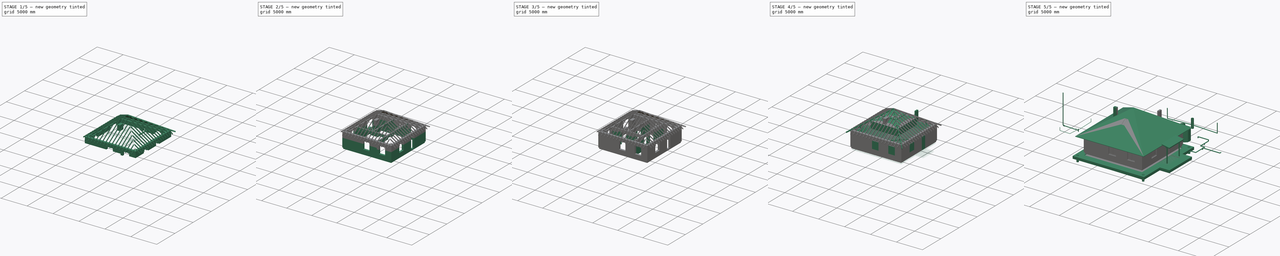
[diagram: build sequence overview — one tinted view per stage of 5, left to right]
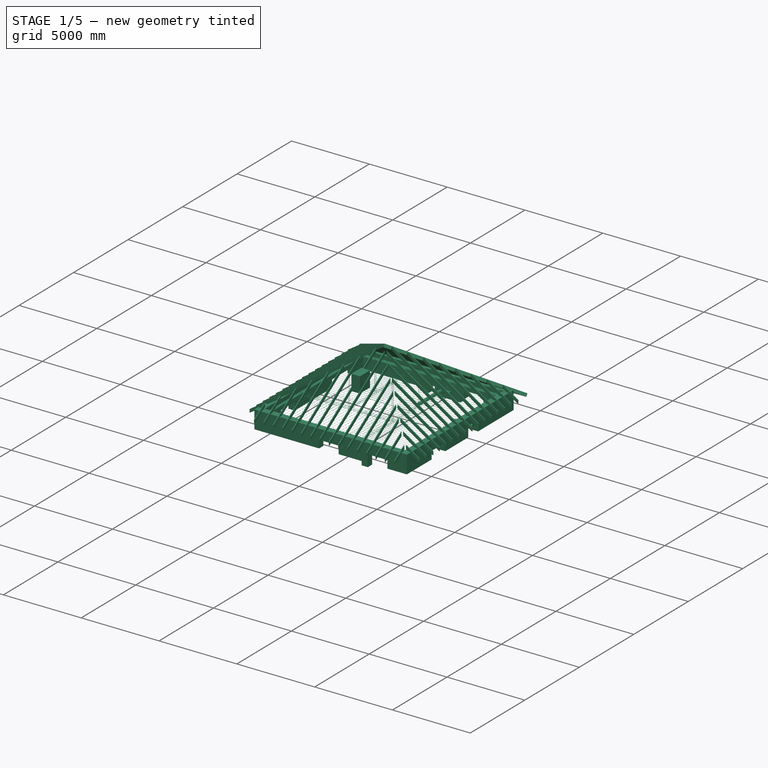
[diagram: stage 1 of 5 — iso view after this stage's code; geometry added in this stage tinted green]
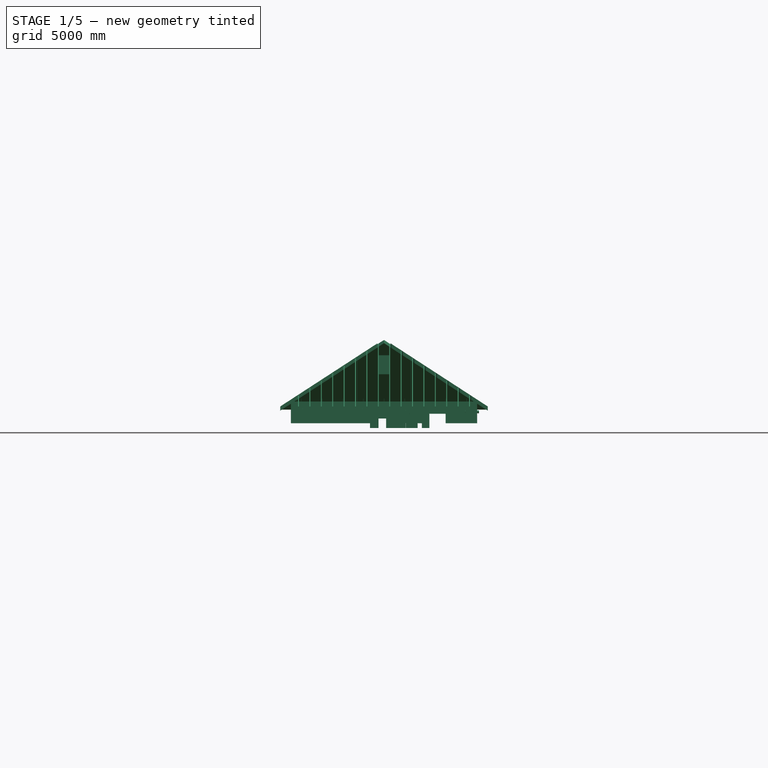
[diagram: stage 1 of 5 — front view after this stage's code; geometry added in this stage tinted green]
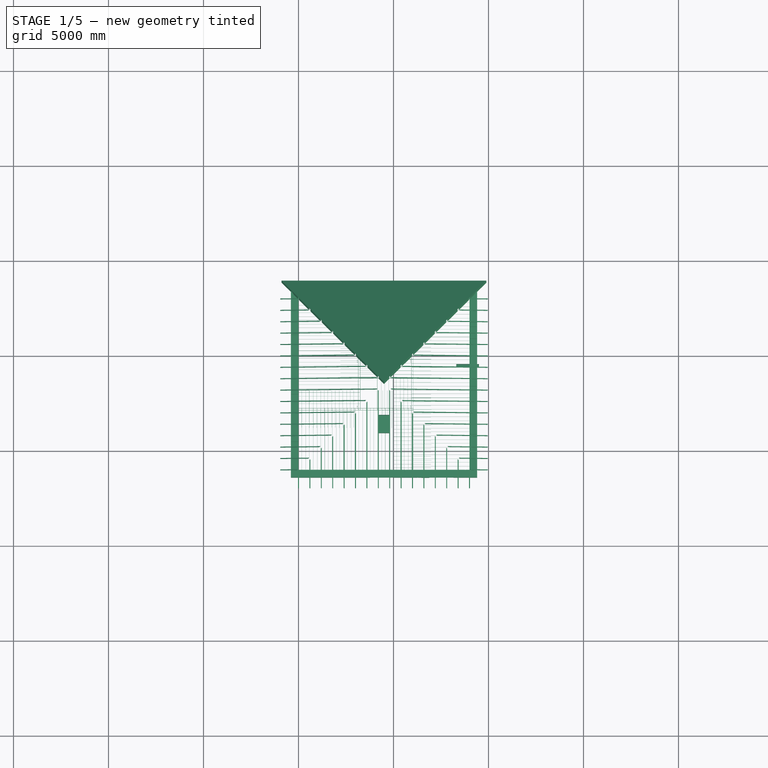
[diagram: stage 1 of 5 — top view after this stage's code; geometry added in this stage tinted green]
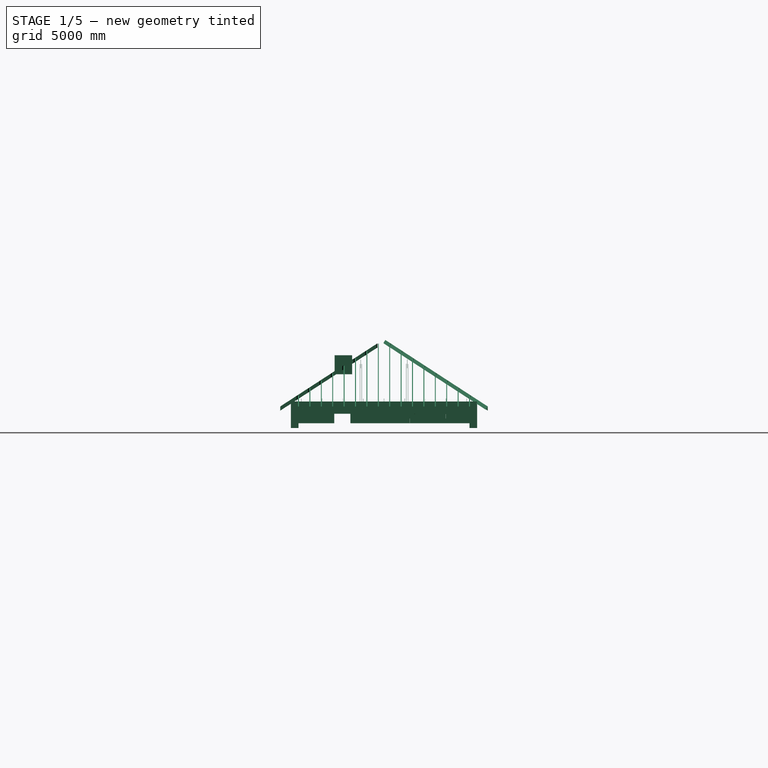
[diagram: stage 1 of 5 — right view after this stage's code; geometry added in this stage tinted green]
FCSTD DOCUMENT  (FreeCAD 0.18.4R)
Label: aeroc_D400_b400_9800x9800_v95_03_02_20
License: All rights reserved
LicenseURL: http://en.wikipedia.org/wiki/All_rights_reserved
objects: Part::FeaturePython×652, Part::Box×394, Part::Part2DObjectPython×371, Sketcher::SketchObject×145, App::GeometryPython×66, Part::Extrusion×45, App::DocumentObjectGroup×30, App::FeaturePython×10, Part::Mirroring×9, Part::MultiFuse×8, Part::Feature×3, Part::Loft×2, Part::Fuse×1, Part::Cylinder×1, Part::Fillet×1
note: 1698 computed .brp shape members not serialized (recipe doc carries the construction recipe); baked Part::Feature solids carry a one-line shape summary decoded from their .brp

FEATURE [Part::Box] Box3258  label="D400 400 добор 039"
  AttacherType = Attacher::AttachEngine3D
  Height = 250
  Length = 398.34
  Placement = pos=(6493.26,-6400,1570) rot=(0,0,-1;0rad)
  Width = 400
FEATURE [Part::Box] Box3259  label="D400 400x625 067"
  AttacherType = Attacher::AttachEngine3D
  Height = 250
  Length = 625
  Placement = pos=(9400,-2868.36,1820) rot=(0,0,1;1.5708rad)
  Width = 400
FEATURE [Part::Box] Box3260  label="D400 400x625 068"
  AttacherType = Attacher::AttachEngine3D
  Height = 250
  Length = 625
  Placement = pos=(5013.38,-6400,1820) rot=(0,0,1;0rad)
  Width = 400
FEATURE [Part::Box] Box3261  label="D400 400x625 069"
  AttacherType = Attacher::AttachEngine3D
  Height = 250
  Length = 625
  Placement = pos=(8373.24,3000,1820) rot=(0,0,1;0rad)
  Width = 400
FEATURE [Part::Box] Box3262  label="D400 400x625 070"
  AttacherType = Attacher::AttachEngine3D
  Height = 250
  Length = 625
  Placement = pos=(-3.3541e-12,-6400,1820) rot=(0,0,1;1.5708rad)
  Width = 400
FEATURE [Part::Box] Box3263  label="D400 400x625 071"
  AttacherType = Attacher::AttachEngine3D
  Height = 250
  Length = 625
  Placement = pos=(-3.3541e-12,-6400,1820) rot=(0,0,1;0rad)
  Width = 400
FEATURE [Part::FeaturePython] Array111  # Draft array (typed FeaturePython)
  Angle = 360
  ArrayType = 0
  Axis = (0,0,1)
  Base = -> Box3260
  Center = (0,0,0)
  Fuse = false
  IntervalAxis = (0,0,0)
  IntervalX = (626.66,0,0)
  IntervalY = (0,1,0)
  IntervalZ = (0,0,1)
  NumberPolar = 1
  NumberX = 3
  NumberY = 1
  NumberZ = 1
FEATURE [Part::FeaturePython] Array116  # Draft array (typed FeaturePython)
  Angle = 360
  ArrayType = 0
  Axis = (0,0,1)
  Base = -> Box3262
  Center = (0,0,0)
  Fuse = false
  IntervalAxis = (0,0,0)
  IntervalX = (1,0,0)
  IntervalY = (0,626.66,0)
  IntervalZ = (0,0,1)
  NumberPolar = 1
  NumberX = 1
  NumberY = 3
  NumberZ = 1
FEATURE [Part::FeaturePython] Array117  # Draft array (typed FeaturePython)
  Angle = 360
  ArrayType = 0
  Axis = (0,0,1)
  Base = -> Box3263
  Center = (0,0,0)
  Fuse = false
  IntervalAxis = (0,0,0)
  IntervalX = (626.66,0,0)
  IntervalY = (0,1,0)
  IntervalZ = (0,0,1)
  NumberPolar = 1
  NumberX = 6
  NumberY = 1
  NumberZ = 1
FEATURE [Part::Box] Box3264  label="D400 400x625 072"
  AttacherType = Attacher::AttachEngine3D
  Height = 250
  Length = 625
  Placement = pos=(-3.8661e-12,-3266.7,1820) rot=(0,0,1;1.5708rad)
  Width = 400
FEATURE [Part::FeaturePython] Array113  # Draft array (typed FeaturePython)
  Angle = 360
  ArrayType = 0
  Axis = (0,0,1)
  Base = -> Box3264
  Center = (0,0,0)
  Fuse = false
  IntervalAxis = (0,0,0)
  IntervalX = (1,0,0)
  IntervalY = (0,626.66,0)
  IntervalZ = (0,0,1)
  NumberPolar = 1
  NumberX = 1
  NumberY = 5
  NumberZ = 1
FEATURE [Part::Box] Box3265  label="D400 400 добор 040"
  AttacherType = Attacher::AttachEngine3D
  Height = 250
  Length = 283.34
  Placement = pos=(-3.7521e-12,-133.4,1820) rot=(0,0,1;1.5708rad)
  Width = 400
FEATURE [Part::Box] Box3266  label="D400 400x625 073"
  AttacherType = Attacher::AttachEngine3D
  Height = 250
  Length = 625
  Placement = pos=(8775,-6400,1820) rot=(0,0,1;0rad)
  Width = 400
FEATURE [Part::FeaturePython] Array110  # Draft array (typed FeaturePython)
  Angle = 360
  ArrayType = 0
  Axis = (0,0,1)
  Base = -> Box3266
  Center = (0,0,0)
  Fuse = false
  IntervalAxis = (0,0,0)
  IntervalX = (-626.66,0,0)
  IntervalY = (0,1,0)
  IntervalZ = (0,0,1)
  NumberPolar = 1
  NumberX = 2
  NumberY = 1
  NumberZ = 1
FEATURE [Part::Box] Box3267  label="D400 400x625 074"
  AttacherType = Attacher::AttachEngine3D
  Height = 250
  Length = 625
  Placement = pos=(-400,3000,1820) rot=(0,0,1;0rad)
  Width = 400
FEATURE [Part::FeaturePython] Array118  # Draft array (typed FeaturePython)
  Angle = 360
  ArrayType = 0
  Axis = (0,0,1)
  Base = -> Box3261
  Center = (0,0,0)
  Fuse = false
  IntervalAxis = (0,0,0)
  IntervalX = (-626.66,0,0)
  IntervalY = (0,1,0)
  IntervalZ = (0,0,1)
  NumberPolar = 1
  NumberX = 2
  NumberY = 1
  NumberZ = 1
FEATURE [Part::Box] Box3268  label="D400 400x625 075"
  AttacherType = Attacher::AttachEngine3D
  Height = 250
  Length = 625
  Placement = pos=(-1.4211e-12,2375,1820) rot=(0,0,1;1.5708rad)
  Width = 400
FEATURE [Part::FeaturePython] Array112  # Draft array (typed FeaturePython)
  Angle = 360
  ArrayType = 0
  Axis = (0,0,1)
  Base = -> Box3268
  Center = (0,0,0)
  Fuse = false
  IntervalAxis = (0,0,0)
  IntervalX = (1,0,0)
  IntervalY = (0,-626.66,0)
  IntervalZ = (0,0,1)
  NumberPolar = 1
  NumberX = 1
  NumberY = 1
  NumberZ = 1
FEATURE [Part::Box] Box3269  label="D400 400 добор 041"
  AttacherType = Attacher::AttachEngine3D
  Height = 250
  Length = 226.66
  Placement = pos=(9400,-988.38,1820) rot=(0,0,1;1.5708rad)
  Width = 400
FEATURE [Part::Box] Box3270  label="D400 400 добор 042"
  AttacherType = Attacher::AttachEngine3D
  Height = 250
  Length = 131.68
  Placement = pos=(9000,266.7,1820) rot=(0,0,-1;1.5708rad)
  Width = 400
FEATURE [Part::FeaturePython] Array119  # Draft array (typed FeaturePython)
  Angle = 360
  ArrayType = 0
  Axis = (0,0,1)
  Base = -> Box3259
  Center = (0,0,0)
  Fuse = false
  IntervalAxis = (0,0,0)
  IntervalX = (1,0,0)
  IntervalY = (0,626.66,0)
  IntervalZ = (0,0,1)
  NumberPolar = 1
  NumberX = 1
  NumberY = 3
  NumberZ = 1
FEATURE [Part::Box] Box3271  label="D400 400x625 076"
  AttacherType = Attacher::AttachEngine3D
  Height = 250
  Length = 625
  Placement = pos=(9400,2775,1820) rot=(0,0,1;1.5708rad)
  Width = 400
FEATURE [Part::FeaturePython] Array115  # Draft array (typed FeaturePython)
  Angle = 360
  ArrayType = 0
  Axis = (0,0,1)
  Base = -> Box3271
  Center = (0,0,0)
  Fuse = false
  IntervalAxis = (0,0,0)
  IntervalX = (1,0,0)
  IntervalY = (0,-626.66,0)
  IntervalZ = (0,0,1)
  NumberPolar = 1
  NumberX = 1
  NumberY = 5
  NumberZ = 1
FEATURE [Part::FeaturePython] Array120  # Draft array (typed FeaturePython)
  Angle = 360
  ArrayType = 0
  Axis = (0,0,1)
  Base = -> Box3267
  Center = (0,0,0)
  Fuse = false
  IntervalAxis = (0,0,0)
  IntervalX = (626.66,0,0)
  IntervalY = (0,1,0)
  IntervalZ = (0,0,1)
  NumberPolar = 1
  NumberX = 7
  NumberY = 1
  NumberZ = 1
FEATURE [Part::Box] Box3272  label="D400 400 добор 043"
  AttacherType = Attacher::AttachEngine3D
  Height = 250
  Length = 225
  Placement = pos=(-400,2373.34,1820) rot=(0,0,-1;1.5708rad)
  Width = 400
FEATURE [Part::Box] Box3273  label="D400 400x625 077"
  AttacherType = Attacher::AttachEngine3D
  Height = 250
  Length = 625
  Placement = pos=(9400,-6000,1820) rot=(0,0,1;1.5708rad)
  Width = 400
FEATURE [Part::FeaturePython] Array114  # Draft array (typed FeaturePython)
  Angle = 360
  ArrayType = 0
  Axis = (0,0,1)
  Base = -> Box3273
  Center = (0,0,0)
  Fuse = false
  IntervalAxis = (0,0,0)
  IntervalX = (1,0,0)
  IntervalY = (0,626.66,0)
  IntervalZ = (0,0,1)
  NumberPolar = 1
  NumberX = 1
  NumberY = 3
  NumberZ = 1
FEATURE [Part::Box] Box3274  label="D400 400x625 078"
  AttacherType = Attacher::AttachEngine3D
  Height = 250
  Length = 625
  Placement = pos=(-5.12e-13,-6000,2070) rot=(0,0,1;1.5708rad)
  Width = 400
FEATURE [Part::Box] Box3275  label="D400 400x625 079"
  AttacherType = Attacher::AttachEngine3D
  Height = 250
  Length = 625
  Placement = pos=(-1.3642e-12,2775,2070) rot=(0,0,1;1.5708rad)
  Width = 400
FEATURE [Part::FeaturePython] Array121  # Draft array (typed FeaturePython)
  Angle = 360
  ArrayType = 0
  Axis = (0,0,1)
  Base = -> Box3275
  Center = (0,0,0)
  Fuse = false
  IntervalAxis = (0,0,0)
  IntervalX = (1,0,0)
  IntervalY = (0,-626.66,0)
  IntervalZ = (0,0,1)
  NumberPolar = 1
  NumberX = 1
  NumberY = 2
  NumberZ = 1
FEATURE [Part::Box] Box3276  label="D400 400x625 080"
  AttacherType = Attacher::AttachEngine3D
  Height = 250
  Length = 625
  Placement = pos=(-400,-6400,2070) rot=(0,0,1;0rad)
  Width = 400
FEATURE [Part::FeaturePython] Array124  # Draft array (typed FeaturePython)
  Angle = 360
  ArrayType = 0
  Axis = (0,0,1)
  Base = -> Box3276
  Center = (0,0,0)
  Fuse = false
  IntervalAxis = (0,0,0)
  IntervalX = (626.66,0,0)
  IntervalY = (0,1,0)
  IntervalZ = (0,0,1)
  NumberPolar = 1
  NumberX = 6
  NumberY = 1
  NumberZ = 1
FEATURE [Part::Box] Box3277  label="D400 400x625 081"
  AttacherType = Attacher::AttachEngine3D
  Height = 250
  Length = 625
  Placement = pos=(9400,-6400,2070) rot=(0,0,1;1.5708rad)
  Width = 400
FEATURE [Part::FeaturePython] Array122  # Draft array (typed FeaturePython)
  Angle = 360
  ArrayType = 0
  Axis = (0,0,1)
  Base = -> Box3277
  Center = (0,0,0)
  Fuse = false
  IntervalAxis = (0,0,0)
  IntervalX = (1,0,0)
  IntervalY = (0,626.66,0)
  IntervalZ = (0,0,1)
  NumberPolar = 1
  NumberX = 1
  NumberY = 3
  NumberZ = 1
FEATURE [Part::Box] Box3278  label="D400 400 добор 044"
  AttacherType = Attacher::AttachEngine3D
  Height = 250
  Length = 358.34
  Placement = pos=(9000,493.36,2070) rot=(0,0,-1;1.5708rad)
  Width = 400
FEATURE [Part::FeaturePython] Array126  # Draft array (typed FeaturePython)
  Angle = 360
  ArrayType = 0
  Axis = (0,0,1)
  Base = -> Box3274
  Center = (0,0,0)
  Fuse = false
  IntervalAxis = (0,0,0)
  IntervalX = (1,0,0)
  IntervalY = (0,626.66,0)
  IntervalZ = (0,0,1)
  NumberPolar = 1
  NumberX = 1
  NumberY = 2
  NumberZ = 1
FEATURE [Part::Box] Box3279  label="D400 400x625 082"
  AttacherType = Attacher::AttachEngine3D
  Height = 250
  Length = 625
  Placement = pos=(8775,3000,2070) rot=(0,0,1;0rad)
  Width = 400
FEATURE [Part::FeaturePython] Array123  # Draft array (typed FeaturePython)
  Angle = 360
  ArrayType = 0
  Axis = (0,0,1)
  Base = -> Box3279
  Center = (0,0,0)
  Fuse = false
  IntervalAxis = (0,0,0)
  IntervalX = (-626.66,0,0)
  IntervalY = (0,1,0)
  IntervalZ = (0,0,1)
  NumberPolar = 1
  NumberX = 2
  NumberY = 1
  NumberZ = 1
FEATURE [Part::Box] Box3280  label="D400 400x625 083"
  AttacherType = Attacher::AttachEngine3D
  Height = 250
  Length = 625
  Placement = pos=(-1.3642e-12,2775,2070) rot=(0,0,1;1.5708rad)
  Width = 400
FEATURE [Part::FeaturePython] Array125  # Draft array (typed FeaturePython)
  Angle = 360
  ArrayType = 0
  Axis = (0,0,1)
  Base = -> Box3280
  Center = (0,0,0)
  Fuse = false
  IntervalAxis = (0,0,0)
  IntervalX = (1,0,0)
  IntervalY = (0,-626.66,0)
  IntervalZ = (0,0,1)
  NumberPolar = 1
  NumberX = 1
  NumberY = 4
  NumberZ = 1
  Placement = pos=(9400,-400,0) rot=(0,0,1;0rad)
FEATURE [Part::Box] Box3281  label="D400 400x625 084"
  AttacherType = Attacher::AttachEngine3D
  Height = 250
  Length = 625
  Placement = pos=(-1.024e-12,-2866.7,2070) rot=(0,0,1;1.5708rad)
  Width = 400
FEATURE [Part::FeaturePython] Array127  # Draft array (typed FeaturePython)
  Angle = 360
  ArrayType = 0
  Axis = (0,0,1)
  Base = -> Box3281
  Center = (0,0,0)
  Fuse = false
  IntervalAxis = (0,0,0)
  IntervalX = (1,0,0)
  IntervalY = (0,626.66,0)
  IntervalZ = (0,0,1)
  NumberPolar = 1
  NumberX = 1
  NumberY = 4
  NumberZ = 1
FEATURE [Part::Box] Box3282  label="D400 400 добор 045"
  AttacherType = Attacher::AttachEngine3D
  Height = 250
  Length = 510
  Placement = pos=(-2.3878e-12,-360.06,2070) rot=(0,0,1;1.5708rad)
  Width = 400
FEATURE [Part::Box] Box3283  label="D400 400 добор 046"
  AttacherType = Attacher::AttachEngine3D
  Height = 250
  Length = 398.34
  Placement = pos=(-400,-2868.36,2070) rot=(0,0,-1;1.5708rad)
  Width = 400
FEATURE [Part::Box] Box3284  label="D400 400 добор 047"
  AttacherType = Attacher::AttachEngine3D
  Height = 250
  Length = 225
  Placement = pos=(-1.8759e-12,-4746.68,2070) rot=(0,0,1;1.5708rad)
  Width = 400
FEATURE [Part::Box] Box3285  label="D400 400 добор 048"
  AttacherType = Attacher::AttachEngine3D
  Height = 250
  Length = 398.34
  Placement = pos=(9400,-4520.02,2070) rot=(0,0,1;1.5708rad)
  Width = 400
FEATURE [Part::Box] Box3286  label="D400 400x625 085"
  AttacherType = Attacher::AttachEngine3D
  Height = 250
  Length = 625
  Placement = pos=(9400,-2640.04,2070) rot=(0,0,1;1.5708rad)
  Width = 400
FEATURE [Part::FeaturePython] Array128  # Draft array (typed FeaturePython)
  Angle = 360
  ArrayType = 0
  Axis = (0,0,1)
  Base = -> Box3286
  Center = (0,0,0)
  Fuse = false
  IntervalAxis = (0,0,0)
  IntervalX = (1,0,0)
  IntervalY = (0,626.66,0)
  IntervalZ = (0,0,1)
  NumberPolar = 1
  NumberX = 1
  NumberY = 3
  NumberZ = 1
FEATURE [Part::Box] Box3287  label="D400 400 добор 049"
  AttacherType = Attacher::AttachEngine3D
  Height = 250
  Length = 226.66
  Placement = pos=(9400,-2868.36,2070) rot=(0,0,1;1.5708rad)
  Width = 400
FEATURE [Part::Box] Box3288  label="D400 400x625 086"
  AttacherType = Attacher::AttachEngine3D
  Height = 250
  Length = 625
  Placement = pos=(1.76,3000,2070) rot=(0,0,1;0rad)
  Width = 400
FEATURE [Part::FeaturePython] Array129  # Draft array (typed FeaturePython)
  Angle = 360
  ArrayType = 0
  Axis = (0,0,1)
  Base = -> Box3288
  Center = (0,0,0)
  Fuse = false
  IntervalAxis = (0,0,0)
  IntervalX = (626.66,0,0)
  IntervalY = (0,1,0)
  IntervalZ = (0,0,1)
  NumberPolar = 1
  NumberX = 10
  NumberY = 1
  NumberZ = 1
FEATURE [Part::Box] Box3289  label="D400 400 добор 050"
  AttacherType = Attacher::AttachEngine3D
  Height = 250
  Length = 223.24
  Placement = pos=(6268.36,3000,2070) rot=(0,0,-1;0rad)
  Width = 400
FEATURE [Part::Box] Box3290  label="D400 400 добор 051"
  AttacherType = Attacher::AttachEngine3D
  Height = 250
  Length = 400
  Placement = pos=(8146.58,3400,2070) rot=(0,0,1;3.14159rad)
  Width = 400
FEATURE [Part::Box] Box3291  label="D400 400 добор 052"
  AttacherType = Attacher::AttachEngine3D
  Height = 250
  Length = 398.34
  Placement = pos=(3359.96,-6400,2070) rot=(0,0,-1;0rad)
  Width = 400
FEATURE [Part::Box] Box3292  label="D400 400x625 087"
  AttacherType = Attacher::AttachEngine3D
  Height = 250
  Length = 625
  Placement = pos=(5239.94,-6400,2070) rot=(0,0,1;0rad)
  Width = 400
FEATURE [Part::FeaturePython] Array130  # Draft array (typed FeaturePython)
  Angle = 360
  ArrayType = 0
  Axis = (0,0,1)
  Base = -> Box3292
  Center = (0,0,0)
  Fuse = false
  IntervalAxis = (0,0,0)
  IntervalX = (626.66,0,0)
  IntervalY = (0,1,0)
  IntervalZ = (0,0,1)
  NumberPolar = 1
  NumberX = 2
  NumberY = 1
  NumberZ = 1
FEATURE [Part::Box] Box3293  label="D400 400x625 088"
  AttacherType = Attacher::AttachEngine3D
  Height = 250
  Length = 625
  Placement = pos=(8373.24,-6400,2070) rot=(0,0,1;0rad)
  Width = 400
FEATURE [Part::FeaturePython] Array131  # Draft array (typed FeaturePython)
  Angle = 360
  ArrayType = 0
  Axis = (0,0,1)
  Base = -> Box3293
  Center = (0,0,0)
  Fuse = false
  IntervalAxis = (0,0,0)
  IntervalX = (-626.66,0,0)
  IntervalY = (0,1,0)
  IntervalZ = (0,0,1)
  NumberPolar = 1
  NumberX = 1
  NumberY = 1
  NumberZ = 1
FEATURE [Part::Box] Box3294  label="D400 400 добор 053"
  AttacherType = Attacher::AttachEngine3D
  Height = 250
  Length = 223.24
  Placement = pos=(5238.28,-6000,2070) rot=(0,0,1;3.14159rad)
  Width = 400
FEATURE [Part::Box] Box3295  label="D400 400 добор 054"
  AttacherType = Attacher::AttachEngine3D
  Height = 250
  Length = 223.24
  Placement = pos=(8371.58,-6000,2070) rot=(0,0,1;3.14159rad)
  Width = 400
FEATURE [Part::Box] Box3296  label="D400 400 добор 055"
  AttacherType = Attacher::AttachEngine3D
  Height = 250
  Length = 398.34
  Placement = pos=(6493.26,-6400,2070) rot=(0,0,-1;0rad)
  Width = 400
FEATURE [Part::Box] Box3297  label="D400 400x625 089"
  AttacherType = Attacher::AttachEngine3D
  Height = 250
  Length = 625
  Placement = pos=(5866.6,3000,1820) rot=(0,0,1;0rad)
  Width = 400
FEATURE [Part::FeaturePython] Array132  # Draft array (typed FeaturePython)
  Angle = 360
  ArrayType = 0
  Axis = (0,0,1)
  Base = -> Box3297
  Center = (0,0,0)
  Fuse = false
  IntervalAxis = (0,0,0)
  IntervalX = (-626.66,0,0)
  IntervalY = (0,1,0)
  IntervalZ = (0,0,1)
  NumberPolar = 1
  NumberX = 3
  NumberY = 1
  NumberZ = 1
FEATURE [Part::Box] Box3298  label="D400 400x625 090"
  AttacherType = Attacher::AttachEngine3D
  Height = 250
  Length = 625
  Placement = pos=(5641.7,3000,1570) rot=(0,0,1;0rad)
  Width = 400
FEATURE [Part::FeaturePython] Array133  # Draft array (typed FeaturePython)
  Angle = 360
  ArrayType = 0
  Axis = (0,0,1)
  Base = -> Box3298
  Center = (0,0,0)
  Fuse = false
  IntervalAxis = (0,0,0)
  IntervalX = (-626.66,0,0)
  IntervalY = (0,1,0)
  IntervalZ = (0,0,1)
  NumberPolar = 1
  NumberX = 2
  NumberY = 1
  NumberZ = 1
FEATURE [Part::Box] Box3299  label="D400 400 добор 056"
  AttacherType = Attacher::AttachEngine3D
  Height = 250
  Length = 223.24
  Placement = pos=(3986.62,3000,1820) rot=(0,0,-1;0rad)
  Width = 400
FEATURE [Part::Box] Box3300  label="D400 400 добор 057"
  AttacherType = Attacher::AttachEngine3D
  Height = 250
  Length = 400
  Placement = pos=(5013.28,3400,1570) rot=(0,0,1;3.14159rad)
  Width = 400
FEATURE [Part::Box] Box3301  label="D400 400 добор 058"
  AttacherType = Attacher::AttachEngine3D
  Height = 250
  Length = 448.14
  Placement = pos=(3761.72,3000,1570) rot=(0,0,1;0rad)
  Width = 400
FEATURE [Part::Box] Box3302  label="D400 400x625 091"
  AttacherType = Attacher::AttachEngine3D
  Height = 250
  Length = 625
  Placement = pos=(8775,-6400,2320) rot=(0,0,1;0rad)
  Width = 400
FEATURE [Part::FeaturePython] Array136  # Draft array (typed FeaturePython)
  Angle = 360
  ArrayType = 0
  Axis = (0,0,1)
  Base = -> Box3302
  Center = (0,0,0)
  Fuse = false
  IntervalAxis = (0,0,0)
  IntervalX = (-626.66,0,0)
  IntervalY = (0,1,0)
  IntervalZ = (0,0,1)
  NumberPolar = 1
  NumberX = 15
  NumberY = 1
  NumberZ = 1
FEATURE [Part::Box] Box3303  label="D400 400x625 092"
  AttacherType = Attacher::AttachEngine3D
  Height = 250
  Length = 625
  Placement = pos=(-400,3000,2320) rot=(0,0,1;0rad)
  Width = 400
FEATURE [Part::FeaturePython] Array137  # Draft array (typed FeaturePython)
  Angle = 360
  ArrayType = 0
  Axis = (0,0,1)
  Base = -> Box3303
  Center = (0,0,0)
  Fuse = false
  IntervalAxis = (0,0,0)
  IntervalX = (626.66,0,0)
  IntervalY = (0,1,0)
  IntervalZ = (0,0,1)
  NumberPolar = 1
  NumberX = 15
  NumberY = 1
  NumberZ = 1
FEATURE [Part::Box] Box3304  label="D400 400x625 093"
  AttacherType = Attacher::AttachEngine3D
  Height = 250
  Length = 625
  Placement = pos=(-1.933e-12,-6400,2320) rot=(0,0,1;1.5708rad)
  Width = 400
FEATURE [Part::FeaturePython] Array135  # Draft array (typed FeaturePython)
  Angle = 360
  ArrayType = 0
  Axis = (0,0,1)
  Base = -> Box3304
  Center = (0,0,0)
  Fuse = false
  IntervalAxis = (0,0,0)
  IntervalX = (1,0,0)
  IntervalY = (0,626.66,0)
  IntervalZ = (0,0,1)
  NumberPolar = 1
  NumberX = 1
  NumberY = 15
  NumberZ = 1
FEATURE [Part::Box] Box3305  label="D400 400x625 094"
  AttacherType = Attacher::AttachEngine3D
  Height = 250
  Length = 625
  Placement = pos=(9400,2775,2320) rot=(0,0,1;1.5708rad)
  Width = 400
FEATURE [Part::FeaturePython] Array134  # Draft array (typed FeaturePython)
  Angle = 360
  ArrayType = 0
  Axis = (0,0,1)
  Base = -> Box3305
  Center = (0,0,0)
  Fuse = false
  IntervalAxis = (0,0,0)
  IntervalX = (1,0,0)
  IntervalY = (0,-626.66,0)
  IntervalZ = (0,0,1)
  NumberPolar = 1
  NumberX = 1
  NumberY = 15
  NumberZ = 1
FEATURE [Part::Box] Box3307  label="D400 400x625 095"
  AttacherType = Attacher::AttachEngine3D
  Height = 250
  Length = 625
  Placement = pos=(-5.119e-13,-6400,2720) rot=(0,0,1;1.5708rad)
  Width = 400
FEATURE [Part::FeaturePython] Array138  # Draft array (typed FeaturePython)
  Angle = 360
  ArrayType = 0
  Axis = (0,0,1)
  Base = -> Box3307
  Center = (0,0,0)
  Fuse = false
  IntervalAxis = (0,0,0)
  IntervalX = (1,0,0)
  IntervalY = (0,626.66,0)
  IntervalZ = (0,0,1)
  NumberPolar = 1
  NumberX = 1
  NumberY = 15
  NumberZ = 1
FEATURE [Part::Box] Box3308  label="D400 400x625 096"
  AttacherType = Attacher::AttachEngine3D
  Height = 250
  Length = 625
  Placement = pos=(8775,-6400,2720) rot=(0,0,1;0rad)
  Width = 400
FEATURE [Part::Box] Box3310  label="D400 400x625 097"
  AttacherType = Attacher::AttachEngine3D
  Height = 250
  Length = 625
  Placement = pos=(9400,2775,2720) rot=(0,0,1;1.5708rad)
  Width = 400
FEATURE [Part::FeaturePython] Array140  # Draft array (typed FeaturePython)
  Angle = 360
  ArrayType = 0
  Axis = (0,0,1)
  Base = -> Box3310
  Center = (0,0,0)
  Fuse = false
  IntervalAxis = (0,0,0)
  IntervalX = (1,0,0)
  IntervalY = (0,-626.66,0)
  IntervalZ = (0,0,1)
  NumberPolar = 1
  NumberX = 1
  NumberY = 15
  NumberZ = 1
FEATURE [Part::Box] Box3311  label="D400 400x625 098"
  AttacherType = Attacher::AttachEngine3D
  Height = 250
  Length = 625
  Placement = pos=(-400,3000,2720) rot=(0,0,1;0rad)
  Width = 400
FEATURE [Part::FeaturePython] Array139  # Draft array (typed FeaturePython)
  Angle = 360
  ArrayType = 0
  Axis = (0,0,1)
  Base = -> Box3311
  Center = (0,0,0)
  Fuse = false
  IntervalAxis = (0,0,0)
  IntervalX = (626.66,0,0)
  IntervalY = (0,1,0)
  IntervalZ = (0,0,1)
  NumberPolar = 1
  NumberX = 15
  NumberY = 1
  NumberZ = 1
FEATURE [Part::FeaturePython] Array141  # Draft array (typed FeaturePython)
  Angle = 360
  ArrayType = 0
  Axis = (0,0,1)
  Base = -> Box3308
  Center = (0,0,0)
  Fuse = false
  IntervalAxis = (0,0,0)
  IntervalX = (-626.66,0,0)
  IntervalY = (0,1,0)
  IntervalZ = (0,0,1)
  NumberPolar = 1
  NumberX = 15
  NumberY = 1
  NumberZ = 1
FEATURE [Part::Box] Box3312  label="D400 400x625 099"
  AttacherType = Attacher::AttachEngine3D
  Height = 150
  Length = 625
  Placement = pos=(-275,-5998.24,2570) rot=(0,0,1;1.5708rad)
  Width = 125
FEATURE [Part::Box] Box3314  label="D400 400x625 101"
  AttacherType = Attacher::AttachEngine3D
  Height = 150
  Length = 625
  Placement = pos=(-400,-6400,2570) rot=(0,0,1;0rad)
  Width = 125
FEATURE [Part::FeaturePython] Array145  # Draft array (typed FeaturePython)
  Angle = 360
  ArrayType = 0
  Axis = (0,0,1)
  Base = -> Box3314
  Center = (0,0,0)
  Fuse = false
  IntervalAxis = (0,0,0)
  IntervalX = (626.66,0,0)
  IntervalY = (0,1,0)
  IntervalZ = (0,0,1)
  NumberPolar = 1
  NumberX = 15
  NumberY = 1
  NumberZ = 1
FEATURE [Part::Box] Box3315  label="D400 400x625 102"
  AttacherType = Attacher::AttachEngine3D
  Height = 150
  Length = 625
  Placement = pos=(9400,-6400,2570) rot=(0,0,1;1.5708rad)
  Width = 125
FEATURE [Part::FeaturePython] Array143  # Draft array (typed FeaturePython)
  Angle = 360
  ArrayType = 0
  Axis = (0,0,1)
  Base = -> Box3315
  Center = (0,0,0)
  Fuse = false
  IntervalAxis = (0,0,0)
  IntervalX = (1,0,0)
  IntervalY = (0,626.66,0)
  IntervalZ = (0,0,1)
  NumberPolar = 1
  NumberX = 1
  NumberY = 15
  NumberZ = 1
FEATURE [Part::FeaturePython] Array147  # Draft array (typed FeaturePython)
  Angle = 360
  ArrayType = 0
  Axis = (0,0,1)
  Base = -> Box3312
  Center = (0,0,0)
  Fuse = false
  IntervalAxis = (0,0,0)
  IntervalX = (1,0,0)
  IntervalY = (0,626.66,0)
  IntervalZ = (0,0,1)
  NumberPolar = 1
  NumberX = 1
  NumberY = 15
  NumberZ = 1
FEATURE [Part::Box] Box3317  label="D400 400x625 103"
  AttacherType = Attacher::AttachEngine3D
  Height = 150
  Length = 625
  Placement = pos=(8775,3275,2570) rot=(0,0,1;0rad)
  Width = 125
FEATURE [Part::FeaturePython] Array144  # Draft array (typed FeaturePython)
  Angle = 360
  ArrayType = 0
  Axis = (0,0,1)
  Base = -> Box3317
  Center = (0,0,0)
  Fuse = false
  IntervalAxis = (0,0,0)
  IntervalX = (-626.66,0,0)
  IntervalY = (0,1,0)
  IntervalZ = (0,0,1)
  NumberPolar = 1
  NumberX = 15
  NumberY = 1
  NumberZ = 1
FEATURE [Part::Box] Box3318  label="D400 400 добор 059"
  AttacherType = Attacher::AttachEngine3D
  Height = 150
  Length = 276.76
  Placement = pos=(8998.24,-6400,2570) rot=(0,0,1;0rad)
  Width = 125
FEATURE [Part::Box] Box3319  label="D400 400 добор 060"
  AttacherType = Attacher::AttachEngine3D
  Height = 150
  Length = 276.76
  Placement = pos=(9400,2998.24,2570) rot=(0,0,1;1.5708rad)
  Width = 125
FEATURE [Part::Box] Box3320  label="D400 400 добор 061"
  AttacherType = Attacher::AttachEngine3D
  Height = 150
  Length = 276.76
  Placement = pos=(-275,-6275,2570) rot=(0,0,1;1.5708rad)
  Width = 125
FEATURE [Part::Box] Box3321  label="D400 400 добор 062"
  AttacherType = Attacher::AttachEngine3D
  Height = 150
  Length = 276.76
  Placement = pos=(-275,3275,2570) rot=(0,0,1;0rad)
  Width = 125
FEATURE [App::DocumentObjectGroup] Group103  label="нар.канализация"
  Group = -> [Wire153,Wire131,Line402,Circle004,Circle005,Circle001,Circle,Wire130,Wire127,Wire129,Line353,Line394]
FEATURE [Part::Part2DObjectPython] Line704  # Draft 2D object (typed FeaturePython)
  ChamferSize = 0
  Closed = false
  End = (14400,8400,0)
  FilletRadius = 0
  Length = 7071.07
  MakeFace = true
  Placement = pos=(9400,3400,0) rot=(0,0,1;0rad)
  Points = (2) [(0,0,0),(5000,5000,0)]
  Start = (9400,3400,0)
  Subdivisions = 0
FEATURE [Sketcher::SketchObject] Sketch039  label="Колонна_с_ЖБ_ядром_002"
  MapMode = 5
  Placement = pos=(2900,-3025,0) rot=(0,0,1;0rad)
  sketch-geometry (5):
    g0: LineSegment StartX=0 StartY=0 StartZ=0 EndX=400 EndY=0 EndZ=0
    g1: LineSegment StartX=400 StartY=0 StartZ=0 EndX=400 EndY=625 EndZ=0
    g2: LineSegment StartX=400 StartY=625 StartZ=0 EndX=0 EndY=625 EndZ=0
    g3: LineSegment StartX=0 StartY=625 StartZ=0 EndX=0 EndY=0 EndZ=0
    g4: Circle CenterX=200 CenterY=312.5 CenterZ=0 NormalX=0 NormalY=0 NormalZ=1 AngleXU=0 Radius=80
  constraints (14):
    c: Coincident(g0,g1)
    c: Coincident(g1,g2)
    c: Coincident(g2,g3)
    c: Coincident(g3,g0)
    c: Horizontal(g0)
    c: Horizontal(g2)
    c: Vertical(g1)
    c: Vertical(g3)
    c: Coincident(g0,g-1)
    c: DistanceX(g2,g2) = 400
    c: DistanceY(g1,g1) = 625
    c: Radius(g4) = 80
    c: DistanceY(g4,g2) = 312.5
    c: DistanceX(g2,g4) = 200
FEATURE [Part::Extrusion] Extrude056  label="Колонна_с_ЖБ_ядром_001"
  Base = -> Sketch039
  Dir = (0,0,1)
  DirMode = 2
  FaceMakerClass = Part::FaceMakerBullseye
  LengthFwd = 2250
  LengthRev = 0
  Placement = pos=(0,0,2720) rot=(0,0,1;0rad)
  Solid = true
  Symmetric = false
FEATURE [Part::FeaturePython] Array  label="Колонны_с_ЖБ_ядром h2250"  # Draft array (typed FeaturePython)
  Angle = 360
  ArrayType = 0
  Axis = (0,0,1)
  Base = -> Extrude056
  Center = (0,0,0)
  Fuse = false
  IntervalAxis = (0,0,0)
  IntervalX = (2800,0,0)
  IntervalY = (0,2425,0)
  IntervalZ = (0,0,1)
  NumberPolar = 1
  NumberX = 2
  NumberY = 2
  NumberZ = 1
FEATURE [App::GeometryPython] BuildingPart076  label="наружные стены ряд1"  # Arch/BIM object (typed FeaturePython)
  Area = 0
  Group = -> [Array048,Array049,Array050,Array051,Box3178,Box3179,Box3180,Box3181]
  Height = 0
  IfcRole = 0
  LevelOffset = 0
FEATURE [App::GeometryPython] BuildingPart077  label="наружные стены ряд2"  # Arch/BIM object (typed FeaturePython)
  Area = 0
  Group = -> [Box3169,Array058,Array059,Array060,Array061,Array062,Array063]
  Height = 0
  IfcRole = 0
  LevelOffset = 0
FEATURE [App::GeometryPython] BuildingPart078  label="наружные стены ряд3"  # Arch/BIM object (typed FeaturePython)
  Area = 0
  Group = -> [Array052,Array053,Array054,Array055,Box3172,Array064,Box3174,Array065,Box3176,Box3177]
  Height = 0
  IfcRole = 0
  LevelOffset = 0
FEATURE [App::GeometryPython] BuildingPart079  label="наружные стены ряд4"  # Arch/BIM object (typed FeaturePython)
  Area = 0
  Group = -> [Array047,Array044,Array045,Array046,Array056,Array057,Box3164]
  Height = 0
  IfcRole = 0
  LevelOffset = 0
FEATURE [App::GeometryPython] BuildingPart080  label="наружные стены ряд5"  # Arch/BIM object (typed FeaturePython)
  Area = 0
  Group = -> [Array074,Array070,Array071,Array073,Array075,Array076,Box3191,Box3197,Box3198,Array078,Box3200,Array080,Array081,Array082,Array085]
  Height = 0
  IfcRole = 0
  LevelOffset = 0
FEATURE [App::GeometryPython] BuildingPart081  label="наружные стены ряд6"  # Arch/BIM object (typed FeaturePython)
  Area = 0
  Group = -> [Array069,Array066,Array067,Array068,Array072,Box3189,Array077,Array079,Box3202,Box3203,Box3204,Box3208,Array083,Box3210,Array084,Box3213,Box3214,Array086,Array087,Box3217,Box3218,Box3219,Box3220]
  Height = 0
  IfcRole = 0
  LevelOffset = 0
FEATURE [App::GeometryPython] BuildingPart082  label="наружные стены ряд7"  # Arch/BIM object (typed FeaturePython)
  Area = 0
  Group = -> [Array091,Array088,Array089,Array090,Array092,Array093,Box3224,Box3228,Box3229,Array094,Box3231,Array095,Array096,Array097,Array098]
  Height = 0
  IfcRole = 0
  LevelOffset = 0
FEATURE [App::GeometryPython] BuildingPart083  label="наружные стены ряд8"  # Arch/BIM object (typed FeaturePython)
  Area = 0
  Group = -> [Box3301,Array099,Array100,Array101,Array102,Array103,Box3240,Array104,Array105,Box3244,Box3245,Box3246,Box3247,Array106,Box3249,Array107,Box3251,Box3252,Box3253,Array108,Array109,Box3256,Box3257,Box3258,Array133,Box3300]
  Height = 0
  IfcRole = 0
  LevelOffset = 0
FEATURE [App::GeometryPython] BuildingPart084  label="наружные стены ряд9"  # Arch/BIM object (typed FeaturePython)
  Area = 0
  Group = -> [Box3299,Array110,Array111,Array112,Array113,Array114,Array115,Array116,Array117,Box3265,Array118,Box3269,Box3270,Array119,Array120,Box3272,Array132]
  Height = 0
  IfcRole = 0
  LevelOffset = 0
FEATURE [App::GeometryPython] BuildingPart085  label="наружные стены ряд10"  # Arch/BIM object (typed FeaturePython)
  Area = 0
  Group = -> [Box3296,Array121,Array122,Array123,Array124,Array125,Box3278,Array126,Array127,Box3282,Box3283,Box3284,Box3285,Array128,Box3287,Array129,Box3289,Box3290,Box3291,Array130,Array131,Box3294,Box3295]
  Height = 0
  IfcRole = 0
  LevelOffset = 0
FEATURE [App::GeometryPython] BuildingPart086  label="наружные стены ряд11"  # Arch/BIM object (typed FeaturePython)
  Area = 0
  Group = -> [Array137,Array134,Array135,Array136]
  Height = 0
  IfcRole = 0
  LevelOffset = 0
FEATURE [App::GeometryPython] BuildingPart087  label="наружные стены ряд перекрытия"  # Arch/BIM object (typed FeaturePython)
  Area = 0
  Group = -> [Array145,Array143,Array144,Array147,Box3318,Box3319,Box3320,Box3321]
  Height = 0
  IfcRole = 0
  LevelOffset = 0
FEATURE [App::GeometryPython] BuildingPart088  label="наружные стены ряд парапет"  # Arch/BIM object (typed FeaturePython)
  Area = 0
  Group = -> [Array140,Array138,Array139,Array141]
  Height = 0
  IfcRole = 0
  LevelOffset = 0
FEATURE [App::GeometryPython] BuildingPart089  label="внутр.стены ряд1"  # Arch/BIM object (typed FeaturePython)
  Area = 0
  Group = -> [Array149,Array151,Box3327,Box3329,Array152,Array153,Box3332,Box3333,Array154,Array155,Array156,Array157,Box3338,Box3339,Box3340,Box3341]
  Height = 0
  IfcRole = 0
  LevelOffset = 0
FEATURE [App::GeometryPython] BuildingPart090  label="внутр.стены ряд2"  # Arch/BIM object (typed FeaturePython)
  Area = 0
  Group = -> [Box3359,Array158,Array159,Box3344,Array160,Box3348,Array161,Box3349,Array162,Array163,Box3352,Box3353,Array164,Box3354,Box3355,Box3356,Array165,Box3358]
  Height = 0
  IfcRole = 0
  LevelOffset = 0
FEATURE [App::GeometryPython] BuildingPart091  label="внутр.стены ряд3"  # Arch/BIM object (typed FeaturePython)
  Area = 0
  Group = -> [Box3385,Array167,Array170,Box3366,Array172,Box3374,Array174,Box3376,Array176,Array177,Box3382,Box3383,Array178,Box3386,Box3390,Array181]
  Height = 0
  IfcRole = 0
  LevelOffset = 0
FEATURE [App::GeometryPython] BuildingPart092  label="внутр.стены ряд4"  # Arch/BIM object (typed FeaturePython)
  Area = 0
  Group = -> [Array180,Array166,Array168,Box3362,Array169,Box3363,Array171,Box3364,Box3365,Box3367,Box3370,Array173,Box3375,Array175,Array179,Box3388,Box3392,Box3393]
  Height = 0
  IfcRole = 0
  LevelOffset = 0
FEATURE [App::GeometryPython] BuildingPart093  label="внутр.стены ряд5"  # Arch/BIM object (typed FeaturePython)
  Area = 0
  Group = -> [Box3424,Box3398,Array183,Box3401,Box3402,Array185,Array186,Box3403,Box3407,Box3408,Array191,Box3415,Array192,Array193,Array194,Array195]
  Height = 0
  IfcRole = 0
  LevelOffset = 0
FEATURE [App::GeometryPython] BuildingPart094  label="внутр.стены ряд6"  # Arch/BIM object (typed FeaturePython)
  Area = 0
  Group = -> [Box3414,Box3395,Array182,Array184,Box3404,Array187,Box3405,Box3406,Array188,Array189,Box3412,Array190,Box3413,Box3416,Box3418,Array196,Box3426,Array197]
  Height = 0
  IfcRole = 0
  LevelOffset = 0
FEATURE [App::GeometryPython] BuildingPart095  label="внутр.стены ряд7"  # Arch/BIM object (typed FeaturePython)
  Area = 0
  Group = -> [Array206,Array201,Box3430,Box3432,Box3434,Array202,Box3440,Box3443,Box3447,Array207,Box3449,Array209,Box3452,Array210,Array211,Array213]
  Height = 0
  IfcRole = 0
  LevelOffset = 0
FEATURE [App::GeometryPython] BuildingPart096  label="внутр.стены ряд8"  # Arch/BIM object (typed FeaturePython)
  Area = 0
  Group = -> [Box3444,Box3438,Box3428,Array198,Array199,Array200,Box3437,Box3441,Array203,Array204,Array205,Box3445,Array208,Box3451,Box3453,Array212,Box3457,Box3460]
  Height = 0
  IfcRole = 0
  LevelOffset = 0
FEATURE [App::GeometryPython] BuildingPart097  label="внутр.стены ряд9"  # Arch/BIM object (typed FeaturePython)
  Area = 0
  Group = -> [Box3478,Box3464,Array214,Box3467,Box3470,Array218,Box3473,Array221,Array222,Array223,Box3480,Box3483,Array227,Array228,Array229,Box3495]
  Height = 0
  IfcRole = 0
  LevelOffset = 0
FEATURE [App::GeometryPython] BuildingPart098  label="внутр.стены ряд10"  # Arch/BIM object (typed FeaturePython)
  Area = 0
  Group = -> [Box3513,Box3465,Array215,Box3469,Array217,Array219,Box3475,Array225,Array226,Box3482,Box3492,Array238]
  Height = 0
  IfcRole = 0
  LevelOffset = 0
FEATURE [App::GeometryPython] BuildingPart099  label="внутр.стены ряд11"  # Arch/BIM object (typed FeaturePython)
  Area = 0
  Group = -> [Array234,Box3497,Box3507,Array235,Array236,Box3514]
  Height = 0
  IfcRole = 0
  LevelOffset = 0
FEATURE [App::GeometryPython] BuildingPart101  label="Армирование кладки"  # Arch/BIM object (typed FeaturePython)
  Area = 0
  Group = -> [BuildingPart072,BuildingPart073,BuildingPart075]
  Height = 0
  IfcRole = 0
  LevelOffset = 0
FEATURE [App::GeometryPython] BuildingPart102  label="Внутр.стены"  # Arch/BIM object (typed FeaturePython)
  Area = 0
  Group = -> [BuildingPart095,BuildingPart098,BuildingPart091,BuildingPart096,BuildingPart089,BuildingPart090,BuildingPart097,BuildingPart094,BuildingPart093,BuildingPart092,BuildingPart099]
  Height = 0
  IfcRole = 0
  LevelOffset = 0
FEATURE [App::GeometryPython] BuildingPart103  label="Наружные стены"  # Arch/BIM object (typed FeaturePython)
  Area = 0
  Group = -> [BuildingPart081,BuildingPart088,BuildingPart087,BuildingPart082,BuildingPart083,BuildingPart080,BuildingPart077,BuildingPart078,BuildingPart076,BuildingPart079,BuildingPart084,BuildingPart085,BuildingPart086]
  Height = 0
  IfcRole = 0
  LevelOffset = 0
FEATURE [App::GeometryPython] BuildingPart100  label="Порядовка кладки"  # Arch/BIM object (typed FeaturePython)
  Area = 0
  Group = -> [BuildingPart101,BuildingPart102,BuildingPart103]
  Height = 0
  IfcRole = 0
  LevelOffset = 0
FEATURE [Part::Part2DObjectPython] Rectangle904  label="профнастил Н114-600*13_003"  # Draft 2D object (typed FeaturePython)
  ChamferSize = 0
  Columns = 1
  FilletRadius = 0
  Height = 4246
  Length = 2700
  MakeFace = false
  Placement = pos=(3250,-1200,0) rot=(0,0,1;0rad)
  Rows = 1
FEATURE [Part::Part2DObjectPython] Rectangle905  label="профнастил Н114-600*13_004"  # Draft 2D object (typed FeaturePython)
  ChamferSize = 0
  Columns = 1
  FilletRadius = 0
  Height = 9046
  Length = 3000
  MakeFace = false
  Placement = pos=(6050,-6025,0) rot=(0,0,1;0rad)
  Rows = 1
FEATURE [Part::Part2DObjectPython] Rectangle906  label="профнастил Н114-600*13_005"  # Draft 2D object (typed FeaturePython)
  ChamferSize = 0
  Columns = 1
  FilletRadius = 0
  Height = 3200
  Length = 6046
  MakeFace = false
  Placement = pos=(-50,-6050,0) rot=(0,0,1;0rad)
  Rows = 1
FEATURE [Part::Part2DObjectPython] Rectangle907  label="профнастил Н114-600*13_001"  # Draft 2D object (typed FeaturePython)
  ChamferSize = 0
  Columns = 1
  FilletRadius = 0
  Height = 1575
  Length = 1846
  MakeFace = false
  Placement = pos=(4125,-2750,0) rot=(0,0,1;0rad)
  Rows = 1
FEATURE [Part::FeaturePython] Structure520  label="профнастил габарит армирования 001"  # Arch/BIM object (typed FeaturePython)
  Base = -> Rectangle904
  FaceMaker = 0
  Height = 114
  HorizontalArea = 11464200
  IfcRole = 0
  Length = 0
  MoveWithHost = false
  Nodes = (2) [(4600,923,0),(4600,923,114)]
  NodesOffset = 0
  Normal = (0,0,0)
  PerimeterLength = 13892
  Placement = pos=(0,0,2570) rot=(0,0,1;0rad)
  VerticalArea = 1583688
  Width = 100
FEATURE [Part::FeaturePython] Structure521  label="профнастил габарит армирования 002"  # Arch/BIM object (typed FeaturePython)
  Base = -> Rectangle669
  FaceMaker = 0
  Height = 114
  HorizontalArea = 18707200
  IfcRole = 0
  Length = 0
  MoveWithHost = false
  Nodes = (2) [(1550,173,0),(1550,173,114)]
  NodesOffset = 0
  Normal = (0,0,0)
  PerimeterLength = 18092
  Placement = pos=(0,0,2570) rot=(0,0,1;0rad)
  VerticalArea = 2062488
  Width = 100
FEATURE [Part::FeaturePython] Structure522  label="профнастил габарит армирования 003"  # Arch/BIM object (typed FeaturePython)
  Base = -> Rectangle905
  FaceMaker = 0
  Height = 114
  HorizontalArea = 27138000
  IfcRole = 0
  Length = 0
  MoveWithHost = false
  Nodes = (2) [(7550,-1502,0),(7550,-1502,114)]
  NodesOffset = 0
  Normal = (0,0,0)
  PerimeterLength = 24092
  Placement = pos=(0,0,2570) rot=(0,0,1;0rad)
  VerticalArea = 2746488
  Width = 100
FEATURE [Part::FeaturePython] Structure523  label="профнастил габарит армирования 004"  # Arch/BIM object (typed FeaturePython)
  Base = -> Rectangle906
  FaceMaker = 0
  Height = 114
  HorizontalArea = 1.93472e+07
  IfcRole = 0
  Length = 0
  MoveWithHost = false
  Nodes = (2) [(2973,-4450,0),(2973,-4450,114)]
  NodesOffset = 0
  Normal = (0,0,0)
  PerimeterLength = 18492
  Placement = pos=(0,0,2570) rot=(0,0,1;0rad)
  VerticalArea = 2.10809e+06
  Width = 100
FEATURE [Part::FeaturePython] Structure524  label="профнастил габарит армирования 005"  # Arch/BIM object (typed FeaturePython)
  Base = -> Rectangle907
  FaceMaker = 0
  Height = 114
  HorizontalArea = 2.90745e+06
  IfcRole = 0
  Length = 0
  MoveWithHost = false
  Nodes = (2) [(5048,-1962.5,0),(5048,-1962.5,114)]
  NodesOffset = 0
  Normal = (0,0,0)
  PerimeterLength = 6842
  Placement = pos=(0,0,2570) rot=(0,0,1;0rad)
  VerticalArea = 779988
  Width = 100
FEATURE [Sketcher::SketchObject] Sketch151
  MapMode = 5
  Placement = pos=(5996,0,2570) rot=(0.57735,0.57735,0.57735;2.0944rad)
  Support = -> [Structure523]
  sketch-geometry (1):
    g0: LineSegment StartX=-6200 StartY=20 StartZ=0 EndX=-2750 EndY=20 EndZ=0
FEATURE [Part::FeaturePython] Rebar124  label="стержень A-III D8 633"  # Arch/BIM object (typed FeaturePython)
  Amount = 29
  AmountCheck = true
  Base = -> Sketch151
  Cover = 20
  CoverAlong = Bottom Side
  Diameter = 8
  Direction = (0,0,0)
  Distance = 0
  FrontCover = 225
  HorizontalArea = 0
  Host = -> Structure523
  IfcRole = 109
  LeftBottomCover = -150
  Length = 3450
  MoveWithHost = false
  OffsetEnd = 225
  OffsetStart = 225
  Orientation = Horizontal
  PerimeterLength = 0
  PlacementList = 29 placements: arithmetic series from (-225,0,0) step (-199.857,0,0) to (-5821,0,0)
  RightTopCover = -100
  Rounding = 0
  Spacing = 199.857
  TotalLength = 100050
  TrueSpacing = 29
  VerticalArea = 0
FEATURE [Sketcher::SketchObject] Sketch152
  MapMode = 5
  Placement = pos=(5971,0,2570) rot=(0.57735,0.57735,0.57735;2.0944rad)
  Support = -> [Structure524]
  sketch-geometry (1):
    g0: LineSegment StartX=-2825 StartY=20 StartZ=0 EndX=-1150 EndY=20 EndZ=0
FEATURE [Part::FeaturePython] Rebar125  label="стержень A-III D8 634"  # Arch/BIM object (typed FeaturePython)
  Amount = 8
  AmountCheck = true
  Base = -> Sketch152
  Cover = 20
  CoverAlong = Bottom Side
  Diameter = 8
  Direction = (0,0,0)
  Distance = 0
  FrontCover = 225
  HorizontalArea = 0
  Host = -> Structure524
  IfcRole = 109
  LeftBottomCover = -75
  Length = 1675
  MoveWithHost = false
  OffsetEnd = 225
  OffsetStart = 225
  Orientation = Horizontal
  PerimeterLength = 0
  PlacementList = 8 placements: arithmetic series from (-225,0,0) step (-199.429,0,0) to (-1621,0,0)
  RightTopCover = -25
  Rounding = 0
  Spacing = 199.429
  TotalLength = 13400
  TrueSpacing = 8
  VerticalArea = 0
FEATURE [Sketcher::SketchObject] Sketch153
  MapMode = 5
  Placement = pos=(0,-1200,2570) rot=(1,0,0;1.5708rad)
  Support = -> [Structure520]
  sketch-geometry (1):
    g0: LineSegment StartX=3175 StartY=20 StartZ=0 EndX=6025 EndY=20 EndZ=0
FEATURE [Part::FeaturePython] Rebar126  label="стержень A-III D8 635"  # Arch/BIM object (typed FeaturePython)
  Amount = 20
  AmountCheck = true
  Base = -> Sketch153
  Cover = 20
  CoverAlong = Bottom Side
  Diameter = 8
  Direction = (0,0,0)
  Distance = 0
  FrontCover = 225
  HorizontalArea = 0
  Host = -> Structure520
  IfcRole = 109
  LeftBottomCover = -75
  Length = 2850
  MoveWithHost = false
  OffsetEnd = 225
  OffsetStart = 225
  Orientation = Horizontal
  PerimeterLength = 0
  PlacementList = 20 placements: arithmetic series from (0,225,-4.996e-14) step (0,199.789,-4.43622e-14) to (0,4021,-8.92841e-13)
  RightTopCover = -75
  Rounding = 0
  Spacing = 199.789
  TotalLength = 57000
  TrueSpacing = 20
  VerticalArea = 0
FEATURE [Sketcher::SketchObject] Sketch154
  MapMode = 5
  Placement = pos=(0,-1200,2570) rot=(1,0,0;1.5708rad)
  Support = -> [Structure520]
  sketch-geometry (1):
    g0: LineSegment StartX=3175 StartY=20 StartZ=0 EndX=6025 EndY=20 EndZ=0
FEATURE [Part::FeaturePython] Rebar127  label="стержень A-III D12 002"  # Arch/BIM object (typed FeaturePython)
  Amount = 1
  AmountCheck = true
  Base = -> Sketch154
  Cover = 20
  CoverAlong = Bottom Side
  Diameter = 12
  Direction = (0,0,0)
  Distance = 0
  FrontCover = 20
  HorizontalArea = 0
  Host = -> Structure520
  IfcRole = 109
  LeftBottomCover = -75
  Length = 2850
  MoveWithHost = false
  OffsetEnd = 20
  OffsetStart = 20
  Orientation = Horizontal
  PerimeterLength = 0
  PlacementList = 1 placements: [(0,20,-4.44089e-15)]
  RightTopCover = -75
  Rounding = 0
  Spacing = 0
  TotalLength = 2850
  TrueSpacing = 1
  VerticalArea = 0
FEATURE [Sketcher::SketchObject] Sketch155
  MapMode = 5
  Placement = pos=(0,-1200,2570) rot=(1,0,0;1.5708rad)
  Support = -> [Structure520]
  sketch-geometry (1):
    g0: LineSegment StartX=3175 StartY=20 StartZ=0 EndX=6025 EndY=20 EndZ=0
FEATURE [Part::FeaturePython] Rebar128  label="стержень A-III D12 001"  # Arch/BIM object (typed FeaturePython)
  Amount = 1
  AmountCheck = true
  Base = -> Sketch155
  Cover = 20
  CoverAlong = Bottom Side
  Diameter = 12
  Direction = (0,0,0)
  Distance = 0
  FrontCover = 35
  HorizontalArea = 0
  Host = -> Structure520
  IfcRole = 109
  LeftBottomCover = -75
  Length = 2850
  MoveWithHost = false
  OffsetEnd = 35
  OffsetStart = 35
  Orientation = Horizontal
  PerimeterLength = 0
  PlacementList = 1 placements: [(0,35,-7.77156e-15)]
  RightTopCover = -75
  Rounding = 0
  Spacing = 0
  TotalLength = 2850
  TrueSpacing = 1
  VerticalArea = 0
FEATURE [Sketcher::SketchObject] Sketch156
  MapMode = 5
  Placement = pos=(0,-2750,2570) rot=(1,0,0;1.5708rad)
  Support = -> [Structure521]
  sketch-geometry (1):
    g0: LineSegment StartX=-150 StartY=20 StartZ=0 EndX=3225 EndY=20 EndZ=0
FEATURE [Part::FeaturePython] Rebar129  label="стержень A-III D8 632"  # Arch/BIM object (typed FeaturePython)
  Amount = 28
  AmountCheck = true
  Base = -> Sketch156
  Cover = 20
  CoverAlong = Bottom Side
  Diameter = 8
  Direction = (0,0,0)
  Distance = 0
  FrontCover = 225
  HorizontalArea = 0
  Host = -> Structure521
  IfcRole = 109
  LeftBottomCover = -100
  Length = 3375
  MoveWithHost = false
  OffsetEnd = 225
  OffsetStart = 225
  Orientation = Horizontal
  PerimeterLength = 0
  PlacementList = 28 placements: arithmetic series from (0,225,-4.996e-14) step (0,199.852,-4.4376e-14) to (0,5621,-1.24811e-12)
  RightTopCover = -75
  Rounding = 0
  Spacing = 199.852
  TotalLength = 94500
  TrueSpacing = 28
  VerticalArea = 0
FEATURE [Sketcher::SketchObject] Sketch157
  MapMode = 5
  Placement = pos=(0,-6025,2570) rot=(1,0,0;1.5708rad)
  Support = -> [Structure522]
  sketch-geometry (1):
    g0: LineSegment StartX=5975 StartY=20 StartZ=0 EndX=9150 EndY=20 EndZ=0
FEATURE [Part::FeaturePython] Rebar130  label="стержень A-III D8 631"  # Arch/BIM object (typed FeaturePython)
  Amount = 44
  AmountCheck = true
  Base = -> Sketch157
  Cover = 20
  CoverAlong = Bottom Side
  Diameter = 8
  Direction = (0,0,0)
  Distance = 0
  FrontCover = 225
  HorizontalArea = 0
  Host = -> Structure522
  IfcRole = 109
  LeftBottomCover = -75
  Length = 3175
  MoveWithHost = false
  OffsetEnd = 225
  OffsetStart = 225
  Orientation = Horizontal
  PerimeterLength = 0
  PlacementList = 44 placements: arithmetic series from (0,225,-4.996e-14) step (0,199.907,-4.43883e-14) to (0,8821,-1.95866e-12)
  RightTopCover = -100
  Rounding = 0
  Spacing = 199.907
  TotalLength = 139700
  TrueSpacing = 44
  VerticalArea = 0
FEATURE [Part::Part2DObjectPython] Rectangle908  label="габарит_армирования_024"  # Draft 2D object (typed FeaturePython)
  ChamferSize = 0
  Columns = 1
  FilletRadius = 0
  Height = 9450
  Length = 225
  MakeFace = false
  Placement = pos=(-225,-6225,0) rot=(0,0,1;0rad)
  Rows = 1
FEATURE [Part::Part2DObjectPython] Rectangle909  label="габарит_армирования_020"  # Draft 2D object (typed FeaturePython)
  ChamferSize = 0
  Columns = 1
  FilletRadius = 0
  Height = 9450
  Length = 225
  MakeFace = false
  Placement = pos=(9000,-6225,0) rot=(0,0,1;0rad)
  Rows = 1
FEATURE [Part::Part2DObjectPython] Rectangle910  label="габарит_армирования_023"  # Draft 2D object (typed FeaturePython)
  ChamferSize = 0
  Columns = 1
  FilletRadius = 0
  Height = 9450
  Length = 200
  MakeFace = false
  Placement = pos=(5900,-6225,0) rot=(0,0,1;0rad)
  Rows = 1
FEATURE [Part::Part2DObjectPython] Rectangle911  label="габарит_армирования_022"  # Draft 2D object (typed FeaturePython)
  ChamferSize = 0
  Columns = 1
  FilletRadius = 0
  Height = 6125
  Length = 200
  MakeFace = false
  Placement = pos=(3100,-2900,0) rot=(0,0,1;0rad)
  Rows = 1
FEATURE [Part::Part2DObjectPython] Rectangle912  label="габарит_армирования_019"  # Draft 2D object (typed FeaturePython)
  ChamferSize = 0
  Columns = 1
  FilletRadius = 0
  Height = 200
  Length = 6325
  MakeFace = false
  Placement = pos=(-225,-2900,0) rot=(0,0,1;0rad)
  Rows = 1
FEATURE [Part::Part2DObjectPython] Rectangle913  label="габарит_армирования_001"  # Draft 2D object (typed FeaturePython)
  ChamferSize = 0
  Columns = 1
  FilletRadius = 0
  Height = 225
  Length = 9450
  MakeFace = false
  Placement = pos=(-225,-6225,0) rot=(0,0,1;0rad)
  Rows = 1
FEATURE [Part::Part2DObjectPython] Rectangle914  label="габарит_армирования_021"  # Draft 2D object (typed FeaturePython)
  ChamferSize = 0
  Columns = 1
  FilletRadius = 0
  Height = 225
  Length = 9450
  MakeFace = false
  Placement = pos=(-225,3000,0) rot=(0,0,1;0rad)
  Rows = 1
FEATURE [Part::Part2DObjectPython] Rectangle915  label="габарит_армирования_верх_001"  # Draft 2D object (typed FeaturePython)
  ChamferSize = 0
  Columns = 1
  FilletRadius = 0
  Height = 4200
  Length = 2000
  MakeFace = false
  Placement = pos=(2200,-1200,0) rot=(0,0,1;0rad)
  Rows = 1
FEATURE [Part::Part2DObjectPython] Rectangle916  label="габарит_армирования_верх_002"  # Draft 2D object (typed FeaturePython)
  ChamferSize = 0
  Columns = 1
  FilletRadius = 0
  Height = 9000
  Length = 2000
  MakeFace = false
  Placement = pos=(5000,-6000,0) rot=(0,0,1;0rad)
  Rows = 1
FEATURE [Part::Part2DObjectPython] Rectangle917  label="габарит_армирования_верх_003"  # Draft 2D object (typed FeaturePython)
  ChamferSize = 0
  Columns = 1
  FilletRadius = 0
  Height = 2000
  Length = 3100
  MakeFace = false
  Placement = pos=(0,-3800,0) rot=(0,0,1;0rad)
  Rows = 1
FEATURE [Part::Part2DObjectPython] Rectangle918  label="габарит_армирования_верх_004"  # Draft 2D object (typed FeaturePython)
  ChamferSize = 0
  Columns = 1
  FilletRadius = 0
  Height = 2000
  Length = 900
  MakeFace = false
  Placement = pos=(4100,-3800,0) rot=(0,0,1;0rad)
  Rows = 1
FEATURE [Part::FeaturePython] Structure525  label="зона_армирования_верхн._001"  # Arch/BIM object (typed FeaturePython)
  Base = -> Rectangle915
  FaceMaker = 0
  Height = 50
  HorizontalArea = 8.4e+06
  IfcRole = 0
  Length = 0
  MoveWithHost = false
  Nodes = (2) [(3200,900,0),(3200,900,-50)]
  NodesOffset = 0
  Normal = (0,0,-1)
  PerimeterLength = 12400
  Placement = pos=(0,0,2720) rot=(0,0,1;0rad)
  VerticalArea = 620000
  Width = 100
FEATURE [Part::FeaturePython] Structure526  label="зона_армирования_верхн._003"  # Arch/BIM object (typed FeaturePython)
  Base = -> Rectangle916
  FaceMaker = 0
  Height = 50
  HorizontalArea = 1.8e+07
  IfcRole = 0
  Length = 0
  MoveWithHost = false
  Nodes = (2) [(6000,-1500,0),(6000,-1500,-50)]
  NodesOffset = 0
  Normal = (0,0,-1)
  PerimeterLength = 22000
  Placement = pos=(0,0,2720) rot=(0,0,1;0rad)
  VerticalArea = 1100000
  Width = 100
FEATURE [Part::FeaturePython] Structure527  label="зона_армирования_верхн._002"  # Arch/BIM object (typed FeaturePython)
  Base = -> Rectangle918
  FaceMaker = 0
  Height = 50
  HorizontalArea = 1.8e+06
  IfcRole = 0
  Length = 0
  MoveWithHost = false
  Nodes = (2) [(4550,-2800,0),(4550,-2800,-50)]
  NodesOffset = 0
  Normal = (0,0,-1)
  PerimeterLength = 5800
  Placement = pos=(0,0,2720) rot=(0,0,1;0rad)
  VerticalArea = 290000
  Width = 100
FEATURE [Part::FeaturePython] Structure528  label="зона_армирования_верхн._004"  # Arch/BIM object (typed FeaturePython)
  Base = -> Rectangle917
  FaceMaker = 0
  Height = 50
  HorizontalArea = 6.2e+06
  IfcRole = 0
  Length = 0
  MoveWithHost = false
  Nodes = (2) [(1550,-2800,0),(1550,-2800,-50)]
  NodesOffset = 0
  Normal = (0,0,-1)
  PerimeterLength = 10200
  Placement = pos=(0,0,2720) rot=(0,0,1;0rad)
  VerticalArea = 510000
  Width = 100
FEATURE [Sketcher::SketchObject] Sketch158
  MapMode = 5
  Placement = pos=(0,-6000,2720) rot=(1,0,0;1.5708rad)
  Support = -> [Structure526]
  sketch-geometry (1):
    g0: LineSegment StartX=5020 StartY=-30 StartZ=0 EndX=6980 EndY=-30 EndZ=0
FEATURE [Part::FeaturePython] Rebar131  label="стержень A-III D8 664"  # Arch/BIM object (typed FeaturePython)
  Amount = 44
  AmountCheck = false
  Base = -> Sketch158
  Cover = 20
  CoverAlong = Bottom Side
  Diameter = 8
  Direction = (0,0,0)
  Distance = 0
  FrontCover = 100
  HorizontalArea = 0
  Host = -> Structure526
  IfcRole = 109
  LeftBottomCover = 20
  Length = 1960
  MoveWithHost = false
  OffsetEnd = 100
  OffsetStart = 100
  Orientation = Horizontal
  PerimeterLength = 0
  PlacementList = 44 placements: arithmetic series from (0,100,-2.22045e-14) step (0,204.651,-4.54417e-14) to (0,8900,-1.9762e-12)
  RightTopCover = 20
  Rounding = 0
  Spacing = 204.651
  TotalLength = 86240
  TrueSpacing = 200
  VerticalArea = 0
FEATURE [Sketcher::SketchObject] Sketch159
  MapMode = 5
  Placement = pos=(5000,0,2720) rot=(0.57735,0.57735,0.57735;2.0944rad)
  Support = -> [Structure527]
  sketch-geometry (1):
    g0: LineSegment StartX=-3780 StartY=-30 StartZ=0 EndX=-1820 EndY=-30 EndZ=0
FEATURE [Part::FeaturePython] Rebar132  label="стержень A-III D8 665"  # Arch/BIM object (typed FeaturePython)
  Amount = 4
  AmountCheck = false
  Base = -> Sketch159
  Cover = 20
  CoverAlong = Bottom Side
  Diameter = 8
  Direction = (0,0,0)
  Distance = 0
  FrontCover = 100
  HorizontalArea = 0
  Host = -> Structure527
  IfcRole = 109
  LeftBottomCover = 20
  Length = 1960
  MoveWithHost = false
  OffsetEnd = 100
  OffsetStart = 100
  Orientation = Horizontal
  PerimeterLength = 0
  PlacementList = 4 placements: arithmetic series from (-100,0,0) step (-233.333,0,0) to (-800,0,0)
  RightTopCover = 20
  Rounding = 0
  Spacing = 233.333
  TotalLength = 7840
  TrueSpacing = 200
  VerticalArea = 0
FEATURE [Sketcher::SketchObject] Sketch160
  MapMode = 5
  Placement = pos=(0,-1200,2720) rot=(1,0,0;1.5708rad)
  Support = -> [Structure525]
  sketch-geometry (1):
    g0: LineSegment StartX=2220 StartY=-30 StartZ=0 EndX=4180 EndY=-30 EndZ=0
FEATURE [Part::FeaturePython] Rebar133  label="стержень A-III D8 663"  # Arch/BIM object (typed FeaturePython)
  Amount = 20
  AmountCheck = false
  Base = -> Sketch160
  Cover = 20
  CoverAlong = Bottom Side
  Diameter = 8
  Direction = (0,0,0)
  Distance = 0
  FrontCover = 100
  HorizontalArea = 0
  Host = -> Structure525
  IfcRole = 109
  LeftBottomCover = 20
  Length = 1960
  MoveWithHost = false
  OffsetEnd = 100
  OffsetStart = 100
  Orientation = Horizontal
  PerimeterLength = 0
  PlacementList = 20 placements: arithmetic series from (0,100,-2.22045e-14) step (0,210.526,-4.67462e-14) to (0,4100,-9.10383e-13)
  RightTopCover = 20
  Rounding = 0
  Spacing = 210.526
  TotalLength = 39200
  TrueSpacing = 200
  VerticalArea = 0
FEATURE [Sketcher::SketchObject] Sketch161
  MapMode = 5
  Placement = pos=(3100,0,2720) rot=(0.57735,0.57735,0.57735;2.0944rad)
  Support = -> [Structure528]
  sketch-geometry (1):
    g0: LineSegment StartX=-3780 StartY=-30 StartZ=0 EndX=-1820 EndY=-30 EndZ=0
FEATURE [Part::FeaturePython] Rebar134  label="стержень A-III D8 666"  # Arch/BIM object (typed FeaturePython)
  Amount = 15
  AmountCheck = true
  Base = -> Sketch161
  Cover = 20
  CoverAlong = Bottom Side
  Diameter = 8
  Direction = (0,0,0)
  Distance = 0
  FrontCover = 180
  HorizontalArea = 0
  Host = -> Structure528
  IfcRole = 109
  LeftBottomCover = 20
  Length = 1960
  MoveWithHost = false
  OffsetEnd = 180
  OffsetStart = 180
  Orientation = Horizontal
  PerimeterLength = 0
  PlacementList = 15 placements: arithmetic series from (-180,0,0) step (-195.714,0,0) to (-2920,0,0)
  RightTopCover = 20
  Rounding = 0
  Spacing = 195.714
  TotalLength = 29400
  TrueSpacing = 15
  VerticalArea = 0
FEATURE [Part::FeaturePython] Structure529  label="зона_армирования_перекрытия_001"  # Arch/BIM object (typed FeaturePython)
  Base = -> Rectangle913
  FaceMaker = 0
  Height = 150
  HorizontalArea = 2126250
  IfcRole = 0
  Length = 0
  MoveWithHost = false
  Nodes = (2) [(4500,-6112.5,0),(4500,-6112.5,150)]
  NodesOffset = 0
  Normal = (0,0,0)
  PerimeterLength = 19350
  Placement = pos=(0,0,2570) rot=(0,0,1;0rad)
  VerticalArea = 2902500
  Width = 100
FEATURE [Part::FeaturePython] Structure530  label="зона_армирования_перекрытия_005"  # Arch/BIM object (typed FeaturePython)
  Base = -> Rectangle912
  FaceMaker = 0
  Height = 150
  HorizontalArea = 1265000
  IfcRole = 0
  Length = 0
  MoveWithHost = false
  Nodes = (2) [(2937.5,-2800,0),(2937.5,-2800,150)]
  NodesOffset = 0
  Normal = (0,0,0)
  PerimeterLength = 13050
  Placement = pos=(0,0,2570) rot=(0,0,1;0rad)
  VerticalArea = 1957500
  Width = 100
FEATURE [Part::FeaturePython] Structure531  label="зона_армирования_перекрытия_003"  # Arch/BIM object (typed FeaturePython)
  Base = -> Rectangle909
  FaceMaker = 0
  Height = 150
  HorizontalArea = 2.12625e+06
  IfcRole = 0
  Length = 0
  MoveWithHost = false
  Nodes = (2) [(9112.5,-1500,0),(9112.5,-1500,150)]
  NodesOffset = 0
  Normal = (0,0,0)
  PerimeterLength = 19350
  Placement = pos=(0,0,2570) rot=(0,0,1;0rad)
  VerticalArea = 2902500
  Width = 100
FEATURE [Part::FeaturePython] Structure532  label="зона_армирования_перекрытия_007"  # Arch/BIM object (typed FeaturePython)
  Base = -> Rectangle914
  FaceMaker = 0
  Height = 150
  HorizontalArea = 2126250
  IfcRole = 0
  Length = 0
  MoveWithHost = false
  Nodes = (2) [(4500,3112.5,0),(4500,3112.5,150)]
  NodesOffset = 0
  Normal = (0,0,0)
  PerimeterLength = 19350
  Placement = pos=(0,0,2570) rot=(0,0,1;0rad)
  VerticalArea = 2902500
  Width = 100
FEATURE [Part::FeaturePython] Structure533  label="зона_армирования_перекрытия_002"  # Arch/BIM object (typed FeaturePython)
  Base = -> Rectangle911
  FaceMaker = 0
  Height = 150
  HorizontalArea = 1.225e+06
  IfcRole = 0
  Length = 0
  MoveWithHost = false
  Nodes = (2) [(3200,162.5,0),(3200,162.5,150)]
  NodesOffset = 0
  Normal = (0,0,0)
  PerimeterLength = 12650
  Placement = pos=(0,0,2570) rot=(0,0,1;0rad)
  VerticalArea = 1897500
  Width = 100
FEATURE [Part::FeaturePython] Structure534  label="зона_армирования_перекрытия_006"  # Arch/BIM object (typed FeaturePython)
  Base = -> Rectangle910
  FaceMaker = 0
  Height = 150
  HorizontalArea = 1.89e+06
  IfcRole = 0
  Length = 0
  MoveWithHost = false
  Nodes = (2) [(6000,-1500,0),(6000,-1500,150)]
  NodesOffset = 0
  Normal = (0,0,0)
  PerimeterLength = 19300
  Placement = pos=(0,0,2570) rot=(0,0,1;0rad)
  VerticalArea = 2.895e+06
  Width = 100
FEATURE [Part::FeaturePython] Structure535  label="зона_армирования_перекрытия_004"  # Arch/BIM object (typed FeaturePython)
  Base = -> Rectangle908
  FaceMaker = 0
  Height = 150
  HorizontalArea = 2.12625e+06
  IfcRole = 0
  Length = 0
  MoveWithHost = false
  Nodes = (2) [(-112.5,-1500,0),(-112.5,-1500,150)]
  NodesOffset = 0
  Normal = (0,0,0)
  PerimeterLength = 19350
  Placement = pos=(0,0,2570) rot=(0,0,1;0rad)
  VerticalArea = 2.9025e+06
  Width = 100
FEATURE [Part::Part2DObjectPython] Rectangle919  label="габарит_армирования_025"  # Draft 2D object (typed FeaturePython)
  ChamferSize = 0
  Columns = 1
  FilletRadius = 0
  Height = 1700
  Length = 100
  MakeFace = false
  Placement = pos=(4100,-2900,0) rot=(0,0,1;0rad)
  Rows = 1
FEATURE [App::DocumentObjectGroup] Group072  label="перекрытие"
  Group = -> [Wire201,Wire202,Rectangle781,Rectangle779,Rectangle780,Rectangle782,Rectangle904,Rectangle905,Rectangle906,Rectangle907,Rectangle669,Wire208,Wire207,Wire206,Rectangle913,Rectangle908,Rectangle909,Rectangle914,Rectangle911,Rectangle910,Rectangle912,Rectangle915,Rectangle917,Rectangle918,Rectangle916,Rectangle919]
FEATURE [Part::FeaturePython] Structure537  label="зона_армирования_перекрытия_009"  # Arch/BIM object (typed FeaturePython)
  Base = -> Rectangle919
  FaceMaker = 0
  Height = 150
  HorizontalArea = 170000
  IfcRole = 0
  Length = 0
  MoveWithHost = false
  Nodes = (2) [(4150,-2050,0),(4150,-2050,150)]
  NodesOffset = 0
  Normal = (0,0,0)
  PerimeterLength = 3600
  Placement = pos=(0,0,2570) rot=(0,0,1;0rad)
  VerticalArea = 540000
  Width = 100
FEATURE [Sketcher::SketchObject] Sketch162
  MapMode = 5
  Placement = pos=(9225,0,2570) rot=(0.57735,0.57735,0.57735;2.0944rad)
  Support = -> [Structure531]
  sketch-geometry (1):
    g0: LineSegment StartX=-6175 StartY=20 StartZ=0 EndX=3175 EndY=20 EndZ=0
FEATURE [Part::FeaturePython] Rebar135  label="стержень A-III D12 726"  # Arch/BIM object (typed FeaturePython)
  Amount = 2
  AmountCheck = true
  Base = -> Sketch162
  Cover = 20
  CoverAlong = Bottom Side
  Diameter = 12
  Direction = (0,0,0)
  Distance = 0
  FrontCover = 50
  HorizontalArea = 0
  Host = -> Structure531
  IfcRole = 109
  LeftBottomCover = 50
  Length = 9350
  MoveWithHost = false
  OffsetEnd = 50
  OffsetStart = 50
  Orientation = Horizontal
  PerimeterLength = 0
  PlacementList = 2 placements: [(-50,0,0),(-175,0,0)]
  RightTopCover = 50
  Rounding = 0
  Spacing = 125
  TotalLength = 18700
  TrueSpacing = 2
  VerticalArea = 0
FEATURE [Sketcher::SketchObject] Sketch163
  MapMode = 5
  Placement = pos=(6100,1.83e-13,2570) rot=(0.57735,0.57735,0.57735;2.0944rad)
  Support = -> [Structure534]
  sketch-geometry (1):
    g0: LineSegment StartX=-6175 StartY=20 StartZ=0 EndX=3175 EndY=20 EndZ=0
FEATURE [Part::FeaturePython] Rebar136  label="стержень A-III D12 725"  # Arch/BIM object (typed FeaturePython)
  Amount = 2
  AmountCheck = true
  Base = -> Sketch163
  Cover = 20
  CoverAlong = Bottom Side
  Diameter = 12
  Direction = (0,0,0)
  Distance = 0
  FrontCover = 50
  HorizontalArea = 0
  Host = -> Structure534
  IfcRole = 109
  LeftBottomCover = 50
  Length = 9350
  MoveWithHost = false
  OffsetEnd = 50
  OffsetStart = 50
  Orientation = Horizontal
  PerimeterLength = 0
  PlacementList = 2 placements: [(-50,0,0),(-150,0,0)]
  RightTopCover = 50
  Rounding = 0
  Spacing = 100
  TotalLength = 18700
  TrueSpacing = 2
  VerticalArea = 0
FEATURE [Sketcher::SketchObject] Sketch164
  MapMode = 5
  Placement = pos=(3300,9.9e-14,2570) rot=(0.57735,0.57735,0.57735;2.0944rad)
  Support = -> [Structure533]
  sketch-geometry (1):
    g0: LineSegment StartX=-2850 StartY=20 StartZ=0 EndX=3175 EndY=20 EndZ=0
FEATURE [Part::FeaturePython] Rebar137  label="стержень A-III D12 724"  # Arch/BIM object (typed FeaturePython)
  Amount = 2
  AmountCheck = true
  Base = -> Sketch164
  Cover = 20
  CoverAlong = Bottom Side
  Diameter = 12
  Direction = (0,0,0)
  Distance = 0
  FrontCover = 50
  HorizontalArea = 0
  Host = -> Structure533
  IfcRole = 109
  LeftBottomCover = 50
  Length = 6025
  MoveWithHost = false
  OffsetEnd = 50
  OffsetStart = 50
  Orientation = Horizontal
  PerimeterLength = 0
  PlacementList = 2 placements: [(-50,0,0),(-150,0,0)]
  RightTopCover = 50
  Rounding = 0
  Spacing = 100
  TotalLength = 12050
  TrueSpacing = 2
  VerticalArea = 0
FEATURE [Sketcher::SketchObject] Sketch165
  MapMode = 5
  Placement = pos=(-8.811e-13,0,2570) rot=(0.57735,0.57735,0.57735;2.0944rad)
  Support = -> [Structure535]
  sketch-geometry (1):
    g0: LineSegment StartX=-6175 StartY=20 StartZ=0 EndX=3175 EndY=20 EndZ=0
FEATURE [Part::FeaturePython] Rebar138  label="стержень A-III D12 722"  # Arch/BIM object (typed FeaturePython)
  Amount = 2
  AmountCheck = true
  Base = -> Sketch165
  Cover = 20
  CoverAlong = Bottom Side
  Diameter = 12
  Direction = (0,0,0)
  Distance = 0
  FrontCover = 50
  HorizontalArea = 0
  Host = -> Structure535
  IfcRole = 109
  LeftBottomCover = 50
  Length = 9350
  MoveWithHost = false
  OffsetEnd = 50
  OffsetStart = 50
  Orientation = Horizontal
  PerimeterLength = 0
  PlacementList = 2 placements: [(-50,0,0),(-175,0,0)]
  RightTopCover = 50
  Rounding = 0
  Spacing = 125
  TotalLength = 18700
  TrueSpacing = 2
  VerticalArea = 0
FEATURE [Sketcher::SketchObject] Sketch166
  MapMode = 5
  Placement = pos=(4200,1.26e-13,2570) rot=(0.57735,0.57735,0.57735;2.0944rad)
  Support = -> [Structure537]
  sketch-geometry (1):
    g0: LineSegment StartX=-2850 StartY=20 StartZ=0 EndX=-1150 EndY=20 EndZ=0
FEATURE [Part::FeaturePython] Rebar139  label="стержень A-III D12 727"  # Arch/BIM object (typed FeaturePython)
  Amount = 1
  AmountCheck = true
  Base = -> Sketch166
  Cover = 20
  CoverAlong = Bottom Side
  Diameter = 12
  Direction = (0,0,0)
  Distance = 0
  FrontCover = 50
  HorizontalArea = 0
  Host = -> Structure537
  IfcRole = 109
  LeftBottomCover = 50
  Length = 1700
  MoveWithHost = false
  OffsetEnd = 50
  OffsetStart = 50
  Orientation = Horizontal
  PerimeterLength = 0
  PlacementList = 1 placements: [(-50,0,0)]
  RightTopCover = -50
  Rounding = 0
  Spacing = 0
  TotalLength = 1700
  TrueSpacing = 1
  VerticalArea = 0
FEATURE [Sketcher::SketchObject] Sketch167
  MapMode = 5
  Placement = pos=(-8.811e-13,0,2570) rot=(0.57735,0.57735,0.57735;2.0944rad)
  Support = -> [Structure535]
  sketch-geometry (1):
    g0: LineSegment StartX=-6175 StartY=130 StartZ=0 EndX=3175 EndY=130 EndZ=0
FEATURE [Part::FeaturePython] Rebar140  label="стержень A-III D8 694"  # Arch/BIM object (typed FeaturePython)
  Amount = 2
  AmountCheck = true
  Base = -> Sketch167
  Cover = 20
  CoverAlong = Top Side
  Diameter = 8
  Direction = (0,0,0)
  Distance = 0
  FrontCover = 50
  HorizontalArea = 0
  Host = -> Structure535
  IfcRole = 109
  LeftBottomCover = 50
  Length = 9350
  MoveWithHost = false
  OffsetEnd = 50
  OffsetStart = 50
  Orientation = Horizontal
  PerimeterLength = 0
  PlacementList = 2 placements: [(-50,0,0),(-175,0,0)]
  RightTopCover = 50
  Rounding = 0
  Spacing = 125
  TotalLength = 18700
  TrueSpacing = 2
  VerticalArea = 0
FEATURE [Sketcher::SketchObject] Sketch168
  MapMode = 5
  Placement = pos=(3300,9.9e-14,2570) rot=(0.57735,0.57735,0.57735;2.0944rad)
  Support = -> [Structure533]
  sketch-geometry (1):
    g0: LineSegment StartX=-2850 StartY=130 StartZ=0 EndX=3175 EndY=130 EndZ=0
FEATURE [Part::FeaturePython] Rebar141  label="стержень A-III D8 695"  # Arch/BIM object (typed FeaturePython)
  Amount = 2
  AmountCheck = true
  Base = -> Sketch168
  Cover = 20
  CoverAlong = Top Side
  Diameter = 8
  Direction = (0,0,0)
  Distance = 0
  FrontCover = 50
  HorizontalArea = 0
  Host = -> Structure533
  IfcRole = 109
  LeftBottomCover = 50
  Length = 6025
  MoveWithHost = false
  OffsetEnd = 50
  OffsetStart = 50
  Orientation = Horizontal
  PerimeterLength = 0
  PlacementList = 2 placements: [(-50,0,0),(-150,0,0)]
  RightTopCover = 50
  Rounding = 0
  Spacing = 100
  TotalLength = 12050
  TrueSpacing = 2
  VerticalArea = 0
FEATURE [Sketcher::SketchObject] Sketch169
  MapMode = 5
  Placement = pos=(4200,1.26e-13,2570) rot=(0.57735,0.57735,0.57735;2.0944rad)
  Support = -> [Structure537]
  sketch-geometry (1):
    g0: LineSegment StartX=-2850 StartY=130 StartZ=0 EndX=-1050 EndY=130 EndZ=0
FEATURE [Part::FeaturePython] Rebar142  label="стержень A-III D8 698"  # Arch/BIM object (typed FeaturePython)
  Amount = 1
  AmountCheck = true
  Base = -> Sketch169
  Cover = 20
  CoverAlong = Top Side
  Diameter = 8
  Direction = (0,0,0)
  Distance = 0
  FrontCover = 50
  HorizontalArea = 0
  Host = -> Structure537
  IfcRole = 109
  LeftBottomCover = 50
  Length = 1800
  MoveWithHost = false
  OffsetEnd = 50
  OffsetStart = 50
  Orientation = Horizontal
  PerimeterLength = 0
  PlacementList = 1 placements: [(-50,0,0)]
  RightTopCover = -150
  Rounding = 0
  Spacing = 0
  TotalLength = 1800
  TrueSpacing = 1
  VerticalArea = 0
FEATURE [Sketcher::SketchObject] Sketch170
  MapMode = 5
  Placement = pos=(6100,1.83e-13,2570) rot=(0.57735,0.57735,0.57735;2.0944rad)
  Support = -> [Structure534]
  sketch-geometry (1):
    g0: LineSegment StartX=-6175 StartY=130 StartZ=0 EndX=3175 EndY=130 EndZ=0
FEATURE [Part::FeaturePython] Rebar143  label="стержень A-III D8 696"  # Arch/BIM object (typed FeaturePython)
  Amount = 2
  AmountCheck = true
  Base = -> Sketch170
  Cover = 20
  CoverAlong = Top Side
  Diameter = 8
  Direction = (0,0,0)
  Distance = 0
  FrontCover = 50
  HorizontalArea = 0
  Host = -> Structure534
  IfcRole = 109
  LeftBottomCover = 50
  Length = 9350
  MoveWithHost = false
  OffsetEnd = 50
  OffsetStart = 50
  Orientation = Horizontal
  PerimeterLength = 0
  PlacementList = 2 placements: [(-50,0,0),(-150,0,0)]
  RightTopCover = 50
  Rounding = 0
  Spacing = 100
  TotalLength = 18700
  TrueSpacing = 2
  VerticalArea = 0
FEATURE [Sketcher::SketchObject] Sketch171
  MapMode = 5
  Placement = pos=(9225,0,2570) rot=(0.57735,0.57735,0.57735;2.0944rad)
  Support = -> [Structure531]
  sketch-geometry (1):
    g0: LineSegment StartX=-6175 StartY=130 StartZ=0 EndX=3175 EndY=130 EndZ=0
FEATURE [Part::FeaturePython] Rebar144  label="стержень A-III D8 697"  # Arch/BIM object (typed FeaturePython)
  Amount = 2
  AmountCheck = true
  Base = -> Sketch171
  Cover = 20
  CoverAlong = Top Side
  Diameter = 8
  Direction = (0,0,0)
  Distance = 0
  FrontCover = 50
  HorizontalArea = 0
  Host = -> Structure531
  IfcRole = 109
  LeftBottomCover = 50
  Length = 9350
  MoveWithHost = false
  OffsetEnd = 50
  OffsetStart = 50
  Orientation = Horizontal
  PerimeterLength = 0
  PlacementList = 2 placements: [(-50,0,0),(-175,0,0)]
  RightTopCover = 50
  Rounding = 0
  Spacing = 125
  TotalLength = 18700
  TrueSpacing = 2
  VerticalArea = 0
FEATURE [Sketcher::SketchObject] Sketch173
  MapMode = 5
  Placement = pos=(0,-6225,2570) rot=(1,0,0;1.5708rad)
  Support = -> [Structure529]
  sketch-geometry (1):
    g0: LineSegment StartX=-175 StartY=20 StartZ=0 EndX=9175 EndY=20 EndZ=0
FEATURE [Part::FeaturePython] Rebar145  label="стержень A-III D12 729"  # Arch/BIM object (typed FeaturePython)
  Amount = 2
  AmountCheck = true
  Base = -> Sketch173
  Cover = 20
  CoverAlong = Bottom Side
  Diameter = 12
  Direction = (0,0,0)
  Distance = 0
  FrontCover = 50
  HorizontalArea = 0
  Host = -> Structure529
  IfcRole = 109
  LeftBottomCover = 50
  Length = 9350
  MoveWithHost = false
  OffsetEnd = 50
  OffsetStart = 50
  Orientation = Horizontal
  PerimeterLength = 0
  PlacementList = 2 placements: [(0,50,-1.11022e-14),(0,175,-3.88578e-14)]
  RightTopCover = 50
  Rounding = 0
  Spacing = 125
  TotalLength = 18700
  TrueSpacing = 2
  VerticalArea = 0
FEATURE [Sketcher::SketchObject] Sketch175
  MapMode = 5
  Placement = pos=(8.7e-14,-2900,2570) rot=(1,0,0;1.5708rad)
  Support = -> [Structure530]
  sketch-geometry (1):
    g0: LineSegment StartX=-175 StartY=20 StartZ=0 EndX=6050 EndY=20 EndZ=0
FEATURE [Part::FeaturePython] Rebar147  label="стержень A-III D12 728"  # Arch/BIM object (typed FeaturePython)
  Amount = 2
  AmountCheck = true
  Base = -> Sketch175
  Cover = 20
  CoverAlong = Bottom Side
  Diameter = 12
  Direction = (0,0,0)
  Distance = 0
  FrontCover = 50
  HorizontalArea = 0
  Host = -> Structure530
  IfcRole = 109
  LeftBottomCover = 50
  Length = 6225
  MoveWithHost = false
  OffsetEnd = 50
  OffsetStart = 50
  Orientation = Horizontal
  PerimeterLength = 0
  PlacementList = 2 placements: [(-1.53081e-15,50,-1.11022e-14),(-4.59243e-15,150,-3.33067e-14)]
  RightTopCover = 50
  Rounding = 0
  Spacing = 100
  TotalLength = 12450
  TrueSpacing = 2
  VerticalArea = 0
FEATURE [Sketcher::SketchObject] Sketch176
  MapMode = 5
  Placement = pos=(8.7e-14,-2900,2570) rot=(1,0,0;1.5708rad)
  Support = -> [Structure530]
  sketch-geometry (1):
    g0: LineSegment StartX=-175 StartY=130 StartZ=0 EndX=6050 EndY=130 EndZ=0
FEATURE [Part::FeaturePython] Rebar148  label="стержень A-III D8 700"  # Arch/BIM object (typed FeaturePython)
  Amount = 2
  AmountCheck = true
  Base = -> Sketch176
  Cover = 20
  CoverAlong = Top Side
  Diameter = 8
  Direction = (0,0,0)
  Distance = 0
  FrontCover = 50
  HorizontalArea = 0
  Host = -> Structure530
  IfcRole = 109
  LeftBottomCover = 50
  Length = 6225
  MoveWithHost = false
  OffsetEnd = 50
  OffsetStart = 50
  Orientation = Horizontal
  PerimeterLength = 0
  PlacementList = 2 placements: [(-1.53081e-15,50,-1.11022e-14),(-4.59243e-15,150,-3.33067e-14)]
  RightTopCover = 50
  Rounding = 0
  Spacing = 100
  TotalLength = 12450
  TrueSpacing = 2
  VerticalArea = 0
FEATURE [Sketcher::SketchObject] Sketch177
  MapMode = 5
  Placement = pos=(0,3000,2570) rot=(1,0,0;1.5708rad)
  Support = -> [Structure532]
  sketch-geometry (1):
    g0: LineSegment StartX=-175 StartY=20 StartZ=0 EndX=9175 EndY=20 EndZ=0
FEATURE [Part::FeaturePython] Rebar149  label="стержень A-III D12 723"  # Arch/BIM object (typed FeaturePython)
  Amount = 2
  AmountCheck = true
  Base = -> Sketch177
  Cover = 20
  CoverAlong = Bottom Side
  Diameter = 12
  Direction = (0,0,0)
  Distance = 0
  FrontCover = 50
  HorizontalArea = 0
  Host = -> Structure532
  IfcRole = 109
  LeftBottomCover = 50
  Length = 9350
  MoveWithHost = false
  OffsetEnd = 50
  OffsetStart = 50
  Orientation = Horizontal
  PerimeterLength = 0
  PlacementList = 2 placements: [(0,50,-1.11022e-14),(0,175,-3.88578e-14)]
  RightTopCover = 50
  Rounding = 0
  Spacing = 125
  TotalLength = 18700
  TrueSpacing = 2
  VerticalArea = 0
FEATURE [Sketcher::SketchObject] Sketch178
  MapMode = 5
  Placement = pos=(0,3000,2570) rot=(1,0,0;1.5708rad)
  Support = -> [Structure532]
  sketch-geometry (1):
    g0: LineSegment StartX=-175 StartY=130 StartZ=0 EndX=9175 EndY=130 EndZ=0
FEATURE [Part::FeaturePython] Rebar150  label="стержень A-III D8 701"  # Arch/BIM object (typed FeaturePython)
  Amount = 2
  AmountCheck = true
  Base = -> Sketch178
  Cover = 20
  CoverAlong = Top Side
  Diameter = 8
  Direction = (0,0,0)
  Distance = 0
  FrontCover = 50
  HorizontalArea = 0
  Host = -> Structure532
  IfcRole = 109
  LeftBottomCover = 50
  Length = 9350
  MoveWithHost = false
  OffsetEnd = 50
  OffsetStart = 50
  Orientation = Horizontal
  PerimeterLength = 0
  PlacementList = 2 placements: [(0,50,-1.11022e-14),(0,175,-3.88578e-14)]
  RightTopCover = 50
  Rounding = 0
  Spacing = 125
  TotalLength = 18700
  TrueSpacing = 2
  VerticalArea = 0
FEATURE [Sketcher::SketchObject] Sketch179
  MapMode = 5
  Placement = pos=(0,-6225,2570) rot=(1,0,0;1.5708rad)
  Support = -> [Structure529]
  sketch-geometry (1):
    g0: LineSegment StartX=-175 StartY=130 StartZ=0 EndX=9175 EndY=130 EndZ=0
FEATURE [Part::FeaturePython] Rebar151  label="стержень A-III D8 702"  # Arch/BIM object (typed FeaturePython)
  Amount = 2
  AmountCheck = true
  Base = -> Sketch179
  Cover = 20
  CoverAlong = Top Side
  Diameter = 8
  Direction = (0,0,0)
  Distance = 0
  FrontCover = 50
  HorizontalArea = 0
  Host = -> Structure529
  IfcRole = 109
  LeftBottomCover = 50
  Length = 9350
  MoveWithHost = false
  OffsetEnd = 50
  OffsetStart = 50
  Orientation = Horizontal
  PerimeterLength = 0
  PlacementList = 2 placements: [(0,50,-1.11022e-14),(0,175,-3.88578e-14)]
  RightTopCover = 50
  Rounding = 0
  Spacing = 125
  TotalLength = 18700
  TrueSpacing = 2
  VerticalArea = 0
FEATURE [Sketcher::SketchObject] Sketch180
  MapMode = 5
  Placement = pos=(0,-6225,2570) rot=(1,0,0;1.5708rad)
  Support = -> [Structure531]
  sketch-geometry (1):
    g0: LineSegment StartX=9100 StartY=20 StartZ=0 EndX=9100 EndY=550 EndZ=0
FEATURE [Part::FeaturePython] Rebar152  label="Анкер M12 9шт. 002"  # Arch/BIM object (typed FeaturePython)
  Amount = 9
  AmountCheck = true
  Base = -> Sketch180
  Cover = 100
  CoverAlong = Left Side
  Diameter = 12
  Direction = (0,0,0)
  Distance = 0
  FrontCover = 375
  HorizontalArea = 0
  Host = -> Structure531
  IfcRole = 109
  LeftBottomCover = 20
  Length = 530
  MoveWithHost = false
  OffsetEnd = 375
  OffsetStart = 375
  Orientation = Vertical
  PerimeterLength = 0
  PlacementList = 9 placements: arithmetic series from (0,375,-8.32667e-14) step (0,1087.5,-2.41474e-13) to (0,9075,-2.01505e-12)
  RightTopCover = -400
  Rounding = 0
  Spacing = 1087.5
  TotalLength = 4770
  TrueSpacing = 9
  VerticalArea = 0
FEATURE [Sketcher::SketchObject] Sketch181
  MapMode = 5
  Placement = pos=(9225,0,2570) rot=(0.57735,0.57735,0.57735;2.0944rad)
  Support = -> [Structure529]
  sketch-geometry (1):
    g0: LineSegment StartX=-6100 StartY=20 StartZ=0 EndX=-6100 EndY=550 EndZ=0
FEATURE [Part::FeaturePython] Rebar153  label="Анкер M12 9шт. 001"  # Arch/BIM object (typed FeaturePython)
  Amount = 9
  AmountCheck = true
  Base = -> Sketch181
  Cover = 100
  CoverAlong = Right Side
  Diameter = 12
  Direction = (0,0,0)
  Distance = 0
  FrontCover = 375
  HorizontalArea = 0
  Host = -> Structure529
  IfcRole = 109
  LeftBottomCover = 20
  Length = 530
  MoveWithHost = false
  OffsetEnd = 375
  OffsetStart = 375
  Orientation = Vertical
  PerimeterLength = 0
  PlacementList = 9 placements: arithmetic series from (-375,0,0) step (-1087.5,0,0) to (-9075,0,0)
  RightTopCover = -400
  Rounding = 0
  Spacing = 1087.5
  TotalLength = 4770
  TrueSpacing = 9
  VerticalArea = 0
FEATURE [Sketcher::SketchObject] Sketch182
  MapMode = 5
  Placement = pos=(0,-6225,2570) rot=(1,0,0;1.5708rad)
  Support = -> [Structure535]
  sketch-geometry (1):
    g0: LineSegment StartX=-100 StartY=20 StartZ=0 EndX=-100 EndY=550 EndZ=0
FEATURE [Part::FeaturePython] Rebar154  label="Анкер M12 9шт. 004"  # Arch/BIM object (typed FeaturePython)
  Amount = 9
  AmountCheck = true
  Base = -> Sketch182
  Cover = 100
  CoverAlong = Right Side
  Diameter = 12
  Direction = (0,0,0)
  Distance = 0
  FrontCover = 375
  HorizontalArea = 0
  Host = -> Structure535
  IfcRole = 109
  LeftBottomCover = 20
  Length = 530
  MoveWithHost = false
  OffsetEnd = 375
  OffsetStart = 375
  Orientation = Vertical
  PerimeterLength = 0
  PlacementList = 9 placements: arithmetic series from (0,375,-8.32667e-14) step (0,1087.5,-2.41474e-13) to (0,9075,-2.01505e-12)
  RightTopCover = -400
  Rounding = 0
  Spacing = 1087.5
  TotalLength = 4770
  TrueSpacing = 9
  VerticalArea = 0
FEATURE [Sketcher::SketchObject] Sketch183
  MapMode = 5
  Placement = pos=(9225,0,2570) rot=(0.57735,0.57735,0.57735;2.0944rad)
  Support = -> [Structure532]
  sketch-geometry (1):
    g0: LineSegment StartX=3100 StartY=20 StartZ=0 EndX=3100 EndY=550 EndZ=0
FEATURE [Part::FeaturePython] Rebar155  label="Анкер M12 9шт. 003"  # Arch/BIM object (typed FeaturePython)
  Amount = 9
  AmountCheck = true
  Base = -> Sketch183
  Cover = 100
  CoverAlong = Left Side
  Diameter = 12
  Direction = (0,0,0)
  Distance = 0
  FrontCover = 375
  HorizontalArea = 0
  Host = -> Structure532
  IfcRole = 109
  LeftBottomCover = 20
  Length = 530
  MoveWithHost = false
  OffsetEnd = 375
  OffsetStart = 375
  Orientation = Vertical
  PerimeterLength = 0
  PlacementList = 9 placements: arithmetic series from (-375,0,0) step (-1087.5,0,0) to (-9075,0,0)
  RightTopCover = -400
  Rounding = 0
  Spacing = 1087.5
  TotalLength = 4770
  TrueSpacing = 9
  VerticalArea = 0
FEATURE [Sketcher::SketchObject] Sketch184
  MapMode = 5
  Placement = pos=(0,-3025,0) rot=(1,0,0;1.5708rad)
  Support = -> [Array]
  sketch-geometry (1):
    g0: LineSegment StartX=3100 StartY=2570 StartZ=0 EndX=3100 EndY=4950 EndZ=0
FEATURE [Part::FeaturePython] Rebar156  label="стержень A-III D12 x2 001"  # Arch/BIM object (typed FeaturePython)
  Amount = 2
  AmountCheck = true
  Base = -> Sketch184
  Cover = 200
  CoverAlong = Right Side
  Diameter = 12
  Direction = (0,0,0)
  Distance = 0
  FrontCover = 360
  HorizontalArea = 0
  Host = -> Array
  IfcRole = 109
  LeftBottomCover = -150
  Length = 2380
  MoveWithHost = false
  OffsetEnd = 360
  OffsetStart = 360
  Orientation = Vertical
  PerimeterLength = 0
  PlacementList = 2 placements: [(0,360,-7.99361e-14),(0,2690,-5.973e-13)]
  RightTopCover = 20
  Rounding = 0
  Spacing = 2330
  TotalLength = 4760
  TrueSpacing = 2
  VerticalArea = 0
FEATURE [Sketcher::SketchObject] Sketch185
  MapMode = 5
  Placement = pos=(0,-3025,0) rot=(1,0,0;1.5708rad)
  Support = -> [Array]
  sketch-geometry (1):
    g0: LineSegment StartX=3100 StartY=2570 StartZ=0 EndX=3100 EndY=4950 EndZ=0
FEATURE [Part::FeaturePython] Rebar157  label="стержень A-III D12 x2 010"  # Arch/BIM object (typed FeaturePython)
  Amount = 2
  AmountCheck = true
  Base = -> Sketch185
  Cover = 200
  CoverAlong = Right Side
  Diameter = 12
  Direction = (0,0,0)
  Distance = 0
  FrontCover = 260
  HorizontalArea = 0
  Host = -> Array
  IfcRole = 109
  LeftBottomCover = -150
  Length = 2380
  MoveWithHost = false
  OffsetEnd = 260
  OffsetStart = 260
  Orientation = Vertical
  PerimeterLength = 0
  PlacementList = 2 placements: [(0,260,-5.77316e-14),(0,2790,-6.19504e-13)]
  RightTopCover = 20
  Rounding = 0
  Spacing = 2530
  TotalLength = 4760
  TrueSpacing = 2
  VerticalArea = 0
FEATURE [Sketcher::SketchObject] Sketch186
  MapMode = 5
  Placement = pos=(0,-3025,0) rot=(1,0,0;1.5708rad)
  Support = -> [Array]
  sketch-geometry (1):
    g0: LineSegment StartX=5900 StartY=2570 StartZ=0 EndX=5900 EndY=4950 EndZ=0
FEATURE [Part::FeaturePython] Rebar158  label="стержень A-III D12 x2 011"  # Arch/BIM object (typed FeaturePython)
  Amount = 2
  AmountCheck = true
  Base = -> Sketch186
  Cover = 200
  CoverAlong = Right Side
  Diameter = 12
  Direction = (0,0,0)
  Distance = 0
  FrontCover = 260
  HorizontalArea = 0
  Host = -> Array
  IfcRole = 109
  LeftBottomCover = -150
  Length = 2380
  MoveWithHost = false
  OffsetEnd = 260
  OffsetStart = 260
  Orientation = Vertical
  PerimeterLength = 0
  PlacementList = 2 placements: [(0,260,-5.77316e-14),(0,2790,-6.19504e-13)]
  RightTopCover = 20
  Rounding = 0
  Spacing = 2530
  TotalLength = 4760
  TrueSpacing = 2
  VerticalArea = 0
FEATURE [Sketcher::SketchObject] Sketch187
  MapMode = 5
  Placement = pos=(0,-3025,0) rot=(1,0,0;1.5708rad)
  Support = -> [Array]
  sketch-geometry (1):
    g0: LineSegment StartX=5900 StartY=2570 StartZ=0 EndX=5900 EndY=4950 EndZ=0
FEATURE [Part::FeaturePython] Rebar159  label="стержень A-III D12 x2 012"  # Arch/BIM object (typed FeaturePython)
  Amount = 2
  AmountCheck = true
  Base = -> Sketch187
  Cover = 200
  CoverAlong = Right Side
  Diameter = 12
  Direction = (0,0,0)
  Distance = 0
  FrontCover = 360
  HorizontalArea = 0
  Host = -> Array
  IfcRole = 109
  LeftBottomCover = -150
  Length = 2380
  MoveWithHost = false
  OffsetEnd = 360
  OffsetStart = 360
  Orientation = Vertical
  PerimeterLength = 0
  PlacementList = 2 placements: [(0,360,-7.99361e-14),(0,2690,-5.973e-13)]
  RightTopCover = 20
  Rounding = 0
  Spacing = 2330
  TotalLength = 4760
  TrueSpacing = 2
  VerticalArea = 0
FEATURE [Sketcher::SketchObject] Sketch188
  MapMode = 5
  Placement = pos=(0,-3025,0) rot=(1,0,0;1.5708rad)
  Support = -> [Array]
  sketch-geometry (1):
    g0: LineSegment StartX=3100 StartY=4720 StartZ=0 EndX=3100 EndY=5170 EndZ=0
FEATURE [Part::FeaturePython] Rebar160  label="Анкер M12 2шт. 001"  # Arch/BIM object (typed FeaturePython)
  Amount = 2
  AmountCheck = true
  Base = -> Sketch188
  Cover = 200
  CoverAlong = Right Side
  Diameter = 12
  Direction = (0,0,0)
  Distance = 0
  FrontCover = 310
  HorizontalArea = 0
  Host = -> Array
  IfcRole = 109
  LeftBottomCover = 2000
  Length = 450
  MoveWithHost = false
  OffsetEnd = 310
  OffsetStart = 310
  Orientation = Vertical
  PerimeterLength = 0
  PlacementList = 2 placements: [(0,310,-6.88338e-14),(0,2740,-6.08402e-13)]
  RightTopCover = -200
  Rounding = 0
  Spacing = 2430
  TotalLength = 900
  TrueSpacing = 2
  VerticalArea = 0
FEATURE [Sketcher::SketchObject] Sketch189
  MapMode = 5
  Placement = pos=(0,-3025,0) rot=(1,0,0;1.5708rad)
  Support = -> [Array]
  sketch-geometry (1):
    g0: LineSegment StartX=5900 StartY=4720 StartZ=0 EndX=5900 EndY=5170 EndZ=0
FEATURE [Part::FeaturePython] Rebar161  label="Анкер M12 2шт. 002"  # Arch/BIM object (typed FeaturePython)
  Amount = 2
  AmountCheck = true
  Base = -> Sketch189
  Cover = 200
  CoverAlong = Right Side
  Diameter = 12
  Direction = (0,0,0)
  Distance = 0
  FrontCover = 310
  HorizontalArea = 0
  Host = -> Array
  IfcRole = 109
  LeftBottomCover = 2000
  Length = 450
  MoveWithHost = false
  OffsetEnd = 310
  OffsetStart = 310
  Orientation = Vertical
  PerimeterLength = 0
  PlacementList = 2 placements: [(0,310,-6.88338e-14),(0,2740,-6.08402e-13)]
  RightTopCover = -200
  Rounding = 0
  Spacing = 2430
  TotalLength = 900
  TrueSpacing = 2
  VerticalArea = 0
FEATURE [App::GeometryPython] BuildingPart105  label="Армирование колонн"  # Arch/BIM object (typed FeaturePython)
  Area = 0
  Group = -> [Rebar156,Rebar157,Rebar161,Rebar160,Rebar158,Rebar159]
  Height = 0
  IfcRole = 0
  LevelOffset = 0
FEATURE [App::GeometryPython] BuildingPart104  label="Армирование плиты перекрытия"  # Arch/BIM object (typed FeaturePython)
  Area = 0
  Group = -> [Structure525,Structure527,Structure526,Structure528,Structure520,Structure521,Structure522,Structure523,Structure524,Structure529,Structure530,Structure531,Structure532,Structure533,Structure534,Structure535,Structure537,BuildingPart105]
  Height = 0
  IfcRole = 0
  LevelOffset = 0
FEATURE [App::GeometryPython] BuildingPart035  label="Перекрытие_чердачное"  # Arch/BIM object (typed FeaturePython)
  Area = 0
  Group = -> [Wall078,Structure361,Structure362,Wall091,Structure360,Wall094,BuildingPart074,BuildingPart104]
  Height = 0
  IfcRole = 0
  LevelOffset = 0
FEATURE [App::GeometryPython] BuildingPart042  label="Мансарда"  # Arch/BIM object (typed FeaturePython)
  Area = 0
  Group = -> [BuildingPart035,Wall088,Loft001,Extrude055,Wall097,Array]
  Height = 0
  IfcRole = 15
  LevelOffset = 0
FEATURE [Part::Part2DObjectPython] Wire209  label="скат_кровли_01"  # Draft 2D object (typed FeaturePython)
  ChamferSize = 0
  Closed = true
  End = (10000,4000,2748.09)
  FilletRadius = 0
  Length = 28118.1
  MakeFace = false
  Placement = pos=(4500,-1500,6319.83) rot=(0,0,1;0rad)
  Points = (3) [(0,0,0),(-5500,5500,-3571.74),(5500,5500,-3571.74)]
  Start = (4500,-1500,6319.83)
  Subdivisions = 0
FEATURE [Part::Part2DObjectPython] Rectangle921  label="стропило_вальм_001"  # Draft 2D object (typed FeaturePython)
  ChamferSize = 0
  Columns = 1
  FilletRadius = 0
  Height = 5300
  Length = 50
  MakeFace = true
  Placement = pos=(4175,-1300,0) rot=(0,0,1;0rad)
  Rows = 1
FEATURE [Part::FeaturePython] Array243  label="стропила_массив_01"  # Draft array (typed FeaturePython)
  Angle = 360
  ArrayType = 0
  Axis = (0,0,1)
  Base = -> Rectangle921
  Center = (0,0,0)
  Fuse = false
  IntervalAxis = (0,0,0)
  IntervalX = (-600,0,0)
  IntervalY = (0,1,0)
  IntervalZ = (0,0,1)
  NumberPolar = 1
  NumberX = 16
  NumberY = 1
  NumberZ = 1
  Placement = pos=(4800,0,0) rot=(0,0,1;0rad)
FEATURE [Part::FeaturePython] Structure539  label="стропила_массив_02"  # Arch/BIM object (typed FeaturePython)
  Base = -> Array243
  FaceMaker = 0
  Height = 3800
  HorizontalArea = 0
  IfcRole = 0
  Length = 0
  MoveWithHost = false
  NodesOffset = 0
  Normal = (0,0,0)
  PerimeterLength = 0
  Placement = pos=(0,0,2500) rot=(0,0,1;0rad)
  VerticalArea = 0
  Width = 100
FEATURE [Part::Part2DObjectPython] Wire210  label="скат_кровли"  # Draft 2D object (typed FeaturePython)
  ChamferSize = 0
  Closed = true
  End = (9891.95,3962.66,2705.34)
  FilletRadius = 0
  Length = 27565.7
  MakeFace = false
  Placement = pos=(4500,-1429.29,6206.91) rot=(0,0,1;0rad)
  Points = (3) [(0,0,0),(-5391.95,5391.95,-3501.57),(5391.95,5391.95,-3501.57)]
  Start = (4500,-1429.29,6206.91)
  Subdivisions = 0
FEATURE [Part::FeaturePython] Structure538  label="скат_объём"  # Arch/BIM object (typed FeaturePython)
  Base = -> Wire210
  FaceMaker = 0
  Height = 200
  HorizontalArea = 2.78984e+07
  IfcRole = 0
  Length = 0
  MoveWithHost = false
  Nodes = (2) [(4500,2165.34,3872.53),(4500,2165.34,3672.53)]
  NodesOffset = 0
  Normal = (0,0,0)
  PerimeterLength = 0
  Subtractions = -> [Structure539]
  VerticalArea = 0
  Width = 100
FEATURE [Part::Part2DObjectPython] Wire212  label="стропило_вальм._контур_001"  # Draft 2D object (typed FeaturePython)
  ChamferSize = 0
  Closed = true
  End = (25,3045.71,3300.81)
  FilletRadius = 0
  Length = 2254.86
  MakeFace = true
  Placement = pos=(-25,3095.71,3268.34) rot=(0,0,1;0rad)
  Points = (4) [(0,0,0),(-2.02505e-13,866.948,-563.003),(50,866.948,-563.003),(50,-50,32.4704)]
  Start = (-25,3095.71,3268.34)
  Subdivisions = 0
FEATURE [Part::Part2DObjectPython] Wire213  label="стропило_вальм._контур_077"  # Draft 2D object (typed FeaturePython)
  ChamferSize = 0
  Closed = true
  End = (625,2445.71,3690.46)
  FilletRadius = 0
  Length = 3685.7
  MakeFace = true
  Placement = pos=(575,2495.71,3657.99) rot=(0,0,1;0rad)
  Points = (4) [(0,0,0),(-2.27374e-13,1466.95,-952.647),(50,1466.95,-952.647),(50,-50,32.4704)]
  Start = (575,2495.71,3657.99)
  Subdivisions = 0
FEATURE [Part::Part2DObjectPython] Wire214  label="стропило_вальм._контур_089"  # Draft 2D object (typed FeaturePython)
  ChamferSize = 0
  Closed = true
  End = (1225,1845.71,4080.1)
  FilletRadius = 0
  Length = 5116.53
  MakeFace = true
  Placement = pos=(1175,1895.71,4047.63) rot=(0,0,1;0rad)
  Points = (4) [(0,0,0),(2.27374e-13,2066.95,-1342.29),(50,2066.95,-1342.29),(50,-50,32.4704)]
  Start = (1175,1895.71,4047.63)
  Subdivisions = 0
FEATURE [Part::Part2DObjectPython] Wire215  label="стропило_вальм._контур_078"  # Draft 2D object (typed FeaturePython)
  ChamferSize = 0
  Closed = true
  End = (1825,1245.71,4469.75)
  FilletRadius = 0
  Length = 6547.37
  MakeFace = true
  Placement = pos=(1775,1295.71,4437.28) rot=(0,0,1;0rad)
  Points = (4) [(0,0,0),(2.27374e-13,2666.95,-1731.94),(50,2666.95,-1731.94),(50,-50,32.4704)]
  Start = (1775,1295.71,4437.28)
  Subdivisions = 0
FEATURE [Part::Part2DObjectPython] Wire216  label="стропило_вальм._контур_090"  # Draft 2D object (typed FeaturePython)
  ChamferSize = 0
  Closed = true
  End = (2425,645.711,4859.39)
  FilletRadius = 0
  Length = 7978.21
  MakeFace = true
  Placement = pos=(2375,695.711,4826.92) rot=(0,0,1;0rad)
  Points = (4) [(0,0,0),(0,3266.95,-2121.58),(50,3266.95,-2121.58),(50,-50,32.4704)]
  Start = (2375,695.711,4826.92)
  Subdivisions = 0
FEATURE [Part::Part2DObjectPython] Wire217  label="стропило_вальм._контур_088"  # Draft 2D object (typed FeaturePython)
  ChamferSize = 0
  Closed = true
  End = (3025,45.7107,5249.04)
  FilletRadius = 0
  Length = 9409.04
  MakeFace = true
  Placement = pos=(2975,95.7107,5216.57) rot=(0,0,1;0rad)
  Points = (4) [(0,0,0),(0,3866.95,-2511.23),(50,3866.95,-2511.23),(50,-50,32.4704)]
  Start = (2975,95.7107,5216.57)
  Subdivisions = 0
FEATURE [Part::Part2DObjectPython] Wire218  label="стропило_вальм._контур_091"  # Draft 2D object (typed FeaturePython)
  ChamferSize = 0
  Closed = true
  End = (3625,-554.289,5638.68)
  FilletRadius = 0
  Length = 10839.9
  MakeFace = true
  Placement = pos=(3575,-504.289,5606.21) rot=(0,0,1;0rad)
  Points = (4) [(0,0,0),(0,4466.95,-2900.87),(50,4466.95,-2900.87),(50,-50,32.4704)]
  Start = (3575,-504.289,5606.21)
  Subdivisions = 0
FEATURE [Part::Part2DObjectPython] Wire219  label="стропило_вальм._контур_079"  # Draft 2D object (typed FeaturePython)
  ChamferSize = 0
  Closed = true
  End = (4225,-1154.29,6028.32)
  FilletRadius = 0
  Length = 12270.7
  MakeFace = true
  Placement = pos=(4175,-1104.29,5995.85) rot=(0,0,1;0rad)
  Points = (4) [(0,0,0),(0,5066.95,-3290.51),(50,5066.95,-3290.51),(50,-50,32.4704)]
  Start = (4175,-1104.29,5995.85)
  Subdivisions = 0
FEATURE [Part::Part2DObjectPython] Wire220  label="стропило_вальм._контур_082"  # Draft 2D object (typed FeaturePython)
  ChamferSize = 0
  Closed = true
  End = (4825,-1104.29,5995.85)
  FilletRadius = 0
  Length = 12270.7
  MakeFace = true
  Placement = pos=(4775,-1154.29,6028.32) rot=(0,0,1;0rad)
  Points = (4) [(0,0,0),(0,5116.95,-3322.98),(50,5116.95,-3322.98),(50,50,-32.4704)]
  Start = (4775,-1154.29,6028.32)
  Subdivisions = 0
FEATURE [Part::Part2DObjectPython] Wire221  label="стропило_вальм._контур_083"  # Draft 2D object (typed FeaturePython)
  ChamferSize = 0
  Closed = true
  End = (5375,-554.289,5638.68)
  FilletRadius = 0
  Length = 10839.9
  MakeFace = true
  Placement = pos=(5375,3962.66,2705.34) rot=(0,0,1;0rad)
  Points = (4) [(0,0,0),(50,0,0),(50,-4466.95,2900.87),(0,-4516.95,2933.34)]
  Start = (5375,3962.66,2705.34)
  Subdivisions = 0
FEATURE [Part::Part2DObjectPython] Wire222  label="стропило_вальм._контур_086"  # Draft 2D object (typed FeaturePython)
  ChamferSize = 0
  Closed = true
  End = (5975,45.7107,5249.04)
  FilletRadius = 0
  Length = 9409.04
  MakeFace = true
  Placement = pos=(5975,3962.66,2705.34) rot=(0,0,1;0rad)
  Points = (4) [(0,0,0),(50,0,0),(50,-3866.95,2511.23),(0,-3916.95,2543.7)]
  Start = (5975,3962.66,2705.34)
  Subdivisions = 0
FEATURE [Part::Part2DObjectPython] Wire223  label="стропило_вальм._контур_084"  # Draft 2D object (typed FeaturePython)
  ChamferSize = 0
  Closed = true
  End = (6575,645.711,4859.39)
  FilletRadius = 0
  Length = 7978.21
  MakeFace = true
  Placement = pos=(6575,3962.66,2705.34) rot=(0,0,1;0rad)
  Points = (4) [(0,0,0),(50,0,0),(50,-3266.95,2121.58),(0,-3316.95,2154.05)]
  Start = (6575,3962.66,2705.34)
  Subdivisions = 0
FEATURE [Part::Part2DObjectPython] Wire224  label="стропило_вальм._контур_087"  # Draft 2D object (typed FeaturePython)
  ChamferSize = 0
  Closed = true
  End = (7175,1245.71,4469.75)
  FilletRadius = 0
  Length = 6547.37
  MakeFace = true
  Placement = pos=(7175,3962.66,2705.34) rot=(0,0,1;0rad)
  Points = (4) [(0,0,0),(50,0,0),(50,-2666.95,1731.94),(0,-2716.95,1764.41)]
  Start = (7175,3962.66,2705.34)
  Subdivisions = 0
FEATURE [Part::Part2DObjectPython] Wire225  label="стропило_вальм._контур_081"  # Draft 2D object (typed FeaturePython)
  ChamferSize = 0
  Closed = true
  End = (7775,1845.71,4080.1)
  FilletRadius = 0
  Length = 5116.53
  MakeFace = true
  Placement = pos=(7775,3962.66,2705.34) rot=(0,0,1;0rad)
  Points = (4) [(0,0,0),(50,0,0),(50,-2066.95,1342.29),(0,-2116.95,1374.76)]
  Start = (7775,3962.66,2705.34)
  Subdivisions = 0
FEATURE [Part::Part2DObjectPython] Wire226  label="стропило_вальм._контур_085"  # Draft 2D object (typed FeaturePython)
  ChamferSize = 0
  Closed = true
  End = (8375,2445.71,3690.46)
  FilletRadius = 0
  Length = 3685.7
  MakeFace = true
  Placement = pos=(8375,3962.66,2705.34) rot=(0,0,1;0rad)
  Points = (4) [(0,0,0),(50,0,0),(50,-1466.95,952.647),(0,-1516.95,985.117)]
  Start = (8375,3962.66,2705.34)
  Subdivisions = 0
FEATURE [Part::Part2DObjectPython] Wire227  label="стропило_вальм._контур_080"  # Draft 2D object (typed FeaturePython)
  ChamferSize = 0
  Closed = true
  End = (8975,3045.71,3300.81)
  FilletRadius = 0
  Length = 2254.86
  MakeFace = true
  Placement = pos=(8975,3962.66,2705.34) rot=(0,0,1;0rad)
  Points = (4) [(0,0,0),(50,0,0),(50,-866.948,563.003),(0,-916.948,595.473)]
  Start = (8975,3962.66,2705.34)
  Subdivisions = 0
FEATURE [App::DocumentObjectGroup] Group  label="стропило_вальм._скат"
  Group = -> [Wire212,Wire218,Wire216,Wire214,Wire217,Wire219,Wire213,Wire215,Wire220,Wire221,Wire222,Wire223,Wire224,Wire225,Wire226,Wire227]
FEATURE [App::DocumentObjectGroup] Group070  label="стр.система вальмовая"
  Group = -> [Line626,Rectangle676,Rectangle675,Line678,Line676,Rectangle777,Wire209,Array243,Group]
FEATURE [Part::Extrusion] Extrude057  label="стропило_вальм. 001"
  Base = -> Wire212
  Dir = (0,0,-1)
  DirMode = 0
  FaceMakerClass = Part::FaceMakerBullseye
  LengthFwd = 220
  LengthRev = 0
  Solid = true
  Symmetric = false
FEATURE [Part::Extrusion] Extrude058  label="стропило_вальм. 102"
  Base = -> Wire213
  Dir = (0,0,-1)
  DirMode = 0
  FaceMakerClass = Part::FaceMakerBullseye
  LengthFwd = 220
  LengthRev = 0
  Solid = true
  Symmetric = false
FEATURE [Part::Extrusion] Extrude059  label="стропило_вальм. 097"
  Base = -> Wire214
  Dir = (0,0,-1)
  DirMode = 0
  FaceMakerClass = Part::FaceMakerBullseye
  LengthFwd = 220
  LengthRev = 0
  Solid = true
  Symmetric = false
FEATURE [Part::Extrusion] Extrude060  label="стропило_вальм. 121"
  Base = -> Wire215
  Dir = (0,0,-1)
  DirMode = 0
  FaceMakerClass = Part::FaceMakerBullseye
  LengthFwd = 220
  LengthRev = 0
  Solid = true
  Symmetric = false
FEATURE [Part::Extrusion] Extrude061  label="стропило_вальм. 109"
  Base = -> Wire216
  Dir = (0,0,-1)
  DirMode = 0
  FaceMakerClass = Part::FaceMakerBullseye
  LengthFwd = 220
  LengthRev = 0
  Solid = true
  Symmetric = false
FEATURE [Part::Extrusion] Extrude062  label="стропило_вальм. 104"
  Base = -> Wire217
  Dir = (0,0,-1)
  DirMode = 0
  FaceMakerClass = Part::FaceMakerBullseye
  LengthFwd = 220
  LengthRev = 0
  Solid = true
  Symmetric = false
FEATURE [Part::Extrusion] Extrude063  label="стропило_вальм. 106"
  Base = -> Wire218
  Dir = (0,0,-1)
  DirMode = 0
  FaceMakerClass = Part::FaceMakerBullseye
  LengthFwd = 220
  LengthRev = 0
  Solid = true
  Symmetric = false
FEATURE [Part::Extrusion] Extrude064  label="стропило_вальм. 101"
  Base = -> Wire219
  Dir = (0,0,-1)
  DirMode = 0
  FaceMakerClass = Part::FaceMakerBullseye
  LengthFwd = 220
  LengthRev = 0
  Solid = true
  Symmetric = false
FEATURE [Part::Extrusion] Extrude065  label="стропило_вальм. 096"
  Base = -> Wire220
  Dir = (0,0,-1)
  DirMode = 0
  FaceMakerClass = Part::FaceMakerBullseye
  LengthFwd = 220
  LengthRev = 0
  Solid = true
  Symmetric = false
FEATURE [Part::Extrusion] Extrude066  label="стропило_вальм. 100"
  Base = -> Wire221
  Dir = (0,0,-1)
  DirMode = 0
  FaceMakerClass = Part::FaceMakerBullseye
  LengthFwd = 220
  LengthRev = 0
  Solid = true
  Symmetric = false
FEATURE [Part::Extrusion] Extrude067  label="стропило_вальм. 123"
  Base = -> Wire222
  Dir = (0,0,-1)
  DirMode = 0
  FaceMakerClass = Part::FaceMakerBullseye
  LengthFwd = 220
  LengthRev = 0
  Solid = true
  Symmetric = false
FEATURE [Part::Extrusion] Extrude068  label="стропило_вальм. 095"
  Base = -> Wire223
  Dir = (0,0,-1)
  DirMode = 0
  FaceMakerClass = Part::FaceMakerBullseye
  LengthFwd = 220
  LengthRev = 0
  Solid = true
  Symmetric = false
FEATURE [Part::Extrusion] Extrude069  label="стропило_вальм. 124"
  Base = -> Wire224
  Dir = (0,0,-1)
  DirMode = 0
  FaceMakerClass = Part::FaceMakerBullseye
  LengthFwd = 220
  LengthRev = 0
  Solid = true
  Symmetric = false
FEATURE [Part::Extrusion] Extrude070  label="стропило_вальм. 098"
  Base = -> Wire225
  Dir = (0,0,-1)
  DirMode = 0
  FaceMakerClass = Part::FaceMakerBullseye
  LengthFwd = 220
  LengthRev = 0
  Solid = true
  Symmetric = false
FEATURE [Part::Extrusion] Extrude071  label="стропило_вальм. 119"
  Base = -> Wire226
  Dir = (0,0,-1)
  DirMode = 0
  FaceMakerClass = Part::FaceMakerBullseye
  LengthFwd = 220
  LengthRev = 0
  Solid = true
  Symmetric = false
FEATURE [Part::Extrusion] Extrude072  label="стропило_вальм. 110"
  Base = -> Wire227
  Dir = (0,0,-1)
  DirMode = 0
  FaceMakerClass = Part::FaceMakerBullseye
  LengthFwd = 220
  LengthRev = 0
  Solid = true
  Symmetric = false
FEATURE [Part::Extrusion] Extrude073  label="стропило_вальм. 105"
  Base = -> Wire212
  Dir = (0,0,-1)
  DirMode = 0
  FaceMakerClass = Part::FaceMakerBullseye
  LengthFwd = 220
  LengthRev = 0
  Solid = true
  Symmetric = false
FEATURE [Part::Extrusion] Extrude074  label="стропило_вальм. 114"
  Base = -> Wire213
  Dir = (0,0,-1)
  DirMode = 0
  FaceMakerClass = Part::FaceMakerBullseye
  LengthFwd = 220
  LengthRev = 0
  Solid = true
  Symmetric = false
FEATURE [Part::Extrusion] Extrude075  label="стропило_вальм. 099"
  Base = -> Wire214
  Dir = (0,0,-1)
  DirMode = 0
  FaceMakerClass = Part::FaceMakerBullseye
  LengthFwd = 220
  LengthRev = 0
  Solid = true
  Symmetric = false
FEATURE [Part::Extrusion] Extrude076  label="стропило_вальм. 116"
  Base = -> Wire215
  Dir = (0,0,-1)
  DirMode = 0
  FaceMakerClass = Part::FaceMakerBullseye
  LengthFwd = 220
  LengthRev = 0
  Solid = true
  Symmetric = false
FEATURE [Part::Extrusion] Extrude077  label="стропило_вальм. 108"
  Base = -> Wire216
  Dir = (0,0,-1)
  DirMode = 0
  FaceMakerClass = Part::FaceMakerBullseye
  LengthFwd = 220
  LengthRev = 0
  Solid = true
  Symmetric = false
FEATURE [Part::Extrusion] Extrude078  label="стропило_вальм. 117"
  Base = -> Wire217
  Dir = (0,0,-1)
  DirMode = 0
  FaceMakerClass = Part::FaceMakerBullseye
  LengthFwd = 220
  LengthRev = 0
  Solid = true
  Symmetric = false
FEATURE [Part::Extrusion] Extrude079  label="стропило_вальм. 122"
  Base = -> Wire218
  Dir = (0,0,-1)
  DirMode = 0
  FaceMakerClass = Part::FaceMakerBullseye
  LengthFwd = 220
  LengthRev = 0
  Solid = true
  Symmetric = false
FEATURE [Part::Extrusion] Extrude080  label="стропило_вальм. 112"
  Base = -> Wire219
  Dir = (0,0,-1)
  DirMode = 0
  FaceMakerClass = Part::FaceMakerBullseye
  LengthFwd = 220
  LengthRev = 0
  Solid = true
  Symmetric = false
FEATURE [Part::Extrusion] Extrude081  label="стропило_вальм. 107"
  Base = -> Wire220
  Dir = (0,0,-1)
  DirMode = 0
  FaceMakerClass = Part::FaceMakerBullseye
  LengthFwd = 220
  LengthRev = 0
  Solid = true
  Symmetric = false
FEATURE [Part::Extrusion] Extrude082  label="стропило_вальм. 118"
  Base = -> Wire221
  Dir = (0,0,-1)
  DirMode = 0
  FaceMakerClass = Part::FaceMakerBullseye
  LengthFwd = 220
  LengthRev = 0
  Solid = true
  Symmetric = false
FEATURE [Part::Extrusion] Extrude083  label="стропило_вальм. 094"
  Base = -> Wire222
  Dir = (0,0,-1)
  DirMode = 0
  FaceMakerClass = Part::FaceMakerBullseye
  LengthFwd = 220
  LengthRev = 0
  Solid = true
  Symmetric = false
FEATURE [Part::Extrusion] Extrude084  label="стропило_вальм. 113"
  Base = -> Wire223
  Dir = (0,0,-1)
  DirMode = 0
  FaceMakerClass = Part::FaceMakerBullseye
  LengthFwd = 220
  LengthRev = 0
  Solid = true
  Symmetric = false
FEATURE [Part::Extrusion] Extrude085  label="стропило_вальм. 115"
  Base = -> Wire224
  Dir = (0,0,-1)
  DirMode = 0
  FaceMakerClass = Part::FaceMakerBullseye
  LengthFwd = 220
  LengthRev = 0
  Solid = true
  Symmetric = false
FEATURE [Part::Extrusion] Extrude086  label="стропило_вальм. 111"
  Base = -> Wire225
  Dir = (0,0,-1)
  DirMode = 0
  FaceMakerClass = Part::FaceMakerBullseye
  LengthFwd = 220
  LengthRev = 0
  Solid = true
  Symmetric = false
FEATURE [Part::Extrusion] Extrude087  label="стропило_вальм. 103"
  Base = -> Wire226
  Dir = (0,0,-1)
  DirMode = 0
  FaceMakerClass = Part::FaceMakerBullseye
  LengthFwd = 220
  LengthRev = 0
  Solid = true
  Symmetric = false
FEATURE [Part::Extrusion] Extrude088  label="стропило_вальм. 120"
  Base = -> Wire227
  Dir = (0,0,-1)
  DirMode = 0
  FaceMakerClass = Part::FaceMakerBullseye
  LengthFwd = 220
  LengthRev = 0
  Solid = true
  Symmetric = false
FEATURE [Part::FeaturePython] Array244  # Draft array (typed FeaturePython)
  Angle = 360
  ArrayType = 1
  Axis = (0,0,1)
  Base = -> Extrude057
  Center = (4500,-1500,0)
  Fuse = false
  IntervalAxis = (0,0,0)
  IntervalX = (1,0,0)
  IntervalY = (0,1,0)
  IntervalZ = (0,0,1)
  NumberPolar = 4
  NumberX = 1
  NumberY = 1
  NumberZ = 1
FEATURE [Part::FeaturePython] Array245  # Draft array (typed FeaturePython)
  Angle = 360
  ArrayType = 1
  Axis = (0,0,1)
  Base = -> Extrude058
  Center = (4500,-1500,0)
  Fuse = false
  IntervalAxis = (0,0,0)
  IntervalX = (1,0,0)
  IntervalY = (0,1,0)
  IntervalZ = (0,0,1)
  NumberPolar = 4
  NumberX = 1
  NumberY = 1
  NumberZ = 1
FEATURE [Part::FeaturePython] Array246  # Draft array (typed FeaturePython)
  Angle = 360
  ArrayType = 1
  Axis = (0,0,1)
  Base = -> Extrude059
  Center = (4500,-1500,0)
  Fuse = false
  IntervalAxis = (0,0,0)
  IntervalX = (1,0,0)
  IntervalY = (0,1,0)
  IntervalZ = (0,0,1)
  NumberPolar = 4
  NumberX = 1
  NumberY = 1
  NumberZ = 1
FEATURE [Part::FeaturePython] Array247  # Draft array (typed FeaturePython)
  Angle = 360
  ArrayType = 1
  Axis = (0,0,1)
  Base = -> Extrude060
  Center = (4500,-1500,0)
  Fuse = false
  IntervalAxis = (0,0,0)
  IntervalX = (1,0,0)
  IntervalY = (0,1,0)
  IntervalZ = (0,0,1)
  NumberPolar = 4
  NumberX = 1
  NumberY = 1
  NumberZ = 1
FEATURE [Part::FeaturePython] Array248  # Draft array (typed FeaturePython)
  Angle = 360
  ArrayType = 1
  Axis = (0,0,1)
  Base = -> Extrude061
  Center = (4500,-1500,0)
  Fuse = false
  IntervalAxis = (0,0,0)
  IntervalX = (1,0,0)
  IntervalY = (0,1,0)
  IntervalZ = (0,0,1)
  NumberPolar = 4
  NumberX = 1
  NumberY = 1
  NumberZ = 1
FEATURE [Part::FeaturePython] Array249  # Draft array (typed FeaturePython)
  Angle = 360
  ArrayType = 1
  Axis = (0,0,1)
  Base = -> Extrude062
  Center = (4500,-1500,0)
  Fuse = false
  IntervalAxis = (0,0,0)
  IntervalX = (1,0,0)
  IntervalY = (0,1,0)
  IntervalZ = (0,0,1)
  NumberPolar = 4
  NumberX = 1
  NumberY = 1
  NumberZ = 1
FEATURE [Part::FeaturePython] Array250  # Draft array (typed FeaturePython)
  Angle = 360
  ArrayType = 1
  Axis = (0,0,1)
  Base = -> Extrude063
  Center = (4500,-1500,0)
  Fuse = false
  IntervalAxis = (0,0,0)
  IntervalX = (1,0,0)
  IntervalY = (0,1,0)
  IntervalZ = (0,0,1)
  NumberPolar = 4
  NumberX = 1
  NumberY = 1
  NumberZ = 1
FEATURE [Part::FeaturePython] Array251  # Draft array (typed FeaturePython)
  Angle = 360
  ArrayType = 1
  Axis = (0,0,1)
  Base = -> Extrude064
  Center = (4500,-1500,0)
  Fuse = false
  IntervalAxis = (0,0,0)
  IntervalX = (1,0,0)
  IntervalY = (0,1,0)
  IntervalZ = (0,0,1)
  NumberPolar = 4
  NumberX = 1
  NumberY = 1
  NumberZ = 1
FEATURE [Part::FeaturePython] Array252  # Draft array (typed FeaturePython)
  Angle = 360
  ArrayType = 1
  Axis = (0,0,1)
  Base = -> Extrude065
  Center = (4500,-1500,0)
  Fuse = false
  IntervalAxis = (0,0,0)
  IntervalX = (1,0,0)
  IntervalY = (0,1,0)
  IntervalZ = (0,0,1)
  NumberPolar = 4
  NumberX = 1
  NumberY = 1
  NumberZ = 1
FEATURE [Part::FeaturePython] Array253  # Draft array (typed FeaturePython)
  Angle = 360
  ArrayType = 1
  Axis = (0,0,1)
  Base = -> Extrude066
  Center = (4500,-1500,0)
  Fuse = false
  IntervalAxis = (0,0,0)
  IntervalX = (1,0,0)
  IntervalY = (0,1,0)
  IntervalZ = (0,0,1)
  NumberPolar = 4
  NumberX = 1
  NumberY = 1
  NumberZ = 1
FEATURE [Part::FeaturePython] Array254  # Draft array (typed FeaturePython)
  Angle = 360
  ArrayType = 1
  Axis = (0,0,1)
  Base = -> Extrude067
  Center = (4500,-1500,0)
  Fuse = false
  IntervalAxis = (0,0,0)
  IntervalX = (1,0,0)
  IntervalY = (0,1,0)
  IntervalZ = (0,0,1)
  NumberPolar = 4
  NumberX = 1
  NumberY = 1
  NumberZ = 1
FEATURE [Part::FeaturePython] Array255  # Draft array (typed FeaturePython)
  Angle = 360
  ArrayType = 1
  Axis = (0,0,1)
  Base = -> Extrude068
  Center = (4500,-1500,0)
  Fuse = false
  IntervalAxis = (0,0,0)
  IntervalX = (1,0,0)
  IntervalY = (0,1,0)
  IntervalZ = (0,0,1)
  NumberPolar = 4
  NumberX = 1
  NumberY = 1
  NumberZ = 1
FEATURE [Part::FeaturePython] Array256  # Draft array (typed FeaturePython)
  Angle = 360
  ArrayType = 1
  Axis = (0,0,1)
  Base = -> Extrude069
  Center = (4500,-1500,0)
  Fuse = false
  IntervalAxis = (0,0,0)
  IntervalX = (1,0,0)
  IntervalY = (0,1,0)
  IntervalZ = (0,0,1)
  NumberPolar = 4
  NumberX = 1
  NumberY = 1
  NumberZ = 1
FEATURE [Part::FeaturePython] Array257  # Draft array (typed FeaturePython)
  Angle = 360
  ArrayType = 1
  Axis = (0,0,1)
  Base = -> Extrude070
  Center = (4500,-1500,0)
  Fuse = false
  IntervalAxis = (0,0,0)
  IntervalX = (1,0,0)
  IntervalY = (0,1,0)
  IntervalZ = (0,0,1)
  NumberPolar = 4
  NumberX = 1
  NumberY = 1
  NumberZ = 1
FEATURE [Part::FeaturePython] Array258  # Draft array (typed FeaturePython)
  Angle = 360
  ArrayType = 1
  Axis = (0,0,1)
  Base = -> Extrude071
  Center = (4500,-1500,0)
  Fuse = false
  IntervalAxis = (0,0,0)
  IntervalX = (1,0,0)
  IntervalY = (0,1,0)
  IntervalZ = (0,0,1)
  NumberPolar = 4
  NumberX = 1
  NumberY = 1
  NumberZ = 1
FEATURE [Part::FeaturePython] Array259  # Draft array (typed FeaturePython)
  Angle = 360
  ArrayType = 1
  Axis = (0,0,1)
  Base = -> Extrude072
  Center = (4500,-1500,0)
  Fuse = false
  IntervalAxis = (0,0,0)
  IntervalX = (1,0,0)
  IntervalY = (0,1,0)
  IntervalZ = (0,0,1)
  NumberPolar = 4
  NumberX = 1
  NumberY = 1
  NumberZ = 1
FEATURE [Part::FeaturePython] Array260  # Draft array (typed FeaturePython)
  Angle = 360
  ArrayType = 1
  Axis = (0,0,1)
  Base = -> Extrude073
  Center = (4500,-1500,0)
  Fuse = false
  IntervalAxis = (0,0,0)
  IntervalX = (1,0,0)
  IntervalY = (0,1,0)
  IntervalZ = (0,0,1)
  NumberPolar = 4
  NumberX = 1
  NumberY = 1
  NumberZ = 1
FEATURE [Part::FeaturePython] Array261  # Draft array (typed FeaturePython)
  Angle = 360
  ArrayType = 1
  Axis = (0,0,1)
  Base = -> Extrude074
  Center = (4500,-1500,0)
  Fuse = false
  IntervalAxis = (0,0,0)
  IntervalX = (1,0,0)
  IntervalY = (0,1,0)
  IntervalZ = (0,0,1)
  NumberPolar = 4
  NumberX = 1
  NumberY = 1
  NumberZ = 1
FEATURE [Part::FeaturePython] Array262  # Draft array (typed FeaturePython)
  Angle = 360
  ArrayType = 1
  Axis = (0,0,1)
  Base = -> Extrude075
  Center = (4500,-1500,0)
  Fuse = false
  IntervalAxis = (0,0,0)
  IntervalX = (1,0,0)
  IntervalY = (0,1,0)
  IntervalZ = (0,0,1)
  NumberPolar = 4
  NumberX = 1
  NumberY = 1
  NumberZ = 1
FEATURE [Part::FeaturePython] Array263  # Draft array (typed FeaturePython)
  Angle = 360
  ArrayType = 1
  Axis = (0,0,1)
  Base = -> Extrude076
  Center = (4500,-1500,0)
  Fuse = false
  IntervalAxis = (0,0,0)
  IntervalX = (1,0,0)
  IntervalY = (0,1,0)
  IntervalZ = (0,0,1)
  NumberPolar = 4
  NumberX = 1
  NumberY = 1
  NumberZ = 1
FEATURE [Part::FeaturePython] Array264  # Draft array (typed FeaturePython)
  Angle = 360
  ArrayType = 1
  Axis = (0,0,1)
  Base = -> Extrude077
  Center = (4500,-1500,0)
  Fuse = false
  IntervalAxis = (0,0,0)
  IntervalX = (1,0,0)
  IntervalY = (0,1,0)
  IntervalZ = (0,0,1)
  NumberPolar = 4
  NumberX = 1
  NumberY = 1
  NumberZ = 1
FEATURE [Part::FeaturePython] Array265  # Draft array (typed FeaturePython)
  Angle = 360
  ArrayType = 1
  Axis = (0,0,1)
  Base = -> Extrude078
  Center = (4500,-1500,0)
  Fuse = false
  IntervalAxis = (0,0,0)
  IntervalX = (1,0,0)
  IntervalY = (0,1,0)
  IntervalZ = (0,0,1)
  NumberPolar = 4
  NumberX = 1
  NumberY = 1
  NumberZ = 1
FEATURE [Part::FeaturePython] Array266  # Draft array (typed FeaturePython)
  Angle = 360
  ArrayType = 1
  Axis = (0,0,1)
  Base = -> Extrude079
  Center = (4500,-1500,0)
  Fuse = false
  IntervalAxis = (0,0,0)
  IntervalX = (1,0,0)
  IntervalY = (0,1,0)
  IntervalZ = (0,0,1)
  NumberPolar = 4
  NumberX = 1
  NumberY = 1
  NumberZ = 1
FEATURE [Part::FeaturePython] Array267  # Draft array (typed FeaturePython)
  Angle = 360
  ArrayType = 1
  Axis = (0,0,1)
  Base = -> Extrude080
  Center = (4500,-1500,0)
  Fuse = false
  IntervalAxis = (0,0,0)
  IntervalX = (1,0,0)
  IntervalY = (0,1,0)
  IntervalZ = (0,0,1)
  NumberPolar = 4
  NumberX = 1
  NumberY = 1
  NumberZ = 1
FEATURE [Part::FeaturePython] Array268  # Draft array (typed FeaturePython)
  Angle = 360
  ArrayType = 1
  Axis = (0,0,1)
  Base = -> Extrude081
  Center = (4500,-1500,0)
  Fuse = false
  IntervalAxis = (0,0,0)
  IntervalX = (1,0,0)
  IntervalY = (0,1,0)
  IntervalZ = (0,0,1)
  NumberPolar = 4
  NumberX = 1
  NumberY = 1
  NumberZ = 1
FEATURE [Part::FeaturePython] Array269  # Draft array (typed FeaturePython)
  Angle = 360
  ArrayType = 1
  Axis = (0,0,1)
  Base = -> Extrude082
  Center = (4500,-1500,0)
  Fuse = false
  IntervalAxis = (0,0,0)
  IntervalX = (1,0,0)
  IntervalY = (0,1,0)
  IntervalZ = (0,0,1)
  NumberPolar = 4
  NumberX = 1
  NumberY = 1
  NumberZ = 1
FEATURE [Part::FeaturePython] Array270  # Draft array (typed FeaturePython)
  Angle = 360
  ArrayType = 1
  Axis = (0,0,1)
  Base = -> Extrude083
  Center = (4500,-1500,0)
  Fuse = false
  IntervalAxis = (0,0,0)
  IntervalX = (1,0,0)
  IntervalY = (0,1,0)
  IntervalZ = (0,0,1)
  NumberPolar = 4
  NumberX = 1
  NumberY = 1
  NumberZ = 1
FEATURE [Part::FeaturePython] Array271  # Draft array (typed FeaturePython)
  Angle = 360
  ArrayType = 1
  Axis = (0,0,1)
  Base = -> Extrude084
  Center = (4500,-1500,0)
  Fuse = false
  IntervalAxis = (0,0,0)
  IntervalX = (1,0,0)
  IntervalY = (0,1,0)
  IntervalZ = (0,0,1)
  NumberPolar = 4
  NumberX = 1
  NumberY = 1
  NumberZ = 1
FEATURE [Part::FeaturePython] Array272  # Draft array (typed FeaturePython)
  Angle = 360
  ArrayType = 1
  Axis = (0,0,1)
  Base = -> Extrude085
  Center = (4500,-1500,0)
  Fuse = false
  IntervalAxis = (0,0,0)
  IntervalX = (1,0,0)
  IntervalY = (0,1,0)
  IntervalZ = (0,0,1)
  NumberPolar = 4
  NumberX = 1
  NumberY = 1
  NumberZ = 1
FEATURE [Part::FeaturePython] Array273  # Draft array (typed FeaturePython)
  Angle = 360
  ArrayType = 1
  Axis = (0,0,1)
  Base = -> Extrude086
  Center = (4500,-1500,0)
  Fuse = false
  IntervalAxis = (0,0,0)
  IntervalX = (1,0,0)
  IntervalY = (0,1,0)
  IntervalZ = (0,0,1)
  NumberPolar = 4
  NumberX = 1
  NumberY = 1
  NumberZ = 1
FEATURE [Part::FeaturePython] Array274  # Draft array (typed FeaturePython)
  Angle = 360
  ArrayType = 1
  Axis = (0,0,1)
  Base = -> Extrude087
  Center = (4500,-1500,0)
  Fuse = false
  IntervalAxis = (0,0,0)
  IntervalX = (1,0,0)
  IntervalY = (0,1,0)
  IntervalZ = (0,0,1)
  NumberPolar = 4
  NumberX = 1
  NumberY = 1
  NumberZ = 1
FEATURE [Part::FeaturePython] Array275  # Draft array (typed FeaturePython)
  Angle = 360
  ArrayType = 1
  Axis = (0,0,1)
  Base = -> Extrude088
  Center = (4500,-1500,0)
  Fuse = false
  IntervalAxis = (0,0,0)
  IntervalX = (1,0,0)
  IntervalY = (0,1,0)
  IntervalZ = (0,0,1)
  NumberPolar = 4
  NumberX = 1
  NumberY = 1
  NumberZ = 1
FEATURE [App::GeometryPython] BuildingPart106  label="стропила_вальмовые"  # Arch/BIM object (typed FeaturePython)
  Area = 0
  Group = -> [Array244,Array245,Array246,Array247,Array248,Array249,Array250,Array251,Array252,Array253,Array254,Array255,Array256,Array257,Array258,Array259,Array260,Array261,Array262,Array263,Array264,Array265,Array266,Array267,Array268,Array269,Array270,Array271,Array272,Array273,Array274,Array275]
  Height = 0
  IfcRole = 0
  LevelOffset = 0
FEATURE [Part::Part2DObjectPython] Wire228  label="подающий воздуховод 055"  # Draft 2D object (typed FeaturePython)
  ChamferSize = 0
  Closed = false
  End = (5600,100,0)
  FilletRadius = 0
  Length = 2700
  MakeFace = false
  Placement = pos=(16200,-2600,0) rot=(0,0,1;3.14159rad)
  Points = (3) [(10000,-4800,0),(10600,-4800,0),(10600,-2700,0)]
  Start = (6200,2200,0)
  Subdivisions = 0
FEATURE [Part::FeaturePython] Pipe072  label="подающий воздуховод 054"  # Arch/BIM object (typed FeaturePython)
  Base = -> Wire228
  Diameter = 200
  HorizontalArea = 0
  IfcRole = 98
  Length = 2700
  MoveWithHost = false
  OffsetEnd = 0
  OffsetStart = 0
  PerimeterLength = 0
  Placement = pos=(0,0,2400) rot=(0,0,1;0rad)
  VerticalArea = 0
FEATURE [Sketcher::SketchObject] Sketch190
  Placement = pos=(4225,-4100,4592.9) rot=(1,0,0;0.575959rad)
  sketch-geometry (16):
    g0: LineSegment StartX=0 StartY=0 StartZ=0 EndX=550 EndY=0 EndZ=0
    g1: LineSegment StartX=550 StartY=0 StartZ=0 EndX=550 EndY=1100 EndZ=0
    g2: LineSegment StartX=550 StartY=1100 StartZ=0 EndX=0 EndY=1100 EndZ=0
    g3: LineSegment StartX=0 StartY=1100 StartZ=0 EndX=0 EndY=0 EndZ=0
    g4: LineSegment StartX=50 StartY=50 StartZ=0 EndX=500 EndY=50 EndZ=0
    g5: LineSegment StartX=500 StartY=50 StartZ=0 EndX=500 EndY=1050 EndZ=0
    g6: LineSegment StartX=500 StartY=1050 StartZ=0 EndX=50 EndY=1050 EndZ=0
    g7: LineSegment StartX=50 StartY=1050 StartZ=0 EndX=50 EndY=50 EndZ=0
    g8: LineSegment StartX=55 StartY=55 StartZ=0 EndX=495 EndY=55 EndZ=0
    g9: LineSegment StartX=495 StartY=55 StartZ=0 EndX=495 EndY=1045 EndZ=0
    g10: LineSegment StartX=495 StartY=1045 StartZ=0 EndX=55 EndY=1045 EndZ=0
    g11: LineSegment StartX=55 StartY=1045 StartZ=0 EndX=55 EndY=55 EndZ=0
    g12: LineSegment StartX=105 StartY=105 StartZ=0 EndX=445 EndY=105 EndZ=0
    g13: LineSegment StartX=445 StartY=105 StartZ=0 EndX=445 EndY=995 EndZ=0
    g14: LineSegment StartX=445 StartY=995 StartZ=0 EndX=105 EndY=995 EndZ=0
    g15: LineSegment StartX=105 StartY=995 StartZ=0 EndX=105 EndY=105 EndZ=0
  constraints (47):
    c: Coincident(g0,g1)
    c: Coincident(g1,g2)
    c: Coincident(g2,g3)
    c: Coincident(g3,g0)
    c: Horizontal(g0)
    c: Horizontal(g2)
    c: Vertical(g1)
    c: Vertical(g3)
    c: Coincident(g4,g5)
    c: Coincident(g5,g6)
    c: Coincident(g6,g7)
    c: Coincident(g7,g4)
    c: Horizontal(g4)
    c: Horizontal(g6)
    c: Vertical(g5)
    c: Vertical(g7)
    c: DistanceY(g1) = 1100  'Height'
    c: DistanceX(g0) = 550  'Width'
    c: DistanceY(g6,g2) = 50  'Frame1'
    c: DistanceX(g2,g6) = 50  'Frame2'
    c: DistanceX(g4,g0) = 50  'Frame3'
    c: DistanceY(g0,g4) = 50  'Frame4'
    c: Coincident(g0,g-1)
    c: Coincident(g8,g9)
    c: Coincident(g9,g10)
    c: Coincident(g10,g11)
    c: Coincident(g11,g8)
    c: Horizontal(g8)
    c: Horizontal(g10)
    c: Vertical(g9)
    c: Vertical(g11)
    c: Coincident(g12,g13)
    c: Coincident(g13,g14)
    c: Coincident(g14,g15)
    c: Coincident(g15,g12)
    c: Horizontal(g12)
    c: Horizontal(g14)
    c: Vertical(g13)
    c: Vertical(g15)
    c: DistanceX(g8,g12) = 50  'Frame5'
    c: DistanceY(g8,g12) = 50  'Frame6'
    c: DistanceX(g14,g10) = 50  'Frame8'
    c: DistanceY(g14,g10) = 50  'Frame7'
    c: DistanceX(g4,g8) = 5
    c: DistanceY(g4,g8) = 5
    c: DistanceX(g10,g6) = 5
    c: DistanceY(g10,g6) = 5
FEATURE [Part::FeaturePython] Window011  label="мансардное_окно"  # Arch/BIM object (typed FeaturePython)
  Area = 605000
  Base = -> Sketch190
  Frame = 50
  Height = 1100
  HoleDepth = 0
  HoleWire = 0
  HorizontalArea = 0
  IfcRole = 160
  LouvreSpacing = 0
  LouvreWidth = 0
  MoveWithHost = true
  Normal = (0,0.544639,-0.838671)
  Opening = 0
  PerimeterLength = 0
  Preset = 2
  SymbolElevation = false
  SymbolPlan = false
  VerticalArea = 0
  Width = 550
  WindowParts = OuterFrame | Frame | Wire0,Wire1 | 0.0+V | 0.00+V | InnerFrame | Frame | Wire2,Wire3 | 0.00+V | 0.0+V | InnerGlass | Glass panel | Wire3 | 5.0 | 25.0+V
FEATURE [Part::Part2DObjectPython] Rectangle924  label="проём_манс_окна_001"  # Draft 2D object (typed FeaturePython)
  ChamferSize = 0
  Columns = 1
  FilletRadius = 0
  Height = 922.538
  Length = 550
  MakeFace = false
  Placement = pos=(4225,-4100,0) rot=(0,0,1;0rad)
  Rows = 1
FEATURE [Part::FeaturePython] Structure540  label="проём_мансардного окна"  # Arch/BIM object (typed FeaturePython)
  Base = -> Rectangle924
  FaceMaker = 0
  Height = 1000
  HorizontalArea = 507396
  IfcRole = 0
  Length = 0
  MoveWithHost = false
  Nodes = (2) [(3838.98,5661.82,0),(3838.98,5661.82,500)]
  NodesOffset = 0
  Normal = (0,0,1)
  PerimeterLength = 2945.08
  Placement = pos=(0,0,4400) rot=(0,0,1;0rad)
  VerticalArea = 2.94508e+06
  Width = 100
FEATURE [App::GeometryPython] BuildingPart036  label="Кровля"  # Arch/BIM object (typed FeaturePython)
  Area = 0
  Group = -> [Roof002,Pipe065,Pipe071,Pipe070,mirror,mirror001,mirror002,mirror003,mirror004,mirror005,mirror006,mirror007,mirror008,BuildingPart106,Structure538,Window011]
  Height = 0
  IfcRole = 0
  LevelOffset = 0
FEATURE [App::GeometryPython] BuildingPart  label="проёмы"  # Arch/BIM object (typed FeaturePython)
  Area = 0
  Group = -> [Structure188,Structure192,Structure193,Structure194,Structure195,Structure196,Structure177,Structure178,Structure293,Structure364,Structure363,Wall089,Wall090,Structure365,Structure368,Structure366,Structure367,Structure371,Structure372,Structure369,Structure370,Structure383,Structure386,Structure387,Structure388,Structure389,Structure390,Structure391,Structure392,Structure393,Structure385,+1 more]
  Height = 0
  IfcRole = 0
  LevelOffset = 0
  Placement = pos=(-50,0,0) rot=(0,0,1;0rad)
FEATURE [Part::Part2DObjectPython] Rectangle925  label="сервисная зона рекуператора"  # Draft 2D object (typed FeaturePython)
  ChamferSize = 0
  Columns = 1
  FilletRadius = 0
  Height = 700
  Length = 800
  MakeFace = false
  Placement = pos=(8900,-600,0) rot=(0,0,1;1.5708rad)
  Rows = 1
FEATURE [Part::Part2DObjectPython] Wire229  label="приточная вентиляция 004"  # Draft 2D object (typed FeaturePython)
  ChamferSize = 0
  Closed = false
  End = (9500,-500,0)
  FilletRadius = 0
  Length = 1200
  MakeFace = true
  Placement = pos=(9220,-4710,250) rot=(0,0,1;0rad)
  Points = (3) [(-920,4210,-250),(-320,4210,-250),(280,4210,-250)]
  Start = (8300,-500,0)
  Subdivisions = 0
FEATURE [App::DocumentObjectGroup] Group066  label="Отопление_и_вентиляция"
  Group = -> [Rectangle518,Rectangle519,Rectangle520,Wire142,Line462,Wire143,Wire145,Wire144,Line448,Line451,Wire149,Wire150,Rectangle523,Wire158,Line555,Line553,Line445,Line554,Wire171,Wire170,Line560,Line561,Wire,Wire228,Rectangle925,Wire229]
FEATURE [App::DocumentObjectGroup] Group067  label="инж.системы"
  Group = -> [Group066,Group071,Group103]
FEATURE [Part::FeaturePython] Pipe073  label="приточная вентиляция 003"  # Arch/BIM object (typed FeaturePython)
  Base = -> Wire229
  Diameter = 150
  HorizontalArea = 0
  IfcRole = 98
  Length = 1200
  MoveWithHost = false
  OffsetEnd = 0
  OffsetStart = 0
  PerimeterLength = 0
  Placement = pos=(0,0,2425) rot=(0,0,1;0rad)
  VerticalArea = 0
FEATURE [App::GeometryPython] BuildingPart055  label="Отопление и вентиляция"  # Arch/BIM object (typed FeaturePython)
  Area = 0
  Group = -> [Pipe032,Pipe038,Pipe039,Pipe037,Pipe034,Pipe036,Pipe033,Structure260,Structure261,Pipe040,Pipe035,Pipe041,Pipe042,Pipe043,Pipe044,Structure262,Pipe051,Pipe052,Pipe053,Pipe054,Pipe055,Pipe056,Pipe072,Pipe073]
  Height = 0
  IfcRole = 0
  LevelOffset = 0
FEATURE [App::GeometryPython] BuildingPart062  label="Инженерные системы"  # Arch/BIM object (typed FeaturePython)
  Area = 0
  Group = -> [BuildingPart060,BuildingPart051,BuildingPart055,BuildingPart061]
  Height = 0
  IfcRole = 0
  LevelOffset = 0
FEATURE [App::GeometryPython] BuildingPart045  label="строение"  # Arch/BIM object (typed FeaturePython)
  Area = 0
  BuildingType = 0
  Group = -> [BuildingPart044,BuildingPart042,BuildingPart028,BuildingPart036,BuildingPart046,BuildingPart062,BuildingPart070]
  Height = 0
  IfcRole = 11
  LevelOffset = 0
note: 10 file-system paths scrubbed to <path> (originals preserved in the JSON sidecar)
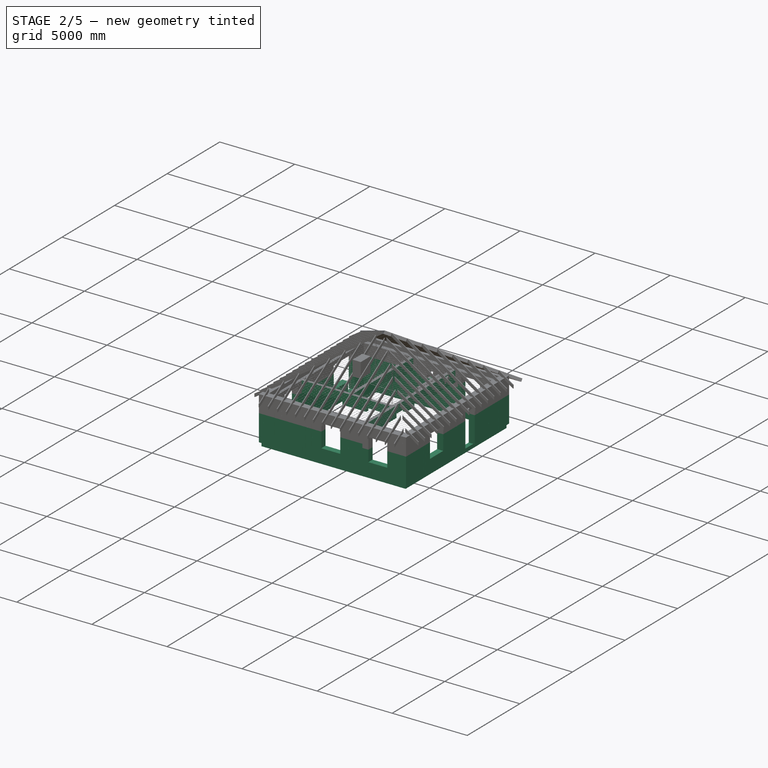
[diagram: stage 2 of 5 — iso view after this stage's code; geometry added in this stage tinted green]
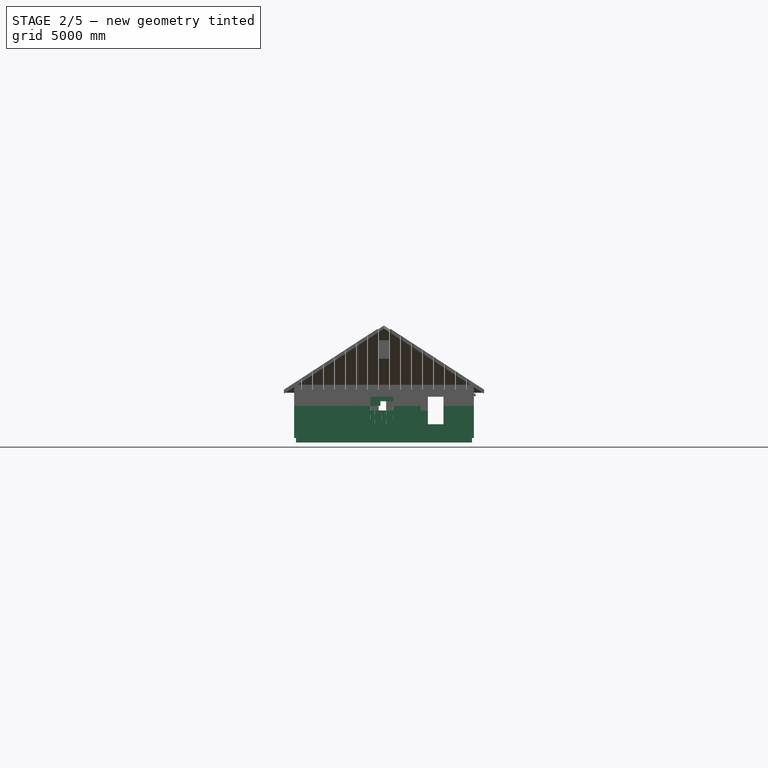
[diagram: stage 2 of 5 — front view after this stage's code; geometry added in this stage tinted green]
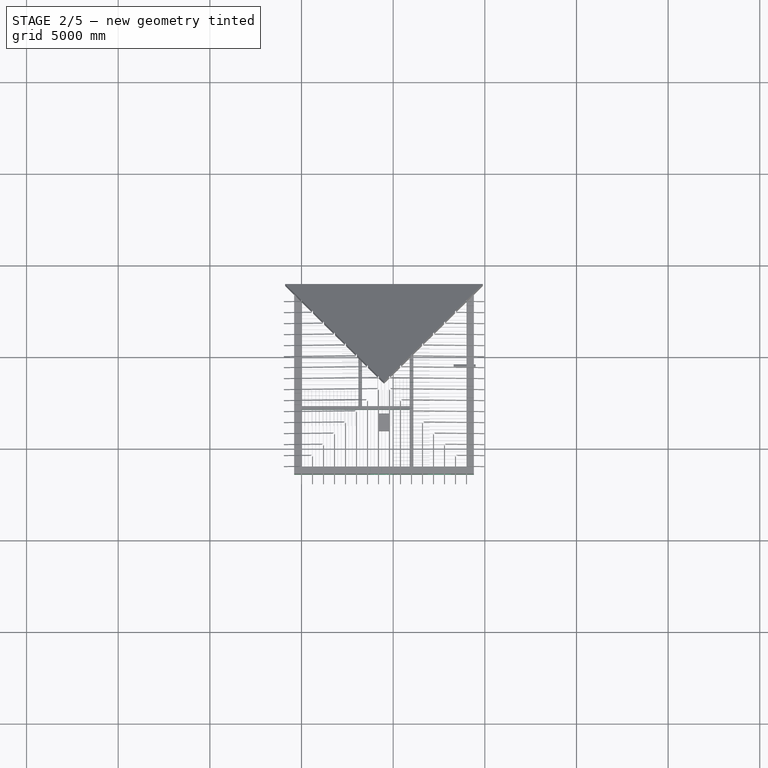
[diagram: stage 2 of 5 — top view after this stage's code; geometry added in this stage tinted green]
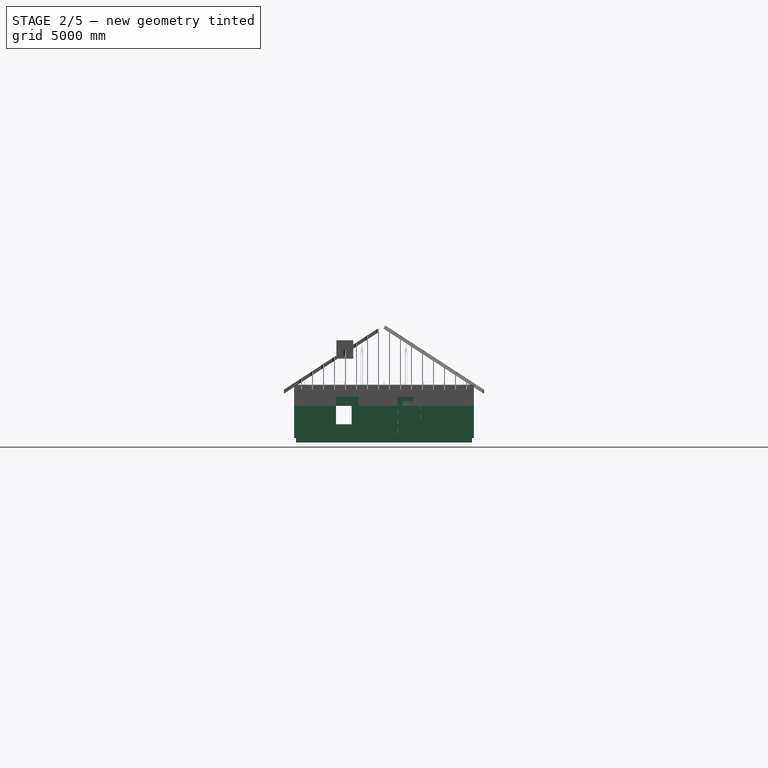
[diagram: stage 2 of 5 — right view after this stage's code; geometry added in this stage tinted green]
FEATURE [Part::Box] Box  label="D400 400x625 001"
  AttacherType = Attacher::AttachEngine3D
  Height = 250
  Length = 625
  Placement = pos=(-400,-6400,570) rot=(0,0,1;0rad)
  Width = 400
FEATURE [Part::FeaturePython] Array047  # Draft array (typed FeaturePython)
  Angle = 360
  ArrayType = 0
  Axis = (0,0,1)
  Base = -> Box
  Center = (0,0,0)
  Fuse = false
  IntervalAxis = (0,0,0)
  IntervalX = (626.66,0,0)
  IntervalY = (0,1,0)
  IntervalZ = (0,0,1)
  NumberPolar = 1
  NumberX = 15
  NumberY = 1
  NumberZ = 1
FEATURE [Part::Box] Box3151  label="D400 400x625 002"
  AttacherType = Attacher::AttachEngine3D
  Height = 250
  Length = 625
  Placement = pos=(8775,3000,570) rot=(0,0,1;0rad)
  Width = 400
FEATURE [Part::FeaturePython] Array046  # Draft array (typed FeaturePython)
  Angle = 360
  ArrayType = 0
  Axis = (0,0,1)
  Base = -> Box3151
  Center = (0,0,0)
  Fuse = false
  IntervalAxis = (0,0,0)
  IntervalX = (-626.66,0,0)
  IntervalY = (0,1,0)
  IntervalZ = (0,0,1)
  NumberPolar = 1
  NumberX = 15
  NumberY = 1
  NumberZ = 1
FEATURE [Part::Box] Box3152  label="D400 400x625 003"
  AttacherType = Attacher::AttachEngine3D
  Height = 250
  Length = 625
  Placement = pos=(-1.3642e-12,2775,570) rot=(0,0,1;1.5708rad)
  Width = 400
FEATURE [Part::FeaturePython] Array044  # Draft array (typed FeaturePython)
  Angle = 360
  ArrayType = 0
  Axis = (0,0,1)
  Base = -> Box3152
  Center = (0,0,0)
  Fuse = false
  IntervalAxis = (0,0,0)
  IntervalX = (1,0,0)
  IntervalY = (0,-626.66,0)
  IntervalZ = (0,0,1)
  NumberPolar = 1
  NumberX = 1
  NumberY = 2
  NumberZ = 1
FEATURE [Part::Box] Box3153  label="D400 400x625 004"
  AttacherType = Attacher::AttachEngine3D
  Height = 250
  Length = 625
  Placement = pos=(9400,-6400,570) rot=(0,0,1;1.5708rad)
  Width = 400
FEATURE [Part::FeaturePython] Array045  # Draft array (typed FeaturePython)
  Angle = 360
  ArrayType = 0
  Axis = (0,0,1)
  Base = -> Box3153
  Center = (0,0,0)
  Fuse = false
  IntervalAxis = (0,0,0)
  IntervalX = (1,0,0)
  IntervalY = (0,626.66,0)
  IntervalZ = (0,0,1)
  NumberPolar = 1
  NumberX = 1
  NumberY = 9
  NumberZ = 1
FEATURE [Part::Box] Box3154  label="D500 300x625 003"
  AttacherType = Attacher::AttachEngine3D
  Height = 250
  Length = 625
  Placement = pos=(8675,-6300,-180) rot=(0,0,1;0rad)
  Width = 300
FEATURE [Part::FeaturePython] Array050  # Draft array (typed FeaturePython)
  Angle = 360
  ArrayType = 0
  Axis = (0,0,1)
  Base = -> Box3154
  Center = (0,0,0)
  Fuse = false
  IntervalAxis = (0,0,0)
  IntervalX = (-626.66,0,0)
  IntervalY = (0,1,0)
  IntervalZ = (0,0,1)
  NumberPolar = 1
  NumberX = 14
  NumberY = 1
  NumberZ = 1
FEATURE [Part::Box] Box3155  label="D500 300x625 004"
  AttacherType = Attacher::AttachEngine3D
  Height = 250
  Length = 625
  Placement = pos=(-300,3000,-180) rot=(0,0,1;0rad)
  Width = 300
FEATURE [Part::FeaturePython] Array051  # Draft array (typed FeaturePython)
  Angle = 360
  ArrayType = 0
  Axis = (0,0,1)
  Base = -> Box3155
  Center = (0,0,0)
  Fuse = false
  IntervalAxis = (0,0,0)
  IntervalX = (626.66,0,0)
  IntervalY = (0,1,0)
  IntervalZ = (0,0,1)
  NumberPolar = 1
  NumberX = 14
  NumberY = 1
  NumberZ = 1
FEATURE [Part::Box] Box3156  label="D500 300x625 001"
  AttacherType = Attacher::AttachEngine3D
  Height = 250
  Length = 625
  Placement = pos=(9300,2675,-180) rot=(0,0,1;1.5708rad)
  Width = 300
FEATURE [Part::FeaturePython] Array048  # Draft array (typed FeaturePython)
  Angle = 360
  ArrayType = 0
  Axis = (0,0,1)
  Base = -> Box3156
  Center = (0,0,0)
  Fuse = false
  IntervalAxis = (0,0,0)
  IntervalX = (1,0,0)
  IntervalY = (0,-626.66,0)
  IntervalZ = (0,0,1)
  NumberPolar = 1
  NumberX = 1
  NumberY = 14
  NumberZ = 1
FEATURE [Part::Box] Box3157  label="D500 300x625 002"
  AttacherType = Attacher::AttachEngine3D
  Height = 250
  Length = 625
  Placement = pos=(-2.324e-12,-6300,-180) rot=(0,0,1;1.5708rad)
  Width = 300
FEATURE [Part::FeaturePython] Array049  # Draft array (typed FeaturePython)
  Angle = 360
  ArrayType = 0
  Axis = (0,0,1)
  Base = -> Box3157
  Center = (0,0,0)
  Fuse = false
  IntervalAxis = (0,0,0)
  IntervalX = (1,0,0)
  IntervalY = (0,626.66,0)
  IntervalZ = (0,0,1)
  NumberPolar = 1
  NumberX = 1
  NumberY = 14
  NumberZ = 1
FEATURE [Part::Box] Box3158  label="D400 400x625 009"
  AttacherType = Attacher::AttachEngine3D
  Height = 250
  Length = 625
  Placement = pos=(8775,-6400,320) rot=(0,0,1;0rad)
  Width = 400
FEATURE [Part::FeaturePython] Array054  # Draft array (typed FeaturePython)
  Angle = 360
  ArrayType = 0
  Axis = (0,0,1)
  Base = -> Box3158
  Center = (0,0,0)
  Fuse = false
  IntervalAxis = (0,0,0)
  IntervalX = (-626.66,0,0)
  IntervalY = (0,1,0)
  IntervalZ = (0,0,1)
  NumberPolar = 1
  NumberX = 15
  NumberY = 1
  NumberZ = 1
FEATURE [Part::Box] Box3159  label="D400 400x625 010"
  AttacherType = Attacher::AttachEngine3D
  Height = 250
  Length = 625
  Placement = pos=(-400,3000,320) rot=(0,0,1;0rad)
  Width = 400
FEATURE [Part::FeaturePython] Array055  # Draft array (typed FeaturePython)
  Angle = 360
  ArrayType = 0
  Axis = (0,0,1)
  Base = -> Box3159
  Center = (0,0,0)
  Fuse = false
  IntervalAxis = (0,0,0)
  IntervalX = (626.66,0,0)
  IntervalY = (0,1,0)
  IntervalZ = (0,0,1)
  NumberPolar = 1
  NumberX = 15
  NumberY = 1
  NumberZ = 1
FEATURE [Part::Box] Box3160  label="D400 400x625 011"
  AttacherType = Attacher::AttachEngine3D
  Height = 250
  Length = 625
  Placement = pos=(-1.933e-12,-6400,320) rot=(0,0,1;1.5708rad)
  Width = 400
FEATURE [Part::FeaturePython] Array053  # Draft array (typed FeaturePython)
  Angle = 360
  ArrayType = 0
  Axis = (0,0,1)
  Base = -> Box3160
  Center = (0,0,0)
  Fuse = false
  IntervalAxis = (0,0,0)
  IntervalX = (1,0,0)
  IntervalY = (0,626.66,0)
  IntervalZ = (0,0,1)
  NumberPolar = 1
  NumberX = 1
  NumberY = 12
  NumberZ = 1
FEATURE [Part::Box] Box3161  label="D400 400x625 012"
  AttacherType = Attacher::AttachEngine3D
  Height = 250
  Length = 625
  Placement = pos=(9400,2775,320) rot=(0,0,1;1.5708rad)
  Width = 400
FEATURE [Part::FeaturePython] Array052  # Draft array (typed FeaturePython)
  Angle = 360
  ArrayType = 0
  Axis = (0,0,1)
  Base = -> Box3161
  Center = (0,0,0)
  Fuse = false
  IntervalAxis = (0,0,0)
  IntervalX = (1,0,0)
  IntervalY = (0,-626.66,0)
  IntervalZ = (0,0,1)
  NumberPolar = 1
  NumberX = 1
  NumberY = 5
  NumberZ = 1
FEATURE [Part::Box] Box3162  label="D400 400x625 013"
  AttacherType = Attacher::AttachEngine3D
  Height = 250
  Length = 625
  Placement = pos=(-5.12e-13,-6000,570) rot=(0,0,1;1.5708rad)
  Width = 400
FEATURE [Part::FeaturePython] Array056  # Draft array (typed FeaturePython)
  Angle = 360
  ArrayType = 0
  Axis = (0,0,1)
  Base = -> Box3162
  Center = (0,0,0)
  Fuse = false
  IntervalAxis = (0,0,0)
  IntervalX = (1,0,0)
  IntervalY = (0,626.66,0)
  IntervalZ = (0,0,1)
  NumberPolar = 1
  NumberX = 1
  NumberY = 12
  NumberZ = 1
FEATURE [Part::Box] Box3163  label="D400 400x625 014"
  AttacherType = Attacher::AttachEngine3D
  Height = 250
  Length = 625
  Placement = pos=(-1.3642e-12,2775,570) rot=(0,0,1;1.5708rad)
  Width = 400
FEATURE [Part::FeaturePython] Array057  # Draft array (typed FeaturePython)
  Angle = 360
  ArrayType = 0
  Axis = (0,0,1)
  Base = -> Box3163
  Center = (0,0,0)
  Fuse = false
  IntervalAxis = (0,0,0)
  IntervalX = (1,0,0)
  IntervalY = (0,-626.66,0)
  IntervalZ = (0,0,1)
  NumberPolar = 1
  NumberX = 1
  NumberY = 4
  NumberZ = 1
  Placement = pos=(9400,-400,0) rot=(0,0,1;0rad)
FEATURE [Part::Box] Box3164  label="D400 400 добор 001"
  AttacherType = Attacher::AttachEngine3D
  Height = 250
  Length = 358.34
  Placement = pos=(9000,493.36,570) rot=(0,0,-1;1.5708rad)
  Width = 400
FEATURE [Part::Box] Box3165  label="D400 400x625 015"
  AttacherType = Attacher::AttachEngine3D
  Height = 250
  Length = 625
  Placement = pos=(-5.12e-13,-6000,70) rot=(0,0,1;1.5708rad)
  Width = 400
FEATURE [Part::Box] Box3166  label="D400 400x625 016"
  AttacherType = Attacher::AttachEngine3D
  Height = 250
  Length = 625
  Placement = pos=(-1.3642e-12,2775,70) rot=(0,0,1;1.5708rad)
  Width = 400
FEATURE [Part::FeaturePython] Array058  # Draft array (typed FeaturePython)
  Angle = 360
  ArrayType = 0
  Axis = (0,0,1)
  Base = -> Box3166
  Center = (0,0,0)
  Fuse = false
  IntervalAxis = (0,0,0)
  IntervalX = (1,0,0)
  IntervalY = (0,-626.66,0)
  IntervalZ = (0,0,1)
  NumberPolar = 1
  NumberX = 1
  NumberY = 2
  NumberZ = 1
FEATURE [Part::Box] Box3167  label="D400 400x625 017"
  AttacherType = Attacher::AttachEngine3D
  Height = 250
  Length = 625
  Placement = pos=(-400,-6400,70) rot=(0,0,1;0rad)
  Width = 400
FEATURE [Part::FeaturePython] Array061  # Draft array (typed FeaturePython)
  Angle = 360
  ArrayType = 0
  Axis = (0,0,1)
  Base = -> Box3167
  Center = (0,0,0)
  Fuse = false
  IntervalAxis = (0,0,0)
  IntervalX = (626.66,0,0)
  IntervalY = (0,1,0)
  IntervalZ = (0,0,1)
  NumberPolar = 1
  NumberX = 15
  NumberY = 1
  NumberZ = 1
FEATURE [Part::Box] Box3168  label="D400 400x625 018"
  AttacherType = Attacher::AttachEngine3D
  Height = 250
  Length = 625
  Placement = pos=(9400,-6400,70) rot=(0,0,1;1.5708rad)
  Width = 400
FEATURE [Part::FeaturePython] Array059  # Draft array (typed FeaturePython)
  Angle = 360
  ArrayType = 0
  Axis = (0,0,1)
  Base = -> Box3168
  Center = (0,0,0)
  Fuse = false
  IntervalAxis = (0,0,0)
  IntervalX = (1,0,0)
  IntervalY = (0,626.66,0)
  IntervalZ = (0,0,1)
  NumberPolar = 1
  NumberX = 1
  NumberY = 9
  NumberZ = 1
FEATURE [Part::Box] Box3169  label="D400 400 добор 002"
  AttacherType = Attacher::AttachEngine3D
  Height = 250
  Length = 358.34
  Placement = pos=(9000,493.36,70) rot=(0,0,-1;1.5708rad)
  Width = 400
FEATURE [Part::FeaturePython] Array063  # Draft array (typed FeaturePython)
  Angle = 360
  ArrayType = 0
  Axis = (0,0,1)
  Base = -> Box3165
  Center = (0,0,0)
  Fuse = false
  IntervalAxis = (0,0,0)
  IntervalX = (1,0,0)
  IntervalY = (0,626.66,0)
  IntervalZ = (0,0,1)
  NumberPolar = 1
  NumberX = 1
  NumberY = 12
  NumberZ = 1
FEATURE [Part::Box] Box3170  label="D400 400x625 019"
  AttacherType = Attacher::AttachEngine3D
  Height = 250
  Length = 625
  Placement = pos=(8775,3000,70) rot=(0,0,1;0rad)
  Width = 400
FEATURE [Part::FeaturePython] Array060  # Draft array (typed FeaturePython)
  Angle = 360
  ArrayType = 0
  Axis = (0,0,1)
  Base = -> Box3170
  Center = (0,0,0)
  Fuse = false
  IntervalAxis = (0,0,0)
  IntervalX = (-626.66,0,0)
  IntervalY = (0,1,0)
  IntervalZ = (0,0,1)
  NumberPolar = 1
  NumberX = 15
  NumberY = 1
  NumberZ = 1
FEATURE [Part::Box] Box3171  label="D400 400x625 020"
  AttacherType = Attacher::AttachEngine3D
  Height = 250
  Length = 625
  Placement = pos=(-1.3642e-12,2775,70) rot=(0,0,1;1.5708rad)
  Width = 400
FEATURE [Part::FeaturePython] Array062  # Draft array (typed FeaturePython)
  Angle = 360
  ArrayType = 0
  Axis = (0,0,1)
  Base = -> Box3171
  Center = (0,0,0)
  Fuse = false
  IntervalAxis = (0,0,0)
  IntervalX = (1,0,0)
  IntervalY = (0,-626.66,0)
  IntervalZ = (0,0,1)
  NumberPolar = 1
  NumberX = 1
  NumberY = 4
  NumberZ = 1
  Placement = pos=(9400,-400,0) rot=(0,0,1;0rad)
FEATURE [Part::Box] Box3172  label="D400 400 добор 003"
  AttacherType = Attacher::AttachEngine3D
  Height = 250
  Length = 131.68
  Placement = pos=(9000,266.7,320) rot=(0,0,-1;1.5708rad)
  Width = 400
FEATURE [Part::Box] Box3173  label="D400 400x625 021"
  AttacherType = Attacher::AttachEngine3D
  Height = 250
  Length = 625
  Placement = pos=(9400,-6000,320) rot=(0,0,1;1.5708rad)
  Width = 400
FEATURE [Part::FeaturePython] Array064  # Draft array (typed FeaturePython)
  Angle = 360
  ArrayType = 0
  Axis = (0,0,1)
  Base = -> Box3173
  Center = (0,0,0)
  Fuse = false
  IntervalAxis = (0,0,0)
  IntervalX = (1,0,0)
  IntervalY = (0,626.66,0)
  IntervalZ = (0,0,1)
  NumberPolar = 1
  NumberX = 1
  NumberY = 8
  NumberZ = 1
FEATURE [Part::Box] Box3174  label="D400 400 добор 004"
  AttacherType = Attacher::AttachEngine3D
  Height = 250
  Length = 225
  Placement = pos=(9400,-986.72,320) rot=(0,0,1;1.5708rad)
  Width = 400
FEATURE [Part::Box] Box3175  label="D400 400x625 022"
  AttacherType = Attacher::AttachEngine3D
  Height = 250
  Length = 625
  Placement = pos=(0,2375,320) rot=(0,0,1;1.5708rad)
  Width = 400
FEATURE [Part::FeaturePython] Array065  # Draft array (typed FeaturePython)
  Angle = 360
  ArrayType = 0
  Axis = (0,0,1)
  Base = -> Box3175
  Center = (0,0,0)
  Fuse = false
  IntervalAxis = (0,0,0)
  IntervalX = (1,0,0)
  IntervalY = (0,-626.66,0)
  IntervalZ = (0,0,1)
  NumberPolar = 1
  NumberX = 1
  NumberY = 1
  NumberZ = 1
FEATURE [Part::Box] Box3176  label="D400 400 добор 005"
  AttacherType = Attacher::AttachEngine3D
  Height = 250
  Length = 398.34
  Placement = pos=(-5.12e-13,1119.92,320) rot=(0,0,1;1.5708rad)
  Width = 400
FEATURE [Part::Box] Box3177  label="D400 400 добор 006"
  AttacherType = Attacher::AttachEngine3D
  Height = 250
  Length = 225
  Placement = pos=(-400,2373.34,320) rot=(0,0,-1;1.5708rad)
  Width = 400
FEATURE [Part::Box] Box3178  label="D500 300 добор 001"
  AttacherType = Attacher::AttachEngine3D
  Height = 250
  Length = 528.42
  Placement = pos=(9000,-5471.58,-180) rot=(0,0,-1;1.5708rad)
  Width = 300
FEATURE [Part::Box] Box3179  label="D500 300 добор 002"
  AttacherType = Attacher::AttachEngine3D
  Height = 250
  Length = 528.42
  Placement = pos=(-300,3000,-180) rot=(0,0,-1;1.5708rad)
  Width = 300
FEATURE [Part::Box] Box3180  label="D500 300 добор 003"
  AttacherType = Attacher::AttachEngine3D
  Height = 250
  Length = 528.42
  Placement = pos=(8471.58,3000,-180) rot=(0,0,-1;0rad)
  Width = 300
FEATURE [Part::Box] Box3181  label="D500 300 добор 004"
  AttacherType = Attacher::AttachEngine3D
  Height = 250
  Length = 528.42
  Placement = pos=(0,-6300,-180) rot=(0,0,-1;0rad)
  Width = 300
FEATURE [Part::Box] Box3182  label="D400 400x625 023"
  AttacherType = Attacher::AttachEngine3D
  Height = 250
  Length = 625
  Placement = pos=(-5.12e-13,-6000,1070) rot=(0,0,1;1.5708rad)
  Width = 400
FEATURE [Part::Box] Box3183  label="D400 400x625 024"
  AttacherType = Attacher::AttachEngine3D
  Height = 250
  Length = 625
  Placement = pos=(-1.3642e-12,2775,1070) rot=(0,0,1;1.5708rad)
  Width = 400
FEATURE [Part::FeaturePython] Array066  # Draft array (typed FeaturePython)
  Angle = 360
  ArrayType = 0
  Axis = (0,0,1)
  Base = -> Box3183
  Center = (0,0,0)
  Fuse = false
  IntervalAxis = (0,0,0)
  IntervalX = (1,0,0)
  IntervalY = (0,-626.66,0)
  IntervalZ = (0,0,1)
  NumberPolar = 1
  NumberX = 1
  NumberY = 2
  NumberZ = 1
FEATURE [Part::Box] Box3184  label="D400 400x625 025"
  AttacherType = Attacher::AttachEngine3D
  Height = 250
  Length = 625
  Placement = pos=(-400,-6400,1070) rot=(0,0,1;0rad)
  Width = 400
FEATURE [Part::FeaturePython] Array069  # Draft array (typed FeaturePython)
  Angle = 360
  ArrayType = 0
  Axis = (0,0,1)
  Base = -> Box3184
  Center = (0,0,0)
  Fuse = false
  IntervalAxis = (0,0,0)
  IntervalX = (626.66,0,0)
  IntervalY = (0,1,0)
  IntervalZ = (0,0,1)
  NumberPolar = 1
  NumberX = 6
  NumberY = 1
  NumberZ = 1
FEATURE [Part::Box] Box3185  label="D400 400x625 026"
  AttacherType = Attacher::AttachEngine3D
  Height = 250
  Length = 625
  Placement = pos=(-1.933e-12,-6400,820) rot=(0,0,1;1.5708rad)
  Width = 400
FEATURE [Part::FeaturePython] Array071  # Draft array (typed FeaturePython)
  Angle = 360
  ArrayType = 0
  Axis = (0,0,1)
  Base = -> Box3185
  Center = (0,0,0)
  Fuse = false
  IntervalAxis = (0,0,0)
  IntervalX = (1,0,0)
  IntervalY = (0,626.66,0)
  IntervalZ = (0,0,1)
  NumberPolar = 1
  NumberX = 1
  NumberY = 3
  NumberZ = 1
FEATURE [Part::Box] Box3186  label="D400 400x625 027"
  AttacherType = Attacher::AttachEngine3D
  Height = 250
  Length = 625
  Placement = pos=(9400,2775,820) rot=(0,0,1;1.5708rad)
  Width = 400
FEATURE [Part::FeaturePython] Array074  # Draft array (typed FeaturePython)
  Angle = 360
  ArrayType = 0
  Axis = (0,0,1)
  Base = -> Box3186
  Center = (0,0,0)
  Fuse = false
  IntervalAxis = (0,0,0)
  IntervalX = (1,0,0)
  IntervalY = (0,-626.66,0)
  IntervalZ = (0,0,1)
  NumberPolar = 1
  NumberX = 1
  NumberY = 5
  NumberZ = 1
FEATURE [Part::Box] Box3187  label="D400 400x625 028"
  AttacherType = Attacher::AttachEngine3D
  Height = 250
  Length = 625
  Placement = pos=(9400,-6400,1070) rot=(0,0,1;1.5708rad)
  Width = 400
FEATURE [Part::FeaturePython] Array067  # Draft array (typed FeaturePython)
  Angle = 360
  ArrayType = 0
  Axis = (0,0,1)
  Base = -> Box3187
  Center = (0,0,0)
  Fuse = false
  IntervalAxis = (0,0,0)
  IntervalX = (1,0,0)
  IntervalY = (0,626.66,0)
  IntervalZ = (0,0,1)
  NumberPolar = 1
  NumberX = 1
  NumberY = 3
  NumberZ = 1
FEATURE [Part::Box] Box3188  label="D400 400x625 029"
  AttacherType = Attacher::AttachEngine3D
  Height = 250
  Length = 625
  Placement = pos=(-400,3000,820) rot=(0,0,1;0rad)
  Width = 400
FEATURE [Part::FeaturePython] Array070  # Draft array (typed FeaturePython)
  Angle = 360
  ArrayType = 0
  Axis = (0,0,1)
  Base = -> Box3188
  Center = (0,0,0)
  Fuse = false
  IntervalAxis = (0,0,0)
  IntervalX = (626.66,0,0)
  IntervalY = (0,1,0)
  IntervalZ = (0,0,1)
  NumberPolar = 1
  NumberX = 11
  NumberY = 1
  NumberZ = 1
FEATURE [Part::Box] Box3189  label="D400 400 добор 007"
  AttacherType = Attacher::AttachEngine3D
  Height = 250
  Length = 358.34
  Placement = pos=(9000,493.36,1070) rot=(0,0,-1;1.5708rad)
  Width = 400
FEATURE [Part::Box] Box3191  label="D400 400 добор 009"
  AttacherType = Attacher::AttachEngine3D
  Height = 250
  Length = 225
  Placement = pos=(-400,2373.34,820) rot=(0,0,-1;1.5708rad)
  Width = 400
FEATURE [Part::FeaturePython] Array077  # Draft array (typed FeaturePython)
  Angle = 360
  ArrayType = 0
  Axis = (0,0,1)
  Base = -> Box3182
  Center = (0,0,0)
  Fuse = false
  IntervalAxis = (0,0,0)
  IntervalX = (1,0,0)
  IntervalY = (0,626.66,0)
  IntervalZ = (0,0,1)
  NumberPolar = 1
  NumberX = 1
  NumberY = 2
  NumberZ = 1
FEATURE [Part::Box] Box3192  label="D400 400x625 030"
  AttacherType = Attacher::AttachEngine3D
  Height = 250
  Length = 625
  Placement = pos=(8775,-6400,820) rot=(0,0,1;0rad)
  Width = 400
FEATURE [Part::FeaturePython] Array073  # Draft array (typed FeaturePython)
  Angle = 360
  ArrayType = 0
  Axis = (0,0,1)
  Base = -> Box3192
  Center = (0,0,0)
  Fuse = false
  IntervalAxis = (0,0,0)
  IntervalX = (-626.66,0,0)
  IntervalY = (0,1,0)
  IntervalZ = (0,0,1)
  NumberPolar = 1
  NumberX = 2
  NumberY = 1
  NumberZ = 1
FEATURE [Part::Box] Box3193  label="D400 400x625 031"
  AttacherType = Attacher::AttachEngine3D
  Height = 250
  Length = 625
  Placement = pos=(8775,3000,1070) rot=(0,0,1;0rad)
  Width = 400
FEATURE [Part::FeaturePython] Array068  # Draft array (typed FeaturePython)
  Angle = 360
  ArrayType = 0
  Axis = (0,0,1)
  Base = -> Box3193
  Center = (0,0,0)
  Fuse = false
  IntervalAxis = (0,0,0)
  IntervalX = (-626.66,0,0)
  IntervalY = (0,1,0)
  IntervalZ = (0,0,1)
  NumberPolar = 1
  NumberX = 2
  NumberY = 1
  NumberZ = 1
FEATURE [Part::Box] Box3194  label="D400 400x625 032"
  AttacherType = Attacher::AttachEngine3D
  Height = 250
  Length = 625
  Placement = pos=(9400,-6000,820) rot=(0,0,1;1.5708rad)
  Width = 400
FEATURE [Part::FeaturePython] Array075  # Draft array (typed FeaturePython)
  Angle = 360
  ArrayType = 0
  Axis = (0,0,1)
  Base = -> Box3194
  Center = (0,0,0)
  Fuse = false
  IntervalAxis = (0,0,0)
  IntervalX = (1,0,0)
  IntervalY = (0,626.66,0)
  IntervalZ = (0,0,1)
  NumberPolar = 1
  NumberX = 1
  NumberY = 3
  NumberZ = 1
FEATURE [Part::Box] Box3195  label="D400 400x625 033"
  AttacherType = Attacher::AttachEngine3D
  Height = 250
  Length = 625
  Placement = pos=(0,2375,820) rot=(0,0,1;1.5708rad)
  Width = 400
FEATURE [Part::FeaturePython] Array076  # Draft array (typed FeaturePython)
  Angle = 360
  ArrayType = 0
  Axis = (0,0,1)
  Base = -> Box3195
  Center = (0,0,0)
  Fuse = false
  IntervalAxis = (0,0,0)
  IntervalX = (1,0,0)
  IntervalY = (0,-626.66,0)
  IntervalZ = (0,0,1)
  NumberPolar = 1
  NumberX = 1
  NumberY = 1
  NumberZ = 1
FEATURE [Part::Box] Box3196  label="D400 400x625 034"
  AttacherType = Attacher::AttachEngine3D
  Height = 250
  Length = 625
  Placement = pos=(-1.3642e-12,2775,1070) rot=(0,0,1;1.5708rad)
  Width = 400
FEATURE [Part::FeaturePython] Array072  # Draft array (typed FeaturePython)
  Angle = 360
  ArrayType = 0
  Axis = (0,0,1)
  Base = -> Box3196
  Center = (0,0,0)
  Fuse = false
  IntervalAxis = (0,0,0)
  IntervalX = (1,0,0)
  IntervalY = (0,-626.66,0)
  IntervalZ = (0,0,1)
  NumberPolar = 1
  NumberX = 1
  NumberY = 4
  NumberZ = 1
  Placement = pos=(9400,-400,0) rot=(0,0,1;0rad)
FEATURE [Part::Box] Box3197  label="D400 400 добор 010"
  AttacherType = Attacher::AttachEngine3D
  Height = 250
  Length = 131.68
  Placement = pos=(9000,266.7,820) rot=(0,0,-1;1.5708rad)
  Width = 400
FEATURE [Part::Box] Box3198  label="D400 400 добор 011"
  AttacherType = Attacher::AttachEngine3D
  Height = 250
  Length = 226.66
  Placement = pos=(9400,-988.38,820) rot=(0,0,1;1.5708rad)
  Width = 400
FEATURE [Part::Box] Box3199  label="D400 400x625 035"
  AttacherType = Attacher::AttachEngine3D
  Height = 250
  Length = 625
  Placement = pos=(-2.445e-12,-3266.7,820) rot=(0,0,1;1.5708rad)
  Width = 400
FEATURE [Part::FeaturePython] Array078  # Draft array (typed FeaturePython)
  Angle = 360
  ArrayType = 0
  Axis = (0,0,1)
  Base = -> Box3199
  Center = (0,0,0)
  Fuse = false
  IntervalAxis = (0,0,0)
  IntervalX = (1,0,0)
  IntervalY = (0,626.66,0)
  IntervalZ = (0,0,1)
  NumberPolar = 1
  NumberX = 1
  NumberY = 5
  NumberZ = 1
FEATURE [Part::Box] Box3200  label="D400 400 добор 012"
  AttacherType = Attacher::AttachEngine3D
  Height = 250
  Length = 283.34
  Placement = pos=(-2.331e-12,-133.4,820) rot=(0,0,1;1.5708rad)
  Width = 400
FEATURE [Part::Box] Box3201  label="D400 400x625 036"
  AttacherType = Attacher::AttachEngine3D
  Height = 250
  Length = 625
  Placement = pos=(-1.024e-12,-2866.7,1070) rot=(0,0,1;1.5708rad)
  Width = 400
FEATURE [Part::FeaturePython] Array079  # Draft array (typed FeaturePython)
  Angle = 360
  ArrayType = 0
  Axis = (0,0,1)
  Base = -> Box3201
  Center = (0,0,0)
  Fuse = false
  IntervalAxis = (0,0,0)
  IntervalX = (1,0,0)
  IntervalY = (0,626.66,0)
  IntervalZ = (0,0,1)
  NumberPolar = 1
  NumberX = 1
  NumberY = 4
  NumberZ = 1
FEATURE [Part::Box] Box3202  label="D400 400 добор 013"
  AttacherType = Attacher::AttachEngine3D
  Height = 250
  Length = 510
  Placement = pos=(-2.3878e-12,-360.06,1070) rot=(0,0,1;1.5708rad)
  Width = 400
FEATURE [Part::Box] Box3203  label="D400 400 добор 014"
  AttacherType = Attacher::AttachEngine3D
  Height = 250
  Length = 398.34
  Placement = pos=(-400,-2868.36,1070) rot=(0,0,-1;1.5708rad)
  Width = 400
FEATURE [Part::Box] Box3204  label="D400 400 добор 015"
  AttacherType = Attacher::AttachEngine3D
  Height = 250
  Length = 225
  Placement = pos=(-1.8759e-12,-4746.68,1070) rot=(0,0,1;1.5708rad)
  Width = 400
FEATURE [Part::Box] Box3205  label="D400 400x625 037"
  AttacherType = Attacher::AttachEngine3D
  Height = 250
  Length = 625
  Placement = pos=(-1.933e-12,-6400,820) rot=(0,0,1;0rad)
  Width = 400
FEATURE [Part::FeaturePython] Array080  # Draft array (typed FeaturePython)
  Angle = 360
  ArrayType = 0
  Axis = (0,0,1)
  Base = -> Box3205
  Center = (0,0,0)
  Fuse = false
  IntervalAxis = (0,0,0)
  IntervalX = (626.66,0,0)
  IntervalY = (0,1,0)
  IntervalZ = (0,0,1)
  NumberPolar = 1
  NumberX = 6
  NumberY = 1
  NumberZ = 1
FEATURE [Part::Box] Box3206  label="D400 400x625 038"
  AttacherType = Attacher::AttachEngine3D
  Height = 250
  Length = 625
  Placement = pos=(5013.38,-6400,820) rot=(0,0,1;0rad)
  Width = 400
FEATURE [Part::FeaturePython] Array081  # Draft array (typed FeaturePython)
  Angle = 360
  ArrayType = 0
  Axis = (0,0,1)
  Base = -> Box3206
  Center = (0,0,0)
  Fuse = false
  IntervalAxis = (0,0,0)
  IntervalX = (626.66,0,0)
  IntervalY = (0,1,0)
  IntervalZ = (0,0,1)
  NumberPolar = 1
  NumberX = 3
  NumberY = 1
  NumberZ = 1
FEATURE [Part::Box] Box3207  label="D400 400x625 039"
  AttacherType = Attacher::AttachEngine3D
  Height = 250
  Length = 625
  Placement = pos=(9400,-2868.36,820) rot=(0,0,1;1.5708rad)
  Width = 400
FEATURE [Part::FeaturePython] Array082  # Draft array (typed FeaturePython)
  Angle = 360
  ArrayType = 0
  Axis = (0,0,1)
  Base = -> Box3207
  Center = (0,0,0)
  Fuse = false
  IntervalAxis = (0,0,0)
  IntervalX = (1,0,0)
  IntervalY = (0,626.66,0)
  IntervalZ = (0,0,1)
  NumberPolar = 1
  NumberX = 1
  NumberY = 3
  NumberZ = 1
FEATURE [Part::Box] Box3208  label="D400 400 добор 016"
  AttacherType = Attacher::AttachEngine3D
  Height = 250
  Length = 398.34
  Placement = pos=(9400,-4520.02,1070) rot=(0,0,1;1.5708rad)
  Width = 400
FEATURE [Part::Box] Box3209  label="D400 400x625 040"
  AttacherType = Attacher::AttachEngine3D
  Height = 250
  Length = 625
  Placement = pos=(9400,-2640.04,1070) rot=(0,0,1;1.5708rad)
  Width = 400
FEATURE [Part::FeaturePython] Array083  # Draft array (typed FeaturePython)
  Angle = 360
  ArrayType = 0
  Axis = (0,0,1)
  Base = -> Box3209
  Center = (0,0,0)
  Fuse = false
  IntervalAxis = (0,0,0)
  IntervalX = (1,0,0)
  IntervalY = (0,626.66,0)
  IntervalZ = (0,0,1)
  NumberPolar = 1
  NumberX = 1
  NumberY = 3
  NumberZ = 1
FEATURE [Part::Box] Box3210  label="D400 400 добор 017"
  AttacherType = Attacher::AttachEngine3D
  Height = 250
  Length = 226.66
  Placement = pos=(9400,-2868.36,1070) rot=(0,0,1;1.5708rad)
  Width = 400
FEATURE [Part::Box] Box3211  label="D400 400x625 041"
  AttacherType = Attacher::AttachEngine3D
  Height = 250
  Length = 625
  Placement = pos=(1.76,3000,1070) rot=(0,0,1;0rad)
  Width = 400
FEATURE [Part::FeaturePython] Array084  # Draft array (typed FeaturePython)
  Angle = 360
  ArrayType = 0
  Axis = (0,0,1)
  Base = -> Box3211
  Center = (0,0,0)
  Fuse = false
  IntervalAxis = (0,0,0)
  IntervalX = (626.66,0,0)
  IntervalY = (0,1,0)
  IntervalZ = (0,0,1)
  NumberPolar = 1
  NumberX = 10
  NumberY = 1
  NumberZ = 1
FEATURE [Part::Box] Box3212  label="D400 400x625 042"
  AttacherType = Attacher::AttachEngine3D
  Height = 250
  Length = 625
  Placement = pos=(8373.24,3000,820) rot=(0,0,1;0rad)
  Width = 400
FEATURE [Part::FeaturePython] Array085  # Draft array (typed FeaturePython)
  Angle = 360
  ArrayType = 0
  Axis = (0,0,1)
  Base = -> Box3212
  Center = (0,0,0)
  Fuse = false
  IntervalAxis = (0,0,0)
  IntervalX = (-626.66,0,0)
  IntervalY = (0,1,0)
  IntervalZ = (0,0,1)
  NumberPolar = 1
  NumberX = 2
  NumberY = 1
  NumberZ = 1
FEATURE [Part::Box] Box3213  label="D400 400 добор 018"
  AttacherType = Attacher::AttachEngine3D
  Height = 250
  Length = 223.24
  Placement = pos=(6268.36,3000,1070) rot=(0,0,-1;0rad)
  Width = 400
FEATURE [Part::Box] Box3214  label="D400 400 добор 019"
  AttacherType = Attacher::AttachEngine3D
  Height = 250
  Length = 400
  Placement = pos=(8146.58,3400,1070) rot=(0,0,1;3.14159rad)
  Width = 400
FEATURE [Part::Box] Box3215  label="D400 400x625 043"
  AttacherType = Attacher::AttachEngine3D
  Height = 250
  Length = 625
  Placement = pos=(5239.94,-6400,1070) rot=(0,0,1;0rad)
  Width = 400
FEATURE [Part::FeaturePython] Array086  # Draft array (typed FeaturePython)
  Angle = 360
  ArrayType = 0
  Axis = (0,0,1)
  Base = -> Box3215
  Center = (0,0,0)
  Fuse = false
  IntervalAxis = (0,0,0)
  IntervalX = (626.66,0,0)
  IntervalY = (0,1,0)
  IntervalZ = (0,0,1)
  NumberPolar = 1
  NumberX = 2
  NumberY = 1
  NumberZ = 1
FEATURE [Part::Box] Box3216  label="D400 400x625 044"
  AttacherType = Attacher::AttachEngine3D
  Height = 250
  Length = 625
  Placement = pos=(8373.24,-6400,1070) rot=(0,0,1;0rad)
  Width = 400
FEATURE [Part::FeaturePython] Array087  # Draft array (typed FeaturePython)
  Angle = 360
  ArrayType = 0
  Axis = (0,0,1)
  Base = -> Box3216
  Center = (0,0,0)
  Fuse = false
  IntervalAxis = (0,0,0)
  IntervalX = (-626.66,0,0)
  IntervalY = (0,1,0)
  IntervalZ = (0,0,1)
  NumberPolar = 1
  NumberX = 1
  NumberY = 1
  NumberZ = 1
FEATURE [Part::Box] Box3217  label="D400 400 добор 020"
  AttacherType = Attacher::AttachEngine3D
  Height = 250
  Length = 398.34
  Placement = pos=(3359.96,-6400,1070) rot=(0,0,-1;0rad)
  Width = 400
FEATURE [Part::Box] Box3218  label="D400 400 добор 021"
  AttacherType = Attacher::AttachEngine3D
  Height = 250
  Length = 223.24
  Placement = pos=(5238.28,-6000,1070) rot=(0,0,1;3.14159rad)
  Width = 400
FEATURE [Part::Box] Box3219  label="D400 400 добор 022"
  AttacherType = Attacher::AttachEngine3D
  Height = 250
  Length = 398.34
  Placement = pos=(6493.26,-6400,1070) rot=(0,0,-1;0rad)
  Width = 400
FEATURE [Part::Box] Box3220  label="D400 400 добор 023"
  AttacherType = Attacher::AttachEngine3D
  Height = 250
  Length = 223.24
  Placement = pos=(8371.58,-6000,1070) rot=(0,0,1;3.14159rad)
  Width = 400
FEATURE [Part::Box] Box3221  label="D400 400x625 045"
  AttacherType = Attacher::AttachEngine3D
  Height = 250
  Length = 625
  Placement = pos=(-3.3541e-12,-6400,1320) rot=(0,0,1;1.5708rad)
  Width = 400
FEATURE [Part::FeaturePython] Array089  # Draft array (typed FeaturePython)
  Angle = 360
  ArrayType = 0
  Axis = (0,0,1)
  Base = -> Box3221
  Center = (0,0,0)
  Fuse = false
  IntervalAxis = (0,0,0)
  IntervalX = (1,0,0)
  IntervalY = (0,626.66,0)
  IntervalZ = (0,0,1)
  NumberPolar = 1
  NumberX = 1
  NumberY = 3
  NumberZ = 1
FEATURE [Part::Box] Box3222  label="D400 400x625 046"
  AttacherType = Attacher::AttachEngine3D
  Height = 250
  Length = 625
  Placement = pos=(9400,2775,1320) rot=(0,0,1;1.5708rad)
  Width = 400
FEATURE [Part::FeaturePython] Array091  # Draft array (typed FeaturePython)
  Angle = 360
  ArrayType = 0
  Axis = (0,0,1)
  Base = -> Box3222
  Center = (0,0,0)
  Fuse = false
  IntervalAxis = (0,0,0)
  IntervalX = (1,0,0)
  IntervalY = (0,-626.66,0)
  IntervalZ = (0,0,1)
  NumberPolar = 1
  NumberX = 1
  NumberY = 5
  NumberZ = 1
FEATURE [Part::Box] Box3223  label="D400 400x625 047"
  AttacherType = Attacher::AttachEngine3D
  Height = 250
  Length = 625
  Placement = pos=(-400,3000,1320) rot=(0,0,1;0rad)
  Width = 400
FEATURE [Part::FeaturePython] Array088  # Draft array (typed FeaturePython)
  Angle = 360
  ArrayType = 0
  Axis = (0,0,1)
  Base = -> Box3223
  Center = (0,0,0)
  Fuse = false
  IntervalAxis = (0,0,0)
  IntervalX = (626.66,0,0)
  IntervalY = (0,1,0)
  IntervalZ = (0,0,1)
  NumberPolar = 1
  NumberX = 11
  NumberY = 1
  NumberZ = 1
FEATURE [Part::Box] Box3224  label="D400 400 добор 024"
  AttacherType = Attacher::AttachEngine3D
  Height = 250
  Length = 225
  Placement = pos=(-400,2373.34,1320) rot=(0,0,-1;1.5708rad)
  Width = 400
FEATURE [Part::Box] Box3225  label="D400 400x625 048"
  AttacherType = Attacher::AttachEngine3D
  Height = 250
  Length = 625
  Placement = pos=(8775,-6400,1320) rot=(0,0,1;0rad)
  Width = 400
FEATURE [Part::FeaturePython] Array090  # Draft array (typed FeaturePython)
  Angle = 360
  ArrayType = 0
  Axis = (0,0,1)
  Base = -> Box3225
  Center = (0,0,0)
  Fuse = false
  IntervalAxis = (0,0,0)
  IntervalX = (-626.66,0,0)
  IntervalY = (0,1,0)
  IntervalZ = (0,0,1)
  NumberPolar = 1
  NumberX = 2
  NumberY = 1
  NumberZ = 1
FEATURE [Part::Box] Box3226  label="D400 400x625 049"
  AttacherType = Attacher::AttachEngine3D
  Height = 250
  Length = 625
  Placement = pos=(9400,-6000,1320) rot=(0,0,1;1.5708rad)
  Width = 400
FEATURE [Part::FeaturePython] Array092  # Draft array (typed FeaturePython)
  Angle = 360
  ArrayType = 0
  Axis = (0,0,1)
  Base = -> Box3226
  Center = (0,0,0)
  Fuse = false
  IntervalAxis = (0,0,0)
  IntervalX = (1,0,0)
  IntervalY = (0,626.66,0)
  IntervalZ = (0,0,1)
  NumberPolar = 1
  NumberX = 1
  NumberY = 3
  NumberZ = 1
FEATURE [Part::Box] Box3227  label="D400 400x625 050"
  AttacherType = Attacher::AttachEngine3D
  Height = 250
  Length = 625
  Placement = pos=(-1.4211e-12,2375,1320) rot=(0,0,1;1.5708rad)
  Width = 400
FEATURE [Part::FeaturePython] Array093  # Draft array (typed FeaturePython)
  Angle = 360
  ArrayType = 0
  Axis = (0,0,1)
  Base = -> Box3227
  Center = (0,0,0)
  Fuse = false
  IntervalAxis = (0,0,0)
  IntervalX = (1,0,0)
  IntervalY = (0,-626.66,0)
  IntervalZ = (0,0,1)
  NumberPolar = 1
  NumberX = 1
  NumberY = 1
  NumberZ = 1
FEATURE [Part::Box] Box3228  label="D400 400 добор 025"
  AttacherType = Attacher::AttachEngine3D
  Height = 250
  Length = 131.68
  Placement = pos=(9000,266.7,1320) rot=(0,0,-1;1.5708rad)
  Width = 400
FEATURE [Part::Box] Box3229  label="D400 400 добор 026"
  AttacherType = Attacher::AttachEngine3D
  Height = 250
  Length = 226.66
  Placement = pos=(9400,-988.38,1320) rot=(0,0,1;1.5708rad)
  Width = 400
FEATURE [Part::Box] Box3230  label="D400 400x625 051"
  AttacherType = Attacher::AttachEngine3D
  Height = 250
  Length = 625
  Placement = pos=(-3.8661e-12,-3266.7,1320) rot=(0,0,1;1.5708rad)
  Width = 400
FEATURE [Part::FeaturePython] Array094  # Draft array (typed FeaturePython)
  Angle = 360
  ArrayType = 0
  Axis = (0,0,1)
  Base = -> Box3230
  Center = (0,0,0)
  Fuse = false
  IntervalAxis = (0,0,0)
  IntervalX = (1,0,0)
  IntervalY = (0,626.66,0)
  IntervalZ = (0,0,1)
  NumberPolar = 1
  NumberX = 1
  NumberY = 5
  NumberZ = 1
FEATURE [Part::Box] Box3231  label="D400 400 добор 027"
  AttacherType = Attacher::AttachEngine3D
  Height = 250
  Length = 283.34
  Placement = pos=(-3.7521e-12,-133.4,1320) rot=(0,0,1;1.5708rad)
  Width = 400
FEATURE [Part::Box] Box3232  label="D400 400x625 052"
  AttacherType = Attacher::AttachEngine3D
  Height = 250
  Length = 625
  Placement = pos=(-3.3541e-12,-6400,1320) rot=(0,0,1;0rad)
  Width = 400
FEATURE [Part::FeaturePython] Array095  # Draft array (typed FeaturePython)
  Angle = 360
  ArrayType = 0
  Axis = (0,0,1)
  Base = -> Box3232
  Center = (0,0,0)
  Fuse = false
  IntervalAxis = (0,0,0)
  IntervalX = (626.66,0,0)
  IntervalY = (0,1,0)
  IntervalZ = (0,0,1)
  NumberPolar = 1
  NumberX = 6
  NumberY = 1
  NumberZ = 1
FEATURE [Part::Box] Box3233  label="D400 400x625 053"
  AttacherType = Attacher::AttachEngine3D
  Height = 250
  Length = 625
  Placement = pos=(5013.38,-6400,1320) rot=(0,0,1;0rad)
  Width = 400
FEATURE [Part::FeaturePython] Array096  # Draft array (typed FeaturePython)
  Angle = 360
  ArrayType = 0
  Axis = (0,0,1)
  Base = -> Box3233
  Center = (0,0,0)
  Fuse = false
  IntervalAxis = (0,0,0)
  IntervalX = (626.66,0,0)
  IntervalY = (0,1,0)
  IntervalZ = (0,0,1)
  NumberPolar = 1
  NumberX = 3
  NumberY = 1
  NumberZ = 1
FEATURE [Part::Box] Box3234  label="D400 400x625 054"
  AttacherType = Attacher::AttachEngine3D
  Height = 250
  Length = 625
  Placement = pos=(9400,-2868.36,1320) rot=(0,0,1;1.5708rad)
  Width = 400
FEATURE [Part::FeaturePython] Array097  # Draft array (typed FeaturePython)
  Angle = 360
  ArrayType = 0
  Axis = (0,0,1)
  Base = -> Box3234
  Center = (0,0,0)
  Fuse = false
  IntervalAxis = (0,0,0)
  IntervalX = (1,0,0)
  IntervalY = (0,626.66,0)
  IntervalZ = (0,0,1)
  NumberPolar = 1
  NumberX = 1
  NumberY = 3
  NumberZ = 1
FEATURE [Part::Box] Box3235  label="D400 400x625 055"
  AttacherType = Attacher::AttachEngine3D
  Height = 250
  Length = 625
  Placement = pos=(8373.24,3000,1320) rot=(0,0,1;0rad)
  Width = 400
FEATURE [Part::FeaturePython] Array098  # Draft array (typed FeaturePython)
  Angle = 360
  ArrayType = 0
  Axis = (0,0,1)
  Base = -> Box3235
  Center = (0,0,0)
  Fuse = false
  IntervalAxis = (0,0,0)
  IntervalX = (-626.66,0,0)
  IntervalY = (0,1,0)
  IntervalZ = (0,0,1)
  NumberPolar = 1
  NumberX = 2
  NumberY = 1
  NumberZ = 1
FEATURE [Part::Box] Box3236  label="D400 400x625 056"
  AttacherType = Attacher::AttachEngine3D
  Height = 250
  Length = 625
  Placement = pos=(-5.12e-13,-6000,1570) rot=(0,0,1;1.5708rad)
  Width = 400
FEATURE [Part::Box] Box3237  label="D400 400x625 057"
  AttacherType = Attacher::AttachEngine3D
  Height = 250
  Length = 625
  Placement = pos=(-1.3642e-12,2775,1570) rot=(0,0,1;1.5708rad)
  Width = 400
FEATURE [Part::FeaturePython] Array099  # Draft array (typed FeaturePython)
  Angle = 360
  ArrayType = 0
  Axis = (0,0,1)
  Base = -> Box3237
  Center = (0,0,0)
  Fuse = false
  IntervalAxis = (0,0,0)
  IntervalX = (1,0,0)
  IntervalY = (0,-626.66,0)
  IntervalZ = (0,0,1)
  NumberPolar = 1
  NumberX = 1
  NumberY = 2
  NumberZ = 1
FEATURE [Part::Box] Box3238  label="D400 400x625 058"
  AttacherType = Attacher::AttachEngine3D
  Height = 250
  Length = 625
  Placement = pos=(-400,-6400,1570) rot=(0,0,1;0rad)
  Width = 400
FEATURE [Part::FeaturePython] Array102  # Draft array (typed FeaturePython)
  Angle = 360
  ArrayType = 0
  Axis = (0,0,1)
  Base = -> Box3238
  Center = (0,0,0)
  Fuse = false
  IntervalAxis = (0,0,0)
  IntervalX = (626.66,0,0)
  IntervalY = (0,1,0)
  IntervalZ = (0,0,1)
  NumberPolar = 1
  NumberX = 6
  NumberY = 1
  NumberZ = 1
FEATURE [Part::Box] Box3239  label="D400 400x625 059"
  AttacherType = Attacher::AttachEngine3D
  Height = 250
  Length = 625
  Placement = pos=(9400,-6400,1570) rot=(0,0,1;1.5708rad)
  Width = 400
FEATURE [Part::FeaturePython] Array100  # Draft array (typed FeaturePython)
  Angle = 360
  ArrayType = 0
  Axis = (0,0,1)
  Base = -> Box3239
  Center = (0,0,0)
  Fuse = false
  IntervalAxis = (0,0,0)
  IntervalX = (1,0,0)
  IntervalY = (0,626.66,0)
  IntervalZ = (0,0,1)
  NumberPolar = 1
  NumberX = 1
  NumberY = 3
  NumberZ = 1
FEATURE [Part::Box] Box3240  label="D400 400 добор 028"
  AttacherType = Attacher::AttachEngine3D
  Height = 250
  Length = 358.34
  Placement = pos=(9000,493.36,1570) rot=(0,0,-1;1.5708rad)
  Width = 400
FEATURE [Part::FeaturePython] Array104  # Draft array (typed FeaturePython)
  Angle = 360
  ArrayType = 0
  Axis = (0,0,1)
  Base = -> Box3236
  Center = (0,0,0)
  Fuse = false
  IntervalAxis = (0,0,0)
  IntervalX = (1,0,0)
  IntervalY = (0,626.66,0)
  IntervalZ = (0,0,1)
  NumberPolar = 1
  NumberX = 1
  NumberY = 2
  NumberZ = 1
FEATURE [Part::Box] Box3241  label="D400 400x625 060"
  AttacherType = Attacher::AttachEngine3D
  Height = 250
  Length = 625
  Placement = pos=(8775,3000,1570) rot=(0,0,1;0rad)
  Width = 400
FEATURE [Part::FeaturePython] Array101  # Draft array (typed FeaturePython)
  Angle = 360
  ArrayType = 0
  Axis = (0,0,1)
  Base = -> Box3241
  Center = (0,0,0)
  Fuse = false
  IntervalAxis = (0,0,0)
  IntervalX = (-626.66,0,0)
  IntervalY = (0,1,0)
  IntervalZ = (0,0,1)
  NumberPolar = 1
  NumberX = 2
  NumberY = 1
  NumberZ = 1
FEATURE [Part::Box] Box3242  label="D400 400x625 061"
  AttacherType = Attacher::AttachEngine3D
  Height = 250
  Length = 625
  Placement = pos=(-1.3642e-12,2775,1570) rot=(0,0,1;1.5708rad)
  Width = 400
FEATURE [Part::FeaturePython] Array103  # Draft array (typed FeaturePython)
  Angle = 360
  ArrayType = 0
  Axis = (0,0,1)
  Base = -> Box3242
  Center = (0,0,0)
  Fuse = false
  IntervalAxis = (0,0,0)
  IntervalX = (1,0,0)
  IntervalY = (0,-626.66,0)
  IntervalZ = (0,0,1)
  NumberPolar = 1
  NumberX = 1
  NumberY = 4
  NumberZ = 1
  Placement = pos=(9400,-400,0) rot=(0,0,1;0rad)
FEATURE [Part::Box] Box3243  label="D400 400x625 062"
  AttacherType = Attacher::AttachEngine3D
  Height = 250
  Length = 625
  Placement = pos=(-1.024e-12,-2866.7,1570) rot=(0,0,1;1.5708rad)
  Width = 400
FEATURE [Part::FeaturePython] Array105  # Draft array (typed FeaturePython)
  Angle = 360
  ArrayType = 0
  Axis = (0,0,1)
  Base = -> Box3243
  Center = (0,0,0)
  Fuse = false
  IntervalAxis = (0,0,0)
  IntervalX = (1,0,0)
  IntervalY = (0,626.66,0)
  IntervalZ = (0,0,1)
  NumberPolar = 1
  NumberX = 1
  NumberY = 4
  NumberZ = 1
FEATURE [Part::Box] Box3244  label="D400 400 добор 029"
  AttacherType = Attacher::AttachEngine3D
  Height = 250
  Length = 510
  Placement = pos=(-2.3878e-12,-360.06,1570) rot=(0,0,1;1.5708rad)
  Width = 400
FEATURE [Part::Box] Box3245  label="D400 400 добор 030"
  AttacherType = Attacher::AttachEngine3D
  Height = 250
  Length = 398.34
  Placement = pos=(-400,-2868.36,1570) rot=(0,0,-1;1.5708rad)
  Width = 400
FEATURE [Part::Box] Box3246  label="D400 400 добор 031"
  AttacherType = Attacher::AttachEngine3D
  Height = 250
  Length = 225
  Placement = pos=(-1.8759e-12,-4746.68,1570) rot=(0,0,1;1.5708rad)
  Width = 400
FEATURE [Part::Box] Box3247  label="D400 400 добор 032"
  AttacherType = Attacher::AttachEngine3D
  Height = 250
  Length = 398.34
  Placement = pos=(9400,-4520.02,1570) rot=(0,0,1;1.5708rad)
  Width = 400
FEATURE [Part::Box] Box3248  label="D400 400x625 063"
  AttacherType = Attacher::AttachEngine3D
  Height = 250
  Length = 625
  Placement = pos=(9400,-2640.04,1570) rot=(0,0,1;1.5708rad)
  Width = 400
FEATURE [Part::FeaturePython] Array106  # Draft array (typed FeaturePython)
  Angle = 360
  ArrayType = 0
  Axis = (0,0,1)
  Base = -> Box3248
  Center = (0,0,0)
  Fuse = false
  IntervalAxis = (0,0,0)
  IntervalX = (1,0,0)
  IntervalY = (0,626.66,0)
  IntervalZ = (0,0,1)
  NumberPolar = 1
  NumberX = 1
  NumberY = 3
  NumberZ = 1
FEATURE [Part::Box] Box3249  label="D400 400 добор 033"
  AttacherType = Attacher::AttachEngine3D
  Height = 250
  Length = 226.66
  Placement = pos=(9400,-2868.36,1570) rot=(0,0,1;1.5708rad)
  Width = 400
FEATURE [Part::Box] Box3250  label="D400 400x625 064"
  AttacherType = Attacher::AttachEngine3D
  Height = 250
  Length = 625
  Placement = pos=(1.76,3000,1570) rot=(0,0,1;0rad)
  Width = 400
FEATURE [Part::FeaturePython] Array107  # Draft array (typed FeaturePython)
  Angle = 360
  ArrayType = 0
  Axis = (0,0,1)
  Base = -> Box3250
  Center = (0,0,0)
  Fuse = false
  IntervalAxis = (0,0,0)
  IntervalX = (626.66,0,0)
  IntervalY = (0,1,0)
  IntervalZ = (0,0,1)
  NumberPolar = 1
  NumberX = 6
  NumberY = 1
  NumberZ = 1
FEATURE [Part::Box] Box3251  label="D400 400 добор 034"
  AttacherType = Attacher::AttachEngine3D
  Height = 250
  Length = 223.24
  Placement = pos=(6268.36,3000,1570) rot=(0,0,-1;0rad)
  Width = 400
FEATURE [Part::Box] Box3252  label="D400 400 добор 035"
  AttacherType = Attacher::AttachEngine3D
  Height = 250
  Length = 400
  Placement = pos=(8146.58,3400,1570) rot=(0,0,1;3.14159rad)
  Width = 400
FEATURE [Part::Box] Box3253  label="D400 400 добор 036"
  AttacherType = Attacher::AttachEngine3D
  Height = 250
  Length = 398.34
  Placement = pos=(3359.96,-6400,1570) rot=(0,0,-1;0rad)
  Width = 400
FEATURE [Part::Box] Box3254  label="D400 400x625 065"
  AttacherType = Attacher::AttachEngine3D
  Height = 250
  Length = 625
  Placement = pos=(5239.94,-6400,1570) rot=(0,0,1;0rad)
  Width = 400
FEATURE [Part::FeaturePython] Array108  # Draft array (typed FeaturePython)
  Angle = 360
  ArrayType = 0
  Axis = (0,0,1)
  Base = -> Box3254
  Center = (0,0,0)
  Fuse = false
  IntervalAxis = (0,0,0)
  IntervalX = (626.66,0,0)
  IntervalY = (0,1,0)
  IntervalZ = (0,0,1)
  NumberPolar = 1
  NumberX = 2
  NumberY = 1
  NumberZ = 1
FEATURE [Part::Box] Box3255  label="D400 400x625 066"
  AttacherType = Attacher::AttachEngine3D
  Height = 250
  Length = 625
  Placement = pos=(8373.24,-6400,1570) rot=(0,0,1;0rad)
  Width = 400
FEATURE [Part::FeaturePython] Array109  # Draft array (typed FeaturePython)
  Angle = 360
  ArrayType = 0
  Axis = (0,0,1)
  Base = -> Box3255
  Center = (0,0,0)
  Fuse = false
  IntervalAxis = (0,0,0)
  IntervalX = (-626.66,0,0)
  IntervalY = (0,1,0)
  IntervalZ = (0,0,1)
  NumberPolar = 1
  NumberX = 1
  NumberY = 1
  NumberZ = 1
FEATURE [Part::Box] Box3256  label="D400 400 добор 037"
  AttacherType = Attacher::AttachEngine3D
  Height = 250
  Length = 223.24
  Placement = pos=(5238.28,-6000,1570) rot=(0,0,1;3.14159rad)
  Width = 400
FEATURE [Part::Box] Box3257  label="D400 400 добор 038"
  AttacherType = Attacher::AttachEngine3D
  Height = 250
  Length = 223.24
  Placement = pos=(8371.58,-6000,1570) rot=(0,0,1;3.14159rad)
  Width = 400
FEATURE [Part::Box] Box3462  label="D500 200x625 077"
  AttacherType = Attacher::AttachEngine3D
  Height = 250
  Length = 625
  Placement = pos=(5475,-2900,2070) rot=(0,0,1;0rad)
  Width = 200
FEATURE [Part::Box] Box3465  label="D500 200 добор 086"
  AttacherType = Attacher::AttachEngine3D
  Height = 250
  Length = 295.02
  Placement = pos=(3300,-2900,2070) rot=(0,0,-1;0rad)
  Width = 200
FEATURE [Part::Box] Box3466  label="D500 200x625 078"
  AttacherType = Attacher::AttachEngine3D
  Height = 250
  Length = 625
  Placement = pos=(3675,-2900,1820) rot=(0,0,1;0rad)
  Width = 200
FEATURE [Part::Box] Box3467  label="D500 200 добор 087"
  AttacherType = Attacher::AttachEngine3D
  Height = 250
  Length = 175
  Placement = pos=(5900,-1525,1820) rot=(0,0,-1;1.5708rad)
  Width = 200
FEATURE [Part::Box] Box3468  label="D500 200x625 079"
  AttacherType = Attacher::AttachEngine3D
  Height = 250
  Length = 625
  Placement = pos=(5200,-2900,1820) rot=(0,0,1;0rad)
  Width = 200
FEATURE [Part::Box] Box3469  label="D500 200 добор 088"
  AttacherType = Attacher::AttachEngine3D
  Height = 250
  Length = 261.72
  Placement = pos=(3100,3000,2070) rot=(0,0,-1;1.5708rad)
  Width = 200
FEATURE [Part::Box] Box3470  label="D500 200 добор 089"
  AttacherType = Attacher::AttachEngine3D
  Height = 250
  Length = 268.36
  Placement = pos=(5900,-5731.64,1820) rot=(0,0,-1;1.5708rad)
  Width = 200
FEATURE [Part::FeaturePython] Array217  # Draft array (typed FeaturePython)
  Angle = 360
  ArrayType = 0
  Axis = (0,0,1)
  Base = -> Box3462
  Center = (0,0,0)
  Fuse = false
  IntervalAxis = (0,0,0)
  IntervalX = (-626.66,0,0)
  IntervalY = (0,1,0)
  IntervalZ = (0,0,1)
  NumberPolar = 1
  NumberX = 4
  NumberY = 1
  NumberZ = 1
FEATURE [Part::FeaturePython] Array218  # Draft array (typed FeaturePython)
  Angle = 360
  ArrayType = 0
  Axis = (0,0,1)
  Base = -> Box3468
  Center = (0,0,0)
  Fuse = false
  IntervalAxis = (0,0,0)
  IntervalX = (626.66,0,0)
  IntervalY = (0,1,0)
  IntervalZ = (0,0,1)
  NumberPolar = 1
  NumberX = 1
  NumberY = 1
  NumberZ = 1
FEATURE [Part::Box] Box3471  label="D500 200x625 080"
  AttacherType = Attacher::AttachEngine3D
  Height = 250
  Length = 625
  Placement = pos=(3300,-2900,2070) rot=(0,0,1;1.5708rad)
  Width = 200
FEATURE [Part::Box] Box3473  label="D500 200 добор 091"
  AttacherType = Attacher::AttachEngine3D
  Height = 250
  Length = 438.34
  Placement = pos=(-6.821e-13,-2900,1820) rot=(0,0,-1;0rad)
  Width = 200
FEATURE [Part::Box] Box3475  label="D500 200 добор 092"
  AttacherType = Attacher::AttachEngine3D
  Height = 250
  Length = 595.02
  Placement = pos=(-9.09e-13,-2900,2070) rot=(0,0,1;0rad)
  Width = 200
FEATURE [Part::Box] Box3476  label="D500 200x625 082"
  AttacherType = Attacher::AttachEngine3D
  Height = 250
  Length = 625
  Placement = pos=(6100,2375,1820) rot=(0,0,1;1.5708rad)
  Width = 200
FEATURE [Part::Box] Box3478  label="D500 200 добор 093"
  AttacherType = Attacher::AttachEngine3D
  Height = 250
  Length = 338.34
  Placement = pos=(3048.34,-2700,1820) rot=(0,0,1;3.14159rad)
  Width = 200
FEATURE [Part::Box] Box3480  label="D500 200 добор 094"
  AttacherType = Attacher::AttachEngine3D
  Height = 250
  Length = 421.68
  Placement = pos=(3100,1121.68,1820) rot=(0,0,-1;1.5708rad)
  Width = 200
FEATURE [Part::Box] Box3481  label="D500 200x625 085"
  AttacherType = Attacher::AttachEngine3D
  Height = 250
  Length = 625
  Placement = pos=(6100,-2700,2070) rot=(0,0,1;1.5708rad)
  Width = 200
FEATURE [Part::FeaturePython] Array215  # Draft array (typed FeaturePython)
  Angle = 360
  ArrayType = 0
  Axis = (0,0,1)
  Base = -> Box3481
  Center = (0,0,0)
  Fuse = false
  IntervalAxis = (0,0,0)
  IntervalX = (1,0,0)
  IntervalY = (0,626.66,0)
  IntervalZ = (0,0,1)
  NumberPolar = 1
  NumberX = 1
  NumberY = 2
  NumberZ = 1
FEATURE [Part::FeaturePython] Array226  # Draft array (typed FeaturePython)
  Angle = 360
  ArrayType = 0
  Axis = (0,0,1)
  Base = -> Box3471
  Center = (0,0,0)
  Fuse = false
  IntervalAxis = (0,0,0)
  IntervalX = (1,0,0)
  IntervalY = (0,626.66,0)
  IntervalZ = (0,0,1)
  NumberPolar = 1
  NumberX = 1
  NumberY = 9
  NumberZ = 1
FEATURE [Part::Box] Box3482  label="D500 200 добор 095"
  AttacherType = Attacher::AttachEngine3D
  Height = 250
  Length = 595.02
  Placement = pos=(6100,-3495.02,2070) rot=(0,0,1;1.5708rad)
  Width = 200
FEATURE [Part::Box] Box3483  label="D500 200 добор 096"
  AttacherType = Attacher::AttachEngine3D
  Height = 250
  Length = 321.68
  Placement = pos=(3100,-500,1820) rot=(0,0,-1;1.5708rad)
  Width = 200
FEATURE [Part::Box] Box3485  label="D500 200x625 086"
  AttacherType = Attacher::AttachEngine3D
  Height = 250
  Length = 625
  Placement = pos=(2475,-2900,2070) rot=(0,0,1;0rad)
  Width = 200
FEATURE [Part::FeaturePython] Array225  # Draft array (typed FeaturePython)
  Angle = 360
  ArrayType = 0
  Axis = (0,0,1)
  Base = -> Box3485
  Center = (0,0,0)
  Fuse = false
  IntervalAxis = (0,0,0)
  IntervalX = (-626.66,0,0)
  IntervalY = (0,1,0)
  IntervalZ = (0,0,1)
  NumberPolar = 1
  NumberX = 4
  NumberY = 1
  NumberZ = 1
FEATURE [Part::Box] Box3486  label="D500 200x625 087"
  AttacherType = Attacher::AttachEngine3D
  Height = 250
  Length = 625
  Placement = pos=(6100,-3225,1820) rot=(0,0,1;1.5708rad)
  Width = 200
FEATURE [Part::FeaturePython] Array227  # Draft array (typed FeaturePython)
  Angle = 360
  ArrayType = 0
  Axis = (0,0,1)
  Base = -> Box3486
  Center = (0,0,0)
  Fuse = false
  IntervalAxis = (0,0,0)
  IntervalX = (1,0,0)
  IntervalY = (0,-626.66,0)
  IntervalZ = (0,0,1)
  NumberPolar = 1
  NumberX = 1
  NumberY = 5
  NumberZ = 1
FEATURE [Part::FeaturePython] Array228  # Draft array (typed FeaturePython)
  Angle = 360
  ArrayType = 0
  Axis = (0,0,1)
  Base = -> Box3476
  Center = (0,0,0)
  Fuse = false
  IntervalAxis = (0,0,0)
  IntervalX = (1,0,0)
  IntervalY = (0,-626.66,0)
  IntervalZ = (0,0,1)
  NumberPolar = 1
  NumberX = 1
  NumberY = 4
  NumberZ = 1
FEATURE [Part::FeaturePython] Array229  # Draft array (typed FeaturePython)
  Angle = 360
  ArrayType = 0
  Axis = (0,0,1)
  Base = -> Box3466
  Center = (0,0,0)
  Fuse = false
  IntervalAxis = (0,0,0)
  IntervalX = (-626.66,0,0)
  IntervalY = (0,1,0)
  IntervalZ = (0,0,1)
  NumberPolar = 1
  NumberX = 2
  NumberY = 1
  NumberZ = 1
FEATURE [Part::Box] Box3488  label="D500 200x625 088"
  AttacherType = Attacher::AttachEngine3D
  Height = 250
  Length = 625
  Placement = pos=(438.34,-2900,1820) rot=(0,0,1;0rad)
  Width = 200
FEATURE [Part::Box] Box3489  label="D500 200x625 089"
  AttacherType = Attacher::AttachEngine3D
  Height = 250
  Length = 625
  Placement = pos=(3300,2375,1820) rot=(0,0,1;1.5708rad)
  Width = 200
FEATURE [Part::FeaturePython] Array223  # Draft array (typed FeaturePython)
  Angle = 360
  ArrayType = 0
  Axis = (0,0,1)
  Base = -> Box3489
  Center = (0,0,0)
  Fuse = false
  IntervalAxis = (0,0,0)
  IntervalX = (1,0,0)
  IntervalY = (0,-626.66,0)
  IntervalZ = (0,0,1)
  NumberPolar = 1
  NumberX = 1
  NumberY = 3
  NumberZ = 1
FEATURE [Part::Box] Box3490  label="D500 200x625 090"
  AttacherType = Attacher::AttachEngine3D
  Height = 250
  Length = 625
  Placement = pos=(6100,-1525,1820) rot=(0,0,1;1.5708rad)
  Width = 200
FEATURE [Part::FeaturePython] Array221  # Draft array (typed FeaturePython)
  Angle = 360
  ArrayType = 0
  Axis = (0,0,1)
  Base = -> Box3490
  Center = (0,0,0)
  Fuse = false
  IntervalAxis = (0,0,0)
  IntervalX = (1,0,0)
  IntervalY = (0,-626.66,0)
  IntervalZ = (0,0,1)
  NumberPolar = 1
  NumberX = 1
  NumberY = 1
  NumberZ = 1
FEATURE [Part::Box] Box3492  label="D500 200 добор 100"
  AttacherType = Attacher::AttachEngine3D
  Height = 250
  Length = 300
  Placement = pos=(5900,-1148.34,2070) rot=(0,0,-1;1.5708rad)
  Width = 200
FEATURE [Part::Box] Box3493  label="D500 200x625 091"
  AttacherType = Attacher::AttachEngine3D
  Height = 250
  Length = 625
  Placement = pos=(6100,-6000,2070) rot=(0,0,1;1.5708rad)
  Width = 200
FEATURE [Part::FeaturePython] Array219  # Draft array (typed FeaturePython)
  Angle = 360
  ArrayType = 0
  Axis = (0,0,1)
  Base = -> Box3493
  Center = (0,0,0)
  Fuse = false
  IntervalAxis = (0,0,0)
  IntervalX = (1,0,0)
  IntervalY = (0,626.66,0)
  IntervalZ = (0,0,1)
  NumberPolar = 1
  NumberX = 1
  NumberY = 4
  NumberZ = 1
FEATURE [Part::Box] Box3494  label="D500 200x625 092"
  AttacherType = Attacher::AttachEngine3D
  Height = 250
  Length = 625
  Placement = pos=(3300,-2700,1820) rot=(0,0,1;1.5708rad)
  Width = 200
FEATURE [Part::FeaturePython] Array222  # Draft array (typed FeaturePython)
  Angle = 360
  ArrayType = 0
  Axis = (0,0,1)
  Base = -> Box3494
  Center = (0,0,0)
  Fuse = false
  IntervalAxis = (0,0,0)
  IntervalX = (1,0,0)
  IntervalY = (0,626.66,0)
  IntervalZ = (0,0,1)
  NumberPolar = 1
  NumberX = 1
  NumberY = 3
  NumberZ = 1
FEATURE [Part::Box] Box3495  label="D500 200 добор 101"
  AttacherType = Attacher::AttachEngine3D
  Height = 250
  Length = 75
  Placement = pos=(5825,-2900,1820) rot=(0,0,-1;0rad)
  Width = 200
FEATURE [Part::Box] Box3496  label="D500 200x625 093"
  AttacherType = Attacher::AttachEngine3D
  Height = 250
  Length = 625
  Placement = pos=(5275,-2900,2320) rot=(0,0,1;0rad)
  Width = 200
FEATURE [Part::Box] Box3497  label="D500 200 добор 102"
  AttacherType = Attacher::AttachEngine3D
  Height = 250
  Length = 228.42
  Placement = pos=(5900,-5771.58,2320) rot=(0,0,-1;1.5708rad)
  Width = 200
FEATURE [Part::Box] Box3501  label="D500 200x625 097"
  AttacherType = Attacher::AttachEngine3D
  Height = 250
  Length = 625
  Placement = pos=(6100,2375,2320) rot=(0,0,1;1.5708rad)
  Width = 200
FEATURE [Part::FeaturePython] Array234  # Draft array (typed FeaturePython)
  Angle = 360
  ArrayType = 0
  Axis = (0,0,1)
  Base = -> Box3501
  Center = (0,0,0)
  Fuse = false
  IntervalAxis = (0,0,0)
  IntervalX = (1,0,0)
  IntervalY = (0,-626.66,0)
  IntervalZ = (0,0,1)
  NumberPolar = 1
  NumberX = 1
  NumberY = 14
  NumberZ = 1
FEATURE [Part::Box] Box3506  label="D500 200x625 098"
  AttacherType = Attacher::AttachEngine3D
  Height = 250
  Length = 625
  Placement = pos=(3300,2375,2320) rot=(0,0,1;1.5708rad)
  Width = 200
FEATURE [Part::Box] Box3507  label="D500 200 добор 107"
  AttacherType = Attacher::AttachEngine3D
  Height = 250
  Length = 261.72
  Placement = pos=(-6.821e-13,-2900,2320) rot=(0,0,-1;0rad)
  Width = 200
FEATURE [Part::FeaturePython] Array235  # Draft array (typed FeaturePython)
  Angle = 360
  ArrayType = 0
  Axis = (0,0,1)
  Base = -> Box3496
  Center = (0,0,0)
  Fuse = false
  IntervalAxis = (0,0,0)
  IntervalX = (-626.66,0,0)
  IntervalY = (0,1,0)
  IntervalZ = (0,0,1)
  NumberPolar = 1
  NumberX = 9
  NumberY = 1
  NumberZ = 1
FEATURE [Part::FeaturePython] Array236  # Draft array (typed FeaturePython)
  Angle = 360
  ArrayType = 0
  Axis = (0,0,1)
  Base = -> Box3506
  Center = (0,0,0)
  Fuse = false
  IntervalAxis = (0,0,0)
  IntervalX = (1,0,0)
  IntervalY = (0,-626.66,0)
  IntervalZ = (0,0,1)
  NumberPolar = 1
  NumberX = 1
  NumberY = 9
  NumberZ = 1
FEATURE [Part::Box] Box3512  label="D500 200x625 101"
  AttacherType = Attacher::AttachEngine3D
  Height = 250
  Length = 625
  Placement = pos=(6100,-1148.34,2070) rot=(0,0,1;1.5708rad)
  Width = 200
FEATURE [Part::FeaturePython] Array238  # Draft array (typed FeaturePython)
  Angle = 360
  ArrayType = 0
  Axis = (0,0,1)
  Base = -> Box3512
  Center = (0,0,0)
  Fuse = false
  IntervalAxis = (0,0,0)
  IntervalX = (1,0,0)
  IntervalY = (0,626.66,0)
  IntervalZ = (0,0,1)
  NumberPolar = 1
  NumberX = 1
  NumberY = 6
  NumberZ = 1
FEATURE [Part::Box] Box3513  label="D500 200 добор 110"
  AttacherType = Attacher::AttachEngine3D
  Height = 250
  Length = 390.04
  Placement = pos=(5900,3000,2070) rot=(0,0,-1;1.5708rad)
  Width = 200
FEATURE [Part::Box] Box3514  label="D500 200 добор 111"
  AttacherType = Attacher::AttachEngine3D
  Height = 250
  Length = 61.72
  Placement = pos=(3100,-2638.28,2320) rot=(0,0,-1;1.5708rad)
  Width = 200
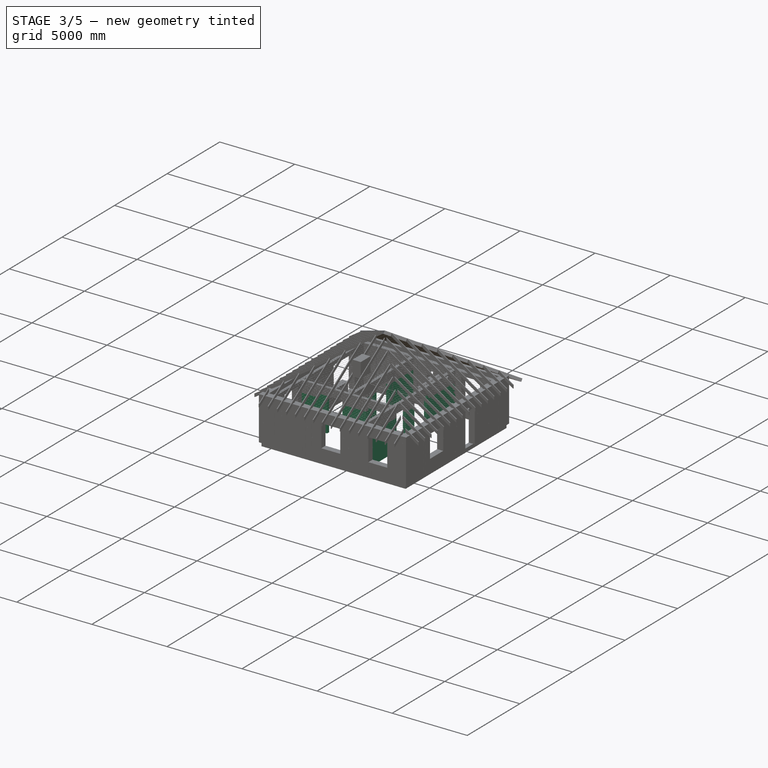
[diagram: stage 3 of 5 — iso view after this stage's code; geometry added in this stage tinted green]
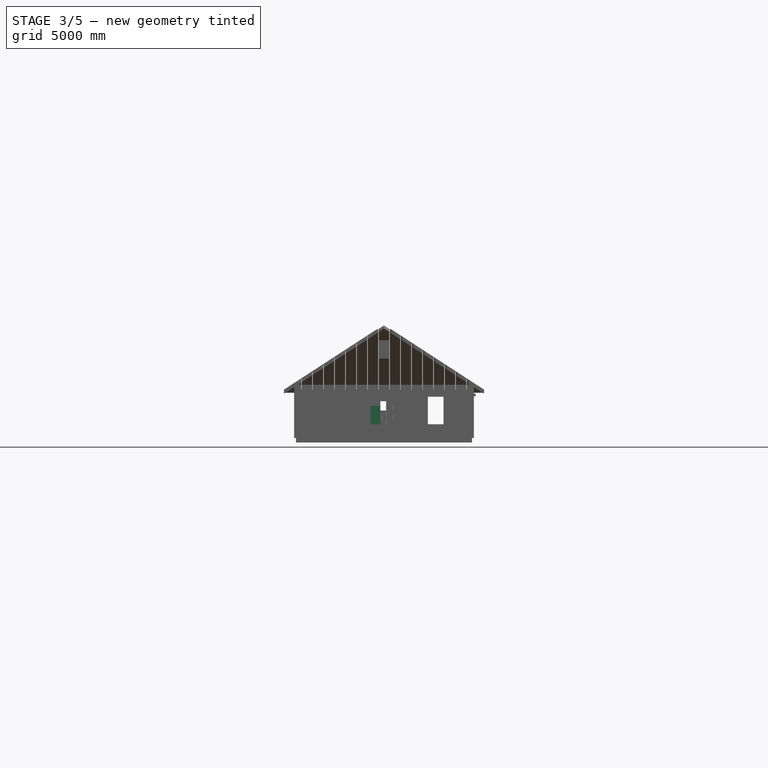
[diagram: stage 3 of 5 — front view after this stage's code; geometry added in this stage tinted green]
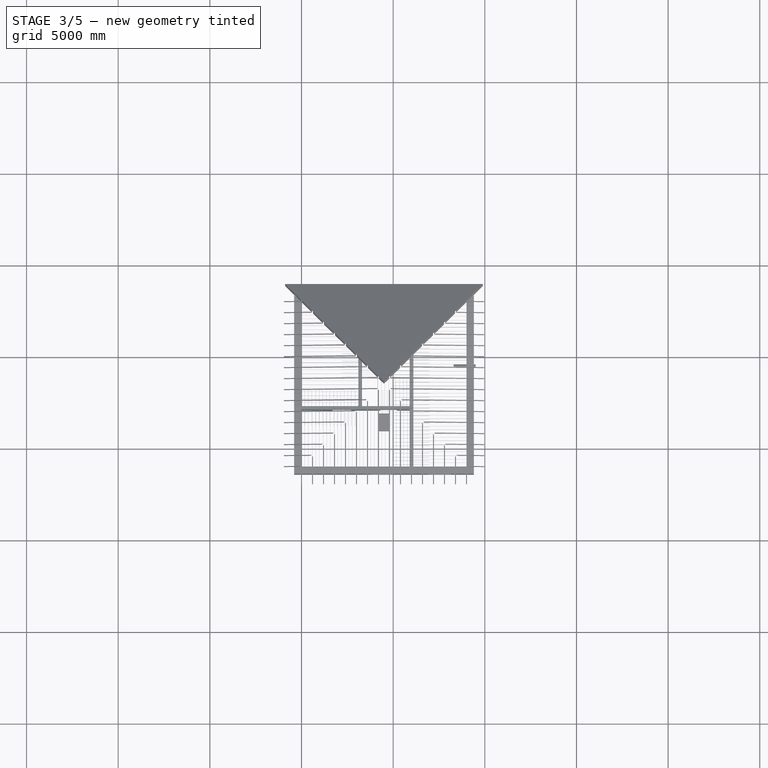
[diagram: stage 3 of 5 — top view after this stage's code; geometry added in this stage tinted green]
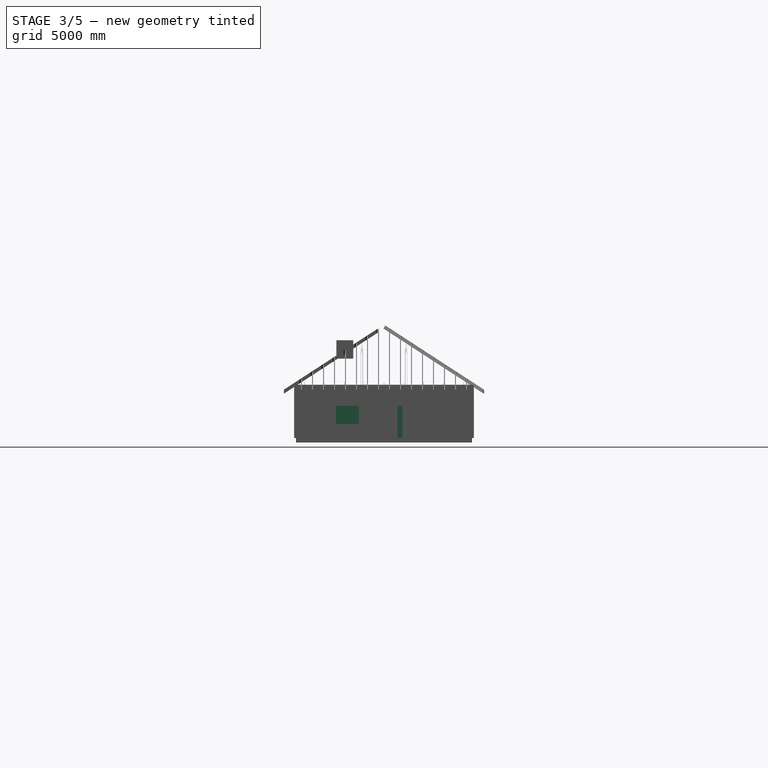
[diagram: stage 3 of 5 — right view after this stage's code; geometry added in this stage tinted green]
FEATURE [Part::Box] Box3323  label="D500 200x625 001"
  AttacherType = Attacher::AttachEngine3D
  Height = 250
  Length = 625
  Placement = pos=(438.34,-2900,-180) rot=(0,0,1;0rad)
  Width = 200
FEATURE [Part::FeaturePython] Array151  # Draft array (typed FeaturePython)
  Angle = 360
  ArrayType = 0
  Axis = (0,0,1)
  Base = -> Box3323
  Center = (0,0,0)
  Fuse = false
  IntervalAxis = (0,0,0)
  IntervalX = (626.66,0,0)
  IntervalY = (0,1,0)
  IntervalZ = (0,0,1)
  NumberPolar = 1
  NumberX = 2
  NumberY = 1
  NumberZ = 1
FEATURE [Part::Box] Box3325  label="D500 200x625 014"
  AttacherType = Attacher::AttachEngine3D
  Height = 250
  Length = 625
  Placement = pos=(6100,2375,-180) rot=(0,0,1;1.5708rad)
  Width = 200
FEATURE [Part::FeaturePython] Array149  # Draft array (typed FeaturePython)
  Angle = 360
  ArrayType = 0
  Axis = (0,0,1)
  Base = -> Box3325
  Center = (0,0,0)
  Fuse = false
  IntervalAxis = (0,0,0)
  IntervalX = (1,0,0)
  IntervalY = (0,-626.66,0)
  IntervalZ = (0,0,1)
  NumberPolar = 1
  NumberX = 1
  NumberY = 4
  NumberZ = 1
FEATURE [Part::Box] Box3327  label="D500 200 добор 012"
  AttacherType = Attacher::AttachEngine3D
  Height = 250
  Length = 421.68
  Placement = pos=(3100,1121.68,-180) rot=(0,0,-1;1.5708rad)
  Width = 200
FEATURE [Part::Box] Box3329  label="D500 200 добор 013"
  AttacherType = Attacher::AttachEngine3D
  Height = 250
  Length = 75
  Placement = pos=(5825,-2900,-180) rot=(0,0,-1;0rad)
  Width = 200
FEATURE [Part::Box] Box3330  label="D500 200x625 015"
  AttacherType = Attacher::AttachEngine3D
  Height = 250
  Length = 625
  Placement = pos=(3300,-2700,-180) rot=(0,0,1;1.5708rad)
  Width = 200
FEATURE [Part::FeaturePython] Array152  # Draft array (typed FeaturePython)
  Angle = 360
  ArrayType = 0
  Axis = (0,0,1)
  Base = -> Box3330
  Center = (0,0,0)
  Fuse = false
  IntervalAxis = (0,0,0)
  IntervalX = (1,0,0)
  IntervalY = (0,626.66,0)
  IntervalZ = (0,0,1)
  NumberPolar = 1
  NumberX = 1
  NumberY = 3
  NumberZ = 1
FEATURE [Part::Box] Box3331  label="D500 200x625 016"
  AttacherType = Attacher::AttachEngine3D
  Height = 250
  Length = 625
  Placement = pos=(3300,2375,-180) rot=(0,0,1;1.5708rad)
  Width = 200
FEATURE [Part::FeaturePython] Array153  # Draft array (typed FeaturePython)
  Angle = 360
  ArrayType = 0
  Axis = (0,0,1)
  Base = -> Box3331
  Center = (0,0,0)
  Fuse = false
  IntervalAxis = (0,0,0)
  IntervalX = (1,0,0)
  IntervalY = (0,-626.66,0)
  IntervalZ = (0,0,1)
  NumberPolar = 1
  NumberX = 1
  NumberY = 3
  NumberZ = 1
FEATURE [Part::Box] Box3332  label="D500 200 добор 014"
  AttacherType = Attacher::AttachEngine3D
  Height = 250
  Length = 321.68
  Placement = pos=(3100,-500,-180) rot=(0,0,-1;1.5708rad)
  Width = 200
FEATURE [Part::Box] Box3333  label="D500 200 добор 015"
  AttacherType = Attacher::AttachEngine3D
  Height = 250
  Length = 195.02
  Placement = pos=(5900,495.02,-180) rot=(0,0,-1;1.5708rad)
  Width = 200
FEATURE [Part::Box] Box3334  label="D500 200x625 017"
  AttacherType = Attacher::AttachEngine3D
  Height = 250
  Length = 625
  Placement = pos=(6100,-1525,-180) rot=(0,0,1;1.5708rad)
  Width = 200
FEATURE [Part::FeaturePython] Array154  # Draft array (typed FeaturePython)
  Angle = 360
  ArrayType = 0
  Axis = (0,0,1)
  Base = -> Box3334
  Center = (0,0,0)
  Fuse = false
  IntervalAxis = (0,0,0)
  IntervalX = (1,0,0)
  IntervalY = (0,-626.66,0)
  IntervalZ = (0,0,1)
  NumberPolar = 1
  NumberX = 1
  NumberY = 1
  NumberZ = 1
FEATURE [Part::Box] Box3335  label="D500 200x625 018"
  AttacherType = Attacher::AttachEngine3D
  Height = 250
  Length = 625
  Placement = pos=(6100,-3225,-180) rot=(0,0,1;1.5708rad)
  Width = 200
FEATURE [Part::FeaturePython] Array155  # Draft array (typed FeaturePython)
  Angle = 360
  ArrayType = 0
  Axis = (0,0,1)
  Base = -> Box3335
  Center = (0,0,0)
  Fuse = false
  IntervalAxis = (0,0,0)
  IntervalX = (1,0,0)
  IntervalY = (0,-626.66,0)
  IntervalZ = (0,0,1)
  NumberPolar = 1
  NumberX = 1
  NumberY = 5
  NumberZ = 1
FEATURE [Part::Box] Box3336  label="D500 200x625 019"
  AttacherType = Attacher::AttachEngine3D
  Height = 250
  Length = 625
  Placement = pos=(5200,-2900,-180) rot=(0,0,1;0rad)
  Width = 200
FEATURE [Part::FeaturePython] Array156  # Draft array (typed FeaturePython)
  Angle = 360
  ArrayType = 0
  Axis = (0,0,1)
  Base = -> Box3336
  Center = (0,0,0)
  Fuse = false
  IntervalAxis = (0,0,0)
  IntervalX = (626.66,0,0)
  IntervalY = (0,1,0)
  IntervalZ = (0,0,1)
  NumberPolar = 1
  NumberX = 1
  NumberY = 1
  NumberZ = 1
FEATURE [Part::Box] Box3337  label="D500 200x625 020"
  AttacherType = Attacher::AttachEngine3D
  Height = 250
  Length = 625
  Placement = pos=(3675,-2900,-180) rot=(0,0,1;0rad)
  Width = 200
FEATURE [Part::FeaturePython] Array157  # Draft array (typed FeaturePython)
  Angle = 360
  ArrayType = 0
  Axis = (0,0,1)
  Base = -> Box3337
  Center = (0,0,0)
  Fuse = false
  IntervalAxis = (0,0,0)
  IntervalX = (-626.66,0,0)
  IntervalY = (0,1,0)
  IntervalZ = (0,0,1)
  NumberPolar = 1
  NumberX = 2
  NumberY = 1
  NumberZ = 1
FEATURE [Part::Box] Box3338  label="D500 200 добор 016"
  AttacherType = Attacher::AttachEngine3D
  Height = 250
  Length = 175
  Placement = pos=(5900,-1525,-180) rot=(0,0,-1;1.5708rad)
  Width = 200
FEATURE [Part::Box] Box3339  label="D500 200 добор 017"
  AttacherType = Attacher::AttachEngine3D
  Height = 250
  Length = 268.36
  Placement = pos=(5900,-5731.64,-180) rot=(0,0,-1;1.5708rad)
  Width = 200
FEATURE [Part::Box] Box3340  label="D500 200 добор 018"
  AttacherType = Attacher::AttachEngine3D
  Height = 250
  Length = 438.34
  Placement = pos=(-6.821e-13,-2900,-180) rot=(0,0,-1;0rad)
  Width = 200
FEATURE [Part::Box] Box3341  label="D500 200 добор 019"
  AttacherType = Attacher::AttachEngine3D
  Height = 250
  Length = 338.34
  Placement = pos=(3048.34,-2700,-180) rot=(0,0,1;3.14159rad)
  Width = 200
FEATURE [Part::Box] Box3342  label="D500 200x625 021"
  AttacherType = Attacher::AttachEngine3D
  Height = 250
  Length = 625
  Placement = pos=(6100,-6000,70) rot=(0,0,1;1.5708rad)
  Width = 200
FEATURE [Part::Box] Box3343  label="D500 200x625 022"
  AttacherType = Attacher::AttachEngine3D
  Height = 250
  Length = 625
  Placement = pos=(6100,300,70) rot=(0,0,1;1.5708rad)
  Width = 200
FEATURE [Part::Box] Box3344  label="D500 200 добор 020"
  AttacherType = Attacher::AttachEngine3D
  Height = 250
  Length = 421.68
  Placement = pos=(3100,3000,70) rot=(0,0,-1;1.5708rad)
  Width = 200
FEATURE [Part::Box] Box3345  label="D500 200x625 023"
  AttacherType = Attacher::AttachEngine3D
  Height = 250
  Length = 625
  Placement = pos=(626.66,-2900,70) rot=(0,0,1;0rad)
  Width = 200
FEATURE [Part::FeaturePython] Array159  # Draft array (typed FeaturePython)
  Angle = 360
  ArrayType = 0
  Axis = (0,0,1)
  Base = -> Box3345
  Center = (0,0,0)
  Fuse = false
  IntervalAxis = (0,0,0)
  IntervalX = (-626.66,0,0)
  IntervalY = (0,1,0)
  IntervalZ = (0,0,1)
  NumberPolar = 1
  NumberX = 2
  NumberY = 1
  NumberZ = 1
FEATURE [Part::FeaturePython] Array160  # Draft array (typed FeaturePython)
  Angle = 360
  ArrayType = 0
  Axis = (0,0,1)
  Base = -> Box3343
  Center = (0,0,0)
  Fuse = false
  IntervalAxis = (0,0,0)
  IntervalX = (1,0,0)
  IntervalY = (0,626.66,0)
  IntervalZ = (0,0,1)
  NumberPolar = 1
  NumberX = 1
  NumberY = 4
  NumberZ = 1
FEATURE [Part::Box] Box3346  label="D500 200x625 024"
  AttacherType = Attacher::AttachEngine3D
  Height = 250
  Length = 625
  Placement = pos=(5475,-2900,70) rot=(0,0,1;0rad)
  Width = 200
FEATURE [Part::FeaturePython] Array158  # Draft array (typed FeaturePython)
  Angle = 360
  ArrayType = 0
  Axis = (0,0,1)
  Base = -> Box3346
  Center = (0,0,0)
  Fuse = false
  IntervalAxis = (0,0,0)
  IntervalX = (-626.66,0,0)
  IntervalY = (0,1,0)
  IntervalZ = (0,0,1)
  NumberPolar = 1
  NumberX = 1
  NumberY = 1
  NumberZ = 1
FEATURE [Part::Box] Box3347  label="D500 200x625 025"
  AttacherType = Attacher::AttachEngine3D
  Height = 250
  Length = 625
  Placement = pos=(3300,-2900,70) rot=(0,0,1;1.5708rad)
  Width = 200
FEATURE [Part::Box] Box3348  label="D500 200 добор 021"
  AttacherType = Attacher::AttachEngine3D
  Height = 250
  Length = 275
  Placement = pos=(5200,-2900,70) rot=(0,0,-1;0rad)
  Width = 200
FEATURE [Part::FeaturePython] Array161  # Draft array (typed FeaturePython)
  Angle = 360
  ArrayType = 0
  Axis = (0,0,1)
  Base = -> Box3347
  Center = (0,0,0)
  Fuse = false
  IntervalAxis = (0,0,0)
  IntervalX = (1,0,0)
  IntervalY = (0,626.66,0)
  IntervalZ = (0,0,1)
  NumberPolar = 1
  NumberX = 1
  NumberY = 3
  NumberZ = 1
FEATURE [Part::Box] Box3349  label="D500 200 добор 022"
  AttacherType = Attacher::AttachEngine3D
  Height = 250
  Length = 175
  Placement = pos=(5900,-900,70) rot=(0,0,-1;1.5708rad)
  Width = 200
FEATURE [Part::Box] Box3350  label="D500 200x625 026"
  AttacherType = Attacher::AttachEngine3D
  Height = 250
  Length = 625
  Placement = pos=(6100,-1700,70) rot=(0,0,1;1.5708rad)
  Width = 200
FEATURE [Part::Box] Box3351  label="D500 200x625 027"
  AttacherType = Attacher::AttachEngine3D
  Height = 250
  Length = 625
  Placement = pos=(3300,700,70) rot=(0,0,1;1.5708rad)
  Width = 200
FEATURE [Part::FeaturePython] Array162  # Draft array (typed FeaturePython)
  Angle = 360
  ArrayType = 0
  Axis = (0,0,1)
  Base = -> Box3350
  Center = (0,0,0)
  Fuse = false
  IntervalAxis = (0,0,0)
  IntervalX = (1,0,0)
  IntervalY = (0,626.66,0)
  IntervalZ = (0,0,1)
  NumberPolar = 1
  NumberX = 1
  NumberY = 1
  NumberZ = 1
FEATURE [Part::Box] Box3352  label="D500 200 добор 023"
  AttacherType = Attacher::AttachEngine3D
  Height = 250
  Length = 195.02
  Placement = pos=(5900,3000,70) rot=(0,0,-1;1.5708rad)
  Width = 200
FEATURE [Part::Box] Box3353  label="D500 200 добор 024"
  AttacherType = Attacher::AttachEngine3D
  Height = 250
  Length = 595.02
  Placement = pos=(6100,-3495.02,70) rot=(0,0,1;1.5708rad)
  Width = 200
FEATURE [Part::FeaturePython] Array164  # Draft array (typed FeaturePython)
  Angle = 360
  ArrayType = 0
  Axis = (0,0,1)
  Base = -> Box3342
  Center = (0,0,0)
  Fuse = false
  IntervalAxis = (0,0,0)
  IntervalX = (1,0,0)
  IntervalY = (0,626.66,0)
  IntervalZ = (0,0,1)
  NumberPolar = 1
  NumberX = 1
  NumberY = 4
  NumberZ = 1
FEATURE [Part::Box] Box3354  label="D500 200 добор 025"
  AttacherType = Attacher::AttachEngine3D
  Height = 250
  Length = 390
  Placement = pos=(3100,-2700,70) rot=(0,0,1;3.14159rad)
  Width = 200
FEATURE [Part::Box] Box3355  label="D500 200 добор 026"
  AttacherType = Attacher::AttachEngine3D
  Height = 250
  Length = 521.68
  Placement = pos=(3300,-1021.68,70) rot=(0,0,1;1.5708rad)
  Width = 200
FEATURE [Part::Box] Box3356  label="D500 200 добор 027"
  AttacherType = Attacher::AttachEngine3D
  Height = 250
  Length = 438.34
  Placement = pos=(1251.66,-2900,70) rot=(0,0,-1;0rad)
  Width = 200
FEATURE [Part::Box] Box3357  label="D500 200x625 028"
  AttacherType = Attacher::AttachEngine3D
  Height = 250
  Length = 625
  Placement = pos=(3300,-2900,70) rot=(0,0,1;0rad)
  Width = 200
FEATURE [Part::FeaturePython] Array163  # Draft array (typed FeaturePython)
  Angle = 360
  ArrayType = 0
  Axis = (0,0,1)
  Base = -> Box3357
  Center = (0,0,0)
  Fuse = false
  IntervalAxis = (0,0,0)
  IntervalX = (626.66,0,0)
  IntervalY = (0,1,0)
  IntervalZ = (0,0,1)
  NumberPolar = 1
  NumberX = 1
  NumberY = 1
  NumberZ = 1
FEATURE [Part::FeaturePython] Array165  # Draft array (typed FeaturePython)
  Angle = 360
  ArrayType = 0
  Axis = (0,0,1)
  Base = -> Box3351
  Center = (0,0,0)
  Fuse = false
  IntervalAxis = (0,0,0)
  IntervalX = (1,0,0)
  IntervalY = (0,626.66,0)
  IntervalZ = (0,0,1)
  NumberPolar = 1
  NumberX = 1
  NumberY = 3
  NumberZ = 1
FEATURE [Part::Box] Box3358  label="D500 200 добор 028"
  AttacherType = Attacher::AttachEngine3D
  Height = 250
  Length = 100
  Placement = pos=(6100,-2700,70) rot=(0,0,1;1.5708rad)
  Width = 200
FEATURE [Part::Box] Box3359  label="D500 200 добор 029"
  AttacherType = Attacher::AttachEngine3D
  Height = 250
  Length = 375
  Placement = pos=(3925,-2900,70) rot=(0,0,1;0rad)
  Width = 200
FEATURE [Part::Box] Box3360  label="D500 200x625 029"
  AttacherType = Attacher::AttachEngine3D
  Height = 250
  Length = 625
  Placement = pos=(6100,-3225,320) rot=(0,0,1;1.5708rad)
  Width = 200
FEATURE [Part::Box] Box3361  label="D500 200x625 030"
  AttacherType = Attacher::AttachEngine3D
  Height = 250
  Length = 625
  Placement = pos=(6100,2375,320) rot=(0,0,1;1.5708rad)
  Width = 200
FEATURE [Part::Box] Box3362  label="D500 200 добор 030"
  AttacherType = Attacher::AttachEngine3D
  Height = 250
  Length = 100
  Placement = pos=(6100,-2700,570) rot=(0,0,1;1.5708rad)
  Width = 200
FEATURE [Part::Box] Box3363  label="D500 200 добор 031"
  AttacherType = Attacher::AttachEngine3D
  Height = 250
  Length = 275
  Placement = pos=(5200,-2900,570) rot=(0,0,-1;0rad)
  Width = 200
FEATURE [Part::Box] Box3364  label="D500 200 добор 032"
  AttacherType = Attacher::AttachEngine3D
  Height = 250
  Length = 421.68
  Placement = pos=(3100,3000,570) rot=(0,0,-1;1.5708rad)
  Width = 200
FEATURE [Part::Box] Box3365  label="D500 200 добор 033"
  AttacherType = Attacher::AttachEngine3D
  Height = 250
  Length = 438.34
  Placement = pos=(1251.66,-2900,570) rot=(0,0,1;0rad)
  Width = 200
FEATURE [Part::Box] Box3366  label="D500 200 добор 034"
  AttacherType = Attacher::AttachEngine3D
  Height = 250
  Length = 421.68
  Placement = pos=(3100,1121.68,320) rot=(0,0,-1;1.5708rad)
  Width = 200
FEATURE [Part::Box] Box3367  label="D500 200 добор 035"
  AttacherType = Attacher::AttachEngine3D
  Height = 250
  Length = 521.68
  Placement = pos=(3300,-1021.68,570) rot=(0,0,1;1.5708rad)
  Width = 200
FEATURE [Part::Box] Box3368  label="D500 200x625 031"
  AttacherType = Attacher::AttachEngine3D
  Height = 250
  Length = 625
  Placement = pos=(438.34,-2900,320) rot=(0,0,1;0rad)
  Width = 200
FEATURE [Part::FeaturePython] Array170  # Draft array (typed FeaturePython)
  Angle = 360
  ArrayType = 0
  Axis = (0,0,1)
  Base = -> Box3368
  Center = (0,0,0)
  Fuse = false
  IntervalAxis = (0,0,0)
  IntervalX = (626.66,0,0)
  IntervalY = (0,1,0)
  IntervalZ = (0,0,1)
  NumberPolar = 1
  NumberX = 2
  NumberY = 1
  NumberZ = 1
FEATURE [Part::FeaturePython] Array172  # Draft array (typed FeaturePython)
  Angle = 360
  ArrayType = 0
  Axis = (0,0,1)
  Base = -> Box3361
  Center = (0,0,0)
  Fuse = false
  IntervalAxis = (0,0,0)
  IntervalX = (1,0,0)
  IntervalY = (0,-626.66,0)
  IntervalZ = (0,0,1)
  NumberPolar = 1
  NumberX = 1
  NumberY = 4
  NumberZ = 1
FEATURE [Part::Box] Box3369  label="D500 200x625 032"
  AttacherType = Attacher::AttachEngine3D
  Height = 250
  Length = 625
  Placement = pos=(3300,700,570) rot=(0,0,1;1.5708rad)
  Width = 200
FEATURE [Part::FeaturePython] Array168  # Draft array (typed FeaturePython)
  Angle = 360
  ArrayType = 0
  Axis = (0,0,1)
  Base = -> Box3369
  Center = (0,0,0)
  Fuse = false
  IntervalAxis = (0,0,0)
  IntervalX = (1,0,0)
  IntervalY = (0,626.66,0)
  IntervalZ = (0,0,1)
  NumberPolar = 1
  NumberX = 1
  NumberY = 3
  NumberZ = 1
FEATURE [Part::Box] Box3370  label="D500 200 добор 036"
  AttacherType = Attacher::AttachEngine3D
  Height = 250
  Length = 595.02
  Placement = pos=(6100,-3495.02,570) rot=(0,0,1;1.5708rad)
  Width = 200
FEATURE [Part::Box] Box3371  label="D500 200x625 033"
  AttacherType = Attacher::AttachEngine3D
  Height = 250
  Length = 625
  Placement = pos=(3300,-2900,570) rot=(0,0,1;1.5708rad)
  Width = 200
FEATURE [Part::Box] Box3372  label="D500 200x625 034"
  AttacherType = Attacher::AttachEngine3D
  Height = 250
  Length = 625
  Placement = pos=(5200,-2900,320) rot=(0,0,1;0rad)
  Width = 200
FEATURE [Part::FeaturePython] Array167  # Draft array (typed FeaturePython)
  Angle = 360
  ArrayType = 0
  Axis = (0,0,1)
  Base = -> Box3372
  Center = (0,0,0)
  Fuse = false
  IntervalAxis = (0,0,0)
  IntervalX = (626.66,0,0)
  IntervalY = (0,1,0)
  IntervalZ = (0,0,1)
  NumberPolar = 1
  NumberX = 1
  NumberY = 1
  NumberZ = 1
FEATURE [Part::Box] Box3373  label="D500 200x625 035"
  AttacherType = Attacher::AttachEngine3D
  Height = 250
  Length = 625
  Placement = pos=(3300,-2700,320) rot=(0,0,1;1.5708rad)
  Width = 200
FEATURE [Part::Box] Box3374  label="D500 200 добор 037"
  AttacherType = Attacher::AttachEngine3D
  Height = 250
  Length = 75
  Placement = pos=(5825,-2900,320) rot=(0,0,-1;0rad)
  Width = 200
FEATURE [Part::FeaturePython] Array174  # Draft array (typed FeaturePython)
  Angle = 360
  ArrayType = 0
  Axis = (0,0,1)
  Base = -> Box3373
  Center = (0,0,0)
  Fuse = false
  IntervalAxis = (0,0,0)
  IntervalX = (1,0,0)
  IntervalY = (0,626.66,0)
  IntervalZ = (0,0,1)
  NumberPolar = 1
  NumberX = 1
  NumberY = 3
  NumberZ = 1
FEATURE [Part::Box] Box3375  label="D500 200 добор 038"
  AttacherType = Attacher::AttachEngine3D
  Height = 250
  Length = 195.02
  Placement = pos=(5900,3000,570) rot=(0,0,-1;1.5708rad)
  Width = 200
FEATURE [Part::Box] Box3376  label="D500 200 добор 039"
  AttacherType = Attacher::AttachEngine3D
  Height = 250
  Length = 175
  Placement = pos=(5900,-1525,320) rot=(0,0,-1;1.5708rad)
  Width = 200
FEATURE [Part::Box] Box3377  label="D500 200x625 036"
  AttacherType = Attacher::AttachEngine3D
  Height = 250
  Length = 625
  Placement = pos=(6100,-1525,320) rot=(0,0,1;1.5708rad)
  Width = 200
FEATURE [Part::Box] Box3378  label="D500 200x625 037"
  AttacherType = Attacher::AttachEngine3D
  Height = 250
  Length = 625
  Placement = pos=(5475,-2900,570) rot=(0,0,1;0rad)
  Width = 200
FEATURE [Part::FeaturePython] Array173  # Draft array (typed FeaturePython)
  Angle = 360
  ArrayType = 0
  Axis = (0,0,1)
  Base = -> Box3378
  Center = (0,0,0)
  Fuse = false
  IntervalAxis = (0,0,0)
  IntervalX = (-626.66,0,0)
  IntervalY = (0,1,0)
  IntervalZ = (0,0,1)
  NumberPolar = 1
  NumberX = 1
  NumberY = 1
  NumberZ = 1
FEATURE [Part::Box] Box3379  label="D500 200x625 038"
  AttacherType = Attacher::AttachEngine3D
  Height = 250
  Length = 625
  Placement = pos=(3300,-2900,570) rot=(0,0,1;0rad)
  Width = 200
FEATURE [Part::FeaturePython] Array171  # Draft array (typed FeaturePython)
  Angle = 360
  ArrayType = 0
  Axis = (0,0,1)
  Base = -> Box3379
  Center = (0,0,0)
  Fuse = false
  IntervalAxis = (0,0,0)
  IntervalX = (626.66,0,0)
  IntervalY = (0,1,0)
  IntervalZ = (0,0,1)
  NumberPolar = 1
  NumberX = 1
  NumberY = 1
  NumberZ = 1
FEATURE [Part::FeaturePython] Array175  # Draft array (typed FeaturePython)
  Angle = 360
  ArrayType = 0
  Axis = (0,0,1)
  Base = -> Box3371
  Center = (0,0,0)
  Fuse = false
  IntervalAxis = (0,0,0)
  IntervalX = (1,0,0)
  IntervalY = (0,626.66,0)
  IntervalZ = (0,0,1)
  NumberPolar = 1
  NumberX = 1
  NumberY = 3
  NumberZ = 1
FEATURE [Part::Box] Box3380  label="D500 200x625 039"
  AttacherType = Attacher::AttachEngine3D
  Height = 250
  Length = 625
  Placement = pos=(3300,2375,320) rot=(0,0,1;1.5708rad)
  Width = 200
FEATURE [Part::Box] Box3381  label="D500 200x625 040"
  AttacherType = Attacher::AttachEngine3D
  Height = 250
  Length = 625
  Placement = pos=(6100,300,570) rot=(0,0,1;1.5708rad)
  Width = 200
FEATURE [Part::FeaturePython] Array176  # Draft array (typed FeaturePython)
  Angle = 360
  ArrayType = 0
  Axis = (0,0,1)
  Base = -> Box3377
  Center = (0,0,0)
  Fuse = false
  IntervalAxis = (0,0,0)
  IntervalX = (1,0,0)
  IntervalY = (0,-626.66,0)
  IntervalZ = (0,0,1)
  NumberPolar = 1
  NumberX = 1
  NumberY = 1
  NumberZ = 1
FEATURE [Part::Box] Box3382  label="D500 200 добор 040"
  AttacherType = Attacher::AttachEngine3D
  Height = 250
  Length = 195.02
  Placement = pos=(5900,495.02,320) rot=(0,0,-1;1.5708rad)
  Width = 200
FEATURE [Part::Box] Box3383  label="D500 200 добор 041"
  AttacherType = Attacher::AttachEngine3D
  Height = 250
  Length = 268.36
  Placement = pos=(5900,-5731.64,320) rot=(0,0,-1;1.5708rad)
  Width = 200
FEATURE [Part::FeaturePython] Array178  # Draft array (typed FeaturePython)
  Angle = 360
  ArrayType = 0
  Axis = (0,0,1)
  Base = -> Box3360
  Center = (0,0,0)
  Fuse = false
  IntervalAxis = (0,0,0)
  IntervalX = (1,0,0)
  IntervalY = (0,-626.66,0)
  IntervalZ = (0,0,1)
  NumberPolar = 1
  NumberX = 1
  NumberY = 5
  NumberZ = 1
FEATURE [Part::Box] Box3384  label="D500 200x625 041"
  AttacherType = Attacher::AttachEngine3D
  Height = 250
  Length = 625
  Placement = pos=(6100,-6000,570) rot=(0,0,1;1.5708rad)
  Width = 200
FEATURE [Part::FeaturePython] Array169  # Draft array (typed FeaturePython)
  Angle = 360
  ArrayType = 0
  Axis = (0,0,1)
  Base = -> Box3384
  Center = (0,0,0)
  Fuse = false
  IntervalAxis = (0,0,0)
  IntervalX = (1,0,0)
  IntervalY = (0,626.66,0)
  IntervalZ = (0,0,1)
  NumberPolar = 1
  NumberX = 1
  NumberY = 4
  NumberZ = 1
FEATURE [Part::Box] Box3385  label="D500 200 добор 042"
  AttacherType = Attacher::AttachEngine3D
  Height = 250
  Length = 338.34
  Placement = pos=(3048.34,-2700,320) rot=(0,0,1;3.14159rad)
  Width = 200
FEATURE [Part::Box] Box3386  label="D500 200 добор 043"
  AttacherType = Attacher::AttachEngine3D
  Height = 250
  Length = 321.68
  Placement = pos=(3100,-500,320) rot=(0,0,-1;1.5708rad)
  Width = 200
FEATURE [Part::Box] Box3387  label="D500 200x625 042"
  AttacherType = Attacher::AttachEngine3D
  Height = 250
  Length = 625
  Placement = pos=(626.66,-2900,570) rot=(0,0,1;0rad)
  Width = 200
FEATURE [Part::FeaturePython] Array166  # Draft array (typed FeaturePython)
  Angle = 360
  ArrayType = 0
  Axis = (0,0,1)
  Base = -> Box3387
  Center = (0,0,0)
  Fuse = false
  IntervalAxis = (0,0,0)
  IntervalX = (-626.66,0,0)
  IntervalY = (0,1,0)
  IntervalZ = (0,0,1)
  NumberPolar = 1
  NumberX = 2
  NumberY = 1
  NumberZ = 1
FEATURE [Part::Box] Box3388  label="D500 200 добор 044"
  AttacherType = Attacher::AttachEngine3D
  Height = 250
  Length = 175
  Placement = pos=(5900,-900,570) rot=(0,0,-1;1.5708rad)
  Width = 200
FEATURE [Part::Box] Box3389  label="D500 200x625 043"
  AttacherType = Attacher::AttachEngine3D
  Height = 250
  Length = 625
  Placement = pos=(6100,-1700,570) rot=(0,0,1;1.5708rad)
  Width = 200
FEATURE [Part::FeaturePython] Array179  # Draft array (typed FeaturePython)
  Angle = 360
  ArrayType = 0
  Axis = (0,0,1)
  Base = -> Box3389
  Center = (0,0,0)
  Fuse = false
  IntervalAxis = (0,0,0)
  IntervalX = (1,0,0)
  IntervalY = (0,626.66,0)
  IntervalZ = (0,0,1)
  NumberPolar = 1
  NumberX = 1
  NumberY = 1
  NumberZ = 1
FEATURE [Part::Box] Box3390  label="D500 200 добор 045"
  AttacherType = Attacher::AttachEngine3D
  Height = 250
  Length = 438.34
  Placement = pos=(-6.821e-13,-2900,320) rot=(0,0,-1;0rad)
  Width = 200
FEATURE [Part::Box] Box3391  label="D500 200x625 044"
  AttacherType = Attacher::AttachEngine3D
  Height = 250
  Length = 625
  Placement = pos=(3675,-2900,320) rot=(0,0,1;0rad)
  Width = 200
FEATURE [Part::FeaturePython] Array177  # Draft array (typed FeaturePython)
  Angle = 360
  ArrayType = 0
  Axis = (0,0,1)
  Base = -> Box3391
  Center = (0,0,0)
  Fuse = false
  IntervalAxis = (0,0,0)
  IntervalX = (-626.66,0,0)
  IntervalY = (0,1,0)
  IntervalZ = (0,0,1)
  NumberPolar = 1
  NumberX = 2
  NumberY = 1
  NumberZ = 1
FEATURE [Part::Box] Box3392  label="D500 200 добор 046"
  AttacherType = Attacher::AttachEngine3D
  Height = 250
  Length = 390
  Placement = pos=(3100,-2700,570) rot=(0,0,1;3.14159rad)
  Width = 200
FEATURE [Part::FeaturePython] Array180  # Draft array (typed FeaturePython)
  Angle = 360
  ArrayType = 0
  Axis = (0,0,1)
  Base = -> Box3381
  Center = (0,0,0)
  Fuse = false
  IntervalAxis = (0,0,0)
  IntervalX = (1,0,0)
  IntervalY = (0,626.66,0)
  IntervalZ = (0,0,1)
  NumberPolar = 1
  NumberX = 1
  NumberY = 4
  NumberZ = 1
FEATURE [Part::FeaturePython] Array181  # Draft array (typed FeaturePython)
  Angle = 360
  ArrayType = 0
  Axis = (0,0,1)
  Base = -> Box3380
  Center = (0,0,0)
  Fuse = false
  IntervalAxis = (0,0,0)
  IntervalX = (1,0,0)
  IntervalY = (0,-626.66,0)
  IntervalZ = (0,0,1)
  NumberPolar = 1
  NumberX = 1
  NumberY = 3
  NumberZ = 1
FEATURE [Part::Box] Box3393  label="D500 200 добор 047"
  AttacherType = Attacher::AttachEngine3D
  Height = 250
  Length = 375
  Placement = pos=(3925,-2900,570) rot=(0,0,1;0rad)
  Width = 200
FEATURE [Part::Box] Box3394  label="D500 200x625 045"
  AttacherType = Attacher::AttachEngine3D
  Height = 250
  Length = 625
  Placement = pos=(6100,-1525,820) rot=(0,0,1;1.5708rad)
  Width = 200
FEATURE [Part::Box] Box3395  label="D500 200 добор 048"
  AttacherType = Attacher::AttachEngine3D
  Height = 250
  Length = 275
  Placement = pos=(5200,-2900,1070) rot=(0,0,-1;0rad)
  Width = 200
FEATURE [Part::Box] Box3396  label="D500 200x625 046"
  AttacherType = Attacher::AttachEngine3D
  Height = 250
  Length = 625
  Placement = pos=(5475,-2900,1070) rot=(0,0,1;0rad)
  Width = 200
FEATURE [Part::Box] Box3397  label="D500 200x625 047"
  AttacherType = Attacher::AttachEngine3D
  Height = 250
  Length = 625
  Placement = pos=(3675,-2900,820) rot=(0,0,1;0rad)
  Width = 200
FEATURE [Part::Box] Box3398  label="D500 200 добор 049"
  AttacherType = Attacher::AttachEngine3D
  Height = 250
  Length = 438.34
  Placement = pos=(-6.821e-13,-2900,820) rot=(0,0,-1;0rad)
  Width = 200
FEATURE [Part::Box] Box3399  label="D500 200x625 048"
  AttacherType = Attacher::AttachEngine3D
  Height = 250
  Length = 625
  Placement = pos=(3300,-2900,1070) rot=(0,0,1;0rad)
  Width = 200
FEATURE [Part::Box] Box3400  label="D500 200x625 049"
  AttacherType = Attacher::AttachEngine3D
  Height = 250
  Length = 625
  Placement = pos=(6100,-1700,1070) rot=(0,0,1;1.5708rad)
  Width = 200
FEATURE [Part::Box] Box3401  label="D500 200 добор 050"
  AttacherType = Attacher::AttachEngine3D
  Height = 250
  Length = 175
  Placement = pos=(5900,-1525,820) rot=(0,0,-1;1.5708rad)
  Width = 200
FEATURE [Part::Box] Box3402  label="D500 200 добор 051"
  AttacherType = Attacher::AttachEngine3D
  Height = 250
  Length = 75
  Placement = pos=(5825,-2900,820) rot=(0,0,-1;0rad)
  Width = 200
FEATURE [Part::Box] Box3403  label="D500 200 добор 052"
  AttacherType = Attacher::AttachEngine3D
  Height = 250
  Length = 268.36
  Placement = pos=(5900,-5731.64,820) rot=(0,0,-1;1.5708rad)
  Width = 200
FEATURE [Part::Box] Box3404  label="D500 200 добор 053"
  AttacherType = Attacher::AttachEngine3D
  Height = 250
  Length = 521.68
  Placement = pos=(3300,-1021.68,1070) rot=(0,0,1;1.5708rad)
  Width = 200
FEATURE [Part::FeaturePython] Array187  # Draft array (typed FeaturePython)
  Angle = 360
  ArrayType = 0
  Axis = (0,0,1)
  Base = -> Box3396
  Center = (0,0,0)
  Fuse = false
  IntervalAxis = (0,0,0)
  IntervalX = (-626.66,0,0)
  IntervalY = (0,1,0)
  IntervalZ = (0,0,1)
  NumberPolar = 1
  NumberX = 1
  NumberY = 1
  NumberZ = 1
FEATURE [Part::Box] Box3405  label="D500 200 добор 054"
  AttacherType = Attacher::AttachEngine3D
  Height = 250
  Length = 390
  Placement = pos=(3100,-2700,1070) rot=(0,0,1;3.14159rad)
  Width = 200
FEATURE [Part::Box] Box3406  label="D500 200 добор 055"
  AttacherType = Attacher::AttachEngine3D
  Height = 250
  Length = 195.02
  Placement = pos=(5900,3000,1070) rot=(0,0,-1;1.5708rad)
  Width = 200
FEATURE [Part::Box] Box3407  label="D500 200 добор 056"
  AttacherType = Attacher::AttachEngine3D
  Height = 250
  Length = 195.02
  Placement = pos=(5900,495.02,820) rot=(0,0,-1;1.5708rad)
  Width = 200
FEATURE [Part::Box] Box3408  label="D500 200 добор 057"
  AttacherType = Attacher::AttachEngine3D
  Height = 250
  Length = 421.68
  Placement = pos=(3100,1121.68,820) rot=(0,0,-1;1.5708rad)
  Width = 200
FEATURE [Part::Box] Box3409  label="D500 200x625 050"
  AttacherType = Attacher::AttachEngine3D
  Height = 250
  Length = 625
  Placement = pos=(5200,-2900,820) rot=(0,0,1;0rad)
  Width = 200
FEATURE [Part::FeaturePython] Array186  # Draft array (typed FeaturePython)
  Angle = 360
  ArrayType = 0
  Axis = (0,0,1)
  Base = -> Box3409
  Center = (0,0,0)
  Fuse = false
  IntervalAxis = (0,0,0)
  IntervalX = (626.66,0,0)
  IntervalY = (0,1,0)
  IntervalZ = (0,0,1)
  NumberPolar = 1
  NumberX = 1
  NumberY = 1
  NumberZ = 1
FEATURE [Part::FeaturePython] Array189  # Draft array (typed FeaturePython)
  Angle = 360
  ArrayType = 0
  Axis = (0,0,1)
  Base = -> Box3400
  Center = (0,0,0)
  Fuse = false
  IntervalAxis = (0,0,0)
  IntervalX = (1,0,0)
  IntervalY = (0,626.66,0)
  IntervalZ = (0,0,1)
  NumberPolar = 1
  NumberX = 1
  NumberY = 1
  NumberZ = 1
FEATURE [Part::Box] Box3410  label="D500 200x625 051"
  AttacherType = Attacher::AttachEngine3D
  Height = 250
  Length = 625
  Placement = pos=(626.66,-2900,1070) rot=(0,0,1;0rad)
  Width = 200
FEATURE [Part::Box] Box3411  label="D500 200x625 052"
  AttacherType = Attacher::AttachEngine3D
  Height = 250
  Length = 625
  Placement = pos=(6100,-3225,820) rot=(0,0,1;1.5708rad)
  Width = 200
FEATURE [Part::FeaturePython] Array183  # Draft array (typed FeaturePython)
  Angle = 360
  ArrayType = 0
  Axis = (0,0,1)
  Base = -> Box3411
  Center = (0,0,0)
  Fuse = false
  IntervalAxis = (0,0,0)
  IntervalX = (1,0,0)
  IntervalY = (0,-626.66,0)
  IntervalZ = (0,0,1)
  NumberPolar = 1
  NumberX = 1
  NumberY = 5
  NumberZ = 1
FEATURE [Part::Box] Box3412  label="D500 200 добор 058"
  AttacherType = Attacher::AttachEngine3D
  Height = 250
  Length = 175
  Placement = pos=(5900,-900,1070) rot=(0,0,-1;1.5708rad)
  Width = 200
FEATURE [Part::FeaturePython] Array190  # Draft array (typed FeaturePython)
  Angle = 360
  ArrayType = 0
  Axis = (0,0,1)
  Base = -> Box3399
  Center = (0,0,0)
  Fuse = false
  IntervalAxis = (0,0,0)
  IntervalX = (626.66,0,0)
  IntervalY = (0,1,0)
  IntervalZ = (0,0,1)
  NumberPolar = 1
  NumberX = 1
  NumberY = 1
  NumberZ = 1
FEATURE [Part::Box] Box3413  label="D500 200 добор 059"
  AttacherType = Attacher::AttachEngine3D
  Height = 250
  Length = 595.02
  Placement = pos=(6100,-3495.02,1070) rot=(0,0,1;1.5708rad)
  Width = 200
FEATURE [Part::Box] Box3414  label="D500 200 добор 060"
  AttacherType = Attacher::AttachEngine3D
  Height = 250
  Length = 375
  Placement = pos=(3925,-2900,1070) rot=(0,0,1;0rad)
  Width = 200
FEATURE [Part::Box] Box3415  label="D500 200 добор 061"
  AttacherType = Attacher::AttachEngine3D
  Height = 250
  Length = 321.68
  Placement = pos=(3100,-500,820) rot=(0,0,-1;1.5708rad)
  Width = 200
FEATURE [Part::Box] Box3416  label="D500 200 добор 062"
  AttacherType = Attacher::AttachEngine3D
  Height = 250
  Length = 100
  Placement = pos=(6100,-2700,1070) rot=(0,0,1;1.5708rad)
  Width = 200
FEATURE [Part::Box] Box3417  label="D500 200x625 053"
  AttacherType = Attacher::AttachEngine3D
  Height = 250
  Length = 625
  Placement = pos=(6100,2375,820) rot=(0,0,1;1.5708rad)
  Width = 200
FEATURE [Part::Box] Box3418  label="D500 200 добор 063"
  AttacherType = Attacher::AttachEngine3D
  Height = 250
  Length = 421.68
  Placement = pos=(3100,3000,1070) rot=(0,0,-1;1.5708rad)
  Width = 200
FEATURE [Part::FeaturePython] Array193  # Draft array (typed FeaturePython)
  Angle = 360
  ArrayType = 0
  Axis = (0,0,1)
  Base = -> Box3417
  Center = (0,0,0)
  Fuse = false
  IntervalAxis = (0,0,0)
  IntervalX = (1,0,0)
  IntervalY = (0,-626.66,0)
  IntervalZ = (0,0,1)
  NumberPolar = 1
  NumberX = 1
  NumberY = 4
  NumberZ = 1
FEATURE [Part::Box] Box3419  label="D500 200x625 054"
  AttacherType = Attacher::AttachEngine3D
  Height = 250
  Length = 625
  Placement = pos=(6100,300,1070) rot=(0,0,1;1.5708rad)
  Width = 200
FEATURE [Part::Box] Box3420  label="D500 200x625 055"
  AttacherType = Attacher::AttachEngine3D
  Height = 250
  Length = 625
  Placement = pos=(3300,700,1070) rot=(0,0,1;1.5708rad)
  Width = 200
FEATURE [Part::FeaturePython] Array182  # Draft array (typed FeaturePython)
  Angle = 360
  ArrayType = 0
  Axis = (0,0,1)
  Base = -> Box3420
  Center = (0,0,0)
  Fuse = false
  IntervalAxis = (0,0,0)
  IntervalX = (1,0,0)
  IntervalY = (0,626.66,0)
  IntervalZ = (0,0,1)
  NumberPolar = 1
  NumberX = 1
  NumberY = 3
  NumberZ = 1
FEATURE [Part::Box] Box3421  label="D500 200x625 056"
  AttacherType = Attacher::AttachEngine3D
  Height = 250
  Length = 625
  Placement = pos=(3300,-2900,1070) rot=(0,0,1;1.5708rad)
  Width = 200
FEATURE [Part::FeaturePython] Array188  # Draft array (typed FeaturePython)
  Angle = 360
  ArrayType = 0
  Axis = (0,0,1)
  Base = -> Box3421
  Center = (0,0,0)
  Fuse = false
  IntervalAxis = (0,0,0)
  IntervalX = (1,0,0)
  IntervalY = (0,626.66,0)
  IntervalZ = (0,0,1)
  NumberPolar = 1
  NumberX = 1
  NumberY = 3
  NumberZ = 1
FEATURE [Part::FeaturePython] Array194  # Draft array (typed FeaturePython)
  Angle = 360
  ArrayType = 0
  Axis = (0,0,1)
  Base = -> Box3397
  Center = (0,0,0)
  Fuse = false
  IntervalAxis = (0,0,0)
  IntervalX = (-626.66,0,0)
  IntervalY = (0,1,0)
  IntervalZ = (0,0,1)
  NumberPolar = 1
  NumberX = 2
  NumberY = 1
  NumberZ = 1
FEATURE [Part::Box] Box3422  label="D500 200x625 057"
  AttacherType = Attacher::AttachEngine3D
  Height = 250
  Length = 625
  Placement = pos=(438.34,-2900,820) rot=(0,0,1;0rad)
  Width = 200
FEATURE [Part::FeaturePython] Array185  # Draft array (typed FeaturePython)
  Angle = 360
  ArrayType = 0
  Axis = (0,0,1)
  Base = -> Box3422
  Center = (0,0,0)
  Fuse = false
  IntervalAxis = (0,0,0)
  IntervalX = (626.66,0,0)
  IntervalY = (0,1,0)
  IntervalZ = (0,0,1)
  NumberPolar = 1
  NumberX = 2
  NumberY = 1
  NumberZ = 1
FEATURE [Part::Box] Box3423  label="D500 200x625 058"
  AttacherType = Attacher::AttachEngine3D
  Height = 250
  Length = 625
  Placement = pos=(3300,-2700,820) rot=(0,0,1;1.5708rad)
  Width = 200
FEATURE [Part::FeaturePython] Array191  # Draft array (typed FeaturePython)
  Angle = 360
  ArrayType = 0
  Axis = (0,0,1)
  Base = -> Box3423
  Center = (0,0,0)
  Fuse = false
  IntervalAxis = (0,0,0)
  IntervalX = (1,0,0)
  IntervalY = (0,626.66,0)
  IntervalZ = (0,0,1)
  NumberPolar = 1
  NumberX = 1
  NumberY = 3
  NumberZ = 1
FEATURE [Part::FeaturePython] Array195  # Draft array (typed FeaturePython)
  Angle = 360
  ArrayType = 0
  Axis = (0,0,1)
  Base = -> Box3394
  Center = (0,0,0)
  Fuse = false
  IntervalAxis = (0,0,0)
  IntervalX = (1,0,0)
  IntervalY = (0,-626.66,0)
  IntervalZ = (0,0,1)
  NumberPolar = 1
  NumberX = 1
  NumberY = 1
  NumberZ = 1
FEATURE [Part::Box] Box3424  label="D500 200 добор 064"
  AttacherType = Attacher::AttachEngine3D
  Height = 250
  Length = 338.34
  Placement = pos=(3048.34,-2700,820) rot=(0,0,1;3.14159rad)
  Width = 200
FEATURE [Part::FeaturePython] Array196  # Draft array (typed FeaturePython)
  Angle = 360
  ArrayType = 0
  Axis = (0,0,1)
  Base = -> Box3419
  Center = (0,0,0)
  Fuse = false
  IntervalAxis = (0,0,0)
  IntervalX = (1,0,0)
  IntervalY = (0,626.66,0)
  IntervalZ = (0,0,1)
  NumberPolar = 1
  NumberX = 1
  NumberY = 4
  NumberZ = 1
FEATURE [Part::Box] Box3425  label="D500 200x625 059"
  AttacherType = Attacher::AttachEngine3D
  Height = 250
  Length = 625
  Placement = pos=(3300,2375,820) rot=(0,0,1;1.5708rad)
  Width = 200
FEATURE [Part::FeaturePython] Array192  # Draft array (typed FeaturePython)
  Angle = 360
  ArrayType = 0
  Axis = (0,0,1)
  Base = -> Box3425
  Center = (0,0,0)
  Fuse = false
  IntervalAxis = (0,0,0)
  IntervalX = (1,0,0)
  IntervalY = (0,-626.66,0)
  IntervalZ = (0,0,1)
  NumberPolar = 1
  NumberX = 1
  NumberY = 3
  NumberZ = 1
FEATURE [Part::Box] Box3426  label="D500 200 добор 065"
  AttacherType = Attacher::AttachEngine3D
  Height = 250
  Length = 438.34
  Placement = pos=(1251.66,-2900,1070) rot=(0,0,1;0rad)
  Width = 200
FEATURE [Part::Box] Box3427  label="D500 200x625 060"
  AttacherType = Attacher::AttachEngine3D
  Height = 250
  Length = 625
  Placement = pos=(6100,-6000,1070) rot=(0,0,1;1.5708rad)
  Width = 200
FEATURE [Part::FeaturePython] Array184  # Draft array (typed FeaturePython)
  Angle = 360
  ArrayType = 0
  Axis = (0,0,1)
  Base = -> Box3427
  Center = (0,0,0)
  Fuse = false
  IntervalAxis = (0,0,0)
  IntervalX = (1,0,0)
  IntervalY = (0,626.66,0)
  IntervalZ = (0,0,1)
  NumberPolar = 1
  NumberX = 1
  NumberY = 4
  NumberZ = 1
FEATURE [Part::FeaturePython] Array197  # Draft array (typed FeaturePython)
  Angle = 360
  ArrayType = 0
  Axis = (0,0,1)
  Base = -> Box3410
  Center = (0,0,0)
  Fuse = false
  IntervalAxis = (0,0,0)
  IntervalX = (-626.66,0,0)
  IntervalY = (0,1,0)
  IntervalZ = (0,0,1)
  NumberPolar = 1
  NumberX = 2
  NumberY = 1
  NumberZ = 1
FEATURE [Part::Box] Box3428  label="D500 200 добор 066"
  AttacherType = Attacher::AttachEngine3D
  Height = 250
  Length = 438.34
  Placement = pos=(1251.66,-2900,1570) rot=(0,0,1;0rad)
  Width = 200
FEATURE [Part::Box] Box3429  label="D500 200x625 061"
  AttacherType = Attacher::AttachEngine3D
  Height = 250
  Length = 625
  Placement = pos=(626.66,-2900,1570) rot=(0,0,1;0rad)
  Width = 200
FEATURE [Part::Box] Box3430  label="D500 200 добор 067"
  AttacherType = Attacher::AttachEngine3D
  Height = 250
  Length = 195.02
  Placement = pos=(5900,495.02,1320) rot=(0,0,-1;1.5708rad)
  Width = 200
FEATURE [Part::Box] Box3431  label="D500 200x625 062"
  AttacherType = Attacher::AttachEngine3D
  Height = 250
  Length = 625
  Placement = pos=(6100,-6000,1570) rot=(0,0,1;1.5708rad)
  Width = 200
FEATURE [Part::Box] Box3432  label="D500 200 добор 068"
  AttacherType = Attacher::AttachEngine3D
  Height = 250
  Length = 321.68
  Placement = pos=(3100,-500,1320) rot=(0,0,-1;1.5708rad)
  Width = 200
FEATURE [Part::Box] Box3433  label="D500 200x625 063"
  AttacherType = Attacher::AttachEngine3D
  Height = 250
  Length = 625
  Placement = pos=(3675,-2900,1320) rot=(0,0,1;0rad)
  Width = 200
FEATURE [Part::FeaturePython] Array198  # Draft array (typed FeaturePython)
  Angle = 360
  ArrayType = 0
  Axis = (0,0,1)
  Base = -> Box3431
  Center = (0,0,0)
  Fuse = false
  IntervalAxis = (0,0,0)
  IntervalX = (1,0,0)
  IntervalY = (0,626.66,0)
  IntervalZ = (0,0,1)
  NumberPolar = 1
  NumberX = 1
  NumberY = 4
  NumberZ = 1
FEATURE [Part::FeaturePython] Array199  # Draft array (typed FeaturePython)
  Angle = 360
  ArrayType = 0
  Axis = (0,0,1)
  Base = -> Box3429
  Center = (0,0,0)
  Fuse = false
  IntervalAxis = (0,0,0)
  IntervalX = (-626.66,0,0)
  IntervalY = (0,1,0)
  IntervalZ = (0,0,1)
  NumberPolar = 1
  NumberX = 2
  NumberY = 1
  NumberZ = 1
FEATURE [Part::Box] Box3434  label="D500 200 добор 069"
  AttacherType = Attacher::AttachEngine3D
  Height = 250
  Length = 268.36
  Placement = pos=(5900,-5731.64,1320) rot=(0,0,-1;1.5708rad)
  Width = 200
FEATURE [Part::Box] Box3435  label="D500 200x625 064"
  AttacherType = Attacher::AttachEngine3D
  Height = 250
  Length = 625
  Placement = pos=(3300,-2900,1570) rot=(0,0,1;0rad)
  Width = 200
FEATURE [Part::Box] Box3436  label="D500 200x625 065"
  AttacherType = Attacher::AttachEngine3D
  Height = 250
  Length = 625
  Placement = pos=(3300,-2700,1320) rot=(0,0,1;1.5708rad)
  Width = 200
FEATURE [Part::Box] Box3437  label="D500 200 добор 070"
  AttacherType = Attacher::AttachEngine3D
  Height = 250
  Length = 175
  Placement = pos=(5900,-900,1570) rot=(0,0,-1;1.5708rad)
  Width = 200
FEATURE [Part::Box] Box3438  label="D500 200 добор 071"
  AttacherType = Attacher::AttachEngine3D
  Height = 250
  Length = 521.68
  Placement = pos=(3300,-1021.68,1570) rot=(0,0,1;1.5708rad)
  Width = 200
FEATURE [Part::Box] Box3439  label="D500 200x625 066"
  AttacherType = Attacher::AttachEngine3D
  Height = 250
  Length = 625
  Placement = pos=(5475,-2900,1570) rot=(0,0,1;0rad)
  Width = 200
FEATURE [Part::FeaturePython] Array201  # Draft array (typed FeaturePython)
  Angle = 360
  ArrayType = 0
  Axis = (0,0,1)
  Base = -> Box3436
  Center = (0,0,0)
  Fuse = false
  IntervalAxis = (0,0,0)
  IntervalX = (1,0,0)
  IntervalY = (0,626.66,0)
  IntervalZ = (0,0,1)
  NumberPolar = 1
  NumberX = 1
  NumberY = 3
  NumberZ = 1
FEATURE [Part::Box] Box3440  label="D500 200 добор 072"
  AttacherType = Attacher::AttachEngine3D
  Height = 250
  Length = 338.34
  Placement = pos=(3048.34,-2700,1320) rot=(0,0,1;3.14159rad)
  Width = 200
FEATURE [Part::Box] Box3441  label="D500 200 добор 073"
  AttacherType = Attacher::AttachEngine3D
  Height = 250
  Length = 421.68
  Placement = pos=(3100,3000,1570) rot=(0,0,-1;1.5708rad)
  Width = 200
FEATURE [Part::Box] Box3442  label="D500 200x625 067"
  AttacherType = Attacher::AttachEngine3D
  Height = 250
  Length = 625
  Placement = pos=(6100,-3225,1320) rot=(0,0,1;1.5708rad)
  Width = 200
FEATURE [Part::Box] Box3443  label="D500 200 добор 074"
  AttacherType = Attacher::AttachEngine3D
  Height = 250
  Length = 75
  Placement = pos=(5825,-2900,1320) rot=(0,0,-1;0rad)
  Width = 200
FEATURE [Part::Box] Box3444  label="D500 200 добор 075"
  AttacherType = Attacher::AttachEngine3D
  Height = 250
  Length = 375
  Placement = pos=(3925,-2900,1570) rot=(0,0,1;0rad)
  Width = 200
FEATURE [Part::Box] Box3445  label="D500 200 добор 076"
  AttacherType = Attacher::AttachEngine3D
  Height = 250
  Length = 275
  Placement = pos=(5200,-2900,1570) rot=(0,0,-1;0rad)
  Width = 200
FEATURE [Part::Box] Box3446  label="D500 200x625 068"
  AttacherType = Attacher::AttachEngine3D
  Height = 250
  Length = 625
  Placement = pos=(6100,300,1570) rot=(0,0,1;1.5708rad)
  Width = 200
FEATURE [Part::FeaturePython] Array204  # Draft array (typed FeaturePython)
  Angle = 360
  ArrayType = 0
  Axis = (0,0,1)
  Base = -> Box3446
  Center = (0,0,0)
  Fuse = false
  IntervalAxis = (0,0,0)
  IntervalX = (1,0,0)
  IntervalY = (0,626.66,0)
  IntervalZ = (0,0,1)
  NumberPolar = 1
  NumberX = 1
  NumberY = 4
  NumberZ = 1
FEATURE [Part::Box] Box3447  label="D500 200 добор 077"
  AttacherType = Attacher::AttachEngine3D
  Height = 250
  Length = 175
  Placement = pos=(5900,-1525,1320) rot=(0,0,-1;1.5708rad)
  Width = 200
FEATURE [Part::Box] Box3448  label="D500 200x625 069"
  AttacherType = Attacher::AttachEngine3D
  Height = 250
  Length = 625
  Placement = pos=(3300,700,1570) rot=(0,0,1;1.5708rad)
  Width = 200
FEATURE [Part::FeaturePython] Array205  # Draft array (typed FeaturePython)
  Angle = 360
  ArrayType = 0
  Axis = (0,0,1)
  Base = -> Box3448
  Center = (0,0,0)
  Fuse = false
  IntervalAxis = (0,0,0)
  IntervalX = (1,0,0)
  IntervalY = (0,626.66,0)
  IntervalZ = (0,0,1)
  NumberPolar = 1
  NumberX = 1
  NumberY = 3
  NumberZ = 1
FEATURE [Part::Box] Box3449  label="D500 200 добор 078"
  AttacherType = Attacher::AttachEngine3D
  Height = 250
  Length = 438.34
  Placement = pos=(-6.821e-13,-2900,1320) rot=(0,0,-1;0rad)
  Width = 200
FEATURE [Part::FeaturePython] Array208  # Draft array (typed FeaturePython)
  Angle = 360
  ArrayType = 0
  Axis = (0,0,1)
  Base = -> Box3435
  Center = (0,0,0)
  Fuse = false
  IntervalAxis = (0,0,0)
  IntervalX = (626.66,0,0)
  IntervalY = (0,1,0)
  IntervalZ = (0,0,1)
  NumberPolar = 1
  NumberX = 1
  NumberY = 1
  NumberZ = 1
FEATURE [Part::FeaturePython] Array209  # Draft array (typed FeaturePython)
  Angle = 360
  ArrayType = 0
  Axis = (0,0,1)
  Base = -> Box3442
  Center = (0,0,0)
  Fuse = false
  IntervalAxis = (0,0,0)
  IntervalX = (1,0,0)
  IntervalY = (0,-626.66,0)
  IntervalZ = (0,0,1)
  NumberPolar = 1
  NumberX = 1
  NumberY = 5
  NumberZ = 1
FEATURE [Part::Box] Box3450  label="D500 200x625 070"
  AttacherType = Attacher::AttachEngine3D
  Height = 250
  Length = 625
  Placement = pos=(5200,-2900,1320) rot=(0,0,1;0rad)
  Width = 200
FEATURE [Part::Box] Box3451  label="D500 200 добор 079"
  AttacherType = Attacher::AttachEngine3D
  Height = 250
  Length = 595.02
  Placement = pos=(6100,-3495.02,1570) rot=(0,0,1;1.5708rad)
  Width = 200
FEATURE [Part::Box] Box3452  label="D500 200 добор 080"
  AttacherType = Attacher::AttachEngine3D
  Height = 250
  Length = 421.68
  Placement = pos=(3100,1121.68,1320) rot=(0,0,-1;1.5708rad)
  Width = 200
FEATURE [Part::Box] Box3453  label="D500 200 добор 081"
  AttacherType = Attacher::AttachEngine3D
  Height = 250
  Length = 195.02
  Placement = pos=(5900,3000,1570) rot=(0,0,-1;1.5708rad)
  Width = 200
FEATURE [Part::FeaturePython] Array211  # Draft array (typed FeaturePython)
  Angle = 360
  ArrayType = 0
  Axis = (0,0,1)
  Base = -> Box3433
  Center = (0,0,0)
  Fuse = false
  IntervalAxis = (0,0,0)
  IntervalX = (-626.66,0,0)
  IntervalY = (0,1,0)
  IntervalZ = (0,0,1)
  NumberPolar = 1
  NumberX = 2
  NumberY = 1
  NumberZ = 1
FEATURE [Part::Box] Box3454  label="D500 200x625 071"
  AttacherType = Attacher::AttachEngine3D
  Height = 250
  Length = 625
  Placement = pos=(3300,2375,1320) rot=(0,0,1;1.5708rad)
  Width = 200
FEATURE [Part::FeaturePython] Array210  # Draft array (typed FeaturePython)
  Angle = 360
  ArrayType = 0
  Axis = (0,0,1)
  Base = -> Box3454
  Center = (0,0,0)
  Fuse = false
  IntervalAxis = (0,0,0)
  IntervalX = (1,0,0)
  IntervalY = (0,-626.66,0)
  IntervalZ = (0,0,1)
  NumberPolar = 1
  NumberX = 1
  NumberY = 3
  NumberZ = 1
FEATURE [Part::Box] Box3455  label="D500 200x625 072"
  AttacherType = Attacher::AttachEngine3D
  Height = 250
  Length = 625
  Placement = pos=(438.34,-2900,1320) rot=(0,0,1;0rad)
  Width = 200
FEATURE [Part::FeaturePython] Array202  # Draft array (typed FeaturePython)
  Angle = 360
  ArrayType = 0
  Axis = (0,0,1)
  Base = -> Box3455
  Center = (0,0,0)
  Fuse = false
  IntervalAxis = (0,0,0)
  IntervalX = (626.66,0,0)
  IntervalY = (0,1,0)
  IntervalZ = (0,0,1)
  NumberPolar = 1
  NumberX = 2
  NumberY = 1
  NumberZ = 1
FEATURE [Part::Box] Box3456  label="D500 200x625 073"
  AttacherType = Attacher::AttachEngine3D
  Height = 250
  Length = 625
  Placement = pos=(3300,-2900,1570) rot=(0,0,1;1.5708rad)
  Width = 200
FEATURE [Part::FeaturePython] Array203  # Draft array (typed FeaturePython)
  Angle = 360
  ArrayType = 0
  Axis = (0,0,1)
  Base = -> Box3456
  Center = (0,0,0)
  Fuse = false
  IntervalAxis = (0,0,0)
  IntervalX = (1,0,0)
  IntervalY = (0,626.66,0)
  IntervalZ = (0,0,1)
  NumberPolar = 1
  NumberX = 1
  NumberY = 3
  NumberZ = 1
FEATURE [Part::FeaturePython] Array212  # Draft array (typed FeaturePython)
  Angle = 360
  ArrayType = 0
  Axis = (0,0,1)
  Base = -> Box3439
  Center = (0,0,0)
  Fuse = false
  IntervalAxis = (0,0,0)
  IntervalX = (-626.66,0,0)
  IntervalY = (0,1,0)
  IntervalZ = (0,0,1)
  NumberPolar = 1
  NumberX = 1
  NumberY = 1
  NumberZ = 1
FEATURE [Part::Box] Box3457  label="D500 200 добор 082"
  AttacherType = Attacher::AttachEngine3D
  Height = 250
  Length = 390
  Placement = pos=(3100,-2700,1570) rot=(0,0,1;3.14159rad)
  Width = 200
FEATURE [Part::Box] Box3458  label="D500 200x625 074"
  AttacherType = Attacher::AttachEngine3D
  Height = 250
  Length = 625
  Placement = pos=(6100,-1525,1320) rot=(0,0,1;1.5708rad)
  Width = 200
FEATURE [Part::FeaturePython] Array207  # Draft array (typed FeaturePython)
  Angle = 360
  ArrayType = 0
  Axis = (0,0,1)
  Base = -> Box3458
  Center = (0,0,0)
  Fuse = false
  IntervalAxis = (0,0,0)
  IntervalX = (1,0,0)
  IntervalY = (0,-626.66,0)
  IntervalZ = (0,0,1)
  NumberPolar = 1
  NumberX = 1
  NumberY = 1
  NumberZ = 1
FEATURE [Part::Box] Box3459  label="D500 200x625 075"
  AttacherType = Attacher::AttachEngine3D
  Height = 250
  Length = 625
  Placement = pos=(6100,-1700,1570) rot=(0,0,1;1.5708rad)
  Width = 200
FEATURE [Part::FeaturePython] Array200  # Draft array (typed FeaturePython)
  Angle = 360
  ArrayType = 0
  Axis = (0,0,1)
  Base = -> Box3459
  Center = (0,0,0)
  Fuse = false
  IntervalAxis = (0,0,0)
  IntervalX = (1,0,0)
  IntervalY = (0,626.66,0)
  IntervalZ = (0,0,1)
  NumberPolar = 1
  NumberX = 1
  NumberY = 1
  NumberZ = 1
FEATURE [Part::FeaturePython] Array213  # Draft array (typed FeaturePython)
  Angle = 360
  ArrayType = 0
  Axis = (0,0,1)
  Base = -> Box3450
  Center = (0,0,0)
  Fuse = false
  IntervalAxis = (0,0,0)
  IntervalX = (626.66,0,0)
  IntervalY = (0,1,0)
  IntervalZ = (0,0,1)
  NumberPolar = 1
  NumberX = 1
  NumberY = 1
  NumberZ = 1
FEATURE [Part::Box] Box3460  label="D500 200 добор 083"
  AttacherType = Attacher::AttachEngine3D
  Height = 250
  Length = 100
  Placement = pos=(6100,-2700,1570) rot=(0,0,1;1.5708rad)
  Width = 200
FEATURE [Part::Box] Box3461  label="D500 200x625 076"
  AttacherType = Attacher::AttachEngine3D
  Height = 250
  Length = 625
  Placement = pos=(6100,2375,1320) rot=(0,0,1;1.5708rad)
  Width = 200
FEATURE [Part::FeaturePython] Array206  # Draft array (typed FeaturePython)
  Angle = 360
  ArrayType = 0
  Axis = (0,0,1)
  Base = -> Box3461
  Center = (0,0,0)
  Fuse = false
  IntervalAxis = (0,0,0)
  IntervalX = (1,0,0)
  IntervalY = (0,-626.66,0)
  IntervalZ = (0,0,1)
  NumberPolar = 1
  NumberX = 1
  NumberY = 4
  NumberZ = 1
FEATURE [Part::Box] Box3464  label="D500 200 добор 085"
  AttacherType = Attacher::AttachEngine3D
  Height = 250
  Length = 195.02
  Placement = pos=(5900,495.02,1820) rot=(0,0,-1;1.5708rad)
  Width = 200
FEATURE [Part::FeaturePython] Array214  # Draft array (typed FeaturePython)
  Angle = 360
  ArrayType = 0
  Axis = (0,0,1)
  Base = -> Box3488
  Center = (0,0,0)
  Fuse = false
  IntervalAxis = (0,0,0)
  IntervalX = (626.66,0,0)
  IntervalY = (0,1,0)
  IntervalZ = (0,0,1)
  NumberPolar = 1
  NumberX = 2
  NumberY = 1
  NumberZ = 1
FEATURE [Part::FeaturePython] Structure500  label="штраба_ряд_7_079"  # Arch/BIM object (typed FeaturePython)
  Base = -> Rectangle897
  FaceMaker = 0
  Height = 25
  HorizontalArea = 37500
  IfcRole = 0
  Length = 0
  MoveWithHost = false
  Nodes = (2) [(5950,-6327.5,0),(5950,-6327.5,-25)]
  NodesOffset = 0
  Normal = (0,0,-1)
  PerimeterLength = 3050
  Placement = pos=(0,0,1570) rot=(0,0,1;0rad)
  VerticalArea = 76250
  Width = 100
FEATURE [Part::FeaturePython] Structure501  label="штраба_ряд_7_088"  # Arch/BIM object (typed FeaturePython)
  Base = -> Rectangle878
  FaceMaker = 0
  Height = 25
  HorizontalArea = 63500
  IfcRole = 0
  Length = 0
  MoveWithHost = false
  Nodes = (2) [(3237.5,2070,0),(3237.5,2070,-25)]
  NodesOffset = 0
  Normal = (0,0,-1)
  PerimeterLength = 5130
  Placement = pos=(0,0,1570) rot=(0,0,1;0rad)
  VerticalArea = 128250
  Width = 100
FEATURE [Part::FeaturePython] Structure502  label="штраба_ряд_7_076"  # Arch/BIM object (typed FeaturePython)
  Base = -> Rectangle895
  FaceMaker = 0
  Height = 25
  HorizontalArea = 27125
  IfcRole = 0
  Length = 0
  MoveWithHost = false
  Nodes = (2) [(8542.5,3072.5,0),(8542.5,3072.5,-25)]
  NodesOffset = 0
  Normal = (0,0,-1)
  PerimeterLength = 2220
  Placement = pos=(0,0,1570) rot=(0,0,1;0rad)
  VerticalArea = 55500
  Width = 100
FEATURE [Part::FeaturePython] Structure503  label="штраба_ряд_7_103"  # Arch/BIM object (typed FeaturePython)
  Base = -> Rectangle875
  FaceMaker = 0
  Height = 25
  HorizontalArea = 18750
  IfcRole = 0
  Length = 0
  MoveWithHost = false
  Nodes = (2) [(5675,-2762.5,0),(5675,-2762.5,-25)]
  NodesOffset = 0
  Normal = (0,0,-1)
  PerimeterLength = 1550
  Placement = pos=(0,0,1570) rot=(0,0,1;0rad)
  VerticalArea = 38750
  Width = 100
FEATURE [Part::FeaturePython] Structure504  label="штраба_ряд_7_081"  # Arch/BIM object (typed FeaturePython)
  Base = -> Rectangle874
  FaceMaker = 0
  Height = 25
  HorizontalArea = 73500
  IfcRole = 0
  Length = 0
  MoveWithHost = false
  Nodes = (2) [(6037.5,1870,0),(6037.5,1870,-25)]
  NodesOffset = 0
  Normal = (0,0,-1)
  PerimeterLength = 5930
  Placement = pos=(0,0,1570) rot=(0,0,1;0rad)
  VerticalArea = 148250
  Width = 100
FEATURE [Part::FeaturePython] Structure505  label="штраба_ряд_7_099"  # Arch/BIM object (typed FeaturePython)
  Base = -> Rectangle887
  FaceMaker = 0
  Height = 25
  HorizontalArea = 159625
  IfcRole = 0
  Length = 0
  MoveWithHost = false
  Nodes = (2) [(3107.5,3072.5,0),(3107.5,3072.5,-25)]
  NodesOffset = 0
  Normal = (0,0,-1)
  PerimeterLength = 12820
  Placement = pos=(0,0,1570) rot=(0,0,1;0rad)
  VerticalArea = 320500
  Width = 100
FEATURE [Part::FeaturePython] Structure506  label="штраба_ряд_7_090"  # Arch/BIM object (typed FeaturePython)
  Base = -> Rectangle894
  FaceMaker = 0
  Height = 25
  HorizontalArea = 33500
  IfcRole = 0
  Length = 0
  MoveWithHost = false
  Nodes = (2) [(8670,3327.5,0),(8670,3327.5,-25)]
  NodesOffset = 0
  Normal = (0,0,-1)
  PerimeterLength = 2730
  Placement = pos=(0,0,1570) rot=(0,0,1;0rad)
  VerticalArea = 68250
  Width = 100
FEATURE [Part::FeaturePython] Structure507  label="штраба_ряд_7_095"  # Arch/BIM object (typed FeaturePython)
  Base = -> Rectangle885
  FaceMaker = 0
  Height = 25
  HorizontalArea = 35000
  IfcRole = 0
  Length = 0
  MoveWithHost = false
  Nodes = (2) [(3500,-2837.5,0),(3500,-2837.5,-25)]
  NodesOffset = 0
  Normal = (0,0,-1)
  PerimeterLength = 2850
  Placement = pos=(0,0,1570) rot=(0,0,1;0rad)
  VerticalArea = 71250
  Width = 100
FEATURE [Part::FeaturePython] Structure508  label="штраба_ряд_7_102"  # Arch/BIM object (typed FeaturePython)
  Base = -> Rectangle898
  FaceMaker = 0
  Height = 25
  HorizontalArea = 23500
  IfcRole = 0
  Length = 0
  MoveWithHost = false
  Nodes = (2) [(8870,-6327.5,0),(8870,-6327.5,-25)]
  NodesOffset = 0
  Normal = (0,0,-1)
  PerimeterLength = 1930
  Placement = pos=(0,0,1570) rot=(0,0,1;0rad)
  VerticalArea = 48250
  Width = 100
FEATURE [Part::FeaturePython] Structure509  label="штраба_ряд_7_075"  # Arch/BIM object (typed FeaturePython)
  Base = -> Rectangle869
  FaceMaker = 0
  Height = 25
  HorizontalArea = 26000
  IfcRole = 0
  Length = 0
  MoveWithHost = false
  Nodes = (2) [(-327.5,2820,0),(-327.5,2820,-25)]
  NodesOffset = 0
  Normal = (0,0,-1)
  PerimeterLength = 2130
  Placement = pos=(0,0,1570) rot=(0,0,1;0rad)
  VerticalArea = 53250
  Width = 100
FEATURE [Part::FeaturePython] Structure510  label="штраба_ряд_7_096"  # Arch/BIM object (typed FeaturePython)
  Base = -> Rectangle890
  FaceMaker = 0
  Height = 25
  HorizontalArea = 54375
  IfcRole = 0
  Length = 0
  MoveWithHost = false
  Nodes = (2) [(3237.5,-1687.5,0),(3237.5,-1687.5,-25)]
  NodesOffset = 0
  Normal = (0,0,-1)
  PerimeterLength = 4400
  Placement = pos=(0,0,1570) rot=(0,0,1;0rad)
  VerticalArea = 110000
  Width = 100
FEATURE [Part::FeaturePython] Structure511  label="штраба_ряд_7_105"  # Arch/BIM object (typed FeaturePython)
  Base = -> Rectangle883
  FaceMaker = 0
  Height = 25
  HorizontalArea = 81500
  IfcRole = 0
  Length = 0
  MoveWithHost = false
  Nodes = (2) [(5962.5,-4455,0),(5962.5,-4455,-25)]
  NodesOffset = 0
  Normal = (0,0,-1)
  PerimeterLength = 6570
  Placement = pos=(0,0,1570) rot=(0,0,1;0rad)
  VerticalArea = 164250
  Width = 100
FEATURE [Part::FeaturePython] Structure512  label="штраба_ряд_7_082"  # Arch/BIM object (typed FeaturePython)
  Base = -> Rectangle900
  FaceMaker = 0
  Height = 25
  HorizontalArea = 45000
  IfcRole = 0
  Length = 0
  MoveWithHost = false
  Nodes = (2) [(9072.5,-1800,0),(9072.5,-1800,-25)]
  NodesOffset = 0
  Normal = (0,0,-1)
  PerimeterLength = 3650
  Placement = pos=(0,0,1570) rot=(0,0,1;0rad)
  VerticalArea = 91250
  Width = 100
FEATURE [Part::FeaturePython] Structure513  label="штраба_ряд_7_080"  # Arch/BIM object (typed FeaturePython)
  Base = -> Rectangle884
  FaceMaker = 0
  Height = 25
  HorizontalArea = 67125
  IfcRole = 0
  Length = 0
  MoveWithHost = false
  Nodes = (2) [(5962.5,1742.5,0),(5962.5,1742.5,-25)]
  NodesOffset = 0
  Normal = (0,0,-1)
  PerimeterLength = 5420
  Placement = pos=(0,0,1570) rot=(0,0,1;0rad)
  VerticalArea = 135500
  Width = 100
FEATURE [Part::FeaturePython] Structure514  label="штраба_ряд_7_074"  # Arch/BIM object (typed FeaturePython)
  Base = -> Rectangle876
  FaceMaker = 0
  Height = 25
  HorizontalArea = 69625
  IfcRole = 0
  Length = 0
  MoveWithHost = false
  Nodes = (2) [(9072.5,1692.5,0),(9072.5,1692.5,-25)]
  NodesOffset = 0
  Normal = (0,0,-1)
  PerimeterLength = 5620
  Placement = pos=(0,0,1570) rot=(0,0,1;0rad)
  VerticalArea = 140500
  Width = 100
FEATURE [Part::FeaturePython] Structure515  label="штраба_ряд_7_094"  # Arch/BIM object (typed FeaturePython)
  Base = -> Rectangle891
  FaceMaker = 0
  Height = 25
  HorizontalArea = 56250
  IfcRole = 0
  Length = 0
  MoveWithHost = false
  Nodes = (2) [(3162.5,-1725,0),(3162.5,-1725,-25)]
  NodesOffset = 0
  Normal = (0,0,-1)
  PerimeterLength = 4550
  Placement = pos=(0,0,1570) rot=(0,0,1;0rad)
  VerticalArea = 113750
  Width = 100
FEATURE [Part::FeaturePython] Structure516  label="штраба_ряд_7_084"  # Arch/BIM object (typed FeaturePython)
  Base = -> Rectangle888
  FaceMaker = 0
  Height = 25
  HorizontalArea = 35000
  IfcRole = 0
  Length = 0
  MoveWithHost = false
  Nodes = (2) [(3500,-2762.5,0),(3500,-2762.5,-25)]
  NodesOffset = 0
  Normal = (0,0,-1)
  PerimeterLength = 2850
  Placement = pos=(0,0,1570) rot=(0,0,1;0rad)
  VerticalArea = 71250
  Width = 100
FEATURE [Part::FeaturePython] Structure517  label="штраба_ряд_7_097"  # Arch/BIM object (typed FeaturePython)
  Base = -> Rectangle880
  FaceMaker = 0
  Height = 25
  HorizontalArea = 92125
  IfcRole = 0
  Length = 0
  MoveWithHost = false
  Nodes = (2) [(1757.5,-6072.5,0),(1757.5,-6072.5,-25)]
  NodesOffset = 0
  Normal = (0,0,-1)
  PerimeterLength = 7420
  Placement = pos=(0,0,1570) rot=(0,0,1;0rad)
  VerticalArea = 185500
  Width = 100
FEATURE [Part::FeaturePython] Structure518  label="штраба_ряд_7_078"  # Arch/BIM object (typed FeaturePython)
  Base = -> Rectangle889
  FaceMaker = 0
  Height = 25
  HorizontalArea = 44625
  IfcRole = 0
  Length = 0
  MoveWithHost = false
  Nodes = (2) [(9072.5,-5192.5,0),(9072.5,-5192.5,-25)]
  NodesOffset = 0
  Normal = (0,0,-1)
  PerimeterLength = 3620
  Placement = pos=(0,0,1570) rot=(0,0,1;0rad)
  VerticalArea = 90500
  Width = 100
FEATURE [Part::FeaturePython] Structure519  label="штраба_ряд_7_077"  # Arch/BIM object (typed FeaturePython)
  Base = -> Rectangle881
  FaceMaker = 0
  Height = 25
  HorizontalArea = 16875
  IfcRole = 0
  Length = 0
  MoveWithHost = false
  Nodes = (2) [(5637.5,-2837.5,0),(5637.5,-2837.5,-25)]
  NodesOffset = 0
  Normal = (0,0,-1)
  PerimeterLength = 1400
  Placement = pos=(0,0,1570) rot=(0,0,1;0rad)
  VerticalArea = 35000
  Width = 100
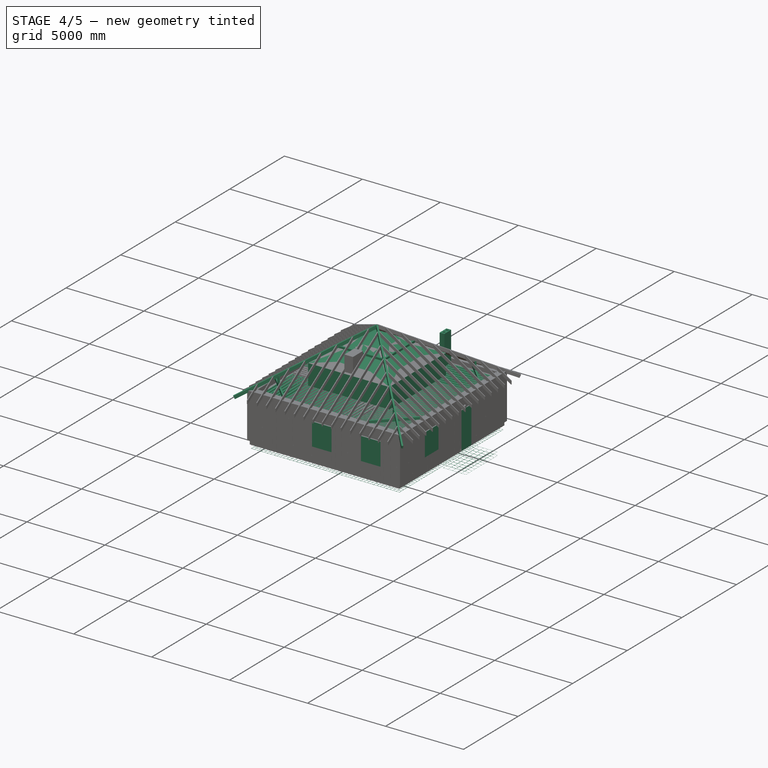
[diagram: stage 4 of 5 — iso view after this stage's code; geometry added in this stage tinted green]
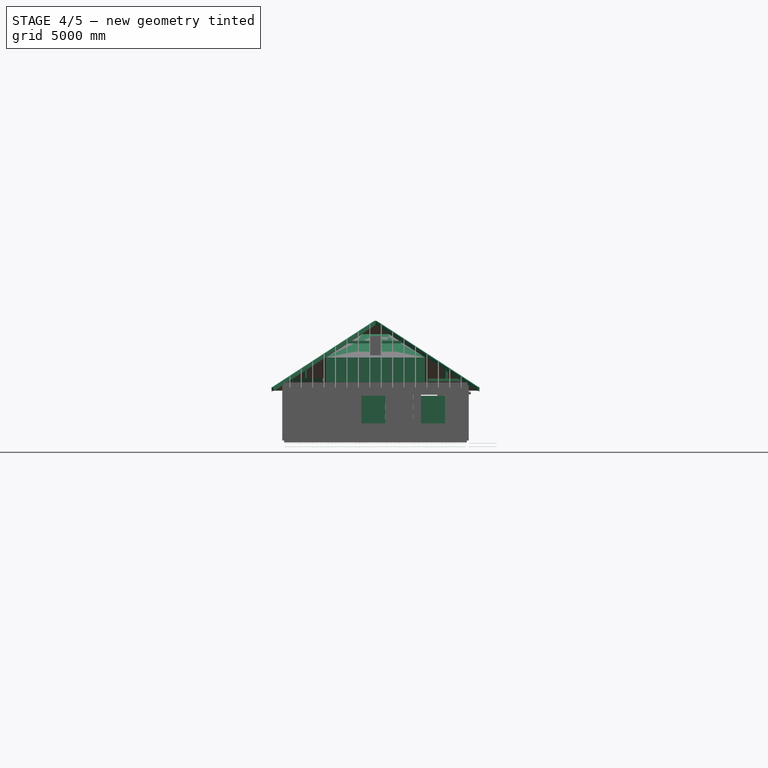
[diagram: stage 4 of 5 — front view after this stage's code; geometry added in this stage tinted green]
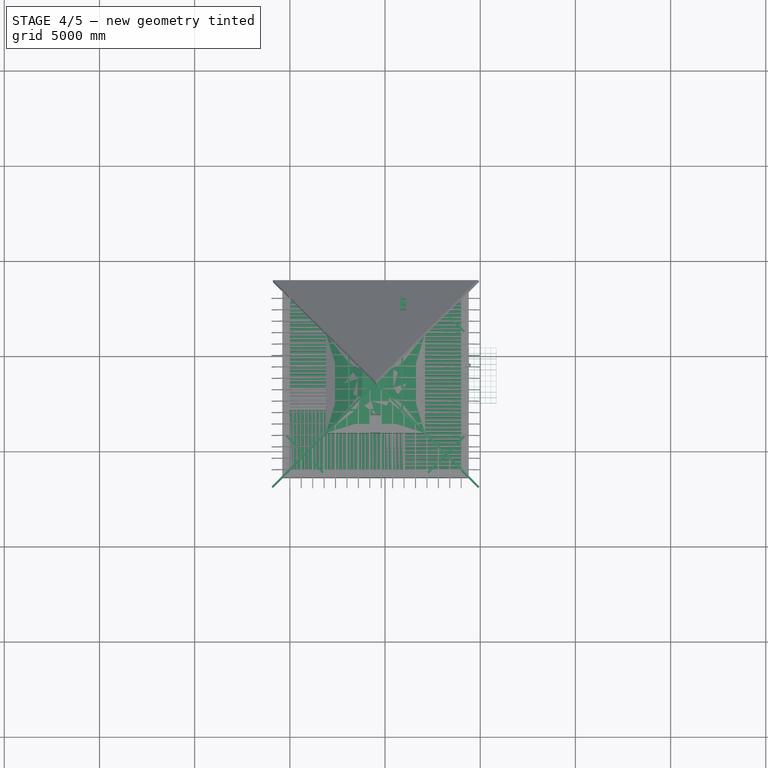
[diagram: stage 4 of 5 — top view after this stage's code; geometry added in this stage tinted green]
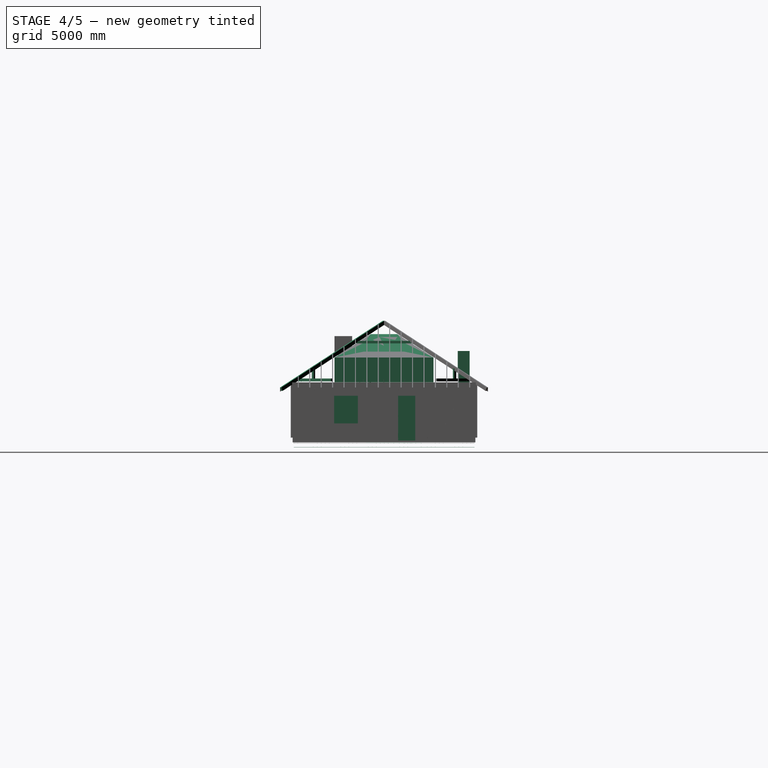
[diagram: stage 4 of 5 — right view after this stage's code; geometry added in this stage tinted green]
FEATURE [Part::Part2DObjectPython] Rectangle482  label="плита_крыльца_001"  # Draft 2D object (typed FeaturePython)
  ChamferSize = 0
  Columns = 1
  FilletRadius = 0
  Height = 3000
  Length = 1550
  MakeFace = false
  Placement = pos=(9350,-2500,0) rot=(0,0,1;0rad)
  Rows = 1
FEATURE [Part::Part2DObjectPython] Rectangle483  label="подушка_крыльца_002"  # Draft 2D object (typed FeaturePython)
  ChamferSize = 0
  Columns = 1
  FilletRadius = 0
  Height = 1600
  Length = 5400
  MakeFace = false
  Placement = pos=(12100,-3700,0) rot=(0,0,1;1.5708rad)
  Rows = 1
FEATURE [Part::FeaturePython] Structure237  label="фундамент_плита_крыльца h0.3"  # Arch/BIM object (typed FeaturePython)
  Base = -> Rectangle482
  FaceMaker = 0
  Height = 300
  HorizontalArea = 4.65e+06
  IfcRole = 0
  Length = 0
  MoveWithHost = false
  Nodes = (2) [(3875,3875,0),(3875,3875,350)]
  NodesOffset = 0
  Normal = (0,0,-1)
  PerimeterLength = 9100
  Placement = pos=(0,0,-180) rot=(0,0,1;0rad)
  VerticalArea = 2730000
  Width = 100
FEATURE [Part::Part2DObjectPython] Rectangle669  label="профнастил Н114-600*13_002"  # Draft 2D object (typed FeaturePython)
  ChamferSize = 0
  Columns = 1
  FilletRadius = 0
  Height = 5846
  Length = 3200
  MakeFace = false
  Placement = pos=(-50,-2750,0) rot=(0,0,1;0rad)
  Rows = 1
FEATURE [Part::Part2DObjectPython] Wire201  label="профнастил Н114-600_профиль_01"  # Draft 2D object (typed FeaturePython)
  ChamferSize = 0
  Closed = false
  End = (596,-6050,2570)
  FilletRadius = 0
  Length = 1230.47
  MakeFace = true
  Placement = pos=(-50,-6050,2570) rot=(1,0,0;1.5708rad)
  Points = (14) [(0,0,0),(53,0,0),(71,114,0),(175,114,0),(193,0,0),(253,0,0),(271,114,0),(375,114,0),(393,0,0),(453,0,0),(471,114,0),(575,114,0),(593,0,0),(646,0,0)]
  Start = (-50,-6050,2570)
  Subdivisions = 0
FEATURE [Part::FeaturePython] Wall082  label="перекр. Н114-600 L3200"  # Arch/BIM object (typed FeaturePython)
  Align = 0
  Base = -> Wire201
  BlockHeight = 0
  BlockLength = 0
  CountBroken = 0
  CountEntire = 0
  Face = 0
  Height = 3200
  HorizontalArea = 0
  IfcRole = 156
  Joint = 0
  Length = 1230.47
  MakeBlocks = false
  MoveWithHost = false
  Normal = (0,1,0)
  OffsetFirst = 0
  OffsetSecond = 0
  PerimeterLength = 0
  VerticalArea = 0
  Width = 1
FEATURE [Part::FeaturePython] Array024  label="перекр. Н114-600 L3200*10"  # Draft array (typed FeaturePython)
  Angle = 360
  ArrayType = 0
  Axis = (0,0,1)
  Base = -> Wall082
  Center = (0,0,0)
  Fuse = false
  IntervalAxis = (0,0,0)
  IntervalX = (600,0,0)
  IntervalY = (0,1,0)
  IntervalZ = (0,0,1)
  NumberPolar = 1
  NumberX = 10
  NumberY = 1
  NumberZ = 1
FEATURE [Part::Part2DObjectPython] Wire202  label="профнастил Н114-600_профиль_002"  # Draft 2D object (typed FeaturePython)
  ChamferSize = 0
  Closed = false
  End = (-50,-2104,2570)
  FilletRadius = 0
  Length = 1230.47
  MakeFace = true
  Placement = pos=(-50,-2750,2570) rot=(0.57735,0.57735,0.57735;2.0944rad)
  Points = (14) [(0,0,0),(53,0,0),(71,114,0),(175,114,0),(193,0,0),(253,0,0),(271,114,0),(375,114,0),(393,0,0),(453,0,0),(471,114,0),(575,114,0),(593,0,0),+1 more]
  Start = (-50,-2750,2570)
  Subdivisions = 0
FEATURE [Part::FeaturePython] Wall083  label="перекр. Н114-600 L3200 001"  # Arch/BIM object (typed FeaturePython)
  Align = 0
  Base = -> Wire202
  BlockHeight = 0
  BlockLength = 0
  CountBroken = 0
  CountEntire = 0
  Face = 0
  Height = 3200
  HorizontalArea = 0
  IfcRole = 156
  Joint = 0
  Length = 1230.47
  MakeBlocks = false
  MoveWithHost = false
  Normal = (1,0,0)
  OffsetFirst = 0
  OffsetSecond = 0
  PerimeterLength = 0
  VerticalArea = 0
  Width = 1
FEATURE [Part::FeaturePython] Array025  label="перекр. Н114-600 L3200*9"  # Draft array (typed FeaturePython)
  Angle = 360
  ArrayType = 0
  Axis = (0,0,1)
  Base = -> Wall083
  Center = (0,0,0)
  Fuse = false
  IntervalAxis = (0,0,0)
  IntervalX = (0,0,0)
  IntervalY = (0,600,0)
  IntervalZ = (0,0,1)
  NumberPolar = 1
  NumberX = 1
  NumberY = 9
  NumberZ = 1
FEATURE [Part::Part2DObjectPython] Line676  label="подкос_123"  # Draft 2D object (typed FeaturePython)
  ChamferSize = 0
  Closed = false
  End = (1749.03,3160.16,3100.66)
  FilletRadius = 0
  Length = 2700
  MakeFace = false
  Placement = pos=(339.843,1150.97,6520.66) rot=(0,0,1;0rad)
  Points = (2) [(-500,100,-3420),(1409.19,2009.19,-3420)]
  Start = (-160.157,1250.97,3100.66)
  Subdivisions = 0
FEATURE [Part::Part2DObjectPython] Line678  label="подкос_124"  # Draft 2D object (typed FeaturePython)
  ChamferSize = 0
  Closed = false
  End = (794.437,2205.56,3700.66)
  FilletRadius = 0
  Length = 600
  MakeFace = false
  Placement = pos=(794.437,2205.56,3100.66) rot=(0,0,1;0rad)
  Points = (2) [(0,0,0),(0,0,600)]
  Start = (794.437,2205.56,3100.66)
  Subdivisions = 0
FEATURE [Part::Part2DObjectPython] Rectangle675  label="брус_сечение_004"  # Draft 2D object (typed FeaturePython)
  ChamferSize = 0
  Columns = 1
  FilletRadius = 0
  Height = 150
  Length = 100
  MakeFace = false
  Placement = pos=(670.693,2223.24,3100.66) rot=(0,0,-1;0.785398rad)
  Rows = 1
FEATURE [Part::FeaturePython] Pipe070  label="подкос_117"  # Arch/BIM object (typed FeaturePython)
  Base = -> Line676
  Diameter = 50
  HorizontalArea = 0
  IfcRole = 98
  Length = 2700
  MoveWithHost = false
  OffsetEnd = 0
  OffsetStart = 0
  PerimeterLength = 0
  Profile = -> Rectangle675
  VerticalArea = 0
FEATURE [Part::FeaturePython] Pipe071  label="подкос_118"  # Arch/BIM object (typed FeaturePython)
  Base = -> Line678
  Diameter = 50
  HorizontalArea = 0
  IfcRole = 98
  Length = 600
  MoveWithHost = false
  OffsetEnd = 0
  OffsetStart = 0
  PerimeterLength = 0
  Profile = -> Rectangle675
  VerticalArea = 0
FEATURE [Part::Part2DObjectPython] Rectangle676  label="накосное стропило сечение"  # Draft 2D object (typed FeaturePython)
  ChamferSize = 0
  Columns = 1
  FilletRadius = 0
  Height = 200
  Length = 100
  MakeFace = false
  Placement = pos=(-968.981,3898.27,2827) rot=(0,0,1;0.785398rad)
  Rows = 1
FEATURE [Part::FeaturePython] Pipe065  label="накосное стропило 01"  # Arch/BIM object (typed FeaturePython)
  Base = -> Line626
  Diameter = 50
  HorizontalArea = 0
  IfcRole = 98
  Length = 8400
  MoveWithHost = false
  OffsetEnd = 0
  OffsetStart = 0
  PerimeterLength = 0
  Placement = pos=(0,0,-200) rot=(0,0,1;0rad)
  Profile = -> Rectangle676
  VerticalArea = 0
FEATURE [Part::Part2DObjectPython] Rectangle693  label="холл"  # Draft 2D object (typed FeaturePython)
  ChamferSize = 0
  Columns = 1
  FilletRadius = 0
  Height = 3600
  Length = 2600
  MakeFace = false
  Placement = pos=(5900,900,0) rot=(0,0,1;3.14159rad)
  Rows = 1
FEATURE [Part::Part2DObjectPython] Rectangle694  label="спальня #003"  # Draft 2D object (typed FeaturePython)
  ChamferSize = 0
  Columns = 1
  FilletRadius = 0
  Height = 3100
  Length = 5900
  MakeFace = false
  Placement = pos=(5900,-2900,0) rot=(0,0,1;3.14159rad)
  Rows = 1
FEATURE [Part::Part2DObjectPython] Rectangle695  label="кухня-гостиная002"  # Draft 2D object (typed FeaturePython)
  ChamferSize = 0
  Columns = 1
  FilletRadius = 0
  Height = 5700
  Length = 3100
  MakeFace = false
  Placement = pos=(-1.65e-13,-2700,0) rot=(0,0,1;0rad)
  Rows = 1
FEATURE [Part::Part2DObjectPython] Rectangle696  label="спальня #004"  # Draft 2D object (typed FeaturePython)
  ChamferSize = 0
  Columns = 1
  FilletRadius = 0
  Height = 5000
  Length = 2900
  MakeFace = false
  Placement = pos=(6100,-6000,0) rot=(0,0,1;0rad)
  Rows = 1
FEATURE [Part::Part2DObjectPython] Rectangle697  label="ванная"  # Draft 2D object (typed FeaturePython)
  ChamferSize = 0
  Columns = 1
  FilletRadius = 0
  Height = 2000
  Length = 1600
  MakeFace = false
  Placement = pos=(3300,1000,0) rot=(0,0,1;0rad)
  Rows = 1
FEATURE [Part::Part2DObjectPython] Rectangle698  label="тамбур001"  # Draft 2D object (typed FeaturePython)
  ChamferSize = 0
  Columns = 1
  FilletRadius = 0
  Height = 1600
  Length = 1700
  MakeFace = false
  Placement = pos=(7300,-900,0) rot=(0,0,1;0rad)
  Rows = 1
FEATURE [Part::Part2DObjectPython] Rectangle699  label="кабинет002"  # Draft 2D object (typed FeaturePython)
  ChamferSize = 0
  Columns = 1
  FilletRadius = 0
  Height = 2200
  Length = 2900
  MakeFace = false
  Placement = pos=(6100,800,0) rot=(0,0,1;0rad)
  Rows = 1
FEATURE [Part::Part2DObjectPython] ShapeString009  label="надпись 010"  # Draft 2D object (typed FeaturePython)
  FontFile = <path>
  Placement = pos=(1213.46,-635.329,0) rot=(0,0,1;0rad)
  Size = 100
  String = кухня-гостиная 17.7 м2
  Tracking = 0
FEATURE [Part::Part2DObjectPython] ShapeString010  label="надпись 011"  # Draft 2D object (typed FeaturePython)
  FontFile = <path>
  Placement = pos=(2770.91,-3551.97,0) rot=(0,0,1;0rad)
  Size = 100
  String = спальня 18.3 м2
  Tracking = 0
FEATURE [Part::Part2DObjectPython] ShapeString011  label="надпись 012"  # Draft 2D object (typed FeaturePython)
  FontFile = <path>
  Placement = pos=(7022.89,-5027.18,0) rot=(0,0,1;0rad)
  Size = 100
  String = спальня 14.5 м2
  Tracking = 0
FEATURE [Part::Part2DObjectPython] ShapeString012  label="надпись 013"  # Draft 2D object (typed FeaturePython)
  FontFile = <path>
  Placement = pos=(4127.95,1428.06,0) rot=(0,0,1;0rad)
  Size = 100
  String = С/У 3.2 м2
  Tracking = 0
FEATURE [Part::Part2DObjectPython] ShapeString013  label="надпись 014"  # Draft 2D object (typed FeaturePython)
  FontFile = <path>
  Placement = pos=(6976.82,1368.45,0) rot=(0,0,1;0rad)
  Size = 100
  String = кабинет 6.4 м2
  Tracking = 0
FEATURE [Part::Part2DObjectPython] ShapeString014  label="надпись 015"  # Draft 2D object (typed FeaturePython)
  FontFile = <path>
  Placement = pos=(6179.37,-494.607,0) rot=(0,0,1;0rad)
  Size = 100
  String = коридор 1.7 м2
  Tracking = 0
FEATURE [Part::Part2DObjectPython] ShapeString015  label="надпись 016"  # Draft 2D object (typed FeaturePython)
  FontFile = <path>
  Placement = pos=(7783,-469.686,0) rot=(0,0,1;0rad)
  Size = 100
  String = тамбур 2.7 м2
  Tracking = 0
FEATURE [Part::Part2DObjectPython] ShapeString016  label="надпись 017"  # Draft 2D object (typed FeaturePython)
  FontFile = <path>
  Placement = pos=(4211.42,-573.376,0) rot=(0,0,1;0rad)
  Size = 100
  String = Всего внутри стен: 81 м2
  Tracking = 0
FEATURE [Part::Part2DObjectPython] ShapeString017  label="надпись 018"  # Draft 2D object (typed FeaturePython)
  FontFile = <path>
  Placement = pos=(4667.05,-1139.36,0) rot=(0,0,1;0rad)
  Size = 100
  String = холл 9.4 м2
  Tracking = 0
FEATURE [Part::Part2DObjectPython] Rectangle700  label="прощадь по ГБ стене внешн.001"  # Draft 2D object (typed FeaturePython)
  ChamferSize = 0
  Columns = 1
  FilletRadius = 0
  Height = 9800
  Length = 9800
  MakeFace = false
  Placement = pos=(-400,-6400,0) rot=(0,0,1;0rad)
  Rows = 1
FEATURE [Part::Part2DObjectPython] Wire204  label="граница_участка002"  # Draft 2D object (typed FeaturePython)
  ChamferSize = 0
  Closed = true
  End = (20957.4,-17581,0)
  FilletRadius = 0
  Length = 112210
  MakeFace = false
  Placement = pos=(-7042.62,-16681,0) rot=(0,0,1;0rad)
  Points = (8) [(0,-100,0),(0,25200,0),(16300,23621.4,0),(16300,27085.6,0),(21200,27084.5,0),(21200,23146.9,0),(28000,22488.3,0),(28000,-900,0)]
  Start = (-7042.62,-16781,0)
  Subdivisions = 0
FEATURE [Part::Part2DObjectPython] Rectangle701  label="граница_участка003"  # Draft 2D object (typed FeaturePython)
  ChamferSize = 0
  Columns = 1
  FilletRadius = 0
  Height = 25200
  Length = 28000
  MakeFace = false
  Placement = pos=(-7042.62,-16681,0) rot=(0,0,1;0rad)
  Rows = 1
FEATURE [Part::Part2DObjectPython] Rectangle702  label="баня_старая001"  # Draft 2D object (typed FeaturePython)
  ChamferSize = 0
  Columns = 1
  FilletRadius = 0
  Height = 4400
  Length = 2300
  MakeFace = true
  Placement = pos=(-7042.62,-15281,0) rot=(0,0,1;0rad)
  Rows = 1
FEATURE [Part::Part2DObjectPython] Rectangle703  label="площадка001"  # Draft 2D object (typed FeaturePython)
  ChamferSize = 0
  Columns = 1
  FilletRadius = 0
  Height = 3000
  Length = 3000
  MakeFace = true
  Placement = pos=(357.376,-11694.7,0) rot=(0,0,1;0rad)
  Rows = 1
FEATURE [Part::Part2DObjectPython] Rectangle704  label="дом001"  # Draft 2D object (typed FeaturePython)
  ChamferSize = 0
  Columns = 1
  FilletRadius = 0
  Height = 6700
  Length = 7900
  MakeFace = true
  Placement = pos=(4457.38,-5794.74,0) rot=(0,0,1;0rad)
  Rows = 1
FEATURE [Part::Part2DObjectPython] Rectangle705  label="гараж001"  # Draft 2D object (typed FeaturePython)
  ChamferSize = 0
  Columns = 1
  FilletRadius = 0
  Height = 8000
  Length = 3300
  MakeFace = true
  Placement = pos=(12357.4,-7094.74,0) rot=(0,0,1;0rad)
  Rows = 1
FEATURE [Part::Part2DObjectPython] Rectangle706  label="крыльцо002"  # Draft 2D object (typed FeaturePython)
  ChamferSize = 0
  Columns = 1
  FilletRadius = 0
  Height = 3100
  Length = 4900
  MakeFace = true
  Placement = pos=(5957.38,-8894.74,0) rot=(0,0,1;0rad)
  Rows = 1
FEATURE [App::DocumentObjectGroup] Group075  label="участок"
  Group = -> [Wire204,Rectangle701,Rectangle702,Rectangle703,Rectangle704,Rectangle705,Rectangle706]
FEATURE [Part::Part2DObjectPython] Rectangle707  label="туалет"  # Draft 2D object (typed FeaturePython)
  ChamferSize = 0
  Columns = 1
  FilletRadius = 0
  Height = 2000
  Length = 900
  MakeFace = false
  Placement = pos=(5000,1000,0) rot=(0,0,1;0rad)
  Rows = 1
FEATURE [Part::Part2DObjectPython] Rectangle708  # Draft 2D object (typed FeaturePython)
  ChamferSize = 0
  Columns = 1
  FilletRadius = 0
  Height = 50
  Length = 100
  MakeFace = true
  Placement = pos=(4800,900,0) rot=(0,0,1;1.5708rad)
  Rows = 1
FEATURE [Part::Part2DObjectPython] ShapeString018  label="надпись 019"  # Draft 2D object (typed FeaturePython)
  FontFile = <path>
  Placement = pos=(5126.01,1431.03,0) rot=(0,0,1;0rad)
  Size = 100
  String = С/У 1.8 м2
  Tracking = 0
FEATURE [Part::Part2DObjectPython] Rectangle709  # Draft 2D object (typed FeaturePython)
  ChamferSize = 0
  Columns = 1
  FilletRadius = 0
  Height = 50
  Length = 100
  MakeFace = true
  Placement = pos=(7100,700,0) rot=(0,0,1;1.5708rad)
  Rows = 1
FEATURE [Part::Part2DObjectPython] Rectangle710  # Draft 2D object (typed FeaturePython)
  ChamferSize = 0
  Columns = 1
  FilletRadius = 0
  Height = 50
  Length = 100
  MakeFace = true
  Placement = pos=(6250,700,0) rot=(0,0,1;1.5708rad)
  Rows = 1
FEATURE [Part::Part2DObjectPython] Line573  # Draft 2D object (typed FeaturePython)
  ChamferSize = 0
  Closed = false
  End = (7100,750,0)
  FilletRadius = 0
  Length = 900
  MakeFace = true
  Placement = pos=(6200,750,0) rot=(0,0,1;1.5708rad)
  Points = (2) [(0,0,0),(-4.54747e-13,-900,0)]
  Start = (6200,750,0)
  Subdivisions = 0
FEATURE [Part::Part2DObjectPython] Line  # Draft 2D object (typed FeaturePython)
  ChamferSize = 0
  Closed = false
  End = (4100,950,0)
  FilletRadius = 0
  Length = 700
  MakeFace = true
  Placement = pos=(4700,950,0) rot=(0,0,1;1.5708rad)
  Points = (2) [(0,-100,0),(0,600,0)]
  Start = (4800,950,0)
  Subdivisions = 0
FEATURE [Part::Part2DObjectPython] Rectangle713  label="Rectangle705"  # Draft 2D object (typed FeaturePython)
  ChamferSize = 0
  Columns = 1
  FilletRadius = 0
  Height = 50
  Length = 100
  MakeFace = true
  Placement = pos=(4150,900,0) rot=(0,0,1;1.5708rad)
  Rows = 1
FEATURE [Part::Part2DObjectPython] Rectangle714  label="Rectangle713"  # Draft 2D object (typed FeaturePython)
  ChamferSize = 0
  Columns = 1
  FilletRadius = 0
  Height = 50
  Length = 100
  MakeFace = true
  Placement = pos=(5800,900,0) rot=(0,0,1;1.5708rad)
  Rows = 1
FEATURE [Part::Part2DObjectPython] Line581  # Draft 2D object (typed FeaturePython)
  ChamferSize = 0
  Closed = false
  End = (5100,950,0)
  FilletRadius = 0
  Length = 700
  MakeFace = true
  Placement = pos=(5800,950,0) rot=(0,0,1;1.5708rad)
  Points = (2) [(0,0,0),(2.27374e-13,700,0)]
  Start = (5800,950,0)
  Subdivisions = 0
FEATURE [Part::Part2DObjectPython] Rectangle715  label="Rectangle714"  # Draft 2D object (typed FeaturePython)
  ChamferSize = 0
  Columns = 1
  FilletRadius = 0
  Height = 50
  Length = 100
  MakeFace = true
  Placement = pos=(5150,900,0) rot=(0,0,1;1.5708rad)
  Rows = 1
FEATURE [Part::Part2DObjectPython] Rectangle716  label="коридор"  # Draft 2D object (typed FeaturePython)
  ChamferSize = 0
  Columns = 1
  FilletRadius = 0
  Height = 1600
  Length = 1100
  MakeFace = false
  Placement = pos=(6100,-900,0) rot=(0,0,1;0rad)
  Rows = 1
FEATURE [App::DocumentObjectGroup] Group074  label="План_помещений"
  Group = -> [Rectangle692,Rectangle693,ShapeString010,Rectangle694,Rectangle695,Rectangle696,Rectangle697,Rectangle698,Rectangle699,ShapeString013,ShapeString014,ShapeString009,ShapeString011,ShapeString012,ShapeString015,ShapeString016,ShapeString017,Rectangle700,Rectangle707,ShapeString018,Rectangle716]
FEATURE [Part::Part2DObjectPython] Rectangle717  label="Rectangle715"  # Draft 2D object (typed FeaturePython)
  ChamferSize = 0
  Columns = 1
  FilletRadius = 0
  Height = 50
  Length = 200
  MakeFace = true
  Placement = pos=(5200,-2900,0) rot=(0,0,1;1.5708rad)
  Rows = 1
FEATURE [Part::Part2DObjectPython] Line582  # Draft 2D object (typed FeaturePython)
  ChamferSize = 0
  Closed = false
  End = (5200,-2800,0)
  FilletRadius = 0
  Length = 900
  MakeFace = true
  Placement = pos=(4300,-2800,0) rot=(0,0,1;1.5708rad)
  Points = (2) [(0,0,0),(5.45697e-12,-900,0)]
  Start = (4300,-2800,0)
  Subdivisions = 0
FEATURE [Part::Part2DObjectPython] Rectangle718  label="Rectangle716"  # Draft 2D object (typed FeaturePython)
  ChamferSize = 0
  Columns = 1
  FilletRadius = 0
  Height = 50
  Length = 200
  MakeFace = true
  Placement = pos=(4350,-2900,0) rot=(0,0,1;1.5708rad)
  Rows = 1
FEATURE [Part::Part2DObjectPython] Rectangle719  label="шкаф"  # Draft 2D object (typed FeaturePython)
  ChamferSize = 0
  Columns = 1
  FilletRadius = 0
  Height = 600
  Length = 2100
  MakeFace = true
  Placement = pos=(6000,-6000,0) rot=(0,0,1;1.5708rad)
  Rows = 1
FEATURE [Part::Part2DObjectPython] Rectangle720  label="лестница_площадь"  # Draft 2D object (typed FeaturePython)
  ChamferSize = 0
  Columns = 1
  FilletRadius = 0
  Height = 800
  Length = 2100
  MakeFace = true
  Placement = pos=(4100,-2700,0) rot=(0,0,1;1.5708rad)
  Rows = 1
FEATURE [Part::Part2DObjectPython] Rectangle721  label="шкаф001"  # Draft 2D object (typed FeaturePython)
  ChamferSize = 0
  Columns = 1
  FilletRadius = 0
  Height = 1500
  Length = 600
  MakeFace = true
  Placement = pos=(9000,-1500,0) rot=(0,0,1;1.5708rad)
  Rows = 1
FEATURE [Part::Part2DObjectPython] Rectangle722  label="шкаф002"  # Draft 2D object (typed FeaturePython)
  ChamferSize = 0
  Columns = 1
  FilletRadius = 0
  Height = 1150
  Length = 600
  MakeFace = true
  Placement = pos=(7400,-1500,0) rot=(0,0,1;1.5708rad)
  Rows = 1
FEATURE [Part::Part2DObjectPython] Rectangle723  label="шкаф003"  # Draft 2D object (typed FeaturePython)
  ChamferSize = 0
  Columns = 1
  FilletRadius = 0
  Height = 1800
  Length = 600
  MakeFace = true
  Placement = pos=(9000,-2200,0) rot=(0,0,1;1.5708rad)
  Rows = 1
FEATURE [Part::Part2DObjectPython] Rectangle724  label="Rectangle721"  # Draft 2D object (typed FeaturePython)
  ChamferSize = 0
  Columns = 1
  FilletRadius = 0
  Height = 100
  Length = 50
  MakeFace = true
  Placement = pos=(7300,-800,0) rot=(0,0,1;1.5708rad)
  Rows = 1
FEATURE [Part::Part2DObjectPython] Line583  # Draft 2D object (typed FeaturePython)
  ChamferSize = 0
  Closed = false
  End = (7250,200,0)
  FilletRadius = 0
  Length = 1000
  MakeFace = true
  Placement = pos=(7250,-800,0) rot=(0,0,1;3.14159rad)
  Points = (2) [(-9.09495e-13,0,0),(0,-1000,0)]
  Start = (7250,-800,0)
  Subdivisions = 0
FEATURE [Part::Part2DObjectPython] Rectangle725  label="Rectangle722"  # Draft 2D object (typed FeaturePython)
  ChamferSize = 0
  Columns = 1
  FilletRadius = 0
  Height = 100
  Length = 50
  MakeFace = true
  Placement = pos=(7300,150,0) rot=(0,0,1;1.5708rad)
  Rows = 1
FEATURE [Part::Part2DObjectPython] Rectangle727  label="Rectangle723"  # Draft 2D object (typed FeaturePython)
  ChamferSize = 0
  Columns = 1
  FilletRadius = 0
  Height = 100
  Length = 50
  MakeFace = true
  Placement = pos=(9300,-810,0) rot=(0,0,1;1.5708rad)
  Rows = 1
FEATURE [Part::Part2DObjectPython] Line584  # Draft 2D object (typed FeaturePython)
  ChamferSize = 0
  Closed = false
  End = (9250,190,0)
  FilletRadius = 0
  Length = 1000
  MakeFace = true
  Placement = pos=(9250,-810,0) rot=(0,0,1;3.14159rad)
  Points = (2) [(-1.81899e-12,0,0),(1.81899e-12,-1000,0)]
  Start = (9250,-810,0)
  Subdivisions = 0
FEATURE [Part::Part2DObjectPython] Rectangle728  label="Rectangle724"  # Draft 2D object (typed FeaturePython)
  ChamferSize = 0
  Columns = 1
  FilletRadius = 0
  Height = 100
  Length = 50
  MakeFace = true
  Placement = pos=(9300,140,0) rot=(0,0,1;1.5708rad)
  Rows = 1
FEATURE [Part::Part2DObjectPython] Rectangle731  label="блок_001"  # Draft 2D object (typed FeaturePython)
  ChamferSize = 0
  Columns = 1
  FilletRadius = 0
  Height = 400
  Length = 625
  MakeFace = true
  Placement = pos=(-400,-6400,0) rot=(0,0,1;0rad)
  Rows = 1
FEATURE [Part::Part2DObjectPython] Rectangle732  label="блок_022"  # Draft 2D object (typed FeaturePython)
  ChamferSize = 0
  Columns = 1
  FilletRadius = 0
  Height = 625
  Length = 400
  MakeFace = true
  Placement = pos=(-400,2775,0) rot=(0,0,1;0rad)
  Rows = 1
FEATURE [Part::Part2DObjectPython] Rectangle733  label="блок_023"  # Draft 2D object (typed FeaturePython)
  ChamferSize = 0
  Columns = 1
  FilletRadius = 0
  Height = 400
  Length = 625
  MakeFace = true
  Placement = pos=(8775,3000,0) rot=(0,0,1;0rad)
  Rows = 1
FEATURE [Part::Part2DObjectPython] Rectangle734  label="блок_024"  # Draft 2D object (typed FeaturePython)
  ChamferSize = 0
  Columns = 1
  FilletRadius = 0
  Height = 625
  Length = 400
  MakeFace = true
  Placement = pos=(9000,-6400,0) rot=(0,0,1;0rad)
  Rows = 1
FEATURE [Part::Part2DObjectPython] Rectangle737  label="плита и цоколь"  # Draft 2D object (typed FeaturePython)
  ChamferSize = 0
  Columns = 1
  FilletRadius = 0
  Height = 9600
  Length = 9600
  MakeFace = false
  Placement = pos=(-300,-6300,0) rot=(0,0,1;0rad)
  Rows = 1
FEATURE [Part::FeaturePython] Structure130  label="фундамент_плита h0.3"  # Arch/BIM object (typed FeaturePython)
  Base = -> Rectangle737
  FaceMaker = 0
  Height = 300
  HorizontalArea = 92160000
  IfcRole = 0
  Length = 0
  MoveWithHost = false
  Nodes = (2) [(3875,3875,0),(3875,3875,350)]
  NodesOffset = 0
  Normal = (0,0,-1)
  PerimeterLength = 38400
  Placement = pos=(0,0,-180) rot=(0,0,1;0rad)
  VerticalArea = 11520000
  Width = 100
FEATURE [Part::FeaturePython] Structure380  label="пол в помещениях _026"  # Arch/BIM object (typed FeaturePython)
  Base = -> Rectangle698
  FaceMaker = 0
  Height = 180
  HorizontalArea = 2.72e+06
  IfcRole = 0
  Length = 0
  MoveWithHost = false
  Nodes = (2) [(8150,-100,0),(8150,-100,180)]
  NodesOffset = 0
  Normal = (0,0,0)
  PerimeterLength = 6600
  Placement = pos=(0,0,-180) rot=(0,0,1;0rad)
  VerticalArea = 1188000
  Width = 100
FEATURE [Part::FeaturePython] Structure381  label="пол в помещениях _030"  # Arch/BIM object (typed FeaturePython)
  Base = -> Rectangle696
  FaceMaker = 0
  Height = 180
  HorizontalArea = 14500000
  IfcRole = 0
  Length = 0
  MoveWithHost = false
  Nodes = (2) [(7550,-3500,0),(7550,-3500,180)]
  NodesOffset = 0
  Normal = (0,0,0)
  PerimeterLength = 15800
  Placement = pos=(0,0,-180) rot=(0,0,1;0rad)
  VerticalArea = 2844000
  Width = 100
FEATURE [Part::FeaturePython] Structure382  label="пол в помещениях _027"  # Arch/BIM object (typed FeaturePython)
  Base = -> Rectangle694
  FaceMaker = 0
  Height = 180
  HorizontalArea = 18290000
  IfcRole = 0
  Length = 0
  MoveWithHost = false
  Nodes = (2) [(2950,-4450,0),(2950,-4450,180)]
  NodesOffset = 0
  Normal = (0,0,0)
  PerimeterLength = 18000
  Placement = pos=(0,0,-180) rot=(0,0,1;0rad)
  VerticalArea = 3240000
  Width = 100
FEATURE [Sketcher::SketchObject] Sketch037
  Placement = pos=(9400,-2817.89,820) rot=(0.57735,-0.57735,-0.57735;2.0944rad)
  sketch-geometry (24):
    g0: LineSegment StartX=0 StartY=0 StartZ=0 EndX=1350 EndY=0 EndZ=0
    g1: LineSegment StartX=1350 StartY=0 StartZ=0 EndX=1350 EndY=1500 EndZ=0
    g2: LineSegment StartX=1350 StartY=1500 StartZ=0 EndX=0 EndY=1500 EndZ=0
    g3: LineSegment StartX=0 StartY=1500 StartZ=0 EndX=0 EndY=0 EndZ=0
    g4: LineSegment StartX=55 StartY=55 StartZ=0 EndX=1295 EndY=55 EndZ=0
    g5: LineSegment StartX=1295 StartY=55 StartZ=0 EndX=1295 EndY=1445 EndZ=0
    g6: LineSegment StartX=1295 StartY=1445 StartZ=0 EndX=55 EndY=1445 EndZ=0
    g7: LineSegment StartX=55 StartY=1445 StartZ=0 EndX=55 EndY=55 EndZ=0
    g8: LineSegment StartX=59.4 StartY=59.4 StartZ=0 EndX=672.8 EndY=59.4 EndZ=0
    g9: LineSegment StartX=672.8 StartY=59.4 StartZ=0 EndX=672.8 EndY=1440.6 EndZ=0
    g10: LineSegment StartX=672.8 StartY=1440.6 StartZ=0 EndX=59.4 EndY=1440.6 EndZ=0
    g11: LineSegment StartX=59.4 StartY=1440.6 StartZ=0 EndX=59.4 EndY=59.4 EndZ=0
    g12: LineSegment StartX=114.4 StartY=114.4 StartZ=0 EndX=617.8 EndY=114.4 EndZ=0
    g13: LineSegment StartX=617.8 StartY=114.4 StartZ=0 EndX=617.8 EndY=1385.6 EndZ=0
    g14: LineSegment StartX=617.8 StartY=1385.6 StartZ=0 EndX=114.4 EndY=1385.6 EndZ=0
    g15: LineSegment StartX=114.4 StartY=1385.6 StartZ=0 EndX=114.4 EndY=114.4 EndZ=0
    g16: LineSegment StartX=677.2 StartY=59.4 StartZ=0 EndX=1290.6 EndY=59.4 EndZ=0
    g17: LineSegment StartX=1290.6 StartY=59.4 StartZ=0 EndX=1290.6 EndY=1440.6 EndZ=0
    g18: LineSegment StartX=1290.6 StartY=1440.6 StartZ=0 EndX=677.2 EndY=1440.6 EndZ=0
    g19: LineSegment StartX=677.2 StartY=1440.6 StartZ=0 EndX=677.2 EndY=59.4 EndZ=0
    g20: LineSegment StartX=732.2 StartY=114.4 StartZ=0 EndX=1235.6 EndY=114.4 EndZ=0
    g21: LineSegment StartX=1235.6 StartY=114.4 StartZ=0 EndX=1235.6 EndY=1385.6 EndZ=0
    g22: LineSegment StartX=1235.6 StartY=1385.6 StartZ=0 EndX=732.2 EndY=1385.6 EndZ=0
    g23: LineSegment StartX=732.2 StartY=1385.6 StartZ=0 EndX=732.2 EndY=114.4 EndZ=0
  constraints (71):
    c: Coincident(g0,g1)
    c: Coincident(g1,g2)
    c: Coincident(g2,g3)
    c: Coincident(g3,g0)
    c: Horizontal(g0)
    c: Horizontal(g2)
    c: Vertical(g1)
    c: Vertical(g3)
    c: Coincident(g4,g5)
    c: Coincident(g5,g6)
    c: Coincident(g6,g7)
    c: Coincident(g7,g4)
    c: Horizontal(g4)
    c: Horizontal(g6)
    c: Vertical(g5)
    c: Vertical(g7)
    c: DistanceY(g1) = 1500  'Height'
    c: DistanceX(g0) = 1350  'Width'
    c: DistanceY(g6,g2) = 55  'Frame1'
    c: DistanceX(g2,g6) = 55  'Frame2'
    c: DistanceX(g4,g0) = 55  'Frame3'
    c: DistanceY(g0,g4) = 55  'Frame4'
    c: Coincident(g0,g-1)
    c: Coincident(g8,g9)
    c: Coincident(g9,g10)
    c: Coincident(g10,g11)
    c: Coincident(g11,g8)
    c: Horizontal(g8)
    c: Horizontal(g10)
    c: Vertical(g9)
    c: Vertical(g11)
    c: Coincident(g12,g13)
    c: Coincident(g13,g14)
    c: Coincident(g14,g15)
    c: Coincident(g15,g12)
    c: Horizontal(g12)
    c: Horizontal(g14)
    c: Vertical(g13)
    c: Vertical(g15)
    c: Coincident(g16,g17)
    c: Coincident(g17,g18)
    c: Coincident(g18,g19)
    c: Coincident(g19,g16)
    c: Horizontal(g16)
    c: Horizontal(g18)
    c: Vertical(g17)
    c: Vertical(g19)
    c: Coincident(g20,g21)
    c: Coincident(g21,g22)
    c: Coincident(g22,g23)
    c: Coincident(g23,g20)
    c: Horizontal(g20)
    c: Horizontal(g22)
    c: Vertical(g21)
    c: Vertical(g23)
    c: DistanceY(g8,g12) = 55  'Frame5'
    c: DistanceX(g8,g12) = 55  'Frame6'
    c: DistanceX(g21,g17) = 55  'Frame7'
    c: DistanceY(g21,g17) = 55  'Frame8'
    c: DistanceX(g16,g20) = 55  'Frame9'
    c: DistanceX(g14,g10) = 55  'Frame10'
    c: Equal(g22,g14)
    c: DistanceY(g8,g16) = 0
    c: DistanceY(g10,g18) = 0
    c: DistanceX(g4,g8) = 4.4
    c: DistanceY(g4,g8) = 4.4
    c: DistanceX(g6,g18) = -4.4
    c: DistanceY(g6,g18) = -4.4
    c: DistanceX(g9,g19) = 4.4
    c: PointOnObject(g13,g22)
    c: PointOnObject(g20,g12)
FEATURE [Part::FeaturePython] Window009  label="окно_150х135_005"  # Arch/BIM object (typed FeaturePython)
  Area = 2025000
  Base = -> Sketch037
  Frame = 55
  Height = 1500
  HoleDepth = 0
  HoleWire = 0
  HorizontalArea = 0
  IfcRole = 160
  LouvreSpacing = 0
  LouvreWidth = 0
  MoveWithHost = true
  Normal = (-1,0,0)
  Offset = 100
  Opening = 0
  PerimeterLength = 0
  Preset = 3
  SymbolElevation = false
  SymbolPlan = false
  VerticalArea = 0
  Width = 1350
  WindowParts = <same value as first occurrence — deduplicated (x6 in doc)>
FEATURE [Part::Part2DObjectPython] Arc  # Draft 2D object (typed FeaturePython)
  FirstAngle = 180
  LastAngle = 279.824
  MakeFace = true
  Placement = pos=(5750,900,0) rot=(0,0,1;0rad)
  Radius = 600
FEATURE [Part::Part2DObjectPython] Arc026  # Draft 2D object (typed FeaturePython)
  FirstAngle = -175.915
  LastAngle = 0
  MakeFace = true
  Placement = pos=(4150,900,0) rot=(0,0,1;0rad)
  Radius = 600
FEATURE [Part::Part2DObjectPython] Rectangle757  label="кух.зона004"  # Draft 2D object (typed FeaturePython)
  ChamferSize = 0
  Columns = 1
  FilletRadius = 0
  Height = 1500
  Length = 700
  MakeFace = false
  Placement = pos=(2400,800,0) rot=(0,0,1;0rad)
  Rows = 1
FEATURE [Part::FeaturePython] Structure384  label="кух.зона 008"  # Arch/BIM object (typed FeaturePython)
  Base = -> Rectangle757
  FaceMaker = 0
  Height = 900
  HorizontalArea = 1.05e+06
  IfcRole = 0
  Length = 0
  MoveWithHost = false
  Nodes = (2) [(-4700,-6400,0),(-4700,-6400,800)]
  NodesOffset = 0
  Normal = (0,0,0)
  PerimeterLength = 4400
  VerticalArea = 3.96e+06
  Width = 100
FEATURE [Part::Box] Box3144  label="тумба под ТВ 90х26х45 002"
  AttacherType = Attacher::AttachEngine3D
  Height = 450
  Length = 900
  Placement = pos=(3060,-1900,0) rot=(0,0,1;1.5708rad)
  Width = 260
FEATURE [Part::Box] Box3145  label="ТВ 55" 002"
  AttacherType = Attacher::AttachEngine3D
  Height = 750
  Length = 1250
  Placement = pos=(2997,-2075,520) rot=(0,0,1;1.5708rad)
  Width = 90
FEATURE [Part::Box] Box3146  label="ножка037"
  AttacherType = Attacher::AttachEngine3D
  Height = 720
  Length = 40
  Placement = pos=(1460,1150,0) rot=(0,0,-1;1.5708rad)
  Width = 40
FEATURE [Part::Box] Box3147  label="ножка038"
  AttacherType = Attacher::AttachEngine3D
  Height = 720
  Length = 40
  Placement = pos=(1460,440,0) rot=(0,0,-1;1.5708rad)
  Width = 40
FEATURE [Part::Box] Box3148  label="ножка039"
  AttacherType = Attacher::AttachEngine3D
  Height = 720
  Length = 40
  Placement = pos=(-1.71e-13,440,0) rot=(0,0,-1;1.5708rad)
  Width = 40
FEATURE [Part::Box] Box3149  label="ножка040"
  AttacherType = Attacher::AttachEngine3D
  Height = 720
  Length = 40
  Placement = pos=(0.00175781,1150.01,0) rot=(0,0,-1;1.5708rad)
  Width = 40
FEATURE [Part::Box] Box3150  label="столешница006"
  AttacherType = Attacher::AttachEngine3D
  Height = 30
  Length = 750
  Placement = pos=(-1.71e-13,1150,720) rot=(0,0,-1;1.5708rad)
  Width = 1500
FEATURE [Part::MultiFuse] Fusion011  label="стол обед"
  Shapes = -> [Box3149,Box3146,Box3147,Box3148,Box3150]
FEATURE [App::GeometryPython] BuildingPart063  label="обед.стол со стульями"  # Arch/BIM object (typed FeaturePython)
  Area = 0
  Group = -> [Fusion003,Fusion004,Fusion008,Fusion009,Fusion011]
  Height = 0
  IfcRole = 0
  LevelOffset = 0
FEATURE [App::DocumentObjectGroup] Group015  label="кухня-гостиная"
  Group = -> [Structure,Structure185,BuildingPart065,Box3111,Array021,Rectangle554,Loft,BuildingPart063,Structure286,Box3142,Structure384,Box3145,Box3144]
FEATURE [Sketcher::SketchObject] Sketch038
  Placement = pos=(-400,1450,820) rot=(0.57735,-0.57735,-0.57735;2.0944rad)
  sketch-geometry (24):
    g0: LineSegment StartX=0 StartY=0 StartZ=0 EndX=1350 EndY=0 EndZ=0
    g1: LineSegment StartX=1350 StartY=0 StartZ=0 EndX=1350 EndY=1500 EndZ=0
    g2: LineSegment StartX=1350 StartY=1500 StartZ=0 EndX=0 EndY=1500 EndZ=0
    g3: LineSegment StartX=0 StartY=1500 StartZ=0 EndX=0 EndY=0 EndZ=0
    g4: LineSegment StartX=55 StartY=55 StartZ=0 EndX=1295 EndY=55 EndZ=0
    g5: LineSegment StartX=1295 StartY=55 StartZ=0 EndX=1295 EndY=1445 EndZ=0
    g6: LineSegment StartX=1295 StartY=1445 StartZ=0 EndX=55 EndY=1445 EndZ=0
    g7: LineSegment StartX=55 StartY=1445 StartZ=0 EndX=55 EndY=55 EndZ=0
    g8: LineSegment StartX=59.4 StartY=59.4 StartZ=0 EndX=672.8 EndY=59.4 EndZ=0
    g9: LineSegment StartX=672.8 StartY=59.4 StartZ=0 EndX=672.8 EndY=1440.6 EndZ=0
    g10: LineSegment StartX=672.8 StartY=1440.6 StartZ=0 EndX=59.4 EndY=1440.6 EndZ=0
    g11: LineSegment StartX=59.4 StartY=1440.6 StartZ=0 EndX=59.4 EndY=59.4 EndZ=0
    g12: LineSegment StartX=114.4 StartY=114.4 StartZ=0 EndX=617.8 EndY=114.4 EndZ=0
    g13: LineSegment StartX=617.8 StartY=114.4 StartZ=0 EndX=617.8 EndY=1385.6 EndZ=0
    g14: LineSegment StartX=617.8 StartY=1385.6 StartZ=0 EndX=114.4 EndY=1385.6 EndZ=0
    g15: LineSegment StartX=114.4 StartY=1385.6 StartZ=0 EndX=114.4 EndY=114.4 EndZ=0
    g16: LineSegment StartX=677.2 StartY=59.4 StartZ=0 EndX=1290.6 EndY=59.4 EndZ=0
    g17: LineSegment StartX=1290.6 StartY=59.4 StartZ=0 EndX=1290.6 EndY=1440.6 EndZ=0
    g18: LineSegment StartX=1290.6 StartY=1440.6 StartZ=0 EndX=677.2 EndY=1440.6 EndZ=0
    g19: LineSegment StartX=677.2 StartY=1440.6 StartZ=0 EndX=677.2 EndY=59.4 EndZ=0
    g20: LineSegment StartX=732.2 StartY=114.4 StartZ=0 EndX=1235.6 EndY=114.4 EndZ=0
    g21: LineSegment StartX=1235.6 StartY=114.4 StartZ=0 EndX=1235.6 EndY=1385.6 EndZ=0
    g22: LineSegment StartX=1235.6 StartY=1385.6 StartZ=0 EndX=732.2 EndY=1385.6 EndZ=0
    g23: LineSegment StartX=732.2 StartY=1385.6 StartZ=0 EndX=732.2 EndY=114.4 EndZ=0
  constraints (71):
    c: Coincident(g0,g1)
    c: Coincident(g1,g2)
    c: Coincident(g2,g3)
    c: Coincident(g3,g0)
    c: Horizontal(g0)
    c: Horizontal(g2)
    c: Vertical(g1)
    c: Vertical(g3)
    c: Coincident(g4,g5)
    c: Coincident(g5,g6)
    c: Coincident(g6,g7)
    c: Coincident(g7,g4)
    c: Horizontal(g4)
    c: Horizontal(g6)
    c: Vertical(g5)
    c: Vertical(g7)
    c: DistanceY(g1) = 1500  'Height'
    c: DistanceX(g0) = 1350  'Width'
    c: DistanceY(g6,g2) = 55  'Frame1'
    c: DistanceX(g2,g6) = 55  'Frame2'
    c: DistanceX(g4,g0) = 55  'Frame3'
    c: DistanceY(g0,g4) = 55  'Frame4'
    c: Coincident(g0,g-1)
    c: Coincident(g8,g9)
    c: Coincident(g9,g10)
    c: Coincident(g10,g11)
    c: Coincident(g11,g8)
    c: Horizontal(g8)
    c: Horizontal(g10)
    c: Vertical(g9)
    c: Vertical(g11)
    c: Coincident(g12,g13)
    c: Coincident(g13,g14)
    c: Coincident(g14,g15)
    c: Coincident(g15,g12)
    c: Horizontal(g12)
    c: Horizontal(g14)
    c: Vertical(g13)
    c: Vertical(g15)
    c: Coincident(g16,g17)
    c: Coincident(g17,g18)
    c: Coincident(g18,g19)
    c: Coincident(g19,g16)
    c: Horizontal(g16)
    c: Horizontal(g18)
    c: Vertical(g17)
    c: Vertical(g19)
    c: Coincident(g20,g21)
    c: Coincident(g21,g22)
    c: Coincident(g22,g23)
    c: Coincident(g23,g20)
    c: Horizontal(g20)
    c: Horizontal(g22)
    c: Vertical(g21)
    c: Vertical(g23)
    c: DistanceY(g8,g12) = 55  'Frame5'
    c: DistanceX(g8,g12) = 55  'Frame6'
    c: DistanceX(g21,g17) = 55  'Frame7'
    c: DistanceY(g21,g17) = 55  'Frame8'
    c: DistanceX(g16,g20) = 55  'Frame9'
    c: DistanceX(g14,g10) = 55  'Frame10'
    c: Equal(g22,g14)
    c: DistanceY(g8,g16) = 0
    c: DistanceY(g10,g18) = 0
    c: DistanceX(g4,g8) = 4.4
    c: DistanceY(g4,g8) = 4.4
    c: DistanceX(g6,g18) = -4.4
    c: DistanceY(g6,g18) = -4.4
    c: DistanceX(g9,g19) = 4.4
    c: PointOnObject(g13,g22)
    c: PointOnObject(g20,g12)
FEATURE [Part::FeaturePython] Window010  label="окно_150х135_006"  # Arch/BIM object (typed FeaturePython)
  Area = 2025000
  Base = -> Sketch038
  Frame = 55
  Height = 1500
  HoleDepth = 0
  HoleWire = 0
  HorizontalArea = 0
  IfcRole = 160
  LouvreSpacing = 0
  LouvreWidth = 0
  MoveWithHost = true
  Normal = (1,0,0)
  Offset = 100
  Opening = 0
  PerimeterLength = 0
  Preset = 3
  SymbolElevation = false
  SymbolPlan = false
  VerticalArea = 0
  Width = 1350
  WindowParts = <same value as first occurrence — deduplicated (x6 in doc)>
FEATURE [App::GeometryPython] BuildingPart069  label="Окна и двери"  # Arch/BIM object (typed FeaturePython)
  Area = 0
  Group = -> [Window,Window004,Window003,Window005,Window006,Window007,Window008,Window009,Window010]
  Height = 0
  IfcRole = 0
  LevelOffset = 0
FEATURE [Part::Part2DObjectPython] Line681  # Draft 2D object (typed FeaturePython)
  ChamferSize = 0
  Closed = false
  End = (10000,4000,2500)
  FilletRadius = 0
  Length = 15556.3
  MakeFace = true
  Placement = pos=(-1000,-7000,2500) rot=(0,0,1;0rad)
  Points = (2) [(0,0,0),(11000,11000,0)]
  Start = (-1000,-7000,2500)
  Subdivisions = 0
FEATURE [Part::Part2DObjectPython] Line682  # Draft 2D object (typed FeaturePython)
  ChamferSize = 0
  Closed = false
  End = (10000,-1500,2500)
  FilletRadius = 0
  Length = 11000
  MakeFace = true
  Placement = pos=(-1000,-1500,2500) rot=(0,0,1;0rad)
  Points = (2) [(0,0,0),(11000,-2.27374e-13,0)]
  Start = (-1000,-1500,2500)
  Subdivisions = 0
FEATURE [Part::Part2DObjectPython] Line683  # Draft 2D object (typed FeaturePython)
  ChamferSize = 0
  Closed = false
  End = (4500,-7000,2500)
  FilletRadius = 0
  Length = 11000
  MakeFace = true
  Placement = pos=(4500,4000,2500) rot=(0,0,1;0rad)
  Points = (2) [(0,0,0),(0,-11000,0)]
  Start = (4500,4000,2500)
  Subdivisions = 0
FEATURE [Part::Mirroring] mirror  label="Mirror of накосное стропило 01"
  Base = (-1000,-7000,2500)
  Normal = (0.707107,-0.707107,0)
  Source = -> Pipe065
FEATURE [Part::Mirroring] mirror001  label="Mirror of подкос_118"
  Base = (-1000,-7000,2500)
  Normal = (0.707107,-0.707107,0)
  Source = -> Pipe071
FEATURE [Part::Mirroring] mirror002  label="Mirror of подкос_117"
  Base = (-1000,-7000,2500)
  Normal = (0.707107,-0.707107,0)
  Source = -> Pipe070
FEATURE [Part::Mirroring] mirror003  label="Mirror of накосное стропило 002"
  Base = (4500,4000,2500)
  Normal = (-1,0,0)
  Source = -> Pipe065
FEATURE [Part::Mirroring] mirror004  label="Mirror of подкос_119"
  Base = (4500,4000,2500)
  Normal = (-1,0,0)
  Source = -> Pipe071
FEATURE [Part::Mirroring] mirror005  label="Mirror of подкос_120"
  Base = (4500,4000,2500)
  Normal = (-1,0,0)
  Source = -> Pipe070
FEATURE [Part::Mirroring] mirror006  label="Mirror of накосное стропило 003"
  Base = (-1000,-1500,2500)
  Normal = (0,-1,0)
  Source = -> Pipe065
FEATURE [Part::Mirroring] mirror007  label="Mirror of подкос_121"
  Base = (-1000,-1500,2500)
  Normal = (0,-1,0)
  Source = -> Pipe071
FEATURE [Part::Mirroring] mirror008  label="Mirror of подкос_122"
  Base = (-1000,-1500,2500)
  Normal = (0,-1,0)
  Source = -> Pipe070
FEATURE [Part::Part2DObjectPython] Rectangle758  label="проём_двери_вх_четв. 001"  # Draft 2D object (typed FeaturePython)
  ChamferSize = 0
  Columns = 1
  FilletRadius = 0
  Height = 100
  Length = 900
  MakeFace = true
  Placement = pos=(9300,140,0) rot=(0,0,-1;1.5708rad)
  Rows = 1
FEATURE [Part::Part2DObjectPython] Rectangle759  label="проём_четв. 006"  # Draft 2D object (typed FeaturePython)
  ChamferSize = 0
  Columns = 1
  FilletRadius = 0
  Height = 1250
  Length = 100
  MakeFace = true
  Placement = pos=(5010,-6400,0) rot=(0,0,1;1.5708rad)
  Rows = 1
FEATURE [Part::Part2DObjectPython] Rectangle760  label="проём_четв. 005"  # Draft 2D object (typed FeaturePython)
  ChamferSize = 0
  Columns = 1
  FilletRadius = 0
  Height = 100
  Length = 1250
  MakeFace = true
  Placement = pos=(7750,3400,0) rot=(0,0,1;3.14159rad)
  Rows = 1
FEATURE [Part::Part2DObjectPython] Rectangle761  label="проём_четв. 003"  # Draft 2D object (typed FeaturePython)
  ChamferSize = 0
  Columns = 1
  FilletRadius = 0
  Height = 100
  Length = 400
  MakeFace = true
  Placement = pos=(4210,3300,0) rot=(0,0,1;0rad)
  Rows = 1
FEATURE [Part::Part2DObjectPython] Rectangle762  label="проём_четв. 004"  # Draft 2D object (typed FeaturePython)
  ChamferSize = 0
  Columns = 1
  FilletRadius = 0
  Height = 100
  Length = 1250
  MakeFace = true
  Placement = pos=(-400,-3270,0) rot=(0,0,-1;1.5708rad)
  Rows = 1
FEATURE [Part::FeaturePython] Structure385  label="дверь_входная_четв. 001"  # Arch/BIM object (typed FeaturePython)
  Base = -> Rectangle758
  FaceMaker = 0
  Height = 2350
  HorizontalArea = 90000
  IfcRole = 0
  Length = 0
  MoveWithHost = false
  Nodes = (2) [(-4225,7937.5,0),(-4225,7937.5,2250)]
  NodesOffset = 0
  Normal = (0,0,0)
  PerimeterLength = 2000
  Placement = pos=(0,0,-80) rot=(0,0,1;0rad)
  VerticalArea = 4.7e+06
  Width = 100
FEATURE [Part::FeaturePython] Structure386  label="окно_бол_четв. 001"  # Arch/BIM object (typed FeaturePython)
  Base = -> Rectangle759
  FaceMaker = 0
  Height = 1450
  HorizontalArea = 125000
  IfcRole = 0
  Length = 0
  MoveWithHost = false
  Nodes = (2) [(1187.5,6500,0),(1187.5,6500,1500)]
  NodesOffset = 0
  Normal = (0,0,0)
  PerimeterLength = 2700
  Placement = pos=(0,0,820) rot=(0,0,1;0rad)
  VerticalArea = 3915000
  Width = 100
FEATURE [Part::FeaturePython] Structure387  label="окно_бол_четв. 002"  # Arch/BIM object (typed FeaturePython)
  Base = -> Rectangle760
  FaceMaker = 0
  Height = 1450
  HorizontalArea = 125000
  IfcRole = 0
  Length = 0
  MoveWithHost = false
  Nodes = (2) [(-2125,-187.5,0),(-2125,-187.5,1500)]
  NodesOffset = 0
  Normal = (0,0,0)
  PerimeterLength = 2700
  Placement = pos=(0,0,820) rot=(0,0,1;0rad)
  VerticalArea = 3915000
  Width = 100
FEATURE [Part::FeaturePython] Structure388  label="окно_бол_четв. 003"  # Arch/BIM object (typed FeaturePython)
  Base = -> Rectangle762
  FaceMaker = 0
  Height = 1450
  HorizontalArea = 125000
  IfcRole = 0
  Length = 0
  MoveWithHost = false
  Nodes = (2) [(7937.5,-2125,0),(7937.5,-2125,1500)]
  NodesOffset = 0
  Normal = (0,0,0)
  PerimeterLength = 2700
  Placement = pos=(0,0,820) rot=(0,0,1;0rad)
  VerticalArea = 3915000
  Width = 100
FEATURE [Part::FeaturePython] Structure389  label="окно_мал_четв. 001"  # Arch/BIM object (typed FeaturePython)
  Base = -> Rectangle761
  FaceMaker = 0
  Height = 450
  HorizontalArea = 40000
  IfcRole = 0
  Length = 0
  MoveWithHost = false
  Nodes = (2) [(-187.5,2950,0),(-187.5,2950,500)]
  NodesOffset = 0
  Normal = (0,0,0)
  PerimeterLength = 1000
  Placement = pos=(0,0,1570) rot=(0,0,1;0rad)
  VerticalArea = 450000
  Width = 100
FEATURE [Part::Part2DObjectPython] Rectangle763  label="проём_четв. 002"  # Draft 2D object (typed FeaturePython)
  ChamferSize = 0
  Columns = 1
  FilletRadius = 0
  Height = 1250
  Length = 100
  MakeFace = true
  Placement = pos=(8150,-6400,0) rot=(0,0,1;1.5708rad)
  Rows = 1
FEATURE [Part::Part2DObjectPython] Rectangle764  label="проём_двери_на_террасу_четв. 001"  # Draft 2D object (typed FeaturePython)
  ChamferSize = 0
  Columns = 1
  FilletRadius = 0
  Height = 650
  Length = 100
  MakeFace = true
  Placement = pos=(-400,1500,0) rot=(0,0,1;0rad)
  Rows = 1
FEATURE [Part::Part2DObjectPython] Rectangle765  label="стена под окном на террасу_четв. 001"  # Draft 2D object (typed FeaturePython)
  ChamferSize = 0
  Columns = 1
  FilletRadius = 0
  Height = 2000
  Length = 100
  MakeFace = true
  Placement = pos=(-400,150,0) rot=(0,0,1;0rad)
  Rows = 1
FEATURE [Part::FeaturePython] Structure390  label="окно_на_террасу_четв. 001"  # Arch/BIM object (typed FeaturePython)
  Base = -> Rectangle765
  FaceMaker = 0
  Height = 1450
  HorizontalArea = 200000
  IfcRole = 0
  Length = 0
  MoveWithHost = false
  Nodes = (2) [(5700,7937.5,0),(5700,7937.5,1500)]
  NodesOffset = 0
  Normal = (0,0,0)
  PerimeterLength = 4200
  Placement = pos=(0,0,820) rot=(0,0,1;0rad)
  VerticalArea = 6.09e+06
  Width = 100
FEATURE [Part::FeaturePython] Structure391  label="дверь_на_террасу_четв. 001"  # Arch/BIM object (typed FeaturePython)
  Base = -> Rectangle764
  FaceMaker = 0
  Height = 900
  HorizontalArea = 65000
  IfcRole = 0
  Length = 0
  MoveWithHost = false
  Nodes = (2) [(6562.5,7937.5,0),(6562.5,7937.5,2500)]
  NodesOffset = 0
  Normal = (0,0,0)
  PerimeterLength = 1500
  Placement = pos=(0,0,-80) rot=(0,0,1;0rad)
  VerticalArea = 1350000
  Width = 100
FEATURE [App::GeometryPython] BuildingPart070  label="Фундамент"  # Arch/BIM object (typed FeaturePython)
  Area = 0
  Group = -> [Structure130,Structure237,Wall069,Wall077]
  Height = 0
  IfcRole = 0
  LevelOffset = 0
FEATURE [Part::FeaturePython] Structure392  label="окно_бол_четв. 004"  # Arch/BIM object (typed FeaturePython)
  Base = -> Rectangle763
  FaceMaker = 0
  Height = 1450
  HorizontalArea = 125000
  IfcRole = 0
  Length = 0
  MoveWithHost = false
  Nodes = (2) [(1187.5,6500,0),(1187.5,6500,1500)]
  NodesOffset = 0
  Normal = (0,0,0)
  PerimeterLength = 2700
  Placement = pos=(0,0,820) rot=(0,0,1;0rad)
  VerticalArea = 3915000
  Width = 100
FEATURE [Part::Part2DObjectPython] Rectangle766  label="проём_четв. 001"  # Draft 2D object (typed FeaturePython)
  ChamferSize = 0
  Columns = 1
  FilletRadius = 0
  Height = 100
  Length = 1250
  MakeFace = true
  Placement = pos=(9400,-4120,0) rot=(0,0,1;1.5708rad)
  Rows = 1
FEATURE [Part::FeaturePython] Structure393  label="окно_бол_четв. 005"  # Arch/BIM object (typed FeaturePython)
  Base = -> Rectangle766
  FaceMaker = 0
  Height = 1450
  HorizontalArea = 125000
  IfcRole = 0
  Length = 0
  MoveWithHost = false
  Nodes = (2) [(-2125,-187.5,0),(-2125,-187.5,1500)]
  NodesOffset = 0
  Normal = (0,0,0)
  PerimeterLength = 2700
  Placement = pos=(0,0,820) rot=(0,0,1;0rad)
  VerticalArea = 3915000
  Width = 100
FEATURE [Part::Part2DObjectPython] Rectangle767  label="Rectangle756"  # Draft 2D object (typed FeaturePython)
  ChamferSize = 0
  Columns = 1
  FilletRadius = 0
  Height = 50
  Length = 200
  MakeFace = true
  Placement = pos=(6100,-2550,0) rot=(0,0,1;3.14159rad)
  Rows = 1
FEATURE [Part::Part2DObjectPython] Line686  # Draft 2D object (typed FeaturePython)
  ChamferSize = 0
  Closed = false
  End = (6000,-1700,0)
  FilletRadius = 0
  Length = 900
  MakeFace = true
  Placement = pos=(6000,-2600,0) rot=(0,0,1;3.14159rad)
  Points = (2) [(0,0,0),(5.45697e-12,-900,0)]
  Start = (6000,-2600,0)
  Subdivisions = 0
FEATURE [Part::Part2DObjectPython] Rectangle768  label="Rectangle757"  # Draft 2D object (typed FeaturePython)
  ChamferSize = 0
  Columns = 1
  FilletRadius = 0
  Height = 50
  Length = 200
  MakeFace = true
  Placement = pos=(6100,-1700,0) rot=(0,0,1;3.14159rad)
  Rows = 1
FEATURE [Part::Part2DObjectPython] Arc029  # Draft 2D object (typed FeaturePython)
  FirstAngle = 180
  LastAngle = 273.366
  MakeFace = false
  Placement = pos=(6100,-1750,0) rot=(0,0,1;1.5708rad)
  Radius = 800
FEATURE [Part::Part2DObjectPython] Arc030  # Draft 2D object (typed FeaturePython)
  FirstAngle = 90
  LastAngle = 183.18
  MakeFace = true
  Placement = pos=(7200,-750,0) rot=(0,0,1;0rad)
  Radius = 900
FEATURE [Part::Part2DObjectPython] Rectangle770  # Draft 2D object (typed FeaturePython)
  ChamferSize = 0
  Columns = 1
  FilletRadius = 0
  Height = 950
  Length = 2100
  MakeFace = false
  Placement = pos=(8970.87,822.283,0) rot=(0,0,1;1.5708rad)
  Rows = 1
FEATURE [Part::FeaturePython] Structure397  label="Structure031"  # Arch/BIM object (typed FeaturePython)
  Base = -> Rectangle770
  FaceMaker = 0
  Height = 400
  HorizontalArea = 1.995e+06
  IfcRole = 0
  Length = 0
  MoveWithHost = false
  Nodes = (2) [(906.577,7240.7,0),(906.577,7240.7,400)]
  NodesOffset = 0
  Normal = (0,0,0)
  PerimeterLength = 6100
  VerticalArea = 2440000
  Width = 100
FEATURE [Part::Part2DObjectPython] Rectangle772  # Draft 2D object (typed FeaturePython)
  ChamferSize = 0
  Columns = 1
  FilletRadius = 100
  Height = 750
  Length = 400
  MakeFace = false
  Placement = pos=(8870.87,900,0) rot=(0,0,1;1.5708rad)
  Rows = 1
FEATURE [Part::FeaturePython] Structure395  label="Structure029"  # Arch/BIM object (typed FeaturePython)
  Base = -> Rectangle772
  FaceMaker = 0
  Height = 200
  HorizontalArea = 291416
  IfcRole = 0
  Length = 0
  MoveWithHost = false
  Nodes = (2) [(156.577,7240.7,0),(156.577,7240.7,200)]
  NodesOffset = 0
  Normal = (0,0,0)
  PerimeterLength = 2128.32
  Placement = pos=(0,0,400) rot=(0,0,1;0rad)
  VerticalArea = 425664
  Width = 100
FEATURE [App::GeometryPython] BuildingPart071  label="козетка"  # Arch/BIM object (typed FeaturePython)
  Area = 0
  Group = -> [Structure395,Structure397]
  Height = 0
  IfcRole = 0
  LevelOffset = 0
FEATURE [App::DocumentObjectGroup] ____________002  label="кабинет"
  Group = -> [Equipment010,BuildingPart071]
FEATURE [App::DocumentObjectGroup] Group006  label="мебель"
  Group = -> [Group015,Group039,Group069,____________002]
FEATURE [App::DocumentObjectGroup] Group029  label="Оборудование"
  Group = -> [Group009,Group006]
FEATURE [Part::Part2DObjectPython] Line688  # Draft 2D object (typed FeaturePython)
  ChamferSize = 0
  Closed = false
  End = (4040,-2700,3570)
  FilletRadius = 0
  Length = 3227.88
  MakeFace = true
  Points = (2) [(4040,-650,1076.67),(4040,-2700,3570)]
  Start = (4040,-650,1076.67)
  Subdivisions = 0
FEATURE [Part::FeaturePython] Rail  # Arch/BIM object (typed FeaturePython)
  Base = -> Line688
  Diameter = 50
  HorizontalArea = 0
  IfcRole = 98
  Length = 3227.88
  MoveWithHost = false
  OffsetEnd = 0
  OffsetStart = 0
  PerimeterLength = 0
  VerticalArea = 0
FEATURE [Part::Part2DObjectPython] Line689  # Draft 2D object (typed FeaturePython)
  ChamferSize = 0
  Closed = false
  End = (3360,-650,1076.67)
  FilletRadius = 0
  Length = 3227.88
  MakeFace = true
  Points = (2) [(3360,-2700,3570),(3360,-650,1076.67)]
  Start = (3360,-2700,3570)
  Subdivisions = 0
FEATURE [Part::FeaturePython] Rail001  # Arch/BIM object (typed FeaturePython)
  Base = -> Line689
  Diameter = 50
  HorizontalArea = 0
  IfcRole = 98
  Length = 3227.88
  MoveWithHost = false
  OffsetEnd = 0
  OffsetStart = 0
  PerimeterLength = 0
  VerticalArea = 0
FEATURE [Part::FeaturePython] Stairs001  label="лестница чердачная"  # Arch/BIM object (typed FeaturePython)
  AbsTop = (3300,-650,2720)
  Additions = -> [Rail,Rail001]
  Align = 1
  Base = -> Line568
  BlondelRatio = 0
  Flight = 0
  Height = 3000
  HorizontalArea = 0
  IfcRole = 124
  LandingDepth = 0
  Landings = 0
  Length = 4500
  MoveWithHost = false
  Nosing = 30
  NumberOfSteps = 12
  OutlineLeft = (2) [(4040,-650,1076.67),(4040,-2700,3570)]
  OutlineLeftAll = (2) [(4040,-650,1076.67),(4040,-2700,3570)]
  OutlineRight = (2) [(3360,-2700,3570),(3360,-650,1076.67)]
  OutlineRightAll = (2) [(3360,-2700,3570),(3360,-650,1076.67)]
  OutlineWireLeft = Line688
  OutlineWireRight = Line689
  PerimeterLength = 0
  RailingHeightLeft = 900
  RailingHeightRight = 900
  RailingOffsetLeft = 60
  RailingOffsetRight = 60
  RiserHeight = 226.667
  RiserHeightEnforce = 0
  StringerOverlap = 200
  StringerWidth = 50
  Structure = 3
  StructureOffset = 0
  StructureThickness = 200
  TreadDepth = 309.637
  TreadDepthEnforce = 0
  TreadThickness = 50
  VerticalArea = 0
  Width = 800
  Winders = 0
FEATURE [Part::Part2DObjectPython] Rectangle773  label="помещение мансарды потолок"  # Draft 2D object (typed FeaturePython)
  ChamferSize = 0
  Columns = 1
  FilletRadius = 0
  Height = 1400
  Length = 1400
  MakeFace = false
  Placement = pos=(3800,-2200,5510) rot=(0,0,1;0rad)
  Rows = 1
FEATURE [Part::Part2DObjectPython] Rectangle774  label="помещение мансарды площадь"  # Draft 2D object (typed FeaturePython)
  ChamferSize = 0
  Columns = 1
  FilletRadius = 0
  Height = 5200
  Length = 5200
  MakeFace = false
  Placement = pos=(1900,-4100,2980) rot=(0,0,1;0rad)
  Rows = 1
FEATURE [Part::Part2DObjectPython] Rectangle775  label="помещение мансарды площадь 002"  # Draft 2D object (typed FeaturePython)
  ChamferSize = 0
  Columns = 1
  FilletRadius = 0
  Height = 5200
  Length = 5200
  MakeFace = false
  Placement = pos=(1900,-4100,4280) rot=(0,0,1;0rad)
  Rows = 1
FEATURE [Part::Loft] Loft001  label="помещение мансарды"
  Closed = false
  MaxDegree = 5
  Ruled = true
  Sections = -> [Rectangle773,Rectangle775,Rectangle774]
  Solid = true
FEATURE [Sketcher::SketchObject] Sketch  label="Вент-стояк_001"
  MapMode = 5
  Placement = pos=(5800,2375,0) rot=(0,0,1;0rad)
  sketch-geometry (6):
    g0: LineSegment StartX=0 StartY=0 StartZ=0 EndX=300 EndY=0 EndZ=0
    g1: LineSegment StartX=300 StartY=0 StartZ=0 EndX=300 EndY=625 EndZ=0
    g2: LineSegment StartX=300 StartY=625 StartZ=0 EndX=0 EndY=625 EndZ=0
    g3: LineSegment StartX=0 StartY=625 StartZ=0 EndX=0 EndY=0 EndZ=0
    g4: Circle CenterX=150 CenterY=475 CenterZ=0 NormalX=0 NormalY=0 NormalZ=1 AngleXU=0 Radius=80
    g5: Circle CenterX=150 CenterY=175 CenterZ=0 NormalX=0 NormalY=0 NormalZ=1 AngleXU=0 Radius=80
  constraints (17):
    c: Coincident(g0,g1)
    c: Coincident(g1,g2)
    c: Coincident(g2,g3)
    c: Coincident(g3,g0)
    c: Horizontal(g0)
    c: Horizontal(g2)
    c: Vertical(g1)
    c: Vertical(g3)
    c: Coincident(g0,g-1)
    c: DistanceX(g2,g2) = 300
    c: DistanceY(g1,g1) = 625
    c: Radius(g4) = 80
    c: Equal(g4,g5)
    c: DistanceY(g4,g2) = 150
    c: DistanceX(g2,g4) = 150
    c: DistanceX(g2,g5) = 150
    c: DistanceY(g5,g4) = 300
FEATURE [App::DocumentObjectGroup] Group037  label="стены и перегородки"
  Group = -> [Wire062,Rectangle377,Rectangle372,Rectangle367,Rectangle365,Rectangle364,Rectangle362,Rectangle363,Rectangle375,Rectangle374,Rectangle382,Rectangle395,Wire100,Rectangle541,Rectangle563,Rectangle381,Rectangle586,Rectangle605,Rectangle606,Rectangle604,Wire203,Rectangle,Rectangle749,Rectangle746,Rectangle713,Line,Rectangle708,Rectangle715,Line581,Rectangle714,Rectangle710,Line573,Arc023,Rectangle709,+31 more]
FEATURE [Part::Extrusion] Extrude  label="Вент-стояк_01"
  Base = -> Sketch
  Dir = (0,0,1)
  DirMode = 2
  FaceMakerClass = Part::FaceMakerBullseye
  LengthFwd = 2750
  LengthRev = 0
  Placement = pos=(0,0,-180) rot=(0,0,1;0rad)
  Solid = true
  Symmetric = false
FEATURE [App::GeometryPython] BuildingPart033  label="перегородки"  # Arch/BIM object (typed FeaturePython)
  Area = 0
  Group = -> [Wall032,Wall071,Extrude]
  Height = 0
  IfcRole = 0
  LevelOffset = 0
FEATURE [App::GeometryPython] BuildingPart044  label="1й Этаж"  # Arch/BIM object (typed FeaturePython)
  Area = 0
  Group = -> [BuildingPart034,BuildingPart033,BuildingPart068,BuildingPart069,Wall053,Wall085,Wall086,Wall093,Wall092,Wall084,Wall096,Extrude,Stairs001]
  Height = 0
  IfcRole = 15
  LevelOffset = 0
FEATURE [Part::Extrusion] Extrude055  label="Вент-труба"
  Base = -> Sketch
  Dir = (0,0,1)
  DirMode = 2
  FaceMakerClass = Part::FaceMakerBullseye
  LengthFwd = 1900
  LengthRev = 0
  Placement = pos=(0,0,2720) rot=(0,0,1;0rad)
  Solid = true
  Symmetric = false
FEATURE [Part::Part2DObjectPython] Rectangle777  label="прогон"  # Draft 2D object (typed FeaturePython)
  ChamferSize = 0
  Columns = 1
  FilletRadius = 0
  Height = 2600
  Length = 2600
  MakeFace = false
  Placement = pos=(3200,-2800,0) rot=(0,0,1;0rad)
  Rows = 1
FEATURE [Part::FeaturePython] Wall097  label="прогон 150х100"  # Arch/BIM object (typed FeaturePython)
  Align = 0
  Base = -> Rectangle777
  BlockHeight = 0
  BlockLength = 0
  CountBroken = 0
  CountEntire = 0
  Face = 0
  Height = 150
  HorizontalArea = 1120000
  IfcRole = 156
  Joint = 0
  Length = 10400
  MakeBlocks = false
  MoveWithHost = false
  Normal = (0,0,0)
  Offset = 50
  OffsetFirst = 0
  OffsetSecond = 0
  PerimeterLength = 11600
  Placement = pos=(0,0,5000) rot=(0,0,1;0rad)
  VerticalArea = 3360000
  Width = 100
FEATURE [Part::FeaturePython] Structure402  label="проём в теплоизоляции под лестн.001"  # Arch/BIM object (typed FeaturePython)
  Base = -> Rectangle783
  FaceMaker = 0
  Height = 250
  HorizontalArea = 1600000
  IfcRole = 0
  Length = 0
  MoveWithHost = false
  Nodes = (2) [(5450,5550,0),(5450,5550,500)]
  NodesOffset = 0
  Normal = (0,0,0)
  PerimeterLength = 5600
  Placement = pos=(0,0,2720) rot=(0,0,1;0rad)
  VerticalArea = 1.4e+06
  Width = 100
FEATURE [Sketcher::SketchObject] Sketch040
  MapMode = 5
  Placement = pos=(10900,0,-180) rot=(0.57735,0.57735,0.57735;2.0944rad)
  Support = -> [Structure237]
  sketch-geometry (1):
    g0: LineSegment StartX=-2450 StartY=-250 StartZ=0 EndX=450 EndY=-250 EndZ=0
FEATURE [Part::FeaturePython] Rebar  label="A-III D8 шаг 250 _001"  # Arch/BIM object (typed FeaturePython)
  Amount = 6
  AmountCheck = false
  Base = -> Sketch040
  Cover = 50
  CoverAlong = Bottom Side
  Diameter = 8
  Direction = (0,0,0)
  Distance = 0
  FrontCover = 50
  HorizontalArea = 0
  Host = -> Structure237
  IfcRole = 109
  LeftBottomCover = 50
  Length = 2900
  MoveWithHost = false
  OffsetEnd = 50
  OffsetStart = 50
  Orientation = Horizontal
  PerimeterLength = 0
  PlacementList = 6 placements: arithmetic series from (-50,0,0) step (-290,0,0) to (-1500,0,0)
  RightTopCover = 50
  Rounding = 0
  Spacing = 290
  TotalLength = 17400
  TrueSpacing = 250
  VerticalArea = 0
FEATURE [Sketcher::SketchObject] Sketch041
  MapMode = 5
  Placement = pos=(0,-2500,-180) rot=(1,0,0;1.5708rad)
  Support = -> [Structure237]
  sketch-geometry (1):
    g0: LineSegment StartX=9400 StartY=-238 StartZ=0 EndX=10850 EndY=-238 EndZ=0
FEATURE [Part::FeaturePython] Rebar001  label="A-III D8 шаг 250 _004"  # Arch/BIM object (typed FeaturePython)
  Amount = 11
  AmountCheck = false
  Base = -> Sketch041
  Cover = 62
  CoverAlong = Bottom Side
  Diameter = 8
  Direction = (0,0,0)
  Distance = 0
  FrontCover = 50
  HorizontalArea = 0
  Host = -> Structure237
  IfcRole = 109
  LeftBottomCover = 50
  Length = 1450
  MoveWithHost = false
  OffsetEnd = 50
  OffsetStart = 50
  Orientation = Horizontal
  PerimeterLength = 0
  PlacementList = 11 placements: arithmetic series from (0,50,-1.11022e-14) step (0,290,-6.43929e-14) to (0,2950,-6.55032e-13)
  RightTopCover = 50
  Rounding = 0
  Spacing = 290
  TotalLength = 15950
  TrueSpacing = 250
  VerticalArea = 0
FEATURE [Sketcher::SketchObject] Sketch042
  MapMode = 5
  Placement = pos=(0,-2500,-180) rot=(1,0,0;1.5708rad)
  Support = -> [Structure237]
  sketch-geometry (1):
    g0: LineSegment StartX=9400 StartY=-42 StartZ=0 EndX=10850 EndY=-42 EndZ=0
FEATURE [Part::FeaturePython] Rebar002  label="A-III D8 шаг 250 _003"  # Arch/BIM object (typed FeaturePython)
  Amount = 11
  AmountCheck = false
  Base = -> Sketch042
  Cover = 42
  CoverAlong = Top Side
  Diameter = 8
  Direction = (0,0,0)
  Distance = 0
  FrontCover = 50
  HorizontalArea = 0
  Host = -> Structure237
  IfcRole = 109
  LeftBottomCover = 50
  Length = 1450
  MoveWithHost = false
  OffsetEnd = 50
  OffsetStart = 50
  Orientation = Horizontal
  PerimeterLength = 0
  PlacementList = 11 placements: arithmetic series from (0,50,-1.11022e-14) step (0,290,-6.43929e-14) to (0,2950,-6.55032e-13)
  RightTopCover = 50
  Rounding = 0
  Spacing = 290
  TotalLength = 15950
  TrueSpacing = 250
  VerticalArea = 0
FEATURE [Sketcher::SketchObject] Sketch043
  MapMode = 5
  Placement = pos=(10900,0,-180) rot=(0.57735,0.57735,0.57735;2.0944rad)
  Support = -> [Structure237]
  sketch-geometry (1):
    g0: LineSegment StartX=-2450 StartY=-30 StartZ=0 EndX=450 EndY=-30 EndZ=0
FEATURE [Part::FeaturePython] Rebar003  label="A-III D8 шаг 250 _002"  # Arch/BIM object (typed FeaturePython)
  Amount = 6
  AmountCheck = false
  Base = -> Sketch043
  Cover = 30
  CoverAlong = Top Side
  Diameter = 8
  Direction = (0,0,0)
  Distance = 0
  FrontCover = 50
  HorizontalArea = 0
  Host = -> Structure237
  IfcRole = 109
  LeftBottomCover = 50
  Length = 2900
  MoveWithHost = false
  OffsetEnd = 50
  OffsetStart = 50
  Orientation = Horizontal
  PerimeterLength = 0
  PlacementList = 6 placements: arithmetic series from (-50,0,0) step (-290,0,0) to (-1500,0,0)
  RightTopCover = 50
  Rounding = 0
  Spacing = 290
  TotalLength = 17400
  TrueSpacing = 250
  VerticalArea = 0
FEATURE [Sketcher::SketchObject] Sketch044
  MapMode = 5
  Placement = pos=(9300,0,-180) rot=(0.57735,0.57735,0.57735;2.0944rad)
  Support = -> [Structure130]
  sketch-geometry (1):
    g0: LineSegment StartX=-6250 StartY=-250 StartZ=0 EndX=3250 EndY=-250 EndZ=0
FEATURE [Part::FeaturePython] Rebar004  label="A-III D12 шаг 200 _001"  # Arch/BIM object (typed FeaturePython)
  Amount = 47
  AmountCheck = false
  Base = -> Sketch044
  Cover = 50
  CoverAlong = Bottom Side
  Diameter = 12
  Direction = (0,0,0)
  Distance = 0
  FrontCover = 50
  HorizontalArea = 0
  Host = -> Structure130
  IfcRole = 109
  LeftBottomCover = 50
  Length = 9500
  MoveWithHost = false
  OffsetEnd = 50
  OffsetStart = 50
  Orientation = Horizontal
  PerimeterLength = 0
  PlacementList = 47 placements: arithmetic series from (-50,0,0) step (-206.522,0,0) to (-9550,0,0)
  RightTopCover = 50
  Rounding = 0
  Spacing = 206.522
  TotalLength = 446500
  TrueSpacing = 200
  VerticalArea = 0
FEATURE [Sketcher::SketchObject] Sketch045
  MapMode = 5
  Placement = pos=(0,-6300,-180) rot=(1,0,0;1.5708rad)
  Support = -> [Structure130]
  sketch-geometry (1):
    g0: LineSegment StartX=-250 StartY=-238 StartZ=0 EndX=9250 EndY=-238 EndZ=0
FEATURE [Part::FeaturePython] Rebar005  label="A-III D12 шаг 200 _004"  # Arch/BIM object (typed FeaturePython)
  Amount = 47
  AmountCheck = false
  Base = -> Sketch045
  Cover = 62
  CoverAlong = Bottom Side
  Diameter = 12
  Direction = (0,0,0)
  Distance = 0
  FrontCover = 50
  HorizontalArea = 0
  Host = -> Structure130
  IfcRole = 109
  LeftBottomCover = 50
  Length = 9500
  MoveWithHost = false
  OffsetEnd = 50
  OffsetStart = 50
  Orientation = Horizontal
  PerimeterLength = 0
  PlacementList = 47 placements: arithmetic series from (0,50,-1.11022e-14) step (0,206.522,-4.5857e-14) to (0,9550,-2.12053e-12)
  RightTopCover = 50
  Rounding = 0
  Spacing = 206.522
  TotalLength = 446500
  TrueSpacing = 200
  VerticalArea = 0
FEATURE [Sketcher::SketchObject] Sketch046
  MapMode = 5
  Placement = pos=(9300,0,-180) rot=(0.57735,0.57735,0.57735;2.0944rad)
  Support = -> [Structure130]
  sketch-geometry (1):
    g0: LineSegment StartX=-6250 StartY=-30 StartZ=0 EndX=3250 EndY=-30 EndZ=0
FEATURE [Part::FeaturePython] Rebar006  label="A-III D12 шаг 200 _002"  # Arch/BIM object (typed FeaturePython)
  Amount = 47
  AmountCheck = false
  Base = -> Sketch046
  Cover = 30
  CoverAlong = Top Side
  Diameter = 12
  Direction = (0,0,0)
  Distance = 0
  FrontCover = 50
  HorizontalArea = 0
  Host = -> Structure130
  IfcRole = 109
  LeftBottomCover = 50
  Length = 9500
  MoveWithHost = false
  OffsetEnd = 50
  OffsetStart = 50
  Orientation = Horizontal
  PerimeterLength = 0
  PlacementList = 47 placements: arithmetic series from (-50,0,0) step (-206.522,0,0) to (-9550,0,0)
  RightTopCover = 50
  Rounding = 0
  Spacing = 206.522
  TotalLength = 446500
  TrueSpacing = 200
  VerticalArea = 0
FEATURE [Sketcher::SketchObject] Sketch047
  MapMode = 5
  Placement = pos=(0,-6300,-180) rot=(1,0,0;1.5708rad)
  Support = -> [Structure130]
  sketch-geometry (1):
    g0: LineSegment StartX=-250 StartY=-42 StartZ=0 EndX=9250 EndY=-42 EndZ=0
FEATURE [Part::FeaturePython] Rebar007  label="A-III D12 шаг 200 _003"  # Arch/BIM object (typed FeaturePython)
  Amount = 47
  AmountCheck = false
  Base = -> Sketch047
  Cover = 42
  CoverAlong = Top Side
  Diameter = 12
  Direction = (0,0,0)
  Distance = 0
  FrontCover = 50
  HorizontalArea = 0
  Host = -> Structure130
  IfcRole = 109
  LeftBottomCover = 50
  Length = 9500
  MoveWithHost = false
  OffsetEnd = 50
  OffsetStart = 50
  Orientation = Horizontal
  PerimeterLength = 0
  PlacementList = 47 placements: arithmetic series from (0,50,-1.11022e-14) step (0,206.522,-4.5857e-14) to (0,9550,-2.12053e-12)
  RightTopCover = 50
  Rounding = 0
  Spacing = 206.522
  TotalLength = 446500
  TrueSpacing = 200
  VerticalArea = 0
FEATURE [Part::Part2DObjectPython] Rectangle812  label="штраба_25x25_001"  # Draft 2D object (typed FeaturePython)
  ChamferSize = 0
  Columns = 1
  FilletRadius = 0
  Height = 7540
  Length = 25
  MakeFace = false
  Placement = pos=(-240,-6240,0) rot=(0,0,1;0rad)
  Rows = 1
FEATURE [Part::Part2DObjectPython] Rectangle813  label="штраба_25x25_003"  # Draft 2D object (typed FeaturePython)
  ChamferSize = 0
  Columns = 1
  FilletRadius = 0
  Height = 7385
  Length = 25
  MakeFace = false
  Placement = pos=(-85,-6085,0) rot=(0,0,1;0rad)
  Rows = 1
FEATURE [Part::Part2DObjectPython] Rectangle814  label="штраба_25x25_004"  # Draft 2D object (typed FeaturePython)
  ChamferSize = 0
  Columns = 1
  FilletRadius = 0
  Height = 5185
  Length = 25
  MakeFace = false
  Placement = pos=(9060,-6085,0) rot=(0,0,1;0rad)
  Rows = 1
FEATURE [Part::Part2DObjectPython] Rectangle815  label="штраба_25x25_005"  # Draft 2D object (typed FeaturePython)
  ChamferSize = 0
  Columns = 1
  FilletRadius = 0
  Height = 5340
  Length = 25
  MakeFace = false
  Placement = pos=(9215,-6240,0) rot=(0,0,1;0rad)
  Rows = 1
FEATURE [Part::Part2DObjectPython] Rectangle817  label="штраба_25x25_007"  # Draft 2D object (typed FeaturePython)
  ChamferSize = 0
  Columns = 1
  FilletRadius = 0
  Height = 25
  Length = 9480
  MakeFace = false
  Placement = pos=(-240,3215,0) rot=(0,0,1;0rad)
  Rows = 1
FEATURE [Part::Part2DObjectPython] Rectangle818  label="штраба_25x25_008"  # Draft 2D object (typed FeaturePython)
  ChamferSize = 0
  Columns = 1
  FilletRadius = 0
  Height = 25
  Length = 9170
  MakeFace = false
  Placement = pos=(-85,3060,0) rot=(0,0,1;0rad)
  Rows = 1
FEATURE [Part::Part2DObjectPython] Rectangle819  label="штраба_25x25_009"  # Draft 2D object (typed FeaturePython)
  ChamferSize = 0
  Columns = 1
  FilletRadius = 0
  Height = 940
  Length = 25
  MakeFace = false
  Placement = pos=(-240,2300,0) rot=(0,0,1;0rad)
  Rows = 1
FEATURE [Part::Part2DObjectPython] Rectangle820  label="штраба_25x25_010"  # Draft 2D object (typed FeaturePython)
  ChamferSize = 0
  Columns = 1
  FilletRadius = 0
  Height = 785
  Length = 25
  MakeFace = false
  Placement = pos=(-85,2300,0) rot=(0,0,1;0rad)
  Rows = 1
FEATURE [Part::Part2DObjectPython] Rectangle821  label="штраба_25x25_011"  # Draft 2D object (typed FeaturePython)
  ChamferSize = 0
  Columns = 1
  FilletRadius = 0
  Height = 2785
  Length = 25
  MakeFace = false
  Placement = pos=(9060,300,0) rot=(0,0,1;0rad)
  Rows = 1
FEATURE [Part::Part2DObjectPython] Rectangle822  label="штраба_25x25_012"  # Draft 2D object (typed FeaturePython)
  ChamferSize = 0
  Columns = 1
  FilletRadius = 0
  Height = 2940
  Length = 25
  MakeFace = false
  Placement = pos=(9215,300,0) rot=(0,0,1;0rad)
  Rows = 1
FEATURE [Part::Part2DObjectPython] Rectangle823  label="штраба_25x25_013"  # Draft 2D object (typed FeaturePython)
  ChamferSize = 0
  Columns = 1
  FilletRadius = 0
  Height = 25
  Length = 9480
  MakeFace = false
  Placement = pos=(-240,-6240,0) rot=(0,0,1;0rad)
  Rows = 1
FEATURE [Part::Part2DObjectPython] Rectangle824  label="штраба_25x25_014"  # Draft 2D object (typed FeaturePython)
  ChamferSize = 0
  Columns = 1
  FilletRadius = 0
  Height = 25
  Length = 9170
  MakeFace = false
  Placement = pos=(-85,-6085,0) rot=(0,0,1;0rad)
  Rows = 1
FEATURE [Part::Part2DObjectPython] Rectangle825  label="штраба_25x25_015"  # Draft 2D object (typed FeaturePython)
  ChamferSize = 0
  Columns = 1
  FilletRadius = 0
  Height = 2440
  Length = 25
  MakeFace = false
  Placement = pos=(3225,800,0) rot=(0,0,1;0rad)
  Rows = 1
FEATURE [Part::Part2DObjectPython] Rectangle826  label="штраба_25x25_016"  # Draft 2D object (typed FeaturePython)
  ChamferSize = 0
  Columns = 1
  FilletRadius = 0
  Height = 2285
  Length = 25
  MakeFace = false
  Placement = pos=(3150,800,0) rot=(0,0,1;0rad)
  Rows = 1
FEATURE [Part::Part2DObjectPython] Rectangle827  label="штраба_25x25_017"  # Draft 2D object (typed FeaturePython)
  ChamferSize = 0
  Columns = 1
  FilletRadius = 0
  Height = 2840
  Length = 25
  MakeFace = false
  Placement = pos=(6025,400,0) rot=(0,0,1;0rad)
  Rows = 1
FEATURE [Part::Part2DObjectPython] Rectangle828  label="штраба_25x25_018"  # Draft 2D object (typed FeaturePython)
  ChamferSize = 0
  Columns = 1
  FilletRadius = 0
  Height = 2685
  Length = 25
  MakeFace = false
  Placement = pos=(5950,400,0) rot=(0,0,1;0rad)
  Rows = 1
FEATURE [Part::Part2DObjectPython] Rectangle829  label="штраба_25x25_019"  # Draft 2D object (typed FeaturePython)
  ChamferSize = 0
  Columns = 1
  FilletRadius = 0
  Height = 3260
  Length = 25
  MakeFace = false
  Placement = pos=(5950,-6085,0) rot=(0,0,1;0rad)
  Rows = 1
FEATURE [Part::Part2DObjectPython] Rectangle830  label="штраба_25x25_020"  # Draft 2D object (typed FeaturePython)
  ChamferSize = 0
  Columns = 1
  FilletRadius = 0
  Height = 3490
  Length = 25
  MakeFace = false
  Placement = pos=(6025,-6240,0) rot=(0,0,1;0rad)
  Rows = 1
FEATURE [Part::Part2DObjectPython] Rectangle831  label="штраба_25x25_021"  # Draft 2D object (typed FeaturePython)
  ChamferSize = 0
  Columns = 1
  FilletRadius = 0
  Height = 25
  Length = 1840
  MakeFace = false
  Placement = pos=(-240,-2850,0) rot=(0,0,1;0rad)
  Rows = 1
FEATURE [Part::Part2DObjectPython] Rectangle832  label="штраба_25x25_022"  # Draft 2D object (typed FeaturePython)
  ChamferSize = 0
  Columns = 1
  FilletRadius = 0
  Height = 25
  Length = 1685
  MakeFace = false
  Placement = pos=(-85,-2775,0) rot=(0,0,1;0rad)
  Rows = 1
FEATURE [Part::Part2DObjectPython] Rectangle833  label="штраба_25x25_023"  # Draft 2D object (typed FeaturePython)
  ChamferSize = 0
  Columns = 1
  FilletRadius = 0
  Height = 25
  Length = 1400
  MakeFace = false
  Placement = pos=(2800,-2775,0) rot=(0,0,1;0rad)
  Rows = 1
FEATURE [Part::Part2DObjectPython] Rectangle835  label="штраба_25x25_025"  # Draft 2D object (typed FeaturePython)
  ChamferSize = 0
  Columns = 1
  FilletRadius = 0
  Height = 25
  Length = 1400
  MakeFace = false
  Placement = pos=(2800,-2850,0) rot=(0,0,1;0rad)
  Rows = 1
FEATURE [Part::Part2DObjectPython] Rectangle836  label="штраба_25x25_026"  # Draft 2D object (typed FeaturePython)
  ChamferSize = 0
  Columns = 1
  FilletRadius = 0
  Height = 25
  Length = 675
  MakeFace = false
  Placement = pos=(5300,-2850,0) rot=(0,0,1;0rad)
  Rows = 1
FEATURE [Part::Part2DObjectPython] Rectangle837  label="штраба_25x25_027"  # Draft 2D object (typed FeaturePython)
  ChamferSize = 0
  Columns = 1
  FilletRadius = 0
  Height = 25
  Length = 750
  MakeFace = false
  Placement = pos=(5300,-2775,0) rot=(0,0,1;0rad)
  Rows = 1
FEATURE [Part::Part2DObjectPython] Rectangle838  label="штраба_25x25_028"  # Draft 2D object (typed FeaturePython)
  ChamferSize = 0
  Columns = 1
  FilletRadius = 0
  Height = 2250
  Length = 25
  MakeFace = false
  Placement = pos=(3150,-2850,0) rot=(0,0,1;0rad)
  Rows = 1
FEATURE [Part::Part2DObjectPython] Rectangle839  label="штраба_25x25_029"  # Draft 2D object (typed FeaturePython)
  ChamferSize = 0
  Columns = 1
  FilletRadius = 0
  Height = 2175
  Length = 25
  MakeFace = false
  Placement = pos=(3225,-2775,0) rot=(0,0,1;0rad)
  Rows = 1
FEATURE [Part::FeaturePython] Structure432  label="штраба_ряд_1_001"  # Arch/BIM object (typed FeaturePython)
  Base = -> Rectangle812
  FaceMaker = 0
  Height = 25
  HorizontalArea = 188500
  IfcRole = 0
  Length = 0
  MoveWithHost = false
  Nodes = (2) [(-227.5,-2470,0),(-227.5,-2470,-25)]
  NodesOffset = 0
  Normal = (0,0,-1)
  PerimeterLength = 15130
  Placement = pos=(0,0,70) rot=(0,0,1;0rad)
  VerticalArea = 378250
  Width = 100
FEATURE [Part::FeaturePython] Structure433  label="штраба_ряд_1_015"  # Arch/BIM object (typed FeaturePython)
  Base = -> Rectangle826
  FaceMaker = 0
  Height = 25
  HorizontalArea = 57125
  IfcRole = 0
  Length = 0
  MoveWithHost = false
  Nodes = (2) [(3162.5,1942.5,0),(3162.5,1942.5,-25)]
  NodesOffset = 0
  Normal = (0,0,-1)
  PerimeterLength = 4620
  Placement = pos=(0,0,70) rot=(0,0,1;0rad)
  VerticalArea = 115500
  Width = 100
FEATURE [Part::FeaturePython] Structure434  label="штраба_ряд_1_017"  # Arch/BIM object (typed FeaturePython)
  Base = -> Rectangle818
  FaceMaker = 0
  Height = 25
  HorizontalArea = 229250
  IfcRole = 0
  Length = 0
  MoveWithHost = false
  Nodes = (2) [(4500,3072.5,0),(4500,3072.5,-25)]
  NodesOffset = 0
  Normal = (0,0,-1)
  PerimeterLength = 18390
  Placement = pos=(0,0,70) rot=(0,0,1;0rad)
  VerticalArea = 459750
  Width = 100
FEATURE [Part::FeaturePython] Structure435  label="штраба_ряд_1_016"  # Arch/BIM object (typed FeaturePython)
  Base = -> Rectangle817
  FaceMaker = 0
  Height = 25
  HorizontalArea = 237000
  IfcRole = 0
  Length = 0
  MoveWithHost = false
  Nodes = (2) [(4500,3227.5,0),(4500,3227.5,-25)]
  NodesOffset = 0
  Normal = (0,0,-1)
  PerimeterLength = 19010
  Placement = pos=(0,0,70) rot=(0,0,1;0rad)
  VerticalArea = 475250
  Width = 100
FEATURE [Part::FeaturePython] Structure436  label="штраба_ряд_1_005"  # Arch/BIM object (typed FeaturePython)
  Base = -> Rectangle815
  FaceMaker = 0
  Height = 25
  HorizontalArea = 133500
  IfcRole = 0
  Length = 0
  MoveWithHost = false
  Nodes = (2) [(9227.5,-3570,0),(9227.5,-3570,-25)]
  NodesOffset = 0
  Normal = (0,0,-1)
  PerimeterLength = 10730
  Placement = pos=(0,0,70) rot=(0,0,1;0rad)
  VerticalArea = 268250
  Width = 100
FEATURE [Part::FeaturePython] Structure437  label="штраба_ряд_1_006"  # Arch/BIM object (typed FeaturePython)
  Base = -> Rectangle813
  FaceMaker = 0
  Height = 25
  HorizontalArea = 184625
  IfcRole = 0
  Length = 0
  MoveWithHost = false
  Nodes = (2) [(-72.5,-2392.5,0),(-72.5,-2392.5,-25)]
  NodesOffset = 0
  Normal = (0,0,-1)
  PerimeterLength = 14820
  Placement = pos=(0,0,70) rot=(0,0,1;0rad)
  VerticalArea = 370500
  Width = 100
FEATURE [Part::FeaturePython] Structure438  label="штраба_ряд_1_004"  # Arch/BIM object (typed FeaturePython)
  Base = -> Rectangle830
  FaceMaker = 0
  Height = 25
  HorizontalArea = 87250
  IfcRole = 0
  Length = 0
  MoveWithHost = false
  Nodes = (2) [(6037.5,-4495,0),(6037.5,-4495,-25)]
  NodesOffset = 0
  Normal = (0,0,-1)
  PerimeterLength = 7030
  Placement = pos=(0,0,70) rot=(0,0,1;0rad)
  VerticalArea = 175750
  Width = 100
FEATURE [Part::FeaturePython] Structure439  label="штраба_ряд_1_012"  # Arch/BIM object (typed FeaturePython)
  Base = -> Rectangle827
  FaceMaker = 0
  Height = 25
  HorizontalArea = 71000
  IfcRole = 0
  Length = 0
  MoveWithHost = false
  Nodes = (2) [(6037.5,1820,0),(6037.5,1820,-25)]
  NodesOffset = 0
  Normal = (0,0,-1)
  PerimeterLength = 5730
  Placement = pos=(0,0,70) rot=(0,0,1;0rad)
  VerticalArea = 143250
  Width = 100
FEATURE [Part::FeaturePython] Structure440  label="штраба_ряд_1_026"  # Arch/BIM object (typed FeaturePython)
  Base = -> Rectangle814
  FaceMaker = 0
  Height = 25
  HorizontalArea = 129625
  IfcRole = 0
  Length = 0
  MoveWithHost = false
  Nodes = (2) [(9072.5,-3492.5,0),(9072.5,-3492.5,-25)]
  NodesOffset = 0
  Normal = (0,0,-1)
  PerimeterLength = 10420
  Placement = pos=(0,0,70) rot=(0,0,1;0rad)
  VerticalArea = 260500
  Width = 100
FEATURE [Part::FeaturePython] Structure441  label="штраба_ряд_1_022"  # Arch/BIM object (typed FeaturePython)
  Base = -> Rectangle828
  FaceMaker = 0
  Height = 25
  HorizontalArea = 67125
  IfcRole = 0
  Length = 0
  MoveWithHost = false
  Nodes = (2) [(5962.5,1742.5,0),(5962.5,1742.5,-25)]
  NodesOffset = 0
  Normal = (0,0,-1)
  PerimeterLength = 5420
  Placement = pos=(0,0,70) rot=(0,0,1;0rad)
  VerticalArea = 135500
  Width = 100
FEATURE [Part::FeaturePython] Structure442  label="штраба_ряд_1_021"  # Arch/BIM object (typed FeaturePython)
  Base = -> Rectangle819
  FaceMaker = 0
  Height = 25
  HorizontalArea = 23500
  IfcRole = 0
  Length = 0
  MoveWithHost = false
  Nodes = (2) [(-227.5,2770,0),(-227.5,2770,-25)]
  NodesOffset = 0
  Normal = (0,0,-1)
  PerimeterLength = 1930
  Placement = pos=(0,0,70) rot=(0,0,1;0rad)
  VerticalArea = 48250
  Width = 100
FEATURE [Part::FeaturePython] Structure443  label="штраба_ряд_1_007"  # Arch/BIM object (typed FeaturePython)
  Base = -> Rectangle829
  FaceMaker = 0
  Height = 25
  HorizontalArea = 81500
  IfcRole = 0
  Length = 0
  MoveWithHost = false
  Nodes = (2) [(5962.5,-4455,0),(5962.5,-4455,-25)]
  NodesOffset = 0
  Normal = (0,0,-1)
  PerimeterLength = 6570
  Placement = pos=(0,0,70) rot=(0,0,1;0rad)
  VerticalArea = 164250
  Width = 100
FEATURE [Part::FeaturePython] Structure444  label="штраба_ряд_1_020"  # Arch/BIM object (typed FeaturePython)
  Base = -> Rectangle831
  FaceMaker = 0
  Height = 25
  HorizontalArea = 46000
  IfcRole = 0
  Length = 0
  MoveWithHost = false
  Nodes = (2) [(680,-2837.5,0),(680,-2837.5,-25)]
  NodesOffset = 0
  Normal = (0,0,-1)
  PerimeterLength = 3730
  Placement = pos=(0,0,70) rot=(0,0,1;0rad)
  VerticalArea = 93250
  Width = 100
FEATURE [Part::FeaturePython] Structure445  label="штраба_ряд_1_023"  # Arch/BIM object (typed FeaturePython)
  Base = -> Rectangle825
  FaceMaker = 0
  Height = 25
  HorizontalArea = 61000
  IfcRole = 0
  Length = 0
  MoveWithHost = false
  Nodes = (2) [(3237.5,2020,0),(3237.5,2020,-25)]
  NodesOffset = 0
  Normal = (0,0,-1)
  PerimeterLength = 4930
  Placement = pos=(0,0,70) rot=(0,0,1;0rad)
  VerticalArea = 123250
  Width = 100
FEATURE [Part::FeaturePython] Structure446  label="штраба_ряд_1_025"  # Arch/BIM object (typed FeaturePython)
  Base = -> Rectangle835
  FaceMaker = 0
  Height = 25
  HorizontalArea = 35000
  IfcRole = 0
  Length = 0
  MoveWithHost = false
  Nodes = (2) [(3500,-2837.5,0),(3500,-2837.5,-25)]
  NodesOffset = 0
  Normal = (0,0,-1)
  PerimeterLength = 2850
  Placement = pos=(0,0,70) rot=(0,0,1;0rad)
  VerticalArea = 71250
  Width = 100
FEATURE [Part::FeaturePython] Structure447  label="штраба_ряд_1_003"  # Arch/BIM object (typed FeaturePython)
  Base = -> Rectangle820
  FaceMaker = 0
  Height = 25
  HorizontalArea = 19625
  IfcRole = 0
  Length = 0
  MoveWithHost = false
  Nodes = (2) [(-72.5,2692.5,0),(-72.5,2692.5,-25)]
  NodesOffset = 0
  Normal = (0,0,-1)
  PerimeterLength = 1620
  Placement = pos=(0,0,70) rot=(0,0,1;0rad)
  VerticalArea = 40500
  Width = 100
FEATURE [Part::FeaturePython] Structure448  label="штраба_ряд_1_010"  # Arch/BIM object (typed FeaturePython)
  Base = -> Rectangle822
  FaceMaker = 0
  Height = 25
  HorizontalArea = 73500
  IfcRole = 0
  Length = 0
  MoveWithHost = false
  Nodes = (2) [(9227.5,1770,0),(9227.5,1770,-25)]
  NodesOffset = 0
  Normal = (0,0,-1)
  PerimeterLength = 5930
  Placement = pos=(0,0,70) rot=(0,0,1;0rad)
  VerticalArea = 148250
  Width = 100
FEATURE [Part::FeaturePython] Structure449  label="штраба_ряд_1_013"  # Arch/BIM object (typed FeaturePython)
  Base = -> Rectangle821
  FaceMaker = 0
  Height = 25
  HorizontalArea = 69625
  IfcRole = 0
  Length = 0
  MoveWithHost = false
  Nodes = (2) [(9072.5,1692.5,0),(9072.5,1692.5,-25)]
  NodesOffset = 0
  Normal = (0,0,-1)
  PerimeterLength = 5620
  Placement = pos=(0,0,70) rot=(0,0,1;0rad)
  VerticalArea = 140500
  Width = 100
FEATURE [Part::FeaturePython] Structure450  label="штраба_ряд_1_024"  # Arch/BIM object (typed FeaturePython)
  Base = -> Rectangle823
  FaceMaker = 0
  Height = 25
  HorizontalArea = 237000
  IfcRole = 0
  Length = 0
  MoveWithHost = false
  Nodes = (2) [(4500,-6227.5,0),(4500,-6227.5,-25)]
  NodesOffset = 0
  Normal = (0,0,-1)
  PerimeterLength = 19010
  Placement = pos=(0,0,70) rot=(0,0,1;0rad)
  VerticalArea = 475250
  Width = 100
FEATURE [Part::FeaturePython] Structure451  label="штраба_ряд_1_011"  # Arch/BIM object (typed FeaturePython)
  Base = -> Rectangle824
  FaceMaker = 0
  Height = 25
  HorizontalArea = 229250
  IfcRole = 0
  Length = 0
  MoveWithHost = false
  Nodes = (2) [(4500,-6072.5,0),(4500,-6072.5,-25)]
  NodesOffset = 0
  Normal = (0,0,-1)
  PerimeterLength = 18390
  Placement = pos=(0,0,70) rot=(0,0,1;0rad)
  VerticalArea = 459750
  Width = 100
FEATURE [Part::FeaturePython] Structure452  label="штраба_ряд_1_019"  # Arch/BIM object (typed FeaturePython)
  Base = -> Rectangle832
  FaceMaker = 0
  Height = 25
  HorizontalArea = 42125
  IfcRole = 0
  Length = 0
  MoveWithHost = false
  Nodes = (2) [(757.5,-2762.5,0),(757.5,-2762.5,-25)]
  NodesOffset = 0
  Normal = (0,0,-1)
  PerimeterLength = 3420
  Placement = pos=(0,0,70) rot=(0,0,1;0rad)
  VerticalArea = 85500
  Width = 100
FEATURE [Part::FeaturePython] Structure453  label="штраба_ряд_1_018"  # Arch/BIM object (typed FeaturePython)
  Base = -> Rectangle833
  FaceMaker = 0
  Height = 25
  HorizontalArea = 35000
  IfcRole = 0
  Length = 0
  MoveWithHost = false
  Nodes = (2) [(3500,-2762.5,0),(3500,-2762.5,-25)]
  NodesOffset = 0
  Normal = (0,0,-1)
  PerimeterLength = 2850
  Placement = pos=(0,0,70) rot=(0,0,1;0rad)
  VerticalArea = 71250
  Width = 100
FEATURE [Part::FeaturePython] Structure454  label="штраба_ряд_1_014"  # Arch/BIM object (typed FeaturePython)
  Base = -> Rectangle836
  FaceMaker = 0
  Height = 25
  HorizontalArea = 16875
  IfcRole = 0
  Length = 0
  MoveWithHost = false
  Nodes = (2) [(5637.5,-2837.5,0),(5637.5,-2837.5,-25)]
  NodesOffset = 0
  Normal = (0,0,-1)
  PerimeterLength = 1400
  Placement = pos=(0,0,70) rot=(0,0,1;0rad)
  VerticalArea = 35000
  Width = 100
FEATURE [Part::FeaturePython] Structure455  label="штраба_ряд_1_008"  # Arch/BIM object (typed FeaturePython)
  Base = -> Rectangle837
  FaceMaker = 0
  Height = 25
  HorizontalArea = 18750
  IfcRole = 0
  Length = 0
  MoveWithHost = false
  Nodes = (2) [(5675,-2762.5,0),(5675,-2762.5,-25)]
  NodesOffset = 0
  Normal = (0,0,-1)
  PerimeterLength = 1550
  Placement = pos=(0,0,70) rot=(0,0,1;0rad)
  VerticalArea = 38750
  Width = 100
FEATURE [Part::FeaturePython] Structure456  label="штраба_ряд_1_009"  # Arch/BIM object (typed FeaturePython)
  Base = -> Rectangle839
  FaceMaker = 0
  Height = 25
  HorizontalArea = 54375
  IfcRole = 0
  Length = 0
  MoveWithHost = false
  Nodes = (2) [(3237.5,-1687.5,0),(3237.5,-1687.5,-25)]
  NodesOffset = 0
  Normal = (0,0,-1)
  PerimeterLength = 4400
  Placement = pos=(0,0,70) rot=(0,0,1;0rad)
  VerticalArea = 110000
  Width = 100
FEATURE [Part::FeaturePython] Structure457  label="штраба_ряд_1_002"  # Arch/BIM object (typed FeaturePython)
  Base = -> Rectangle838
  FaceMaker = 0
  Height = 25
  HorizontalArea = 56250
  IfcRole = 0
  Length = 0
  MoveWithHost = false
  Nodes = (2) [(3162.5,-1725,0),(3162.5,-1725,-25)]
  NodesOffset = 0
  Normal = (0,0,-1)
  PerimeterLength = 4550
  Placement = pos=(0,0,70) rot=(0,0,1;0rad)
  VerticalArea = 113750
  Width = 100
FEATURE [Sketcher::SketchObject] Sketch062
  MapMode = 5
  Placement = pos=(-215,0,70) rot=(0.57735,0.57735,0.57735;2.0944rad)
  Support = -> [Structure442]
  sketch-geometry (1):
    g0: LineSegment StartX=2312 StartY=-13 StartZ=0 EndX=3228 EndY=-13 EndZ=0
FEATURE [Part::FeaturePython] Rebar036  label="стержень A-III D8 011"  # Arch/BIM object (typed FeaturePython)
  Amount = 1
  AmountCheck = true
  Base = -> Sketch062
  Cover = 12
  CoverAlong = Bottom Side
  Diameter = 8
  Direction = (0,0,0)
  Distance = 0
  FrontCover = 12
  HorizontalArea = 0
  Host = -> Structure442
  IfcRole = 109
  LeftBottomCover = 12
  Length = 916
  MoveWithHost = false
  OffsetEnd = 12
  OffsetStart = 12
  Orientation = Horizontal
  PerimeterLength = 0
  PlacementList = 1 placements: [(-12,0,0)]
  RightTopCover = 12
  Rounding = 0
  Spacing = 0
  TotalLength = 916
  TrueSpacing = 1
  VerticalArea = 0
FEATURE [Sketcher::SketchObject] Sketch063
  MapMode = 5
  Placement = pos=(-60,0,70) rot=(0.57735,0.57735,0.57735;2.0944rad)
  Support = -> [Structure447]
  sketch-geometry (1):
    g0: LineSegment StartX=2312 StartY=-13 StartZ=0 EndX=3073 EndY=-13 EndZ=0
FEATURE [Part::FeaturePython] Rebar037  label="стержень A-III D8 016"  # Arch/BIM object (typed FeaturePython)
  Amount = 1
  AmountCheck = true
  Base = -> Sketch063
  Cover = 12
  CoverAlong = Bottom Side
  Diameter = 8
  Direction = (0,0,0)
  Distance = 0
  FrontCover = 12
  HorizontalArea = 0
  Host = -> Structure447
  IfcRole = 109
  LeftBottomCover = 12
  Length = 761
  MoveWithHost = false
  OffsetEnd = 12
  OffsetStart = 12
  Orientation = Horizontal
  PerimeterLength = 0
  PlacementList = 1 placements: [(-12,0,0)]
  RightTopCover = 12
  Rounding = 0
  Spacing = 0
  TotalLength = 761
  TrueSpacing = 1
  VerticalArea = 0
FEATURE [Sketcher::SketchObject] Sketch064
  MapMode = 5
  Placement = pos=(-215,0,70) rot=(0.57735,0.57735,0.57735;2.0944rad)
  Support = -> [Structure432]
  sketch-geometry (1):
    g0: LineSegment StartX=-6228 StartY=-13 StartZ=0 EndX=1288 EndY=-13 EndZ=0
FEATURE [Part::FeaturePython] Rebar038  label="стержень A-III D8 001"  # Arch/BIM object (typed FeaturePython)
  Amount = 1
  AmountCheck = true
  Base = -> Sketch064
  Cover = 12
  CoverAlong = Bottom Side
  Diameter = 8
  Direction = (0,0,0)
  Distance = 0
  FrontCover = 12
  HorizontalArea = 0
  Host = -> Structure432
  IfcRole = 109
  LeftBottomCover = 12
  Length = 7516
  MoveWithHost = false
  OffsetEnd = 12
  OffsetStart = 12
  Orientation = Horizontal
  PerimeterLength = 0
  PlacementList = 1 placements: [(-12,0,0)]
  RightTopCover = 12
  Rounding = 0
  Spacing = 0
  TotalLength = 7516
  TrueSpacing = 1
  VerticalArea = 0
FEATURE [Sketcher::SketchObject] Sketch065
  MapMode = 5
  Placement = pos=(-60,0,70) rot=(0.57735,0.57735,0.57735;2.0944rad)
  Support = -> [Structure437]
  sketch-geometry (1):
    g0: LineSegment StartX=-6073 StartY=-13 StartZ=0 EndX=1288 EndY=-13 EndZ=0
FEATURE [Part::FeaturePython] Rebar039  label="стержень A-III D8 006"  # Arch/BIM object (typed FeaturePython)
  Amount = 1
  AmountCheck = true
  Base = -> Sketch065
  Cover = 12
  CoverAlong = Bottom Side
  Diameter = 8
  Direction = (0,0,0)
  Distance = 0
  FrontCover = 12
  HorizontalArea = 0
  Host = -> Structure437
  IfcRole = 109
  LeftBottomCover = 12
  Length = 7361
  MoveWithHost = false
  OffsetEnd = 12
  OffsetStart = 12
  Orientation = Horizontal
  PerimeterLength = 0
  PlacementList = 1 placements: [(-12,0,0)]
  RightTopCover = 12
  Rounding = 0
  Spacing = 0
  TotalLength = 7361
  TrueSpacing = 1
  VerticalArea = 0
FEATURE [Sketcher::SketchObject] Sketch066
  MapMode = 5
  Placement = pos=(3175,0,70) rot=(0.57735,0.57735,0.57735;2.0944rad)
  Support = -> [Structure457]
  sketch-geometry (1):
    g0: LineSegment StartX=-2838 StartY=-13 StartZ=0 EndX=-612 EndY=-13 EndZ=0
FEATURE [Part::FeaturePython] Rebar040  label="стержень A-III D8 026"  # Arch/BIM object (typed FeaturePython)
  Amount = 1
  AmountCheck = true
  Base = -> Sketch066
  Cover = 12
  CoverAlong = Bottom Side
  Diameter = 8
  Direction = (0,0,0)
  Distance = 0
  FrontCover = 12
  HorizontalArea = 0
  Host = -> Structure457
  IfcRole = 109
  LeftBottomCover = 12
  Length = 2226
  MoveWithHost = false
  OffsetEnd = 12
  OffsetStart = 12
  Orientation = Horizontal
  PerimeterLength = 0
  PlacementList = 1 placements: [(-12,0,0)]
  RightTopCover = 12
  Rounding = 0
  Spacing = 0
  TotalLength = 2226
  TrueSpacing = 1
  VerticalArea = 0
FEATURE [Sketcher::SketchObject] Sketch067
  MapMode = 5
  Placement = pos=(3250,0,70) rot=(0.57735,0.57735,0.57735;2.0944rad)
  Support = -> [Structure456]
  sketch-geometry (1):
    g0: LineSegment StartX=-2763 StartY=-13 StartZ=0 EndX=-612 EndY=-13 EndZ=0
FEATURE [Part::FeaturePython] Rebar041  label="стержень A-III D8 025"  # Arch/BIM object (typed FeaturePython)
  Amount = 1
  AmountCheck = true
  Base = -> Sketch067
  Cover = 12
  CoverAlong = Bottom Side
  Diameter = 8
  Direction = (0,0,0)
  Distance = 0
  FrontCover = 12
  HorizontalArea = 0
  Host = -> Structure456
  IfcRole = 109
  LeftBottomCover = 12
  Length = 2151
  MoveWithHost = false
  OffsetEnd = 12
  OffsetStart = 12
  Orientation = Horizontal
  PerimeterLength = 0
  PlacementList = 1 placements: [(-12,0,0)]
  RightTopCover = 12
  Rounding = 0
  Spacing = 0
  TotalLength = 2151
  TrueSpacing = 1
  VerticalArea = 0
FEATURE [Sketcher::SketchObject] Sketch068
  MapMode = 5
  Placement = pos=(3175,0,70) rot=(0.57735,0.57735,0.57735;2.0944rad)
  Support = -> [Structure433]
  sketch-geometry (1):
    g0: LineSegment StartX=812 StartY=-13 StartZ=0 EndX=3073 EndY=-13 EndZ=0
FEATURE [Part::FeaturePython] Rebar042  label="стержень A-III D8 002"  # Arch/BIM object (typed FeaturePython)
  Amount = 1
  AmountCheck = true
  Base = -> Sketch068
  Cover = 12
  CoverAlong = Bottom Side
  Diameter = 8
  Direction = (0,0,0)
  Distance = 0
  FrontCover = 12
  HorizontalArea = 0
  Host = -> Structure433
  IfcRole = 109
  LeftBottomCover = 12
  Length = 2261
  MoveWithHost = false
  OffsetEnd = 12
  OffsetStart = 12
  Orientation = Horizontal
  PerimeterLength = 0
  PlacementList = 1 placements: [(-12,0,0)]
  RightTopCover = 12
  Rounding = 0
  Spacing = 0
  TotalLength = 2261
  TrueSpacing = 1
  VerticalArea = 0
FEATURE [Sketcher::SketchObject] Sketch069
  MapMode = 5
  Placement = pos=(3250,0,70) rot=(0.57735,0.57735,0.57735;2.0944rad)
  Support = -> [Structure445]
  sketch-geometry (1):
    g0: LineSegment StartX=812 StartY=-13 StartZ=0 EndX=3228 EndY=-13 EndZ=0
FEATURE [Part::FeaturePython] Rebar043  label="стержень A-III D8 014"  # Arch/BIM object (typed FeaturePython)
  Amount = 1
  AmountCheck = true
  Base = -> Sketch069
  Cover = 12
  CoverAlong = Bottom Side
  Diameter = 8
  Direction = (0,0,0)
  Distance = 0
  FrontCover = 12
  HorizontalArea = 0
  Host = -> Structure445
  IfcRole = 109
  LeftBottomCover = 12
  Length = 2416
  MoveWithHost = false
  OffsetEnd = 12
  OffsetStart = 12
  Orientation = Horizontal
  PerimeterLength = 0
  PlacementList = 1 placements: [(-12,0,0)]
  RightTopCover = 12
  Rounding = 0
  Spacing = 0
  TotalLength = 2416
  TrueSpacing = 1
  VerticalArea = 0
FEATURE [Sketcher::SketchObject] Sketch070
  MapMode = 5
  Placement = pos=(5975,0,70) rot=(0.57735,0.57735,0.57735;2.0944rad)
  Support = -> [Structure441]
  sketch-geometry (1):
    g0: LineSegment StartX=412 StartY=-13 StartZ=0 EndX=3073 EndY=-13 EndZ=0
FEATURE [Part::FeaturePython] Rebar044  label="стержень A-III D8 010"  # Arch/BIM object (typed FeaturePython)
  Amount = 1
  AmountCheck = true
  Base = -> Sketch070
  Cover = 12
  CoverAlong = Bottom Side
  Diameter = 8
  Direction = (0,0,0)
  Distance = 0
  FrontCover = 12
  HorizontalArea = 0
  Host = -> Structure441
  IfcRole = 109
  LeftBottomCover = 12
  Length = 2661
  MoveWithHost = false
  OffsetEnd = 12
  OffsetStart = 12
  Orientation = Horizontal
  PerimeterLength = 0
  PlacementList = 1 placements: [(-12,0,0)]
  RightTopCover = 12
  Rounding = 0
  Spacing = 0
  TotalLength = 2661
  TrueSpacing = 1
  VerticalArea = 0
FEATURE [Sketcher::SketchObject] Sketch071
  MapMode = 5
  Placement = pos=(6050,0,70) rot=(0.57735,0.57735,0.57735;2.0944rad)
  Support = -> [Structure439]
  sketch-geometry (1):
    g0: LineSegment StartX=412 StartY=-13 StartZ=0 EndX=3228 EndY=-13 EndZ=0
FEATURE [Part::FeaturePython] Rebar045  label="стержень A-III D8 008"  # Arch/BIM object (typed FeaturePython)
  Amount = 1
  AmountCheck = true
  Base = -> Sketch071
  Cover = 12
  CoverAlong = Bottom Side
  Diameter = 8
  Direction = (0,0,0)
  Distance = 0
  FrontCover = 12
  HorizontalArea = 0
  Host = -> Structure439
  IfcRole = 109
  LeftBottomCover = 12
  Length = 2816
  MoveWithHost = false
  OffsetEnd = 12
  OffsetStart = 12
  Orientation = Horizontal
  PerimeterLength = 0
  PlacementList = 1 placements: [(-12,0,0)]
  RightTopCover = 12
  Rounding = 0
  Spacing = 0
  TotalLength = 2816
  TrueSpacing = 1
  VerticalArea = 0
FEATURE [Sketcher::SketchObject] Sketch072
  MapMode = 5
  Placement = pos=(5975,0,70) rot=(0.57735,0.57735,0.57735;2.0944rad)
  Support = -> [Structure443]
  sketch-geometry (1):
    g0: LineSegment StartX=-6073 StartY=-13 StartZ=0 EndX=-2837 EndY=-13 EndZ=0
FEATURE [Part::FeaturePython] Rebar046  label="стержень A-III D8 012"  # Arch/BIM object (typed FeaturePython)
  Amount = 1
  AmountCheck = true
  Base = -> Sketch072
  Cover = 12
  CoverAlong = Bottom Side
  Diameter = 8
  Direction = (0,0,0)
  Distance = 0
  FrontCover = 12
  HorizontalArea = 0
  Host = -> Structure443
  IfcRole = 109
  LeftBottomCover = 12
  Length = 3236
  MoveWithHost = false
  OffsetEnd = 12
  OffsetStart = 12
  Orientation = Horizontal
  PerimeterLength = 0
  PlacementList = 1 placements: [(-12,0,0)]
  RightTopCover = 12
  Rounding = 0
  Spacing = 0
  TotalLength = 3236
  TrueSpacing = 1
  VerticalArea = 0
FEATURE [Sketcher::SketchObject] Sketch073
  MapMode = 5
  Placement = pos=(6050,0,70) rot=(0.57735,0.57735,0.57735;2.0944rad)
  Support = -> [Structure438]
  sketch-geometry (1):
    g0: LineSegment StartX=-6228 StartY=-13 StartZ=0 EndX=-2762 EndY=-13 EndZ=0
FEATURE [Part::FeaturePython] Rebar047  label="стержень A-III D8 007"  # Arch/BIM object (typed FeaturePython)
  Amount = 1
  AmountCheck = true
  Base = -> Sketch073
  Cover = 12
  CoverAlong = Bottom Side
  Diameter = 8
  Direction = (0,0,0)
  Distance = 0
  FrontCover = 12
  HorizontalArea = 0
  Host = -> Structure438
  IfcRole = 109
  LeftBottomCover = 12
  Length = 3466
  MoveWithHost = false
  OffsetEnd = 12
  OffsetStart = 12
  Orientation = Horizontal
  PerimeterLength = 0
  PlacementList = 1 placements: [(-12,0,0)]
  RightTopCover = 12
  Rounding = 0
  Spacing = 0
  TotalLength = 3466
  TrueSpacing = 1
  VerticalArea = 0
FEATURE [Sketcher::SketchObject] Sketch074
  MapMode = 5
  Placement = pos=(9085,0,70) rot=(0.57735,0.57735,0.57735;2.0944rad)
  Support = -> [Structure449]
  sketch-geometry (1):
    g0: LineSegment StartX=312 StartY=-13 StartZ=0 EndX=3073 EndY=-13 EndZ=0
FEATURE [Part::FeaturePython] Rebar048  label="стержень A-III D8 018"  # Arch/BIM object (typed FeaturePython)
  Amount = 1
  AmountCheck = true
  Base = -> Sketch074
  Cover = 12
  CoverAlong = Bottom Side
  Diameter = 8
  Direction = (0,0,0)
  Distance = 0
  FrontCover = 12
  HorizontalArea = 0
  Host = -> Structure449
  IfcRole = 109
  LeftBottomCover = 12
  Length = 2761
  MoveWithHost = false
  OffsetEnd = 12
  OffsetStart = 12
  Orientation = Horizontal
  PerimeterLength = 0
  PlacementList = 1 placements: [(-12,0,0)]
  RightTopCover = 12
  Rounding = 0
  Spacing = 0
  TotalLength = 2761
  TrueSpacing = 1
  VerticalArea = 0
FEATURE [Sketcher::SketchObject] Sketch075
  MapMode = 5
  Placement = pos=(9240,0,70) rot=(0.57735,0.57735,0.57735;2.0944rad)
  Support = -> [Structure448]
  sketch-geometry (1):
    g0: LineSegment StartX=312 StartY=-13 StartZ=0 EndX=3228 EndY=-13 EndZ=0
FEATURE [Part::FeaturePython] Rebar049  label="стержень A-III D8 017"  # Arch/BIM object (typed FeaturePython)
  Amount = 1
  AmountCheck = true
  Base = -> Sketch075
  Cover = 12
  CoverAlong = Bottom Side
  Diameter = 8
  Direction = (0,0,0)
  Distance = 0
  FrontCover = 12
  HorizontalArea = 0
  Host = -> Structure448
  IfcRole = 109
  LeftBottomCover = 12
  Length = 2916
  MoveWithHost = false
  OffsetEnd = 12
  OffsetStart = 12
  Orientation = Horizontal
  PerimeterLength = 0
  PlacementList = 1 placements: [(-12,0,0)]
  RightTopCover = 12
  Rounding = 0
  Spacing = 0
  TotalLength = 2916
  TrueSpacing = 1
  VerticalArea = 0
FEATURE [Sketcher::SketchObject] Sketch076
  MapMode = 5
  Placement = pos=(9085,0,70) rot=(0.57735,0.57735,0.57735;2.0944rad)
  Support = -> [Structure440]
  sketch-geometry (1):
    g0: LineSegment StartX=-6073 StartY=-13 StartZ=0 EndX=-912 EndY=-13 EndZ=0
FEATURE [Part::FeaturePython] Rebar050  label="стержень A-III D8 009"  # Arch/BIM object (typed FeaturePython)
  Amount = 1
  AmountCheck = true
  Base = -> Sketch076
  Cover = 12
  CoverAlong = Bottom Side
  Diameter = 8
  Direction = (0,0,0)
  Distance = 0
  FrontCover = 12
  HorizontalArea = 0
  Host = -> Structure440
  IfcRole = 109
  LeftBottomCover = 12
  Length = 5161
  MoveWithHost = false
  OffsetEnd = 12
  OffsetStart = 12
  Orientation = Horizontal
  PerimeterLength = 0
  PlacementList = 1 placements: [(-12,0,0)]
  RightTopCover = 12
  Rounding = 0
  Spacing = 0
  TotalLength = 5161
  TrueSpacing = 1
  VerticalArea = 0
FEATURE [Sketcher::SketchObject] Sketch077
  MapMode = 5
  Placement = pos=(9240,0,70) rot=(0.57735,0.57735,0.57735;2.0944rad)
  Support = -> [Structure436]
  sketch-geometry (1):
    g0: LineSegment StartX=-6228 StartY=-13 StartZ=0 EndX=-912 EndY=-13 EndZ=0
FEATURE [Part::FeaturePython] Rebar051  label="стержень A-III D8 005"  # Arch/BIM object (typed FeaturePython)
  Amount = 1
  AmountCheck = true
  Base = -> Sketch077
  Cover = 12
  CoverAlong = Bottom Side
  Diameter = 8
  Direction = (0,0,0)
  Distance = 0
  FrontCover = 12
  HorizontalArea = 0
  Host = -> Structure436
  IfcRole = 109
  LeftBottomCover = 12
  Length = 5316
  MoveWithHost = false
  OffsetEnd = 12
  OffsetStart = 12
  Orientation = Horizontal
  PerimeterLength = 0
  PlacementList = 1 placements: [(-12,0,0)]
  RightTopCover = 12
  Rounding = 0
  Spacing = 0
  TotalLength = 5316
  TrueSpacing = 1
  VerticalArea = 0
FEATURE [Sketcher::SketchObject] Sketch078
  MapMode = 5
  Placement = pos=(0,3215,70) rot=(1,0,0;1.5708rad)
  Support = -> [Structure435]
  sketch-geometry (1):
    g0: LineSegment StartX=-228 StartY=-13 StartZ=0 EndX=9228 EndY=-13 EndZ=0
FEATURE [Part::FeaturePython] Rebar052  label="стержень A-III D8 004"  # Arch/BIM object (typed FeaturePython)
  Amount = 1
  AmountCheck = true
  Base = -> Sketch078
  Cover = 12
  CoverAlong = Bottom Side
  Diameter = 8
  Direction = (0,0,0)
  Distance = 0
  FrontCover = 12
  HorizontalArea = 0
  Host = -> Structure435
  IfcRole = 109
  LeftBottomCover = 12
  Length = 9456
  MoveWithHost = false
  OffsetEnd = 12
  OffsetStart = 12
  Orientation = Horizontal
  PerimeterLength = 0
  PlacementList = 1 placements: [(0,12,-2.66454e-15)]
  RightTopCover = 12
  Rounding = 0
  Spacing = 0
  TotalLength = 9456
  TrueSpacing = 1
  VerticalArea = 0
FEATURE [Sketcher::SketchObject] Sketch079
  MapMode = 5
  Placement = pos=(0,3060,70) rot=(1,0,0;1.5708rad)
  Support = -> [Structure434]
  sketch-geometry (1):
    g0: LineSegment StartX=-73 StartY=-13 StartZ=0 EndX=9073 EndY=-13 EndZ=0
FEATURE [Part::FeaturePython] Rebar053  label="стержень A-III D8 003"  # Arch/BIM object (typed FeaturePython)
  Amount = 1
  AmountCheck = true
  Base = -> Sketch079
  Cover = 12
  CoverAlong = Bottom Side
  Diameter = 8
  Direction = (0,0,0)
  Distance = 0
  FrontCover = 12
  HorizontalArea = 0
  Host = -> Structure434
  IfcRole = 109
  LeftBottomCover = 12
  Length = 9146
  MoveWithHost = false
  OffsetEnd = 12
  OffsetStart = 12
  Orientation = Horizontal
  PerimeterLength = 0
  PlacementList = 1 placements: [(0,12,-2.66454e-15)]
  RightTopCover = 12
  Rounding = 0
  Spacing = 0
  TotalLength = 9146
  TrueSpacing = 1
  VerticalArea = 0
FEATURE [Sketcher::SketchObject] Sketch080
  MapMode = 5
  Placement = pos=(0,-6085,70) rot=(1,0,0;1.5708rad)
  Support = -> [Structure451]
  sketch-geometry (1):
    g0: LineSegment StartX=-73 StartY=-13 StartZ=0 EndX=9073 EndY=-13 EndZ=0
FEATURE [Part::FeaturePython] Rebar054  label="стержень A-III D8 020"  # Arch/BIM object (typed FeaturePython)
  Amount = 1
  AmountCheck = true
  Base = -> Sketch080
  Cover = 12
  CoverAlong = Bottom Side
  Diameter = 8
  Direction = (0,0,0)
  Distance = 0
  FrontCover = 12
  HorizontalArea = 0
  Host = -> Structure451
  IfcRole = 109
  LeftBottomCover = 12
  Length = 9146
  MoveWithHost = false
  OffsetEnd = 12
  OffsetStart = 12
  Orientation = Horizontal
  PerimeterLength = 0
  PlacementList = 1 placements: [(0,12,-2.66454e-15)]
  RightTopCover = 12
  Rounding = 0
  Spacing = 0
  TotalLength = 9146
  TrueSpacing = 1
  VerticalArea = 0
FEATURE [Sketcher::SketchObject] Sketch081
  MapMode = 5
  Placement = pos=(0,-6240,70) rot=(1,0,0;1.5708rad)
  Support = -> [Structure450]
  sketch-geometry (1):
    g0: LineSegment StartX=-228 StartY=-13 StartZ=0 EndX=9228 EndY=-13 EndZ=0
FEATURE [Part::FeaturePython] Rebar055  label="стержень A-III D8 019"  # Arch/BIM object (typed FeaturePython)
  Amount = 1
  AmountCheck = true
  Base = -> Sketch081
  Cover = 12
  CoverAlong = Bottom Side
  Diameter = 8
  Direction = (0,0,0)
  Distance = 0
  FrontCover = 12
  HorizontalArea = 0
  Host = -> Structure450
  IfcRole = 109
  LeftBottomCover = 12
  Length = 9456
  MoveWithHost = false
  OffsetEnd = 12
  OffsetStart = 12
  Orientation = Horizontal
  PerimeterLength = 0
  PlacementList = 1 placements: [(0,12,-2.66454e-15)]
  RightTopCover = 12
  Rounding = 0
  Spacing = 0
  TotalLength = 9456
  TrueSpacing = 1
  VerticalArea = 0
FEATURE [Sketcher::SketchObject] Sketch082
  MapMode = 5
  Placement = pos=(0,-2775,70) rot=(1,0,0;1.5708rad)
  Support = -> [Structure455]
  sketch-geometry (1):
    g0: LineSegment StartX=5312 StartY=-13 StartZ=0 EndX=6038 EndY=-13 EndZ=0
FEATURE [Part::FeaturePython] Rebar056  label="стержень A-III D8 024"  # Arch/BIM object (typed FeaturePython)
  Amount = 1
  AmountCheck = true
  Base = -> Sketch082
  Cover = 12
  CoverAlong = Bottom Side
  Diameter = 8
  Direction = (0,0,0)
  Distance = 0
  FrontCover = 12
  HorizontalArea = 0
  Host = -> Structure455
  IfcRole = 109
  LeftBottomCover = 12
  Length = 726
  MoveWithHost = false
  OffsetEnd = 12
  OffsetStart = 12
  Orientation = Horizontal
  PerimeterLength = 0
  PlacementList = 1 placements: [(0,12,-2.66454e-15)]
  RightTopCover = 12
  Rounding = 0
  Spacing = 0
  TotalLength = 726
  TrueSpacing = 1
  VerticalArea = 0
FEATURE [Sketcher::SketchObject] Sketch083
  MapMode = 5
  Placement = pos=(0,-2850,70) rot=(1,0,0;1.5708rad)
  Support = -> [Structure454]
  sketch-geometry (1):
    g0: LineSegment StartX=5312 StartY=-13 StartZ=0 EndX=5963 EndY=-13 EndZ=0
FEATURE [Part::FeaturePython] Rebar057  label="стержень A-III D8 023"  # Arch/BIM object (typed FeaturePython)
  Amount = 1
  AmountCheck = true
  Base = -> Sketch083
  Cover = 12
  CoverAlong = Bottom Side
  Diameter = 8
  Direction = (0,0,0)
  Distance = 0
  FrontCover = 12
  HorizontalArea = 0
  Host = -> Structure454
  IfcRole = 109
  LeftBottomCover = 12
  Length = 651
  MoveWithHost = false
  OffsetEnd = 12
  OffsetStart = 12
  Orientation = Horizontal
  PerimeterLength = 0
  PlacementList = 1 placements: [(0,12,-2.66454e-15)]
  RightTopCover = 12
  Rounding = 0
  Spacing = 0
  TotalLength = 651
  TrueSpacing = 1
  VerticalArea = 0
FEATURE [Sketcher::SketchObject] Sketch084
  MapMode = 5
  Placement = pos=(0,-2775,70) rot=(1,0,0;1.5708rad)
  Support = -> [Structure453]
  sketch-geometry (1):
    g0: LineSegment StartX=2812 StartY=-13 StartZ=0 EndX=4188 EndY=-13 EndZ=0
FEATURE [Part::FeaturePython] Rebar058  label="стержень A-III D8 022"  # Arch/BIM object (typed FeaturePython)
  Amount = 1
  AmountCheck = true
  Base = -> Sketch084
  Cover = 12
  CoverAlong = Bottom Side
  Diameter = 8
  Direction = (0,0,0)
  Distance = 0
  FrontCover = 12
  HorizontalArea = 0
  Host = -> Structure453
  IfcRole = 109
  LeftBottomCover = 12
  Length = 1376
  MoveWithHost = false
  OffsetEnd = 12
  OffsetStart = 12
  Orientation = Horizontal
  PerimeterLength = 0
  PlacementList = 1 placements: [(0,12,-2.66454e-15)]
  RightTopCover = 12
  Rounding = 0
  Spacing = 0
  TotalLength = 1376
  TrueSpacing = 1
  VerticalArea = 0
FEATURE [Sketcher::SketchObject] Sketch085
  MapMode = 5
  Placement = pos=(0,-2850,70) rot=(1,0,0;1.5708rad)
  Support = -> [Structure446]
  sketch-geometry (1):
    g0: LineSegment StartX=2812 StartY=-13 StartZ=0 EndX=4188 EndY=-13 EndZ=0
FEATURE [Part::FeaturePython] Rebar059  label="стержень A-III D8 015"  # Arch/BIM object (typed FeaturePython)
  Amount = 1
  AmountCheck = true
  Base = -> Sketch085
  Cover = 12
  CoverAlong = Bottom Side
  Diameter = 8
  Direction = (0,0,0)
  Distance = 0
  FrontCover = 12
  HorizontalArea = 0
  Host = -> Structure446
  IfcRole = 109
  LeftBottomCover = 12
  Length = 1376
  MoveWithHost = false
  OffsetEnd = 12
  OffsetStart = 12
  Orientation = Horizontal
  PerimeterLength = 0
  PlacementList = 1 placements: [(0,12,-2.66454e-15)]
  RightTopCover = 12
  Rounding = 0
  Spacing = 0
  TotalLength = 1376
  TrueSpacing = 1
  VerticalArea = 0
FEATURE [Sketcher::SketchObject] Sketch086
  MapMode = 5
  Placement = pos=(0,-2775,70) rot=(1,0,0;1.5708rad)
  Support = -> [Structure452]
  sketch-geometry (1):
    g0: LineSegment StartX=-73 StartY=-13 StartZ=0 EndX=1588 EndY=-13 EndZ=0
FEATURE [Part::FeaturePython] Rebar060  label="стержень A-III D8 021"  # Arch/BIM object (typed FeaturePython)
  Amount = 1
  AmountCheck = true
  Base = -> Sketch086
  Cover = 12
  CoverAlong = Bottom Side
  Diameter = 8
  Direction = (0,0,0)
  Distance = 0
  FrontCover = 12
  HorizontalArea = 0
  Host = -> Structure452
  IfcRole = 109
  LeftBottomCover = 12
  Length = 1661
  MoveWithHost = false
  OffsetEnd = 12
  OffsetStart = 12
  Orientation = Horizontal
  PerimeterLength = 0
  PlacementList = 1 placements: [(0,12,-2.66454e-15)]
  RightTopCover = 12
  Rounding = 0
  Spacing = 0
  TotalLength = 1661
  TrueSpacing = 1
  VerticalArea = 0
FEATURE [Sketcher::SketchObject] Sketch087
  MapMode = 5
  Placement = pos=(0,-2850,70) rot=(1,0,0;1.5708rad)
  Support = -> [Structure444]
  sketch-geometry (1):
    g0: LineSegment StartX=-228 StartY=-13 StartZ=0 EndX=1588 EndY=-13 EndZ=0
FEATURE [Part::FeaturePython] Rebar061  label="стержень A-III D8 013"  # Arch/BIM object (typed FeaturePython)
  Amount = 1
  AmountCheck = true
  Base = -> Sketch087
  Cover = 12
  CoverAlong = Bottom Side
  Diameter = 8
  Direction = (0,0,0)
  Distance = 0
  FrontCover = 12
  HorizontalArea = 0
  Host = -> Structure444
  IfcRole = 109
  LeftBottomCover = 12
  Length = 1816
  MoveWithHost = false
  OffsetEnd = 12
  OffsetStart = 12
  Orientation = Horizontal
  PerimeterLength = 0
  PlacementList = 1 placements: [(0,12,-2.66454e-15)]
  RightTopCover = 12
  Rounding = 0
  Spacing = 0
  TotalLength = 1816
  TrueSpacing = 1
  VerticalArea = 0
FEATURE [App::GeometryPython] BuildingPart072  label="Армирование кладки ряд 1"  # Arch/BIM object (typed FeaturePython)
  Area = 0
  Group = -> [Structure457,Structure456,Structure455,Structure454,Structure453,Structure452,Structure451,Structure450,Structure449,Structure448,Structure447,Structure446,Structure445,Structure444,Structure443,Structure442,Structure441,Structure440,Structure439,Structure438,Structure437,Structure436,Structure435,Structure434,Structure433,Structure432]
  Height = 0
  IfcRole = 0
  LevelOffset = 0
FEATURE [Part::Part2DObjectPython] Rectangle840  label="штраба_25x25_030"  # Draft 2D object (typed FeaturePython)
  ChamferSize = 0
  Columns = 1
  FilletRadius = 0
  Height = 25
  Length = 9680
  MakeFace = false
  Placement = pos=(-340,3315,0) rot=(0,0,1;0rad)
  Rows = 1
FEATURE [Part::Part2DObjectPython] Rectangle841  label="штраба_25x25_031"  # Draft 2D object (typed FeaturePython)
  ChamferSize = 0
  Columns = 1
  FilletRadius = 0
  Height = 3040
  Length = 25
  MakeFace = false
  Placement = pos=(9315,300,0) rot=(0,0,1;0rad)
  Rows = 1
FEATURE [Part::Part2DObjectPython] Rectangle842  label="штраба_25x25_032"  # Draft 2D object (typed FeaturePython)
  ChamferSize = 0
  Columns = 1
  FilletRadius = 0
  Height = 1040
  Length = 25
  MakeFace = false
  Placement = pos=(-340,2300,0) rot=(0,0,1;0rad)
  Rows = 1
FEATURE [Part::Part2DObjectPython] Rectangle843  label="штраба_25x25_033"  # Draft 2D object (typed FeaturePython)
  ChamferSize = 0
  Columns = 1
  FilletRadius = 0
  Height = 7640
  Length = 25
  MakeFace = false
  Placement = pos=(-340,-6340,0) rot=(0,0,1;0rad)
  Rows = 1
FEATURE [Part::Part2DObjectPython] Rectangle844  label="штраба_25x25_034"  # Draft 2D object (typed FeaturePython)
  ChamferSize = 0
  Columns = 1
  FilletRadius = 0
  Height = 25
  Length = 9680
  MakeFace = false
  Placement = pos=(-340,-6340,0) rot=(0,0,1;0rad)
  Rows = 1
FEATURE [Part::Part2DObjectPython] Rectangle845  label="штраба_25x25_035"  # Draft 2D object (typed FeaturePython)
  ChamferSize = 0
  Columns = 1
  FilletRadius = 0
  Height = 5440
  Length = 25
  MakeFace = false
  Placement = pos=(9315,-6340,0) rot=(0,0,1;0rad)
  Rows = 1
FEATURE [App::DocumentObjectGroup] Group107  label="ряд_1"
  Group = -> [Rectangle813,Rectangle814,Rectangle818,Rectangle820,Rectangle821,Rectangle824,Rectangle825,Rectangle826,Rectangle827,Rectangle828,Rectangle829,Rectangle830,Rectangle831,Rectangle832,Rectangle833,Rectangle835,Rectangle836,Rectangle837,Rectangle838,Rectangle839,Rectangle812,Rectangle819,Rectangle817,Rectangle823,Rectangle815,Rectangle822]
FEATURE [Part::Part2DObjectPython] Rectangle846  label="штраба_25x25_036"  # Draft 2D object (typed FeaturePython)
  ChamferSize = 0
  Columns = 1
  FilletRadius = 0
  Height = 7385
  Length = 25
  MakeFace = false
  Placement = pos=(-85,-6085,0) rot=(0,0,1;0rad)
  Rows = 1
FEATURE [Part::Part2DObjectPython] Rectangle847  label="штраба_25x25_037"  # Draft 2D object (typed FeaturePython)
  ChamferSize = 0
  Columns = 1
  FilletRadius = 0
  Height = 5185
  Length = 25
  MakeFace = false
  Placement = pos=(9060,-6085,0) rot=(0,0,1;0rad)
  Rows = 1
FEATURE [Part::Part2DObjectPython] Rectangle848  label="штраба_25x25_038"  # Draft 2D object (typed FeaturePython)
  ChamferSize = 0
  Columns = 1
  FilletRadius = 0
  Height = 25
  Length = 9170
  MakeFace = false
  Placement = pos=(-85,3060,0) rot=(0,0,1;0rad)
  Rows = 1
FEATURE [Part::Part2DObjectPython] Rectangle849  label="штраба_25x25_039"  # Draft 2D object (typed FeaturePython)
  ChamferSize = 0
  Columns = 1
  FilletRadius = 0
  Height = 785
  Length = 25
  MakeFace = false
  Placement = pos=(-85,2300,0) rot=(0,0,1;0rad)
  Rows = 1
FEATURE [Part::Part2DObjectPython] Rectangle850  label="штраба_25x25_040"  # Draft 2D object (typed FeaturePython)
  ChamferSize = 0
  Columns = 1
  FilletRadius = 0
  Height = 2785
  Length = 25
  MakeFace = false
  Placement = pos=(9060,300,0) rot=(0,0,1;0rad)
  Rows = 1
FEATURE [Part::Part2DObjectPython] Rectangle851  label="штраба_25x25_041"  # Draft 2D object (typed FeaturePython)
  ChamferSize = 0
  Columns = 1
  FilletRadius = 0
  Height = 25
  Length = 9170
  MakeFace = false
  Placement = pos=(-85,-6085,0) rot=(0,0,1;0rad)
  Rows = 1
FEATURE [Part::Part2DObjectPython] Rectangle852  label="штраба_25x25_042"  # Draft 2D object (typed FeaturePython)
  ChamferSize = 0
  Columns = 1
  FilletRadius = 0
  Height = 2540
  Length = 25
  MakeFace = false
  Placement = pos=(3225,800,0) rot=(0,0,1;0rad)
  Rows = 1
FEATURE [Part::Part2DObjectPython] Rectangle853  label="штраба_25x25_043"  # Draft 2D object (typed FeaturePython)
  ChamferSize = 0
  Columns = 1
  FilletRadius = 0
  Height = 2285
  Length = 25
  MakeFace = false
  Placement = pos=(3150,800,0) rot=(0,0,1;0rad)
  Rows = 1
FEATURE [Part::Part2DObjectPython] Rectangle854  label="штраба_25x25_044"  # Draft 2D object (typed FeaturePython)
  ChamferSize = 0
  Columns = 1
  FilletRadius = 0
  Height = 2940
  Length = 25
  MakeFace = false
  Placement = pos=(6025,400,0) rot=(0,0,1;0rad)
  Rows = 1
FEATURE [Part::Part2DObjectPython] Rectangle855  label="штраба_25x25_045"  # Draft 2D object (typed FeaturePython)
  ChamferSize = 0
  Columns = 1
  FilletRadius = 0
  Height = 2685
  Length = 25
  MakeFace = false
  Placement = pos=(5950,400,0) rot=(0,0,1;0rad)
  Rows = 1
FEATURE [Part::Part2DObjectPython] Rectangle856  label="штраба_25x25_046"  # Draft 2D object (typed FeaturePython)
  ChamferSize = 0
  Columns = 1
  FilletRadius = 0
  Height = 3260
  Length = 25
  MakeFace = false
  Placement = pos=(5950,-6085,0) rot=(0,0,1;0rad)
  Rows = 1
FEATURE [Part::Part2DObjectPython] Rectangle857  label="штраба_25x25_047"  # Draft 2D object (typed FeaturePython)
  ChamferSize = 0
  Columns = 1
  FilletRadius = 0
  Height = 3590
  Length = 25
  MakeFace = false
  Placement = pos=(6025,-6340,0) rot=(0,0,1;0rad)
  Rows = 1
FEATURE [Part::Part2DObjectPython] Rectangle858  label="штраба_25x25_048"  # Draft 2D object (typed FeaturePython)
  ChamferSize = 0
  Columns = 1
  FilletRadius = 0
  Height = 25
  Length = 1940
  MakeFace = false
  Placement = pos=(-340,-2850,0) rot=(0,0,1;0rad)
  Rows = 1
FEATURE [Part::Part2DObjectPython] Rectangle859  label="штраба_25x25_049"  # Draft 2D object (typed FeaturePython)
  ChamferSize = 0
  Columns = 1
  FilletRadius = 0
  Height = 25
  Length = 1685
  MakeFace = false
  Placement = pos=(-85,-2775,0) rot=(0,0,1;0rad)
  Rows = 1
FEATURE [Part::Part2DObjectPython] Rectangle860  label="штраба_25x25_050"  # Draft 2D object (typed FeaturePython)
  ChamferSize = 0
  Columns = 1
  FilletRadius = 0
  Height = 25
  Length = 1400
  MakeFace = false
  Placement = pos=(2800,-2775,0) rot=(0,0,1;0rad)
  Rows = 1
FEATURE [Part::Part2DObjectPython] Rectangle861  label="штраба_25x25_051"  # Draft 2D object (typed FeaturePython)
  ChamferSize = 0
  Columns = 1
  FilletRadius = 0
  Height = 25
  Length = 1400
  MakeFace = false
  Placement = pos=(2800,-2850,0) rot=(0,0,1;0rad)
  Rows = 1
FEATURE [Part::Part2DObjectPython] Rectangle862  label="штраба_25x25_052"  # Draft 2D object (typed FeaturePython)
  ChamferSize = 0
  Columns = 1
  FilletRadius = 0
  Height = 25
  Length = 675
  MakeFace = false
  Placement = pos=(5300,-2850,0) rot=(0,0,1;0rad)
  Rows = 1
FEATURE [Part::Part2DObjectPython] Rectangle863  label="штраба_25x25_053"  # Draft 2D object (typed FeaturePython)
  ChamferSize = 0
  Columns = 1
  FilletRadius = 0
  Height = 25
  Length = 750
  MakeFace = false
  Placement = pos=(5300,-2775,0) rot=(0,0,1;0rad)
  Rows = 1
FEATURE [Part::Part2DObjectPython] Rectangle864  label="штраба_25x25_054"  # Draft 2D object (typed FeaturePython)
  ChamferSize = 0
  Columns = 1
  FilletRadius = 0
  Height = 2250
  Length = 25
  MakeFace = false
  Placement = pos=(3150,-2850,0) rot=(0,0,1;0rad)
  Rows = 1
FEATURE [Part::Part2DObjectPython] Rectangle865  label="штраба_25x25_055"  # Draft 2D object (typed FeaturePython)
  ChamferSize = 0
  Columns = 1
  FilletRadius = 0
  Height = 2175
  Length = 25
  MakeFace = false
  Placement = pos=(3225,-2775,0) rot=(0,0,1;0rad)
  Rows = 1
FEATURE [App::DocumentObjectGroup] Group108  label="ряд_4"
  Group = -> [Rectangle843,Rectangle844,Rectangle845,Rectangle841,Rectangle842,Rectangle840,Rectangle849,Rectangle846,Rectangle854,Rectangle863,Rectangle850,Rectangle858,Rectangle852,Rectangle853,Rectangle851,Rectangle862,Rectangle857,Rectangle856,Rectangle855,Rectangle861,Rectangle859,Rectangle848,Rectangle860,Rectangle847,Rectangle865,Rectangle864]
FEATURE [Part::FeaturePython] Structure458  label="штраба_ряд_4_001"  # Arch/BIM object (typed FeaturePython)
  Base = -> Rectangle843
  FaceMaker = 0
  Height = 25
  HorizontalArea = 191000
  IfcRole = 0
  Length = 0
  MoveWithHost = false
  Nodes = (2) [(-327.5,-2520,0),(-327.5,-2520,-25)]
  NodesOffset = 0
  Normal = (0,0,-1)
  PerimeterLength = 15330
  Placement = pos=(0,0,820) rot=(0,0,1;0rad)
  VerticalArea = 383250
  Width = 100
FEATURE [Part::FeaturePython] Structure459  label="штраба_ряд_4_058"  # Arch/BIM object (typed FeaturePython)
  Base = -> Rectangle840
  FaceMaker = 0
  Height = 25
  HorizontalArea = 242000
  IfcRole = 0
  Length = 0
  MoveWithHost = false
  Nodes = (2) [(4500,3327.5,0),(4500,3327.5,-25)]
  NodesOffset = 0
  Normal = (0,0,-1)
  PerimeterLength = 19410
  Placement = pos=(0,0,820) rot=(0,0,1;0rad)
  VerticalArea = 485250
  Width = 100
FEATURE [Part::FeaturePython] Structure460  label="штраба_ряд_4_057"  # Arch/BIM object (typed FeaturePython)
  Base = -> Rectangle841
  FaceMaker = 0
  Height = 25
  HorizontalArea = 76000
  IfcRole = 0
  Length = 0
  MoveWithHost = false
  Nodes = (2) [(9327.5,1820,0),(9327.5,1820,-25)]
  NodesOffset = 0
  Normal = (0,0,-1)
  PerimeterLength = 6130
  Placement = pos=(0,0,820) rot=(0,0,1;0rad)
  VerticalArea = 153250
  Width = 100
FEATURE [Part::FeaturePython] Structure461  label="штраба_ряд_4_062"  # Arch/BIM object (typed FeaturePython)
  Base = -> Rectangle842
  FaceMaker = 0
  Height = 25
  HorizontalArea = 26000
  IfcRole = 0
  Length = 0
  MoveWithHost = false
  Nodes = (2) [(-327.5,2820,0),(-327.5,2820,-25)]
  NodesOffset = 0
  Normal = (0,0,-1)
  PerimeterLength = 2130
  Placement = pos=(0,0,820) rot=(0,0,1;0rad)
  VerticalArea = 53250
  Width = 100
FEATURE [Part::FeaturePython] Structure462  label="штраба_ряд_4_061"  # Arch/BIM object (typed FeaturePython)
  Base = -> Rectangle844
  FaceMaker = 0
  Height = 25
  HorizontalArea = 242000
  IfcRole = 0
  Length = 0
  MoveWithHost = false
  Nodes = (2) [(4500,-6327.5,0),(4500,-6327.5,-25)]
  NodesOffset = 0
  Normal = (0,0,-1)
  PerimeterLength = 19410
  Placement = pos=(0,0,820) rot=(0,0,1;0rad)
  VerticalArea = 485250
  Width = 100
FEATURE [Part::FeaturePython] Structure463  label="штраба_ряд_4_060"  # Arch/BIM object (typed FeaturePython)
  Base = -> Rectangle845
  FaceMaker = 0
  Height = 25
  HorizontalArea = 136000
  IfcRole = 0
  Length = 0
  MoveWithHost = false
  Nodes = (2) [(9327.5,-3620,0),(9327.5,-3620,-25)]
  NodesOffset = 0
  Normal = (0,0,-1)
  PerimeterLength = 10930
  Placement = pos=(0,0,820) rot=(0,0,1;0rad)
  VerticalArea = 273250
  Width = 100
FEATURE [Part::FeaturePython] Structure464  label="штраба_ряд_4_067"  # Arch/BIM object (typed FeaturePython)
  Base = -> Rectangle849
  FaceMaker = 0
  Height = 25
  HorizontalArea = 19625
  IfcRole = 0
  Length = 0
  MoveWithHost = false
  Nodes = (2) [(-72.5,2692.5,0),(-72.5,2692.5,-25)]
  NodesOffset = 0
  Normal = (0,0,-1)
  PerimeterLength = 1620
  Placement = pos=(0,0,820) rot=(0,0,1;0rad)
  VerticalArea = 40500
  Width = 100
FEATURE [Part::FeaturePython] Structure465  label="штраба_ряд_4_068"  # Arch/BIM object (typed FeaturePython)
  Base = -> Rectangle846
  FaceMaker = 0
  Height = 25
  HorizontalArea = 184625
  IfcRole = 0
  Length = 0
  MoveWithHost = false
  Nodes = (2) [(-72.5,-2392.5,0),(-72.5,-2392.5,-25)]
  NodesOffset = 0
  Normal = (0,0,-1)
  PerimeterLength = 14820
  Placement = pos=(0,0,820) rot=(0,0,1;0rad)
  VerticalArea = 370500
  Width = 100
FEATURE [Part::FeaturePython] Structure466  label="штраба_ряд_4_063"  # Arch/BIM object (typed FeaturePython)
  Base = -> Rectangle854
  FaceMaker = 0
  Height = 25
  HorizontalArea = 73500
  IfcRole = 0
  Length = 0
  MoveWithHost = false
  Nodes = (2) [(6037.5,1870,0),(6037.5,1870,-25)]
  NodesOffset = 0
  Normal = (0,0,-1)
  PerimeterLength = 5930
  Placement = pos=(0,0,820) rot=(0,0,1;0rad)
  VerticalArea = 148250
  Width = 100
FEATURE [Part::FeaturePython] Structure467  label="штраба_ряд_4_065"  # Arch/BIM object (typed FeaturePython)
  Base = -> Rectangle863
  FaceMaker = 0
  Height = 25
  HorizontalArea = 18750
  IfcRole = 0
  Length = 0
  MoveWithHost = false
  Nodes = (2) [(5675,-2762.5,0),(5675,-2762.5,-25)]
  NodesOffset = 0
  Normal = (0,0,-1)
  PerimeterLength = 1550
  Placement = pos=(0,0,820) rot=(0,0,1;0rad)
  VerticalArea = 38750
  Width = 100
FEATURE [Part::FeaturePython] Structure468  label="штраба_ряд_4_059"  # Arch/BIM object (typed FeaturePython)
  Base = -> Rectangle850
  FaceMaker = 0
  Height = 25
  HorizontalArea = 69625
  IfcRole = 0
  Length = 0
  MoveWithHost = false
  Nodes = (2) [(9072.5,1692.5,0),(9072.5,1692.5,-25)]
  NodesOffset = 0
  Normal = (0,0,-1)
  PerimeterLength = 5620
  Placement = pos=(0,0,820) rot=(0,0,1;0rad)
  VerticalArea = 140500
  Width = 100
FEATURE [Part::FeaturePython] Structure469  label="штраба_ряд_4_064"  # Arch/BIM object (typed FeaturePython)
  Base = -> Rectangle858
  FaceMaker = 0
  Height = 25
  HorizontalArea = 48500
  IfcRole = 0
  Length = 0
  MoveWithHost = false
  Nodes = (2) [(630,-2837.5,0),(630,-2837.5,-25)]
  NodesOffset = 0
  Normal = (0,0,-1)
  PerimeterLength = 3930
  Placement = pos=(0,0,820) rot=(0,0,1;0rad)
  VerticalArea = 98250
  Width = 100
FEATURE [Part::FeaturePython] Structure470  label="штраба_ряд_4_066"  # Arch/BIM object (typed FeaturePython)
  Base = -> Rectangle852
  FaceMaker = 0
  Height = 25
  HorizontalArea = 63500
  IfcRole = 0
  Length = 0
  MoveWithHost = false
  Nodes = (2) [(3237.5,2070,0),(3237.5,2070,-25)]
  NodesOffset = 0
  Normal = (0,0,-1)
  PerimeterLength = 5130
  Placement = pos=(0,0,820) rot=(0,0,1;0rad)
  VerticalArea = 128250
  Width = 100
FEATURE [Part::FeaturePython] Structure471  label="штраба_ряд_4_070"  # Arch/BIM object (typed FeaturePython)
  Base = -> Rectangle853
  FaceMaker = 0
  Height = 25
  HorizontalArea = 57125
  IfcRole = 0
  Length = 0
  MoveWithHost = false
  Nodes = (2) [(3162.5,1942.5,0),(3162.5,1942.5,-25)]
  NodesOffset = 0
  Normal = (0,0,-1)
  PerimeterLength = 4620
  Placement = pos=(0,0,820) rot=(0,0,1;0rad)
  VerticalArea = 115500
  Width = 100
FEATURE [Part::FeaturePython] Structure472  label="штраба_ряд_4_069"  # Arch/BIM object (typed FeaturePython)
  Base = -> Rectangle851
  FaceMaker = 0
  Height = 25
  HorizontalArea = 229250
  IfcRole = 0
  Length = 0
  MoveWithHost = false
  Nodes = (2) [(4500,-6072.5,0),(4500,-6072.5,-25)]
  NodesOffset = 0
  Normal = (0,0,-1)
  PerimeterLength = 18390
  Placement = pos=(0,0,820) rot=(0,0,1;0rad)
  VerticalArea = 459750
  Width = 100
FEATURE [Part::FeaturePython] Structure473  label="штраба_ряд_4_071"  # Arch/BIM object (typed FeaturePython)
  Base = -> Rectangle862
  FaceMaker = 0
  Height = 25
  HorizontalArea = 16875
  IfcRole = 0
  Length = 0
  MoveWithHost = false
  Nodes = (2) [(5637.5,-2837.5,0),(5637.5,-2837.5,-25)]
  NodesOffset = 0
  Normal = (0,0,-1)
  PerimeterLength = 1400
  Placement = pos=(0,0,820) rot=(0,0,1;0rad)
  VerticalArea = 35000
  Width = 100
FEATURE [Part::FeaturePython] Structure474  label="штраба_ряд_4_072"  # Arch/BIM object (typed FeaturePython)
  Base = -> Rectangle857
  FaceMaker = 0
  Height = 25
  HorizontalArea = 89750
  IfcRole = 0
  Length = 0
  MoveWithHost = false
  Nodes = (2) [(6037.5,-4545,0),(6037.5,-4545,-25)]
  NodesOffset = 0
  Normal = (0,0,-1)
  PerimeterLength = 7230
  Placement = pos=(0,0,820) rot=(0,0,1;0rad)
  VerticalArea = 180750
  Width = 100
FEATURE [Part::FeaturePython] Structure475  label="штраба_ряд_4_073"  # Arch/BIM object (typed FeaturePython)
  Base = -> Rectangle856
  FaceMaker = 0
  Height = 25
  HorizontalArea = 81500
  IfcRole = 0
  Length = 0
  MoveWithHost = false
  Nodes = (2) [(5962.5,-4455,0),(5962.5,-4455,-25)]
  NodesOffset = 0
  Normal = (0,0,-1)
  PerimeterLength = 6570
  Placement = pos=(0,0,820) rot=(0,0,1;0rad)
  VerticalArea = 164250
  Width = 100
FEATURE [Part::FeaturePython] Structure476  label="штраба_ряд_4_074"  # Arch/BIM object (typed FeaturePython)
  Base = -> Rectangle855
  FaceMaker = 0
  Height = 25
  HorizontalArea = 67125
  IfcRole = 0
  Length = 0
  MoveWithHost = false
  Nodes = (2) [(5962.5,1742.5,0),(5962.5,1742.5,-25)]
  NodesOffset = 0
  Normal = (0,0,-1)
  PerimeterLength = 5420
  Placement = pos=(0,0,820) rot=(0,0,1;0rad)
  VerticalArea = 135500
  Width = 100
FEATURE [Part::FeaturePython] Structure477  label="штраба_ряд_4_075"  # Arch/BIM object (typed FeaturePython)
  Base = -> Rectangle861
  FaceMaker = 0
  Height = 25
  HorizontalArea = 35000
  IfcRole = 0
  Length = 0
  MoveWithHost = false
  Nodes = (2) [(3500,-2837.5,0),(3500,-2837.5,-25)]
  NodesOffset = 0
  Normal = (0,0,-1)
  PerimeterLength = 2850
  Placement = pos=(0,0,820) rot=(0,0,1;0rad)
  VerticalArea = 71250
  Width = 100
FEATURE [Part::FeaturePython] Structure478  label="штраба_ряд_4_076"  # Arch/BIM object (typed FeaturePython)
  Base = -> Rectangle859
  FaceMaker = 0
  Height = 25
  HorizontalArea = 42125
  IfcRole = 0
  Length = 0
  MoveWithHost = false
  Nodes = (2) [(757.5,-2762.5,0),(757.5,-2762.5,-25)]
  NodesOffset = 0
  Normal = (0,0,-1)
  PerimeterLength = 3420
  Placement = pos=(0,0,820) rot=(0,0,1;0rad)
  VerticalArea = 85500
  Width = 100
FEATURE [Part::FeaturePython] Structure479  label="штраба_ряд_4_077"  # Arch/BIM object (typed FeaturePython)
  Base = -> Rectangle848
  FaceMaker = 0
  Height = 25
  HorizontalArea = 229250
  IfcRole = 0
  Length = 0
  MoveWithHost = false
  Nodes = (2) [(4500,3072.5,0),(4500,3072.5,-25)]
  NodesOffset = 0
  Normal = (0,0,-1)
  PerimeterLength = 18390
  Placement = pos=(0,0,820) rot=(0,0,1;0rad)
  VerticalArea = 459750
  Width = 100
FEATURE [Part::FeaturePython] Structure480  label="штраба_ряд_4_078"  # Arch/BIM object (typed FeaturePython)
  Base = -> Rectangle860
  FaceMaker = 0
  Height = 25
  HorizontalArea = 35000
  IfcRole = 0
  Length = 0
  MoveWithHost = false
  Nodes = (2) [(3500,-2762.5,0),(3500,-2762.5,-25)]
  NodesOffset = 0
  Normal = (0,0,-1)
  PerimeterLength = 2850
  Placement = pos=(0,0,820) rot=(0,0,1;0rad)
  VerticalArea = 71250
  Width = 100
FEATURE [Part::FeaturePython] Structure481  label="штраба_ряд_4_079"  # Arch/BIM object (typed FeaturePython)
  Base = -> Rectangle847
  FaceMaker = 0
  Height = 25
  HorizontalArea = 129625
  IfcRole = 0
  Length = 0
  MoveWithHost = false
  Nodes = (2) [(9072.5,-3492.5,0),(9072.5,-3492.5,-25)]
  NodesOffset = 0
  Normal = (0,0,-1)
  PerimeterLength = 10420
  Placement = pos=(0,0,820) rot=(0,0,1;0rad)
  VerticalArea = 260500
  Width = 100
FEATURE [Part::FeaturePython] Structure482  label="штраба_ряд_4_080"  # Arch/BIM object (typed FeaturePython)
  Base = -> Rectangle865
  FaceMaker = 0
  Height = 25
  HorizontalArea = 54375
  IfcRole = 0
  Length = 0
  MoveWithHost = false
  Nodes = (2) [(3237.5,-1687.5,0),(3237.5,-1687.5,-25)]
  NodesOffset = 0
  Normal = (0,0,-1)
  PerimeterLength = 4400
  Placement = pos=(0,0,820) rot=(0,0,1;0rad)
  VerticalArea = 110000
  Width = 100
FEATURE [Part::FeaturePython] Structure483  label="штраба_ряд_4_081"  # Arch/BIM object (typed FeaturePython)
  Base = -> Rectangle864
  FaceMaker = 0
  Height = 25
  HorizontalArea = 56250
  IfcRole = 0
  Length = 0
  MoveWithHost = false
  Nodes = (2) [(3162.5,-1725,0),(3162.5,-1725,-25)]
  NodesOffset = 0
  Normal = (0,0,-1)
  PerimeterLength = 4550
  Placement = pos=(0,0,820) rot=(0,0,1;0rad)
  VerticalArea = 113750
  Width = 100
FEATURE [App::GeometryPython] BuildingPart073  label="Армирование кладки ряд 4"  # Arch/BIM object (typed FeaturePython)
  Area = 0
  Group = -> [Structure458,Structure460,Structure459,Structure468,Structure463,Structure462,Structure461,Structure466,Structure469,Structure467,Structure470,Structure464,Structure465,Structure472,Structure471,Structure473,Structure474,Structure475,Structure476,Structure477,Structure478,Structure479,Structure480,Structure481,Structure482,Structure483]
  Height = 0
  IfcRole = 0
  LevelOffset = 0
FEATURE [Part::Part2DObjectPython] Line705  # Draft 2D object (typed FeaturePython)
  ChamferSize = 0
  Closed = false
  End = (-50,-2750,0)
  FilletRadius = 0
  Length = 70.7107
  MakeFace = true
  Placement = pos=(-1.65e-13,-2700,0) rot=(0,0,1;0rad)
  Points = (2) [(0,0,0),(-50,-50,0)]
  Start = (-1.65e-13,-2700,0)
  Subdivisions = 0
FEATURE [Part::Part2DObjectPython] Line706  # Draft 2D object (typed FeaturePython)
  ChamferSize = 0
  Closed = false
  End = (-50,-6050,0)
  FilletRadius = 0
  Length = 70.7107
  MakeFace = true
  Placement = pos=(0,-6000,0) rot=(0,0,1;0rad)
  Points = (2) [(0,0,0),(-50,-50,0)]
  Start = (0,-6000,0)
  Subdivisions = 0
FEATURE [Part::Part2DObjectPython] Line707  # Draft 2D object (typed FeaturePython)
  ChamferSize = 0
  Closed = false
  End = (-28,-6050,0)
  FilletRadius = 0
  Length = 22
  MakeFace = true
  Placement = pos=(-50,-6050,0) rot=(0,0,1;0rad)
  Points = (2) [(0,0,0),(22,0,0)]
  Start = (-50,-6050,0)
  Subdivisions = 0
FEATURE [Part::FeaturePython] Array239  label="перекр. Н114-600 L3200*1"  # Draft array (typed FeaturePython)
  Angle = 360
  ArrayType = 0
  Axis = (0,0,1)
  Base = -> Wall083
  Center = (0,0,0)
  Fuse = false
  IntervalAxis = (0,0,0)
  IntervalX = (0,0,0)
  IntervalY = (0,600,0)
  IntervalZ = (0,0,1)
  NumberPolar = 1
  NumberX = 1
  NumberY = 1
  NumberZ = 1
  Placement = pos=(0,5200,0) rot=(0,0,1;0rad)
FEATURE [Part::Part2DObjectPython] Wire206  label="профнастил Н114-600_профиль_003"  # Draft 2D object (typed FeaturePython)
  ChamferSize = 0
  Closed = false
  End = (9050,-5379,2570)
  FilletRadius = 0
  Length = 1230.47
  MakeFace = true
  Placement = pos=(9050,-6025,2570) rot=(0.57735,0.57735,0.57735;2.0944rad)
  Points = (14) [(0,0,0),(53,0,0),(71,114,0),(175,114,0),(193,0,0),(253,0,0),(271,114,0),(375,114,0),(393,0,0),(453,0,0),(471,114,0),(575,114,0),(593,0,0),+1 more]
  Start = (9050,-6025,2570)
  Subdivisions = 0
FEATURE [Part::FeaturePython] Wall098  label="перекр. Н114-600 L3000 002"  # Arch/BIM object (typed FeaturePython)
  Align = 0
  Base = -> Wire206
  BlockHeight = 0
  BlockLength = 0
  CountBroken = 0
  CountEntire = 0
  Face = 0
  Height = 3000
  HorizontalArea = 0
  IfcRole = 156
  Joint = 0
  Length = 1230.47
  MakeBlocks = false
  MoveWithHost = false
  Normal = (-1,0,0)
  OffsetFirst = 0
  OffsetSecond = 0
  PerimeterLength = 0
  VerticalArea = 0
  Width = 1
FEATURE [Part::FeaturePython] Array240  label="перекр. Н114-600 L3000*15"  # Draft array (typed FeaturePython)
  Angle = 360
  ArrayType = 0
  Axis = (0,0,1)
  Base = -> Wall098
  Center = (0,0,0)
  Fuse = false
  IntervalAxis = (0,0,0)
  IntervalX = (0,0,0)
  IntervalY = (0,600,0)
  IntervalZ = (0,0,1)
  NumberPolar = 1
  NumberX = 1
  NumberY = 15
  NumberZ = 1
FEATURE [Part::Part2DObjectPython] Line708  # Draft 2D object (typed FeaturePython)
  ChamferSize = 0
  Closed = false
  End = (9050,-6050,0)
  FilletRadius = 0
  Length = 70.7107
  MakeFace = true
  Placement = pos=(9000,-6000,0) rot=(0,0,1;0rad)
  Points = (2) [(0,0,0),(50,-50,0)]
  Start = (9000,-6000,0)
  Subdivisions = 0
FEATURE [Part::Part2DObjectPython] Wire207  label="профнастил Н114-600_профиль_004"  # Draft 2D object (typed FeaturePython)
  ChamferSize = 0
  Closed = false
  End = (5950,-554,2570)
  FilletRadius = 0
  Length = 1230.47
  MakeFace = true
  Placement = pos=(5950,-1200,2570) rot=(0.57735,0.57735,0.57735;2.0944rad)
  Points = (14) [(0,0,0),(53,0,0),(71,114,0),(175,114,0),(193,0,0),(253,0,0),(271,114,0),(375,114,0),(393,0,0),(453,0,0),(471,114,0),(575,114,0),(593,0,0),+1 more]
  Start = (5950,-1200,2570)
  Subdivisions = 0
FEATURE [Part::FeaturePython] Wall099  label="перекр. Н114-600 L2700 001"  # Arch/BIM object (typed FeaturePython)
  Align = 0
  Base = -> Wire207
  BlockHeight = 0
  BlockLength = 0
  CountBroken = 0
  CountEntire = 0
  Face = 0
  Height = 2700
  HorizontalArea = 0
  IfcRole = 156
  Joint = 0
  Length = 1230.47
  MakeBlocks = false
  MoveWithHost = false
  Normal = (-1,0,0)
  OffsetFirst = 0
  OffsetSecond = 0
  PerimeterLength = 0
  VerticalArea = 0
  Width = 1
FEATURE [Part::FeaturePython] Array241  label="перекр. Н114-600 L2700*6"  # Draft array (typed FeaturePython)
  Angle = 360
  ArrayType = 0
  Axis = (0,0,1)
  Base = -> Wall099
  Center = (0,0,0)
  Fuse = false
  IntervalAxis = (0,0,0)
  IntervalX = (0,0,0)
  IntervalY = (0,600,0)
  IntervalZ = (0,0,1)
  NumberPolar = 1
  NumberX = 1
  NumberY = 7
  NumberZ = 1
FEATURE [Part::Part2DObjectPython] Line711  # Draft 2D object (typed FeaturePython)
  ChamferSize = 0
  Closed = false
  End = (9050,-6050,0)
  FilletRadius = 0
  Length = 25
  MakeFace = true
  Placement = pos=(9050,-6025,0) rot=(0,0,1;0rad)
  Points = (2) [(0,0,0),(0,-25,0)]
  Start = (9050,-6025,0)
  Subdivisions = 0
FEATURE [Part::Part2DObjectPython] Wire208  label="профнастил Н114-600_профиль_005"  # Draft 2D object (typed FeaturePython)
  ChamferSize = 0
  Closed = false
  End = (4771,-2750,2570)
  FilletRadius = 0
  Length = 1230.47
  MakeFace = true
  Placement = pos=(4125,-2750,2570) rot=(1,0,0;1.5708rad)
  Points = (14) [(0,0,0),(53,0,0),(71,114,0),(175,114,0),(193,0,0),(253,0,0),(271,114,0),(375,114,0),(393,0,0),(453,0,0),(471,114,0),(575,114,0),(593,0,0),(646,0,0)]
  Start = (4125,-2750,2570)
  Subdivisions = 0
FEATURE [Part::FeaturePython] Wall100  label="перекр. Н114-600 L1575"  # Arch/BIM object (typed FeaturePython)
  Align = 0
  Base = -> Wire208
  BlockHeight = 0
  BlockLength = 0
  CountBroken = 0
  CountEntire = 0
  Face = 0
  Height = 1575
  HorizontalArea = 0
  IfcRole = 156
  Joint = 0
  Length = 1230.47
  MakeBlocks = false
  MoveWithHost = false
  Normal = (0,1,0)
  OffsetFirst = 0
  OffsetSecond = 0
  PerimeterLength = 0
  VerticalArea = 0
  Width = 1
FEATURE [Part::FeaturePython] Array242  label="перекр. Н114-600 L1575*3"  # Draft array (typed FeaturePython)
  Angle = 360
  ArrayType = 0
  Axis = (0,0,1)
  Base = -> Wall100
  Center = (0,0,0)
  Fuse = false
  IntervalAxis = (0,0,0)
  IntervalX = (600,0,0)
  IntervalY = (0,1,0)
  IntervalZ = (0,0,1)
  NumberPolar = 1
  NumberX = 3
  NumberY = 1
  NumberZ = 1
FEATURE [App::GeometryPython] BuildingPart074  label="профнастил Н114-600"  # Arch/BIM object (typed FeaturePython)
  Area = 0
  Group = -> [Array239,Array024,Array025,Array240,Array241,Array242]
  Height = 0
  IfcRole = 0
  LevelOffset = 0
FEATURE [Part::Part2DObjectPython] Line712  # Draft 2D object (typed FeaturePython)
  ChamferSize = 0
  Closed = false
  End = (4175,-2750,0)
  FilletRadius = 0
  Length = 70.7107
  MakeFace = true
  Placement = pos=(4225,-2700,0) rot=(0,0,1;0rad)
  Points = (2) [(0,0,0),(-50,-50,0)]
  Start = (4225,-2700,0)
  Subdivisions = 0
FEATURE [App::DocumentObjectGroup] Construction
  Group = -> [Rectangle398,Rectangle423,Rectangle425,Rectangle496,Rectangle504,Line436,Rectangle387,Rectangle416,Line568,Line681,Line682,Line683,Rectangle773,Rectangle774,Rectangle775,Line697,Line698,Line699,Line704,Line705,Line706,Line707,Line708,Line711,Line712]
FEATURE [Sketcher::SketchObject] Sketch088
  MapMode = 5
  Placement = pos=(-315,0,820) rot=(0.57735,0.57735,0.57735;2.0944rad)
  Support = -> [Structure458]
  sketch-geometry (1):
    g0: LineSegment StartX=-6328 StartY=-13 StartZ=0 EndX=1288 EndY=-13 EndZ=0
FEATURE [Part::FeaturePython] Rebar062  label="стержень A-III D8 255"  # Arch/BIM object (typed FeaturePython)
  Amount = 1
  AmountCheck = true
  Base = -> Sketch088
  Cover = 12
  CoverAlong = Bottom Side
  Diameter = 8
  Direction = (0,0,0)
  Distance = 0
  FrontCover = 12
  HorizontalArea = 0
  Host = -> Structure458
  IfcRole = 109
  LeftBottomCover = 12
  Length = 7616
  MoveWithHost = false
  OffsetEnd = 12
  OffsetStart = 12
  Orientation = Horizontal
  PerimeterLength = 0
  PlacementList = 1 placements: [(-12,0,0)]
  RightTopCover = 12
  Rounding = 0
  Spacing = 0
  TotalLength = 7616
  TrueSpacing = 1
  VerticalArea = 0
FEATURE [Sketcher::SketchObject] Sketch089
  MapMode = 5
  Placement = pos=(-60,0,820) rot=(0.57735,0.57735,0.57735;2.0944rad)
  Support = -> [Structure465]
  sketch-geometry (1):
    g0: LineSegment StartX=-6073 StartY=-13 StartZ=0 EndX=1288 EndY=-13 EndZ=0
FEATURE [Part::FeaturePython] Rebar063  label="стержень A-III D8 243"  # Arch/BIM object (typed FeaturePython)
  Amount = 1
  AmountCheck = true
  Base = -> Sketch089
  Cover = 12
  CoverAlong = Bottom Side
  Diameter = 8
  Direction = (0,0,0)
  Distance = 0
  FrontCover = 12
  HorizontalArea = 0
  Host = -> Structure465
  IfcRole = 109
  LeftBottomCover = 12
  Length = 7361
  MoveWithHost = false
  OffsetEnd = 12
  OffsetStart = 12
  Orientation = Horizontal
  PerimeterLength = 0
  PlacementList = 1 placements: [(-12,0,0)]
  RightTopCover = 12
  Rounding = 0
  Spacing = 0
  TotalLength = 7361
  TrueSpacing = 1
  VerticalArea = 0
FEATURE [Sketcher::SketchObject] Sketch090
  MapMode = 5
  Placement = pos=(-315,0,820) rot=(0.57735,0.57735,0.57735;2.0944rad)
  Support = -> [Structure461]
  sketch-geometry (1):
    g0: LineSegment StartX=2312 StartY=-13 StartZ=0 EndX=3328 EndY=-13 EndZ=0
FEATURE [Part::FeaturePython] Rebar064  label="стержень A-III D8 249"  # Arch/BIM object (typed FeaturePython)
  Amount = 1
  AmountCheck = true
  Base = -> Sketch090
  Cover = 12
  CoverAlong = Bottom Side
  Diameter = 8
  Direction = (0,0,0)
  Distance = 0
  FrontCover = 12
  HorizontalArea = 0
  Host = -> Structure461
  IfcRole = 109
  LeftBottomCover = 12
  Length = 1016
  MoveWithHost = false
  OffsetEnd = 12
  OffsetStart = 12
  Orientation = Horizontal
  PerimeterLength = 0
  PlacementList = 1 placements: [(-12,0,0)]
  RightTopCover = 12
  Rounding = 0
  Spacing = 0
  TotalLength = 1016
  TrueSpacing = 1
  VerticalArea = 0
FEATURE [Sketcher::SketchObject] Sketch091
  MapMode = 5
  Placement = pos=(-60,0,820) rot=(0.57735,0.57735,0.57735;2.0944rad)
  Support = -> [Structure464]
  sketch-geometry (1):
    g0: LineSegment StartX=2312 StartY=-13 StartZ=0 EndX=3073 EndY=-13 EndZ=0
FEATURE [Part::FeaturePython] Rebar065  label="стержень A-III D8 244"  # Arch/BIM object (typed FeaturePython)
  Amount = 1
  AmountCheck = true
  Base = -> Sketch091
  Cover = 12
  CoverAlong = Bottom Side
  Diameter = 8
  Direction = (0,0,0)
  Distance = 0
  FrontCover = 12
  HorizontalArea = 0
  Host = -> Structure464
  IfcRole = 109
  LeftBottomCover = 12
  Length = 761
  MoveWithHost = false
  OffsetEnd = 12
  OffsetStart = 12
  Orientation = Horizontal
  PerimeterLength = 0
  PlacementList = 1 placements: [(-12,0,0)]
  RightTopCover = 12
  Rounding = 0
  Spacing = 0
  TotalLength = 761
  TrueSpacing = 1
  VerticalArea = 0
FEATURE [Sketcher::SketchObject] Sketch092
  MapMode = 5
  Placement = pos=(3175,0,820) rot=(0.57735,0.57735,0.57735;2.0944rad)
  Support = -> [Structure471]
  sketch-geometry (1):
    g0: LineSegment StartX=812 StartY=-13 StartZ=0 EndX=3073 EndY=-13 EndZ=0
FEATURE [Part::FeaturePython] Rebar066  label="стержень A-III D8 241"  # Arch/BIM object (typed FeaturePython)
  Amount = 1
  AmountCheck = true
  Base = -> Sketch092
  Cover = 12
  CoverAlong = Bottom Side
  Diameter = 8
  Direction = (0,0,0)
  Distance = 0
  FrontCover = 12
  HorizontalArea = 0
  Host = -> Structure471
  IfcRole = 109
  LeftBottomCover = 12
  Length = 2261
  MoveWithHost = false
  OffsetEnd = 12
  OffsetStart = 12
  Orientation = Horizontal
  PerimeterLength = 0
  PlacementList = 1 placements: [(-12,0,0)]
  RightTopCover = 12
  Rounding = 0
  Spacing = 0
  TotalLength = 2261
  TrueSpacing = 1
  VerticalArea = 0
FEATURE [Sketcher::SketchObject] Sketch093
  MapMode = 5
  Placement = pos=(3250,0,820) rot=(0.57735,0.57735,0.57735;2.0944rad)
  Support = -> [Structure470]
  sketch-geometry (1):
    g0: LineSegment StartX=812 StartY=-13 StartZ=0 EndX=3328 EndY=-13 EndZ=0
FEATURE [Part::FeaturePython] Rebar067  label="стержень A-III D8 245"  # Arch/BIM object (typed FeaturePython)
  Amount = 1
  AmountCheck = true
  Base = -> Sketch093
  Cover = 12
  CoverAlong = Bottom Side
  Diameter = 8
  Direction = (0,0,0)
  Distance = 0
  FrontCover = 12
  HorizontalArea = 0
  Host = -> Structure470
  IfcRole = 109
  LeftBottomCover = 12
  Length = 2516
  MoveWithHost = false
  OffsetEnd = 12
  OffsetStart = 12
  Orientation = Horizontal
  PerimeterLength = 0
  PlacementList = 1 placements: [(-12,0,0)]
  RightTopCover = 12
  Rounding = 0
  Spacing = 0
  TotalLength = 2516
  TrueSpacing = 1
  VerticalArea = 0
FEATURE [Sketcher::SketchObject] Sketch094
  MapMode = 5
  Placement = pos=(3175,0,820) rot=(0.57735,0.57735,0.57735;2.0944rad)
  Support = -> [Structure483]
  sketch-geometry (1):
    g0: LineSegment StartX=-2838 StartY=-13 StartZ=0 EndX=-612 EndY=-13 EndZ=0
FEATURE [Part::FeaturePython] Rebar068  label="стержень A-III D8 230"  # Arch/BIM object (typed FeaturePython)
  Amount = 1
  AmountCheck = true
  Base = -> Sketch094
  Cover = 12
  CoverAlong = Bottom Side
  Diameter = 8
  Direction = (0,0,0)
  Distance = 0
  FrontCover = 12
  HorizontalArea = 0
  Host = -> Structure483
  IfcRole = 109
  LeftBottomCover = 12
  Length = 2226
  MoveWithHost = false
  OffsetEnd = 12
  OffsetStart = 12
  Orientation = Horizontal
  PerimeterLength = 0
  PlacementList = 1 placements: [(-12,0,0)]
  RightTopCover = 12
  Rounding = 0
  Spacing = 0
  TotalLength = 2226
  TrueSpacing = 1
  VerticalArea = 0
FEATURE [Sketcher::SketchObject] Sketch095
  MapMode = 5
  Placement = pos=(3250,0,820) rot=(0.57735,0.57735,0.57735;2.0944rad)
  Support = -> [Structure482]
  sketch-geometry (1):
    g0: LineSegment StartX=-2763 StartY=-13 StartZ=0 EndX=-612 EndY=-13 EndZ=0
FEATURE [Part::FeaturePython] Rebar069  label="стержень A-III D8 231"  # Arch/BIM object (typed FeaturePython)
  Amount = 1
  AmountCheck = true
  Base = -> Sketch095
  Cover = 12
  CoverAlong = Bottom Side
  Diameter = 8
  Direction = (0,0,0)
  Distance = 0
  FrontCover = 12
  HorizontalArea = 0
  Host = -> Structure482
  IfcRole = 109
  LeftBottomCover = 12
  Length = 2151
  MoveWithHost = false
  OffsetEnd = 12
  OffsetStart = 12
  Orientation = Horizontal
  PerimeterLength = 0
  PlacementList = 1 placements: [(-12,0,0)]
  RightTopCover = 12
  Rounding = 0
  Spacing = 0
  TotalLength = 2151
  TrueSpacing = 1
  VerticalArea = 0
FEATURE [Sketcher::SketchObject] Sketch096
  MapMode = 5
  Placement = pos=(5975,0,820) rot=(0.57735,0.57735,0.57735;2.0944rad)
  Support = -> [Structure476]
  sketch-geometry (1):
    g0: LineSegment StartX=412 StartY=-13 StartZ=0 EndX=3073 EndY=-13 EndZ=0
FEATURE [Part::FeaturePython] Rebar070  label="стержень A-III D8 237"  # Arch/BIM object (typed FeaturePython)
  Amount = 1
  AmountCheck = true
  Base = -> Sketch096
  Cover = 12
  CoverAlong = Bottom Side
  Diameter = 8
  Direction = (0,0,0)
  Distance = 0
  FrontCover = 12
  HorizontalArea = 0
  Host = -> Structure476
  IfcRole = 109
  LeftBottomCover = 12
  Length = 2661
  MoveWithHost = false
  OffsetEnd = 12
  OffsetStart = 12
  Orientation = Horizontal
  PerimeterLength = 0
  PlacementList = 1 placements: [(-12,0,0)]
  RightTopCover = 12
  Rounding = 0
  Spacing = 0
  TotalLength = 2661
  TrueSpacing = 1
  VerticalArea = 0
FEATURE [Sketcher::SketchObject] Sketch097
  MapMode = 5
  Placement = pos=(6050,0,820) rot=(0.57735,0.57735,0.57735;2.0944rad)
  Support = -> [Structure466]
  sketch-geometry (1):
    g0: LineSegment StartX=412 StartY=-13 StartZ=0 EndX=3328 EndY=-13 EndZ=0
FEATURE [Part::FeaturePython] Rebar071  label="стержень A-III D8 248"  # Arch/BIM object (typed FeaturePython)
  Amount = 1
  AmountCheck = true
  Base = -> Sketch097
  Cover = 12
  CoverAlong = Bottom Side
  Diameter = 8
  Direction = (0,0,0)
  Distance = 0
  FrontCover = 12
  HorizontalArea = 0
  Host = -> Structure466
  IfcRole = 109
  LeftBottomCover = 12
  Length = 2916
  MoveWithHost = false
  OffsetEnd = 12
  OffsetStart = 12
  Orientation = Horizontal
  PerimeterLength = 0
  PlacementList = 1 placements: [(-12,0,0)]
  RightTopCover = 12
  Rounding = 0
  Spacing = 0
  TotalLength = 2916
  TrueSpacing = 1
  VerticalArea = 0
FEATURE [Sketcher::SketchObject] Sketch098
  MapMode = 5
  Placement = pos=(5975,0,820) rot=(0.57735,0.57735,0.57735;2.0944rad)
  Support = -> [Structure475]
  sketch-geometry (1):
    g0: LineSegment StartX=-6073 StartY=-13 StartZ=0 EndX=-2837 EndY=-13 EndZ=0
FEATURE [Part::FeaturePython] Rebar072  label="стержень A-III D8 238"  # Arch/BIM object (typed FeaturePython)
  Amount = 1
  AmountCheck = true
  Base = -> Sketch098
  Cover = 12
  CoverAlong = Bottom Side
  Diameter = 8
  Direction = (0,0,0)
  Distance = 0
  FrontCover = 12
  HorizontalArea = 0
  Host = -> Structure475
  IfcRole = 109
  LeftBottomCover = 12
  Length = 3236
  MoveWithHost = false
  OffsetEnd = 12
  OffsetStart = 12
  Orientation = Horizontal
  PerimeterLength = 0
  PlacementList = 1 placements: [(-12,0,0)]
  RightTopCover = 12
  Rounding = 0
  Spacing = 0
  TotalLength = 3236
  TrueSpacing = 1
  VerticalArea = 0
FEATURE [Sketcher::SketchObject] Sketch099
  MapMode = 5
  Placement = pos=(6050,0,820) rot=(0.57735,0.57735,0.57735;2.0944rad)
  Support = -> [Structure474]
  sketch-geometry (1):
    g0: LineSegment StartX=-6328 StartY=-13 StartZ=0 EndX=-2762 EndY=-13 EndZ=0
FEATURE [Part::FeaturePython] Rebar073  label="стержень A-III D8 239"  # Arch/BIM object (typed FeaturePython)
  Amount = 1
  AmountCheck = true
  Base = -> Sketch099
  Cover = 12
  CoverAlong = Bottom Side
  Diameter = 8
  Direction = (0,0,0)
  Distance = 0
  FrontCover = 12
  HorizontalArea = 0
  Host = -> Structure474
  IfcRole = 109
  LeftBottomCover = 12
  Length = 3566
  MoveWithHost = false
  OffsetEnd = 12
  OffsetStart = 12
  Orientation = Horizontal
  PerimeterLength = 0
  PlacementList = 1 placements: [(-12,0,0)]
  RightTopCover = 12
  Rounding = 0
  Spacing = 0
  TotalLength = 3566
  TrueSpacing = 1
  VerticalArea = 0
FEATURE [Sketcher::SketchObject] Sketch100
  MapMode = 5
  Placement = pos=(9085,0,820) rot=(0.57735,0.57735,0.57735;2.0944rad)
  Support = -> [Structure481]
  sketch-geometry (1):
    g0: LineSegment StartX=-6073 StartY=-13 StartZ=0 EndX=-912 EndY=-13 EndZ=0
FEATURE [Part::FeaturePython] Rebar074  label="стержень A-III D8 232"  # Arch/BIM object (typed FeaturePython)
  Amount = 1
  AmountCheck = true
  Base = -> Sketch100
  Cover = 12
  CoverAlong = Bottom Side
  Diameter = 8
  Direction = (0,0,0)
  Distance = 0
  FrontCover = 12
  HorizontalArea = 0
  Host = -> Structure481
  IfcRole = 109
  LeftBottomCover = 12
  Length = 5161
  MoveWithHost = false
  OffsetEnd = 12
  OffsetStart = 12
  Orientation = Horizontal
  PerimeterLength = 0
  PlacementList = 1 placements: [(-12,0,0)]
  RightTopCover = 12
  Rounding = 0
  Spacing = 0
  TotalLength = 5161
  TrueSpacing = 1
  VerticalArea = 0
FEATURE [Sketcher::SketchObject] Sketch101
  MapMode = 5
  Placement = pos=(9340,0,820) rot=(0.57735,0.57735,0.57735;2.0944rad)
  Support = -> [Structure463]
  sketch-geometry (1):
    g0: LineSegment StartX=-6328 StartY=-13 StartZ=0 EndX=-912 EndY=-13 EndZ=0
FEATURE [Part::FeaturePython] Rebar075  label="стержень A-III D8 251"  # Arch/BIM object (typed FeaturePython)
  Amount = 1
  AmountCheck = true
  Base = -> Sketch101
  Cover = 12
  CoverAlong = Bottom Side
  Diameter = 8
  Direction = (0,0,0)
  Distance = 0
  FrontCover = 12
  HorizontalArea = 0
  Host = -> Structure463
  IfcRole = 109
  LeftBottomCover = 12
  Length = 5416
  MoveWithHost = false
  OffsetEnd = 12
  OffsetStart = 12
  Orientation = Horizontal
  PerimeterLength = 0
  PlacementList = 1 placements: [(-12,0,0)]
  RightTopCover = 12
  Rounding = 0
  Spacing = 0
  TotalLength = 5416
  TrueSpacing = 1
  VerticalArea = 0
FEATURE [Sketcher::SketchObject] Sketch102
  MapMode = 5
  Placement = pos=(9085,0,820) rot=(0.57735,0.57735,0.57735;2.0944rad)
  Support = -> [Structure468]
  sketch-geometry (1):
    g0: LineSegment StartX=312 StartY=-13 StartZ=0 EndX=3073 EndY=-13 EndZ=0
FEATURE [Part::FeaturePython] Rebar076  label="стержень A-III D8 252"  # Arch/BIM object (typed FeaturePython)
  Amount = 1
  AmountCheck = true
  Base = -> Sketch102
  Cover = 12
  CoverAlong = Bottom Side
  Diameter = 8
  Direction = (0,0,0)
  Distance = 0
  FrontCover = 12
  HorizontalArea = 0
  Host = -> Structure468
  IfcRole = 109
  LeftBottomCover = 12
  Length = 2761
  MoveWithHost = false
  OffsetEnd = 12
  OffsetStart = 12
  Orientation = Horizontal
  PerimeterLength = 0
  PlacementList = 1 placements: [(-12,0,0)]
  RightTopCover = 12
  Rounding = 0
  Spacing = 0
  TotalLength = 2761
  TrueSpacing = 1
  VerticalArea = 0
FEATURE [Sketcher::SketchObject] Sketch103
  MapMode = 5
  Placement = pos=(9340,0,820) rot=(0.57735,0.57735,0.57735;2.0944rad)
  Support = -> [Structure460]
  sketch-geometry (1):
    g0: LineSegment StartX=312 StartY=-13 StartZ=0 EndX=3328 EndY=-13 EndZ=0
FEATURE [Part::FeaturePython] Rebar077  label="стержень A-III D8 254"  # Arch/BIM object (typed FeaturePython)
  Amount = 1
  AmountCheck = true
  Base = -> Sketch103
  Cover = 12
  CoverAlong = Bottom Side
  Diameter = 8
  Direction = (0,0,0)
  Distance = 0
  FrontCover = 12
  HorizontalArea = 0
  Host = -> Structure460
  IfcRole = 109
  LeftBottomCover = 12
  Length = 3016
  MoveWithHost = false
  OffsetEnd = 12
  OffsetStart = 12
  Orientation = Horizontal
  PerimeterLength = 0
  PlacementList = 1 placements: [(-12,0,0)]
  RightTopCover = 12
  Rounding = 0
  Spacing = 0
  TotalLength = 3016
  TrueSpacing = 1
  VerticalArea = 0
FEATURE [Sketcher::SketchObject] Sketch104
  MapMode = 5
  Placement = pos=(0,3315,820) rot=(1,0,0;1.5708rad)
  Support = -> [Structure459]
  sketch-geometry (1):
    g0: LineSegment StartX=-328 StartY=-13 StartZ=0 EndX=9328 EndY=-13 EndZ=0
FEATURE [Part::FeaturePython] Rebar078  label="стержень A-III D8 253"  # Arch/BIM object (typed FeaturePython)
  Amount = 1
  AmountCheck = true
  Base = -> Sketch104
  Cover = 12
  CoverAlong = Bottom Side
  Diameter = 8
  Direction = (0,0,0)
  Distance = 0
  FrontCover = 12
  HorizontalArea = 0
  Host = -> Structure459
  IfcRole = 109
  LeftBottomCover = 12
  Length = 9656
  MoveWithHost = false
  OffsetEnd = 12
  OffsetStart = 12
  Orientation = Horizontal
  PerimeterLength = 0
  PlacementList = 1 placements: [(0,12,-2.66454e-15)]
  RightTopCover = 12
  Rounding = 0
  Spacing = 0
  TotalLength = 9656
  TrueSpacing = 1
  VerticalArea = 0
FEATURE [Sketcher::SketchObject] Sketch105
  MapMode = 5
  Placement = pos=(0,3060,820) rot=(1,0,0;1.5708rad)
  Support = -> [Structure479]
  sketch-geometry (1):
    g0: LineSegment StartX=-73 StartY=-13 StartZ=0 EndX=9073 EndY=-13 EndZ=0
FEATURE [Part::FeaturePython] Rebar079  label="стержень A-III D8 234"  # Arch/BIM object (typed FeaturePython)
  Amount = 1
  AmountCheck = true
  Base = -> Sketch105
  Cover = 12
  CoverAlong = Bottom Side
  Diameter = 8
  Direction = (0,0,0)
  Distance = 0
  FrontCover = 12
  HorizontalArea = 0
  Host = -> Structure479
  IfcRole = 109
  LeftBottomCover = 12
  Length = 9146
  MoveWithHost = false
  OffsetEnd = 12
  OffsetStart = 12
  Orientation = Horizontal
  PerimeterLength = 0
  PlacementList = 1 placements: [(0,12,-2.66454e-15)]
  RightTopCover = 12
  Rounding = 0
  Spacing = 0
  TotalLength = 9146
  TrueSpacing = 1
  VerticalArea = 0
FEATURE [Sketcher::SketchObject] Sketch106
  MapMode = 5
  Placement = pos=(0,-6085,820) rot=(1,0,0;1.5708rad)
  Support = -> [Structure472]
  sketch-geometry (1):
    g0: LineSegment StartX=-73 StartY=-13 StartZ=0 EndX=9073 EndY=-13 EndZ=0
FEATURE [Part::FeaturePython] Rebar080  label="стержень A-III D8 242"  # Arch/BIM object (typed FeaturePython)
  Amount = 1
  AmountCheck = true
  Base = -> Sketch106
  Cover = 12
  CoverAlong = Bottom Side
  Diameter = 8
  Direction = (0,0,0)
  Distance = 0
  FrontCover = 12
  HorizontalArea = 0
  Host = -> Structure472
  IfcRole = 109
  LeftBottomCover = 12
  Length = 9146
  MoveWithHost = false
  OffsetEnd = 12
  OffsetStart = 12
  Orientation = Horizontal
  PerimeterLength = 0
  PlacementList = 1 placements: [(0,12,-2.66454e-15)]
  RightTopCover = 12
  Rounding = 0
  Spacing = 0
  TotalLength = 9146
  TrueSpacing = 1
  VerticalArea = 0
FEATURE [Sketcher::SketchObject] Sketch107
  MapMode = 5
  Placement = pos=(0,-6340,820) rot=(1,0,0;1.5708rad)
  Support = -> [Structure462]
  sketch-geometry (1):
    g0: LineSegment StartX=-328 StartY=-13 StartZ=0 EndX=9328 EndY=-13 EndZ=0
FEATURE [Part::FeaturePython] Rebar081  label="стержень A-III D8 250"  # Arch/BIM object (typed FeaturePython)
  Amount = 1
  AmountCheck = true
  Base = -> Sketch107
  Cover = 12
  CoverAlong = Bottom Side
  Diameter = 8
  Direction = (0,0,0)
  Distance = 0
  FrontCover = 12
  HorizontalArea = 0
  Host = -> Structure462
  IfcRole = 109
  LeftBottomCover = 12
  Length = 9656
  MoveWithHost = false
  OffsetEnd = 12
  OffsetStart = 12
  Orientation = Horizontal
  PerimeterLength = 0
  PlacementList = 1 placements: [(0,12,-2.66454e-15)]
  RightTopCover = 12
  Rounding = 0
  Spacing = 0
  TotalLength = 9656
  TrueSpacing = 1
  VerticalArea = 0
FEATURE [Sketcher::SketchObject] Sketch108
  MapMode = 5
  Placement = pos=(0,-2775,820) rot=(1,0,0;1.5708rad)
  Support = -> [Structure478]
  sketch-geometry (1):
    g0: LineSegment StartX=-73 StartY=-13 StartZ=0 EndX=1588 EndY=-13 EndZ=0
FEATURE [Part::FeaturePython] Rebar082  label="стержень A-III D8 235"  # Arch/BIM object (typed FeaturePython)
  Amount = 1
  AmountCheck = true
  Base = -> Sketch108
  Cover = 12
  CoverAlong = Bottom Side
  Diameter = 8
  Direction = (0,0,0)
  Distance = 0
  FrontCover = 12
  HorizontalArea = 0
  Host = -> Structure478
  IfcRole = 109
  LeftBottomCover = 12
  Length = 1661
  MoveWithHost = false
  OffsetEnd = 12
  OffsetStart = 12
  Orientation = Horizontal
  PerimeterLength = 0
  PlacementList = 1 placements: [(0,12,-2.66454e-15)]
  RightTopCover = 12
  Rounding = 0
  Spacing = 0
  TotalLength = 1661
  TrueSpacing = 1
  VerticalArea = 0
FEATURE [Sketcher::SketchObject] Sketch109
  MapMode = 5
  Placement = pos=(0,-2850,820) rot=(1,0,0;1.5708rad)
  Support = -> [Structure469]
  sketch-geometry (1):
    g0: LineSegment StartX=-328 StartY=-13 StartZ=0 EndX=1588 EndY=-13 EndZ=0
FEATURE [Part::FeaturePython] Rebar083  label="стержень A-III D8 247"  # Arch/BIM object (typed FeaturePython)
  Amount = 1
  AmountCheck = true
  Base = -> Sketch109
  Cover = 12
  CoverAlong = Bottom Side
  Diameter = 8
  Direction = (0,0,0)
  Distance = 0
  FrontCover = 12
  HorizontalArea = 0
  Host = -> Structure469
  IfcRole = 109
  LeftBottomCover = 12
  Length = 1916
  MoveWithHost = false
  OffsetEnd = 12
  OffsetStart = 12
  Orientation = Horizontal
  PerimeterLength = 0
  PlacementList = 1 placements: [(0,12,-2.66454e-15)]
  RightTopCover = 12
  Rounding = 0
  Spacing = 0
  TotalLength = 1916
  TrueSpacing = 1
  VerticalArea = 0
FEATURE [Sketcher::SketchObject] Sketch110
  MapMode = 5
  Placement = pos=(0,-2775,820) rot=(1,0,0;1.5708rad)
  Support = -> [Structure480]
  sketch-geometry (1):
    g0: LineSegment StartX=2812 StartY=-13 StartZ=0 EndX=4188 EndY=-13 EndZ=0
FEATURE [Part::FeaturePython] Rebar084  label="стержень A-III D8 233"  # Arch/BIM object (typed FeaturePython)
  Amount = 1
  AmountCheck = true
  Base = -> Sketch110
  Cover = 12
  CoverAlong = Bottom Side
  Diameter = 8
  Direction = (0,0,0)
  Distance = 0
  FrontCover = 12
  HorizontalArea = 0
  Host = -> Structure480
  IfcRole = 109
  LeftBottomCover = 12
  Length = 1376
  MoveWithHost = false
  OffsetEnd = 12
  OffsetStart = 12
  Orientation = Horizontal
  PerimeterLength = 0
  PlacementList = 1 placements: [(0,12,-2.66454e-15)]
  RightTopCover = 12
  Rounding = 0
  Spacing = 0
  TotalLength = 1376
  TrueSpacing = 1
  VerticalArea = 0
FEATURE [Sketcher::SketchObject] Sketch111
  MapMode = 5
  Placement = pos=(0,-2850,820) rot=(1,0,0;1.5708rad)
  Support = -> [Structure477]
  sketch-geometry (1):
    g0: LineSegment StartX=2812 StartY=-13 StartZ=0 EndX=4188 EndY=-13 EndZ=0
FEATURE [Part::FeaturePython] Rebar085  label="стержень A-III D8 236"  # Arch/BIM object (typed FeaturePython)
  Amount = 1
  AmountCheck = true
  Base = -> Sketch111
  Cover = 12
  CoverAlong = Bottom Side
  Diameter = 8
  Direction = (0,0,0)
  Distance = 0
  FrontCover = 12
  HorizontalArea = 0
  Host = -> Structure477
  IfcRole = 109
  LeftBottomCover = 12
  Length = 1376
  MoveWithHost = false
  OffsetEnd = 12
  OffsetStart = 12
  Orientation = Horizontal
  PerimeterLength = 0
  PlacementList = 1 placements: [(0,12,-2.66454e-15)]
  RightTopCover = 12
  Rounding = 0
  Spacing = 0
  TotalLength = 1376
  TrueSpacing = 1
  VerticalArea = 0
FEATURE [Sketcher::SketchObject] Sketch112
  MapMode = 5
  Placement = pos=(0,-2775,820) rot=(1,0,0;1.5708rad)
  Support = -> [Structure467]
  sketch-geometry (1):
    g0: LineSegment StartX=5312 StartY=-13 StartZ=0 EndX=6038 EndY=-13 EndZ=0
FEATURE [Part::FeaturePython] Rebar086  label="стержень A-III D8 246"  # Arch/BIM object (typed FeaturePython)
  Amount = 1
  AmountCheck = true
  Base = -> Sketch112
  Cover = 12
  CoverAlong = Bottom Side
  Diameter = 8
  Direction = (0,0,0)
  Distance = 0
  FrontCover = 12
  HorizontalArea = 0
  Host = -> Structure467
  IfcRole = 109
  LeftBottomCover = 12
  Length = 726
  MoveWithHost = false
  OffsetEnd = 12
  OffsetStart = 12
  Orientation = Horizontal
  PerimeterLength = 0
  PlacementList = 1 placements: [(0,12,-2.66454e-15)]
  RightTopCover = 12
  Rounding = 0
  Spacing = 0
  TotalLength = 726
  TrueSpacing = 1
  VerticalArea = 0
FEATURE [Sketcher::SketchObject] Sketch113
  MapMode = 5
  Placement = pos=(0,-2850,820) rot=(1,0,0;1.5708rad)
  Support = -> [Structure473]
  sketch-geometry (1):
    g0: LineSegment StartX=5312 StartY=-13 StartZ=0 EndX=5963 EndY=-13 EndZ=0
FEATURE [Part::FeaturePython] Rebar087  label="стержень A-III D8 240"  # Arch/BIM object (typed FeaturePython)
  Amount = 1
  AmountCheck = true
  Base = -> Sketch113
  Cover = 12
  CoverAlong = Bottom Side
  Diameter = 8
  Direction = (0,0,0)
  Distance = 0
  FrontCover = 12
  HorizontalArea = 0
  Host = -> Structure473
  IfcRole = 109
  LeftBottomCover = 12
  Length = 651
  MoveWithHost = false
  OffsetEnd = 12
  OffsetStart = 12
  Orientation = Horizontal
  PerimeterLength = 0
  PlacementList = 1 placements: [(0,12,-2.66454e-15)]
  RightTopCover = 12
  Rounding = 0
  Spacing = 0
  TotalLength = 651
  TrueSpacing = 1
  VerticalArea = 0
FEATURE [Part::Part2DObjectPython] Rectangle866  label="штраба_25x25_056"  # Draft 2D object (typed FeaturePython)
  ChamferSize = 0
  Columns = 1
  FilletRadius = 0
  Height = 1640
  Length = 25
  MakeFace = false
  Placement = pos=(-340,-6340,0) rot=(0,0,1;0rad)
  Rows = 1
FEATURE [Part::Part2DObjectPython] Rectangle867  label="штраба_25x25_057"  # Draft 2D object (typed FeaturePython)
  ChamferSize = 0
  Columns = 1
  FilletRadius = 0
  Height = 25
  Length = 6640
  MakeFace = false
  Placement = pos=(-340,3315,0) rot=(0,0,1;0rad)
  Rows = 1
FEATURE [Part::Part2DObjectPython] Rectangle868  label="штраба_25x25_058"  # Draft 2D object (typed FeaturePython)
  ChamferSize = 0
  Columns = 1
  FilletRadius = 0
  Height = 3040
  Length = 25
  MakeFace = false
  Placement = pos=(9315,300,0) rot=(0,0,1;0rad)
  Rows = 1
FEATURE [Part::Part2DObjectPython] Rectangle869  label="штраба_25x25_059"  # Draft 2D object (typed FeaturePython)
  ChamferSize = 0
  Columns = 1
  FilletRadius = 0
  Height = 1040
  Length = 25
  MakeFace = false
  Placement = pos=(-340,2300,0) rot=(0,0,1;0rad)
  Rows = 1
FEATURE [Part::Part2DObjectPython] Rectangle870  label="штраба_25x25_060"  # Draft 2D object (typed FeaturePython)
  ChamferSize = 0
  Columns = 1
  FilletRadius = 0
  Height = 25
  Length = 3940
  MakeFace = false
  Placement = pos=(-340,-6340,0) rot=(0,0,1;0rad)
  Rows = 1
FEATURE [Part::Part2DObjectPython] Rectangle871  label="штраба_25x25_061"  # Draft 2D object (typed FeaturePython)
  ChamferSize = 0
  Columns = 1
  FilletRadius = 0
  Height = 2040
  Length = 25
  MakeFace = false
  Placement = pos=(9315,-6340,0) rot=(0,0,1;0rad)
  Rows = 1
FEATURE [Part::Part2DObjectPython] Rectangle872  label="штраба_25x25_062"  # Draft 2D object (typed FeaturePython)
  ChamferSize = 0
  Columns = 1
  FilletRadius = 0
  Height = 785
  Length = 25
  MakeFace = false
  Placement = pos=(-85,2300,0) rot=(0,0,1;0rad)
  Rows = 1
FEATURE [Part::Part2DObjectPython] Rectangle873  label="штраба_25x25_063"  # Draft 2D object (typed FeaturePython)
  ChamferSize = 0
  Columns = 1
  FilletRadius = 0
  Height = 1385
  Length = 25
  MakeFace = false
  Placement = pos=(-85,-6085,0) rot=(0,0,1;0rad)
  Rows = 1
FEATURE [Part::Part2DObjectPython] Rectangle874  label="штраба_25x25_064"  # Draft 2D object (typed FeaturePython)
  ChamferSize = 0
  Columns = 1
  FilletRadius = 0
  Height = 2940
  Length = 25
  MakeFace = false
  Placement = pos=(6025,400,0) rot=(0,0,1;0rad)
  Rows = 1
FEATURE [Part::Part2DObjectPython] Rectangle875  label="штраба_25x25_065"  # Draft 2D object (typed FeaturePython)
  ChamferSize = 0
  Columns = 1
  FilletRadius = 0
  Height = 25
  Length = 750
  MakeFace = false
  Placement = pos=(5300,-2775,0) rot=(0,0,1;0rad)
  Rows = 1
FEATURE [Part::Part2DObjectPython] Rectangle876  label="штраба_25x25_066"  # Draft 2D object (typed FeaturePython)
  ChamferSize = 0
  Columns = 1
  FilletRadius = 0
  Height = 2785
  Length = 25
  MakeFace = false
  Placement = pos=(9060,300,0) rot=(0,0,1;0rad)
  Rows = 1
FEATURE [Part::Part2DObjectPython] Rectangle877  label="штраба_25x25_067"  # Draft 2D object (typed FeaturePython)
  ChamferSize = 0
  Columns = 1
  FilletRadius = 0
  Height = 25
  Length = 1940
  MakeFace = false
  Placement = pos=(-340,-2850,0) rot=(0,0,1;0rad)
  Rows = 1
FEATURE [Part::Part2DObjectPython] Rectangle878  label="штраба_25x25_068"  # Draft 2D object (typed FeaturePython)
  ChamferSize = 0
  Columns = 1
  FilletRadius = 0
  Height = 2540
  Length = 25
  MakeFace = false
  Placement = pos=(3225,800,0) rot=(0,0,1;0rad)
  Rows = 1
FEATURE [Part::Part2DObjectPython] Rectangle879  label="штраба_25x25_069"  # Draft 2D object (typed FeaturePython)
  ChamferSize = 0
  Columns = 1
  FilletRadius = 0
  Height = 2285
  Length = 25
  MakeFace = false
  Placement = pos=(3150,800,0) rot=(0,0,1;0rad)
  Rows = 1
FEATURE [Part::Part2DObjectPython] Rectangle880  label="штраба_25x25_070"  # Draft 2D object (typed FeaturePython)
  ChamferSize = 0
  Columns = 1
  FilletRadius = 0
  Height = 25
  Length = 3685
  MakeFace = false
  Placement = pos=(-85,-6085,0) rot=(0,0,1;0rad)
  Rows = 1
FEATURE [Part::Part2DObjectPython] Rectangle881  label="штраба_25x25_071"  # Draft 2D object (typed FeaturePython)
  ChamferSize = 0
  Columns = 1
  FilletRadius = 0
  Height = 25
  Length = 675
  MakeFace = false
  Placement = pos=(5300,-2850,0) rot=(0,0,1;0rad)
  Rows = 1
FEATURE [Part::Part2DObjectPython] Rectangle882  label="штраба_25x25_072"  # Draft 2D object (typed FeaturePython)
  ChamferSize = 0
  Columns = 1
  FilletRadius = 0
  Height = 3590
  Length = 25
  MakeFace = false
  Placement = pos=(6025,-6340,0) rot=(0,0,1;0rad)
  Rows = 1
FEATURE [Part::Part2DObjectPython] Rectangle883  label="штраба_25x25_073"  # Draft 2D object (typed FeaturePython)
  ChamferSize = 0
  Columns = 1
  FilletRadius = 0
  Height = 3260
  Length = 25
  MakeFace = false
  Placement = pos=(5950,-6085,0) rot=(0,0,1;0rad)
  Rows = 1
FEATURE [Part::Part2DObjectPython] Rectangle884  label="штраба_25x25_074"  # Draft 2D object (typed FeaturePython)
  ChamferSize = 0
  Columns = 1
  FilletRadius = 0
  Height = 2685
  Length = 25
  MakeFace = false
  Placement = pos=(5950,400,0) rot=(0,0,1;0rad)
  Rows = 1
FEATURE [Part::Part2DObjectPython] Rectangle885  label="штраба_25x25_075"  # Draft 2D object (typed FeaturePython)
  ChamferSize = 0
  Columns = 1
  FilletRadius = 0
  Height = 25
  Length = 1400
  MakeFace = false
  Placement = pos=(2800,-2850,0) rot=(0,0,1;0rad)
  Rows = 1
FEATURE [Part::Part2DObjectPython] Rectangle886  label="штраба_25x25_076"  # Draft 2D object (typed FeaturePython)
  ChamferSize = 0
  Columns = 1
  FilletRadius = 0
  Height = 25
  Length = 1685
  MakeFace = false
  Placement = pos=(-85,-2775,0) rot=(0,0,1;0rad)
  Rows = 1
FEATURE [Part::Part2DObjectPython] Rectangle887  label="штраба_25x25_077"  # Draft 2D object (typed FeaturePython)
  ChamferSize = 0
  Columns = 1
  FilletRadius = 0
  Height = 25
  Length = 6385
  MakeFace = false
  Placement = pos=(-85,3060,0) rot=(0,0,1;0rad)
  Rows = 1
FEATURE [Part::Part2DObjectPython] Rectangle888  label="штраба_25x25_078"  # Draft 2D object (typed FeaturePython)
  ChamferSize = 0
  Columns = 1
  FilletRadius = 0
  Height = 25
  Length = 1400
  MakeFace = false
  Placement = pos=(2800,-2775,0) rot=(0,0,1;0rad)
  Rows = 1
FEATURE [Part::Part2DObjectPython] Rectangle889  label="штраба_25x25_079"  # Draft 2D object (typed FeaturePython)
  ChamferSize = 0
  Columns = 1
  FilletRadius = 0
  Height = 1785
  Length = 25
  MakeFace = false
  Placement = pos=(9060,-6085,0) rot=(0,0,1;0rad)
  Rows = 1
FEATURE [Part::Part2DObjectPython] Rectangle890  label="штраба_25x25_080"  # Draft 2D object (typed FeaturePython)
  ChamferSize = 0
  Columns = 1
  FilletRadius = 0
  Height = 2175
  Length = 25
  MakeFace = false
  Placement = pos=(3225,-2775,0) rot=(0,0,1;0rad)
  Rows = 1
FEATURE [Part::Part2DObjectPython] Rectangle891  label="штраба_25x25_081"  # Draft 2D object (typed FeaturePython)
  ChamferSize = 0
  Columns = 1
  FilletRadius = 0
  Height = 2250
  Length = 25
  MakeFace = false
  Placement = pos=(3150,-2850,0) rot=(0,0,1;0rad)
  Rows = 1
FEATURE [Part::Part2DObjectPython] Rectangle894  label="штраба_25x25_084"  # Draft 2D object (typed FeaturePython)
  ChamferSize = 0
  Columns = 1
  FilletRadius = 0
  Height = 25
  Length = 1340
  MakeFace = false
  Placement = pos=(8000,3315,0) rot=(0,0,1;0rad)
  Rows = 1
FEATURE [Part::Part2DObjectPython] Rectangle895  label="штраба_25x25_085"  # Draft 2D object (typed FeaturePython)
  ChamferSize = 0
  Columns = 1
  FilletRadius = 0
  Height = 25
  Length = 1085
  MakeFace = false
  Placement = pos=(8000,3060,0) rot=(0,0,1;0rad)
  Rows = 1
FEATURE [Part::Part2DObjectPython] Rectangle896  label="штраба_25x25_086"  # Draft 2D object (typed FeaturePython)
  ChamferSize = 0
  Columns = 1
  FilletRadius = 0
  Height = 25
  Length = 1500
  MakeFace = false
  Placement = pos=(5200,-6085,0) rot=(0,0,1;0rad)
  Rows = 1
FEATURE [Part::Part2DObjectPython] Rectangle897  label="штраба_25x25_087"  # Draft 2D object (typed FeaturePython)
  ChamferSize = 0
  Columns = 1
  FilletRadius = 0
  Height = 25
  Length = 1500
  MakeFace = false
  Placement = pos=(5200,-6340,0) rot=(0,0,1;0rad)
  Rows = 1
FEATURE [Part::Part2DObjectPython] Rectangle898  label="штраба_25x25_088"  # Draft 2D object (typed FeaturePython)
  ChamferSize = 0
  Columns = 1
  FilletRadius = 0
  Height = 25
  Length = 940
  MakeFace = false
  Placement = pos=(8400,-6340,0) rot=(0,0,1;0rad)
  Rows = 1
FEATURE [Part::Part2DObjectPython] Rectangle899  label="штраба_25x25_089"  # Draft 2D object (typed FeaturePython)
  ChamferSize = 0
  Columns = 1
  FilletRadius = 0
  Height = 25
  Length = 685
  MakeFace = false
  Placement = pos=(8400,-6085,0) rot=(0,0,1;0rad)
  Rows = 1
FEATURE [Part::Part2DObjectPython] Rectangle900  label="штраба_25x25_090"  # Draft 2D object (typed FeaturePython)
  ChamferSize = 0
  Columns = 1
  FilletRadius = 0
  Height = 1800
  Length = 25
  MakeFace = false
  Placement = pos=(9060,-2700,0) rot=(0,0,1;0rad)
  Rows = 1
FEATURE [Part::Part2DObjectPython] Rectangle901  label="штраба_25x25_091"  # Draft 2D object (typed FeaturePython)
  ChamferSize = 0
  Columns = 1
  FilletRadius = 0
  Height = 1800
  Length = 25
  MakeFace = false
  Placement = pos=(9315,-2700,0) rot=(0,0,1;0rad)
  Rows = 1
FEATURE [Part::Part2DObjectPython] Rectangle902  label="штраба_25x25_092"  # Draft 2D object (typed FeaturePython)
  ChamferSize = 0
  Columns = 1
  FilletRadius = 0
  Height = 3100
  Length = 25
  MakeFace = false
  Placement = pos=(-340,-3100,0) rot=(0,0,1;0rad)
  Rows = 1
FEATURE [Part::Part2DObjectPython] Rectangle903  label="штраба_25x25_093"  # Draft 2D object (typed FeaturePython)
  ChamferSize = 0
  Columns = 1
  FilletRadius = 0
  Height = 3100
  Length = 25
  MakeFace = false
  Placement = pos=(-85,-3100,0) rot=(0,0,1;0rad)
  Rows = 1
FEATURE [App::DocumentObjectGroup] Group109  label="ряд_7"
  Group = -> [Rectangle870,Rectangle868,Rectangle871,Rectangle877,Rectangle879,Rectangle866,Rectangle867,Rectangle872,Rectangle882,Rectangle886,Rectangle873,Rectangle878,Rectangle875,Rectangle874,Rectangle887,Rectangle885,Rectangle869,Rectangle890,Rectangle883,Rectangle884,Rectangle876,Rectangle891,Rectangle888,Rectangle880,Rectangle889,Rectangle881,Rectangle894,Rectangle895,Rectangle896,Rectangle897,+6 more]
FEATURE [App::DocumentObjectGroup] Group106  label="армирование кладки_"
  Group = -> [Group107,Group108,Group109]
FEATURE [App::DocumentObjectGroup] Group056  label="Основание и фундамент"
  Group = -> [Rectangle446,Wire096,Rectangle482,Rectangle483,Wire151,Wire152,Circle008,Circle009,Circle006,Circle007,Circle011,Circle012,Circle013,Circle014,Rectangle737,Group106]
FEATURE [Part::FeaturePython] Structure484  label="штраба_ряд_7_001"  # Arch/BIM object (typed FeaturePython)
  Base = -> Rectangle903
  FaceMaker = 0
  Height = 25
  HorizontalArea = 77500
  IfcRole = 0
  Length = 0
  MoveWithHost = false
  Nodes = (2) [(-72.5,-1550,0),(-72.5,-1550,-25)]
  NodesOffset = 0
  Normal = (0,0,-1)
  PerimeterLength = 6250
  Placement = pos=(0,0,1570) rot=(0,0,1;0rad)
  VerticalArea = 156250
  Width = 100
FEATURE [Part::FeaturePython] Structure485  label="штраба_ряд_7_098"  # Arch/BIM object (typed FeaturePython)
  Base = -> Rectangle902
  FaceMaker = 0
  Height = 25
  HorizontalArea = 77500
  IfcRole = 0
  Length = 0
  MoveWithHost = false
  Nodes = (2) [(-327.5,-1550,0),(-327.5,-1550,-25)]
  NodesOffset = 0
  Normal = (0,0,-1)
  PerimeterLength = 6250
  Placement = pos=(0,0,1570) rot=(0,0,1;0rad)
  VerticalArea = 156250
  Width = 100
FEATURE [Part::FeaturePython] Structure486  label="штраба_ряд_7_092"  # Arch/BIM object (typed FeaturePython)
  Base = -> Rectangle870
  FaceMaker = 0
  Height = 25
  HorizontalArea = 98500
  IfcRole = 0
  Length = 0
  MoveWithHost = false
  Nodes = (2) [(1630,-6327.5,0),(1630,-6327.5,-25)]
  NodesOffset = 0
  Normal = (0,0,-1)
  PerimeterLength = 7930
  Placement = pos=(0,0,1570) rot=(0,0,1;0rad)
  VerticalArea = 198250
  Width = 100
FEATURE [Part::FeaturePython] Structure487  label="штраба_ряд_7_089"  # Arch/BIM object (typed FeaturePython)
  Base = -> Rectangle868
  FaceMaker = 0
  Height = 25
  HorizontalArea = 76000
  IfcRole = 0
  Length = 0
  MoveWithHost = false
  Nodes = (2) [(9327.5,1820,0),(9327.5,1820,-25)]
  NodesOffset = 0
  Normal = (0,0,-1)
  PerimeterLength = 6130
  Placement = pos=(0,0,1570) rot=(0,0,1;0rad)
  VerticalArea = 153250
  Width = 100
FEATURE [Part::FeaturePython] Structure488  label="штраба_ряд_7_073"  # Arch/BIM object (typed FeaturePython)
  Base = -> Rectangle871
  FaceMaker = 0
  Height = 25
  HorizontalArea = 51000
  IfcRole = 0
  Length = 0
  MoveWithHost = false
  Nodes = (2) [(9327.5,-5320,0),(9327.5,-5320,-25)]
  NodesOffset = 0
  Normal = (0,0,-1)
  PerimeterLength = 4130
  Placement = pos=(0,0,1570) rot=(0,0,1;0rad)
  VerticalArea = 103250
  Width = 100
FEATURE [Part::FeaturePython] Structure489  label="штраба_ряд_7_086"  # Arch/BIM object (typed FeaturePython)
  Base = -> Rectangle899
  FaceMaker = 0
  Height = 25
  HorizontalArea = 17125
  IfcRole = 0
  Length = 0
  MoveWithHost = false
  Nodes = (2) [(8742.5,-6072.5,0),(8742.5,-6072.5,-25)]
  NodesOffset = 0
  Normal = (0,0,-1)
  PerimeterLength = 1420
  Placement = pos=(0,0,1570) rot=(0,0,1;0rad)
  VerticalArea = 35500
  Width = 100
FEATURE [Part::FeaturePython] Structure490  label="штраба_ряд_7_101"  # Arch/BIM object (typed FeaturePython)
  Base = -> Rectangle877
  FaceMaker = 0
  Height = 25
  HorizontalArea = 48500
  IfcRole = 0
  Length = 0
  MoveWithHost = false
  Nodes = (2) [(630,-2837.5,0),(630,-2837.5,-25)]
  NodesOffset = 0
  Normal = (0,0,-1)
  PerimeterLength = 3930
  Placement = pos=(0,0,1570) rot=(0,0,1;0rad)
  VerticalArea = 98250
  Width = 100
FEATURE [Part::FeaturePython] Structure491  label="штраба_ряд_7_100"  # Arch/BIM object (typed FeaturePython)
  Base = -> Rectangle879
  FaceMaker = 0
  Height = 25
  HorizontalArea = 57125
  IfcRole = 0
  Length = 0
  MoveWithHost = false
  Nodes = (2) [(3162.5,1942.5,0),(3162.5,1942.5,-25)]
  NodesOffset = 0
  Normal = (0,0,-1)
  PerimeterLength = 4620
  Placement = pos=(0,0,1570) rot=(0,0,1;0rad)
  VerticalArea = 115500
  Width = 100
FEATURE [Part::FeaturePython] Structure492  label="штраба_ряд_7_091"  # Arch/BIM object (typed FeaturePython)
  Base = -> Rectangle866
  FaceMaker = 0
  Height = 25
  HorizontalArea = 41000
  IfcRole = 0
  Length = 0
  MoveWithHost = false
  Nodes = (2) [(-327.5,-5520,0),(-327.5,-5520,-25)]
  NodesOffset = 0
  Normal = (0,0,-1)
  PerimeterLength = 3330
  Placement = pos=(0,0,1570) rot=(0,0,1;0rad)
  VerticalArea = 83250
  Width = 100
FEATURE [Part::FeaturePython] Structure493  label="штраба_ряд_7_083"  # Arch/BIM object (typed FeaturePython)
  Base = -> Rectangle867
  FaceMaker = 0
  Height = 25
  HorizontalArea = 166000
  IfcRole = 0
  Length = 0
  MoveWithHost = false
  Nodes = (2) [(2980,3327.5,0),(2980,3327.5,-25)]
  NodesOffset = 0
  Normal = (0,0,-1)
  PerimeterLength = 13330
  Placement = pos=(0,0,1570) rot=(0,0,1;0rad)
  VerticalArea = 333250
  Width = 100
FEATURE [Part::FeaturePython] Structure494  label="штраба_ряд_7_104"  # Arch/BIM object (typed FeaturePython)
  Base = -> Rectangle872
  FaceMaker = 0
  Height = 25
  HorizontalArea = 19625
  IfcRole = 0
  Length = 0
  MoveWithHost = false
  Nodes = (2) [(-72.5,2692.5,0),(-72.5,2692.5,-25)]
  NodesOffset = 0
  Normal = (0,0,-1)
  PerimeterLength = 1620
  Placement = pos=(0,0,1570) rot=(0,0,1;0rad)
  VerticalArea = 40500
  Width = 100
FEATURE [Part::FeaturePython] Structure495  label="штраба_ряд_7_106"  # Arch/BIM object (typed FeaturePython)
  Base = -> Rectangle896
  FaceMaker = 0
  Height = 25
  HorizontalArea = 37500
  IfcRole = 0
  Length = 0
  MoveWithHost = false
  Nodes = (2) [(5950,-6072.5,0),(5950,-6072.5,-25)]
  NodesOffset = 0
  Normal = (0,0,-1)
  PerimeterLength = 3050
  Placement = pos=(0,0,1570) rot=(0,0,1;0rad)
  VerticalArea = 76250
  Width = 100
FEATURE [Part::FeaturePython] Structure496  label="штраба_ряд_7_107"  # Arch/BIM object (typed FeaturePython)
  Base = -> Rectangle882
  FaceMaker = 0
  Height = 25
  HorizontalArea = 89750
  IfcRole = 0
  Length = 0
  MoveWithHost = false
  Nodes = (2) [(6037.5,-4545,0),(6037.5,-4545,-25)]
  NodesOffset = 0
  Normal = (0,0,-1)
  PerimeterLength = 7230
  Placement = pos=(0,0,1570) rot=(0,0,1;0rad)
  VerticalArea = 180750
  Width = 100
FEATURE [Part::FeaturePython] Structure497  label="штраба_ряд_7_093"  # Arch/BIM object (typed FeaturePython)
  Base = -> Rectangle886
  FaceMaker = 0
  Height = 25
  HorizontalArea = 42125
  IfcRole = 0
  Length = 0
  MoveWithHost = false
  Nodes = (2) [(757.5,-2762.5,0),(757.5,-2762.5,-25)]
  NodesOffset = 0
  Normal = (0,0,-1)
  PerimeterLength = 3420
  Placement = pos=(0,0,1570) rot=(0,0,1;0rad)
  VerticalArea = 85500
  Width = 100
FEATURE [Part::FeaturePython] Structure498  label="штраба_ряд_7_085"  # Arch/BIM object (typed FeaturePython)
  Base = -> Rectangle873
  FaceMaker = 0
  Height = 25
  HorizontalArea = 34625
  IfcRole = 0
  Length = 0
  MoveWithHost = false
  Nodes = (2) [(-72.5,-5392.5,0),(-72.5,-5392.5,-25)]
  NodesOffset = 0
  Normal = (0,0,-1)
  PerimeterLength = 2820
  Placement = pos=(0,0,1570) rot=(0,0,1;0rad)
  VerticalArea = 70500
  Width = 100
FEATURE [Part::FeaturePython] Structure499  label="штраба_ряд_7_087"  # Arch/BIM object (typed FeaturePython)
  Base = -> Rectangle901
  FaceMaker = 0
  Height = 25
  HorizontalArea = 45000
  IfcRole = 0
  Length = 0
  MoveWithHost = false
  Nodes = (2) [(9327.5,-1800,0),(9327.5,-1800,-25)]
  NodesOffset = 0
  Normal = (0,0,-1)
  PerimeterLength = 3650
  Placement = pos=(0,0,1570) rot=(0,0,1;0rad)
  VerticalArea = 91250
  Width = 100
FEATURE [App::GeometryPython] BuildingPart075  label="Армирование кладки ряд 7"  # Arch/BIM object (typed FeaturePython)
  Area = 0
  Group = -> [Structure484,Structure488,Structure514,Structure509,Structure502,Structure519,Structure518,Structure500,Structure513,Structure504,Structure512,Structure493,Structure516,Structure498,Structure489,Structure499,Structure501,Structure487,Structure506,Structure492,Structure486,Structure497,Structure515,Structure507,Structure510,Structure517,Structure485,Structure505,Structure491,Structure490,+6 more]
  Height = 0
  IfcRole = 0
  LevelOffset = 0
FEATURE [Sketcher::SketchObject] Sketch114
  MapMode = 5
  Placement = pos=(-60,0,1570) rot=(0.57735,0.57735,0.57735;2.0944rad)
  Support = -> [Structure498]
  sketch-geometry (1):
    g0: LineSegment StartX=-6073 StartY=-13 StartZ=0 EndX=-4712 EndY=-13 EndZ=0
FEATURE [Part::FeaturePython] Rebar088  label="стержень A-III D8 539"  # Arch/BIM object (typed FeaturePython)
  Amount = 1
  AmountCheck = true
  Base = -> Sketch114
  Cover = 12
  CoverAlong = Bottom Side
  Diameter = 8
  Direction = (0,0,0)
  Distance = 0
  FrontCover = 12
  HorizontalArea = 0
  Host = -> Structure498
  IfcRole = 109
  LeftBottomCover = 12
  Length = 1361
  MoveWithHost = false
  OffsetEnd = 12
  OffsetStart = 12
  Orientation = Horizontal
  PerimeterLength = 0
  PlacementList = 1 placements: [(-12,0,0)]
  RightTopCover = 12
  Rounding = 0
  Spacing = 0
  TotalLength = 1361
  TrueSpacing = 1
  VerticalArea = 0
FEATURE [Sketcher::SketchObject] Sketch115
  MapMode = 5
  Placement = pos=(-315,0,1570) rot=(0.57735,0.57735,0.57735;2.0944rad)
  Support = -> [Structure492]
  sketch-geometry (1):
    g0: LineSegment StartX=-6328 StartY=-13 StartZ=0 EndX=-4712 EndY=-13 EndZ=0
FEATURE [Part::FeaturePython] Rebar089  label="стержень A-III D8 540"  # Arch/BIM object (typed FeaturePython)
  Amount = 1
  AmountCheck = true
  Base = -> Sketch115
  Cover = 12
  CoverAlong = Bottom Side
  Diameter = 8
  Direction = (0,0,0)
  Distance = 0
  FrontCover = 12
  HorizontalArea = 0
  Host = -> Structure492
  IfcRole = 109
  LeftBottomCover = 12
  Length = 1616
  MoveWithHost = false
  OffsetEnd = 12
  OffsetStart = 12
  Orientation = Horizontal
  PerimeterLength = 0
  PlacementList = 1 placements: [(-12,0,0)]
  RightTopCover = 12
  Rounding = 0
  Spacing = 0
  TotalLength = 1616
  TrueSpacing = 1
  VerticalArea = 0
FEATURE [Sketcher::SketchObject] Sketch116
  MapMode = 5
  Placement = pos=(-315,0,1570) rot=(0.57735,0.57735,0.57735;2.0944rad)
  Support = -> [Structure485]
  sketch-geometry (1):
    g0: LineSegment StartX=-3088 StartY=-13 StartZ=0 EndX=-12 EndY=-13 EndZ=0
FEATURE [Part::FeaturePython] Rebar090  label="стержень A-III D8 541"  # Arch/BIM object (typed FeaturePython)
  Amount = 1
  AmountCheck = true
  Base = -> Sketch116
  Cover = 12
  CoverAlong = Bottom Side
  Diameter = 8
  Direction = (0,0,0)
  Distance = 0
  FrontCover = 12
  HorizontalArea = 0
  Host = -> Structure485
  IfcRole = 109
  LeftBottomCover = 12
  Length = 3076
  MoveWithHost = false
  OffsetEnd = 12
  OffsetStart = 12
  Orientation = Horizontal
  PerimeterLength = 0
  PlacementList = 1 placements: [(-12,0,0)]
  RightTopCover = 12
  Rounding = 0
  Spacing = 0
  TotalLength = 3076
  TrueSpacing = 1
  VerticalArea = 0
FEATURE [Sketcher::SketchObject] Sketch117
  MapMode = 5
  Placement = pos=(-60,0,1570) rot=(0.57735,0.57735,0.57735;2.0944rad)
  Support = -> [Structure484]
  sketch-geometry (1):
    g0: LineSegment StartX=-3088 StartY=-13 StartZ=0 EndX=-12 EndY=-13 EndZ=0
FEATURE [Part::FeaturePython] Rebar091  label="стержень A-III D8 542"  # Arch/BIM object (typed FeaturePython)
  Amount = 1
  AmountCheck = true
  Base = -> Sketch117
  Cover = 12
  CoverAlong = Bottom Side
  Diameter = 8
  Direction = (0,0,0)
  Distance = 0
  FrontCover = 12
  HorizontalArea = 0
  Host = -> Structure484
  IfcRole = 109
  LeftBottomCover = 12
  Length = 3076
  MoveWithHost = false
  OffsetEnd = 12
  OffsetStart = 12
  Orientation = Horizontal
  PerimeterLength = 0
  PlacementList = 1 placements: [(-12,0,0)]
  RightTopCover = 12
  Rounding = 0
  Spacing = 0
  TotalLength = 3076
  TrueSpacing = 1
  VerticalArea = 0
FEATURE [Sketcher::SketchObject] Sketch118
  MapMode = 5
  Placement = pos=(-315,0,1570) rot=(0.57735,0.57735,0.57735;2.0944rad)
  Support = -> [Structure509]
  sketch-geometry (1):
    g0: LineSegment StartX=2312 StartY=-13 StartZ=0 EndX=3328 EndY=-13 EndZ=0
FEATURE [Part::FeaturePython] Rebar092  label="стержень A-III D8 543"  # Arch/BIM object (typed FeaturePython)
  Amount = 1
  AmountCheck = true
  Base = -> Sketch118
  Cover = 12
  CoverAlong = Bottom Side
  Diameter = 8
  Direction = (0,0,0)
  Distance = 0
  FrontCover = 12
  HorizontalArea = 0
  Host = -> Structure509
  IfcRole = 109
  LeftBottomCover = 12
  Length = 1016
  MoveWithHost = false
  OffsetEnd = 12
  OffsetStart = 12
  Orientation = Horizontal
  PerimeterLength = 0
  PlacementList = 1 placements: [(-12,0,0)]
  RightTopCover = 12
  Rounding = 0
  Spacing = 0
  TotalLength = 1016
  TrueSpacing = 1
  VerticalArea = 0
FEATURE [Sketcher::SketchObject] Sketch119
  MapMode = 5
  Placement = pos=(-60,0,1570) rot=(0.57735,0.57735,0.57735;2.0944rad)
  Support = -> [Structure494]
  sketch-geometry (1):
    g0: LineSegment StartX=2312 StartY=-13 StartZ=0 EndX=3073 EndY=-13 EndZ=0
FEATURE [Part::FeaturePython] Rebar093  label="стержень A-III D8 544"  # Arch/BIM object (typed FeaturePython)
  Amount = 1
  AmountCheck = true
  Base = -> Sketch119
  Cover = 12
  CoverAlong = Bottom Side
  Diameter = 8
  Direction = (0,0,0)
  Distance = 0
  FrontCover = 12
  HorizontalArea = 0
  Host = -> Structure494
  IfcRole = 109
  LeftBottomCover = 12
  Length = 761
  MoveWithHost = false
  OffsetEnd = 12
  OffsetStart = 12
  Orientation = Horizontal
  PerimeterLength = 0
  PlacementList = 1 placements: [(-12,0,0)]
  RightTopCover = 12
  Rounding = 0
  Spacing = 0
  TotalLength = 761
  TrueSpacing = 1
  VerticalArea = 0
FEATURE [Sketcher::SketchObject] Sketch120
  MapMode = 5
  Placement = pos=(3175,0,1570) rot=(0.57735,0.57735,0.57735;2.0944rad)
  Support = -> [Structure491]
  sketch-geometry (1):
    g0: LineSegment StartX=812 StartY=-13 StartZ=0 EndX=3073 EndY=-13 EndZ=0
FEATURE [Part::FeaturePython] Rebar094  label="стержень A-III D8 545"  # Arch/BIM object (typed FeaturePython)
  Amount = 1
  AmountCheck = true
  Base = -> Sketch120
  Cover = 12
  CoverAlong = Bottom Side
  Diameter = 8
  Direction = (0,0,0)
  Distance = 0
  FrontCover = 12
  HorizontalArea = 0
  Host = -> Structure491
  IfcRole = 109
  LeftBottomCover = 12
  Length = 2261
  MoveWithHost = false
  OffsetEnd = 12
  OffsetStart = 12
  Orientation = Horizontal
  PerimeterLength = 0
  PlacementList = 1 placements: [(-12,0,0)]
  RightTopCover = 12
  Rounding = 0
  Spacing = 0
  TotalLength = 2261
  TrueSpacing = 1
  VerticalArea = 0
FEATURE [Sketcher::SketchObject] Sketch121
  MapMode = 5
  Placement = pos=(3250,0,1570) rot=(0.57735,0.57735,0.57735;2.0944rad)
  Support = -> [Structure501]
  sketch-geometry (1):
    g0: LineSegment StartX=812 StartY=-13 StartZ=0 EndX=3328 EndY=-13 EndZ=0
FEATURE [Part::FeaturePython] Rebar095  label="стержень A-III D8 546"  # Arch/BIM object (typed FeaturePython)
  Amount = 1
  AmountCheck = true
  Base = -> Sketch121
  Cover = 12
  CoverAlong = Bottom Side
  Diameter = 8
  Direction = (0,0,0)
  Distance = 0
  FrontCover = 12
  HorizontalArea = 0
  Host = -> Structure501
  IfcRole = 109
  LeftBottomCover = 12
  Length = 2516
  MoveWithHost = false
  OffsetEnd = 12
  OffsetStart = 12
  Orientation = Horizontal
  PerimeterLength = 0
  PlacementList = 1 placements: [(-12,0,0)]
  RightTopCover = 12
  Rounding = 0
  Spacing = 0
  TotalLength = 2516
  TrueSpacing = 1
  VerticalArea = 0
FEATURE [Sketcher::SketchObject] Sketch122
  MapMode = 5
  Placement = pos=(3175,0,1570) rot=(0.57735,0.57735,0.57735;2.0944rad)
  Support = -> [Structure515]
  sketch-geometry (1):
    g0: LineSegment StartX=-2838 StartY=-13 StartZ=0 EndX=-612 EndY=-13 EndZ=0
FEATURE [Part::FeaturePython] Rebar096  label="стержень A-III D8 547"  # Arch/BIM object (typed FeaturePython)
  Amount = 1
  AmountCheck = true
  Base = -> Sketch122
  Cover = 12
  CoverAlong = Bottom Side
  Diameter = 8
  Direction = (0,0,0)
  Distance = 0
  FrontCover = 12
  HorizontalArea = 0
  Host = -> Structure515
  IfcRole = 109
  LeftBottomCover = 12
  Length = 2226
  MoveWithHost = false
  OffsetEnd = 12
  OffsetStart = 12
  Orientation = Horizontal
  PerimeterLength = 0
  PlacementList = 1 placements: [(-12,0,0)]
  RightTopCover = 12
  Rounding = 0
  Spacing = 0
  TotalLength = 2226
  TrueSpacing = 1
  VerticalArea = 0
FEATURE [Sketcher::SketchObject] Sketch123
  MapMode = 5
  Placement = pos=(3250,0,1570) rot=(0.57735,0.57735,0.57735;2.0944rad)
  Support = -> [Structure510]
  sketch-geometry (1):
    g0: LineSegment StartX=-2763 StartY=-13 StartZ=0 EndX=-612 EndY=-13 EndZ=0
FEATURE [Part::FeaturePython] Rebar097  label="стержень A-III D8 548"  # Arch/BIM object (typed FeaturePython)
  Amount = 1
  AmountCheck = true
  Base = -> Sketch123
  Cover = 12
  CoverAlong = Bottom Side
  Diameter = 8
  Direction = (0,0,0)
  Distance = 0
  FrontCover = 12
  HorizontalArea = 0
  Host = -> Structure510
  IfcRole = 109
  LeftBottomCover = 12
  Length = 2151
  MoveWithHost = false
  OffsetEnd = 12
  OffsetStart = 12
  Orientation = Horizontal
  PerimeterLength = 0
  PlacementList = 1 placements: [(-12,0,0)]
  RightTopCover = 12
  Rounding = 0
  Spacing = 0
  TotalLength = 2151
  TrueSpacing = 1
  VerticalArea = 0
FEATURE [Sketcher::SketchObject] Sketch124
  MapMode = 5
  Placement = pos=(5975,0,1570) rot=(0.57735,0.57735,0.57735;2.0944rad)
  Support = -> [Structure511]
  sketch-geometry (1):
    g0: LineSegment StartX=-6073 StartY=-13 StartZ=0 EndX=-2837 EndY=-13 EndZ=0
FEATURE [Part::FeaturePython] Rebar098  label="стержень A-III D8 549"  # Arch/BIM object (typed FeaturePython)
  Amount = 1
  AmountCheck = true
  Base = -> Sketch124
  Cover = 12
  CoverAlong = Bottom Side
  Diameter = 8
  Direction = (0,0,0)
  Distance = 0
  FrontCover = 12
  HorizontalArea = 0
  Host = -> Structure511
  IfcRole = 109
  LeftBottomCover = 12
  Length = 3236
  MoveWithHost = false
  OffsetEnd = 12
  OffsetStart = 12
  Orientation = Horizontal
  PerimeterLength = 0
  PlacementList = 1 placements: [(-12,0,0)]
  RightTopCover = 12
  Rounding = 0
  Spacing = 0
  TotalLength = 3236
  TrueSpacing = 1
  VerticalArea = 0
FEATURE [Sketcher::SketchObject] Sketch125
  MapMode = 5
  Placement = pos=(6050,0,1570) rot=(0.57735,0.57735,0.57735;2.0944rad)
  Support = -> [Structure496]
  sketch-geometry (1):
    g0: LineSegment StartX=-6328 StartY=-13 StartZ=0 EndX=-2762 EndY=-13 EndZ=0
FEATURE [Part::FeaturePython] Rebar099  label="стержень A-III D8 550"  # Arch/BIM object (typed FeaturePython)
  Amount = 1
  AmountCheck = true
  Base = -> Sketch125
  Cover = 12
  CoverAlong = Bottom Side
  Diameter = 8
  Direction = (0,0,0)
  Distance = 0
  FrontCover = 12
  HorizontalArea = 0
  Host = -> Structure496
  IfcRole = 109
  LeftBottomCover = 12
  Length = 3566
  MoveWithHost = false
  OffsetEnd = 12
  OffsetStart = 12
  Orientation = Horizontal
  PerimeterLength = 0
  PlacementList = 1 placements: [(-12,0,0)]
  RightTopCover = 12
  Rounding = 0
  Spacing = 0
  TotalLength = 3566
  TrueSpacing = 1
  VerticalArea = 0
FEATURE [Sketcher::SketchObject] Sketch126
  MapMode = 5
  Placement = pos=(9085,0,1570) rot=(0.57735,0.57735,0.57735;2.0944rad)
  Support = -> [Structure518]
  sketch-geometry (1):
    g0: LineSegment StartX=-6073 StartY=-13 StartZ=0 EndX=-4312 EndY=-13 EndZ=0
FEATURE [Part::FeaturePython] Rebar100  label="стержень A-III D8 551"  # Arch/BIM object (typed FeaturePython)
  Amount = 1
  AmountCheck = true
  Base = -> Sketch126
  Cover = 12
  CoverAlong = Bottom Side
  Diameter = 8
  Direction = (0,0,0)
  Distance = 0
  FrontCover = 12
  HorizontalArea = 0
  Host = -> Structure518
  IfcRole = 109
  LeftBottomCover = 12
  Length = 1761
  MoveWithHost = false
  OffsetEnd = 12
  OffsetStart = 12
  Orientation = Horizontal
  PerimeterLength = 0
  PlacementList = 1 placements: [(-12,0,0)]
  RightTopCover = 12
  Rounding = 0
  Spacing = 0
  TotalLength = 1761
  TrueSpacing = 1
  VerticalArea = 0
FEATURE [Sketcher::SketchObject] Sketch127
  MapMode = 5
  Placement = pos=(9340,0,1570) rot=(0.57735,0.57735,0.57735;2.0944rad)
  Support = -> [Structure488]
  sketch-geometry (1):
    g0: LineSegment StartX=-6328 StartY=-13 StartZ=0 EndX=-4312 EndY=-13 EndZ=0
FEATURE [Part::FeaturePython] Rebar101  label="стержень A-III D8 552"  # Arch/BIM object (typed FeaturePython)
  Amount = 1
  AmountCheck = true
  Base = -> Sketch127
  Cover = 12
  CoverAlong = Bottom Side
  Diameter = 8
  Direction = (0,0,0)
  Distance = 0
  FrontCover = 12
  HorizontalArea = 0
  Host = -> Structure488
  IfcRole = 109
  LeftBottomCover = 12
  Length = 2016
  MoveWithHost = false
  OffsetEnd = 12
  OffsetStart = 12
  Orientation = Horizontal
  PerimeterLength = 0
  PlacementList = 1 placements: [(-12,0,0)]
  RightTopCover = 12
  Rounding = 0
  Spacing = 0
  TotalLength = 2016
  TrueSpacing = 1
  VerticalArea = 0
FEATURE [Sketcher::SketchObject] Sketch128
  MapMode = 5
  Placement = pos=(9085,0,1570) rot=(0.57735,0.57735,0.57735;2.0944rad)
  Support = -> [Structure512]
  sketch-geometry (1):
    g0: LineSegment StartX=-2688 StartY=-13 StartZ=0 EndX=-912 EndY=-13 EndZ=0
FEATURE [Part::FeaturePython] Rebar102  label="стержень A-III D8 553"  # Arch/BIM object (typed FeaturePython)
  Amount = 1
  AmountCheck = true
  Base = -> Sketch128
  Cover = 12
  CoverAlong = Bottom Side
  Diameter = 8
  Direction = (0,0,0)
  Distance = 0
  FrontCover = 12
  HorizontalArea = 0
  Host = -> Structure512
  IfcRole = 109
  LeftBottomCover = 12
  Length = 1776
  MoveWithHost = false
  OffsetEnd = 12
  OffsetStart = 12
  Orientation = Horizontal
  PerimeterLength = 0
  PlacementList = 1 placements: [(-12,0,0)]
  RightTopCover = 12
  Rounding = 0
  Spacing = 0
  TotalLength = 1776
  TrueSpacing = 1
  VerticalArea = 0
FEATURE [Sketcher::SketchObject] Sketch129
  MapMode = 5
  Placement = pos=(9340,0,1570) rot=(0.57735,0.57735,0.57735;2.0944rad)
  Support = -> [Structure499]
  sketch-geometry (1):
    g0: LineSegment StartX=-2688 StartY=-13 StartZ=0 EndX=-912 EndY=-13 EndZ=0
FEATURE [Part::FeaturePython] Rebar103  label="стержень A-III D8 554"  # Arch/BIM object (typed FeaturePython)
  Amount = 1
  AmountCheck = true
  Base = -> Sketch129
  Cover = 12
  CoverAlong = Bottom Side
  Diameter = 8
  Direction = (0,0,0)
  Distance = 0
  FrontCover = 12
  HorizontalArea = 0
  Host = -> Structure499
  IfcRole = 109
  LeftBottomCover = 12
  Length = 1776
  MoveWithHost = false
  OffsetEnd = 12
  OffsetStart = 12
  Orientation = Horizontal
  PerimeterLength = 0
  PlacementList = 1 placements: [(-12,0,0)]
  RightTopCover = 12
  Rounding = 0
  Spacing = 0
  TotalLength = 1776
  TrueSpacing = 1
  VerticalArea = 0
FEATURE [Sketcher::SketchObject] Sketch130
  MapMode = 5
  Placement = pos=(9085,0,1570) rot=(0.57735,0.57735,0.57735;2.0944rad)
  Support = -> [Structure514]
  sketch-geometry (1):
    g0: LineSegment StartX=312 StartY=-13 StartZ=0 EndX=3073 EndY=-13 EndZ=0
FEATURE [Part::FeaturePython] Rebar104  label="стержень A-III D8 555"  # Arch/BIM object (typed FeaturePython)
  Amount = 1
  AmountCheck = true
  Base = -> Sketch130
  Cover = 12
  CoverAlong = Bottom Side
  Diameter = 8
  Direction = (0,0,0)
  Distance = 0
  FrontCover = 12
  HorizontalArea = 0
  Host = -> Structure514
  IfcRole = 109
  LeftBottomCover = 12
  Length = 2761
  MoveWithHost = false
  OffsetEnd = 12
  OffsetStart = 12
  Orientation = Horizontal
  PerimeterLength = 0
  PlacementList = 1 placements: [(-12,0,0)]
  RightTopCover = 12
  Rounding = 0
  Spacing = 0
  TotalLength = 2761
  TrueSpacing = 1
  VerticalArea = 0
FEATURE [Sketcher::SketchObject] Sketch131
  MapMode = 5
  Placement = pos=(9340,0,1570) rot=(0.57735,0.57735,0.57735;2.0944rad)
  Support = -> [Structure487]
  sketch-geometry (1):
    g0: LineSegment StartX=312 StartY=-13 StartZ=0 EndX=3328 EndY=-13 EndZ=0
FEATURE [Part::FeaturePython] Rebar105  label="стержень A-III D8 556"  # Arch/BIM object (typed FeaturePython)
  Amount = 1
  AmountCheck = true
  Base = -> Sketch131
  Cover = 12
  CoverAlong = Bottom Side
  Diameter = 8
  Direction = (0,0,0)
  Distance = 0
  FrontCover = 12
  HorizontalArea = 0
  Host = -> Structure487
  IfcRole = 109
  LeftBottomCover = 12
  Length = 3016
  MoveWithHost = false
  OffsetEnd = 12
  OffsetStart = 12
  Orientation = Horizontal
  PerimeterLength = 0
  PlacementList = 1 placements: [(-12,0,0)]
  RightTopCover = 12
  Rounding = 0
  Spacing = 0
  TotalLength = 3016
  TrueSpacing = 1
  VerticalArea = 0
FEATURE [Sketcher::SketchObject] Sketch132
  MapMode = 5
  Placement = pos=(5975,0,1570) rot=(0.57735,0.57735,0.57735;2.0944rad)
  Support = -> [Structure513]
  sketch-geometry (1):
    g0: LineSegment StartX=412 StartY=-13 StartZ=0 EndX=3073 EndY=-13 EndZ=0
FEATURE [Part::FeaturePython] Rebar106  label="стержень A-III D8 557"  # Arch/BIM object (typed FeaturePython)
  Amount = 1
  AmountCheck = true
  Base = -> Sketch132
  Cover = 12
  CoverAlong = Bottom Side
  Diameter = 8
  Direction = (0,0,0)
  Distance = 0
  FrontCover = 12
  HorizontalArea = 0
  Host = -> Structure513
  IfcRole = 109
  LeftBottomCover = 12
  Length = 2661
  MoveWithHost = false
  OffsetEnd = 12
  OffsetStart = 12
  Orientation = Horizontal
  PerimeterLength = 0
  PlacementList = 1 placements: [(-12,0,0)]
  RightTopCover = 12
  Rounding = 0
  Spacing = 0
  TotalLength = 2661
  TrueSpacing = 1
  VerticalArea = 0
FEATURE [Sketcher::SketchObject] Sketch133
  MapMode = 5
  Placement = pos=(6050,0,1570) rot=(0.57735,0.57735,0.57735;2.0944rad)
  Support = -> [Structure504]
  sketch-geometry (1):
    g0: LineSegment StartX=412 StartY=-13 StartZ=0 EndX=3328 EndY=-13 EndZ=0
FEATURE [Part::FeaturePython] Rebar107  label="стержень A-III D8 558"  # Arch/BIM object (typed FeaturePython)
  Amount = 1
  AmountCheck = true
  Base = -> Sketch133
  Cover = 12
  CoverAlong = Bottom Side
  Diameter = 8
  Direction = (0,0,0)
  Distance = 0
  FrontCover = 12
  HorizontalArea = 0
  Host = -> Structure504
  IfcRole = 109
  LeftBottomCover = 12
  Length = 2916
  MoveWithHost = false
  OffsetEnd = 12
  OffsetStart = 12
  Orientation = Horizontal
  PerimeterLength = 0
  PlacementList = 1 placements: [(-12,0,0)]
  RightTopCover = 12
  Rounding = 0
  Spacing = 0
  TotalLength = 2916
  TrueSpacing = 1
  VerticalArea = 0
FEATURE [Sketcher::SketchObject] Sketch134
  MapMode = 5
  Placement = pos=(0,3315,1570) rot=(1,0,0;1.5708rad)
  Support = -> [Structure493]
  sketch-geometry (1):
    g0: LineSegment StartX=-328 StartY=-13 StartZ=0 EndX=6288 EndY=-13 EndZ=0
FEATURE [Part::FeaturePython] Rebar108  label="стержень A-III D8 559"  # Arch/BIM object (typed FeaturePython)
  Amount = 1
  AmountCheck = true
  Base = -> Sketch134
  Cover = 12
  CoverAlong = Bottom Side
  Diameter = 8
  Direction = (0,0,0)
  Distance = 0
  FrontCover = 12
  HorizontalArea = 0
  Host = -> Structure493
  IfcRole = 109
  LeftBottomCover = 12
  Length = 6616
  MoveWithHost = false
  OffsetEnd = 12
  OffsetStart = 12
  Orientation = Horizontal
  PerimeterLength = 0
  PlacementList = 1 placements: [(0,12,-2.66454e-15)]
  RightTopCover = 12
  Rounding = 0
  Spacing = 0
  TotalLength = 6616
  TrueSpacing = 1
  VerticalArea = 0
FEATURE [Sketcher::SketchObject] Sketch135
  MapMode = 5
  Placement = pos=(0,3060,1570) rot=(1,0,0;1.5708rad)
  Support = -> [Structure505]
  sketch-geometry (1):
    g0: LineSegment StartX=-73 StartY=-13 StartZ=0 EndX=6288 EndY=-13 EndZ=0
FEATURE [Part::FeaturePython] Rebar109  label="стержень A-III D8 560"  # Arch/BIM object (typed FeaturePython)
  Amount = 1
  AmountCheck = true
  Base = -> Sketch135
  Cover = 12
  CoverAlong = Bottom Side
  Diameter = 8
  Direction = (0,0,0)
  Distance = 0
  FrontCover = 12
  HorizontalArea = 0
  Host = -> Structure505
  IfcRole = 109
  LeftBottomCover = 12
  Length = 6361
  MoveWithHost = false
  OffsetEnd = 12
  OffsetStart = 12
  Orientation = Horizontal
  PerimeterLength = 0
  PlacementList = 1 placements: [(0,12,-2.66454e-15)]
  RightTopCover = 12
  Rounding = 0
  Spacing = 0
  TotalLength = 6361
  TrueSpacing = 1
  VerticalArea = 0
FEATURE [Sketcher::SketchObject] Sketch136
  MapMode = 5
  Placement = pos=(0,3315,1570) rot=(1,0,0;1.5708rad)
  Support = -> [Structure506]
  sketch-geometry (1):
    g0: LineSegment StartX=8012 StartY=-13 StartZ=0 EndX=9328 EndY=-13 EndZ=0
FEATURE [Part::FeaturePython] Rebar110  label="стержень A-III D8 561"  # Arch/BIM object (typed FeaturePython)
  Amount = 1
  AmountCheck = true
  Base = -> Sketch136
  Cover = 12
  CoverAlong = Bottom Side
  Diameter = 8
  Direction = (0,0,0)
  Distance = 0
  FrontCover = 12
  HorizontalArea = 0
  Host = -> Structure506
  IfcRole = 109
  LeftBottomCover = 12
  Length = 1316
  MoveWithHost = false
  OffsetEnd = 12
  OffsetStart = 12
  Orientation = Horizontal
  PerimeterLength = 0
  PlacementList = 1 placements: [(0,12,-2.66454e-15)]
  RightTopCover = 12
  Rounding = 0
  Spacing = 0
  TotalLength = 1316
  TrueSpacing = 1
  VerticalArea = 0
FEATURE [Sketcher::SketchObject] Sketch137
  MapMode = 5
  Placement = pos=(0,3060,1570) rot=(1,0,0;1.5708rad)
  Support = -> [Structure502]
  sketch-geometry (1):
    g0: LineSegment StartX=8012 StartY=-13 StartZ=0 EndX=9073 EndY=-13 EndZ=0
FEATURE [Part::FeaturePython] Rebar111  label="стержень A-III D8 562"  # Arch/BIM object (typed FeaturePython)
  Amount = 1
  AmountCheck = true
  Base = -> Sketch137
  Cover = 12
  CoverAlong = Bottom Side
  Diameter = 8
  Direction = (0,0,0)
  Distance = 0
  FrontCover = 12
  HorizontalArea = 0
  Host = -> Structure502
  IfcRole = 109
  LeftBottomCover = 12
  Length = 1061
  MoveWithHost = false
  OffsetEnd = 12
  OffsetStart = 12
  Orientation = Horizontal
  PerimeterLength = 0
  PlacementList = 1 placements: [(0,12,-2.66454e-15)]
  RightTopCover = 12
  Rounding = 0
  Spacing = 0
  TotalLength = 1061
  TrueSpacing = 1
  VerticalArea = 0
FEATURE [Sketcher::SketchObject] Sketch138
  MapMode = 5
  Placement = pos=(0,-2775,1570) rot=(1,0,0;1.5708rad)
  Support = -> [Structure497]
  sketch-geometry (1):
    g0: LineSegment StartX=-73 StartY=-13 StartZ=0 EndX=1588 EndY=-13 EndZ=0
FEATURE [Part::FeaturePython] Rebar112  label="стержень A-III D8 563"  # Arch/BIM object (typed FeaturePython)
  Amount = 1
  AmountCheck = true
  Base = -> Sketch138
  Cover = 12
  CoverAlong = Bottom Side
  Diameter = 8
  Direction = (0,0,0)
  Distance = 0
  FrontCover = 12
  HorizontalArea = 0
  Host = -> Structure497
  IfcRole = 109
  LeftBottomCover = 12
  Length = 1661
  MoveWithHost = false
  OffsetEnd = 12
  OffsetStart = 12
  Orientation = Horizontal
  PerimeterLength = 0
  PlacementList = 1 placements: [(0,12,-2.66454e-15)]
  RightTopCover = 12
  Rounding = 0
  Spacing = 0
  TotalLength = 1661
  TrueSpacing = 1
  VerticalArea = 0
FEATURE [Sketcher::SketchObject] Sketch139
  MapMode = 5
  Placement = pos=(0,-2850,1570) rot=(1,0,0;1.5708rad)
  Support = -> [Structure490]
  sketch-geometry (1):
    g0: LineSegment StartX=-328 StartY=-13 StartZ=0 EndX=1588 EndY=-13 EndZ=0
FEATURE [Part::FeaturePython] Rebar113  label="стержень A-III D8 564"  # Arch/BIM object (typed FeaturePython)
  Amount = 1
  AmountCheck = true
  Base = -> Sketch139
  Cover = 12
  CoverAlong = Bottom Side
  Diameter = 8
  Direction = (0,0,0)
  Distance = 0
  FrontCover = 12
  HorizontalArea = 0
  Host = -> Structure490
  IfcRole = 109
  LeftBottomCover = 12
  Length = 1916
  MoveWithHost = false
  OffsetEnd = 12
  OffsetStart = 12
  Orientation = Horizontal
  PerimeterLength = 0
  PlacementList = 1 placements: [(0,12,-2.66454e-15)]
  RightTopCover = 12
  Rounding = 0
  Spacing = 0
  TotalLength = 1916
  TrueSpacing = 1
  VerticalArea = 0
FEATURE [Sketcher::SketchObject] Sketch140
  MapMode = 5
  Placement = pos=(0,-2775,1570) rot=(1,0,0;1.5708rad)
  Support = -> [Structure516]
  sketch-geometry (1):
    g0: LineSegment StartX=2812 StartY=-13 StartZ=0 EndX=4188 EndY=-13 EndZ=0
FEATURE [Part::FeaturePython] Rebar114  label="стержень A-III D8 565"  # Arch/BIM object (typed FeaturePython)
  Amount = 1
  AmountCheck = true
  Base = -> Sketch140
  Cover = 12
  CoverAlong = Bottom Side
  Diameter = 8
  Direction = (0,0,0)
  Distance = 0
  FrontCover = 12
  HorizontalArea = 0
  Host = -> Structure516
  IfcRole = 109
  LeftBottomCover = 12
  Length = 1376
  MoveWithHost = false
  OffsetEnd = 12
  OffsetStart = 12
  Orientation = Horizontal
  PerimeterLength = 0
  PlacementList = 1 placements: [(0,12,-2.66454e-15)]
  RightTopCover = 12
  Rounding = 0
  Spacing = 0
  TotalLength = 1376
  TrueSpacing = 1
  VerticalArea = 0
FEATURE [Sketcher::SketchObject] Sketch141
  MapMode = 5
  Placement = pos=(0,-2850,1570) rot=(1,0,0;1.5708rad)
  Support = -> [Structure507]
  sketch-geometry (1):
    g0: LineSegment StartX=2812 StartY=-13 StartZ=0 EndX=4188 EndY=-13 EndZ=0
FEATURE [Part::FeaturePython] Rebar115  label="стержень A-III D8 566"  # Arch/BIM object (typed FeaturePython)
  Amount = 1
  AmountCheck = true
  Base = -> Sketch141
  Cover = 12
  CoverAlong = Bottom Side
  Diameter = 8
  Direction = (0,0,0)
  Distance = 0
  FrontCover = 12
  HorizontalArea = 0
  Host = -> Structure507
  IfcRole = 109
  LeftBottomCover = 12
  Length = 1376
  MoveWithHost = false
  OffsetEnd = 12
  OffsetStart = 12
  Orientation = Horizontal
  PerimeterLength = 0
  PlacementList = 1 placements: [(0,12,-2.66454e-15)]
  RightTopCover = 12
  Rounding = 0
  Spacing = 0
  TotalLength = 1376
  TrueSpacing = 1
  VerticalArea = 0
FEATURE [Sketcher::SketchObject] Sketch142
  MapMode = 5
  Placement = pos=(0,-2775,1570) rot=(1,0,0;1.5708rad)
  Support = -> [Structure503]
  sketch-geometry (1):
    g0: LineSegment StartX=5312 StartY=-13 StartZ=0 EndX=6038 EndY=-13 EndZ=0
FEATURE [Part::FeaturePython] Rebar116  label="стержень A-III D8 567"  # Arch/BIM object (typed FeaturePython)
  Amount = 1
  AmountCheck = true
  Base = -> Sketch142
  Cover = 12
  CoverAlong = Bottom Side
  Diameter = 8
  Direction = (0,0,0)
  Distance = 0
  FrontCover = 12
  HorizontalArea = 0
  Host = -> Structure503
  IfcRole = 109
  LeftBottomCover = 12
  Length = 726
  MoveWithHost = false
  OffsetEnd = 12
  OffsetStart = 12
  Orientation = Horizontal
  PerimeterLength = 0
  PlacementList = 1 placements: [(0,12,-2.66454e-15)]
  RightTopCover = 12
  Rounding = 0
  Spacing = 0
  TotalLength = 726
  TrueSpacing = 1
  VerticalArea = 0
FEATURE [Sketcher::SketchObject] Sketch143
  MapMode = 5
  Placement = pos=(0,-2850,1570) rot=(1,0,0;1.5708rad)
  Support = -> [Structure519]
  sketch-geometry (1):
    g0: LineSegment StartX=5312 StartY=-13 StartZ=0 EndX=5963 EndY=-13 EndZ=0
FEATURE [Part::FeaturePython] Rebar117  label="стержень A-III D8 568"  # Arch/BIM object (typed FeaturePython)
  Amount = 1
  AmountCheck = true
  Base = -> Sketch143
  Cover = 12
  CoverAlong = Bottom Side
  Diameter = 8
  Direction = (0,0,0)
  Distance = 0
  FrontCover = 12
  HorizontalArea = 0
  Host = -> Structure519
  IfcRole = 109
  LeftBottomCover = 12
  Length = 651
  MoveWithHost = false
  OffsetEnd = 12
  OffsetStart = 12
  Orientation = Horizontal
  PerimeterLength = 0
  PlacementList = 1 placements: [(0,12,-2.66454e-15)]
  RightTopCover = 12
  Rounding = 0
  Spacing = 0
  TotalLength = 651
  TrueSpacing = 1
  VerticalArea = 0
FEATURE [Sketcher::SketchObject] Sketch144
  MapMode = 5
  Placement = pos=(0,-6085,1570) rot=(1,0,0;1.5708rad)
  Support = -> [Structure517]
  sketch-geometry (1):
    g0: LineSegment StartX=-73 StartY=-13 StartZ=0 EndX=3588 EndY=-13 EndZ=0
FEATURE [Part::FeaturePython] Rebar118  label="стержень A-III D8 569"  # Arch/BIM object (typed FeaturePython)
  Amount = 1
  AmountCheck = true
  Base = -> Sketch144
  Cover = 12
  CoverAlong = Bottom Side
  Diameter = 8
  Direction = (0,0,0)
  Distance = 0
  FrontCover = 12
  HorizontalArea = 0
  Host = -> Structure517
  IfcRole = 109
  LeftBottomCover = 12
  Length = 3661
  MoveWithHost = false
  OffsetEnd = 12
  OffsetStart = 12
  Orientation = Horizontal
  PerimeterLength = 0
  PlacementList = 1 placements: [(0,12,-2.66454e-15)]
  RightTopCover = 12
  Rounding = 0
  Spacing = 0
  TotalLength = 3661
  TrueSpacing = 1
  VerticalArea = 0
FEATURE [Sketcher::SketchObject] Sketch145
  MapMode = 5
  Placement = pos=(0,-6340,1570) rot=(1,0,0;1.5708rad)
  Support = -> [Structure486]
  sketch-geometry (1):
    g0: LineSegment StartX=-328 StartY=-13 StartZ=0 EndX=3588 EndY=-13 EndZ=0
FEATURE [Part::FeaturePython] Rebar119  label="стержень A-III D8 570"  # Arch/BIM object (typed FeaturePython)
  Amount = 1
  AmountCheck = true
  Base = -> Sketch145
  Cover = 12
  CoverAlong = Bottom Side
  Diameter = 8
  Direction = (0,0,0)
  Distance = 0
  FrontCover = 12
  HorizontalArea = 0
  Host = -> Structure486
  IfcRole = 109
  LeftBottomCover = 12
  Length = 3916
  MoveWithHost = false
  OffsetEnd = 12
  OffsetStart = 12
  Orientation = Horizontal
  PerimeterLength = 0
  PlacementList = 1 placements: [(0,12,-2.66454e-15)]
  RightTopCover = 12
  Rounding = 0
  Spacing = 0
  TotalLength = 3916
  TrueSpacing = 1
  VerticalArea = 0
FEATURE [Sketcher::SketchObject] Sketch146
  MapMode = 5
  Placement = pos=(0,-6085,1570) rot=(1,0,0;1.5708rad)
  Support = -> [Structure495]
  sketch-geometry (1):
    g0: LineSegment StartX=5212 StartY=-13 StartZ=0 EndX=6688 EndY=-13 EndZ=0
FEATURE [Part::FeaturePython] Rebar120  label="стержень A-III D8 571"  # Arch/BIM object (typed FeaturePython)
  Amount = 1
  AmountCheck = true
  Base = -> Sketch146
  Cover = 12
  CoverAlong = Bottom Side
  Diameter = 8
  Direction = (0,0,0)
  Distance = 0
  FrontCover = 12
  HorizontalArea = 0
  Host = -> Structure495
  IfcRole = 109
  LeftBottomCover = 12
  Length = 1476
  MoveWithHost = false
  OffsetEnd = 12
  OffsetStart = 12
  Orientation = Horizontal
  PerimeterLength = 0
  PlacementList = 1 placements: [(0,12,-2.66454e-15)]
  RightTopCover = 12
  Rounding = 0
  Spacing = 0
  TotalLength = 1476
  TrueSpacing = 1
  VerticalArea = 0
FEATURE [Sketcher::SketchObject] Sketch147
  MapMode = 5
  Placement = pos=(0,-6340,1570) rot=(1,0,0;1.5708rad)
  Support = -> [Structure500]
  sketch-geometry (1):
    g0: LineSegment StartX=5212 StartY=-13 StartZ=0 EndX=6688 EndY=-13 EndZ=0
FEATURE [Part::FeaturePython] Rebar121  label="стержень A-III D8 572"  # Arch/BIM object (typed FeaturePython)
  Amount = 1
  AmountCheck = true
  Base = -> Sketch147
  Cover = 12
  CoverAlong = Bottom Side
  Diameter = 8
  Direction = (0,0,0)
  Distance = 0
  FrontCover = 12
  HorizontalArea = 0
  Host = -> Structure500
  IfcRole = 109
  LeftBottomCover = 12
  Length = 1476
  MoveWithHost = false
  OffsetEnd = 12
  OffsetStart = 12
  Orientation = Horizontal
  PerimeterLength = 0
  PlacementList = 1 placements: [(0,12,-2.66454e-15)]
  RightTopCover = 12
  Rounding = 0
  Spacing = 0
  TotalLength = 1476
  TrueSpacing = 1
  VerticalArea = 0
FEATURE [Sketcher::SketchObject] Sketch148
  MapMode = 5
  Placement = pos=(0,-6085,1570) rot=(1,0,0;1.5708rad)
  Support = -> [Structure489]
  sketch-geometry (1):
    g0: LineSegment StartX=8412 StartY=-13 StartZ=0 EndX=9073 EndY=-13 EndZ=0
FEATURE [Part::FeaturePython] Rebar122  label="стержень A-III D8 573"  # Arch/BIM object (typed FeaturePython)
  Amount = 1
  AmountCheck = true
  Base = -> Sketch148
  Cover = 12
  CoverAlong = Bottom Side
  Diameter = 8
  Direction = (0,0,0)
  Distance = 0
  FrontCover = 12
  HorizontalArea = 0
  Host = -> Structure489
  IfcRole = 109
  LeftBottomCover = 12
  Length = 661
  MoveWithHost = false
  OffsetEnd = 12
  OffsetStart = 12
  Orientation = Horizontal
  PerimeterLength = 0
  PlacementList = 1 placements: [(0,12,-2.66454e-15)]
  RightTopCover = 12
  Rounding = 0
  Spacing = 0
  TotalLength = 661
  TrueSpacing = 1
  VerticalArea = 0
FEATURE [Sketcher::SketchObject] Sketch149
  MapMode = 5
  Placement = pos=(0,-6340,1570) rot=(1,0,0;1.5708rad)
  Support = -> [Structure508]
  sketch-geometry (1):
    g0: LineSegment StartX=8412 StartY=-13 StartZ=0 EndX=9328 EndY=-13 EndZ=0
FEATURE [Part::FeaturePython] Rebar123  label="стержень A-III D8 574"  # Arch/BIM object (typed FeaturePython)
  Amount = 1
  AmountCheck = true
  Base = -> Sketch149
  Cover = 12
  CoverAlong = Bottom Side
  Diameter = 8
  Direction = (0,0,0)
  Distance = 0
  FrontCover = 12
  HorizontalArea = 0
  Host = -> Structure508
  IfcRole = 109
  LeftBottomCover = 12
  Length = 916
  MoveWithHost = false
  OffsetEnd = 12
  OffsetStart = 12
  Orientation = Horizontal
  PerimeterLength = 0
  PlacementList = 1 placements: [(0,12,-2.66454e-15)]
  RightTopCover = 12
  Rounding = 0
  Spacing = 0
  TotalLength = 916
  TrueSpacing = 1
  VerticalArea = 0
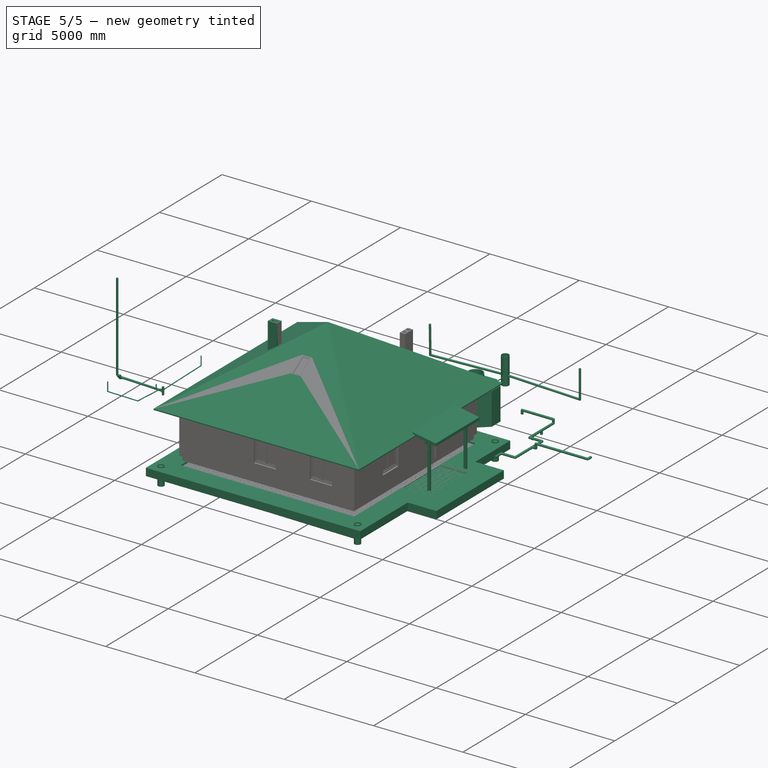
[diagram: stage 5 of 5 — iso view after this stage's code; geometry added in this stage tinted green]
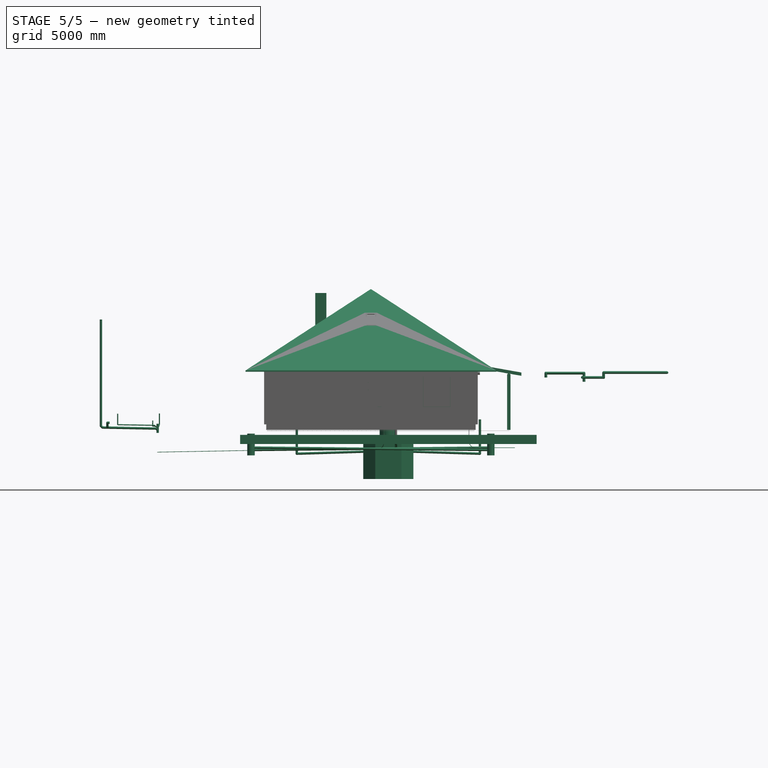
[diagram: stage 5 of 5 — front view after this stage's code; geometry added in this stage tinted green]
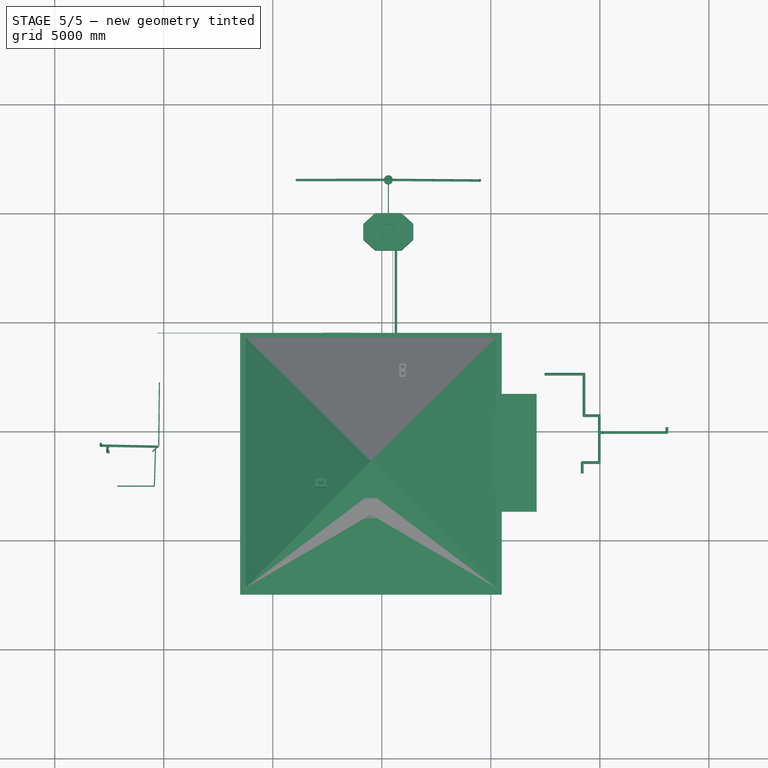
[diagram: stage 5 of 5 — top view after this stage's code; geometry added in this stage tinted green]
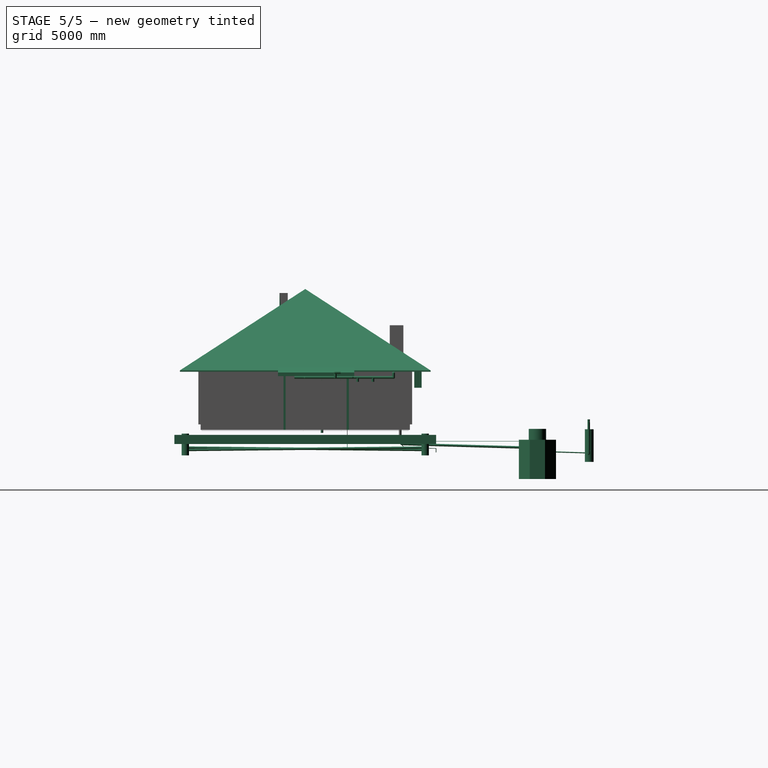
[diagram: stage 5 of 5 — right view after this stage's code; geometry added in this stage tinted green]
FEATURE [Part::Part2DObjectPython] Rectangle007  label="кровать_2_сп_005"  # Draft 2D object (typed FeaturePython)
  ChamferSize = 0
  Columns = 1
  FilletRadius = 25
  Height = 1700
  Length = 2100
  MakeFace = false
  Placement = pos=(6119.35,-2870.85,0) rot=(1,0,0;3.14159rad)
  Rows = 1
FEATURE [Part::Part2DObjectPython] Rectangle009  label="подушка_001"  # Draft 2D object (typed FeaturePython)
  ChamferSize = 0
  Columns = 1
  FilletRadius = 75
  Height = 600
  Length = 500
  MakeFace = false
  Placement = pos=(6163.48,-3086.15,0) rot=(1,0,0;3.14159rad)
  Rows = 1
FEATURE [Part::Feature] Face  label="Водогрей"
  Placement = pos=(8850,1400,1200) rot=(0,0,1;3.14159rad)
  shape: bbox 500 x 450 x 2e-07 mm, 1 faces, 0 solids (baked)
FEATURE [Part::Part2DObjectPython] Ellipse  # Draft 2D object (typed FeaturePython)
  FirstAngle = 0
  LastAngle = 0
  MajorRadius = 163.5
  MakeFace = false
  MinorRadius = 136.114
  Placement = pos=(5344.88,1910.6,400) rot=(0,0,-1;1.5708rad)
FEATURE [Part::Feature] Face002
  Placement = pos=(6849.32,-348.818,400) rot=(0,0,1;3.14159rad)
  shape: bbox 400 x 700 x 2e-07 mm, 1 faces, 0 solids (baked)
FEATURE [Part::Feature] Face001  label="умывальник"
  Placement = pos=(2900,-2400,600) rot=(0,0,1;1.5708rad)
  shape: bbox 353.2 x 600 x 2e-07 mm, 1 faces, 0 solids (baked)
FEATURE [Part::Part2DObjectPython] Ellipse001  # Draft 2D object (typed FeaturePython)
  FirstAngle = 0
  LastAngle = 0
  MajorRadius = 200.765
  MakeFace = false
  MinorRadius = 76.8815
  Placement = pos=(4723.12,1900.77,800) rot=(0,0,1;1.5708rad)
FEATURE [Part::Extrusion] Extrude034  label="подушка_005"
  Base = -> Rectangle009
  Dir = (0,0,1)
  DirMode = 0
  FaceMakerClass = Part::FaceMakerBullseye
  LengthFwd = 150
  LengthRev = 0
  Placement = pos=(0,0,300) rot=(0,0,1;0rad)
  Solid = true
  Symmetric = false
FEATURE [Part::Extrusion] Extrude037  label="кровать_15_сп_002"
  Base = -> Rectangle007
  Dir = (0,0,1)
  DirMode = 0
  FaceMakerClass = Part::FaceMakerBullseye
  LengthFwd = 300
  LengthRev = 0
  Solid = true
  Symmetric = false
FEATURE [Part::Extrusion] Extrude043  label="Водогрей001"
  Base = -> Face
  Dir = (0,0,1)
  DirMode = 0
  FaceMakerClass = Part::FaceMakerBullseye
  LengthFwd = 1100
  LengthRev = 0
  Solid = false
  Symmetric = false
FEATURE [Part::Extrusion] Extrude045  label="умывальник002"
  Base = -> Face001
  Dir = (0,0,1)
  DirMode = 0
  FaceMakerClass = Part::FaceMakerBullseye
  LengthFwd = 200
  LengthRev = 0
  Solid = false
  Symmetric = false
FEATURE [Part::Part2DObjectPython] DWire002  # Draft 2D object (typed FeaturePython)
  ChamferSize = 0
  Closed = true
  End = (5150,2350,400)
  FilletRadius = 0
  Length = 1202.35
  MakeFace = false
  Placement = pos=(6849.32,-348.818,-100) rot=(0,0,1;3.14159rad)
  Points = (4) [(1299.32,-2698.82,500),(1299.32,-2497.64,500),(1699.32,-2497.64,500),(1699.32,-2698.82,500)]
  Start = (5550,2350,400)
  Subdivisions = 0
FEATURE [Part::Extrusion] Extrude046  label="унитаз002"
  Base = -> Face002
  Dir = (0,0,-1)
  DirMode = 0
  FaceMakerClass = Part::FaceMakerBullseye
  LengthFwd = 400
  LengthRev = 0
  Solid = true
  Symmetric = false
FEATURE [Part::Extrusion] Extrude047  label="унитаз003"
  Base = -> DWire002
  Dir = (0,0,1)
  DirMode = 0
  FaceMakerClass = Part::FaceMakerBullseye
  LengthFwd = 350
  LengthRev = 0
  Solid = true
  Symmetric = false
FEATURE [Part::Fuse] Fusion002  label="унитаз001"
  Base = -> Extrude046
  Tool = -> Extrude047
FEATURE [App::DocumentObjectGroup] Group010  label="Унитаз"
  Group = -> [Ellipse,Face002,DWire002,Fusion002]
FEATURE [Part::Part2DObjectPython] Rectangle361  label="кух.зона"  # Draft 2D object (typed FeaturePython)
  ChamferSize = 0
  Columns = 1
  FilletRadius = 0
  Height = 2150
  Length = 700
  MakeFace = false
  Placement = pos=(3100,2300,0) rot=(0,0,1;1.5708rad)
  Rows = 1
FEATURE [Part::Part2DObjectPython] Rectangle362  label="проём_032"  # Draft 2D object (typed FeaturePython)
  ChamferSize = 0
  Columns = 1
  FilletRadius = 0
  Height = 100
  Length = 700
  MakeFace = true
  Placement = pos=(4800,1000,0) rot=(0,0,1;3.14159rad)
  Rows = 1
FEATURE [Part::Part2DObjectPython] Rectangle363  label="проём_033"  # Draft 2D object (typed FeaturePython)
  ChamferSize = 0
  Columns = 1
  FilletRadius = 0
  Height = 100
  Length = 700
  MakeFace = true
  Placement = pos=(5100,900,0) rot=(0,0,-1;0rad)
  Rows = 1
FEATURE [Part::Part2DObjectPython] Rectangle364  label="проём_034"  # Draft 2D object (typed FeaturePython)
  ChamferSize = 0
  Columns = 1
  FilletRadius = 0
  Height = 1000
  Length = 100
  MakeFace = true
  Placement = pos=(7200,-800,0) rot=(0,0,1;0rad)
  Rows = 1
FEATURE [Part::Part2DObjectPython] Rectangle365  label="проём_двери_входной"  # Draft 2D object (typed FeaturePython)
  ChamferSize = 0
  Columns = 1
  FilletRadius = 0
  Height = 300
  Length = 1000
  MakeFace = true
  Placement = pos=(9000,190,0) rot=(0,0,-1;1.5708rad)
  Rows = 1
FEATURE [Part::Part2DObjectPython] Rectangle367  label="проём_036"  # Draft 2D object (typed FeaturePython)
  ChamferSize = 0
  Columns = 1
  FilletRadius = 0
  Height = 1200
  Length = 200
  MakeFace = true
  Placement = pos=(3100,-500,0) rot=(0,0,1;0rad)
  Rows = 1
FEATURE [Part::Part2DObjectPython] Rectangle372  label="проём_058"  # Draft 2D object (typed FeaturePython)
  ChamferSize = 0
  Columns = 1
  FilletRadius = 0
  Height = 100
  Length = 900
  MakeFace = true
  Placement = pos=(6200,700,0) rot=(0,0,1;0rad)
  Rows = 1
FEATURE [Part::Part2DObjectPython] Rectangle374  label="проём_038"  # Draft 2D object (typed FeaturePython)
  ChamferSize = 0
  Columns = 1
  FilletRadius = 0
  Height = 1360
  Length = 300
  MakeFace = true
  Placement = pos=(5065,-6300,0) rot=(0,0,1;1.5708rad)
  Rows = 1
FEATURE [Part::Part2DObjectPython] Rectangle375  label="проём_039"  # Draft 2D object (typed FeaturePython)
  ChamferSize = 0
  Columns = 1
  FilletRadius = 0
  Height = 300
  Length = 1360
  MakeFace = true
  Placement = pos=(7805,3300,0) rot=(0,0,1;3.14159rad)
  Rows = 1
FEATURE [Part::Part2DObjectPython] Rectangle377  label="проём_001"  # Draft 2D object (typed FeaturePython)
  ChamferSize = 0
  Columns = 1
  FilletRadius = 0
  Height = 300
  Length = 510
  MakeFace = true
  Placement = pos=(4155,3000,0) rot=(0,0,1;0rad)
  Rows = 1
FEATURE [Part::Part2DObjectPython] Rectangle381  label="дымоход"  # Draft 2D object (typed FeaturePython)
  ChamferSize = 0
  Columns = 1
  FilletRadius = 0
  Height = 380
  Length = 510
  MakeFace = false
  Placement = pos=(2455,-2300,0) rot=(0,0,1;3.14159rad)
  Rows = 1
FEATURE [Part::Part2DObjectPython] Wire062  label="стена_068"  # Draft 2D object (typed FeaturePython)
  ChamferSize = 0
  Closed = true
  End = (9000,800,0)
  FilletRadius = 0
  Length = 15000
  MakeFace = true
  Placement = pos=(9175,2850,0) rot=(0,0,1;0rad)
  Points = (12) [(-175,-2150,0),(-1875,-2150,0),(-1875,-3750,0),(-175,-3750,0),(-175,-3850,0),(-3075,-3850,0),(-3075,-3750,0),(-1975,-3750,0),(-1975,-2150,0),+3 more]
  Start = (9000,700,0)
  Subdivisions = 0
FEATURE [Part::Part2DObjectPython] Rectangle382  label="проём_041"  # Draft 2D object (typed FeaturePython)
  ChamferSize = 0
  Columns = 1
  FilletRadius = 0
  Height = 200
  Length = 900
  MakeFace = true
  Placement = pos=(4300,-2900,0) rot=(0,0,1;0rad)
  Rows = 1
FEATURE [Part::Part2DObjectPython] Rectangle387  label="проём в плите под лестн. 001"  # Draft 2D object (typed FeaturePython)
  ChamferSize = 0
  Columns = 1
  FilletRadius = 0
  Height = 1400
  Length = 800
  MakeFace = false
  Placement = pos=(3300,-2700,0) rot=(0,0,1;0rad)
  Rows = 1
FEATURE [Part::FeaturePython] Structure177  label="проём в плите под лестн."  # Arch/BIM object (typed FeaturePython)
  Base = -> Rectangle387
  FaceMaker = 0
  Height = 400
  HorizontalArea = 1120000
  IfcRole = 0
  Length = 0
  MoveWithHost = false
  Nodes = (2) [(5450,5550,0),(5450,5550,500)]
  NodesOffset = 0
  Normal = (0,0,0)
  PerimeterLength = 4400
  Placement = pos=(0,0,2570) rot=(0,0,1;0rad)
  VerticalArea = 1760000
  Width = 100
FEATURE [Part::FeaturePython] Structure178  label="проём_дымохода"  # Arch/BIM object (typed FeaturePython)
  Base = -> Rectangle381
  FaceMaker = 0
  Height = 3000
  HorizontalArea = 193800
  IfcRole = 0
  Length = 0
  MoveWithHost = false
  Nodes = (2) [(3838.98,5661.82,0),(3838.98,5661.82,500)]
  NodesOffset = 0
  Normal = (0,0,0)
  PerimeterLength = 1780
  Placement = pos=(0,0,2570) rot=(0,0,1;0rad)
  VerticalArea = 5340000
  Width = 100
FEATURE [Part::Part2DObjectPython] Wire069  label="крыша_кромка"  # Draft 2D object (typed FeaturePython)
  ChamferSize = 0
  Closed = true
  End = (10000,4000,2450)
  FilletRadius = 0
  Length = 44000
  MakeFace = false
  Placement = pos=(-425,2800,2450) rot=(0,0,1;0rad)
  Points = (4) [(-575,1200,0),(-575,-9800,0),(10425,-9800,0),(10425,1200,0)]
  Start = (-1000,4000,2450)
  Subdivisions = 0
FEATURE [Part::Part2DObjectPython] Rectangle395  label="проём_045"  # Draft 2D object (typed FeaturePython)
  ChamferSize = 0
  Columns = 1
  FilletRadius = 0
  Height = 300
  Length = 1360
  MakeFace = true
  Placement = pos=(-300,-3215,0) rot=(0,0,-1;1.5708rad)
  Rows = 1
FEATURE [Part::Part2DObjectPython] Rectangle398  # Draft 2D object (typed FeaturePython)
  ChamferSize = 0
  Columns = 1
  FilletRadius = 0
  Height = 300
  Length = 0
  MakeFace = false
  Placement = pos=(6000,5700,0) rot=(0,0,1;0rad)
  Rows = 1
FEATURE [Part::Part2DObjectPython] Rectangle399  label="ванна_180х75_001"  # Draft 2D object (typed FeaturePython)
  ChamferSize = 0
  Columns = 1
  FilletRadius = 0
  Height = 750
  Length = 1800
  MakeFace = false
  Placement = pos=(4050,1200,0) rot=(0,0,1;1.5708rad)
  Rows = 1
FEATURE [Part::Part2DObjectPython] Ellipse002  # Draft 2D object (typed FeaturePython)
  FirstAngle = 0
  LastAngle = 0
  MajorRadius = 800
  MakeFace = false
  MinorRadius = 250
  Placement = pos=(3675,2100,650) rot=(0,0,1;1.5708rad)
FEATURE [Part::FeaturePython] Structure180  label="Ванна_003"  # Arch/BIM object (typed FeaturePython)
  Base = -> Ellipse002
  FaceMaker = 0
  Height = 400
  HorizontalArea = 628319
  IfcRole = 0
  Length = 0
  MoveWithHost = true
  Nodes = (2) [(3675,2100,650),(3675,2100,250)]
  NodesOffset = 0
  Normal = (0,0,-1)
  PerimeterLength = 3547.07
  VerticalArea = 1.4122e+06
  Width = 100
FEATURE [Part::FeaturePython] Structure179  label="Ванна_002"  # Arch/BIM object (typed FeaturePython)
  Base = -> Rectangle399
  FaceMaker = 0
  Height = 650
  HorizontalArea = 1.35e+06
  IfcRole = 0
  Length = 0
  MoveWithHost = false
  Nodes = (2) [(7375,2550,0),(7375,2550,650)]
  NodesOffset = 0
  Normal = (0,0,0)
  PerimeterLength = 1860
  Subtractions = -> [Structure180]
  VerticalArea = 4.7272e+06
  Width = 100
FEATURE [App::GeometryPython] BuildingPart037  label="Ванна"  # Arch/BIM object (typed FeaturePython)
  Area = 0
  Group = -> [Structure179]
  Height = 0
  IfcRole = 0
  LevelOffset = 0
FEATURE [Part::Part2DObjectPython] Rectangle403  label="кровать_2сп_002"  # Draft 2D object (typed FeaturePython)
  ChamferSize = 0
  Columns = 1
  FilletRadius = 25
  Height = 1700
  Length = 2100
  MakeFace = false
  Placement = pos=(1454.85,-5992.82,0) rot=(0.707107,0.707107,0;3.14159rad)
  Rows = 1
FEATURE [Part::Part2DObjectPython] Rectangle404  label="подушка_007"  # Draft 2D object (typed FeaturePython)
  ChamferSize = 0
  Columns = 1
  FilletRadius = 75
  Height = 700
  Length = 500
  MakeFace = false
  Placement = pos=(2354.85,-5892.82,0) rot=(0.707107,0.707107,0;3.14159rad)
  Rows = 1
FEATURE [Part::Part2DObjectPython] Rectangle405  label="подушка_008"  # Draft 2D object (typed FeaturePython)
  ChamferSize = 0
  Columns = 1
  FilletRadius = 75
  Height = 700
  Length = 500
  MakeFace = false
  Placement = pos=(1554.85,-5892.82,0) rot=(0.707107,0.707107,0;3.14159rad)
  Rows = 1
FEATURE [Part::Extrusion] Extrude051  label="подушка_009"
  Base = -> Rectangle404
  Dir = (0,0,1)
  DirMode = 0
  FaceMakerClass = Part::FaceMakerBullseye
  LengthFwd = 150
  LengthRev = 0
  Placement = pos=(0,0,300) rot=(0,0,1;0rad)
  Solid = true
  Symmetric = false
FEATURE [Part::Extrusion] Extrude052  label="подушка_010"
  Base = -> Rectangle405
  Dir = (0,0,1)
  DirMode = 0
  FaceMakerClass = Part::FaceMakerBullseye
  LengthFwd = 150
  LengthRev = 0
  Placement = pos=(0,0,300) rot=(0,0,1;0rad)
  Solid = true
  Symmetric = false
FEATURE [Part::Extrusion] Extrude053  label="кровать_2_сп_003"
  Base = -> Rectangle403
  Dir = (0,0,1)
  DirMode = 0
  FaceMakerClass = Part::FaceMakerBullseye
  LengthFwd = 300
  LengthRev = 0
  Solid = true
  Symmetric = false
FEATURE [App::DocumentObjectGroup] Group038  label="кровать_2_сп_004"
  Group = -> [Extrude053,Extrude051,Extrude052]
FEATURE [Part::FeaturePython] Structure185  label="кух.зона 002"  # Arch/BIM object (typed FeaturePython)
  Base = -> Rectangle361
  FaceMaker = 0
  Height = 900
  HorizontalArea = 1.505e+06
  IfcRole = 0
  Length = 0
  MoveWithHost = false
  Nodes = (2) [(-4700,-6400,0),(-4700,-6400,800)]
  NodesOffset = 0
  Normal = (0,0,0)
  PerimeterLength = 5700
  VerticalArea = 5.13e+06
  Width = 100
FEATURE [Part::FeaturePython] Structure188  label="дверь_входная"  # Arch/BIM object (typed FeaturePython)
  Base = -> Rectangle365
  FaceMaker = 0
  Height = 2400
  HorizontalArea = 300000
  IfcRole = 0
  Length = 0
  MoveWithHost = false
  Nodes = (2) [(-4225,7937.5,0),(-4225,7937.5,2250)]
  NodesOffset = 0
  Normal = (0,0,0)
  PerimeterLength = 2600
  Placement = pos=(0,0,-80) rot=(0,0,1;0rad)
  VerticalArea = 6.24e+06
  Width = 100
FEATURE [Part::FeaturePython] Structure192  label="окно_бол_001"  # Arch/BIM object (typed FeaturePython)
  Base = -> Rectangle374
  FaceMaker = 0
  Height = 1500
  HorizontalArea = 408000
  IfcRole = 0
  Length = 0
  MoveWithHost = false
  Nodes = (2) [(1187.5,6500,0),(1187.5,6500,1500)]
  NodesOffset = 0
  Normal = (0,0,0)
  PerimeterLength = 3320
  Placement = pos=(0,0,820) rot=(0,0,1;0rad)
  VerticalArea = 4980000
  Width = 100
FEATURE [Part::FeaturePython] Structure193  label="окно_бол_016"  # Arch/BIM object (typed FeaturePython)
  Base = -> Rectangle375
  FaceMaker = 0
  Height = 1500
  HorizontalArea = 408000
  IfcRole = 0
  Length = 0
  MoveWithHost = false
  Nodes = (2) [(-2125,-187.5,0),(-2125,-187.5,1500)]
  NodesOffset = 0
  Normal = (0,0,0)
  PerimeterLength = 3320
  Placement = pos=(0,0,820) rot=(0,0,1;0rad)
  VerticalArea = 4980000
  Width = 100
FEATURE [Part::FeaturePython] Structure194  label="окно_бол_015"  # Arch/BIM object (typed FeaturePython)
  Base = -> Rectangle395
  FaceMaker = 0
  Height = 1500
  HorizontalArea = 408000
  IfcRole = 0
  Length = 0
  MoveWithHost = false
  Nodes = (2) [(7937.5,-2125,0),(7937.5,-2125,1500)]
  NodesOffset = 0
  Normal = (0,0,0)
  PerimeterLength = 3320
  Placement = pos=(0,0,820) rot=(0,0,1;0rad)
  VerticalArea = 4980000
  Width = 100
FEATURE [Part::FeaturePython] Structure195  label="окно_мал_001"  # Arch/BIM object (typed FeaturePython)
  Base = -> Rectangle377
  FaceMaker = 0
  Height = 500
  HorizontalArea = 153000
  IfcRole = 0
  Length = 0
  MoveWithHost = false
  Nodes = (2) [(-187.5,2950,0),(-187.5,2950,500)]
  NodesOffset = 0
  Normal = (0,0,0)
  PerimeterLength = 1620
  Placement = pos=(0,0,1570) rot=(0,0,1;0rad)
  VerticalArea = 810000
  Width = 100
FEATURE [Part::Part2DObjectPython] Rectangle412  label="кух.зона002"  # Draft 2D object (typed FeaturePython)
  ChamferSize = 0
  Columns = 1
  FilletRadius = 0
  Height = 2150
  Length = 500
  MakeFace = false
  Placement = pos=(3100,2500,0) rot=(0,0,1;1.5708rad)
  Rows = 1
FEATURE [Part::FeaturePython] Structure  label="кух.зона 001"  # Arch/BIM object (typed FeaturePython)
  Base = -> Rectangle412
  FaceMaker = 0
  Height = 800
  HorizontalArea = 1.075e+06
  IfcRole = 0
  Length = 0
  MoveWithHost = false
  Nodes = (2) [(-4700,-6400,0),(-4700,-6400,800)]
  NodesOffset = 0
  Normal = (0,0,0)
  PerimeterLength = 5300
  Placement = pos=(0,0,1500) rot=(0,0,1;0rad)
  VerticalArea = 4.24e+06
  Width = 100
FEATURE [Part::Part2DObjectPython] Rectangle416  label="проём_в_утепл_лестн. 001"  # Draft 2D object (typed FeaturePython)
  ChamferSize = 0
  Columns = 1
  FilletRadius = 0
  Height = 1700
  Length = 1025
  MakeFace = false
  Placement = pos=(3837.5,700,3410) rot=(0,0,1;0rad)
  Rows = 1
FEATURE [Part::Part2DObjectPython] Rectangle423  # Draft 2D object (typed FeaturePython)
  ChamferSize = 0
  Columns = 1
  FilletRadius = 0
  Height = 150
  Length = 0
  MakeFace = false
  Placement = pos=(5575,8350,5466.07) rot=(0,0.707107,0.707107;3.14159rad)
  Rows = 1
FEATURE [Part::Part2DObjectPython] Rectangle425  # Draft 2D object (typed FeaturePython)
  ChamferSize = 0
  Columns = 1
  FilletRadius = 0
  Height = 2206.07
  Length = 0
  MakeFace = false
  Placement = pos=(2000,8350,3410) rot=(0,0.707107,0.707107;3.14159rad)
  Rows = 1
FEATURE [Part::Part2DObjectPython] Rectangle446  label="подушка"  # Draft 2D object (typed FeaturePython)
  ChamferSize = 0
  Columns = 1
  FilletRadius = 0
  Height = 12000
  Length = 12000
  MakeFace = false
  Placement = pos=(-1500,-7500,0) rot=(0,0,1;0rad)
  Rows = 1
FEATURE [Part::FeaturePython] Structure160  label="Подушка песок h0.3"  # Arch/BIM object (typed FeaturePython)
  Base = -> Rectangle446
  FaceMaker = 0
  Height = 300
  HorizontalArea = 144000000
  IfcRole = 0
  Length = 0
  MoveWithHost = false
  Nodes = (2) [(3875,3875,0),(3875,3875,350)]
  NodesOffset = 0
  Normal = (0,0,0)
  PerimeterLength = 48000
  Placement = pos=(0,0,-830) rot=(0,0,1;0rad)
  VerticalArea = 14400000
  Width = 100
FEATURE [Part::FeaturePython] Wall  label="дымоход002"  # Arch/BIM object (typed FeaturePython)
  Align = 1
  Base = -> Rectangle381
  BlockHeight = 65
  BlockLength = 250
  CountBroken = 262
  CountEntire = 0
  Face = 0
  Height = 4000
  HorizontalArea = 156000
  IfcRole = 156
  Joint = 5
  Length = 1780
  MakeBlocks = false
  MoveWithHost = false
  Normal = (0,0,0)
  OffsetFirst = 0
  OffsetSecond = 125
  PerimeterLength = 1780
  Placement = pos=(0,0,2100) rot=(0,0,1;0rad)
  VerticalArea = 10400000
  Width = 120
FEATURE [Part::FeaturePython] Structure239  label="Подушка_крыльца_песок h0.3"  # Arch/BIM object (typed FeaturePython)
  Base = -> Rectangle483
  FaceMaker = 0
  Height = 300
  HorizontalArea = 8.64e+06
  IfcRole = 0
  Length = 0
  MoveWithHost = false
  Nodes = (2) [(-2100,3200,0),(-2100,3200,-300)]
  NodesOffset = 0
  Normal = (0,0,-1)
  PerimeterLength = 14000
  Placement = pos=(0,0,-530) rot=(0,0,1;0rad)
  VerticalArea = 4.2e+06
  Width = 100
FEATURE [Part::Part2DObjectPython] Wire096  label="отмостка_утепл_контур"  # Draft 2D object (typed FeaturePython)
  ChamferSize = 0
  Closed = true
  End = (10500,-7500,0)
  FilletRadius = 0
  Length = 51200
  MakeFace = false
  Placement = pos=(8025,8475,0) rot=(0,0,-1;0rad)
  Points = (8) [(-9525,-15975,0),(-9525,-3975,0),(2475,-3975,0),(2475,-6775,0),(4075,-6775,0),(4075,-12175,0),(2475,-12175,0),(2475,-15975,0)]
  Start = (-1500,-7500,0)
  Subdivisions = 0
FEATURE [Part::FeaturePython] Wall068  label="Утепление отмостки 50мм ЭППС"  # Arch/BIM object (typed FeaturePython)
  Align = 0
  Base = -> Wire096
  BlockHeight = 0
  BlockLength = 0
  CountBroken = 0
  CountEntire = 0
  Face = 0
  Height = 50
  HorizontalArea = 5.568e+07
  IfcRole = 156
  Joint = 0
  Length = 51200
  MakeBlocks = false
  MoveWithHost = false
  Normal = (0,0,0)
  OffsetFirst = 0
  OffsetSecond = 0
  PerimeterLength = 51200
  Placement = pos=(0,0,-530) rot=(0,0,1;0rad)
  VerticalArea = 4640000
  Width = 1200
FEATURE [Part::FeaturePython] Structure242  label="Утепление плиты крыльца 50мм ЭППС"  # Arch/BIM object (typed FeaturePython)
  Base = -> Rectangle482
  FaceMaker = 0
  Height = 50
  HorizontalArea = 4.65e+06
  IfcRole = 0
  Length = 0
  MoveWithHost = false
  Nodes = (2) [(3900,-2150,0),(3900,-2150,50)]
  NodesOffset = 0
  Normal = (0,0,0)
  PerimeterLength = 9100
  Placement = pos=(0,0,-530) rot=(0,0,1;0rad)
  VerticalArea = 455000
  Width = 100
FEATURE [Part::FeaturePython] Structure243  label="прогон 012"  # Arch/BIM object (typed FeaturePython)
  FaceMaker = 0
  Height = 150
  HorizontalArea = 350000
  IfcRole = 8
  Length = 3500
  MoveWithHost = false
  Nodes = (2) [(0,0,2.77556e-16),(0,0,3500)]
  NodesOffset = 0
  Normal = (0,0,0)
  PerimeterLength = 7200
  Placement = pos=(10825,-2750,2360) rot=(0,0,1;1.5708rad)
  VerticalArea = 1080000
  Width = 100
FEATURE [Part::FeaturePython] Structure244  label="стойка 001"  # Arch/BIM object (typed FeaturePython)
  FaceMaker = 0
  Height = 2550
  HorizontalArea = 15000
  IfcRole = 8
  Length = 150
  MoveWithHost = false
  Nodes = (2) [(2.77556e-16,0,0),(2.77556e-16,0,2550)]
  NodesOffset = 0
  Normal = (0,0,0)
  PerimeterLength = 500
  Placement = pos=(10825,-2450,-180) rot=(0,0,1;0rad)
  VerticalArea = 1275000
  Width = 100
FEATURE [Part::FeaturePython] Structure245  label="стойка 002"  # Arch/BIM object (typed FeaturePython)
  FaceMaker = 0
  Height = 2550
  HorizontalArea = 15000
  IfcRole = 8
  Length = 150
  MoveWithHost = false
  Nodes = (2) [(2.77556e-16,0,0),(2.77556e-16,0,2550)]
  NodesOffset = 0
  Normal = (0,0,0)
  PerimeterLength = 500
  Placement = pos=(10825,450,-180) rot=(0,0,1;0rad)
  VerticalArea = 1275000
  Width = 100
FEATURE [Part::Part2DObjectPython] Wire100  label="перегородка_004"  # Draft 2D object (typed FeaturePython)
  ChamferSize = 0
  Closed = true
  End = (5000,3000,0)
  FilletRadius = 0
  Length = 9400
  MakeFace = true
  Placement = pos=(2200,4200,0) rot=(0,0,1;0rad)
  Points = (8) [(2800,-3200,0),(3700,-3200,0),(3700,-3300,0),(1100,-3300,0),(1100,-3200,0),(2700,-3200,0),(2700,-1200,0),(2800,-1200,0)]
  Start = (5000,1000,0)
  Subdivisions = 0
FEATURE [Part::Part2DObjectPython] Rectangle496  # Draft 2D object (typed FeaturePython)
  ChamferSize = 0
  Columns = 1
  FilletRadius = 0
  Height = 2500
  Length = 0
  MakeFace = false
  Placement = pos=(0,5700,0) rot=(0.57735,0.57735,0.57735;2.0944rad)
  Rows = 1
FEATURE [Part::Part2DObjectPython] Wire103  label="стояк_кан."  # Draft 2D object (typed FeaturePython)
  ChamferSize = 0
  Closed = true
  End = (-5282,-732,100)
  FilletRadius = 0
  Length = 300
  MakeFace = false
  Placement = pos=(-5282,-732,-200) rot=(0,0,1;0rad)
  Points = (2) [(0,0,0),(0,0,300)]
  Start = (-5282,-732,-200)
  Subdivisions = 0
FEATURE [Part::FeaturePython] Pipe  label="стояк канализационный D110"  # Arch/BIM object (typed FeaturePython)
  Base = -> Wire103
  Diameter = 110
  HorizontalArea = 0
  IfcRole = 98
  Length = 300
  MoveWithHost = false
  OffsetEnd = 0
  OffsetStart = 0
  PerimeterLength = 0
  VerticalArea = 0
FEATURE [Part::Part2DObjectPython] Rectangle504  # Draft 2D object (typed FeaturePython)
  ChamferSize = 0
  Columns = 1
  FilletRadius = 0
  Height = 0
  Length = 200
  MakeFace = false
  Placement = pos=(5450,7650,4250) rot=(0,0,1;0rad)
  Rows = 1
FEATURE [Part::Part2DObjectPython] Line353  # Draft 2D object (typed FeaturePython)
  ChamferSize = 0
  Closed = false
  End = (5649.18,2849.18,98.1939)
  FilletRadius = 0
  Length = 800
  MakeFace = false
  Placement = pos=(5649.18,2849.18,-701.806) rot=(0,0,1;0rad)
  Points = (2) [(0,0,0),(0,0,800)]
  Start = (5649.18,2849.18,-701.806)
  Subdivisions = 0
FEATURE [Part::FeaturePython] Pipe006  label="стояк D110 _001"  # Arch/BIM object (typed FeaturePython)
  Base = -> Line353
  Diameter = 110
  HorizontalArea = 0
  IfcRole = 98
  Length = 800
  MoveWithHost = false
  OffsetEnd = 0
  OffsetStart = 0
  PerimeterLength = 0
  VerticalArea = 0
FEATURE [Part::Part2DObjectPython] Wire118  # Draft 2D object (typed FeaturePython)
  ChamferSize = 0
  Closed = false
  End = (-5282,-732,-6.23453)
  FilletRadius = 0
  Length = 182
  MakeFace = false
  Placement = pos=(-5282,-732,-138.235) rot=(-0.477077,0.621449,0.621449;4.03188rad)
  Points = (3) [(-4.54747e-12,-50,-5.45697e-12),(0,41,9.10383e-15),(0,132,0)]
  Start = (-5282,-732,-188.235)
  Subdivisions = 0
FEATURE [Part::Part2DObjectPython] Wire119  # Draft 2D object (typed FeaturePython)
  ChamferSize = 0
  Closed = false
  End = (-5334,-784,-23.6954)
  FilletRadius = 0
  Length = 208
  MakeFace = false
  Placement = pos=(-5230,-680,-23.6954) rot=(-0.281085,0.678598,0.678598;3.68962rad)
  Points = (3) [(0,0,0),(73.5391,-73.5391,8.90914e-13),(147.078,1.39266e-12,4.6839e-11)]
  Start = (-5230,-680,-23.6954)
  Subdivisions = 0
FEATURE [Part::Part2DObjectPython] Rectangle506  # Draft 2D object (typed FeaturePython)
  ChamferSize = 0
  Columns = 1
  FilletRadius = 0
  Height = 600
  Length = 200
  MakeFace = false
  Placement = pos=(4700,1600,0) rot=(0,0,-1;0rad)
  Rows = 1
FEATURE [Part::FeaturePython] Structure250  label="короб_003"  # Arch/BIM object (typed FeaturePython)
  Base = -> Rectangle506
  FaceMaker = 0
  Height = 600
  HorizontalArea = 120000
  IfcRole = 0
  Length = 0
  MoveWithHost = false
  Nodes = (2) [(7650,6725,0),(7650,6725,200)]
  NodesOffset = 0
  Normal = (0,0,0)
  PerimeterLength = 1600
  VerticalArea = 960000
  Width = 100
FEATURE [App::DocumentObjectGroup] Group011  label="умывальник001"
  Group = -> [Face001,Ellipse001,Extrude045,Structure250]
FEATURE [Part::Part2DObjectPython] Wire127  # Draft 2D object (typed FeaturePython)
  ChamferSize = 0
  Closed = false
  End = (5649.18,2849.18,-701.806)
  FilletRadius = 0
  Length = 127.012
  MakeFace = true
  Placement = pos=(5649.18,2909.99,-803.63) rot=(0.678598,0.281085,0.678598;2.59356rad)
  Points = (4) [(0,0,0),(0,61,1.35447e-14),(0,86,1.90958e-14),(29,115,0)]
  Start = (5649.18,2909.99,-803.63)
  Subdivisions = 0
FEATURE [Part::Part2DObjectPython] Wire129  # Draft 2D object (typed FeaturePython)
  ChamferSize = 0
  Closed = false
  End = (5649.18,2909.99,-803.63)
  FilletRadius = 0
  Length = 127.012
  MakeFace = true
  Placement = pos=(5649.18,3024.99,-832.63) rot=(0.707107,0,0.707107;3.14159rad)
  Points = (4) [(0,0,0),(0,61,1.35447e-14),(0,86,1.90958e-14),(29,115,1.45519e-11)]
  Start = (5649.18,3024.99,-832.63)
  Subdivisions = 0
FEATURE [Part::FeaturePython] Pipe027  label="Отвод D110 (45) 002"  # Arch/BIM object (typed FeaturePython)
  Base = -> Wire129
  Diameter = 110
  HorizontalArea = 0
  IfcRole = 98
  Length = 127.012
  MoveWithHost = false
  OffsetEnd = 0
  OffsetStart = 0
  PerimeterLength = 0
  VerticalArea = 0
FEATURE [Part::FeaturePython] Pipe028  label="Отвод D110 (45) 001"  # Arch/BIM object (typed FeaturePython)
  Base = -> Wire127
  Diameter = 110
  HorizontalArea = 0
  IfcRole = 98
  Length = 127.012
  MoveWithHost = false
  OffsetEnd = 0
  OffsetStart = 0
  PerimeterLength = 0
  VerticalArea = 0
FEATURE [Part::Part2DObjectPython] Line394  # Draft 2D object (typed FeaturePython)
  ChamferSize = 0
  Closed = false
  End = (5649.18,8324.99,-982.63)
  FilletRadius = 0
  Length = 5302.12
  MakeFace = false
  Placement = pos=(5649.18,3024.99,-832.63) rot=(0,0,1;0rad)
  Points = (2) [(0,0,0),(-3.3518e-05,5300,-150)]
  Start = (5649.18,3024.99,-832.63)
  Subdivisions = 0
FEATURE [Part::FeaturePython] Pipe029  label="труба к септику D110"  # Arch/BIM object (typed FeaturePython)
  Base = -> Line394
  Diameter = 110
  HorizontalArea = 0
  IfcRole = 98
  Length = 5302.12
  MoveWithHost = false
  OffsetEnd = 0
  OffsetStart = 0
  PerimeterLength = 0
  VerticalArea = 0
FEATURE [Part::Part2DObjectPython] Circle  label="люк_нар."  # Draft 2D object (typed FeaturePython)
  FirstAngle = 0
  LastAngle = 0
  MakeFace = false
  Placement = pos=(5300,9149.18,-632.63) rot=(0,0,1;3.14159rad)
  Radius = 400
FEATURE [Part::Part2DObjectPython] Wire130  label="контур"  # Draft 2D object (typed FeaturePython)
  ChamferSize = 0
  Closed = true
  End = (6450,9499.18,-632.63)
  FilletRadius = 0
  Length = 6773.21
  MakeFace = false
  Placement = pos=(6450,8799.18,-632.63) rot=(0,0,1;3.14159rad)
  Points = (8) [(0,0,0),(550,500,0),(1750,500,0),(2300,0,0),(2300,-700,0),(1750,-1200,0),(550,-1200,0),(-1.18234e-11,-700,0)]
  Start = (6450,8799.18,-632.63)
  Subdivisions = 0
FEATURE [Part::Part2DObjectPython] Circle001  label="люк_внутр."  # Draft 2D object (typed FeaturePython)
  FirstAngle = 0
  LastAngle = 0
  MakeFace = false
  Placement = pos=(5300,9149.18,-632.63) rot=(0,0,1;3.14159rad)
  Radius = 350
FEATURE [Part::FeaturePython] Structure252  label="Structure003"  # Arch/BIM object (typed FeaturePython)
  Base = -> Wire130
  FaceMaker = 0
  Height = 100
  HorizontalArea = 3.36e+06
  IfcRole = 0
  Length = 0
  MoveWithHost = false
  Nodes = (2) [(5300,13950,-932.63),(5300,13950,-832.63)]
  NodesOffset = 0
  Normal = (0,0,1)
  PerimeterLength = 6773.21
  Placement = pos=(0,0,-1800) rot=(0,0,1;0rad)
  VerticalArea = 677321
  Width = 100
FEATURE [Part::FeaturePython] Wall073  label="Wall"  # Arch/BIM object (typed FeaturePython)
  Align = 1
  Base = -> Wire130
  BlockHeight = 0
  BlockLength = 0
  CountBroken = 0
  CountEntire = 0
  Face = 0
  Height = 1600
  HorizontalArea = 644162
  IfcRole = 156
  Joint = 0
  Length = 6773.21
  MakeBlocks = false
  MoveWithHost = false
  Normal = (0,0,-1)
  OffsetFirst = 0
  OffsetSecond = 0
  PerimeterLength = 6773.21
  Placement = pos=(0,0,-100) rot=(0,0,1;0rad)
  VerticalArea = 2.06132e+07
  Width = 100
FEATURE [Part::FeaturePython] Structure253  label="Structure004"  # Arch/BIM object (typed FeaturePython)
  Base = -> Circle001
  FaceMaker = 0
  Height = 600
  HorizontalArea = 384845
  IfcRole = 0
  Length = 0
  MoveWithHost = false
  Nodes = (2) [(13900,3799.18,-932.63),(13900,3799.18,-332.63)]
  NodesOffset = 0
  Normal = (0,0,0)
  PerimeterLength = 2199.11
  Placement = pos=(0,0,-100) rot=(0,0,1;0rad)
  VerticalArea = 1.31947e+06
  Width = 100
FEATURE [Part::FeaturePython] Structure251  label="Structure002"  # Arch/BIM object (typed FeaturePython)
  Base = -> Wire130
  FaceMaker = 0
  Height = 100
  HorizontalArea = 2.97515e+06
  IfcRole = 0
  Length = 0
  MoveWithHost = false
  Nodes = (2) [(5300,13950,-932.63),(5300,13950,-1032.63)]
  NodesOffset = 0
  Normal = (0,0,0)
  PerimeterLength = 6773.21
  Subtractions = -> [Structure253]
  VerticalArea = 897233
  Width = 100
FEATURE [Part::FeaturePython] Structure254  label="Structure005"  # Arch/BIM object (typed FeaturePython)
  Base = -> Circle
  FaceMaker = 0
  Height = 200
  HorizontalArea = 117810
  IfcRole = 0
  Length = 0
  MoveWithHost = false
  Nodes = (2) [(13900,3799.18,-932.63),(13900,3799.18,-732.63)]
  NodesOffset = 0
  Normal = (0,0,0)
  PerimeterLength = 2513.27
  Subtractions = -> [Structure253]
  VerticalArea = 942478
  Width = 100
FEATURE [Part::FeaturePython] Structure255  label="кольца проставочные"  # Arch/BIM object (typed FeaturePython)
  Base = -> Circle
  FaceMaker = 0
  Height = 300
  HorizontalArea = 117810
  IfcRole = 0
  Length = 0
  MoveWithHost = false
  Nodes = (2) [(13900,3799.18,-932.63),(13900,3799.18,-632.63)]
  NodesOffset = 0
  Normal = (0,0,0)
  PerimeterLength = 2513.27
  Placement = pos=(0,0,200) rot=(0,0,1;0rad)
  Subtractions = -> [Structure253]
  VerticalArea = 1.41372e+06
  Width = 100
FEATURE [App::GeometryPython] BuildingPart053  label="ЛОС Октагон-БИО"  # Arch/BIM object (typed FeaturePython)
  Area = 0
  Group = -> [Structure251,Structure252,Wall073,Structure254,Structure255]
  Height = 0
  IfcRole = 0
  LevelOffset = 0
FEATURE [Part::Part2DObjectPython] Circle004  # Draft 2D object (typed FeaturePython)
  FirstAngle = 0
  LastAngle = 0
  MakeFace = false
  Placement = pos=(5300,11524.2,300) rot=(0,0,1;0rad)
  Radius = 200
FEATURE [Part::Part2DObjectPython] Circle005  # Draft 2D object (typed FeaturePython)
  FirstAngle = 0
  LastAngle = 0
  MakeFace = false
  Placement = pos=(5300,11524.2,300) rot=(0,0,1;0rad)
  Radius = 174
FEATURE [Part::FeaturePython] Structure257  label="Structure007"  # Arch/BIM object (typed FeaturePython)
  Base = -> Circle005
  FaceMaker = 0
  Height = 1500
  HorizontalArea = 95114.9
  IfcRole = 0
  Length = 0
  MoveWithHost = false
  Nodes = (2) [(5300,11524.2,300),(5300,11524.2,-1200)]
  NodesOffset = 0
  Normal = (0,0,-1)
  PerimeterLength = 1093.27
  VerticalArea = 1.63991e+06
  Width = 100
FEATURE [Part::FeaturePython] Structure256  label="Structure006"  # Arch/BIM object (typed FeaturePython)
  Base = -> Circle004
  FaceMaker = 0
  Height = 1500
  HorizontalArea = 125664
  IfcRole = 0
  Length = 0
  MoveWithHost = false
  Nodes = (2) [(16275,3799.18,0),(16275,3799.18,-1500)]
  NodesOffset = 0
  Normal = (0,0,-1)
  PerimeterLength = 1256.64
  Placement = pos=(0,0,-450) rot=(0,0,1;0rad)
  Subtractions = -> [Structure257]
  VerticalArea = 3.03289e+06
  Width = 100
FEATURE [Part::FeaturePython] Structure258  label="Structure008"  # Arch/BIM object (typed FeaturePython)
  Base = -> Circle004
  FaceMaker = 0
  Height = 30
  HorizontalArea = 125664
  IfcRole = 0
  Length = 0
  MoveWithHost = false
  Nodes = (2) [(16275,3799.18,0),(16275,3799.18,30)]
  NodesOffset = 0
  Normal = (0,0,0)
  PerimeterLength = 1256.64
  Placement = pos=(0,0,-1950) rot=(0,0,1;0rad)
  VerticalArea = 37699.1
  Width = 100
FEATURE [App::GeometryPython] BuildingPart054  label="дренажный колодец D400 h1500 001"  # Arch/BIM object (typed FeaturePython)
  Area = 0
  Group = -> [Structure256,Structure258]
  Height = 0
  IfcRole = 0
  LevelOffset = 0
  Placement = pos=(0,0,1) rot=(0,0,1;0rad)
FEATURE [Part::Part2DObjectPython] Line402  # Draft 2D object (typed FeaturePython)
  ChamferSize = 0
  Closed = false
  End = (5300,11350.2,-1232.63)
  FilletRadius = 0
  Length = 1351.59
  MakeFace = false
  Placement = pos=(5300,9999.18,-1192.63) rot=(0,0,1;0rad)
  Points = (2) [(0,0,0),(9.09495e-13,1351,-40)]
  Start = (5300,9999.18,-1192.63)
  Subdivisions = 0
FEATURE [Part::FeaturePython] Pipe030  label="труба отводящяя D50"  # Arch/BIM object (typed FeaturePython)
  Base = -> Line402
  Diameter = 50
  HorizontalArea = 0
  IfcRole = 98
  Length = 1351.59
  MoveWithHost = false
  OffsetEnd = 0
  OffsetStart = 0
  PerimeterLength = 0
  VerticalArea = 0
FEATURE [Part::Part2DObjectPython] Wire131  # Draft 2D object (typed FeaturePython)
  ChamferSize = 0
  Closed = false
  End = (9500,11500,300)
  FilletRadius = 0
  Length = 11543.9
  MakeFace = false
  Placement = pos=(1100,11524.2,350) rot=(0,0,1;0rad)
  Points = (6) [(-5.45697e-12,-24.1817,-50),(-4.54747e-13,0,-1620),(4000,0,-1500),(4400,0,-1500),(8400,-24.18,-1620),(8400,-24.1817,-50)]
  Start = (1100,11500,300)
  Subdivisions = 0
FEATURE [Part::FeaturePython] Pipe031  label="Фильтрационная траншея"  # Arch/BIM object (typed FeaturePython)
  Base = -> Wire131
  Diameter = 110
  HorizontalArea = 0
  IfcRole = 98
  Length = 11543.9
  MoveWithHost = false
  OffsetEnd = 0
  OffsetStart = 0
  PerimeterLength = 0
  VerticalArea = 0
FEATURE [Part::FeaturePython] Point  # WARN: FeaturePython — macro-defined, semantics opaque (R4)
  X = 4500
  Y = -1500
  Z = 0
FEATURE [Part::Part2DObjectPython] Rectangle518  label="Внутренний блок сплит-системы_001"  # Draft 2D object (typed FeaturePython)
  ChamferSize = 0
  Columns = 1
  FilletRadius = 0
  Height = 700
  Length = 1000
  MakeFace = false
  Placement = pos=(5100,-400,0) rot=(0,0,1;1.5708rad)
  Rows = 1
FEATURE [Part::Part2DObjectPython] Rectangle519  label="Внешний блок сплит-системы_001"  # Draft 2D object (typed FeaturePython)
  ChamferSize = 0
  Columns = 1
  FilletRadius = 0
  Height = 880
  Length = 340
  MakeFace = false
  Placement = pos=(3080,3500,0) rot=(0,0,1;1.5708rad)
  Rows = 1
FEATURE [Part::Part2DObjectPython] Wire142  label="приёмный_воздуховод_001"  # Draft 2D object (typed FeaturePython)
  ChamferSize = 0
  Closed = false
  End = (3650,850,-2250)
  FilletRadius = 0
  Length = 4250
  MakeFace = true
  Placement = pos=(4887.5,675,0) rot=(0,0,1;0rad)
  Points = (5) [(-487.5,-575,0),(-1237.5,-575,0),(-1237.5,425,0),(-1237.5,425,-2250),(-1237.5,175,-2250)]
  Start = (4400,100,0)
  Subdivisions = 0
FEATURE [Part::Part2DObjectPython] Rectangle520  label="воздуховод_профиль_001"  # Draft 2D object (typed FeaturePython)
  ChamferSize = 0
  Columns = 1
  FilletRadius = 0
  Height = 200
  Length = 700
  MakeFace = true
  Placement = pos=(4400,-250,-200) rot=(0.57735,0.57735,0.57735;2.0944rad)
  Rows = 1
FEATURE [Part::FeaturePython] Pipe032  label="приёмный_воздуховод_002"  # Arch/BIM object (typed FeaturePython)
  Base = -> Wire142
  Diameter = 50
  HorizontalArea = 0
  IfcRole = 98
  Length = 4250
  MoveWithHost = false
  OffsetEnd = 0
  OffsetStart = 0
  PerimeterLength = 0
  Placement = pos=(0,0,2400) rot=(0,0,1;0rad)
  Profile = -> Rectangle520
  VerticalArea = 0
FEATURE [Part::Part2DObjectPython] Line436  # Draft 2D object (typed FeaturePython)
  ChamferSize = 0
  Closed = true
  End = (6900,3700,0)
  FilletRadius = 0
  Length = 0
  MakeFace = true
  Placement = pos=(6900,3700,0) rot=(0,0,1;0rad)
  Points = (2) [(0,0,0),(0,0,0)]
  Start = (6900,3700,0)
  Subdivisions = 0
FEATURE [Part::FeaturePython] Structure260  label="Внутренний блок сплит-системы"  # Arch/BIM object (typed FeaturePython)
  Base = -> Rectangle518
  FaceMaker = 0
  Height = 270
  HorizontalArea = 700000
  IfcRole = 0
  Length = 0
  MoveWithHost = false
  Nodes = (2) [(4282.5,3050,0),(4282.5,3050,270)]
  NodesOffset = 0
  Normal = (0,0,0)
  PerimeterLength = 3400
  Placement = pos=(0,0,2260) rot=(0,0,1;0rad)
  VerticalArea = 918000
  Width = 100
FEATURE [Part::Part2DObjectPython] Wire143  label="подающий воздуховод 039"  # Draft 2D object (typed FeaturePython)
  ChamferSize = 0
  Closed = false
  End = (5100,340,0)
  FilletRadius = 0
  Length = 7960
  MakeFace = true
  Placement = pos=(3265,2675,0) rot=(0,0,1;0rad)
  Points = (7) [(-3065,-75,0),(-3065,125,0),(1035,125,0),(1035,-1475,0),(2035,-1475,0),(2035,-2335,0),(1835,-2335,0)]
  Start = (200,2600,0)
  Subdivisions = 0
FEATURE [Part::Part2DObjectPython] Line445  label="подающий воздуховод 046"  # Draft 2D object (typed FeaturePython)
  ChamferSize = 0
  Closed = false
  End = (8700,-700,-200)
  FilletRadius = 0
  Length = 200
  MakeFace = true
  Placement = pos=(8700,-700,0) rot=(0,0,1;1.5708rad)
  Points = (2) [(0,0,0),(0,0,-200)]
  Start = (8700,-700,0)
  Subdivisions = 0
FEATURE [Part::FeaturePython] Pipe033  label="подающий воздуховод 001"  # Arch/BIM object (typed FeaturePython)
  Base = -> Wire143
  Diameter = 200
  HorizontalArea = 0
  IfcRole = 98
  Length = 7960
  MoveWithHost = false
  OffsetEnd = 0
  OffsetStart = 0
  PerimeterLength = 0
  Placement = pos=(0,0,2400) rot=(0,0,1;0rad)
  VerticalArea = 0
FEATURE [Part::FeaturePython] Pipe034  label="подающий воздуховод 019"  # Arch/BIM object (typed FeaturePython)
  Base = -> Line445
  Diameter = 200
  HorizontalArea = 0
  IfcRole = 98
  Length = 200
  MoveWithHost = false
  OffsetEnd = 0
  OffsetStart = 0
  PerimeterLength = 0
  Placement = pos=(0,0,2400) rot=(0,0,1;0rad)
  VerticalArea = 0
FEATURE [Part::Part2DObjectPython] Wire144  label="подающий воздуховод 043"  # Draft 2D object (typed FeaturePython)
  ChamferSize = 0
  Closed = false
  End = (5100,-150,0)
  FilletRadius = 0
  Length = 6350
  MakeFace = true
  Placement = pos=(-885,-1125,0) rot=(0,0,1;0rad)
  Points = (6) [(6385,-4575,0),(6585,-4575,0),(6585,-1375,0),(6185,-1375,0),(6185,975,0),(5985,975,0)]
  Start = (5500,-5700,0)
  Subdivisions = 0
FEATURE [Part::Part2DObjectPython] Line448  label="подающий воздуховод 044"  # Draft 2D object (typed FeaturePython)
  ChamferSize = 0
  Closed = false
  End = (5700,-4400,0)
  FilletRadius = 0
  Length = 500
  MakeFace = true
  Placement = pos=(18175,725,0) rot=(0,0,1;0rad)
  Points = (2) [(-11975,-5125,0),(-12475,-5125,0)]
  Start = (6200,-4400,0)
  Subdivisions = 0
FEATURE [Part::Part2DObjectPython] Line451  label="подающий воздуховод 045"  # Draft 2D object (typed FeaturePython)
  ChamferSize = 0
  Closed = false
  End = (5500,-3200,0)
  FilletRadius = 0
  Length = 200
  MakeFace = true
  Placement = pos=(5300,-2500,0) rot=(0,0,1;0rad)
  Points = (2) [(400,-700,0),(200,-700,0)]
  Start = (5700,-3200,0)
  Subdivisions = 0
FEATURE [Part::Part2DObjectPython] Wire145  label="подающий воздуховод 041"  # Draft 2D object (typed FeaturePython)
  ChamferSize = 0
  Closed = false
  End = (8700,-700,-200)
  FilletRadius = 0
  Length = 5600
  MakeFace = true
  Placement = pos=(5540,-75,0) rot=(0,0,1;0rad)
  Points = (6) [(-440,175,0),(60,175,0),(60,-1125,0),(3160,-1125,0),(3160,-625,0),(3160,-625,-200)]
  Start = (5100,100,0)
  Subdivisions = 0
FEATURE [Part::FeaturePython] Pipe035  label="подающий воздуховод 020"  # Arch/BIM object (typed FeaturePython)
  Base = -> Wire145
  Diameter = 200
  HorizontalArea = 0
  IfcRole = 98
  Length = 5600
  MoveWithHost = false
  OffsetEnd = 0
  OffsetStart = 0
  PerimeterLength = 0
  Placement = pos=(0,0,2400) rot=(0,0,1;0rad)
  VerticalArea = 0
FEATURE [Part::FeaturePython] Pipe037  label="подающий воздуховод 022"  # Arch/BIM object (typed FeaturePython)
  Base = -> Wire144
  Diameter = 200
  HorizontalArea = 0
  IfcRole = 98
  Length = 6350
  MoveWithHost = false
  OffsetEnd = 0
  OffsetStart = 0
  PerimeterLength = 0
  Placement = pos=(0,0,2400) rot=(0,0,1;0rad)
  VerticalArea = 0
FEATURE [Part::FeaturePython] Pipe038  label="подающий воздуховод 023"  # Arch/BIM object (typed FeaturePython)
  Base = -> Line448
  Diameter = 200
  HorizontalArea = 0
  IfcRole = 98
  Length = 500
  MoveWithHost = false
  OffsetEnd = 0
  OffsetStart = 0
  PerimeterLength = 0
  Placement = pos=(0,0,2400) rot=(0,0,1;0rad)
  VerticalArea = 0
FEATURE [Part::FeaturePython] Pipe039  label="подающий воздуховод 024"  # Arch/BIM object (typed FeaturePython)
  Base = -> Line451
  Diameter = 200
  HorizontalArea = 0
  IfcRole = 98
  Length = 200
  MoveWithHost = false
  OffsetEnd = 0
  OffsetStart = 0
  PerimeterLength = 0
  Placement = pos=(0,0,2400) rot=(0,0,1;0rad)
  VerticalArea = 0
FEATURE [Part::Part2DObjectPython] Line462  label="вытяжная вентиляция 004"  # Draft 2D object (typed FeaturePython)
  ChamferSize = 0
  Closed = false
  End = (7300,-500,0)
  FilletRadius = 0
  Length = 1000
  MakeFace = true
  Placement = pos=(8855,2765,0) rot=(0,0,1;0rad)
  Points = (3) [(-1355,-2465,0),(-1355,-3265,0),(-1555,-3265,0)]
  Start = (7500,300,0)
  Subdivisions = 0
FEATURE [Part::FeaturePython] Pipe041  label="вытяжная вентиляция 002"  # Arch/BIM object (typed FeaturePython)
  Base = -> Line462
  Diameter = 150
  HorizontalArea = 0
  IfcRole = 98
  Length = 1000
  MoveWithHost = false
  OffsetEnd = 0
  OffsetStart = 0
  PerimeterLength = 0
  Placement = pos=(0,0,2425) rot=(0,0,1;0rad)
  VerticalArea = 0
FEATURE [Part::FeaturePython] Structure261  label="Внешний блок сплит-системы"  # Arch/BIM object (typed FeaturePython)
  Base = -> Rectangle519
  FaceMaker = 0
  Height = 750
  HorizontalArea = 299200
  IfcRole = 0
  Length = 0
  MoveWithHost = false
  Nodes = (2) [(8350,3740,0),(8350,3740,750)]
  NodesOffset = 0
  Normal = (0,0,0)
  PerimeterLength = 2440
  Placement = pos=(0,0,1750) rot=(0,0,1;0rad)
  VerticalArea = 1830000
  Width = 100
FEATURE [Part::Part2DObjectPython] Wire149  label="трассы системы кондиционирования 002"  # Draft 2D object (typed FeaturePython)
  ChamferSize = 0
  Closed = false
  End = (3000,3600,-49.9963)
  FilletRadius = 0
  Length = 3782.74
  MakeFace = true
  Placement = pos=(4480,500,-50) rot=(0,0,1;3.14159rad)
  Points = (5) [(0,0,0),(0,0,50),(1080,-3100,50),(1480,-3100,50),(1480,-3100,0.0037117)]
  Start = (4480,500,-50)
  Subdivisions = 0
FEATURE [Part::FeaturePython] Pipe043  label="трассы сплит-системы 001"  # Arch/BIM object (typed FeaturePython)
  Base = -> Wire149
  Diameter = 25
  HorizontalArea = 0
  IfcRole = 98
  Length = 3782.74
  MoveWithHost = false
  OffsetEnd = 0
  OffsetStart = 0
  PerimeterLength = 0
  Placement = pos=(0,0,2550) rot=(0,0,1;0rad)
  VerticalArea = 0
FEATURE [Part::Part2DObjectPython] Wire150  label="трассы системы кондиционирования 001"  # Draft 2D object (typed FeaturePython)
  ChamferSize = 0
  Closed = false
  End = (3000,3700,-50)
  FilletRadius = 0
  Length = 3920.55
  MakeFace = true
  Placement = pos=(4530,500,-50) rot=(0,0,1;3.14159rad)
  Points = (5) [(0,0,0),(0,0,50),(1090,-3200,50),(1530,-3200,50),(1530,-3200,0)]
  Start = (4530,500,-50)
  Subdivisions = 0
FEATURE [Part::FeaturePython] Pipe044  label="трассы сплит-системы 002"  # Arch/BIM object (typed FeaturePython)
  Base = -> Wire150
  Diameter = 25
  HorizontalArea = 0
  IfcRole = 98
  Length = 3920.55
  MoveWithHost = false
  OffsetEnd = 0
  OffsetStart = 0
  PerimeterLength = 0
  Placement = pos=(0,0,2550) rot=(0,0,1;0rad)
  VerticalArea = 0
FEATURE [Part::Part2DObjectPython] Rectangle523  label="рекуператор LGH-25 контур"  # Draft 2D object (typed FeaturePython)
  ChamferSize = 0
  Columns = 1
  FilletRadius = 0
  Height = 800
  Length = 800
  MakeFace = false
  Placement = pos=(8200,-600,0) rot=(0,0,1;1.5708rad)
  Rows = 1
FEATURE [Part::FeaturePython] Structure262  label="рекуператор LGH-25"  # Arch/BIM object (typed FeaturePython)
  Base = -> Rectangle523
  FaceMaker = 0
  Height = 300
  HorizontalArea = 640000
  IfcRole = 0
  Length = 0
  MoveWithHost = false
  Nodes = (2) [(5475,7525,0),(5475,7525,500)]
  NodesOffset = 0
  Normal = (0,0,0)
  PerimeterLength = 3200
  Placement = pos=(0,0,2245) rot=(0,0,1;0rad)
  VerticalArea = 960000
  Width = 100
FEATURE [Part::Part2DObjectPython] Circle006  # Draft 2D object (typed FeaturePython)
  FirstAngle = 0
  LastAngle = 0
  MakeFace = false
  Placement = pos=(10000,4000,0) rot=(0,0,1;0rad)
  Radius = 170
FEATURE [Part::Part2DObjectPython] Circle007  # Draft 2D object (typed FeaturePython)
  FirstAngle = 0
  LastAngle = 0
  MakeFace = false
  Placement = pos=(10000,4000,0) rot=(0,0,1;0rad)
  Radius = 150
FEATURE [Part::FeaturePython] Structure264  label="Structure010"  # Arch/BIM object (typed FeaturePython)
  Base = -> Circle007
  FaceMaker = 0
  Height = 1500
  HorizontalArea = 70685.8
  IfcRole = 0
  Length = 0
  MoveWithHost = false
  Nodes = (2) [(10000,4000,0),(10000,4000,-1500)]
  NodesOffset = 0
  Normal = (0,0,-1)
  PerimeterLength = 942.478
  VerticalArea = 1.41372e+06
  Width = 100
FEATURE [Part::FeaturePython] Structure263  label="Structure009"  # Arch/BIM object (typed FeaturePython)
  Base = -> Circle006
  FaceMaker = 0
  Height = 1000
  HorizontalArea = 20106.2
  IfcRole = 0
  Length = 0
  MoveWithHost = false
  Nodes = (2) [(10000,4000,0),(10000,4000,-1000)]
  NodesOffset = 0
  Normal = (0,0,-1)
  PerimeterLength = 1068.14
  Placement = pos=(0,0,-350) rot=(0,0,1;0rad)
  Subtractions = -> [Structure264]
  VerticalArea = 2.01062e+06
  Width = 100
FEATURE [Part::FeaturePython] Structure265  label="Structure011"  # Arch/BIM object (typed FeaturePython)
  Base = -> Circle006
  FaceMaker = 0
  Height = 30
  HorizontalArea = 90792
  IfcRole = 0
  Length = 0
  MoveWithHost = false
  Nodes = (2) [(10000,4000,0),(10000,4000,30)]
  NodesOffset = 0
  Normal = (0,0,0)
  PerimeterLength = 1068.14
  Placement = pos=(0,0,-1350) rot=(0,0,1;0rad)
  VerticalArea = 32044.2
  Width = 100
FEATURE [App::GeometryPython] BuildingPart057  label="дренажный колодец D340 h1000 001"  # Arch/BIM object (typed FeaturePython)
  Area = 0
  Group = -> [Structure263,Structure265]
  Height = 0
  IfcRole = 0
  LevelOffset = 0
  Placement = pos=(0,50,1) rot=(0,0,1;0rad)
FEATURE [Part::Part2DObjectPython] Circle008  # Draft 2D object (typed FeaturePython)
  FirstAngle = 0
  LastAngle = 0
  MakeFace = false
  Placement = pos=(-1000,4000,0) rot=(0,0,1;0rad)
  Radius = 150
FEATURE [Part::FeaturePython] Structure266  label="Structure012"  # Arch/BIM object (typed FeaturePython)
  Base = -> Circle008
  FaceMaker = 0
  Height = 1500
  HorizontalArea = 70685.8
  IfcRole = 0
  Length = 0
  MoveWithHost = false
  Nodes = (2) [(-1225,8975,0),(-1225,8975,-1000)]
  NodesOffset = 0
  Normal = (0,0,-1)
  PerimeterLength = 942.478
  VerticalArea = 1.41372e+06
  Width = 100
FEATURE [Part::Part2DObjectPython] Circle009  # Draft 2D object (typed FeaturePython)
  FirstAngle = 0
  LastAngle = 0
  MakeFace = false
  Placement = pos=(-1000,4000,0) rot=(0,0,1;0rad)
  Radius = 170
FEATURE [Part::FeaturePython] Structure267  label="Structure013"  # Arch/BIM object (typed FeaturePython)
  Base = -> Circle009
  FaceMaker = 0
  Height = 1000
  HorizontalArea = 20106.2
  IfcRole = 0
  Length = 0
  MoveWithHost = false
  Nodes = (2) [(-1225,8975,0),(-1225,8975,-1000)]
  NodesOffset = 0
  Normal = (0,0,-1)
  PerimeterLength = 1068.14
  Placement = pos=(0,0,-350) rot=(0,0,1;0rad)
  Subtractions = -> [Structure266]
  VerticalArea = 2.01062e+06
  Width = 100
FEATURE [Part::FeaturePython] Structure268  label="Structure014"  # Arch/BIM object (typed FeaturePython)
  Base = -> Circle009
  FaceMaker = 0
  Height = 30
  HorizontalArea = 90792
  IfcRole = 0
  Length = 0
  MoveWithHost = false
  Nodes = (2) [(-1000,4000,0),(-1000,4000,30)]
  NodesOffset = 0
  Normal = (0,0,0)
  PerimeterLength = 1068.14
  Placement = pos=(0,0,-1350) rot=(0,0,1;0rad)
  VerticalArea = 32044.2
  Width = 100
FEATURE [App::GeometryPython] BuildingPart059  label="дренажный колодец D340 h1000 002"  # Arch/BIM object (typed FeaturePython)
  Area = 0
  Group = -> [Structure267,Structure268]
  Height = 0
  IfcRole = 0
  LevelOffset = 0
  Placement = pos=(0,50,1) rot=(0,0,1;0rad)
FEATURE [Part::Part2DObjectPython] Wire151  label="труба дренажная 003"  # Draft 2D object (typed FeaturePython)
  ChamferSize = 0
  Closed = false
  End = (-1000,3850,-1100)
  FilletRadius = 0
  Length = 21701.1
  MakeFace = false
  Placement = pos=(9200,-7000,-1100) rot=(0,0,1;0rad)
  Points = (3) [(650,0,0),(-10200,4.54747e-13,110),(-10200,10850,0)]
  Start = (9850,-7000,-1100)
  Subdivisions = 0
FEATURE [Part::Part2DObjectPython] Wire152  label="труба дренажная 002"  # Draft 2D object (typed FeaturePython)
  ChamferSize = 0
  Closed = false
  End = (10000,-6850,-1100)
  FilletRadius = 0
  Length = 21701.1
  MakeFace = false
  Placement = pos=(-200,4000,-1100) rot=(0,0,1;0rad)
  Points = (3) [(-650,-9.76563e-05,0),(10200,0,110),(10200,-10850,0)]
  Start = (-850,4000,-1100)
  Subdivisions = 0
FEATURE [Part::FeaturePython] Pipe046  label="труба дренажная D110 002"  # Arch/BIM object (typed FeaturePython)
  Base = -> Wire152
  Diameter = 110
  HorizontalArea = 0
  IfcRole = 98
  Length = 21701.1
  MoveWithHost = false
  OffsetEnd = 0
  OffsetStart = 0
  PerimeterLength = 0
  VerticalArea = 0
FEATURE [Part::FeaturePython] Pipe047  label="труба дренажная D110 001"  # Arch/BIM object (typed FeaturePython)
  Base = -> Wire151
  Diameter = 110
  HorizontalArea = 0
  IfcRole = 98
  Length = 21701.1
  MoveWithHost = false
  OffsetEnd = 0
  OffsetStart = 0
  PerimeterLength = 0
  VerticalArea = 0
FEATURE [Part::Part2DObjectPython] Wire153  label="Труба подачи воздуха к ЛОС ПНД 20мм 001"  # Draft 2D object (typed FeaturePython)
  ChamferSize = 0
  Closed = false
  End = (5499.18,2849.17,650)
  FilletRadius = 300
  Length = 6697.05
  MakeFace = false
  Placement = pos=(5499.18,8324.98,-700) rot=(0,0,1;0rad)
  Points = (4) [(0,0,0),(0,-5475.81,0),(0.00167414,-5475.81,1050),(0.00167414,-5475.81,1350)]
  Start = (5499.18,8324.98,-700)
  Subdivisions = 0
FEATURE [Part::FeaturePython] Pipe048  label="Труба подачи воздуха к ЛОС ПНД 20мм"  # Arch/BIM object (typed FeaturePython)
  Base = -> Wire153
  Diameter = 20
  HorizontalArea = 0
  IfcRole = 98
  Length = 6697.05
  MoveWithHost = false
  OffsetEnd = 0
  OffsetStart = 0
  PerimeterLength = 0
  VerticalArea = 0
FEATURE [App::GeometryPython] BuildingPart052  label="Наружная канализация"  # Arch/BIM object (typed FeaturePython)
  Area = 0
  Group = -> [Pipe029,Pipe006,Pipe027,Pipe028,BuildingPart053,BuildingPart054,Pipe030,Pipe031,Pipe048]
  Height = 0
  IfcRole = 0
  LevelOffset = 0
FEATURE [Part::Part2DObjectPython] Wire154  label="Водопровод ПНД 25мм 001"  # Draft 2D object (typed FeaturePython)
  ChamferSize = 0
  Closed = false
  End = (-5300,4500,-1200)
  FilletRadius = 300
  Length = 12435.6
  MakeFace = false
  Placement = pos=(5100,3050,300) rot=(0,0,1;0rad)
  Points = (4) [(0,-150,0),(0,-150,-1300),(-1000,1450,-1330),(-10400,1450,-1500)]
  Start = (5100,2900,300)
  Subdivisions = 0
FEATURE [Part::FeaturePython] Pipe049  label="Водопровод ПНД 25мм"  # Arch/BIM object (typed FeaturePython)
  Base = -> Wire154
  Diameter = 25
  HorizontalArea = 0
  IfcRole = 98
  Length = 12435.6
  MoveWithHost = false
  OffsetEnd = 0
  OffsetStart = 0
  PerimeterLength = 0
  VerticalArea = 0
FEATURE [Part::FeaturePython] Structure270  label="Щиток ЩРВ-24"  # Arch/BIM object (typed FeaturePython)
  FaceMaker = 0
  Height = 360
  HorizontalArea = 35750
  IfcRole = 0
  Length = 275
  MoveWithHost = false
  Nodes = (2) [(1.77636e-15,2.48044e-15,0),(1.77636e-15,2.48044e-15,360)]
  NodesOffset = 0
  Normal = (0,0,0)
  PerimeterLength = 810
  Placement = pos=(9065,462.5,1000) rot=(0,0,1;1.5708rad)
  VerticalArea = 291600
  Width = 130
FEATURE [Part::Part2DObjectPython] Wire157  label="Ввод кабеля ПНД 25мм 001"  # Draft 2D object (typed FeaturePython)
  ChamferSize = 0
  Closed = false
  End = (9000,425,1000)
  FilletRadius = 300
  Length = 3971.24
  MakeFace = false
  Placement = pos=(11300,503.403,-4060) rot=(0,0,1;0rad)
  Points = (3) [(-200,-78.4026,3060),(-2300,-78.4026,3060),(-2300,-78.4026,5060)]
  Start = (11100,425,-1000)
  Subdivisions = 0
FEATURE [Part::FeaturePython] Pipe050  label="Ввод кабеля ПНД 25мм"  # Arch/BIM object (typed FeaturePython)
  Base = -> Wire157
  Diameter = 25
  HorizontalArea = 0
  IfcRole = 98
  Length = 3971.24
  MoveWithHost = false
  OffsetEnd = 0
  OffsetStart = 0
  PerimeterLength = 0
  VerticalArea = 0
FEATURE [App::GeometryPython] BuildingPart060  label="Электрика"  # Arch/BIM object (typed FeaturePython)
  Area = 0
  Group = -> [Pipe050,Structure270]
  Height = 0
  IfcRole = 0
  LevelOffset = 0
FEATURE [Part::Part2DObjectPython] Wire158  label="приточная вентиляция 001"  # Draft 2D object (typed FeaturePython)
  ChamferSize = 0
  Closed = false
  End = (8100,300,0)
  FilletRadius = 0
  Length = 1000
  MakeFace = true
  Placement = pos=(9220,-4710,250) rot=(0,0,1;0rad)
  Points = (3) [(-920,4210,-250),(-1120,4210,-250),(-1120,5010,-250)]
  Start = (8300,-500,0)
  Subdivisions = 0
FEATURE [Part::FeaturePython] Pipe042  label="приточная вентиляция 002"  # Arch/BIM object (typed FeaturePython)
  Base = -> Wire158
  Diameter = 150
  HorizontalArea = 0
  IfcRole = 98
  Length = 1000
  MoveWithHost = false
  OffsetEnd = 0
  OffsetStart = 0
  PerimeterLength = 0
  Placement = pos=(0,0,2425) rot=(0,0,1;0rad)
  VerticalArea = 0
FEATURE [App::FeaturePython] Dimension016  # Draft dimension (typed FeaturePython)
  Diameter = false
  Dimline = (3768.08,6876.05,0)
  Direction = (0,0,0)
  Distance = 4200
  End = (-5.717e-13,7750,0)
  Normal = (0,0,1)
  Start = (-1.2471e-12,3550,0)
FEATURE [App::FeaturePython] Dimension017  # Draft dimension (typed FeaturePython)
  Diameter = false
  Dimline = (4568.08,3776.05,0)
  Direction = (0,0,0)
  Distance = 1400
  End = (4400,3550,0)
  Normal = (0,0,1)
  Start = (4400,4950,0)
FEATURE [App::FeaturePython] Dimension022  # Draft dimension (typed FeaturePython)
  Diameter = false
  Dimline = (1200,4500,0)
  Direction = (0,0,0)
  Distance = 4400
  End = (4400,5000,0)
  Normal = (0,0,1)
  Start = (-1.0139e-12,5000,0)
FEATURE [App::FeaturePython] Dimension023  # Draft dimension (typed FeaturePython)
  Diameter = false
  Dimline = (6649.59,-926.122,0)
  Direction = (0,0,0)
  Distance = 4300
  End = (7750,-1000,0)
  Normal = (0,0,1)
  Start = (7750,3300,0)
FEATURE [App::FeaturePython] Dimension024  # Draft dimension (typed FeaturePython)
  Diameter = false
  Dimline = (2300,2500,0)
  Direction = (0,0,0)
  Distance = 2800
  End = (2800,-1000,0)
  Normal = (0,0,1)
  Start = (-1.0672e-12,-1000,0)
FEATURE [App::FeaturePython] Dimension025  # Draft dimension (typed FeaturePython)
  Diameter = false
  Dimline = (3700,-100,0)
  Direction = (0,0,0)
  Distance = 1900
  End = (4800,-1000,0)
  Normal = (0,0,1)
  Start = (2900,-1000,0)
FEATURE [Part::Box] Box3070  label="сиденье001"
  AttacherType = Attacher::AttachEngine3D
  Height = 50
  Length = 520
  Placement = pos=(637.192,1032.22,400) rot=(0,0,1;1.5708rad)
  Width = 480
FEATURE [Part::Box] Box3071  label="ножка005"
  AttacherType = Attacher::AttachEngine3D
  Height = 400
  Length = 40
  Placement = pos=(197.192,1512.22,0) rot=(0,0,1;1.5708rad)
  Width = 40
FEATURE [Part::Box] Box3072  label="ножка006"
  AttacherType = Attacher::AttachEngine3D
  Height = 400
  Length = 40
  Placement = pos=(637.193,1032.21,0) rot=(0,0,1;1.5708rad)
  Width = 40
FEATURE [Part::Box] Box3073  label="ножка007"
  AttacherType = Attacher::AttachEngine3D
  Height = 400
  Length = 40
  Placement = pos=(637.192,1512.22,0) rot=(0,0,1;1.5708rad)
  Width = 40
FEATURE [Part::Box] Box3074  label="ножка008"
  AttacherType = Attacher::AttachEngine3D
  Height = 400
  Length = 40
  Placement = pos=(197.192,1032.22,0) rot=(0,0,1;1.5708rad)
  Width = 40
FEATURE [Part::Box] Box3075  label="спинка001"
  AttacherType = Attacher::AttachEngine3D
  Height = 510
  Length = 50
  Placement = pos=(637.192,1502.22,400) rot=(0,0,1;1.5708rad)
  Width = 480
FEATURE [Part::MultiFuse] Fusion003  label="стул001"
  Shapes = -> [Box3072,Box3073,Box3071,Box3070,Box3074,Box3075]
FEATURE [Part::Box] Box3076  label="ножка009"
  AttacherType = Attacher::AttachEngine3D
  Height = 400
  Length = 40
  Placement = pos=(157.191,470.016,0) rot=(0,0,-1;1.5708rad)
  Width = 40
FEATURE [Part::Box] Box3077  label="ножка010"
  AttacherType = Attacher::AttachEngine3D
  Height = 400
  Length = 40
  Placement = pos=(157.192,-10,0) rot=(0,0,-1;1.5708rad)
  Width = 40
FEATURE [Part::Box] Box3078  label="ножка011"
  AttacherType = Attacher::AttachEngine3D
  Height = 400
  Length = 40
  Placement = pos=(597.192,-10,0) rot=(0,0,-1;1.5708rad)
  Width = 40
FEATURE [Part::Box] Box3079  label="сиденье002"
  AttacherType = Attacher::AttachEngine3D
  Height = 50
  Length = 520
  Placement = pos=(157.192,470,400) rot=(0,0,-1;1.5708rad)
  Width = 480
FEATURE [Part::Box] Box3080  label="ножка012"
  AttacherType = Attacher::AttachEngine3D
  Height = 400
  Length = 40
  Placement = pos=(597.192,470,0) rot=(0,0,-1;1.5708rad)
  Width = 40
FEATURE [Part::Box] Box3081  label="спинка002"
  AttacherType = Attacher::AttachEngine3D
  Height = 510
  Length = 50
  Placement = pos=(157.192,9.09e-13,400) rot=(0,0,-1;1.5708rad)
  Width = 480
FEATURE [Part::MultiFuse] Fusion004  label="стул002"
  Shapes = -> [Box3076,Box3077,Box3078,Box3079,Box3080,Box3081]
FEATURE [Part::Part2DObjectPython] Rectangle541  label="проём_055"  # Draft 2D object (typed FeaturePython)
  ChamferSize = 0
  Columns = 1
  FilletRadius = 0
  Height = 1200
  Length = 200
  MakeFace = true
  Placement = pos=(5900,-900,0) rot=(0,0,-1;0rad)
  Rows = 1
FEATURE [App::FeaturePython] Dimension026  # Draft dimension (typed FeaturePython)
  Diameter = false
  Dimline = (7200,1900,0)
  Direction = (0,0,0)
  Distance = 2850
  End = (7750,3300,0)
  Normal = (0,0,1)
  Start = (4900,3300,0)
FEATURE [Part::Box] Box3082  label="ТВ 55" 001"
  AttacherType = Attacher::AttachEngine3D
  Height = 750
  Length = 1250
  Placement = pos=(2850,-3003,520) rot=(0,0,1;3.14159rad)
  Width = 90
FEATURE [Part::Box] Box3095  label="тумбочка 400х450 001"
  AttacherType = Attacher::AttachEngine3D
  Height = 650
  Length = 400
  Placement = pos=(3574.23,-5528.6,0) rot=(0,0,1;3.14159rad)
  Width = 450
FEATURE [Part::Box] Box3096  label="тумбочка 400х450 002"
  AttacherType = Attacher::AttachEngine3D
  Height = 650
  Length = 400
  Placement = pos=(1422.51,-5526.32,0) rot=(0,0,1;3.14159rad)
  Width = 450
FEATURE [Part::Box] Box3097  label="тумбочка 400х450 003"
  AttacherType = Attacher::AttachEngine3D
  Height = 650
  Length = 400
  Placement = pos=(6519.35,-4581.71,0) rot=(0,0,1;3.14159rad)
  Width = 450
FEATURE [Part::Box] Box3098  label="ножка017"
  AttacherType = Attacher::AttachEngine3D
  Height = 720
  Length = 40
  Placement = pos=(14.4111,-3224.2,0) rot=(0,0,1;0rad)
  Width = 40
FEATURE [Part::Box] Box3099  label="ножка018"
  AttacherType = Attacher::AttachEngine3D
  Height = 720
  Length = 40
  Placement = pos=(624.411,-3224.2,0) rot=(0,0,1;0rad)
  Width = 40
FEATURE [Part::Box] Box3100  label="ножка019"
  AttacherType = Attacher::AttachEngine3D
  Height = 720
  Length = 40
  Placement = pos=(624.411,-4584.2,0) rot=(0,0,1;0rad)
  Width = 40
FEATURE [Part::Box] Box3101  label="ножка020"
  AttacherType = Attacher::AttachEngine3D
  Height = 720
  Length = 40
  Placement = pos=(14.3977,-4584.2,0) rot=(0,0,1;0rad)
  Width = 40
FEATURE [Part::Box] Box3102  label="столешница003"
  AttacherType = Attacher::AttachEngine3D
  Height = 30
  Length = 650
  Placement = pos=(14.4111,-4584.2,720) rot=(0,0,1;0rad)
  Width = 1400
FEATURE [Part::MultiFuse] Fusion006
  Shapes = -> [Box3101,Box3098,Box3099,Box3100,Box3102]
FEATURE [Part::FeaturePython] Equipment008  label="стол письменный 002"  # Arch/BIM object (typed FeaturePython)
  Base = -> Fusion006
  EquipmentPower = 0
  HorizontalArea = 0
  IfcRole = 79
  MoveWithHost = false
  PerimeterLength = 0
  VerticalArea = 0
FEATURE [Part::Box] Box3103  label="ножка021"
  AttacherType = Attacher::AttachEngine3D
  Height = 720
  Length = 40
  Placement = pos=(8176.55,-5337.89,0) rot=(0,0,-1;1.5708rad)
  Width = 40
FEATURE [Part::Box] Box3104  label="ножка022"
  AttacherType = Attacher::AttachEngine3D
  Height = 720
  Length = 40
  Placement = pos=(8176.55,-5947.89,0) rot=(0,0,-1;1.5708rad)
  Width = 40
FEATURE [Part::Box] Box3105  label="ножка023"
  AttacherType = Attacher::AttachEngine3D
  Height = 720
  Length = 40
  Placement = pos=(6816.55,-5947.89,0) rot=(0,0,-1;1.5708rad)
  Width = 40
FEATURE [Part::Box] Box3106  label="ножка024"
  AttacherType = Attacher::AttachEngine3D
  Height = 720
  Length = 40
  Placement = pos=(6816.55,-5337.87,0) rot=(0,0,-1;1.5708rad)
  Width = 40
FEATURE [Part::Box] Box3107  label="столешница004"
  AttacherType = Attacher::AttachEngine3D
  Height = 30
  Length = 650
  Placement = pos=(6816.55,-5337.89,720) rot=(0,0,-1;1.5708rad)
  Width = 1400
FEATURE [Part::MultiFuse] Fusion007
  Shapes = -> [Box3106,Box3103,Box3104,Box3105,Box3107]
FEATURE [Part::FeaturePython] Equipment009  label="стол письменный 003"  # Arch/BIM object (typed FeaturePython)
  Base = -> Fusion007
  EquipmentPower = 0
  HorizontalArea = 0
  IfcRole = 79
  MoveWithHost = false
  PerimeterLength = 0
  VerticalArea = 0
FEATURE [Part::Part2DObjectPython] Rectangle542  label="подушка_011"  # Draft 2D object (typed FeaturePython)
  ChamferSize = 0
  Columns = 1
  FilletRadius = 75
  Height = 600
  Length = 500
  MakeFace = false
  Placement = pos=(6155.34,-3815.11,0) rot=(1,0,0;3.14159rad)
  Rows = 1
FEATURE [Part::Extrusion] Extrude054  label="подушка_012"
  Base = -> Rectangle542
  Dir = (0,0,1)
  DirMode = 0
  FaceMakerClass = Part::FaceMakerBullseye
  LengthFwd = 150
  LengthRev = 0
  Placement = pos=(0,0,300) rot=(0,0,1;0rad)
  Solid = true
  Symmetric = false
FEATURE [Part::Box] Box3108  label="тумба под ТВ 90х26х45 001"
  AttacherType = Attacher::AttachEngine3D
  Height = 450
  Length = 900
  Placement = pos=(2675,-2940,0) rot=(0,0,1;3.14159rad)
  Width = 260
FEATURE [App::FeaturePython] Dimension028  # Draft dimension (typed FeaturePython)
  Diameter = false
  Dimline = (4100,2500,0)
  Direction = (0,0,0)
  Distance = 1100
  End = (2800,2200,0)
  Normal = (0,0,1)
  Start = (2800,3300,0)
FEATURE [Part::Part2DObjectPython] Rectangle544  # Draft 2D object (typed FeaturePython)
  ChamferSize = 0
  Columns = 1
  FilletRadius = 0
  Height = 300
  Length = 1950
  MakeFace = false
  Placement = pos=(32.8945,-508.888,0) rot=(0,0,-1;1.5708rad)
  Rows = 1
FEATURE [Part::Part2DObjectPython] Rectangle545  # Draft 2D object (typed FeaturePython)
  ChamferSize = 0
  Columns = 1
  FilletRadius = 0
  Height = 950
  Length = 1950
  MakeFace = false
  Placement = pos=(32.8945,-508.888,0) rot=(0,0,-1;1.5708rad)
  Rows = 1
  Support = -> [Rectangle544]
FEATURE [Part::FeaturePython] Structure275  label="Structure018"  # Arch/BIM object (typed FeaturePython)
  Base = -> Rectangle544
  FaceMaker = 0
  Height = 400
  HorizontalArea = 585000
  IfcRole = 0
  Length = 0
  MoveWithHost = false
  Nodes = (2) [(182.895,-1383.89,0),(182.895,-1383.89,400)]
  NodesOffset = 0
  Normal = (0,0,0)
  PerimeterLength = 4500
  Placement = pos=(0,0,400) rot=(0,0,1;0rad)
  VerticalArea = 1800000
  Width = 100
FEATURE [Part::FeaturePython] Structure276  label="Structure019"  # Arch/BIM object (typed FeaturePython)
  Base = -> Rectangle545
  FaceMaker = 0
  Height = 400
  HorizontalArea = 1.8525e+06
  IfcRole = 0
  Length = 0
  MoveWithHost = false
  Nodes = (2) [(906.577,7240.7,0),(906.577,7240.7,400)]
  NodesOffset = 0
  Normal = (0,0,0)
  PerimeterLength = 5800
  VerticalArea = 2320000
  Width = 100
FEATURE [Part::Part2DObjectPython] Rectangle546  # Draft 2D object (typed FeaturePython)
  ChamferSize = 0
  Columns = 1
  FilletRadius = 0
  Height = 950
  Length = 250
  MakeFace = false
  Placement = pos=(32.8945,-508.888,0) rot=(0,0,-1;1.5708rad)
  Rows = 1
FEATURE [Part::FeaturePython] Structure277  label="Structure020"  # Arch/BIM object (typed FeaturePython)
  Base = -> Rectangle546
  FaceMaker = 0
  Height = 200
  HorizontalArea = 237500
  IfcRole = 0
  Length = 0
  MoveWithHost = false
  Nodes = (2) [(1656.58,7240.7,0),(1656.58,7240.7,200)]
  NodesOffset = 0
  Normal = (0,0,0)
  PerimeterLength = 2400
  Placement = pos=(0,0,400) rot=(0,0,1;0rad)
  VerticalArea = 480000
  Width = 100
FEATURE [Part::Part2DObjectPython] Rectangle547  # Draft 2D object (typed FeaturePython)
  ChamferSize = 0
  Columns = 1
  FilletRadius = 0
  Height = 950
  Length = 250
  MakeFace = false
  Placement = pos=(32.8945,-2208.89,0) rot=(0,0,-1;1.5708rad)
  Rows = 1
FEATURE [Part::FeaturePython] Structure278  label="Structure021"  # Arch/BIM object (typed FeaturePython)
  Base = -> Rectangle547
  FaceMaker = 0
  Height = 200
  HorizontalArea = 237500
  IfcRole = 0
  Length = 0
  MoveWithHost = false
  Nodes = (2) [(156.577,7240.7,0),(156.577,7240.7,200)]
  NodesOffset = 0
  Normal = (0,0,0)
  PerimeterLength = 2400
  Placement = pos=(0,0,400) rot=(0,0,1;0rad)
  VerticalArea = 480000
  Width = 100
FEATURE [App::GeometryPython] BuildingPart065  label="Диван "  # Arch/BIM object (typed FeaturePython)
  Area = 0
  Group = -> [Structure275,Structure278,Structure276,Structure277]
  Height = 0
  IfcRole = 0
  LevelOffset = 0
FEATURE [App::FeaturePython] Dimension032  # Draft dimension (typed FeaturePython)
  Diameter = false
  Dimline = (7643.46,4741.47,0)
  Direction = (0,0,0)
  Distance = 858.117
  End = (4275,5300,0)
  Normal = (0,0,1)
  Start = (3416.88,5300,0)
FEATURE [App::FeaturePython] Dimension033  # Draft dimension (typed FeaturePython)
  Diameter = false
  Dimline = (3600,5100,0)
  Direction = (0,0,0)
  Distance = 989.159
  End = (3500,7050,0)
  Normal = (0,0,1)
  Start = (3500,6060.84,0)
FEATURE [App::DocumentObjectGroup] Group068  label="размеры"
  Group = -> [Dimension016,Dimension017,Dimension022,Dimension023,Dimension024,Dimension025,Dimension026,Dimension028,Dimension032,Dimension033]
FEATURE [Part::Box] Box3111  label="холодильник 75 см"
  AttacherType = Attacher::AttachEngine3D
  Height = 1800
  Length = 950
  Placement = pos=(-4.55e-13,2250,0) rot=(0,0,1;0rad)
  Width = 750
FEATURE [Part::Part2DObjectPython] Rectangle554  label="мойка"  # Draft 2D object (typed FeaturePython)
  ChamferSize = 0
  Columns = 1
  FilletRadius = 150
  Height = 500
  Length = 600
  MakeFace = false
  Placement = pos=(2300,2902.37,901) rot=(0,0,1;3.14159rad)
  Rows = 1
FEATURE [Part::Part2DObjectPython] Circle010  # Draft 2D object (typed FeaturePython)
  FirstAngle = 0
  LastAngle = 0
  MakeFace = false
  Placement = pos=(2592.31,1200,901) rot=(0,0,1;0rad)
  Radius = 100
FEATURE [Part::FeaturePython] Array021  label="плита"  # Draft array (typed FeaturePython)
  Angle = 360
  ArrayType = 0
  Axis = (0,0,1)
  Base = -> Circle010
  Center = (0,0,0)
  Fuse = false
  IntervalAxis = (0,0,0)
  IntervalX = (300,0,0)
  IntervalY = (0,300,0)
  IntervalZ = (0,0,1)
  NumberPolar = 1
  NumberX = 2
  NumberY = 2
  NumberZ = 1
FEATURE [Part::Part2DObjectPython] Rectangle555  label="вытяжка осн бол"  # Draft 2D object (typed FeaturePython)
  ChamferSize = 0
  Columns = 1
  FilletRadius = 0
  Height = 700
  Length = 700
  MakeFace = false
  Placement = pos=(2400,1700,1700) rot=(0,0,-1;1.5708rad)
  Rows = 1
FEATURE [Part::Part2DObjectPython] Rectangle556  label="вытяжка осн мал"  # Draft 2D object (typed FeaturePython)
  ChamferSize = 0
  Columns = 1
  FilletRadius = 0
  Height = 200
  Length = 200
  MakeFace = false
  Placement = pos=(2850,1450,2300) rot=(0,0,-1;1.5708rad)
  Rows = 1
FEATURE [Part::Loft] Loft  label="вытяжка"
  Closed = false
  MaxDegree = 5
  Ruled = false
  Sections = -> [Rectangle555,Rectangle556]
  Solid = true
FEATURE [Part::Part2DObjectPython] Rectangle563  label="проём_056"  # Draft 2D object (typed FeaturePython)
  ChamferSize = 0
  Columns = 1
  FilletRadius = 0
  Height = 200
  Length = 1020
  MakeFace = true
  Placement = pos=(1690,-2900,0) rot=(0,0,1;0rad)
  Rows = 1
FEATURE [Part::Box] Box3116  label="шкаф 005"
  AttacherType = Attacher::AttachEngine3D
  Height = 2400
  Length = 3100
  Placement = pos=(5900,-6000,0) rot=(0,0,1;1.5708rad)
  Width = 600
FEATURE [Part::Box] Box3117  label="шкаф 120х45х240 006"
  AttacherType = Attacher::AttachEngine3D
  Height = 2400
  Length = 2900
  Placement = pos=(6100,-1600,0) rot=(0,0,-1;0rad)
  Width = 600
FEATURE [Part::Part2DObjectPython] Rectangle586  label="проём_057"  # Draft 2D object (typed FeaturePython)
  ChamferSize = 0
  Columns = 1
  FilletRadius = 0
  Height = 900
  Length = 200
  MakeFace = true
  Placement = pos=(5900,-2600,0) rot=(0,0,1;0rad)
  Rows = 1
FEATURE [Part::Box] Box3118  label="сиденье003"
  AttacherType = Attacher::AttachEngine3D
  Height = 50
  Length = 520
  Placement = pos=(800,470,400) rot=(0,0,-1;1.5708rad)
  Width = 480
FEATURE [Part::Box] Box3119  label="ножка025"
  AttacherType = Attacher::AttachEngine3D
  Height = 400
  Length = 40
  Placement = pos=(1240,-10,0) rot=(0,0,-1;1.5708rad)
  Width = 40
FEATURE [Part::Box] Box3120  label="ножка026"
  AttacherType = Attacher::AttachEngine3D
  Height = 400
  Length = 40
  Placement = pos=(799.999,470.016,0) rot=(0,0,-1;1.5708rad)
  Width = 40
FEATURE [Part::Box] Box3121  label="ножка027"
  AttacherType = Attacher::AttachEngine3D
  Height = 400
  Length = 40
  Placement = pos=(800,-10,0) rot=(0,0,-1;1.5708rad)
  Width = 40
FEATURE [Part::Box] Box3122  label="ножка028"
  AttacherType = Attacher::AttachEngine3D
  Height = 400
  Length = 40
  Placement = pos=(1240,470,0) rot=(0,0,-1;1.5708rad)
  Width = 40
FEATURE [Part::Box] Box3123  label="спинка003"
  AttacherType = Attacher::AttachEngine3D
  Height = 510
  Length = 50
  Placement = pos=(800,9.09e-13,400) rot=(0,0,-1;1.5708rad)
  Width = 480
FEATURE [Part::MultiFuse] Fusion008  label="стул003"
  Shapes = -> [Box3120,Box3121,Box3119,Box3118,Box3122,Box3123]
FEATURE [Part::Box] Box3124  label="сиденье004"
  AttacherType = Attacher::AttachEngine3D
  Height = 50
  Length = 520
  Placement = pos=(1300,1030,400) rot=(0,0,1;1.5708rad)
  Width = 480
FEATURE [Part::Box] Box3125  label="ножка029"
  AttacherType = Attacher::AttachEngine3D
  Height = 400
  Length = 40
  Placement = pos=(860,1510,0) rot=(0,0,1;1.5708rad)
  Width = 40
FEATURE [Part::Box] Box3126  label="ножка030"
  AttacherType = Attacher::AttachEngine3D
  Height = 400
  Length = 40
  Placement = pos=(1300,1029.98,0) rot=(0,0,1;1.5708rad)
  Width = 40
FEATURE [Part::Box] Box3127  label="ножка031"
  AttacherType = Attacher::AttachEngine3D
  Height = 400
  Length = 40
  Placement = pos=(1300,1510,0) rot=(0,0,1;1.5708rad)
  Width = 40
FEATURE [Part::Box] Box3128  label="ножка032"
  AttacherType = Attacher::AttachEngine3D
  Height = 400
  Length = 40
  Placement = pos=(860,1030,0) rot=(0,0,1;1.5708rad)
  Width = 40
FEATURE [Part::Box] Box3129  label="спинка004"
  AttacherType = Attacher::AttachEngine3D
  Height = 510
  Length = 50
  Placement = pos=(1300,1500,400) rot=(0,0,1;1.5708rad)
  Width = 480
FEATURE [Part::MultiFuse] Fusion009  label="стул004"
  Shapes = -> [Box3126,Box3127,Box3125,Box3124,Box3128,Box3129]
FEATURE [App::DocumentObjectGroup] ____________  label="спальня  побольше"
  Group = -> [Group038,Box3082,Box3108,Box3095,Box3096,Box3116,Equipment008]
FEATURE [App::DocumentObjectGroup] ____________001  label="спальня  поменьше"
  Group = -> [Box3097,Equipment009,Box3117,Extrude037,Extrude034,Extrude054]
FEATURE [App::DocumentObjectGroup] Group039  label="спальни"
  Group = -> [____________,____________001]
FEATURE [Part::Box] Box3131  label="стиральная_машина_60х60"
  AttacherType = Attacher::AttachEngine3D
  Height = 800
  Length = 600
  Placement = pos=(4700,2400,0) rot=(0,0,1;1.5708rad)
  Width = 600
FEATURE [App::DocumentObjectGroup] Group009  label="Сантехника"
  Group = -> [Face,Group010,Group011,Extrude043,BuildingPart037,Box3131]
FEATURE [Part::Box] Box3132  label="ножка033"
  AttacherType = Attacher::AttachEngine3D
  Height = 720
  Length = 40
  Placement = pos=(6464.2,2326.01,0) rot=(0,0,1;1.5708rad)
  Width = 40
FEATURE [Part::Box] Box3133  label="ножка034"
  AttacherType = Attacher::AttachEngine3D
  Height = 720
  Length = 40
  Placement = pos=(6464.2,2936.01,0) rot=(0,0,1;1.5708rad)
  Width = 40
FEATURE [Part::Box] Box3134  label="ножка035"
  AttacherType = Attacher::AttachEngine3D
  Height = 720
  Length = 40
  Placement = pos=(7824.2,2936.01,0) rot=(0,0,1;1.5708rad)
  Width = 40
FEATURE [Part::Box] Box3135  label="ножка036"
  AttacherType = Attacher::AttachEngine3D
  Height = 720
  Length = 40
  Placement = pos=(7824.2,2326,0) rot=(0,0,1;1.5708rad)
  Width = 40
FEATURE [Part::Box] Box3136  label="столешница005"
  AttacherType = Attacher::AttachEngine3D
  Height = 30
  Length = 650
  Placement = pos=(7824.2,2326.01,720) rot=(0,0,1;1.5708rad)
  Width = 1400
FEATURE [Part::MultiFuse] Fusion010
  Shapes = -> [Box3135,Box3132,Box3133,Box3134,Box3136]
FEATURE [Part::FeaturePython] Equipment010  label="стол письменный 004"  # Arch/BIM object (typed FeaturePython)
  Base = -> Fusion010
  EquipmentPower = 0
  HorizontalArea = 0
  IfcRole = 79
  MoveWithHost = false
  PerimeterLength = 0
  VerticalArea = 0
FEATURE [Part::Part2DObjectPython] Line553  label="подающий воздуховод 047"  # Draft 2D object (typed FeaturePython)
  ChamferSize = 0
  Closed = false
  End = (5600,1700,1.6769e-12)
  FilletRadius = 0
  Length = 200
  MakeFace = true
  Placement = pos=(5600,1700,50) rot=(0.57735,-0.57735,0.57735;4.18879rad)
  Points = (2) [(0,250,0),(0,50,0)]
  Start = (5600,1700,-200)
  Subdivisions = 0
FEATURE [Part::FeaturePython] Pipe051  label="подающий воздуховод 048"  # Arch/BIM object (typed FeaturePython)
  Base = -> Line553
  Diameter = 200
  HorizontalArea = 0
  IfcRole = 98
  Length = 200
  MoveWithHost = false
  OffsetEnd = 0
  OffsetStart = 0
  PerimeterLength = 0
  Placement = pos=(0,0,2400) rot=(0,0,1;0rad)
  VerticalArea = 0
FEATURE [Part::Part2DObjectPython] Line554  label="подающий воздуховод 049"  # Draft 2D object (typed FeaturePython)
  ChamferSize = 0
  Closed = false
  End = (7400,-1200,0)
  FilletRadius = 0
  Length = 200
  MakeFace = true
  Placement = pos=(24475,-600,0) rot=(0,0,1;0rad)
  Points = (2) [(-17075,-800,0),(-17075,-600,0)]
  Start = (7400,-1400,0)
  Subdivisions = 0
FEATURE [Part::FeaturePython] Pipe052  label="подающий воздуховод 050"  # Arch/BIM object (typed FeaturePython)
  Base = -> Line554
  Diameter = 200
  HorizontalArea = 0
  IfcRole = 98
  Length = 200
  MoveWithHost = false
  OffsetEnd = 0
  OffsetStart = 0
  PerimeterLength = 0
  Placement = pos=(0,0,2400) rot=(0,0,1;0rad)
  VerticalArea = 0
FEATURE [Part::Part2DObjectPython] Line555  label="подающий воздуховод 051"  # Draft 2D object (typed FeaturePython)
  ChamferSize = 0
  Closed = false
  End = (4300,2100,-200)
  FilletRadius = 0
  Length = 200
  MakeFace = true
  Placement = pos=(4300,2100,0) rot=(0,0,1;1.5708rad)
  Points = (2) [(0,0,0),(0,0,-200)]
  Start = (4300,2100,0)
  Subdivisions = 0
FEATURE [Part::FeaturePython] Pipe053  label="подающий воздуховод 052"  # Arch/BIM object (typed FeaturePython)
  Base = -> Line555
  Diameter = 200
  HorizontalArea = 0
  IfcRole = 98
  Length = 200
  MoveWithHost = false
  OffsetEnd = 0
  OffsetStart = 0
  PerimeterLength = 0
  Placement = pos=(0,0,2400) rot=(0,0,1;0rad)
  VerticalArea = 0
FEATURE [Part::Part2DObjectPython] Wire170  label="вытяжная вентиляция 005"  # Draft 2D object (typed FeaturePython)
  ChamferSize = 0
  Closed = false
  End = (14975,-125,-200)
  FilletRadius = 0
  Length = 3574.91
  MakeFace = true
  Placement = pos=(18075,225,100) rot=(0,0,1;1.5708rad)
  Points = (5) [(-100,0,-75),(-350,0,-75),(-350,2899.91,-75),(-350,2900,-300),(-350,3100,-300)]
  Start = (18075,125,25)
  Subdivisions = 0
FEATURE [Part::FeaturePython] Pipe040  label="вытяжная вентиляция 001"  # Arch/BIM object (typed FeaturePython)
  Base = -> Wire170
  Diameter = 125
  HorizontalArea = 0
  IfcRole = 98
  Length = 3574.91
  MoveWithHost = false
  OffsetEnd = 0
  OffsetStart = 0
  PerimeterLength = 0
  Placement = pos=(0,0,2425) rot=(0,0,1;0rad)
  VerticalArea = 0
FEATURE [Part::Part2DObjectPython] Wire171  label="вытяжная вентиляция 006"  # Draft 2D object (typed FeaturePython)
  ChamferSize = 0
  Closed = false
  End = (12525,2550,-200)
  FilletRadius = 0
  Length = 8179.99
  MakeFace = true
  Placement = pos=(14575,-1750,-200) rot=(0,0,1;1.5708rad)
  Points = (9) [(-249.995,380.006,0),(249.997,380.001,0),(250,-400,0),(2400,-400,0),(2400,300,0),(4300,300,0),(4300,300,200),(4300,2050,200),(4300,2050,0)]
  Start = (14195,-2000,-200)
  Subdivisions = 0
FEATURE [Part::FeaturePython] Pipe054  label="вытяжная вентиляция 007"  # Arch/BIM object (typed FeaturePython)
  Base = -> Wire171
  Diameter = 125
  HorizontalArea = 0
  IfcRole = 98
  Length = 8179.99
  MoveWithHost = false
  OffsetEnd = 0
  OffsetStart = 0
  PerimeterLength = 0
  Placement = pos=(0,0,2425) rot=(0,0,1;0rad)
  VerticalArea = 0
FEATURE [Part::Part2DObjectPython] Wire172  label="крыша_крыльца_001"  # Draft 2D object (typed FeaturePython)
  ChamferSize = 0
  Closed = true
  End = (9400,-2750,2300)
  FilletRadius = 0
  Length = 11000
  MakeFace = false
  Placement = pos=(11400,-2750,2300) rot=(0,0,1;1.5708rad)
  Points = (4) [(0,0,0),(3500,9.09495e-13,0),(3500,2000,0),(-9.09495e-13,2000,0)]
  Start = (11400,-2750,2300)
  Subdivisions = 0
FEATURE [Part::FeaturePython] Roof  label="крыша_крыльца_002"  # Arch/BIM object (typed FeaturePython)
  Angles = [10,90,90,90]
  Base = -> Wire172
  BorderLength = 11061.7
  Face = 0
  Flip = false
  Heights = [352.654,352.654,352.654,352.654]
  HorizontalArea = 7e+06
  IdRel = [0,0,0,0]
  IfcRole = 111
  MoveWithHost = false
  Overhang = [0,0,0,0]
  PerimeterLength = 11000
  RidgeLength = 0
  Runs = [2000,500,0,500]
  Thickness = [150,50,50,50]
  VerticalArea = 1.67545e+06
FEATURE [App::GeometryPython] BuildingPart046  label="крыльцо"  # Arch/BIM object (typed FeaturePython)
  Area = 0
  Group = -> [Structure243,Structure245,Structure244,Roof]
  Height = 0
  IfcRole = 0
  LevelOffset = 0
FEATURE [Part::Part2DObjectPython] Line560  label="вытяжная вентиляция 009"  # Draft 2D object (typed FeaturePython)
  ChamferSize = 0
  Closed = false
  End = (14275,1600,-200)
  FilletRadius = 0
  Length = 200
  MakeFace = true
  Placement = pos=(14275,1600,-150) rot=(0.57735,-0.57735,0.57735;4.18879rad)
  Points = (2) [(0,250,0),(0,50,0)]
  Start = (14275,1600,-400)
  Subdivisions = 0
FEATURE [Part::FeaturePython] Pipe055  label="вытяжная вентиляция 008"  # Arch/BIM object (typed FeaturePython)
  Base = -> Line560
  Diameter = 125
  HorizontalArea = 0
  IfcRole = 98
  Length = 200
  MoveWithHost = false
  OffsetEnd = 0
  OffsetStart = 0
  PerimeterLength = 0
  Placement = pos=(0,0,2425) rot=(0,0,1;0rad)
  VerticalArea = 0
FEATURE [Part::Part2DObjectPython] Line561  label="вытяжная вентиляция 011"  # Draft 2D object (typed FeaturePython)
  ChamferSize = 0
  Closed = false
  End = (14275,900,-200)
  FilletRadius = 0
  Length = 200
  MakeFace = true
  Placement = pos=(14275,900,-150) rot=(0.57735,-0.57735,0.57735;4.18879rad)
  Points = (2) [(0,250,0),(0,50,0)]
  Start = (14275,900,-400)
  Subdivisions = 0
FEATURE [Part::FeaturePython] Pipe056  label="вытяжная вентиляция 010"  # Arch/BIM object (typed FeaturePython)
  Base = -> Line561
  Diameter = 125
  HorizontalArea = 0
  IfcRole = 98
  Length = 200
  MoveWithHost = false
  OffsetEnd = 0
  OffsetStart = 0
  PerimeterLength = 0
  Placement = pos=(0,0,2425) rot=(0,0,1;0rad)
  VerticalArea = 0
FEATURE [Part::Part2DObjectPython] Rectangle603  label="кух.зона003"  # Draft 2D object (typed FeaturePython)
  ChamferSize = 0
  Columns = 1
  FilletRadius = 0
  Height = 500
  Length = 800
  MakeFace = false
  Placement = pos=(3100,1700,0) rot=(0,0,1;1.5708rad)
  Rows = 1
FEATURE [Part::FeaturePython] Structure286  label="кух.зона 007"  # Arch/BIM object (typed FeaturePython)
  Base = -> Rectangle603
  FaceMaker = 0
  Height = 800
  HorizontalArea = 400000
  IfcRole = 0
  Length = 0
  MoveWithHost = false
  Nodes = (2) [(-4700,-6400,0),(-4700,-6400,800)]
  NodesOffset = 0
  Normal = (0,0,0)
  PerimeterLength = 2600
  Placement = pos=(0,0,1500) rot=(0,0,1;0rad)
  VerticalArea = 2080000
  Width = 100
FEATURE [Part::Part2DObjectPython] Circle011  # Draft 2D object (typed FeaturePython)
  FirstAngle = 0
  LastAngle = 0
  MakeFace = false
  Placement = pos=(-1000,-7000,0) rot=(0,0,1;0rad)
  Radius = 170
FEATURE [Part::Part2DObjectPython] Circle012  # Draft 2D object (typed FeaturePython)
  FirstAngle = 0
  LastAngle = 0
  MakeFace = false
  Placement = pos=(-1000,-7000,0) rot=(0,0,1;0rad)
  Radius = 150
FEATURE [Part::FeaturePython] Structure288  label="Structure023"  # Arch/BIM object (typed FeaturePython)
  Base = -> Circle012
  FaceMaker = 0
  Height = 1500
  HorizontalArea = 70685.8
  IfcRole = 0
  Length = 0
  MoveWithHost = false
  Nodes = (2) [(-1000,-7000,0),(-1000,-7000,-1500)]
  NodesOffset = 0
  Normal = (0,0,-1)
  PerimeterLength = 942.478
  VerticalArea = 1.41372e+06
  Width = 100
FEATURE [Part::FeaturePython] Structure287  label="Structure022"  # Arch/BIM object (typed FeaturePython)
  Base = -> Circle011
  FaceMaker = 0
  Height = 1000
  HorizontalArea = 20106.2
  IfcRole = 0
  Length = 0
  MoveWithHost = false
  Nodes = (2) [(-1000,-7000,0),(-1000,-7000,-1000)]
  NodesOffset = 0
  Normal = (0,0,-1)
  PerimeterLength = 1068.14
  Placement = pos=(0,0,-350) rot=(0,0,1;0rad)
  Subtractions = -> [Structure288]
  VerticalArea = 2.01062e+06
  Width = 100
FEATURE [Part::FeaturePython] Structure289  label="Structure024"  # Arch/BIM object (typed FeaturePython)
  Base = -> Circle011
  FaceMaker = 0
  Height = 30
  HorizontalArea = 90792
  IfcRole = 0
  Length = 0
  MoveWithHost = false
  Nodes = (2) [(-1000,-7000,0),(-1000,-7000,30)]
  NodesOffset = 0
  Normal = (0,0,0)
  PerimeterLength = 1068.14
  Placement = pos=(0,0,-1350) rot=(0,0,1;0rad)
  VerticalArea = 32044.2
  Width = 100
FEATURE [App::GeometryPython] BuildingPart066  label="дренажный колодец D340 h1000 003"  # Arch/BIM object (typed FeaturePython)
  Area = 0
  Group = -> [Structure287,Structure289]
  Height = 0
  IfcRole = 0
  LevelOffset = 0
  Placement = pos=(0,50,1) rot=(0,0,1;0rad)
FEATURE [Part::Part2DObjectPython] Circle013  # Draft 2D object (typed FeaturePython)
  FirstAngle = 0
  LastAngle = 0
  MakeFace = false
  Placement = pos=(10000,-7000,0) rot=(0,0,1;0rad)
  Radius = 170
FEATURE [Part::Part2DObjectPython] Circle014  # Draft 2D object (typed FeaturePython)
  FirstAngle = 0
  LastAngle = 0
  MakeFace = false
  Placement = pos=(10000,-7000,0) rot=(0,0,1;0rad)
  Radius = 150
FEATURE [Part::FeaturePython] Structure291  label="Structure026"  # Arch/BIM object (typed FeaturePython)
  Base = -> Circle014
  FaceMaker = 0
  Height = 1500
  HorizontalArea = 70685.8
  IfcRole = 0
  Length = 0
  MoveWithHost = false
  Nodes = (2) [(10000,-7000,0),(10000,-7000,-1500)]
  NodesOffset = 0
  Normal = (0,0,-1)
  PerimeterLength = 942.478
  VerticalArea = 1.41372e+06
  Width = 100
FEATURE [Part::FeaturePython] Structure290  label="Structure025"  # Arch/BIM object (typed FeaturePython)
  Base = -> Circle013
  FaceMaker = 0
  Height = 1000
  HorizontalArea = 20106.2
  IfcRole = 0
  Length = 0
  MoveWithHost = false
  Nodes = (2) [(10000,-7000,0),(10000,-7000,-1000)]
  NodesOffset = 0
  Normal = (0,0,-1)
  PerimeterLength = 1068.14
  Placement = pos=(0,0,-350) rot=(0,0,1;0rad)
  Subtractions = -> [Structure291]
  VerticalArea = 2.01062e+06
  Width = 100
FEATURE [Part::FeaturePython] Structure292  label="Structure027"  # Arch/BIM object (typed FeaturePython)
  Base = -> Circle013
  FaceMaker = 0
  Height = 30
  HorizontalArea = 90792
  IfcRole = 0
  Length = 0
  MoveWithHost = false
  Nodes = (2) [(10000,-7000,0),(10000,-7000,30)]
  NodesOffset = 0
  Normal = (0,0,0)
  PerimeterLength = 1068.14
  Placement = pos=(0,0,-1350) rot=(0,0,1;0rad)
  VerticalArea = 32044.2
  Width = 100
FEATURE [App::GeometryPython] BuildingPart067  label="дренажный колодец D340 h1000 004"  # Arch/BIM object (typed FeaturePython)
  Area = 0
  Group = -> [Structure290,Structure292]
  Height = 0
  IfcRole = 0
  LevelOffset = 0
  Placement = pos=(0,50,1) rot=(0,0,1;0rad)
FEATURE [App::GeometryPython] BuildingPart058  label="Дренаж"  # Arch/BIM object (typed FeaturePython)
  Area = 0
  Group = -> [BuildingPart057,BuildingPart059,Pipe046,Pipe047,BuildingPart066,BuildingPart067]
  Height = 0
  IfcRole = 0
  LevelOffset = 0
  Placement = pos=(0,50,0) rot=(0,0,1;0rad)
FEATURE [Part::Box] Box3142  label="микроволновка"
  AttacherType = Attacher::AttachEngine3D
  Height = 300
  Length = 500
  Placement = pos=(3075,2400,1175) rot=(0,0,1;1.5708rad)
  Width = 350
FEATURE [Part::Part2DObjectPython] Rectangle604  label="камино-печь 4х2.5 кирпича Н.Золотарёв"  # Draft 2D object (typed FeaturePython)
  ChamferSize = 0
  Columns = 1
  FilletRadius = 30
  Height = 1020
  Length = 630
  MakeFace = true
  Placement = pos=(2710,-2930,0) rot=(0,0,1;1.5708rad)
  Rows = 1
FEATURE [Part::FeaturePython] Structure171  label=" печь"  # Arch/BIM object (typed FeaturePython)
  Base = -> Rectangle604
  FaceMaker = 0
  Height = 2100
  HorizontalArea = 641827
  IfcRole = 0
  Length = 0
  MoveWithHost = false
  Nodes = (2) [(2725,3165,0),(2725,3165,2100)]
  NodesOffset = 0
  Normal = (0,0,0)
  PerimeterLength = 3248.5
  VerticalArea = 6.82184e+06
  Width = 100
FEATURE [Part::FeaturePython] Structure173  label="фундамент печи"  # Arch/BIM object (typed FeaturePython)
  Base = -> Rectangle604
  FaceMaker = 0
  Height = 180
  HorizontalArea = 641827
  IfcRole = 0
  Length = 0
  MoveWithHost = false
  Nodes = (2) [(2725,3165,0),(2725,3165,-250)]
  NodesOffset = 0
  Normal = (0,0,-1)
  PerimeterLength = 3248.5
  VerticalArea = 584729
  Width = 100
FEATURE [App::GeometryPython] BuildingPart034  label="камино-печь 4х2.5 кирпича Н.Золотарёв001"  # Arch/BIM object (typed FeaturePython)
  Area = 0
  Group = -> [Structure173,Structure171,Wall]
  Height = 0
  IfcRole = 0
  LevelOffset = 0
FEATURE [Part::Part2DObjectPython] Rectangle605  label="проём_двери_на_террасу"  # Draft 2D object (typed FeaturePython)
  ChamferSize = 0
  Columns = 1
  FilletRadius = 0
  Height = 760
  Length = 300
  MakeFace = true
  Placement = pos=(-300,1445,0) rot=(0,0,1;0rad)
  Rows = 1
FEATURE [Part::Part2DObjectPython] Rectangle606  label="стена под окном на террасу"  # Draft 2D object (typed FeaturePython)
  ChamferSize = 0
  Columns = 1
  FilletRadius = 0
  Height = 2110
  Length = 300
  MakeFace = true
  Placement = pos=(-300,95,0) rot=(0,0,1;0rad)
  Rows = 1
FEATURE [Part::FeaturePython] Structure196  label="окно_на_террасу"  # Arch/BIM object (typed FeaturePython)
  Base = -> Rectangle606
  FaceMaker = 0
  Height = 1500
  HorizontalArea = 633000
  IfcRole = 0
  Length = 0
  MoveWithHost = false
  Nodes = (2) [(5700,7937.5,0),(5700,7937.5,1500)]
  NodesOffset = 0
  Normal = (0,0,0)
  PerimeterLength = 4820
  Placement = pos=(0,0,820) rot=(0,0,1;0rad)
  VerticalArea = 7230000
  Width = 100
FEATURE [Part::FeaturePython] Structure293  label="дверь_на_террасу"  # Arch/BIM object (typed FeaturePython)
  Base = -> Rectangle605
  FaceMaker = 0
  Height = 900
  HorizontalArea = 228000
  IfcRole = 0
  Length = 0
  MoveWithHost = false
  Nodes = (2) [(6562.5,7937.5,0),(6562.5,7937.5,2500)]
  NodesOffset = 0
  Normal = (0,0,0)
  PerimeterLength = 2120
  Placement = pos=(0,0,-80) rot=(0,0,1;0rad)
  VerticalArea = 1908000
  Width = 100
FEATURE [Part::FeaturePython] Wall078  label="теплоизол. трубы ГБ 150мм"  # Arch/BIM object (typed FeaturePython)
  Align = 0
  Base = -> Rectangle381
  BlockHeight = 0
  BlockLength = 0
  CountBroken = 0
  CountEntire = 0
  Face = 0
  Height = 250
  HorizontalArea = 238000
  IfcRole = 156
  Joint = 0
  Length = 1780
  MakeBlocks = false
  MoveWithHost = false
  Normal = (0,0,1)
  Offset = 25
  OffsetFirst = 0
  OffsetSecond = 0
  PerimeterLength = 2780
  Placement = pos=(0,0,2720) rot=(0,0,1;0rad)
  VerticalArea = 1190000
  Width = 100
FEATURE [Part::Part2DObjectPython] Line568  label="лестница line"  # Draft 2D object (typed FeaturePython)
  ChamferSize = 0
  Closed = false
  End = (3300,-2700,2720)
  FilletRadius = 0
  Length = 3406.01
  MakeFace = false
  Placement = pos=(3300,-350,0) rot=(0,0,1;3.14159rad)
  Points = (2) [(0,300,0),(0,2350,2720)]
  Start = (3300,-650,0)
  Subdivisions = 0
FEATURE [Part::Part2DObjectPython] Wire173  label="фановая d110 002"  # Draft 2D object (typed FeaturePython)
  ChamferSize = 100
  Closed = false
  End = (-7882,-682,4881.81)
  FilletRadius = 0
  Length = 7672.6
  MakeFace = false
  Placement = pos=(-5282,-732,-320) rot=(0,0,1;0rad)
  Points = (4) [(0,0,0),(0,9.09495e-13,201.806),(-2600,50,251.806),(-2600,50,5201.81)]
  Start = (-5282,-732,-320)
  Subdivisions = 0
FEATURE [Part::FeaturePython] Pipe057  label="фановая d110 001"  # Arch/BIM object (typed FeaturePython)
  Base = -> Wire173
  Diameter = 110
  HorizontalArea = 0
  IfcRole = 98
  Length = 7672.6
  MoveWithHost = false
  OffsetEnd = 0
  OffsetStart = 0
  PerimeterLength = 0
  VerticalArea = 0
FEATURE [Part::Part2DObjectPython] Wire174  label="фановая d110 004"  # Draft 2D object (typed FeaturePython)
  ChamferSize = 0
  Closed = false
  End = (-7482,-982,150)
  FilletRadius = 0
  Length = 636.897
  MakeFace = false
  Placement = pos=(-7391.04,-691.419,-77.613) rot=(0,0,1;0rad)
  Points = (6) [(0,0,0),(-99.96,1.9,1.9),(-190.957,-90.5808,27.613),(-190.957,-190.581,52.613),(-190.957,-290.581,227.613),(-90.9573,-290.581,227.613)]
  Start = (-7391.04,-691.419,-77.613)
  Subdivisions = 0
FEATURE [Part::FeaturePython] Pipe058  label="фановая d110 003"  # Arch/BIM object (typed FeaturePython)
  Base = -> Wire174
  Diameter = 110
  HorizontalArea = 0
  IfcRole = 98
  Length = 636.897
  MoveWithHost = false
  OffsetEnd = 0
  OffsetStart = 0
  PerimeterLength = 0
  VerticalArea = 0
FEATURE [Part::Part2DObjectPython] Wire175  label="фановая d50 002"  # Draft 2D object (typed FeaturePython)
  ChamferSize = 0
  Closed = false
  End = (-5200,2200,568.731)
  FilletRadius = 0
  Length = 3485.64
  MakeFace = false
  Placement = pos=(-5200,-650,18.731) rot=(0,0,1;0rad)
  Points = (4) [(-82,-82,-115.966),(-30,-30,-42.4264),(0,2850,50),(0,2850,550)]
  Start = (-5282,-732,-97.2345)
  Subdivisions = 0
FEATURE [Part::FeaturePython] Pipe059  label="фановая d50 001"  # Arch/BIM object (typed FeaturePython)
  Base = -> Wire175
  Diameter = 50
  HorizontalArea = 0
  IfcRole = 98
  Length = 3485.64
  MoveWithHost = false
  OffsetEnd = 0
  OffsetStart = 0
  PerimeterLength = 0
  VerticalArea = 0
FEATURE [Part::Part2DObjectPython] Wire176  label="фановая d50 006"  # Draft 2D object (typed FeaturePython)
  ChamferSize = 0
  Closed = false
  End = (-7112.62,-2542.38,560)
  FilletRadius = 0
  Length = 2180.88
  MakeFace = false
  Placement = pos=(-5375.31,-825.314,0) rot=(0,0,1;0rad)
  Points = (4) [(-56.6863,-1717.06,30),(-63.5169,-1717.06,30.1219),(-1737.3,-1717.06,60),(-1737.3,-1717.06,560)]
  Start = (-5432,-2542.38,30)
  Subdivisions = 0
FEATURE [Part::FeaturePython] Pipe060  label="фановая d50 003"  # Arch/BIM object (typed FeaturePython)
  Base = -> Wire176
  Diameter = 50
  HorizontalArea = 0
  IfcRole = 98
  Length = 2180.88
  MoveWithHost = false
  OffsetEnd = 0
  OffsetStart = 0
  PerimeterLength = 0
  VerticalArea = 0
FEATURE [Part::Cylinder] Cylinder001  label="гидроаккумулятор 001"
  Angle = 360
  AttacherType = Attacher::AttachEngine3D
  Height = 800
  Placement = pos=(5300,2780,300) rot=(0,0,1;3.14159rad)
  Radius = 200
FEATURE [Part::Fillet] Fillet  label="гидроаккумулятор"
  Base = -> Cylinder001
  Edges = 2 edges r=150: [Edge1,Edge3]
FEATURE [App::GeometryPython] BuildingPart061  label="Водоснабжение"  # Arch/BIM object (typed FeaturePython)
  Area = 0
  Group = -> [Pipe049,Fillet]
  Height = 0
  IfcRole = 0
  LevelOffset = 0
FEATURE [Part::Part2DObjectPython] Wire178  label="фановая d50 008"  # Draft 2D object (typed FeaturePython)
  ChamferSize = 0
  Closed = false
  End = (-5507,-957,250)
  FilletRadius = 0
  Length = 599.804
  MakeFace = true
  Placement = pos=(-5282,-732,-97.2345) rot=(0,0,1;0rad)
  Points = (4) [(0,0,0),(-52,-52,73.5391),(-225,-225,97.2345),(-225,-225,347.235)]
  Start = (-5282,-732,-97.2345)
  Subdivisions = 0
FEATURE [Part::FeaturePython] Pipe062  label="фановая d50 007"  # Arch/BIM object (typed FeaturePython)
  Base = -> Wire178
  Diameter = 50
  HorizontalArea = 0
  IfcRole = 98
  Length = 599.804
  MoveWithHost = false
  OffsetEnd = 0
  OffsetStart = 0
  PerimeterLength = 0
  VerticalArea = 0
FEATURE [Part::Part2DObjectPython] Wire179  label="фановая d50 010"  # Draft 2D object (typed FeaturePython)
  ChamferSize = 0
  Closed = false
  End = (-5377.9,-827.902,-17.6822)
  FilletRadius = 0
  Length = 3896.88
  MakeFace = true
  Placement = pos=(-7112.62,-2542.38,560) rot=(0,0,1;0rad)
  Points = (4) [(0,0,0),(0,-2.95586e-12,-500),(1680.62,-2.18064e-05,-530),(1734.71,1714.48,-577.682)]
  Start = (-7112.62,-2542.38,560)
  Subdivisions = 0
FEATURE [App::DocumentObjectGroup] Group071  label="канализация и водоснабжение"
  Group = -> [Wire173,Wire174,Wire175,Wire118,Wire119,Wire176,Wire178,Wire179,Wire103]
FEATURE [Part::FeaturePython] Pipe063  label="фановая d50 009"  # Arch/BIM object (typed FeaturePython)
  Base = -> Wire179
  Diameter = 50
  HorizontalArea = 0
  IfcRole = 98
  Length = 3896.88
  MoveWithHost = false
  OffsetEnd = 0
  OffsetStart = 0
  PerimeterLength = 0
  VerticalArea = 0
FEATURE [App::GeometryPython] BuildingPart056  label="Внутренняя канализация"  # Arch/BIM object (typed FeaturePython)
  Area = 0
  Group = -> [Pipe,Pipe057,Pipe058,Pipe059,Pipe060,Pipe062,Pipe063]
  Height = 0
  IfcRole = 0
  LevelOffset = 0
FEATURE [App::GeometryPython] BuildingPart051  label="Канализация"  # Arch/BIM object (typed FeaturePython)
  Area = 0
  Group = -> [BuildingPart052,BuildingPart056]
  Height = 0
  IfcRole = 0
  LevelOffset = 0
FEATURE [Part::Part2DObjectPython] Line626  label="накосное стропило line"  # Draft 2D object (typed FeaturePython)
  ChamferSize = 0
  Closed = false
  End = (4500,-1500,6319.83)
  FilletRadius = 0
  Length = 8400
  MakeFace = true
  Placement = pos=(-703.439,3778.44,3201.96) rot=(0,0,1;0rad)
  Points = (2) [(-194.356,119.356,-387.496),(5203.44,-5278.44,3117.87)]
  Start = (-897.795,3897.8,2814.46)
  Subdivisions = 0
FEATURE [Part::Part2DObjectPython] Wire200  label="отмостка_контур"  # Draft 2D object (typed FeaturePython)
  ChamferSize = 0
  Closed = true
  End = (9300,-6300,0)
  FilletRadius = 0
  Length = 41600
  MakeFace = false
  Placement = pos=(-1175,-5125,0) rot=(0,0,1;1.5708rad)
  Points = (8) [(-1175,-875,0),(8425,-875,0),(8425,-10475,0),(5625,-10475,0),(5625,-12075,0),(2625,-12075,0),(2625,-10475,0),(-1175,-10475,0)]
  Start = (-300,-6300,0)
  Subdivisions = 0
FEATURE [Sketcher::SketchObject] Sketch028
  Placement = pos=(4660,3400,1570) rot=(0,0.707107,0.707107;3.14159rad)
  sketch-geometry (16):
    g0: LineSegment StartX=0 StartY=0 StartZ=0 EndX=500 EndY=0 EndZ=0
    g1: LineSegment StartX=500 StartY=0 StartZ=0 EndX=500 EndY=500 EndZ=0
    g2: LineSegment StartX=500 StartY=500 StartZ=0 EndX=0 EndY=500 EndZ=0
    g3: LineSegment StartX=0 StartY=500 StartZ=0 EndX=0 EndY=0 EndZ=0
    g4: LineSegment StartX=55 StartY=55 StartZ=0 EndX=445 EndY=55 EndZ=0
    g5: LineSegment StartX=445 StartY=55 StartZ=0 EndX=445 EndY=445 EndZ=0
    g6: LineSegment StartX=445 StartY=445 StartZ=0 EndX=55 EndY=445 EndZ=0
    g7: LineSegment StartX=55 StartY=445 StartZ=0 EndX=55 EndY=55 EndZ=0
    g8: LineSegment StartX=57.5 StartY=57.5 StartZ=0 EndX=442.5 EndY=57.5 EndZ=0
    g9: LineSegment StartX=442.5 StartY=57.5 StartZ=0 EndX=442.5 EndY=442.5 EndZ=0
    g10: LineSegment StartX=442.5 StartY=442.5 StartZ=0 EndX=57.5 EndY=442.5 EndZ=0
    g11: LineSegment StartX=57.5 StartY=442.5 StartZ=0 EndX=57.5 EndY=57.5 EndZ=0
    g12: LineSegment StartX=112.5 StartY=112.5 StartZ=0 EndX=387.5 EndY=112.5 EndZ=0
    g13: LineSegment StartX=387.5 StartY=112.5 StartZ=0 EndX=387.5 EndY=387.5 EndZ=0
    g14: LineSegment StartX=387.5 StartY=387.5 StartZ=0 EndX=112.5 EndY=387.5 EndZ=0
    g15: LineSegment StartX=112.5 StartY=387.5 StartZ=0 EndX=112.5 EndY=112.5 EndZ=0
  constraints (47):
    c: Coincident(g0,g1)
    c: Coincident(g1,g2)
    c: Coincident(g2,g3)
    c: Coincident(g3,g0)
    c: Horizontal(g0)
    c: Horizontal(g2)
    c: Vertical(g1)
    c: Vertical(g3)
    c: Coincident(g4,g5)
    c: Coincident(g5,g6)
    c: Coincident(g6,g7)
    c: Coincident(g7,g4)
    c: Horizontal(g4)
    c: Horizontal(g6)
    c: Vertical(g5)
    c: Vertical(g7)
    c: DistanceY(g1) = 500  'Height'
    c: DistanceX(g0) = 500  'Width'
    c: DistanceY(g6,g2) = 55  'Frame1'
    c: DistanceX(g2,g6) = 55  'Frame2'
    c: DistanceX(g4,g0) = 55  'Frame3'
    c: DistanceY(g0,g4) = 55  'Frame4'
    c: Coincident(g0,g-1)
    c: Coincident(g8,g9)
    c: Coincident(g9,g10)
    c: Coincident(g10,g11)
    c: Coincident(g11,g8)
    c: Horizontal(g8)
    c: Horizontal(g10)
    c: Vertical(g9)
    c: Vertical(g11)
    c: Coincident(g12,g13)
    c: Coincident(g13,g14)
    c: Coincident(g14,g15)
    c: Coincident(g15,g12)
    c: Horizontal(g12)
    c: Horizontal(g14)
    c: Vertical(g13)
    c: Vertical(g15)
    c: DistanceX(g8,g12) = 55  'Frame5'
    c: DistanceY(g8,g12) = 55  'Frame6'
    c: DistanceX(g14,g10) = 55  'Frame8'
    c: DistanceY(g14,g10) = 55  'Frame7'
    c: DistanceX(g4,g8) = 2.5
    c: DistanceY(g4,g8) = 2.5
    c: DistanceX(g10,g6) = 2.5
    c: DistanceY(g10,g6) = 2.5
FEATURE [Part::FeaturePython] Window  label="окно_50х50"  # Arch/BIM object (typed FeaturePython)
  Area = 250000
  Base = -> Sketch028
  Frame = 55
  Height = 500
  HoleDepth = 0
  HoleWire = 0
  HorizontalArea = 0
  IfcRole = 160
  LouvreSpacing = 0
  LouvreWidth = 0
  MoveWithHost = true
  Normal = (0,-1,0)
  Offset = 100
  Opening = 0
  PerimeterLength = 0
  Preset = 2
  SymbolElevation = false
  SymbolPlan = false
  VerticalArea = 0
  Width = 500
  WindowParts = OuterFrame | Frame | Wire0,Wire1 | 50.0+V | 0.00+V | InnerFrame | Frame | Wire2,Wire3 | 50.0 | 25.0+V | InnerGlass | Glass panel | Wire3 | 5.0 | 50.0+V
FEATURE [Sketcher::SketchObject] Sketch031
  Placement = pos=(-400,2200,-80) rot=(0.57735,-0.57735,-0.57735;2.0944rad)
  sketch-geometry (16):
    g0: LineSegment StartX=0 StartY=0 StartZ=0 EndX=750 EndY=0 EndZ=0
    g1: LineSegment StartX=750 StartY=0 StartZ=0 EndX=750 EndY=2400 EndZ=0
    g2: LineSegment StartX=750 StartY=2400 StartZ=0 EndX=0 EndY=2400 EndZ=0
    g3: LineSegment StartX=0 StartY=2400 StartZ=0 EndX=0 EndY=0 EndZ=0
    g4: LineSegment StartX=55 StartY=3.6e-15 StartZ=0 EndX=695 EndY=3.6e-15 EndZ=0
    g5: LineSegment StartX=695 StartY=3.6e-15 StartZ=0 EndX=695 EndY=2345 EndZ=0
    g6: LineSegment StartX=695 StartY=2345 StartZ=0 EndX=55 EndY=2345 EndZ=0
    g7: LineSegment StartX=55 StartY=2345 StartZ=0 EndX=55 EndY=0 EndZ=0
    g8: LineSegment StartX=59.4 StartY=4.4 StartZ=0 EndX=690.6 EndY=4.4 EndZ=0
    g9: LineSegment StartX=690.6 StartY=4.4 StartZ=0 EndX=690.6 EndY=2340.6 EndZ=0
    g10: LineSegment StartX=690.6 StartY=2340.6 StartZ=0 EndX=59.4 EndY=2340.6 EndZ=0
    g11: LineSegment StartX=59.4 StartY=2340.6 StartZ=0 EndX=59.4 EndY=4.4 EndZ=0
    g12: LineSegment StartX=114.4 StartY=1014.4 StartZ=0 EndX=635.6 EndY=1014.4 EndZ=0
    g13: LineSegment StartX=635.6 StartY=1014.4 StartZ=0 EndX=635.6 EndY=2285.6 EndZ=0
    g14: LineSegment StartX=635.6 StartY=2285.6 StartZ=0 EndX=114.4 EndY=2285.6 EndZ=0
    g15: LineSegment StartX=114.4 StartY=2285.6 StartZ=0 EndX=114.4 EndY=1014.4 EndZ=0
  constraints (47):
    c: Coincident(g0,g1)
    c: Coincident(g1,g2)
    c: Coincident(g2,g3)
    c: Coincident(g3,g0)
    c: Horizontal(g0)
    c: Horizontal(g2)
    c: Vertical(g1)
    c: Vertical(g3)
    c: Coincident(g4,g5)
    c: Coincident(g5,g6)
    c: Coincident(g6,g7)
    c: Coincident(g7,g4)
    c: Horizontal(g4)
    c: Horizontal(g6)
    c: Vertical(g5)
    c: Vertical(g7)
    c: DistanceY(g1) = 2400  'Height'
    c: DistanceX(g0) = 750  'Width'
    c: DistanceY(g6,g2) = 55  'Frame1'
    c: DistanceX(g2,g6) = 55  'Frame2'
    c: DistanceX(g4,g0) = 55  'Frame3'
    c: DistanceY(g0,g4) = 0
    c: Coincident(g0,g-1)
    c: Coincident(g8,g9)
    c: Coincident(g9,g10)
    c: Coincident(g10,g11)
    c: Coincident(g11,g8)
    c: Horizontal(g8)
    c: Horizontal(g10)
    c: Vertical(g9)
    c: Vertical(g11)
    c: Coincident(g12,g13)
    c: Coincident(g13,g14)
    c: Coincident(g14,g15)
    c: Coincident(g15,g12)
    c: Horizontal(g12)
    c: Horizontal(g14)
    c: Vertical(g13)
    c: Vertical(g15)
    c: DistanceX(g8,g12) = 55  'Frame5'
    c: DistanceY(g8,g12) = 1010  'Frame6'
    c: DistanceX(g14,g10) = 55  'Frame8'
    c: DistanceY(g14,g10) = 55  'Frame7'
    c: DistanceX(g4,g8) = 4.4
    c: DistanceY(g4,g8) = 4.4
    c: DistanceX(g10,g6) = 4.4
    c: DistanceY(g10,g6) = 4.4
FEATURE [Part::FeaturePython] Window003  label="дверь_терраса"  # Arch/BIM object (typed FeaturePython)
  Area = 1800000
  Base = -> Sketch031
  Frame = 55
  Height = 2400
  HoleDepth = 0
  HoleWire = 0
  HorizontalArea = 0
  IfcRole = 42
  LouvreSpacing = 0
  LouvreWidth = 0
  MoveWithHost = true
  Normal = (1,0,0)
  Offset = 100
  Opening = 0
  PerimeterLength = 0
  Preset = 7
  SymbolElevation = false
  SymbolPlan = false
  VerticalArea = 0
  Width = 750
  WindowParts = OuterFrame | Frame | Wire0,Wire1 | 50.0+V | 0.00+V | InnerFrame | Frame | Wire2,Wire3 | 50.0 | 25.0+V | InnerGlass | Glass panel | Wire3 | 5.0 | 50.0+V
FEATURE [Sketcher::SketchObject] Sketch032
  Placement = pos=(5060,-6400,820) rot=(0,0.707107,0.707107;3.14159rad)
  sketch-geometry (24):
    g0: LineSegment StartX=0 StartY=0 StartZ=0 EndX=1350 EndY=0 EndZ=0
    g1: LineSegment StartX=1350 StartY=0 StartZ=0 EndX=1350 EndY=1500 EndZ=0
    g2: LineSegment StartX=1350 StartY=1500 StartZ=0 EndX=0 EndY=1500 EndZ=0
    g3: LineSegment StartX=0 StartY=1500 StartZ=0 EndX=0 EndY=0 EndZ=0
    g4: LineSegment StartX=55 StartY=55 StartZ=0 EndX=1295 EndY=55 EndZ=0
    g5: LineSegment StartX=1295 StartY=55 StartZ=0 EndX=1295 EndY=1445 EndZ=0
    g6: LineSegment StartX=1295 StartY=1445 StartZ=0 EndX=55 EndY=1445 EndZ=0
    g7: LineSegment StartX=55 StartY=1445 StartZ=0 EndX=55 EndY=55 EndZ=0
    g8: LineSegment StartX=59.4 StartY=59.4 StartZ=0 EndX=672.8 EndY=59.4 EndZ=0
    g9: LineSegment StartX=672.8 StartY=59.4 StartZ=0 EndX=672.8 EndY=1440.6 EndZ=0
    g10: LineSegment StartX=672.8 StartY=1440.6 StartZ=0 EndX=59.4 EndY=1440.6 EndZ=0
    g11: LineSegment StartX=59.4 StartY=1440.6 StartZ=0 EndX=59.4 EndY=59.4 EndZ=0
    g12: LineSegment StartX=114.4 StartY=114.4 StartZ=0 EndX=617.8 EndY=114.4 EndZ=0
    g13: LineSegment StartX=617.8 StartY=114.4 StartZ=0 EndX=617.8 EndY=1385.6 EndZ=0
    g14: LineSegment StartX=617.8 StartY=1385.6 StartZ=0 EndX=114.4 EndY=1385.6 EndZ=0
    g15: LineSegment StartX=114.4 StartY=1385.6 StartZ=0 EndX=114.4 EndY=114.4 EndZ=0
    g16: LineSegment StartX=677.2 StartY=59.4 StartZ=0 EndX=1290.6 EndY=59.4 EndZ=0
    g17: LineSegment StartX=1290.6 StartY=59.4 StartZ=0 EndX=1290.6 EndY=1440.6 EndZ=0
    g18: LineSegment StartX=1290.6 StartY=1440.6 StartZ=0 EndX=677.2 EndY=1440.6 EndZ=0
    g19: LineSegment StartX=677.2 StartY=1440.6 StartZ=0 EndX=677.2 EndY=59.4 EndZ=0
    g20: LineSegment StartX=732.2 StartY=114.4 StartZ=0 EndX=1235.6 EndY=114.4 EndZ=0
    g21: LineSegment StartX=1235.6 StartY=114.4 StartZ=0 EndX=1235.6 EndY=1385.6 EndZ=0
    g22: LineSegment StartX=1235.6 StartY=1385.6 StartZ=0 EndX=732.2 EndY=1385.6 EndZ=0
    g23: LineSegment StartX=732.2 StartY=1385.6 StartZ=0 EndX=732.2 EndY=114.4 EndZ=0
  constraints (71):
    c: Coincident(g0,g1)
    c: Coincident(g1,g2)
    c: Coincident(g2,g3)
    c: Coincident(g3,g0)
    c: Horizontal(g0)
    c: Horizontal(g2)
    c: Vertical(g1)
    c: Vertical(g3)
    c: Coincident(g4,g5)
    c: Coincident(g5,g6)
    c: Coincident(g6,g7)
    c: Coincident(g7,g4)
    c: Horizontal(g4)
    c: Horizontal(g6)
    c: Vertical(g5)
    c: Vertical(g7)
    c: DistanceY(g1) = 1500  'Height'
    c: DistanceX(g0) = 1350  'Width'
    c: DistanceY(g6,g2) = 55  'Frame1'
    c: DistanceX(g2,g6) = 55  'Frame2'
    c: DistanceX(g4,g0) = 55  'Frame3'
    c: DistanceY(g0,g4) = 55  'Frame4'
    c: Coincident(g0,g-1)
    c: Coincident(g8,g9)
    c: Coincident(g9,g10)
    c: Coincident(g10,g11)
    c: Coincident(g11,g8)
    c: Horizontal(g8)
    c: Horizontal(g10)
    c: Vertical(g9)
    c: Vertical(g11)
    c: Coincident(g12,g13)
    c: Coincident(g13,g14)
    c: Coincident(g14,g15)
    c: Coincident(g15,g12)
    c: Horizontal(g12)
    c: Horizontal(g14)
    c: Vertical(g13)
    c: Vertical(g15)
    c: Coincident(g16,g17)
    c: Coincident(g17,g18)
    c: Coincident(g18,g19)
    c: Coincident(g19,g16)
    c: Horizontal(g16)
    c: Horizontal(g18)
    c: Vertical(g17)
    c: Vertical(g19)
    c: Coincident(g20,g21)
    c: Coincident(g21,g22)
    c: Coincident(g22,g23)
    c: Coincident(g23,g20)
    c: Horizontal(g20)
    c: Horizontal(g22)
    c: Vertical(g21)
    c: Vertical(g23)
    c: DistanceY(g8,g12) = 55  'Frame5'
    c: DistanceX(g8,g12) = 55  'Frame6'
    c: DistanceX(g21,g17) = 55  'Frame7'
    c: DistanceY(g21,g17) = 55  'Frame8'
    c: DistanceX(g16,g20) = 55  'Frame9'
    c: DistanceX(g14,g10) = 55  'Frame10'
    c: Equal(g22,g14)
    c: DistanceY(g8,g16) = 0
    c: DistanceY(g10,g18) = 0
    c: DistanceX(g4,g8) = 4.4
    c: DistanceY(g4,g8) = 4.4
    c: DistanceX(g6,g18) = -4.4
    c: DistanceY(g6,g18) = -4.4
    c: DistanceX(g9,g19) = 4.4
    c: PointOnObject(g13,g22)
    c: PointOnObject(g20,g12)
FEATURE [Part::FeaturePython] Window004  label="окно_150х135_001"  # Arch/BIM object (typed FeaturePython)
  Area = 2025000
  Base = -> Sketch032
  Frame = 55
  Height = 1500
  HoleDepth = 0
  HoleWire = 0
  HorizontalArea = 0
  IfcRole = 160
  LouvreSpacing = 0
  LouvreWidth = 0
  MoveWithHost = true
  Normal = (0,1,0)
  Offset = 100
  Opening = 0
  PerimeterLength = 0
  Preset = 3
  SymbolElevation = false
  SymbolPlan = false
  VerticalArea = 0
  Width = 1350
  WindowParts = OuterFrame | Frame | Wire0,Wire1 | 50.0+V | 0.00+V | LeftFrame | Frame | Wire2,Wire3 | 50.0 | 25.0+V | LeftGlass | Glass panel | Wire3 | 5.0 | 50.0+V | RightFrame | Frame | Wire4,Wire5 | 50.0 | 25.0+V | RightGlass | Glass panel | Wire5 | 5.0 | 50.0+V
FEATURE [Sketcher::SketchObject] Sketch033
  Placement = pos=(6450,3400,820) rot=(1,0,0;1.5708rad)
  sketch-geometry (24):
    g0: LineSegment StartX=0 StartY=0 StartZ=0 EndX=1350 EndY=0 EndZ=0
    g1: LineSegment StartX=1350 StartY=0 StartZ=0 EndX=1350 EndY=1500 EndZ=0
    g2: LineSegment StartX=1350 StartY=1500 StartZ=0 EndX=0 EndY=1500 EndZ=0
    g3: LineSegment StartX=0 StartY=1500 StartZ=0 EndX=0 EndY=0 EndZ=0
    g4: LineSegment StartX=55 StartY=55 StartZ=0 EndX=1295 EndY=55 EndZ=0
    g5: LineSegment StartX=1295 StartY=55 StartZ=0 EndX=1295 EndY=1445 EndZ=0
    g6: LineSegment StartX=1295 StartY=1445 StartZ=0 EndX=55 EndY=1445 EndZ=0
    g7: LineSegment StartX=55 StartY=1445 StartZ=0 EndX=55 EndY=55 EndZ=0
    g8: LineSegment StartX=59.4 StartY=59.4 StartZ=0 EndX=672.8 EndY=59.4 EndZ=0
    g9: LineSegment StartX=672.8 StartY=59.4 StartZ=0 EndX=672.8 EndY=1440.6 EndZ=0
    g10: LineSegment StartX=672.8 StartY=1440.6 StartZ=0 EndX=59.4 EndY=1440.6 EndZ=0
    g11: LineSegment StartX=59.4 StartY=1440.6 StartZ=0 EndX=59.4 EndY=59.4 EndZ=0
    g12: LineSegment StartX=114.4 StartY=114.4 StartZ=0 EndX=617.8 EndY=114.4 EndZ=0
    g13: LineSegment StartX=617.8 StartY=114.4 StartZ=0 EndX=617.8 EndY=1385.6 EndZ=0
    g14: LineSegment StartX=617.8 StartY=1385.6 StartZ=0 EndX=114.4 EndY=1385.6 EndZ=0
    g15: LineSegment StartX=114.4 StartY=1385.6 StartZ=0 EndX=114.4 EndY=114.4 EndZ=0
    g16: LineSegment StartX=677.2 StartY=59.4 StartZ=0 EndX=1290.6 EndY=59.4 EndZ=0
    g17: LineSegment StartX=1290.6 StartY=59.4 StartZ=0 EndX=1290.6 EndY=1440.6 EndZ=0
    g18: LineSegment StartX=1290.6 StartY=1440.6 StartZ=0 EndX=677.2 EndY=1440.6 EndZ=0
    g19: LineSegment StartX=677.2 StartY=1440.6 StartZ=0 EndX=677.2 EndY=59.4 EndZ=0
    g20: LineSegment StartX=732.2 StartY=114.4 StartZ=0 EndX=1235.6 EndY=114.4 EndZ=0
    g21: LineSegment StartX=1235.6 StartY=114.4 StartZ=0 EndX=1235.6 EndY=1385.6 EndZ=0
    g22: LineSegment StartX=1235.6 StartY=1385.6 StartZ=0 EndX=732.2 EndY=1385.6 EndZ=0
    g23: LineSegment StartX=732.2 StartY=1385.6 StartZ=0 EndX=732.2 EndY=114.4 EndZ=0
  constraints (71):
    c: Coincident(g0,g1)
    c: Coincident(g1,g2)
    c: Coincident(g2,g3)
    c: Coincident(g3,g0)
    c: Horizontal(g0)
    c: Horizontal(g2)
    c: Vertical(g1)
    c: Vertical(g3)
    c: Coincident(g4,g5)
    c: Coincident(g5,g6)
    c: Coincident(g6,g7)
    c: Coincident(g7,g4)
    c: Horizontal(g4)
    c: Horizontal(g6)
    c: Vertical(g5)
    c: Vertical(g7)
    c: DistanceY(g1) = 1500  'Height'
    c: DistanceX(g0) = 1350  'Width'
    c: DistanceY(g6,g2) = 55  'Frame1'
    c: DistanceX(g2,g6) = 55  'Frame2'
    c: DistanceX(g4,g0) = 55  'Frame3'
    c: DistanceY(g0,g4) = 55  'Frame4'
    c: Coincident(g0,g-1)
    c: Coincident(g8,g9)
    c: Coincident(g9,g10)
    c: Coincident(g10,g11)
    c: Coincident(g11,g8)
    c: Horizontal(g8)
    c: Horizontal(g10)
    c: Vertical(g9)
    c: Vertical(g11)
    c: Coincident(g12,g13)
    c: Coincident(g13,g14)
    c: Coincident(g14,g15)
    c: Coincident(g15,g12)
    c: Horizontal(g12)
    c: Horizontal(g14)
    c: Vertical(g13)
    c: Vertical(g15)
    c: Coincident(g16,g17)
    c: Coincident(g17,g18)
    c: Coincident(g18,g19)
    c: Coincident(g19,g16)
    c: Horizontal(g16)
    c: Horizontal(g18)
    c: Vertical(g17)
    c: Vertical(g19)
    c: Coincident(g20,g21)
    c: Coincident(g21,g22)
    c: Coincident(g22,g23)
    c: Coincident(g23,g20)
    c: Horizontal(g20)
    c: Horizontal(g22)
    c: Vertical(g21)
    c: Vertical(g23)
    c: DistanceY(g8,g12) = 55  'Frame5'
    c: DistanceX(g8,g12) = 55  'Frame6'
    c: DistanceX(g21,g17) = 55  'Frame7'
    c: DistanceY(g21,g17) = 55  'Frame8'
    c: DistanceX(g16,g20) = 55  'Frame9'
    c: DistanceX(g14,g10) = 55  'Frame10'
    c: Equal(g22,g14)
    c: DistanceY(g8,g16) = 0
    c: DistanceY(g10,g18) = 0
    c: DistanceX(g4,g8) = 4.4
    c: DistanceY(g4,g8) = 4.4
    c: DistanceX(g6,g18) = -4.4
    c: DistanceY(g6,g18) = -4.4
    c: DistanceX(g9,g19) = 4.4
    c: PointOnObject(g13,g22)
    c: PointOnObject(g20,g12)
FEATURE [Part::FeaturePython] Window005  label="окно_150х135_002"  # Arch/BIM object (typed FeaturePython)
  Area = 2025000
  Base = -> Sketch033
  Frame = 55
  Height = 1500
  HoleDepth = 0
  HoleWire = 0
  HorizontalArea = 0
  IfcRole = 160
  LouvreSpacing = 0
  LouvreWidth = 0
  MoveWithHost = true
  Normal = (0,-1,0)
  Offset = 100
  Opening = 0
  PerimeterLength = 0
  Preset = 3
  SymbolElevation = false
  SymbolPlan = false
  VerticalArea = 0
  Width = 1350
  WindowParts = <same value as first occurrence — deduplicated (x6 in doc)>
FEATURE [Sketcher::SketchObject] Sketch034
  Placement = pos=(6850,-6400,820) rot=(1,0,0;1.5708rad)
  sketch-geometry (24):
    g0: LineSegment StartX=0 StartY=0 StartZ=0 EndX=1350 EndY=0 EndZ=0
    g1: LineSegment StartX=1350 StartY=0 StartZ=0 EndX=1350 EndY=1500 EndZ=0
    g2: LineSegment StartX=1350 StartY=1500 StartZ=0 EndX=0 EndY=1500 EndZ=0
    g3: LineSegment StartX=0 StartY=1500 StartZ=0 EndX=0 EndY=0 EndZ=0
    g4: LineSegment StartX=55 StartY=55 StartZ=0 EndX=1295 EndY=55 EndZ=0
    g5: LineSegment StartX=1295 StartY=55 StartZ=0 EndX=1295 EndY=1445 EndZ=0
    g6: LineSegment StartX=1295 StartY=1445 StartZ=0 EndX=55 EndY=1445 EndZ=0
    g7: LineSegment StartX=55 StartY=1445 StartZ=0 EndX=55 EndY=55 EndZ=0
    g8: LineSegment StartX=59.4 StartY=59.4 StartZ=0 EndX=672.8 EndY=59.4 EndZ=0
    g9: LineSegment StartX=672.8 StartY=59.4 StartZ=0 EndX=672.8 EndY=1440.6 EndZ=0
    g10: LineSegment StartX=672.8 StartY=1440.6 StartZ=0 EndX=59.4 EndY=1440.6 EndZ=0
    g11: LineSegment StartX=59.4 StartY=1440.6 StartZ=0 EndX=59.4 EndY=59.4 EndZ=0
    g12: LineSegment StartX=114.4 StartY=114.4 StartZ=0 EndX=617.8 EndY=114.4 EndZ=0
    g13: LineSegment StartX=617.8 StartY=114.4 StartZ=0 EndX=617.8 EndY=1385.6 EndZ=0
    g14: LineSegment StartX=617.8 StartY=1385.6 StartZ=0 EndX=114.4 EndY=1385.6 EndZ=0
    g15: LineSegment StartX=114.4 StartY=1385.6 StartZ=0 EndX=114.4 EndY=114.4 EndZ=0
    g16: LineSegment StartX=677.2 StartY=59.4 StartZ=0 EndX=1290.6 EndY=59.4 EndZ=0
    g17: LineSegment StartX=1290.6 StartY=59.4 StartZ=0 EndX=1290.6 EndY=1440.6 EndZ=0
    g18: LineSegment StartX=1290.6 StartY=1440.6 StartZ=0 EndX=677.2 EndY=1440.6 EndZ=0
    g19: LineSegment StartX=677.2 StartY=1440.6 StartZ=0 EndX=677.2 EndY=59.4 EndZ=0
    g20: LineSegment StartX=732.2 StartY=114.4 StartZ=0 EndX=1235.6 EndY=114.4 EndZ=0
    g21: LineSegment StartX=1235.6 StartY=114.4 StartZ=0 EndX=1235.6 EndY=1385.6 EndZ=0
    g22: LineSegment StartX=1235.6 StartY=1385.6 StartZ=0 EndX=732.2 EndY=1385.6 EndZ=0
    g23: LineSegment StartX=732.2 StartY=1385.6 StartZ=0 EndX=732.2 EndY=114.4 EndZ=0
  constraints (71):
    c: Coincident(g0,g1)
    c: Coincident(g1,g2)
    c: Coincident(g2,g3)
    c: Coincident(g3,g0)
    c: Horizontal(g0)
    c: Horizontal(g2)
    c: Vertical(g1)
    c: Vertical(g3)
    c: Coincident(g4,g5)
    c: Coincident(g5,g6)
    c: Coincident(g6,g7)
    c: Coincident(g7,g4)
    c: Horizontal(g4)
    c: Horizontal(g6)
    c: Vertical(g5)
    c: Vertical(g7)
    c: DistanceY(g1) = 1500  'Height'
    c: DistanceX(g0) = 1350  'Width'
    c: DistanceY(g6,g2) = 55  'Frame1'
    c: DistanceX(g2,g6) = 55  'Frame2'
    c: DistanceX(g4,g0) = 55  'Frame3'
    c: DistanceY(g0,g4) = 55  'Frame4'
    c: Coincident(g0,g-1)
    c: Coincident(g8,g9)
    c: Coincident(g9,g10)
    c: Coincident(g10,g11)
    c: Coincident(g11,g8)
    c: Horizontal(g8)
    c: Horizontal(g10)
    c: Vertical(g9)
    c: Vertical(g11)
    c: Coincident(g12,g13)
    c: Coincident(g13,g14)
    c: Coincident(g14,g15)
    c: Coincident(g15,g12)
    c: Horizontal(g12)
    c: Horizontal(g14)
    c: Vertical(g13)
    c: Vertical(g15)
    c: Coincident(g16,g17)
    c: Coincident(g17,g18)
    c: Coincident(g18,g19)
    c: Coincident(g19,g16)
    c: Horizontal(g16)
    c: Horizontal(g18)
    c: Vertical(g17)
    c: Vertical(g19)
    c: Coincident(g20,g21)
    c: Coincident(g21,g22)
    c: Coincident(g22,g23)
    c: Coincident(g23,g20)
    c: Horizontal(g20)
    c: Horizontal(g22)
    c: Vertical(g21)
    c: Vertical(g23)
    c: DistanceY(g8,g12) = 55  'Frame5'
    c: DistanceX(g8,g12) = 55  'Frame6'
    c: DistanceX(g21,g17) = 55  'Frame7'
    c: DistanceY(g21,g17) = 55  'Frame8'
    c: DistanceX(g16,g20) = 55  'Frame9'
    c: DistanceX(g14,g10) = 55  'Frame10'
    c: Equal(g22,g14)
    c: DistanceY(g8,g16) = 0
    c: DistanceY(g10,g18) = 0
    c: DistanceX(g4,g8) = 4.4
    c: DistanceY(g4,g8) = 4.4
    c: DistanceX(g6,g18) = -4.4
    c: DistanceY(g6,g18) = -4.4
    c: DistanceX(g9,g19) = 4.4
    c: PointOnObject(g13,g22)
    c: PointOnObject(g20,g12)
FEATURE [Part::FeaturePython] Window006  label="окно_150х135_003"  # Arch/BIM object (typed FeaturePython)
  Area = 2025000
  Base = -> Sketch034
  Frame = 55
  Height = 1500
  HoleDepth = 0
  HoleWire = 0
  HorizontalArea = 0
  IfcRole = 160
  LouvreSpacing = 0
  LouvreWidth = 0
  MoveWithHost = true
  Normal = (2e-16,1,-2e-16)
  Offset = 100
  Opening = 0
  PerimeterLength = 0
  Preset = 3
  SymbolElevation = false
  SymbolPlan = false
  VerticalArea = 0
  Width = 1350
  WindowParts = <same value as first occurrence — deduplicated (x6 in doc)>
FEATURE [Sketcher::SketchObject] Sketch035
  Placement = pos=(9400,190,-80) rot=(0.57735,-0.57735,-0.57735;2.0944rad)
  sketch-geometry (16):
    g0: LineSegment StartX=0 StartY=0 StartZ=0 EndX=1000 EndY=0 EndZ=0
    g1: LineSegment StartX=1000 StartY=0 StartZ=0 EndX=1000 EndY=2400 EndZ=0
    g2: LineSegment StartX=1000 StartY=2400 StartZ=0 EndX=0 EndY=2400 EndZ=0
    g3: LineSegment StartX=0 StartY=2400 StartZ=0 EndX=0 EndY=0 EndZ=0
    g4: LineSegment StartX=55 StartY=0 StartZ=0 EndX=945 EndY=0 EndZ=0
    g5: LineSegment StartX=945 StartY=0 StartZ=0 EndX=945 EndY=2345 EndZ=0
    g6: LineSegment StartX=945 StartY=2345 StartZ=0 EndX=55 EndY=2345 EndZ=0
    g7: LineSegment StartX=55 StartY=2345 StartZ=0 EndX=55 EndY=0 EndZ=0
    g8: LineSegment StartX=59.4 StartY=4.4 StartZ=0 EndX=940.6 EndY=4.4 EndZ=0
    g9: LineSegment StartX=940.6 StartY=4.4 StartZ=0 EndX=940.6 EndY=2340.6 EndZ=0
    g10: LineSegment StartX=940.6 StartY=2340.6 StartZ=0 EndX=59.4 EndY=2340.6 EndZ=0
    g11: LineSegment StartX=59.4 StartY=2340.6 StartZ=0 EndX=59.4 EndY=4.4 EndZ=0
    g12: LineSegment StartX=359.4 StartY=804.4 StartZ=0 EndX=640.6 EndY=804.4 EndZ=0
    g13: LineSegment StartX=640.6 StartY=804.4 StartZ=0 EndX=640.6 EndY=2040.6 EndZ=0
    g14: LineSegment StartX=640.6 StartY=2040.6 StartZ=0 EndX=359.4 EndY=2040.6 EndZ=0
    g15: LineSegment StartX=359.4 StartY=2040.6 StartZ=0 EndX=359.4 EndY=804.4 EndZ=0
  constraints (47):
    c: Coincident(g0,g1)
    c: Coincident(g1,g2)
    c: Coincident(g2,g3)
    c: Coincident(g3,g0)
    c: Horizontal(g0)
    c: Horizontal(g2)
    c: Vertical(g1)
    c: Vertical(g3)
    c: Coincident(g4,g5)
    c: Coincident(g5,g6)
    c: Coincident(g6,g7)
    c: Coincident(g7,g4)
    c: Horizontal(g4)
    c: Horizontal(g6)
    c: Vertical(g5)
    c: Vertical(g7)
    c: DistanceY(g1) = 2400  'Height'
    c: DistanceX(g0) = 1000  'Width'
    c: DistanceY(g6,g2) = 55  'Frame1'
    c: DistanceX(g2,g6) = 55  'Frame2'
    c: DistanceX(g4,g0) = 55  'Frame3'
    c: DistanceY(g0,g4) = 0
    c: Coincident(g0,g-1)
    c: Coincident(g8,g9)
    c: Coincident(g9,g10)
    c: Coincident(g10,g11)
    c: Coincident(g11,g8)
    c: Horizontal(g8)
    c: Horizontal(g10)
    c: Vertical(g9)
    c: Vertical(g11)
    c: Coincident(g12,g13)
    c: Coincident(g13,g14)
    c: Coincident(g14,g15)
    c: Coincident(g15,g12)
    c: Horizontal(g12)
    c: Horizontal(g14)
    c: Vertical(g13)
    c: Vertical(g15)
    c: DistanceX(g8,g12) = 300
    c: DistanceY(g8,g12) = 800
    c: DistanceX(g14,g10) = 300
    c: DistanceY(g14,g10) = 300
    c: DistanceX(g4,g8) = 4.4
    c: DistanceY(g4,g8) = 4.4
    c: DistanceX(g10,g6) = 4.4
    c: DistanceY(g10,g6) = 4.4
FEATURE [Part::FeaturePython] Window007  label="Дверь_входная"  # Arch/BIM object (typed FeaturePython)
  Area = 2400000
  Base = -> Sketch035
  Frame = 55
  Height = 2400
  HoleDepth = 0
  HoleWire = 0
  HorizontalArea = 0
  IfcRole = 42
  LouvreSpacing = 0
  LouvreWidth = 0
  MoveWithHost = true
  Normal = (-1,0,0)
  Offset = 100
  Opening = 0
  PerimeterLength = 0
  Preset = 7
  SymbolElevation = false
  SymbolPlan = false
  VerticalArea = 0
  Width = 1000
  WindowParts = OuterFrame | Frame | Wire0,Wire1 | 0.0+V | 0.00+V | InnerFrame | Frame | Wire2,Wire3 | 0.00+V | 0.0+V | InnerGlass | Glass panel | Wire3 | 10.0 | 50.0+V
FEATURE [Part::FeaturePython] Structure345  label="пол_в_проёме_001"  # Arch/BIM object (typed FeaturePython)
  Base = -> Rectangle362
  FaceMaker = 0
  Height = 180
  HorizontalArea = 70000
  IfcRole = 0
  Length = 0
  MoveWithHost = false
  Nodes = (2) [(-4400,-375,0),(-4400,-375,180)]
  NodesOffset = 0
  Normal = (0,0,0)
  PerimeterLength = 1600
  Placement = pos=(0,0,-180) rot=(0,0,1;0rad)
  VerticalArea = 288000
  Width = 100
FEATURE [Part::FeaturePython] Structure346  label="пол_в_проёме_007"  # Arch/BIM object (typed FeaturePython)
  Base = -> Rectangle367
  FaceMaker = 0
  Height = 180
  HorizontalArea = 240000
  IfcRole = 0
  Length = 0
  MoveWithHost = false
  Nodes = (2) [(3675,1250,0),(3675,1250,180)]
  NodesOffset = 0
  Normal = (0,0,0)
  PerimeterLength = 2800
  Placement = pos=(0,0,-180) rot=(0,0,1;0rad)
  VerticalArea = 504000
  Width = 100
FEATURE [Part::FeaturePython] Structure347  label="пол_в_проёме_004"  # Arch/BIM object (typed FeaturePython)
  Base = -> Rectangle364
  FaceMaker = 0
  Height = 180
  HorizontalArea = 100000
  IfcRole = 0
  Length = 0
  MoveWithHost = false
  Nodes = (2) [(7250,-300,0),(7250,-300,180)]
  NodesOffset = 0
  Normal = (0,0,0)
  PerimeterLength = 2200
  Placement = pos=(0,0,-180) rot=(0,0,1;0rad)
  VerticalArea = 396000
  Width = 100
FEATURE [Part::FeaturePython] Structure348  label="пол_в_проёме_002"  # Arch/BIM object (typed FeaturePython)
  Base = -> Rectangle382
  FaceMaker = 0
  Height = 180
  HorizontalArea = 180000
  IfcRole = 0
  Length = 0
  MoveWithHost = false
  Nodes = (2) [(4750,-2800,0),(4750,-2800,180)]
  NodesOffset = 0
  Normal = (0,0,0)
  PerimeterLength = 2200
  Placement = pos=(0,0,-180) rot=(0,0,1;0rad)
  VerticalArea = 396000
  Width = 100
FEATURE [Part::FeaturePython] Structure349  label="пол_в_проёме_003"  # Arch/BIM object (typed FeaturePython)
  Base = -> Rectangle586
  FaceMaker = 0
  Height = 180
  HorizontalArea = 180000
  IfcRole = 0
  Length = 0
  MoveWithHost = false
  Nodes = (2) [(6000,-2150,0),(6000,-2150,180)]
  NodesOffset = 0
  Normal = (0,0,0)
  PerimeterLength = 2200
  Placement = pos=(0,0,-180) rot=(0,0,1;0rad)
  VerticalArea = 396000
  Width = 100
FEATURE [Part::FeaturePython] Structure350  label="пол_в_проёме_006"  # Arch/BIM object (typed FeaturePython)
  Base = -> Rectangle541
  FaceMaker = 0
  Height = 180
  HorizontalArea = 240000
  IfcRole = 0
  Length = 0
  MoveWithHost = false
  Nodes = (2) [(6000,-300,0),(6000,-300,180)]
  NodesOffset = 0
  Normal = (0,0,0)
  PerimeterLength = 2800
  Placement = pos=(0,0,-180) rot=(0,0,1;0rad)
  VerticalArea = 504000
  Width = 100
FEATURE [Part::FeaturePython] Structure351  label="пол_в_проёме_005"  # Arch/BIM object (typed FeaturePython)
  Base = -> Rectangle363
  FaceMaker = 0
  Height = 180
  HorizontalArea = 70000
  IfcRole = 0
  Length = 0
  MoveWithHost = false
  Nodes = (2) [(5450,950,0),(5450,950,180)]
  NodesOffset = 0
  Normal = (0,0,0)
  PerimeterLength = 1600
  Placement = pos=(0,0,-180) rot=(0,0,1;0rad)
  VerticalArea = 288000
  Width = 100
FEATURE [Part::Part2DObjectPython] Wire203  label="короб воздуховода и стояк 01"  # Draft 2D object (typed FeaturePython)
  ChamferSize = 50
  Closed = false
  End = (4100,1000,0)
  FilletRadius = 0
  Length = 979.289
  MakeFace = false
  Placement = pos=(3600,-350,0) rot=(0,0,1;0rad)
  Points = (3) [(-300,1550,0),(500,1550,0),(500,1350,0)]
  Start = (3300,1200,0)
  Subdivisions = 0
FEATURE [Part::FeaturePython] Wall086  label="короб воздуховода и стояка"  # Arch/BIM object (typed FeaturePython)
  Align = 1
  Base = -> Wire203
  BlockHeight = 0
  BlockLength = 0
  CountBroken = 0
  CountEntire = 0
  Face = 0
  Height = 2570
  HorizontalArea = 14875.7
  IfcRole = 156
  Joint = 0
  Length = 979.289
  MakeBlocks = false
  MoveWithHost = false
  Normal = (0,0,0)
  OffsetFirst = 0
  OffsetSecond = 0
  PerimeterLength = 2013.43
  VerticalArea = 5.17452e+06
  Width = 15
FEATURE [Part::Part2DObjectPython] Rectangle  label="Стена D500 250x250 внутр. нес. 001"  # Draft 2D object (typed FeaturePython)
  ChamferSize = 0
  Columns = 1
  FilletRadius = 0
  Height = 200
  Length = 5900
  MakeFace = true
  Placement = pos=(-4.05e-13,-2900,0) rot=(0,0,1;0rad)
  Rows = 1
FEATURE [Part::FeaturePython] Structure363  label="проём для печи"  # Arch/BIM object (typed FeaturePython)
  Base = -> Rectangle563
  FaceMaker = 0
  Height = 2300
  HorizontalArea = 204000
  IfcRole = 0
  Length = 0
  MoveWithHost = false
  Nodes = (2) [(-4225,7937.5,0),(-4225,7937.5,2250)]
  NodesOffset = 0
  Normal = (0,0,0)
  PerimeterLength = 2440
  Placement = pos=(0,0,-180) rot=(0,0,1;0rad)
  VerticalArea = 5612000
  Width = 100
FEATURE [Part::FeaturePython] Structure364  label="проём двери вн. 001"  # Arch/BIM object (typed FeaturePython)
  Base = -> Rectangle382
  FaceMaker = 0
  Height = 2250
  HorizontalArea = 180000
  IfcRole = 0
  Length = 0
  MoveWithHost = false
  Nodes = (2) [(-4225,7937.5,0),(-4225,7937.5,2250)]
  NodesOffset = 0
  Normal = (0,0,0)
  PerimeterLength = 2200
  Placement = pos=(0,0,-180) rot=(0,0,1;0rad)
  VerticalArea = 4950000
  Width = 100
FEATURE [Part::FeaturePython] Wall053  label="Стена D500 250мм внутр. несущая 001"  # Arch/BIM object (typed FeaturePython)
  Align = 2
  Base = -> Rectangle
  BlockHeight = 0
  BlockLength = 0
  CountBroken = 0
  CountEntire = 0
  Face = 0
  Height = 2750
  HorizontalArea = 1.18e+06
  IfcRole = 156
  Joint = 0
  Length = 0
  MakeBlocks = false
  MoveWithHost = false
  Normal = (0,0,0)
  OffsetFirst = 0
  OffsetSecond = 0
  PerimeterLength = 12200
  Placement = pos=(1.819e-12,3.1832e-12,-180) rot=(0,0,1;0rad)
  Subtractions = -> [Structure363,Structure364]
  VerticalArea = 2.6628e+07
  Width = 250
FEATURE [Part::FeaturePython] Wall089  label="проём теплоизол. трубы"  # Arch/BIM object (typed FeaturePython)
  Align = 0
  Base = -> Rectangle381
  BlockHeight = 0
  BlockLength = 0
  CountBroken = 0
  CountEntire = 0
  Face = 0
  Height = 300
  HorizontalArea = 285000
  IfcRole = 156
  Joint = 0
  Length = 1780
  MakeBlocks = false
  MoveWithHost = false
  Normal = (0,0,1)
  OffsetFirst = 0
  OffsetSecond = 0
  PerimeterLength = 2780
  Placement = pos=(0,0,2720) rot=(0,0,1;0rad)
  VerticalArea = 1368000
  Width = 125
FEATURE [Part::Part2DObjectPython] Wire  label="подающий воздуховод 053"  # Draft 2D object (typed FeaturePython)
  ChamferSize = 0
  Closed = false
  End = (2500,2800,0)
  FilletRadius = 0
  Length = 200
  MakeFace = false
  Placement = pos=(5600,500,0) rot=(0,0,1;3.14159rad)
  Points = (2) [(3100,-2100,0),(3100,-2300,0)]
  Start = (2500,2600,0)
  Subdivisions = 0
FEATURE [Part::FeaturePython] Pipe036  label="подающий воздуховод 021"  # Arch/BIM object (typed FeaturePython)
  Base = -> Wire
  Diameter = 200
  HorizontalArea = 0
  IfcRole = 98
  Length = 200
  MoveWithHost = false
  OffsetEnd = 0
  OffsetStart = 0
  PerimeterLength = 0
  Placement = pos=(0,0,2400) rot=(0,0,1;0rad)
  VerticalArea = 0
FEATURE [Part::Box] Box3143  label="шкаф 170х45х220 003"
  AttacherType = Attacher::AttachEngine3D
  Height = 2200
  Length = 1700
  Placement = pos=(7300,250,0) rot=(0,0,1;0rad)
  Width = 450
FEATURE [App::DocumentObjectGroup] Group069  label="тамбур и прихожая"
  Group = -> [Box3143]
FEATURE [Part::Part2DObjectPython] Rectangle687  label="прощадь по перекрытию"  # Draft 2D object (typed FeaturePython)
  ChamferSize = 0
  Columns = 1
  FilletRadius = 0
  Height = 9450
  Length = 9450
  MakeFace = false
  Placement = pos=(-225,-6225,0) rot=(0,0,1;0rad)
  Rows = 1
FEATURE [Part::FeaturePython] Structure360  label="плита перекрытия по профнастилу габарит"  # Arch/BIM object (typed FeaturePython)
  Base = -> Rectangle687
  FaceMaker = 0
  Height = 150
  HorizontalArea = 87988700
  IfcRole = 0
  Length = 0
  MoveWithHost = false
  Nodes = (2) [(4500,-1500,0),(4500,-1500,150)]
  NodesOffset = 0
  Normal = (0,0,0)
  PerimeterLength = 37800
  Placement = pos=(0,0,2570) rot=(0,0,1;0rad)
  Subtractions = -> [Structure178,Structure177]
  VerticalArea = 6597000
  Width = 100
FEATURE [Part::Part2DObjectPython] Rectangle692  label="прощадь внутри стен"  # Draft 2D object (typed FeaturePython)
  ChamferSize = 0
  Columns = 1
  FilletRadius = 0
  Height = 9000
  Length = 9000
  MakeFace = false
  Placement = pos=(0,-6000,0) rot=(0,0,1;0rad)
  Rows = 1
FEATURE [Part::FeaturePython] Wall087  label="стена D300 400x250 под мауэрлат"  # Arch/BIM object (typed FeaturePython)
  Align = 0
  Base = -> Rectangle692
  BlockHeight = 0
  BlockLength = 0
  CountBroken = 0
  CountEntire = 0
  Face = 0
  Height = 250
  HorizontalArea = 15040000
  IfcRole = 156
  Joint = 0
  Length = 36000
  MakeBlocks = false
  MoveWithHost = false
  Normal = (0,0,0)
  OffsetFirst = 0
  OffsetSecond = 0
  PerimeterLength = 39200
  Placement = pos=(0,0,2720) rot=(0,0,1;0rad)
  VerticalArea = 18800000
  Width = 400
FEATURE [Part::FeaturePython] Wall088  label="мауэрлат 100х100"  # Arch/BIM object (typed FeaturePython)
  Align = 0
  Base = -> Rectangle692
  BlockHeight = 0
  BlockLength = 0
  CountBroken = 0
  CountEntire = 0
  Face = 0
  Height = 100
  HorizontalArea = 3680000
  IfcRole = 156
  Joint = 0
  Length = 36000
  MakeBlocks = false
  MoveWithHost = false
  Normal = (0,0,0)
  Offset = 50
  OffsetFirst = 0
  OffsetSecond = 0
  PerimeterLength = 37200
  Placement = pos=(0,0,2970) rot=(0,0,1;0rad)
  VerticalArea = 7360000
  Width = 100
FEATURE [Part::FeaturePython] Structure159  label="Утепление под плитой 50мм ЭППС"  # Arch/BIM object (typed FeaturePython)
  Base = -> Rectangle737
  FaceMaker = 0
  Height = 50
  HorizontalArea = 92160000
  IfcRole = 0
  Length = 0
  MoveWithHost = false
  Nodes = (2) [(3875,3875,0),(3875,3875,150)]
  NodesOffset = 0
  Normal = (0,0,0)
  PerimeterLength = 38400
  Placement = pos=(0,0,-530) rot=(0,0,1;0rad)
  VerticalArea = 1920000
  Width = 100
FEATURE [App::GeometryPython] BuildingPart028  label="Основание и дренаж"  # Arch/BIM object (typed FeaturePython)
  Area = 0
  Group = -> [Structure159,Structure160,Structure239,Wall068,Structure242,BuildingPart058]
  Height = 0
  IfcRole = 0
  LevelOffset = 0
FEATURE [Part::FeaturePython] Wall085  label="Цоколь D500 300x250"  # Arch/BIM object (typed FeaturePython)
  Align = 1
  Base = -> Rectangle737
  BlockHeight = 0
  BlockLength = 0
  CountBroken = 0
  CountEntire = 0
  Face = 0
  Height = 250
  HorizontalArea = 1.116e+07
  IfcRole = 156
  Joint = 0
  Length = 38400
  MakeBlocks = false
  MoveWithHost = false
  Normal = (0,0,0)
  OffsetFirst = 0
  OffsetSecond = 0
  PerimeterLength = 38000
  Placement = pos=(0,0,-180) rot=(0,0,1;0rad)
  Subtractions = -> [Structure188,Structure293]
  VerticalArea = 18252000
  Width = 300
FEATURE [Part::Part2DObjectPython] Rectangle738  label="кровать 2сп 001"  # Draft 2D object (typed FeaturePython)
  ChamferSize = 0
  Columns = 1
  FilletRadius = 0
  Height = 2100
  Length = 1600
  MakeFace = true
  Placement = pos=(8350,-4600,0) rot=(0,0,1;1.5708rad)
  Rows = 1
FEATURE [Part::Part2DObjectPython] Rectangle739  label="кровать 2сп 002"  # Draft 2D object (typed FeaturePython)
  ChamferSize = 0
  Columns = 1
  FilletRadius = 0
  Height = 1600
  Length = 2100
  MakeFace = true
  Placement = pos=(3300,-6000,0) rot=(0,0,1;1.5708rad)
  Rows = 1
FEATURE [Part::Part2DObjectPython] Rectangle740  label="стол_002"  # Draft 2D object (typed FeaturePython)
  ChamferSize = 0
  Columns = 1
  FilletRadius = 0
  Height = 1450
  Length = 650
  MakeFace = true
  Placement = pos=(8300,-6000,0) rot=(0,0,1;1.5708rad)
  Rows = 1
FEATURE [Part::Part2DObjectPython] Rectangle741  label="стол_003"  # Draft 2D object (typed FeaturePython)
  ChamferSize = 0
  Columns = 1
  FilletRadius = 0
  Height = 1450
  Length = 650
  MakeFace = true
  Placement = pos=(0,-4850,0) rot=(0,0,1;0rad)
  Rows = 1
FEATURE [Part::Part2DObjectPython] Rectangle742  label="тумба под ТВ001"  # Draft 2D object (typed FeaturePython)
  ChamferSize = 0
  Columns = 1
  FilletRadius = 0
  Height = 1200
  Length = 300
  MakeFace = true
  Placement = pos=(3100,-3300,0) rot=(0,0,1;1.5708rad)
  Rows = 1
FEATURE [Part::Part2DObjectPython] Arc023  # Draft 2D object (typed FeaturePython)
  FirstAngle = 0
  LastAngle = 82.875
  MakeFace = false
  Placement = pos=(6250,800,0) rot=(0,0,1;0rad)
  Radius = 800
FEATURE [Part::Part2DObjectPython] Arc024  # Draft 2D object (typed FeaturePython)
  FirstAngle = 180
  LastAngle = 273.366
  MakeFace = false
  Placement = pos=(5150,-2900,0) rot=(0,0,1;0rad)
  Radius = 800
FEATURE [Part::Part2DObjectPython] Rectangle743  label="проём_064"  # Draft 2D object (typed FeaturePython)
  ChamferSize = 0
  Columns = 1
  FilletRadius = 0
  Height = 1360
  Length = 300
  MakeFace = true
  Placement = pos=(8205,-6300,0) rot=(0,0,1;1.5708rad)
  Rows = 1
FEATURE [Part::FeaturePython] Structure365  label="окно_бол_017"  # Arch/BIM object (typed FeaturePython)
  Base = -> Rectangle743
  FaceMaker = 0
  Height = 1500
  HorizontalArea = 408000
  IfcRole = 0
  Length = 0
  MoveWithHost = false
  Nodes = (2) [(1187.5,6500,0),(1187.5,6500,1500)]
  NodesOffset = 0
  Normal = (0,0,0)
  PerimeterLength = 3320
  Placement = pos=(0,0,820) rot=(0,0,1;0rad)
  VerticalArea = 4980000
  Width = 100
FEATURE [Part::Part2DObjectPython] Rectangle746  label="Стена D500 250x250 внутр. нес. 002"  # Draft 2D object (typed FeaturePython)
  ChamferSize = 0
  Columns = 1
  FilletRadius = 0
  Height = 8375
  Length = 200
  MakeFace = true
  Placement = pos=(5900,-6000,0) rot=(0,0,1;0rad)
  Rows = 1
FEATURE [Part::FeaturePython] Structure366  label="проём двери вн. 003"  # Arch/BIM object (typed FeaturePython)
  Base = -> Rectangle541
  FaceMaker = 0
  Height = 2250
  HorizontalArea = 240000
  IfcRole = 0
  Length = 0
  MoveWithHost = false
  Nodes = (2) [(-4225,7937.5,0),(-4225,7937.5,2250)]
  NodesOffset = 0
  Normal = (0,0,0)
  PerimeterLength = 2800
  Placement = pos=(0,0,-180) rot=(0,0,1;0rad)
  VerticalArea = 6300000
  Width = 100
FEATURE [Part::FeaturePython] Structure367  label="проём двери вн. 004"  # Arch/BIM object (typed FeaturePython)
  Base = -> Rectangle586
  FaceMaker = 0
  Height = 2250
  HorizontalArea = 180000
  IfcRole = 0
  Length = 0
  MoveWithHost = false
  Nodes = (2) [(-4225,7937.5,0),(-4225,7937.5,2250)]
  NodesOffset = 0
  Normal = (0,0,0)
  PerimeterLength = 2200
  Placement = pos=(0,0,-180) rot=(0,0,1;0rad)
  VerticalArea = 4950000
  Width = 100
FEATURE [Part::FeaturePython] Wall092  label="Стена D500 250мм внутр. несущая 003"  # Arch/BIM object (typed FeaturePython)
  Align = 2
  Base = -> Rectangle746
  BlockHeight = 0
  BlockLength = 0
  CountBroken = 0
  CountEntire = 0
  Face = 0
  Height = 2750
  HorizontalArea = 1675000
  IfcRole = 156
  Joint = 0
  Length = 0
  MakeBlocks = false
  MoveWithHost = false
  Normal = (0,0,0)
  OffsetFirst = 0
  OffsetSecond = 0
  PerimeterLength = 17150
  Placement = pos=(1.819e-12,3.1832e-12,-180) rot=(0,0,1;0rad)
  Subtractions = -> [Structure366,Structure367]
  VerticalArea = 39512500
  Width = 250
FEATURE [Part::Part2DObjectPython] Rectangle749  label="Стена D500 250x250 внутр. нес. 003"  # Draft 2D object (typed FeaturePython)
  ChamferSize = 0
  Columns = 1
  FilletRadius = 0
  Height = 5700
  Length = 200
  MakeFace = true
  Placement = pos=(3100,-2700,0) rot=(0,0,1;0rad)
  Rows = 1
FEATURE [Part::FeaturePython] Structure368  label="проём двери вн. 005"  # Arch/BIM object (typed FeaturePython)
  Base = -> Rectangle367
  FaceMaker = 0
  Height = 2250
  HorizontalArea = 240000
  IfcRole = 0
  Length = 0
  MoveWithHost = false
  Nodes = (2) [(-4225,7937.5,0),(-4225,7937.5,2250)]
  NodesOffset = 0
  Normal = (0,0,0)
  PerimeterLength = 2800
  Placement = pos=(0,0,-180) rot=(0,0,1;0rad)
  VerticalArea = 6300000
  Width = 100
FEATURE [Part::FeaturePython] Wall093  label="Стена D500 250мм внутр. несущая 002"  # Arch/BIM object (typed FeaturePython)
  Align = 2
  Base = -> Rectangle749
  BlockHeight = 0
  BlockLength = 0
  CountBroken = 0
  CountEntire = 0
  Face = 0
  Height = 2750
  HorizontalArea = 1140000
  IfcRole = 156
  Joint = 0
  Length = 0
  MakeBlocks = false
  MoveWithHost = false
  Normal = (0,0,0)
  OffsetFirst = 0
  OffsetSecond = 0
  PerimeterLength = 11800
  Placement = pos=(1.819e-12,3.1832e-12,-180) rot=(0,0,1;0rad)
  Subtractions = -> [Structure368]
  VerticalArea = 27950000
  Width = 250
FEATURE [Part::FeaturePython] Structure369  label="проём двери вн. 006"  # Arch/BIM object (typed FeaturePython)
  Base = -> Rectangle362
  FaceMaker = 0
  Height = 2250
  HorizontalArea = 70000
  IfcRole = 0
  Length = 0
  MoveWithHost = false
  Nodes = (2) [(-4225,7937.5,0),(-4225,7937.5,2250)]
  NodesOffset = 0
  Normal = (0,0,0)
  PerimeterLength = 1600
  Placement = pos=(0,0,-180) rot=(0,0,1;0rad)
  VerticalArea = 3600000
  Width = 100
FEATURE [Part::FeaturePython] Structure370  label="проём двери вн. 007"  # Arch/BIM object (typed FeaturePython)
  Base = -> Rectangle363
  FaceMaker = 0
  Height = 2250
  HorizontalArea = 70000
  IfcRole = 0
  Length = 0
  MoveWithHost = false
  Nodes = (2) [(-4225,7937.5,0),(-4225,7937.5,2250)]
  NodesOffset = 0
  Normal = (0,0,0)
  PerimeterLength = 1600
  Placement = pos=(0,0,-180) rot=(0,0,1;0rad)
  VerticalArea = 3600000
  Width = 100
FEATURE [Part::FeaturePython] Wall071  label="перегородка 002"  # Arch/BIM object (typed FeaturePython)
  Align = 2
  Base = -> Wire100
  BlockHeight = 0
  BlockLength = 0
  CountBroken = 0
  CountEntire = 0
  Face = 0
  Height = 2750
  HorizontalArea = 460000
  IfcRole = 156
  Joint = 0
  Length = 0
  MakeBlocks = false
  MoveWithHost = false
  Normal = (0,0,0)
  OffsetFirst = 0
  OffsetSecond = 0
  PerimeterLength = 9400
  Placement = pos=(0,0,-180) rot=(0,0,1;0rad)
  Subtractions = -> [Structure369,Structure370]
  VerticalArea = 2.045e+07
  Width = 200
FEATURE [Part::FeaturePython] Structure371  label="проём двери вн. 008"  # Arch/BIM object (typed FeaturePython)
  Base = -> Rectangle372
  FaceMaker = 0
  Height = 2250
  HorizontalArea = 90000
  IfcRole = 0
  Length = 0
  MoveWithHost = false
  Nodes = (2) [(-4225,7937.5,0),(-4225,7937.5,2250)]
  NodesOffset = 0
  Normal = (0,0,0)
  PerimeterLength = 2000
  Placement = pos=(0,0,-180) rot=(0,0,1;0rad)
  VerticalArea = 4500000
  Width = 100
FEATURE [Part::FeaturePython] Structure372  label="проём двери вн. 009"  # Arch/BIM object (typed FeaturePython)
  Base = -> Rectangle364
  FaceMaker = 0
  Height = 2250
  HorizontalArea = 100000
  IfcRole = 0
  Length = 0
  MoveWithHost = false
  Nodes = (2) [(-4225,7937.5,0),(-4225,7937.5,2250)]
  NodesOffset = 0
  Normal = (0,0,0)
  PerimeterLength = 2200
  Placement = pos=(0,0,-180) rot=(0,0,1;0rad)
  VerticalArea = 4.95e+06
  Width = 100
FEATURE [Part::FeaturePython] Wall032  label="перегородка 001"  # Arch/BIM object (typed FeaturePython)
  Align = 2
  Base = -> Wire062
  BlockHeight = 0
  BlockLength = 0
  CountBroken = 0
  CountEntire = 0
  Face = 0
  Height = 2750
  HorizontalArea = 730000
  IfcRole = 156
  Joint = 0
  Length = 0
  MakeBlocks = false
  MoveWithHost = false
  Normal = (0,0,0)
  OffsetFirst = 0
  OffsetSecond = 0
  PerimeterLength = 14800
  Placement = pos=(0,0,-180) rot=(0,0,1;0rad)
  Subtractions = -> [Structure371,Structure372]
  VerticalArea = 36700000
  Width = 200
FEATURE [Part::FeaturePython] Structure373  label="пол_в_проёме_008"  # Arch/BIM object (typed FeaturePython)
  Base = -> Rectangle372
  FaceMaker = 0
  Height = 180
  HorizontalArea = 90000
  IfcRole = 0
  Length = 0
  MoveWithHost = false
  Nodes = (2) [(6650,750,0),(6650,750,180)]
  NodesOffset = 0
  Normal = (0,0,0)
  PerimeterLength = 2000
  Placement = pos=(0,0,-180) rot=(0,0,1;0rad)
  VerticalArea = 360000
  Width = 100
FEATURE [Part::FeaturePython] Wall094  label="Утепление торца плиты перекрытия"  # Arch/BIM object (typed FeaturePython)
  Align = 0
  Base = -> Rectangle687
  BlockHeight = 0
  BlockLength = 0
  CountBroken = 0
  CountEntire = 0
  Face = 0
  Height = 150
  HorizontalArea = 1.9e+06
  IfcRole = 156
  Joint = 0
  Length = 37800
  MakeBlocks = false
  MoveWithHost = false
  Normal = (0,0,0)
  OffsetFirst = 0
  OffsetSecond = 0
  PerimeterLength = 38200
  Placement = pos=(0,0,2570) rot=(0,0,1;0rad)
  VerticalArea = 11400000
  Width = 50
FEATURE [Part::FeaturePython] Wall095  label="стена D500 125x150 ряд перекрытия"  # Arch/BIM object (typed FeaturePython)
  Align = 0
  Base = -> Rectangle692
  BlockHeight = 0
  BlockLength = 0
  CountBroken = 0
  CountEntire = 0
  Face = 0
  Height = 150
  HorizontalArea = 4.8375e+06
  IfcRole = 156
  Joint = 0
  Length = 36000
  MakeBlocks = false
  MoveWithHost = false
  Normal = (0,0,0)
  Offset = 275
  OffsetFirst = 0
  OffsetSecond = 0
  PerimeterLength = 39200
  Placement = pos=(0,0,2570) rot=(0,0,1;0rad)
  VerticalArea = 11610000
  Width = 125
FEATURE [Part::Part2DObjectPython] Rectangle752  label="блок_025"  # Draft 2D object (typed FeaturePython)
  ChamferSize = 0
  Columns = 1
  FilletRadius = 0
  Height = 400
  Length = 625
  MakeFace = true
  Placement = pos=(-400,3000,0) rot=(0,0,1;0rad)
  Rows = 1
FEATURE [Part::Part2DObjectPython] Rectangle753  label="блок_026"  # Draft 2D object (typed FeaturePython)
  ChamferSize = 0
  Columns = 1
  FilletRadius = 0
  Height = 625
  Length = 400
  MakeFace = true
  Placement = pos=(9000,2775,0) rot=(0,0,1;0rad)
  Rows = 1
FEATURE [Part::Part2DObjectPython] Rectangle754  label="блок_027"  # Draft 2D object (typed FeaturePython)
  ChamferSize = 0
  Columns = 1
  FilletRadius = 0
  Height = 400
  Length = 625
  MakeFace = true
  Placement = pos=(8775,-6400,0) rot=(0,0,1;0rad)
  Rows = 1
FEATURE [Part::Part2DObjectPython] Rectangle755  label="блок_028"  # Draft 2D object (typed FeaturePython)
  ChamferSize = 0
  Columns = 1
  FilletRadius = 0
  Height = 625
  Length = 400
  MakeFace = true
  Placement = pos=(-400,-6400,0) rot=(0,0,1;0rad)
  Rows = 1
FEATURE [App::DocumentObjectGroup] Group076  label="наполнение_01"
  Group = -> [Rectangle719,Rectangle721,Rectangle722,Rectangle723,Rectangle738,Rectangle739,Rectangle740,Rectangle741,Rectangle742,Rectangle731,Rectangle732,Rectangle733,Rectangle734,Rectangle755,Rectangle754,Rectangle753,Rectangle752]
FEATURE [Sketcher::SketchObject] Sketch036
  Placement = pos=(-400,-3220,820) rot=(0.57735,-0.57735,-0.57735;2.0944rad)
  sketch-geometry (24):
    g0: LineSegment StartX=0 StartY=0 StartZ=0 EndX=1350 EndY=0 EndZ=0
    g1: LineSegment StartX=1350 StartY=0 StartZ=0 EndX=1350 EndY=1500 EndZ=0
    g2: LineSegment StartX=1350 StartY=1500 StartZ=0 EndX=0 EndY=1500 EndZ=0
    g3: LineSegment StartX=0 StartY=1500 StartZ=0 EndX=0 EndY=0 EndZ=0
    g4: LineSegment StartX=55 StartY=55 StartZ=0 EndX=1295 EndY=55 EndZ=0
    g5: LineSegment StartX=1295 StartY=55 StartZ=0 EndX=1295 EndY=1445 EndZ=0
    g6: LineSegment StartX=1295 StartY=1445 StartZ=0 EndX=55 EndY=1445 EndZ=0
    g7: LineSegment StartX=55 StartY=1445 StartZ=0 EndX=55 EndY=55 EndZ=0
    g8: LineSegment StartX=59.4 StartY=59.4 StartZ=0 EndX=672.8 EndY=59.4 EndZ=0
    g9: LineSegment StartX=672.8 StartY=59.4 StartZ=0 EndX=672.8 EndY=1440.6 EndZ=0
    g10: LineSegment StartX=672.8 StartY=1440.6 StartZ=0 EndX=59.4 EndY=1440.6 EndZ=0
    g11: LineSegment StartX=59.4 StartY=1440.6 StartZ=0 EndX=59.4 EndY=59.4 EndZ=0
    g12: LineSegment StartX=114.4 StartY=114.4 StartZ=0 EndX=617.8 EndY=114.4 EndZ=0
    g13: LineSegment StartX=617.8 StartY=114.4 StartZ=0 EndX=617.8 EndY=1385.6 EndZ=0
    g14: LineSegment StartX=617.8 StartY=1385.6 StartZ=0 EndX=114.4 EndY=1385.6 EndZ=0
    g15: LineSegment StartX=114.4 StartY=1385.6 StartZ=0 EndX=114.4 EndY=114.4 EndZ=0
    g16: LineSegment StartX=677.2 StartY=59.4 StartZ=0 EndX=1290.6 EndY=59.4 EndZ=0
    g17: LineSegment StartX=1290.6 StartY=59.4 StartZ=0 EndX=1290.6 EndY=1440.6 EndZ=0
    g18: LineSegment StartX=1290.6 StartY=1440.6 StartZ=0 EndX=677.2 EndY=1440.6 EndZ=0
    g19: LineSegment StartX=677.2 StartY=1440.6 StartZ=0 EndX=677.2 EndY=59.4 EndZ=0
    g20: LineSegment StartX=732.2 StartY=114.4 StartZ=0 EndX=1235.6 EndY=114.4 EndZ=0
    g21: LineSegment StartX=1235.6 StartY=114.4 StartZ=0 EndX=1235.6 EndY=1385.6 EndZ=0
    g22: LineSegment StartX=1235.6 StartY=1385.6 StartZ=0 EndX=732.2 EndY=1385.6 EndZ=0
    g23: LineSegment StartX=732.2 StartY=1385.6 StartZ=0 EndX=732.2 EndY=114.4 EndZ=0
  constraints (71):
    c: Coincident(g0,g1)
    c: Coincident(g1,g2)
    c: Coincident(g2,g3)
    c: Coincident(g3,g0)
    c: Horizontal(g0)
    c: Horizontal(g2)
    c: Vertical(g1)
    c: Vertical(g3)
    c: Coincident(g4,g5)
    c: Coincident(g5,g6)
    c: Coincident(g6,g7)
    c: Coincident(g7,g4)
    c: Horizontal(g4)
    c: Horizontal(g6)
    c: Vertical(g5)
    c: Vertical(g7)
    c: DistanceY(g1) = 1500  'Height'
    c: DistanceX(g0) = 1350  'Width'
    c: DistanceY(g6,g2) = 55  'Frame1'
    c: DistanceX(g2,g6) = 55  'Frame2'
    c: DistanceX(g4,g0) = 55  'Frame3'
    c: DistanceY(g0,g4) = 55  'Frame4'
    c: Coincident(g0,g-1)
    c: Coincident(g8,g9)
    c: Coincident(g9,g10)
    c: Coincident(g10,g11)
    c: Coincident(g11,g8)
    c: Horizontal(g8)
    c: Horizontal(g10)
    c: Vertical(g9)
    c: Vertical(g11)
    c: Coincident(g12,g13)
    c: Coincident(g13,g14)
    c: Coincident(g14,g15)
    c: Coincident(g15,g12)
    c: Horizontal(g12)
    c: Horizontal(g14)
    c: Vertical(g13)
    c: Vertical(g15)
    c: Coincident(g16,g17)
    c: Coincident(g17,g18)
    c: Coincident(g18,g19)
    c: Coincident(g19,g16)
    c: Horizontal(g16)
    c: Horizontal(g18)
    c: Vertical(g17)
    c: Vertical(g19)
    c: Coincident(g20,g21)
    c: Coincident(g21,g22)
    c: Coincident(g22,g23)
    c: Coincident(g23,g20)
    c: Horizontal(g20)
    c: Horizontal(g22)
    c: Vertical(g21)
    c: Vertical(g23)
    c: DistanceY(g8,g12) = 55  'Frame5'
    c: DistanceX(g8,g12) = 55  'Frame6'
    c: DistanceX(g21,g17) = 55  'Frame7'
    c: DistanceY(g21,g17) = 55  'Frame8'
    c: DistanceX(g16,g20) = 55  'Frame9'
    c: DistanceX(g14,g10) = 55  'Frame10'
    c: Equal(g22,g14)
    c: DistanceY(g8,g16) = 0
    c: DistanceY(g10,g18) = 0
    c: DistanceX(g4,g8) = 4.4
    c: DistanceY(g4,g8) = 4.4
    c: DistanceX(g6,g18) = -4.4
    c: DistanceY(g6,g18) = -4.4
    c: DistanceX(g9,g19) = 4.4
    c: PointOnObject(g13,g22)
    c: PointOnObject(g20,g12)
FEATURE [Part::FeaturePython] Window008  label="окно_150х135_004"  # Arch/BIM object (typed FeaturePython)
  Area = 2025000
  Base = -> Sketch036
  Frame = 55
  Height = 1500
  HoleDepth = 0
  HoleWire = 0
  HorizontalArea = 0
  IfcRole = 160
  LouvreSpacing = 0
  LouvreWidth = 0
  MoveWithHost = true
  Normal = (1,0,0)
  Offset = 100
  Opening = 0
  PerimeterLength = 0
  Preset = 3
  SymbolElevation = false
  SymbolPlan = false
  VerticalArea = 0
  Width = 1350
  WindowParts = <same value as first occurrence — deduplicated (x6 in doc)>
FEATURE [Part::FeaturePython] Structure374  label="пол в помещениях _001"  # Arch/BIM object (typed FeaturePython)
  Base = -> Rectangle695
  FaceMaker = 0
  Height = 180
  HorizontalArea = 1.767e+07
  IfcRole = 0
  Length = 0
  MoveWithHost = false
  Nodes = (2) [(1550,150,0),(1550,150,180)]
  NodesOffset = 0
  Normal = (0,0,0)
  PerimeterLength = 17600
  Placement = pos=(0,0,-180) rot=(0,0,1;0rad)
  VerticalArea = 3168000
  Width = 100
FEATURE [Part::FeaturePython] Structure376  label="пол в помещениях _025"  # Arch/BIM object (typed FeaturePython)
  Base = -> Rectangle697
  FaceMaker = 0
  Height = 180
  HorizontalArea = 3.2e+06
  IfcRole = 0
  Length = 0
  MoveWithHost = false
  Nodes = (2) [(4100,2000,0),(4100,2000,180)]
  NodesOffset = 0
  Normal = (0,0,0)
  PerimeterLength = 7200
  Placement = pos=(0,0,-180) rot=(0,0,1;0rad)
  VerticalArea = 1.296e+06
  Width = 100
FEATURE [Part::FeaturePython] Structure377  label="пол в помещениях _032"  # Arch/BIM object (typed FeaturePython)
  Base = -> Rectangle707
  FaceMaker = 0
  Height = 180
  HorizontalArea = 1.8e+06
  IfcRole = 0
  Length = 0
  MoveWithHost = false
  Nodes = (2) [(5450,2000,0),(5450,2000,180)]
  NodesOffset = 0
  Normal = (0,0,0)
  PerimeterLength = 5800
  Placement = pos=(0,0,-180) rot=(0,0,1;0rad)
  VerticalArea = 1.044e+06
  Width = 100
FEATURE [Part::FeaturePython] Structure378  label="пол в помещениях _028"  # Arch/BIM object (typed FeaturePython)
  Base = -> Rectangle699
  FaceMaker = 0
  Height = 180
  HorizontalArea = 6380000
  IfcRole = 0
  Length = 0
  MoveWithHost = false
  Nodes = (2) [(7550,1900,0),(7550,1900,180)]
  NodesOffset = 0
  Normal = (0,0,0)
  PerimeterLength = 10200
  Placement = pos=(0,0,-180) rot=(0,0,1;0rad)
  VerticalArea = 1836000
  Width = 100
FEATURE [Part::FeaturePython] Structure379  label="пол в помещениях _031"  # Arch/BIM object (typed FeaturePython)
  Base = -> Rectangle716
  FaceMaker = 0
  Height = 180
  HorizontalArea = 1760000
  IfcRole = 0
  Length = 0
  MoveWithHost = false
  Nodes = (2) [(6650,-100,0),(6650,-100,180)]
  NodesOffset = 0
  Normal = (0,0,0)
  PerimeterLength = 5400
  Placement = pos=(0,0,-180) rot=(0,0,1;0rad)
  VerticalArea = 972000
  Width = 100
FEATURE [Part::FeaturePython] Structure375  label="пол в помещениях _029"  # Arch/BIM object (typed FeaturePython)
  Additions = -> [Structure346,Structure350,Structure349,Structure348,Structure345,Structure351,Structure377,Structure376,Structure374,Structure382,Structure381,Structure379,Structure373,Structure378,Structure347,Structure380]
  Base = -> Rectangle693
  FaceMaker = 0
  Height = 180
  HorizontalArea = 1.0545e+07
  IfcRole = 0
  Length = 0
  MoveWithHost = false
  Nodes = (2) [(4600,-900,0),(4600,-900,180)]
  NodesOffset = 0
  Normal = (0,0,0)
  PerimeterLength = 14100
  Placement = pos=(0,0,-180) rot=(0,0,1;0rad)
  Subtractions = -> [Structure173]
  VerticalArea = 2538000
  Width = 100
FEATURE [App::GeometryPython] BuildingPart068  label="пол (100 мм ПСБ-25 + стяжка 60мм+чист. 20мм)"  # Arch/BIM object (typed FeaturePython)
  Area = 0
  Group = -> [Structure375]
  Height = 0
  IfcRole = 0
  LevelOffset = 0
FEATURE [Part::Part2DObjectPython] Rectangle756  label="проём_065"  # Draft 2D object (typed FeaturePython)
  ChamferSize = 0
  Columns = 1
  FilletRadius = 0
  Height = 300
  Length = 1360
  MakeFace = true
  Placement = pos=(9300,-4175,0) rot=(0,0,1;1.5708rad)
  Rows = 1
FEATURE [Part::FeaturePython] Structure383  label="окно_бол_018"  # Arch/BIM object (typed FeaturePython)
  Base = -> Rectangle756
  FaceMaker = 0
  Height = 1500
  HorizontalArea = 408000
  IfcRole = 0
  Length = 0
  MoveWithHost = false
  Nodes = (2) [(-2125,-187.5,0),(-2125,-187.5,1500)]
  NodesOffset = 0
  Normal = (0,0,0)
  PerimeterLength = 3320
  Placement = pos=(0,0,820) rot=(0,0,1;0rad)
  VerticalArea = 4980000
  Width = 100
FEATURE [Part::Part2DObjectPython] Wire205  label="выгородка тех.оборудования 001"  # Draft 2D object (typed FeaturePython)
  ChamferSize = 0
  Closed = false
  End = (5900,2375,0)
  FilletRadius = 0
  Length = 900
  MakeFace = false
  Placement = pos=(4550,825,0) rot=(0,0,1;0rad)
  Points = (2) [(450,1550,0),(1350,1550,0)]
  Start = (5000,2375,0)
  Subdivisions = 0
FEATURE [Part::FeaturePython] Wall096  label="выгородка тех.оборудования"  # Arch/BIM object (typed FeaturePython)
  Align = 0
  Base = -> Wire205
  BlockHeight = 0
  BlockLength = 0
  CountBroken = 0
  CountEntire = 0
  Face = 0
  Height = 2570
  HorizontalArea = 13500
  IfcRole = 156
  Joint = 0
  Length = 900
  MakeBlocks = false
  MoveWithHost = false
  Normal = (0,0,0)
  OffsetFirst = 0
  OffsetSecond = 0
  PerimeterLength = 1830
  VerticalArea = 4.7031e+06
  Width = 15
FEATURE [Part::FeaturePython] Wall077  label="Утепление торца плиты"  # Arch/BIM object (typed FeaturePython)
  Align = 0
  Base = -> Rectangle737
  BlockHeight = 0
  BlockLength = 0
  CountBroken = 0
  CountEntire = 0
  Face = 0
  Height = 550
  HorizontalArea = 1.93e+06
  IfcRole = 156
  Joint = 0
  Length = 38400
  MakeBlocks = false
  MoveWithHost = false
  Normal = (0,0,0)
  OffsetFirst = 0
  OffsetSecond = 0
  PerimeterLength = 38800
  Placement = pos=(0,0,-480) rot=(0,0,1;0rad)
  Subtractions = -> [Structure391,Structure385]
  VerticalArea = 42025000
  Width = 50
FEATURE [Part::FeaturePython] Wall069  label="отмостка_бетон"  # Arch/BIM object (typed FeaturePython)
  Align = 1
  Base = -> Wire200
  BlockHeight = 0
  BlockLength = 0
  CountBroken = 0
  CountEntire = 0
  Face = 0
  Height = 70
  HorizontalArea = 5.39e+07
  IfcRole = 156
  Joint = 0
  Length = 41600
  MakeBlocks = false
  MoveWithHost = false
  Normal = (0,0,0)
  OffsetFirst = 0
  OffsetSecond = 0
  PerimeterLength = 51200
  Placement = pos=(0,0,-480) rot=(0,0,1;0rad)
  Subtractions = -> [Wall077]
  VerticalArea = 6517000
  Width = 1200
FEATURE [Part::FeaturePython] Wall084  label="Стена D400 400мм наружная"  # Arch/BIM object (typed FeaturePython)
  Additions = -> [Wall095,Wall087]
  Align = 0
  Base = -> Rectangle692
  BlockHeight = 249
  BlockLength = 624
  CountBroken = 190
  CountEntire = 597
  Face = 0
  Height = 2500
  HorizontalArea = 1.31081e+07
  IfcRole = 156
  Joint = 1
  Length = 36000
  MakeBlocks = false
  MoveWithHost = false
  Normal = (0,0,0)
  OffsetFirst = 249
  OffsetSecond = 0
  PerimeterLength = 37000
  Placement = pos=(0,0,70) rot=(0,0,1;0rad)
  Subtractions = -> [Structure194,Structure196,Structure293,Structure195,Structure193,Structure188,Structure192,Structure365,Structure383,Structure385,Structure393,Structure392,Structure391,Structure390,Structure389,Structure388,Structure387,Structure386]
  VerticalArea = 207480000
  Width = 400
FEATURE [Part::Part2DObjectPython] Line697  # Draft 2D object (typed FeaturePython)
  ChamferSize = 0
  Closed = false
  End = (9400,-1500,0)
  FilletRadius = 0
  Length = 9800
  MakeFace = true
  Placement = pos=(-400,-1500,0) rot=(0,0,1;0rad)
  Points = (2) [(0,0,0),(9800,4.54747e-13,0)]
  Start = (-400,-1500,0)
  Subdivisions = 0
FEATURE [Part::Part2DObjectPython] Line698  # Draft 2D object (typed FeaturePython)
  ChamferSize = 0
  Closed = false
  End = (4500,-6400,0)
  FilletRadius = 0
  Length = 9800
  MakeFace = true
  Placement = pos=(4500,3400,0) rot=(0,0,1;0rad)
  Points = (2) [(0,0,0),(0,-9800,0)]
  Start = (4500,3400,0)
  Subdivisions = 0
FEATURE [Part::Part2DObjectPython] Line699  # Draft 2D object (typed FeaturePython)
  ChamferSize = 0
  Closed = false
  End = (5900,-100,0)
  FilletRadius = 0
  Length = 3959.8
  MakeFace = true
  Placement = pos=(3100,-2900,0) rot=(0,0,1;0rad)
  Points = (2) [(0,0,0),(2800,2800,0)]
  Start = (3100,-2900,0)
  Subdivisions = 0
FEATURE [Part::Part2DObjectPython] Rectangle779  label="Колонна_001"  # Draft 2D object (typed FeaturePython)
  ChamferSize = 0
  Columns = 1
  FilletRadius = 0
  Height = 625
  Length = 400
  MakeFace = false
  Placement = pos=(2900,-600,0) rot=(0,0,1;0rad)
  Rows = 1
FEATURE [Part::Part2DObjectPython] Rectangle780  label="Колонна_002"  # Draft 2D object (typed FeaturePython)
  ChamferSize = 0
  Columns = 1
  FilletRadius = 0
  Height = 625
  Length = 400
  MakeFace = false
  Placement = pos=(5700,-600,0) rot=(0,0,1;0rad)
  Rows = 1
FEATURE [Part::Part2DObjectPython] Rectangle781  label="Колонна_003"  # Draft 2D object (typed FeaturePython)
  ChamferSize = 0
  Columns = 1
  FilletRadius = 0
  Height = 625
  Length = 400
  MakeFace = false
  Placement = pos=(2900,-3025,0) rot=(0,0,1;0rad)
  Rows = 1
FEATURE [Part::Part2DObjectPython] Rectangle782  label="Колонна_004"  # Draft 2D object (typed FeaturePython)
  ChamferSize = 0
  Columns = 1
  FilletRadius = 0
  Height = 625
  Length = 400
  MakeFace = false
  Placement = pos=(5700,-3025,0) rot=(0,0,1;0rad)
  Rows = 1
FEATURE [Part::Part2DObjectPython] Rectangle783  label="проём в теплоизоляции под лестн. 001"  # Draft 2D object (typed FeaturePython)
  ChamferSize = 0
  Columns = 1
  FilletRadius = 0
  Height = 2000
  Length = 800
  MakeFace = false
  Placement = pos=(3300,-3300,0) rot=(0,0,1;0rad)
  Rows = 1
FEATURE [Part::FeaturePython] Wall090  label="проём обрамление лестницы"  # Arch/BIM object (typed FeaturePython)
  Align = 0
  Base = -> Rectangle783
  BlockHeight = 0
  BlockLength = 0
  CountBroken = 0
  CountEntire = 0
  Face = 0
  Height = 300
  HorizontalArea = 762500
  IfcRole = 156
  Joint = 0
  Length = 5600
  MakeBlocks = false
  MoveWithHost = false
  Normal = (0,0,1)
  OffsetFirst = 0
  OffsetSecond = 0
  PerimeterLength = 6600
  Placement = pos=(0,0,2720) rot=(0,0,1;0rad)
  VerticalArea = 3660000
  Width = 125
FEATURE [Part::FeaturePython] Wall091  label="обрамление лестницы ГБ 100"  # Arch/BIM object (typed FeaturePython)
  Align = 0
  Base = -> Rectangle783
  BlockHeight = 0
  BlockLength = 0
  CountBroken = 0
  CountEntire = 0
  Face = 0
  Height = 250
  HorizontalArea = 620000
  IfcRole = 156
  Joint = 0
  Length = 5600
  MakeBlocks = false
  MoveWithHost = false
  Normal = (0,0,1)
  Offset = 25
  OffsetFirst = 0
  OffsetSecond = 0
  PerimeterLength = 6600
  Placement = pos=(0,0,2720) rot=(0,0,1;0rad)
  VerticalArea = 3100000
  Width = 100
FEATURE [Part::FeaturePython] Structure361  label="ППС-15 утепл. перекр."  # Arch/BIM object (typed FeaturePython)
  Base = -> Rectangle692
  FaceMaker = 0
  Height = 200
  HorizontalArea = 78158700
  IfcRole = 0
  Length = 0
  MoveWithHost = false
  Nodes = (2) [(4500,-1500,0),(4500,-1500,200)]
  NodesOffset = 0
  Normal = (0,0,0)
  PerimeterLength = 36000
  Placement = pos=(0,0,2720) rot=(0,0,1;0rad)
  Subtractions = -> [Structure178,Wall089,Wall090,Structure402]
  VerticalArea = 9076000
  Width = 100
FEATURE [Part::FeaturePython] Structure362  label="стяжка 50мм"  # Arch/BIM object (typed FeaturePython)
  Base = -> Rectangle692
  FaceMaker = 0
  Height = 50
  HorizontalArea = 78158700
  IfcRole = 0
  Length = 0
  MoveWithHost = false
  Nodes = (2) [(4500,-1500,0),(4500,-1500,50)]
  NodesOffset = 0
  Normal = (0,0,0)
  PerimeterLength = 36000
  Placement = pos=(0,0,2920) rot=(0,0,1;0rad)
  Subtractions = -> [Structure178,Structure402,Wall089,Wall090]
  VerticalArea = 2269000
  Width = 100
FEATURE [Part::FeaturePython] Roof002  label="Крыша"  # Arch/BIM object (typed FeaturePython)
  Angles = [33,33,33,33]
  Base = -> Wire069
  BorderLength = 49457.5
  Face = 2
  Flip = false
  Heights = [3571.74,3571.74,3571.74,3571.74]
  HorizontalArea = 9.9238e+07
  IdRel = [0,0,0,0]
  IfcRole = 111
  MoveWithHost = false
  Overhang = [250,250,250,250]
  PerimeterLength = 0
  Placement = pos=(0,0,200) rot=(0,0,1;0rad)
  RidgeLength = 36342.4
  Runs = [5500,5500,5500,5500]
  Subtractions = -> [Structure540]
  Thickness = [50,50,50,50]
  VerticalArea = 2.87845e+06
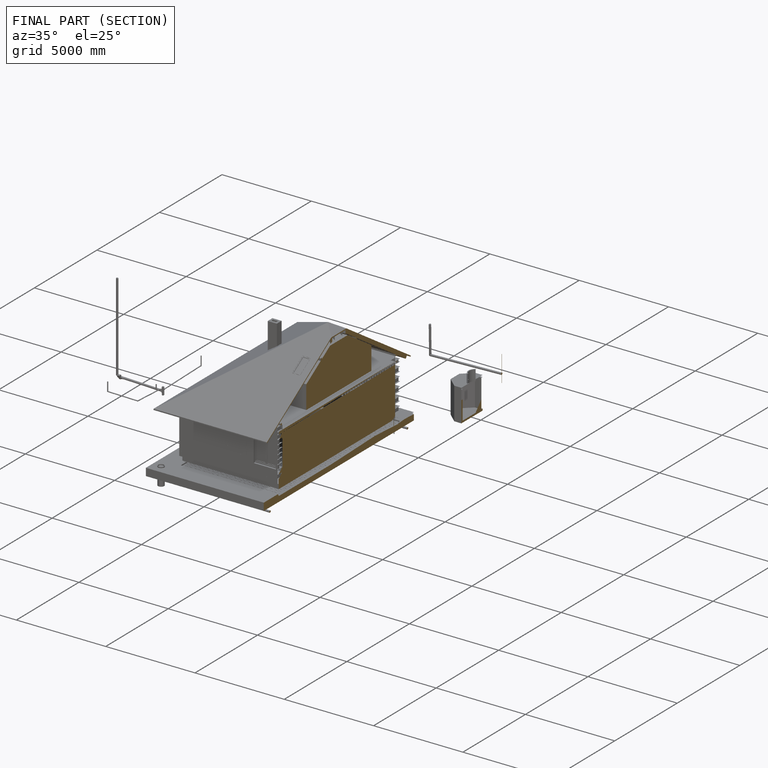
[diagram: finished part — half-section view (interior)]
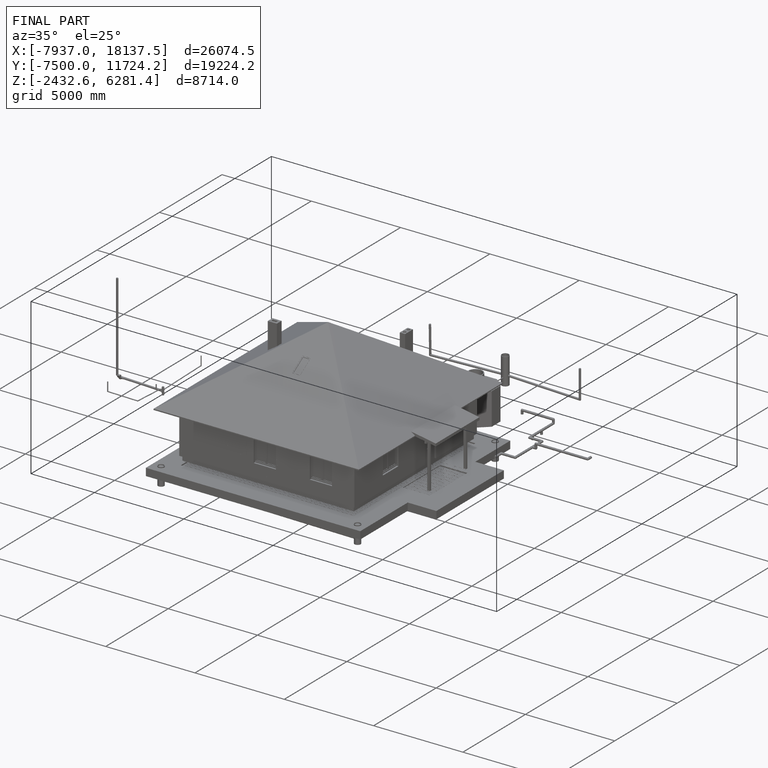
[diagram: finished part — iso view with bounding-box wireframe]
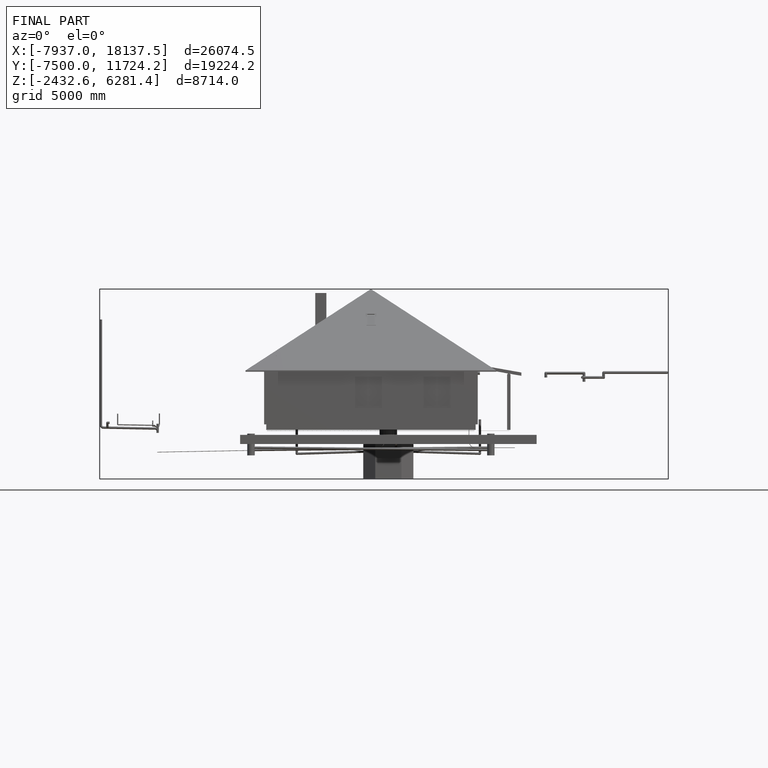
[diagram: finished part — front view with bounding-box wireframe]
